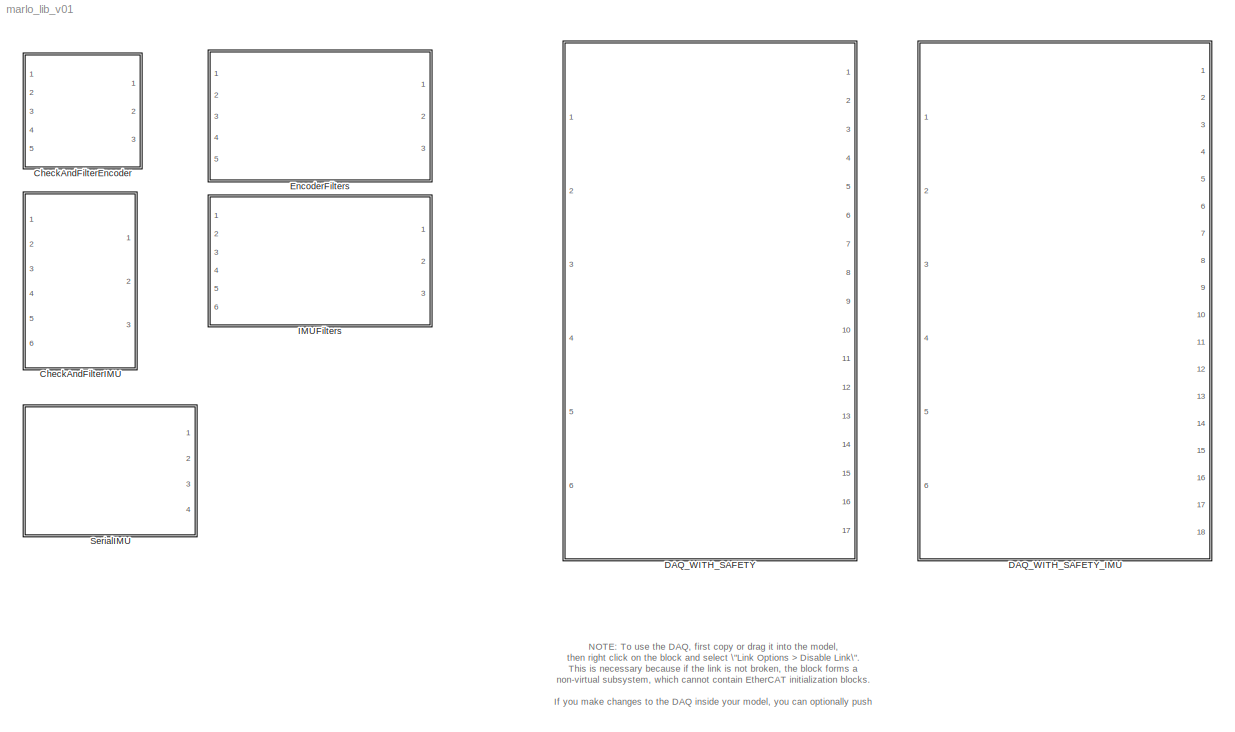
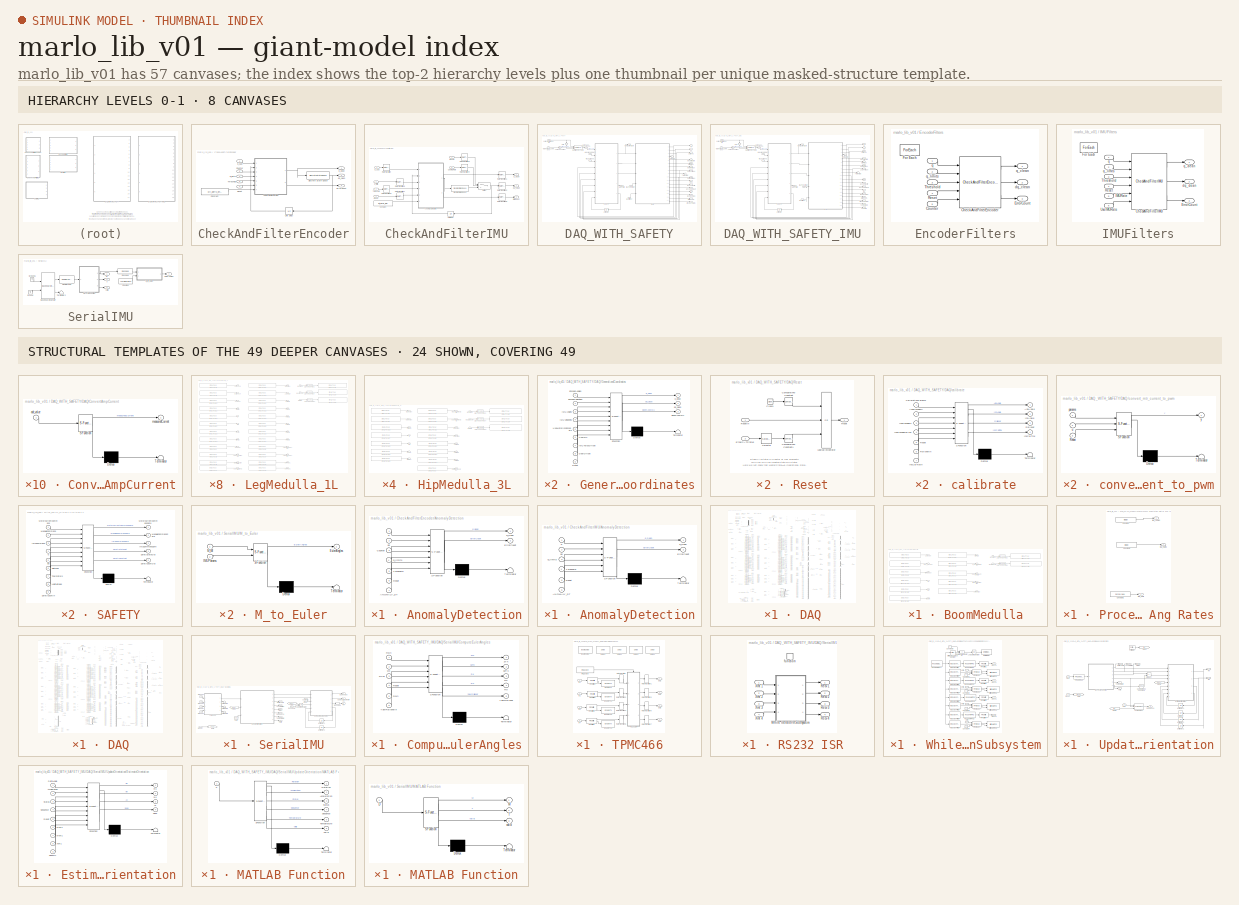
[diagram: thumbnail index - top-2 hierarchy levels (8 canvases) + 24 structural-template representatives of the remaining 49 canvases]
MODEL marlo_lib_v01
KIND library
BLOCK [SubSystem] CheckAndFilterEncoder
  FunctionWithSeparateData = off
  MaskHideContents = off
  MinAlgLoopOccurrences = off
  Opaque = off
  Ports = [5, 3]
  PropExecContextOutsideSubsystem = off
  RTWSystemCode = Auto
  RequestExecContextInheritance = off
  SID = 2518
BLOCK [SubSystem] CheckAndFilterEncoder/AnomalyDetection
  ErrorFcn = Stateflow.Translate.translate
  FunctionWithSeparateData = off
  MaskHideContents = off
  MinAlgLoopOccurrences = off
  Opaque = off
  PermitHierarchicalResolution = ExplicitOnly
  Ports = [7, 2]
  PropExecContextOutsideSubsystem = off
  RTWSystemCode = Auto
  RequestExecContextInheritance = off
  SFBlockType = Chart
  SID = 5722
  SystemSampleTime = Dt_deriv_encoder
  TreatAsAtomicUnit = on
BLOCK [Demux] CheckAndFilterEncoder/AnomalyDetection/ Demux 
  Outputs = 1
  Ports = [1, 1]
  SID = 5722::52
BLOCK [S-Function] CheckAndFilterEncoder/AnomalyDetection/ SFunction 
  EnableBusSupport = off
  FunctionName = sf_sfun
  Parameters = ANOMALY_INIT,MAX_ANOMALY
  PortCounts = [7 3]
  Ports = [7, 3]
  SID = 5722::51
  Tag = Stateflow S-Function marlo_lib_v01 3
BLOCK [Terminator] CheckAndFilterEncoder/AnomalyDetection/ Terminator 
  SID = 5722::53
BLOCK [Inport] CheckAndFilterEncoder/AnomalyDetection/ANOMALY_DT
  IconDisplay = Port number
  Port = 7
  SID = 5722::35
BLOCK [Inport] CheckAndFilterEncoder/AnomalyDetection/Counter
  IconDisplay = Port number
  Port = 3
  SID = 5722::54
BLOCK [Outport] CheckAndFilterEncoder/AnomalyDetection/ErrorCount
  IconDisplay = Port number
  Port = 2
  SID = 5722::46
BLOCK [Inport] CheckAndFilterEncoder/AnomalyDetection/Reset
  IconDisplay = Port number
  Port = 6
  SID = 5722::45
BLOCK [Inport] CheckAndFilterEncoder/AnomalyDetection/Threshold
  IconDisplay = Port number
  Port = 5
  SID = 5722::33
BLOCK [Inport] CheckAndFilterEncoder/AnomalyDetection/dq
  IconDisplay = Port number
  Port = 2
  SID = 5722::30
BLOCK [Inport] CheckAndFilterEncoder/AnomalyDetection/q
  IconDisplay = Port number
  SID = 5722::29
BLOCK [Outport] CheckAndFilterEncoder/AnomalyDetection/q_clean
  IconDisplay = Port number
  SID = 5722::31
BLOCK [Inport] CheckAndFilterEncoder/AnomalyDetection/q_limits
  IconDisplay = Port number
  Port = 4
  SID = 5722::44
BLOCK [Constant] CheckAndFilterEncoder/Constant
  SID = 2568
  Value = Dt_deriv_encoder
BLOCK [Inport] CheckAndFilterEncoder/Counter
  IconDisplay = Port number
  Port = 5
  SID = 5840
BLOCK [DiscreteStateSpace] CheckAndFilterEncoder/Discrete State-Space
  A = A_deriv_encoder
  B = B_deriv_encoder
  C = C_deriv_encoder
  D = D_deriv_encoder
  SID = 2523
  SampleTime = Dt_deriv_encoder
  X0 = x0_deriv_encoder
BLOCK [Outport] CheckAndFilterEncoder/ErrorCount
  IconDisplay = Port number
  Port = 3
  SID = 5726
BLOCK [Inport] CheckAndFilterEncoder/Reset
  IconDisplay = Port number
  Port = 4
  SID = 5729
BLOCK [Inport] CheckAndFilterEncoder/Threshold
  IconDisplay = Port number
  Port = 3
  SID = 2521
BLOCK [UnitDelay] CheckAndFilterEncoder/Unit Delay
  InputProcessing = Elements as channels (sample based)
  SID = 2524
  SampleTime = Dt_deriv_encoder
BLOCK [Outport] CheckAndFilterEncoder/dq_clean
  IconDisplay = Port number
  Port = 2
  SID = 2526
BLOCK [Outport] CheckAndFilterEncoder/q_clean
  IconDisplay = Port number
  SID = 2525
BLOCK [Inport] CheckAndFilterEncoder/q_daq
  IconDisplay = Port number
  SID = 2520
BLOCK [Inport] CheckAndFilterEncoder/q_limits
  IconDisplay = Port number
  Port = 2
  SID = 5725
BLOCK [SubSystem] CheckAndFilterIMU
  FunctionWithSeparateData = off
  MaskHideContents = off
  MinAlgLoopOccurrences = off
  Opaque = off
  Ports = [6, 3]
  PropExecContextOutsideSubsystem = off
  RTWSystemCode = Auto
  RequestExecContextInheritance = off
  SID = 2527
BLOCK [SubSystem] CheckAndFilterIMU/AnomalyDetection
  ErrorFcn = Stateflow.Translate.translate
  FunctionWithSeparateData = off
  MaskHideContents = off
  MinAlgLoopOccurrences = off
  Opaque = off
  PermitHierarchicalResolution = ExplicitOnly
  Ports = [6, 2]
  PropExecContextOutsideSubsystem = off
  RTWSystemCode = Auto
  RequestExecContextInheritance = off
  SFBlockType = Chart
  SID = 5731
  SystemSampleTime = Dt_deriv_IMU
  TreatAsAtomicUnit = on
BLOCK [Demux] CheckAndFilterIMU/AnomalyDetection/ Demux 
  Outputs = 1
  Ports = [1, 1]
  SID = 5731::56
BLOCK [S-Function] CheckAndFilterIMU/AnomalyDetection/ SFunction 
  EnableBusSupport = off
  FunctionName = sf_sfun
  Parameters = ANOMALY_INIT,MAX_ANOMALY
  PortCounts = [6 3]
  Ports = [6, 3]
  SID = 5731::55
  Tag = Stateflow S-Function marlo_lib_v01 1
BLOCK [Terminator] CheckAndFilterIMU/AnomalyDetection/ Terminator 
  SID = 5731::57
BLOCK [Inport] CheckAndFilterIMU/AnomalyDetection/ANOMALY_DT
  IconDisplay = Port number
  Port = 6
  SID = 5731::35
BLOCK [Outport] CheckAndFilterIMU/AnomalyDetection/ErrorCount
  IconDisplay = Port number
  Port = 2
  SID = 5731::46
BLOCK [Inport] CheckAndFilterIMU/AnomalyDetection/Reset
  IconDisplay = Port number
  Port = 5
  SID = 5731::45
BLOCK [Inport] CheckAndFilterIMU/AnomalyDetection/Threshold
  IconDisplay = Port number
  Port = 4
  SID = 5731::33
BLOCK [Inport] CheckAndFilterIMU/AnomalyDetection/dq
  IconDisplay = Port number
  Port = 2
  SID = 5731::30
BLOCK [Inport] CheckAndFilterIMU/AnomalyDetection/q
  IconDisplay = Port number
  SID = 5731::29
BLOCK [Outport] CheckAndFilterIMU/AnomalyDetection/q_clean
  IconDisplay = Port number
  SID = 5731::31
BLOCK [Inport] CheckAndFilterIMU/AnomalyDetection/q_limits
  IconDisplay = Port number
  Port = 3
  SID = 5731::44
BLOCK [Constant] CheckAndFilterIMU/Constant
  SID = 2570
  Value = Dt_deriv_IMU
BLOCK [DiscreteStateSpace] CheckAndFilterIMU/Discrete State-Space
  A = A_deriv_IMU
  B = B_deriv_IMU
  C = C_deriv_IMU
  D = D_deriv_IMU
  SID = 2531
  SampleTime = Dt_deriv_IMU
  X0 = x0_deriv_IMU
BLOCK [Outport] CheckAndFilterIMU/ErrorCount
  IconDisplay = Port number
  Port = 3
  SID = 5736
BLOCK [Inport] CheckAndFilterIMU/IMURate
  IconDisplay = Port number
  Port = 5
  SID = 2556
BLOCK [RateTransition] CheckAndFilterIMU/Rate Transition
  OutPortSampleTimeMultiple = 2
  SID = 2538
BLOCK [RateTransition] CheckAndFilterIMU/Rate Transition1
  Deterministic = off
  OutPortSampleTime = .001
  SID = 2539
BLOCK [RateTransition] CheckAndFilterIMU/Rate Transition2
  Deterministic = off
  OutPortSampleTime = .001
  SID = 2540
BLOCK [RateTransition] CheckAndFilterIMU/Rate Transition3
  OutPortSampleTimeMultiple = 2
  SID = 2571
BLOCK [RateTransition] CheckAndFilterIMU/Rate Transition4
  OutPortSampleTimeMultiple = 2
  SID = 2572
BLOCK [RateTransition] CheckAndFilterIMU/Rate Transition5
  OutPortSampleTimeMultiple = 2
  SID = 2574
BLOCK [RateTransition] CheckAndFilterIMU/Rate Transition6
  OutPortSampleTimeMultiple = 2
  SID = 5734
BLOCK [RateTransition] CheckAndFilterIMU/Rate Transition7
  OutPortSampleTimeMultiple = 2
  SID = 5735
BLOCK [RateTransition] CheckAndFilterIMU/Rate Transition8
  Deterministic = off
  OutPortSampleTime = .001
  SID = 5800
BLOCK [Inport] CheckAndFilterIMU/Reset
  IconDisplay = Port number
  Port = 4
  SID = 5733
BLOCK [Switch] CheckAndFilterIMU/Switch
  Criteria = u2 ~= 0
  InputSameDT = off
  SID = 2561
  SaturateOnIntegerOverflow = off
  Threshold = 0.5
BLOCK [Inport] CheckAndFilterIMU/Threshold
  IconDisplay = Port number
  Port = 3
  SID = 2529
BLOCK [UnitDelay] CheckAndFilterIMU/Unit Delay
  InputProcessing = Elements as channels (sample based)
  SID = 2532
  SampleTime = Dt_deriv_IMU
BLOCK [Inport] CheckAndFilterIMU/UseIMURate
  IconDisplay = Port number
  Port = 6
  SID = 2557
BLOCK [Outport] CheckAndFilterIMU/dq_clean
  IconDisplay = Port number
  Port = 2
  SID = 2534
BLOCK [Outport] CheckAndFilterIMU/q_clean
  IconDisplay = Port number
  SID = 2533
BLOCK [Inport] CheckAndFilterIMU/q_daq
  IconDisplay = Port number
  SID = 2528
BLOCK [Inport] CheckAndFilterIMU/q_limits
  IconDisplay = Port number
  Port = 2
  SID = 5732
BLOCK [SubSystem] DAQ_WITH_SAFETY
  FunctionWithSeparateData = off
  MaskHideContents = off
  MinAlgLoopOccurrences = off
  Opaque = off
  Ports = [6, 17]
  PropExecContextOutsideSubsystem = off
  RTWSystemCode = Auto
  RequestExecContextInheritance = off
  SID = 4584
BLOCK [Outport] DAQ_WITH_SAFETY/BoomAndIMU
  IconDisplay = Port number
  Port = 10
  SID = 5566
BLOCK [Inport] DAQ_WITH_SAFETY/CurrentSaturationLimits
  IconDisplay = Port number
  Port = 4
  SID = 4588
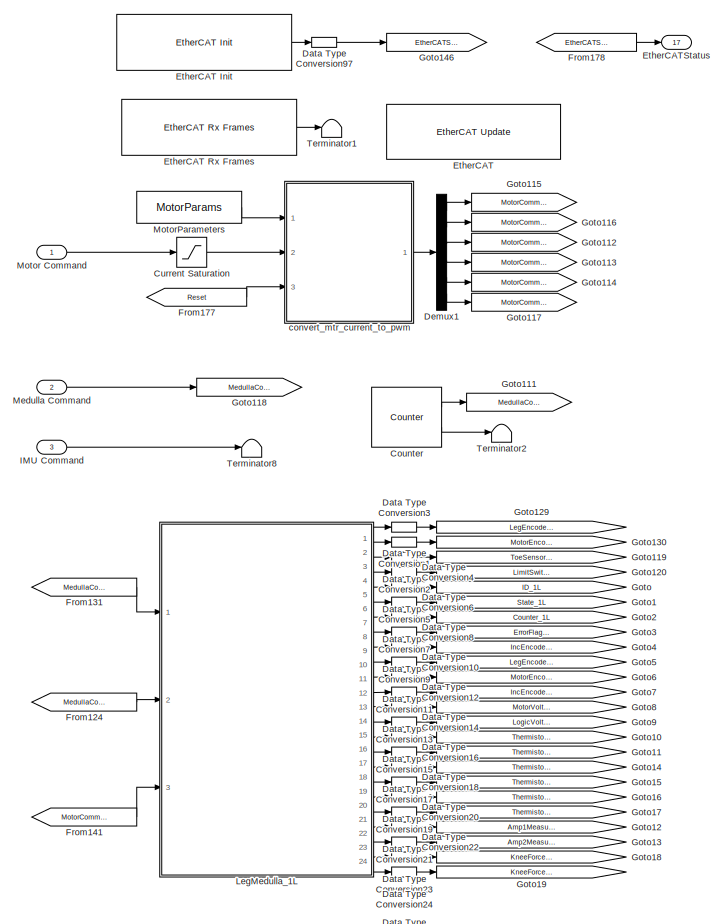
[diagram: DAQ_WITH_SAFETY/DAQ - part 1/7, top left region]
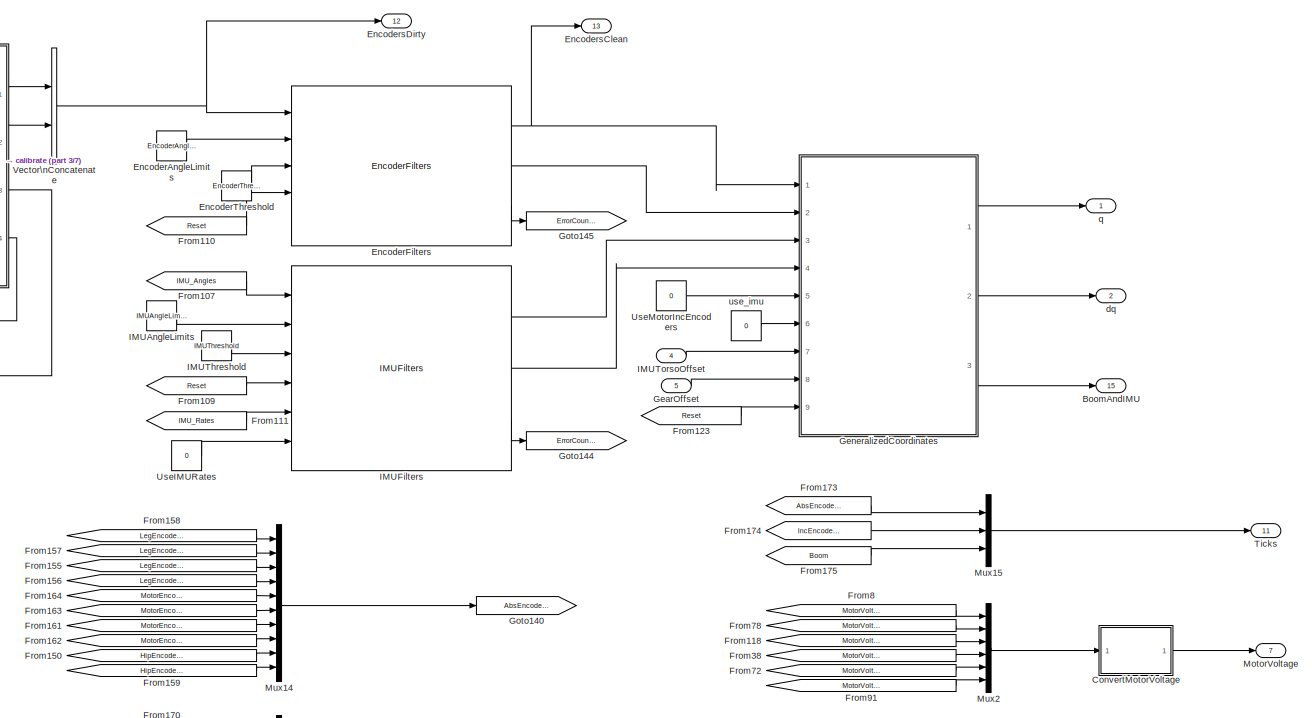
[diagram: DAQ_WITH_SAFETY/DAQ - part 2/7, top right region]
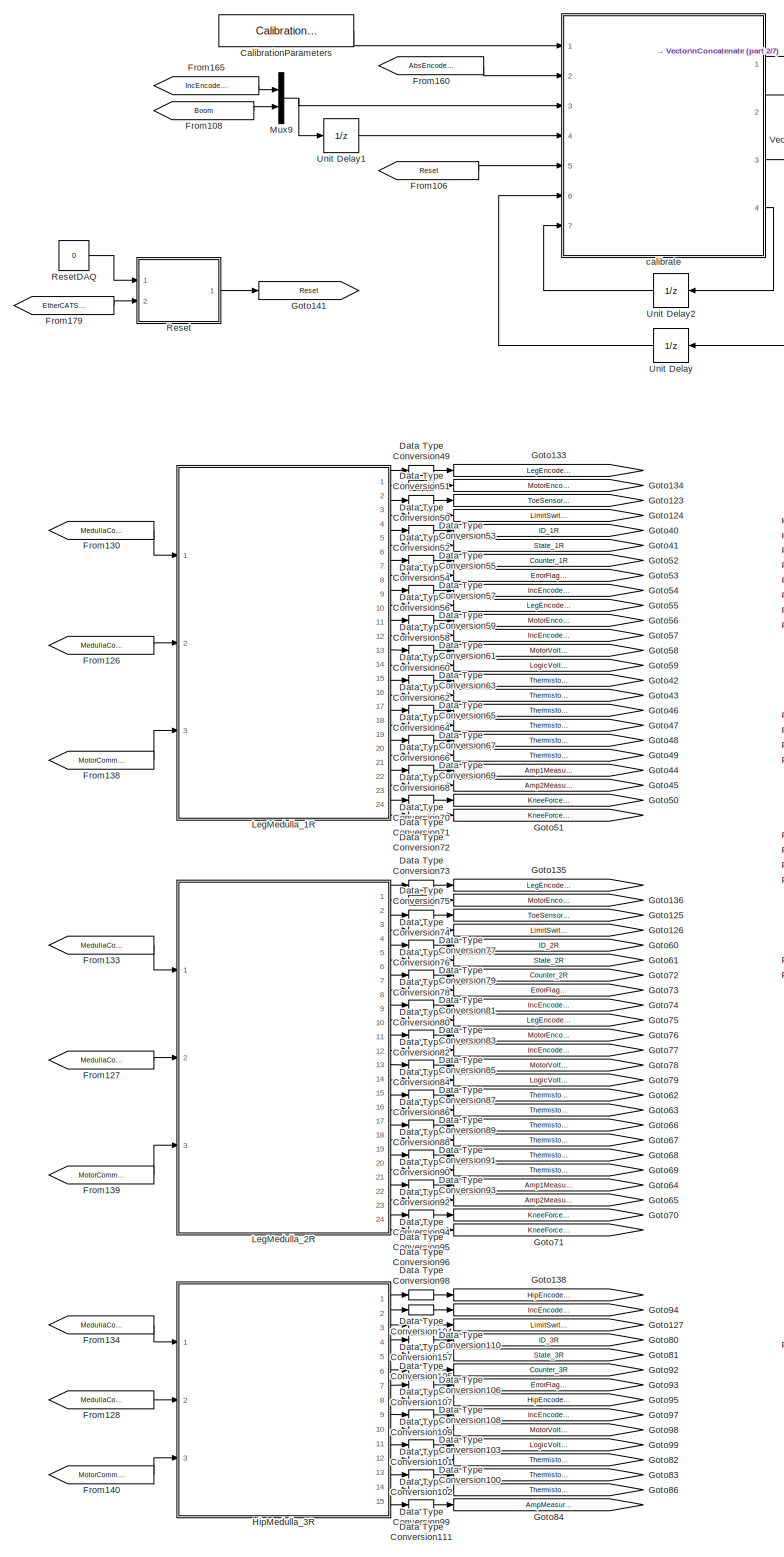
[diagram: DAQ_WITH_SAFETY/DAQ - part 3/7, center side, full height]
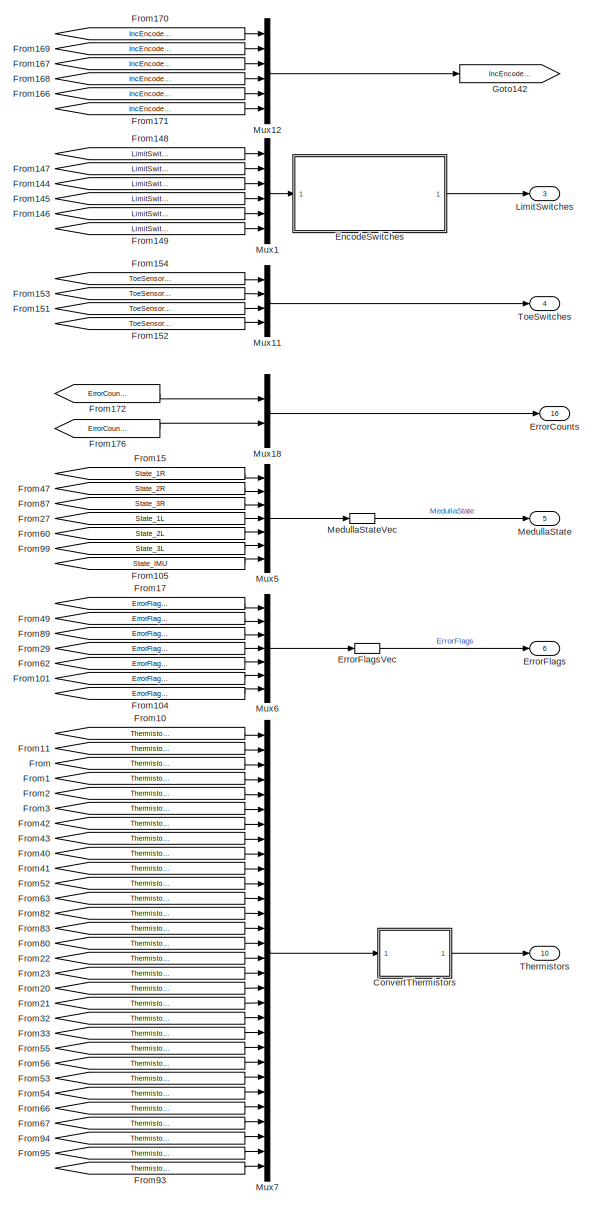
[diagram: DAQ_WITH_SAFETY/DAQ - part 4/7, bottom center region]
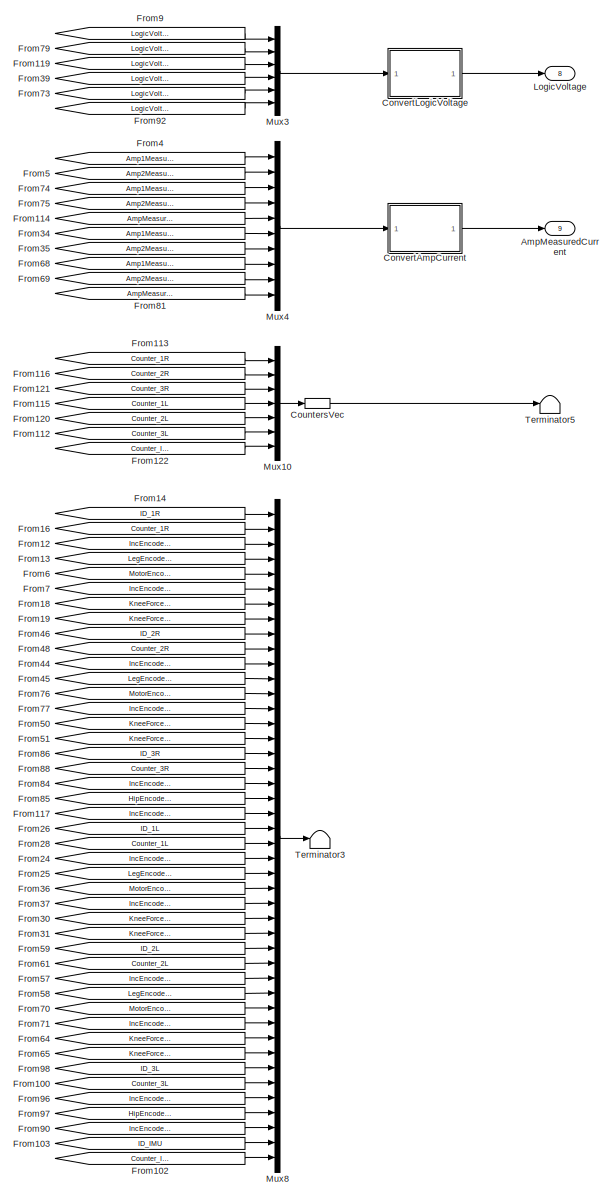
[diagram: DAQ_WITH_SAFETY/DAQ - part 5/7, bottom right region]
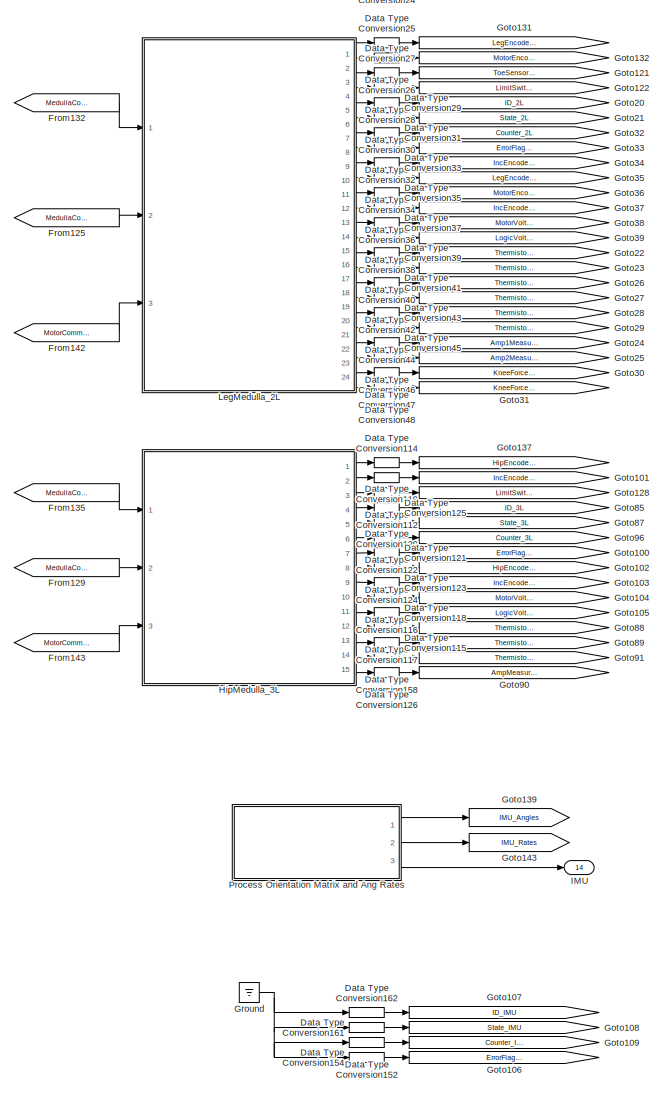
[diagram: DAQ_WITH_SAFETY/DAQ - part 6/7, bottom left region]
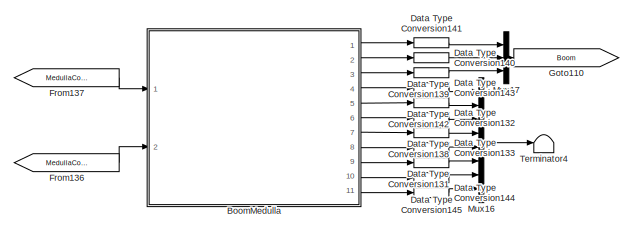
[diagram: DAQ_WITH_SAFETY/DAQ - part 7/7, bottom center region]
BLOCK [SubSystem] DAQ_WITH_SAFETY/DAQ
  FunctionWithSeparateData = off
  MaskHideContents = off
  MinAlgLoopOccurrences = off
  Opaque = off
  Ports = [5, 17]
  PropExecContextOutsideSubsystem = off
  RTWSystemCode = Auto
  RequestExecContextInheritance = off
  SID = 4591
BLOCK [Outport] DAQ_WITH_SAFETY/DAQ/AmpMeasuredCurrent
  IconDisplay = Port number
  Port = 9
  SID = 5533
BLOCK [Outport] DAQ_WITH_SAFETY/DAQ/BoomAndIMU
  IconDisplay = Port number
  Port = 15
  SID = 5542
BLOCK [SubSystem] DAQ_WITH_SAFETY/DAQ/BoomMedulla
  FunctionWithSeparateData = off
  MaskHideContents = off
  MinAlgLoopOccurrences = off
  Opaque = off
  Ports = [2, 11]
  PropExecContextOutsideSubsystem = off
  RTWSystemCode = Auto
  RequestExecContextInheritance = off
  SID = 4599
BLOCK [Outport] DAQ_WITH_SAFETY/DAQ/BoomMedulla/Counter
  IconDisplay = Port number
  Port = 6
  SID = 4622
BLOCK [DataTypeConversion] DAQ_WITH_SAFETY/DAQ/BoomMedulla/Data Type Conversion3
  OutDataTypeStr = uint8
  RndMeth = Floor
  SID = 4602
  SaturateOnIntegerOverflow = off
BLOCK [DataTypeConversion] DAQ_WITH_SAFETY/DAQ/BoomMedulla/Data Type Conversion4
  OutDataTypeStr = uint16
  RndMeth = Floor
  SID = 4603
  SaturateOnIntegerOverflow = off
BLOCK [Outport] DAQ_WITH_SAFETY/DAQ/BoomMedulla/ErrorFlags
  IconDisplay = Port number
  Port = 7
  SID = 4623
BLOCK [Reference] DAQ_WITH_SAFETY/DAQ/BoomMedulla/EtherCAT Rx Var   REF=xpcethercatlib/EtherCAT Rx Var 
  Ports = [0, 1]
  Priority = 2
  SID = 4604
  SourceBlock = xpcethercatlib/EtherCAT Rx Var
  SourceType = xpcethercat_rx_var
  device_id = 0
  sample_time = 0.001000
  sig_dim = 1
  sig_name = Box 7 (ATRIAS 2.1 Boom (Medulla 1.5)).X Encoder.Timestamp
  sig_offset = 2464
  sig_type = uint16
  type_size = 16
BLOCK [Reference] DAQ_WITH_SAFETY/DAQ/BoomMedulla/EtherCAT Rx Var 1  REF=xpcethercatlib/EtherCAT Rx Var 
  Ports = [0, 1]
  Priority = 2
  SID = 4605
  SourceBlock = xpcethercatlib/EtherCAT Rx Var
  SourceType = xpcethercat_rx_var
  device_id = 0
  sample_time = 0.001000
  sig_dim = 1
  sig_name = Box 7 (ATRIAS 2.1 Boom (Medulla 1.5)).Z Encoder.Encoder
  sig_offset = 2528
  sig_type = uint32
  type_size = 32
BLOCK [Reference] DAQ_WITH_SAFETY/DAQ/BoomMedulla/EtherCAT Rx Var 12  REF=xpcethercatlib/EtherCAT Rx Var 
  Ports = [0, 1]
  Priority = 2
  SID = 4606
  SourceBlock = xpcethercatlib/EtherCAT Rx Var
  SourceType = xpcethercat_rx_var
  device_id = 0
  sample_time = 0.001000
  sig_dim = 1
  sig_name = Box 7 (ATRIAS 2.1 Boom (Medulla 1.5)).uController Status.Counter
  sig_offset = 2416
  sig_type = uint8
  type_size = 8
BLOCK [Reference] DAQ_WITH_SAFETY/DAQ/BoomMedulla/EtherCAT Rx Var 13  REF=xpcethercatlib/EtherCAT Rx Var 
  Ports = [0, 1]
  Priority = 2
  SID = 4607
  SourceBlock = xpcethercatlib/EtherCAT Rx Var
  SourceType = xpcethercat_rx_var
  device_id = 0
  sample_time = 0.001000
  sig_dim = 1
  sig_name = Box 7 (ATRIAS 2.1 Boom (Medulla 1.5)).uController Status.Error Flags
  sig_offset = 2424
  sig_type = uint8
  type_size = 8
BLOCK [Reference] DAQ_WITH_SAFETY/DAQ/BoomMedulla/EtherCAT Rx Var 14  REF=xpcethercatlib/EtherCAT Rx Var 
  Ports = [0, 1]
  Priority = 2
  SID = 4608
  SourceBlock = xpcethercatlib/EtherCAT Rx Var
  SourceType = xpcethercat_rx_var
  device_id = 0
  sample_time = 0.001000
  sig_dim = 1
  sig_name = Box 7 (ATRIAS 2.1 Boom (Medulla 1.5)).uController Status.ID
  sig_offset = 2400
  sig_type = uint8
  type_size = 8
BLOCK [Reference] DAQ_WITH_SAFETY/DAQ/BoomMedulla/EtherCAT Rx Var 15  REF=xpcethercatlib/EtherCAT Rx Var 
  Ports = [0, 1]
  Priority = 2
  SID = 4609
  SourceBlock = xpcethercatlib/EtherCAT Rx Var
  SourceType = xpcethercat_rx_var
  device_id = 0
  sample_time = 0.001000
  sig_dim = 1
  sig_name = Box 7 (ATRIAS 2.1 Boom (Medulla 1.5)).uController Status.State
  sig_offset = 2408
  sig_type = uint8
  type_size = 8
BLOCK [Reference] DAQ_WITH_SAFETY/DAQ/BoomMedulla/EtherCAT Rx Var 2  REF=xpcethercatlib/EtherCAT Rx Var 
  Ports = [0, 1]
  Priority = 2
  SID = 4610
  SourceBlock = xpcethercatlib/EtherCAT Rx Var
  SourceType = xpcethercat_rx_var
  device_id = 0
  sample_time = 0.001000
  sig_dim = 1
  sig_name = Box 7 (ATRIAS 2.1 Boom (Medulla 1.5)).Power.Logic Voltage
  sig_offset = 2576
  sig_type = uint16
  type_size = 16
BLOCK [Reference] DAQ_WITH_SAFETY/DAQ/BoomMedulla/EtherCAT Rx Var 3  REF=xpcethercatlib/EtherCAT Rx Var 
  Ports = [0, 1]
  Priority = 2
  SID = 4611
  SourceBlock = xpcethercatlib/EtherCAT Rx Var
  SourceType = xpcethercat_rx_var
  device_id = 0
  sample_time = 0.001000
  sig_dim = 1
  sig_name = Box 7 (ATRIAS 2.1 Boom (Medulla 1.5)).Pitch Encoder.Timestamp
  sig_offset = 2512
  sig_type = uint16
  type_size = 16
BLOCK [Reference] DAQ_WITH_SAFETY/DAQ/BoomMedulla/EtherCAT Rx Var 4  REF=xpcethercatlib/EtherCAT Rx Var 
  Ports = [0, 1]
  Priority = 2
  SID = 4612
  SourceBlock = xpcethercatlib/EtherCAT Rx Var
  SourceType = xpcethercat_rx_var
  device_id = 0
  sample_time = 0.001000
  sig_dim = 1
  sig_name = Box 7 (ATRIAS 2.1 Boom (Medulla 1.5)).Pitch Encoder.Encoder
  sig_offset = 2480
  sig_type = uint32
  type_size = 32
BLOCK [Reference] DAQ_WITH_SAFETY/DAQ/BoomMedulla/EtherCAT Rx Var 5  REF=xpcethercatlib/EtherCAT Rx Var 
  Ports = [0, 1]
  Priority = 2
  SID = 4613
  SourceBlock = xpcethercatlib/EtherCAT Rx Var
  SourceType = xpcethercat_rx_var
  device_id = 0
  sample_time = 0.001000
  sig_dim = 1
  sig_name = Box 7 (ATRIAS 2.1 Boom (Medulla 1.5)).X Encoder.Encoder
  sig_offset = 2432
  sig_type = uint32
  type_size = 32
BLOCK [Reference] DAQ_WITH_SAFETY/DAQ/BoomMedulla/EtherCAT Rx Var 6  REF=xpcethercatlib/EtherCAT Rx Var 
  Ports = [0, 1]
  Priority = 2
  SID = 4614
  SourceBlock = xpcethercatlib/EtherCAT Rx Var
  SourceType = xpcethercat_rx_var
  device_id = 0
  sample_time = 0.001000
  sig_dim = 1
  sig_name = Box 7 (ATRIAS 2.1 Boom (Medulla 1.5)).Z Encoder.Timestamp
  sig_offset = 2560
  sig_type = uint16
  type_size = 16
BLOCK [Reference] DAQ_WITH_SAFETY/DAQ/BoomMedulla/EtherCAT Tx Var 3  REF=xpcethercatlib/EtherCAT Tx Var 
  Ports = [1]
  Priority = 3
  SID = 4615
  SourceBlock = xpcethercatlib/EtherCAT Tx Var
  SourceType = xpcethercat_tx_var
  device_id = 0
  sample_time = 0.001000
  sig_dim = 1
  sig_name = Box 7 (ATRIAS 2.1 Boom (Medulla 1.5)).uControllerInput.Command
  sig_offset = 2400
  sig_type = uint8
  type_size = 8
BLOCK [Reference] DAQ_WITH_SAFETY/DAQ/BoomMedulla/EtherCAT Tx Var 4  REF=xpcethercatlib/EtherCAT Tx Var 
  Ports = [1]
  Priority = 3
  SID = 4616
  SourceBlock = xpcethercatlib/EtherCAT Tx Var
  SourceType = xpcethercat_tx_var
  device_id = 0
  sample_time = 0.001000
  sig_dim = 1
  sig_name = Box 7 (ATRIAS 2.1 Boom (Medulla 1.5)).uControllerInput.Counter
  sig_offset = 2408
  sig_type = uint16
  type_size = 16
BLOCK [Outport] DAQ_WITH_SAFETY/DAQ/BoomMedulla/ID
  IconDisplay = Port number
  Port = 4
  SID = 4620
BLOCK [Outport] DAQ_WITH_SAFETY/DAQ/BoomMedulla/LogicVoltage
  IconDisplay = Port number
  Port = 11
  SID = 4627
BLOCK [Inport] DAQ_WITH_SAFETY/DAQ/BoomMedulla/MedullaCmd
  IconDisplay = Port number
  SID = 4600
BLOCK [Inport] DAQ_WITH_SAFETY/DAQ/BoomMedulla/MedullaCounter
  IconDisplay = Port number
  Port = 2
  SID = 4601
BLOCK [Outport] DAQ_WITH_SAFETY/DAQ/BoomMedulla/OSU_X_Encoder
  IconDisplay = Port number
  SID = 4618
BLOCK [Outport] DAQ_WITH_SAFETY/DAQ/BoomMedulla/OSU_X_EncoderTimestamp
  IconDisplay = Port number
  Port = 9
  SID = 4625
BLOCK [Outport] DAQ_WITH_SAFETY/DAQ/BoomMedulla/PitchEncoder
  IconDisplay = Port number
  Port = 3
  SID = 4619
BLOCK [Outport] DAQ_WITH_SAFETY/DAQ/BoomMedulla/PitchEncoderTimestamp
  IconDisplay = Port number
  Port = 10
  SID = 4626
BLOCK [Outport] DAQ_WITH_SAFETY/DAQ/BoomMedulla/State
  IconDisplay = Port number
  Port = 5
  SID = 4621
BLOCK [Outport] DAQ_WITH_SAFETY/DAQ/BoomMedulla/Z_Encoder
  IconDisplay = Port number
  Port = 2
  SID = 4617
BLOCK [Outport] DAQ_WITH_SAFETY/DAQ/BoomMedulla/Z_EncoderTimestamp
  IconDisplay = Port number
  Port = 8
  SID = 4624
BLOCK [Constant] DAQ_WITH_SAFETY/DAQ/CalibrationParameters
  SID = 4643
  Value = CalibrationParams
BLOCK [SubSystem] DAQ_WITH_SAFETY/DAQ/ConvertAmpCurrent
  ErrorFcn = Stateflow.Translate.translate
  FunctionWithSeparateData = off
  MaskHideContents = off
  MinAlgLoopOccurrences = off
  Opaque = off
  PermitHierarchicalResolution = ExplicitOnly
  Ports = [1, 1]
  PropExecContextOutsideSubsystem = off
  RTWSystemCode = Auto
  RequestExecContextInheritance = off
  SFBlockType = MATLAB Function
  SID = 4648
  TreatAsAtomicUnit = on
BLOCK [Demux] DAQ_WITH_SAFETY/DAQ/ConvertAmpCurrent/ Demux 
  Outputs = 1
  Ports = [1, 1]
  SID = 4648::7
BLOCK [S-Function] DAQ_WITH_SAFETY/DAQ/ConvertAmpCurrent/ SFunction 
  EnableBusSupport = off
  FunctionName = sf_sfun
  PortCounts = [1 2]
  Ports = [1, 2]
  SID = 4648::6
  Tag = Stateflow S-Function marlo_lib_v01 2
BLOCK [Terminator] DAQ_WITH_SAFETY/DAQ/ConvertAmpCurrent/ Terminator 
  SID = 4648::8
BLOCK [Inport] DAQ_WITH_SAFETY/DAQ/ConvertAmpCurrent/adc_value
  IconDisplay = Port number
  SID = 4648::1
BLOCK [Outport] DAQ_WITH_SAFETY/DAQ/ConvertAmpCurrent/measuredCurrent
  IconDisplay = Port number
  SID = 4648::5
BLOCK [SubSystem] DAQ_WITH_SAFETY/DAQ/ConvertLogicVoltage
  ErrorFcn = Stateflow.Translate.translate
  FunctionWithSeparateData = off
  MaskHideContents = off
  MinAlgLoopOccurrences = off
  Opaque = off
  PermitHierarchicalResolution = ExplicitOnly
  Ports = [1, 1]
  PropExecContextOutsideSubsystem = off
  RTWSystemCode = Auto
  RequestExecContextInheritance = off
  SFBlockType = MATLAB Function
  SID = 4649
  TreatAsAtomicUnit = on
BLOCK [Demux] DAQ_WITH_SAFETY/DAQ/ConvertLogicVoltage/ Demux 
  Outputs = 1
  Ports = [1, 1]
  SID = 4649::7
BLOCK [S-Function] DAQ_WITH_SAFETY/DAQ/ConvertLogicVoltage/ SFunction 
  EnableBusSupport = off
  FunctionName = sf_sfun
  PortCounts = [1 2]
  Ports = [1, 2]
  SID = 4649::6
  Tag = Stateflow S-Function marlo_lib_v01 5
BLOCK [Terminator] DAQ_WITH_SAFETY/DAQ/ConvertLogicVoltage/ Terminator 
  SID = 4649::8
BLOCK [Inport] DAQ_WITH_SAFETY/DAQ/ConvertLogicVoltage/adc_value
  IconDisplay = Port number
  SID = 4649::1
BLOCK [Outport] DAQ_WITH_SAFETY/DAQ/ConvertLogicVoltage/logicVoltage
  IconDisplay = Port number
  SID = 4649::5
BLOCK [SubSystem] DAQ_WITH_SAFETY/DAQ/ConvertMotorVoltage
  ErrorFcn = Stateflow.Translate.translate
  FunctionWithSeparateData = off
  MaskHideContents = off
  MinAlgLoopOccurrences = off
  Opaque = off
  PermitHierarchicalResolution = ExplicitOnly
  Ports = [1, 1]
  PropExecContextOutsideSubsystem = off
  RTWSystemCode = Auto
  RequestExecContextInheritance = off
  SFBlockType = MATLAB Function
  SID = 4650
  TreatAsAtomicUnit = on
BLOCK [Demux] DAQ_WITH_SAFETY/DAQ/ConvertMotorVoltage/ Demux 
  Outputs = 1
  Ports = [1, 1]
  SID = 4650::7
BLOCK [S-Function] DAQ_WITH_SAFETY/DAQ/ConvertMotorVoltage/ SFunction 
  EnableBusSupport = off
  FunctionName = sf_sfun
  PortCounts = [1 2]
  Ports = [1, 2]
  SID = 4650::6
  Tag = Stateflow S-Function marlo_lib_v01 6
BLOCK [Terminator] DAQ_WITH_SAFETY/DAQ/ConvertMotorVoltage/ Terminator 
  SID = 4650::8
BLOCK [Inport] DAQ_WITH_SAFETY/DAQ/ConvertMotorVoltage/adc_value
  IconDisplay = Port number
  SID = 4650::1
BLOCK [Outport] DAQ_WITH_SAFETY/DAQ/ConvertMotorVoltage/motorVoltage
  IconDisplay = Port number
  SID = 4650::5
BLOCK [SubSystem] DAQ_WITH_SAFETY/DAQ/ConvertThermistors
  ErrorFcn = Stateflow.Translate.translate
  FunctionWithSeparateData = off
  MaskHideContents = off
  MinAlgLoopOccurrences = off
  Opaque = off
  PermitHierarchicalResolution = ExplicitOnly
  Ports = [1, 1]
  PropExecContextOutsideSubsystem = off
  RTWSystemCode = Auto
  RequestExecContextInheritance = off
  SFBlockType = MATLAB Function
  SID = 4651
  TreatAsAtomicUnit = on
BLOCK [Demux] DAQ_WITH_SAFETY/DAQ/ConvertThermistors/ Demux 
  Outputs = 1
  Ports = [1, 1]
  SID = 4651::7
BLOCK [S-Function] DAQ_WITH_SAFETY/DAQ/ConvertThermistors/ SFunction 
  EnableBusSupport = off
  FunctionName = sf_sfun
  PortCounts = [1 2]
  Ports = [1, 2]
  SID = 4651::6
  Tag = Stateflow S-Function marlo_lib_v01 7
BLOCK [Terminator] DAQ_WITH_SAFETY/DAQ/ConvertThermistors/ Terminator 
  SID = 4651::8
BLOCK [Inport] DAQ_WITH_SAFETY/DAQ/ConvertThermistors/adc_value
  IconDisplay = Port number
  SID = 4651::1
BLOCK [Outport] DAQ_WITH_SAFETY/DAQ/ConvertThermistors/temperature
  IconDisplay = Port number
  SID = 4651::5
BLOCK [Reference] DAQ_WITH_SAFETY/DAQ/Counter  REF=dspswit3/Counter
  CntDtype = double
  CountEvent = Free running
  CounterSize = User defined
  Direction = Up
  HitDtype = Logical
  HitValue = 32
  InitialCount = 0
  MaxCount = 65535
  Output = Count and Hit
  Ports = [0, 2]
  ResetInput = off
  SID = 4652
  SamplesPerFrame = 1
  SourceBlock = dspswit3/Counter
  SourceType = Counter
  Ts = .001
BLOCK [DataTypeConversion] DAQ_WITH_SAFETY/DAQ/CountersVec
  OutDataTypeStr = double
  RndMeth = Floor
  SID = 4653
  SaturateOnIntegerOverflow = off
BLOCK [Saturate] DAQ_WITH_SAFETY/DAQ/Current Saturation
  InputPortMap = u0
  LowerLimit = -50
  Ports = [1, 1]
  SID = 4654
  UpperLimit = 50
BLOCK [DataTypeConversion] DAQ_WITH_SAFETY/DAQ/Data Type Conversion1
  OutDataTypeStr = double
  RndMeth = Floor
  SID = 4655
  SaturateOnIntegerOverflow = off
BLOCK [DataTypeConversion] DAQ_WITH_SAFETY/DAQ/Data Type Conversion10
  OutDataTypeStr = double
  RndMeth = Floor
  SID = 4656
  SaturateOnIntegerOverflow = off
BLOCK [DataTypeConversion] DAQ_WITH_SAFETY/DAQ/Data Type Conversion100
  OutDataTypeStr = double
  RndMeth = Floor
  SID = 4657
  SaturateOnIntegerOverflow = off
BLOCK [DataTypeConversion] DAQ_WITH_SAFETY/DAQ/Data Type Conversion101
  OutDataTypeStr = double
  RndMeth = Floor
  SID = 4658
  SaturateOnIntegerOverflow = off
BLOCK [DataTypeConversion] DAQ_WITH_SAFETY/DAQ/Data Type Conversion102
  OutDataTypeStr = double
  RndMeth = Floor
  SID = 4659
  SaturateOnIntegerOverflow = off
BLOCK [DataTypeConversion] DAQ_WITH_SAFETY/DAQ/Data Type Conversion103
  OutDataTypeStr = double
  RndMeth = Floor
  SID = 4660
  SaturateOnIntegerOverflow = off
BLOCK [DataTypeConversion] DAQ_WITH_SAFETY/DAQ/Data Type Conversion104
  OutDataTypeStr = double
  RndMeth = Floor
  SID = 4661
  SaturateOnIntegerOverflow = off
BLOCK [DataTypeConversion] DAQ_WITH_SAFETY/DAQ/Data Type Conversion105
  OutDataTypeStr = double
  RndMeth = Floor
  SID = 4662
  SaturateOnIntegerOverflow = off
BLOCK [DataTypeConversion] DAQ_WITH_SAFETY/DAQ/Data Type Conversion106
  OutDataTypeStr = double
  RndMeth = Floor
  SID = 4663
  SaturateOnIntegerOverflow = off
BLOCK [DataTypeConversion] DAQ_WITH_SAFETY/DAQ/Data Type Conversion107
  OutDataTypeStr = double
  RndMeth = Floor
  SID = 4664
  SaturateOnIntegerOverflow = off
BLOCK [DataTypeConversion] DAQ_WITH_SAFETY/DAQ/Data Type Conversion108
  OutDataTypeStr = double
  RndMeth = Floor
  SID = 4665
  SaturateOnIntegerOverflow = off
BLOCK [DataTypeConversion] DAQ_WITH_SAFETY/DAQ/Data Type Conversion109
  OutDataTypeStr = double
  RndMeth = Floor
  SID = 4666
  SaturateOnIntegerOverflow = off
BLOCK [DataTypeConversion] DAQ_WITH_SAFETY/DAQ/Data Type Conversion11
  OutDataTypeStr = double
  RndMeth = Floor
  SID = 4667
  SaturateOnIntegerOverflow = off
BLOCK [DataTypeConversion] DAQ_WITH_SAFETY/DAQ/Data Type Conversion110
  OutDataTypeStr = double
  RndMeth = Floor
  SID = 4668
  SaturateOnIntegerOverflow = off
BLOCK [DataTypeConversion] DAQ_WITH_SAFETY/DAQ/Data Type Conversion111
  OutDataTypeStr = double
  RndMeth = Floor
  SID = 4669
  SaturateOnIntegerOverflow = off
BLOCK [DataTypeConversion] DAQ_WITH_SAFETY/DAQ/Data Type Conversion112
  OutDataTypeStr = double
  RndMeth = Floor
  SID = 4670
  SaturateOnIntegerOverflow = off
BLOCK [DataTypeConversion] DAQ_WITH_SAFETY/DAQ/Data Type Conversion114
  OutDataTypeStr = double
  RndMeth = Floor
  SID = 4672
  SaturateOnIntegerOverflow = off
BLOCK [DataTypeConversion] DAQ_WITH_SAFETY/DAQ/Data Type Conversion115
  OutDataTypeStr = double
  RndMeth = Floor
  SID = 4673
  SaturateOnIntegerOverflow = off
BLOCK [DataTypeConversion] DAQ_WITH_SAFETY/DAQ/Data Type Conversion116
  OutDataTypeStr = double
  RndMeth = Floor
  SID = 4674
  SaturateOnIntegerOverflow = off
BLOCK [DataTypeConversion] DAQ_WITH_SAFETY/DAQ/Data Type Conversion117
  OutDataTypeStr = double
  RndMeth = Floor
  SID = 4675
  SaturateOnIntegerOverflow = off
BLOCK [DataTypeConversion] DAQ_WITH_SAFETY/DAQ/Data Type Conversion118
  OutDataTypeStr = double
  RndMeth = Floor
  SID = 4676
  SaturateOnIntegerOverflow = off
BLOCK [DataTypeConversion] DAQ_WITH_SAFETY/DAQ/Data Type Conversion119
  OutDataTypeStr = double
  RndMeth = Floor
  SID = 4677
  SaturateOnIntegerOverflow = off
BLOCK [DataTypeConversion] DAQ_WITH_SAFETY/DAQ/Data Type Conversion12
  OutDataTypeStr = double
  RndMeth = Floor
  SID = 4678
  SaturateOnIntegerOverflow = off
BLOCK [DataTypeConversion] DAQ_WITH_SAFETY/DAQ/Data Type Conversion120
  OutDataTypeStr = double
  RndMeth = Floor
  SID = 4679
  SaturateOnIntegerOverflow = off
BLOCK [DataTypeConversion] DAQ_WITH_SAFETY/DAQ/Data Type Conversion121
  OutDataTypeStr = double
  RndMeth = Floor
  SID = 4680
  SaturateOnIntegerOverflow = off
BLOCK [DataTypeConversion] DAQ_WITH_SAFETY/DAQ/Data Type Conversion122
  OutDataTypeStr = double
  RndMeth = Floor
  SID = 4681
  SaturateOnIntegerOverflow = off
BLOCK [DataTypeConversion] DAQ_WITH_SAFETY/DAQ/Data Type Conversion123
  OutDataTypeStr = double
  RndMeth = Floor
  SID = 4682
  SaturateOnIntegerOverflow = off
BLOCK [DataTypeConversion] DAQ_WITH_SAFETY/DAQ/Data Type Conversion124
  OutDataTypeStr = double
  RndMeth = Floor
  SID = 4683
  SaturateOnIntegerOverflow = off
BLOCK [DataTypeConversion] DAQ_WITH_SAFETY/DAQ/Data Type Conversion125
  OutDataTypeStr = double
  RndMeth = Floor
  SID = 4684
  SaturateOnIntegerOverflow = off
BLOCK [DataTypeConversion] DAQ_WITH_SAFETY/DAQ/Data Type Conversion126
  OutDataTypeStr = double
  RndMeth = Floor
  SID = 4685
  SaturateOnIntegerOverflow = off
BLOCK [DataTypeConversion] DAQ_WITH_SAFETY/DAQ/Data Type Conversion13
  OutDataTypeStr = double
  RndMeth = Floor
  SID = 4686
  SaturateOnIntegerOverflow = off
BLOCK [DataTypeConversion] DAQ_WITH_SAFETY/DAQ/Data Type Conversion131
  OutDataTypeStr = double
  RndMeth = Floor
  SID = 4687
  SaturateOnIntegerOverflow = off
BLOCK [DataTypeConversion] DAQ_WITH_SAFETY/DAQ/Data Type Conversion132
  OutDataTypeStr = double
  RndMeth = Floor
  SID = 4688
  SaturateOnIntegerOverflow = off
BLOCK [DataTypeConversion] DAQ_WITH_SAFETY/DAQ/Data Type Conversion133
  OutDataTypeStr = double
  RndMeth = Floor
  SID = 4689
  SaturateOnIntegerOverflow = off
BLOCK [DataTypeConversion] DAQ_WITH_SAFETY/DAQ/Data Type Conversion138
  OutDataTypeStr = double
  RndMeth = Floor
  SID = 4690
  SaturateOnIntegerOverflow = off
BLOCK [DataTypeConversion] DAQ_WITH_SAFETY/DAQ/Data Type Conversion139
  OutDataTypeStr = double
  RndMeth = Floor
  SID = 4691
  SaturateOnIntegerOverflow = off
BLOCK [DataTypeConversion] DAQ_WITH_SAFETY/DAQ/Data Type Conversion14
  OutDataTypeStr = double
  RndMeth = Floor
  SID = 4692
  SaturateOnIntegerOverflow = off
BLOCK [DataTypeConversion] DAQ_WITH_SAFETY/DAQ/Data Type Conversion140
  OutDataTypeStr = double
  RndMeth = Floor
  SID = 4693
  SaturateOnIntegerOverflow = off
BLOCK [DataTypeConversion] DAQ_WITH_SAFETY/DAQ/Data Type Conversion141
  OutDataTypeStr = double
  RndMeth = Floor
  SID = 4694
  SaturateOnIntegerOverflow = off
BLOCK [DataTypeConversion] DAQ_WITH_SAFETY/DAQ/Data Type Conversion142
  OutDataTypeStr = double
  RndMeth = Floor
  SID = 4695
  SaturateOnIntegerOverflow = off
BLOCK [DataTypeConversion] DAQ_WITH_SAFETY/DAQ/Data Type Conversion143
  OutDataTypeStr = double
  RndMeth = Floor
  SID = 4696
  SaturateOnIntegerOverflow = off
BLOCK [DataTypeConversion] DAQ_WITH_SAFETY/DAQ/Data Type Conversion144
  OutDataTypeStr = double
  RndMeth = Floor
  SID = 4697
  SaturateOnIntegerOverflow = off
BLOCK [DataTypeConversion] DAQ_WITH_SAFETY/DAQ/Data Type Conversion145
  OutDataTypeStr = double
  RndMeth = Floor
  SID = 4698
  SaturateOnIntegerOverflow = off
BLOCK [DataTypeConversion] DAQ_WITH_SAFETY/DAQ/Data Type Conversion15
  OutDataTypeStr = double
  RndMeth = Floor
  SID = 4699
  SaturateOnIntegerOverflow = off
BLOCK [DataTypeConversion] DAQ_WITH_SAFETY/DAQ/Data Type Conversion152
  OutDataTypeStr = double
  RndMeth = Floor
  SID = 4700
  SaturateOnIntegerOverflow = off
BLOCK [DataTypeConversion] DAQ_WITH_SAFETY/DAQ/Data Type Conversion154
  OutDataTypeStr = double
  RndMeth = Floor
  SID = 4701
  SaturateOnIntegerOverflow = off
BLOCK [DataTypeConversion] DAQ_WITH_SAFETY/DAQ/Data Type Conversion157
  OutDataTypeStr = double
  RndMeth = Floor
  SID = 4702
  SaturateOnIntegerOverflow = off
BLOCK [DataTypeConversion] DAQ_WITH_SAFETY/DAQ/Data Type Conversion158
  OutDataTypeStr = double
  RndMeth = Floor
  SID = 4703
  SaturateOnIntegerOverflow = off
BLOCK [DataTypeConversion] DAQ_WITH_SAFETY/DAQ/Data Type Conversion16
  OutDataTypeStr = double
  RndMeth = Floor
  SID = 4704
  SaturateOnIntegerOverflow = off
BLOCK [DataTypeConversion] DAQ_WITH_SAFETY/DAQ/Data Type Conversion161
  OutDataTypeStr = double
  RndMeth = Floor
  SID = 4705
  SaturateOnIntegerOverflow = off
BLOCK [DataTypeConversion] DAQ_WITH_SAFETY/DAQ/Data Type Conversion162
  OutDataTypeStr = double
  RndMeth = Floor
  SID = 4706
  SaturateOnIntegerOverflow = off
BLOCK [DataTypeConversion] DAQ_WITH_SAFETY/DAQ/Data Type Conversion17
  OutDataTypeStr = double
  RndMeth = Floor
  SID = 4707
  SaturateOnIntegerOverflow = off
BLOCK [DataTypeConversion] DAQ_WITH_SAFETY/DAQ/Data Type Conversion18
  OutDataTypeStr = double
  RndMeth = Floor
  SID = 4708
  SaturateOnIntegerOverflow = off
BLOCK [DataTypeConversion] DAQ_WITH_SAFETY/DAQ/Data Type Conversion19
  OutDataTypeStr = double
  RndMeth = Floor
  SID = 4709
  SaturateOnIntegerOverflow = off
BLOCK [DataTypeConversion] DAQ_WITH_SAFETY/DAQ/Data Type Conversion2
  OutDataTypeStr = double
  RndMeth = Floor
  SID = 4710
  SaturateOnIntegerOverflow = off
BLOCK [DataTypeConversion] DAQ_WITH_SAFETY/DAQ/Data Type Conversion20
  OutDataTypeStr = double
  RndMeth = Floor
  SID = 4711
  SaturateOnIntegerOverflow = off
BLOCK [DataTypeConversion] DAQ_WITH_SAFETY/DAQ/Data Type Conversion21
  OutDataTypeStr = double
  RndMeth = Floor
  SID = 4712
  SaturateOnIntegerOverflow = off
BLOCK [DataTypeConversion] DAQ_WITH_SAFETY/DAQ/Data Type Conversion22
  OutDataTypeStr = double
  RndMeth = Floor
  SID = 4713
  SaturateOnIntegerOverflow = off
BLOCK [DataTypeConversion] DAQ_WITH_SAFETY/DAQ/Data Type Conversion23
  OutDataTypeStr = double
  RndMeth = Floor
  SID = 4714
  SaturateOnIntegerOverflow = off
BLOCK [DataTypeConversion] DAQ_WITH_SAFETY/DAQ/Data Type Conversion24
  OutDataTypeStr = double
  RndMeth = Floor
  SID = 4715
  SaturateOnIntegerOverflow = off
BLOCK [DataTypeConversion] DAQ_WITH_SAFETY/DAQ/Data Type Conversion25
  OutDataTypeStr = double
  RndMeth = Floor
  SID = 4716
  SaturateOnIntegerOverflow = off
BLOCK [DataTypeConversion] DAQ_WITH_SAFETY/DAQ/Data Type Conversion26
  OutDataTypeStr = double
  RndMeth = Floor
  SID = 4717
  SaturateOnIntegerOverflow = off
BLOCK [DataTypeConversion] DAQ_WITH_SAFETY/DAQ/Data Type Conversion27
  OutDataTypeStr = double
  RndMeth = Floor
  SID = 4718
  SaturateOnIntegerOverflow = off
BLOCK [DataTypeConversion] DAQ_WITH_SAFETY/DAQ/Data Type Conversion28
  OutDataTypeStr = double
  RndMeth = Floor
  SID = 4719
  SaturateOnIntegerOverflow = off
BLOCK [DataTypeConversion] DAQ_WITH_SAFETY/DAQ/Data Type Conversion29
  OutDataTypeStr = double
  RndMeth = Floor
  SID = 4720
  SaturateOnIntegerOverflow = off
BLOCK [DataTypeConversion] DAQ_WITH_SAFETY/DAQ/Data Type Conversion3
  OutDataTypeStr = double
  RndMeth = Floor
  SID = 4721
  SaturateOnIntegerOverflow = off
BLOCK [DataTypeConversion] DAQ_WITH_SAFETY/DAQ/Data Type Conversion30
  OutDataTypeStr = double
  RndMeth = Floor
  SID = 4722
  SaturateOnIntegerOverflow = off
BLOCK [DataTypeConversion] DAQ_WITH_SAFETY/DAQ/Data Type Conversion31
  OutDataTypeStr = double
  RndMeth = Floor
  SID = 4723
  SaturateOnIntegerOverflow = off
BLOCK [DataTypeConversion] DAQ_WITH_SAFETY/DAQ/Data Type Conversion32
  OutDataTypeStr = double
  RndMeth = Floor
  SID = 4724
  SaturateOnIntegerOverflow = off
BLOCK [DataTypeConversion] DAQ_WITH_SAFETY/DAQ/Data Type Conversion33
  OutDataTypeStr = double
  RndMeth = Floor
  SID = 4725
  SaturateOnIntegerOverflow = off
BLOCK [DataTypeConversion] DAQ_WITH_SAFETY/DAQ/Data Type Conversion34
  OutDataTypeStr = double
  RndMeth = Floor
  SID = 4726
  SaturateOnIntegerOverflow = off
BLOCK [DataTypeConversion] DAQ_WITH_SAFETY/DAQ/Data Type Conversion35
  OutDataTypeStr = double
  RndMeth = Floor
  SID = 4727
  SaturateOnIntegerOverflow = off
BLOCK [DataTypeConversion] DAQ_WITH_SAFETY/DAQ/Data Type Conversion36
  OutDataTypeStr = double
  RndMeth = Floor
  SID = 4728
  SaturateOnIntegerOverflow = off
BLOCK [DataTypeConversion] DAQ_WITH_SAFETY/DAQ/Data Type Conversion37
  OutDataTypeStr = double
  RndMeth = Floor
  SID = 4729
  SaturateOnIntegerOverflow = off
BLOCK [DataTypeConversion] DAQ_WITH_SAFETY/DAQ/Data Type Conversion38
  OutDataTypeStr = double
  RndMeth = Floor
  SID = 4730
  SaturateOnIntegerOverflow = off
BLOCK [DataTypeConversion] DAQ_WITH_SAFETY/DAQ/Data Type Conversion39
  OutDataTypeStr = double
  RndMeth = Floor
  SID = 4731
  SaturateOnIntegerOverflow = off
BLOCK [DataTypeConversion] DAQ_WITH_SAFETY/DAQ/Data Type Conversion4
  OutDataTypeStr = double
  RndMeth = Floor
  SID = 4732
  SaturateOnIntegerOverflow = off
BLOCK [DataTypeConversion] DAQ_WITH_SAFETY/DAQ/Data Type Conversion40
  OutDataTypeStr = double
  RndMeth = Floor
  SID = 4733
  SaturateOnIntegerOverflow = off
BLOCK [DataTypeConversion] DAQ_WITH_SAFETY/DAQ/Data Type Conversion41
  OutDataTypeStr = double
  RndMeth = Floor
  SID = 4734
  SaturateOnIntegerOverflow = off
BLOCK [DataTypeConversion] DAQ_WITH_SAFETY/DAQ/Data Type Conversion42
  OutDataTypeStr = double
  RndMeth = Floor
  SID = 4735
  SaturateOnIntegerOverflow = off
BLOCK [DataTypeConversion] DAQ_WITH_SAFETY/DAQ/Data Type Conversion43
  OutDataTypeStr = double
  RndMeth = Floor
  SID = 4736
  SaturateOnIntegerOverflow = off
BLOCK [DataTypeConversion] DAQ_WITH_SAFETY/DAQ/Data Type Conversion44
  OutDataTypeStr = double
  RndMeth = Floor
  SID = 4737
  SaturateOnIntegerOverflow = off
BLOCK [DataTypeConversion] DAQ_WITH_SAFETY/DAQ/Data Type Conversion45
  OutDataTypeStr = double
  RndMeth = Floor
  SID = 4738
  SaturateOnIntegerOverflow = off
BLOCK [DataTypeConversion] DAQ_WITH_SAFETY/DAQ/Data Type Conversion46
  OutDataTypeStr = double
  RndMeth = Floor
  SID = 4739
  SaturateOnIntegerOverflow = off
BLOCK [DataTypeConversion] DAQ_WITH_SAFETY/DAQ/Data Type Conversion47
  OutDataTypeStr = double
  RndMeth = Floor
  SID = 4740
  SaturateOnIntegerOverflow = off
BLOCK [DataTypeConversion] DAQ_WITH_SAFETY/DAQ/Data Type Conversion48
  OutDataTypeStr = double
  RndMeth = Floor
  SID = 4741
  SaturateOnIntegerOverflow = off
BLOCK [DataTypeConversion] DAQ_WITH_SAFETY/DAQ/Data Type Conversion49
  OutDataTypeStr = double
  RndMeth = Floor
  SID = 4742
  SaturateOnIntegerOverflow = off
BLOCK [DataTypeConversion] DAQ_WITH_SAFETY/DAQ/Data Type Conversion5
  OutDataTypeStr = double
  RndMeth = Floor
  SID = 4743
  SaturateOnIntegerOverflow = off
BLOCK [DataTypeConversion] DAQ_WITH_SAFETY/DAQ/Data Type Conversion50
  OutDataTypeStr = double
  RndMeth = Floor
  SID = 4744
  SaturateOnIntegerOverflow = off
BLOCK [DataTypeConversion] DAQ_WITH_SAFETY/DAQ/Data Type Conversion51
  OutDataTypeStr = double
  RndMeth = Floor
  SID = 4745
  SaturateOnIntegerOverflow = off
BLOCK [DataTypeConversion] DAQ_WITH_SAFETY/DAQ/Data Type Conversion52
  OutDataTypeStr = double
  RndMeth = Floor
  SID = 4746
  SaturateOnIntegerOverflow = off
BLOCK [DataTypeConversion] DAQ_WITH_SAFETY/DAQ/Data Type Conversion53
  OutDataTypeStr = double
  RndMeth = Floor
  SID = 4747
  SaturateOnIntegerOverflow = off
BLOCK [DataTypeConversion] DAQ_WITH_SAFETY/DAQ/Data Type Conversion54
  OutDataTypeStr = double
  RndMeth = Floor
  SID = 4748
  SaturateOnIntegerOverflow = off
BLOCK [DataTypeConversion] DAQ_WITH_SAFETY/DAQ/Data Type Conversion55
  OutDataTypeStr = double
  RndMeth = Floor
  SID = 4749
  SaturateOnIntegerOverflow = off
BLOCK [DataTypeConversion] DAQ_WITH_SAFETY/DAQ/Data Type Conversion56
  OutDataTypeStr = double
  RndMeth = Floor
  SID = 4750
  SaturateOnIntegerOverflow = off
BLOCK [DataTypeConversion] DAQ_WITH_SAFETY/DAQ/Data Type Conversion57
  OutDataTypeStr = double
  RndMeth = Floor
  SID = 4751
  SaturateOnIntegerOverflow = off
BLOCK [DataTypeConversion] DAQ_WITH_SAFETY/DAQ/Data Type Conversion58
  OutDataTypeStr = double
  RndMeth = Floor
  SID = 4752
  SaturateOnIntegerOverflow = off
BLOCK [DataTypeConversion] DAQ_WITH_SAFETY/DAQ/Data Type Conversion59
  OutDataTypeStr = double
  RndMeth = Floor
  SID = 4753
  SaturateOnIntegerOverflow = off
BLOCK [DataTypeConversion] DAQ_WITH_SAFETY/DAQ/Data Type Conversion6
  OutDataTypeStr = double
  RndMeth = Floor
  SID = 4754
  SaturateOnIntegerOverflow = off
BLOCK [DataTypeConversion] DAQ_WITH_SAFETY/DAQ/Data Type Conversion60
  OutDataTypeStr = double
  RndMeth = Floor
  SID = 4755
  SaturateOnIntegerOverflow = off
BLOCK [DataTypeConversion] DAQ_WITH_SAFETY/DAQ/Data Type Conversion61
  OutDataTypeStr = double
  RndMeth = Floor
  SID = 4756
  SaturateOnIntegerOverflow = off
BLOCK [DataTypeConversion] DAQ_WITH_SAFETY/DAQ/Data Type Conversion62
  OutDataTypeStr = double
  RndMeth = Floor
  SID = 4757
  SaturateOnIntegerOverflow = off
BLOCK [DataTypeConversion] DAQ_WITH_SAFETY/DAQ/Data Type Conversion63
  OutDataTypeStr = double
  RndMeth = Floor
  SID = 4758
  SaturateOnIntegerOverflow = off
BLOCK [DataTypeConversion] DAQ_WITH_SAFETY/DAQ/Data Type Conversion64
  OutDataTypeStr = double
  RndMeth = Floor
  SID = 4759
  SaturateOnIntegerOverflow = off
BLOCK [DataTypeConversion] DAQ_WITH_SAFETY/DAQ/Data Type Conversion65
  OutDataTypeStr = double
  RndMeth = Floor
  SID = 4760
  SaturateOnIntegerOverflow = off
BLOCK [DataTypeConversion] DAQ_WITH_SAFETY/DAQ/Data Type Conversion66
  OutDataTypeStr = double
  RndMeth = Floor
  SID = 4761
  SaturateOnIntegerOverflow = off
BLOCK [DataTypeConversion] DAQ_WITH_SAFETY/DAQ/Data Type Conversion67
  OutDataTypeStr = double
  RndMeth = Floor
  SID = 4762
  SaturateOnIntegerOverflow = off
BLOCK [DataTypeConversion] DAQ_WITH_SAFETY/DAQ/Data Type Conversion68
  OutDataTypeStr = double
  RndMeth = Floor
  SID = 4763
  SaturateOnIntegerOverflow = off
BLOCK [DataTypeConversion] DAQ_WITH_SAFETY/DAQ/Data Type Conversion69
  OutDataTypeStr = double
  RndMeth = Floor
  SID = 4764
  SaturateOnIntegerOverflow = off
BLOCK [DataTypeConversion] DAQ_WITH_SAFETY/DAQ/Data Type Conversion7
  OutDataTypeStr = double
  RndMeth = Floor
  SID = 4765
  SaturateOnIntegerOverflow = off
BLOCK [DataTypeConversion] DAQ_WITH_SAFETY/DAQ/Data Type Conversion70
  OutDataTypeStr = double
  RndMeth = Floor
  SID = 4766
  SaturateOnIntegerOverflow = off
BLOCK [DataTypeConversion] DAQ_WITH_SAFETY/DAQ/Data Type Conversion71
  OutDataTypeStr = double
  RndMeth = Floor
  SID = 4767
  SaturateOnIntegerOverflow = off
BLOCK [DataTypeConversion] DAQ_WITH_SAFETY/DAQ/Data Type Conversion72
  OutDataTypeStr = double
  RndMeth = Floor
  SID = 4768
  SaturateOnIntegerOverflow = off
BLOCK [DataTypeConversion] DAQ_WITH_SAFETY/DAQ/Data Type Conversion73
  OutDataTypeStr = double
  RndMeth = Floor
  SID = 4769
  SaturateOnIntegerOverflow = off
BLOCK [DataTypeConversion] DAQ_WITH_SAFETY/DAQ/Data Type Conversion74
  OutDataTypeStr = double
  RndMeth = Floor
  SID = 4770
  SaturateOnIntegerOverflow = off
BLOCK [DataTypeConversion] DAQ_WITH_SAFETY/DAQ/Data Type Conversion75
  OutDataTypeStr = double
  RndMeth = Floor
  SID = 4771
  SaturateOnIntegerOverflow = off
BLOCK [DataTypeConversion] DAQ_WITH_SAFETY/DAQ/Data Type Conversion76
  OutDataTypeStr = double
  RndMeth = Floor
  SID = 4772
  SaturateOnIntegerOverflow = off
BLOCK [DataTypeConversion] DAQ_WITH_SAFETY/DAQ/Data Type Conversion77
  OutDataTypeStr = double
  RndMeth = Floor
  SID = 4773
  SaturateOnIntegerOverflow = off
BLOCK [DataTypeConversion] DAQ_WITH_SAFETY/DAQ/Data Type Conversion78
  OutDataTypeStr = double
  RndMeth = Floor
  SID = 4774
  SaturateOnIntegerOverflow = off
BLOCK [DataTypeConversion] DAQ_WITH_SAFETY/DAQ/Data Type Conversion79
  OutDataTypeStr = double
  RndMeth = Floor
  SID = 4775
  SaturateOnIntegerOverflow = off
BLOCK [DataTypeConversion] DAQ_WITH_SAFETY/DAQ/Data Type Conversion8
  OutDataTypeStr = double
  RndMeth = Floor
  SID = 4776
  SaturateOnIntegerOverflow = off
BLOCK [DataTypeConversion] DAQ_WITH_SAFETY/DAQ/Data Type Conversion80
  OutDataTypeStr = double
  RndMeth = Floor
  SID = 4777
  SaturateOnIntegerOverflow = off
BLOCK [DataTypeConversion] DAQ_WITH_SAFETY/DAQ/Data Type Conversion81
  OutDataTypeStr = double
  RndMeth = Floor
  SID = 4778
  SaturateOnIntegerOverflow = off
BLOCK [DataTypeConversion] DAQ_WITH_SAFETY/DAQ/Data Type Conversion82
  OutDataTypeStr = double
  RndMeth = Floor
  SID = 4779
  SaturateOnIntegerOverflow = off
BLOCK [DataTypeConversion] DAQ_WITH_SAFETY/DAQ/Data Type Conversion83
  OutDataTypeStr = double
  RndMeth = Floor
  SID = 4780
  SaturateOnIntegerOverflow = off
BLOCK [DataTypeConversion] DAQ_WITH_SAFETY/DAQ/Data Type Conversion84
  OutDataTypeStr = double
  RndMeth = Floor
  SID = 4781
  SaturateOnIntegerOverflow = off
BLOCK [DataTypeConversion] DAQ_WITH_SAFETY/DAQ/Data Type Conversion85
  OutDataTypeStr = double
  RndMeth = Floor
  SID = 4782
  SaturateOnIntegerOverflow = off
BLOCK [DataTypeConversion] DAQ_WITH_SAFETY/DAQ/Data Type Conversion86
  OutDataTypeStr = double
  RndMeth = Floor
  SID = 4783
  SaturateOnIntegerOverflow = off
BLOCK [DataTypeConversion] DAQ_WITH_SAFETY/DAQ/Data Type Conversion87
  OutDataTypeStr = double
  RndMeth = Floor
  SID = 4784
  SaturateOnIntegerOverflow = off
BLOCK [DataTypeConversion] DAQ_WITH_SAFETY/DAQ/Data Type Conversion88
  OutDataTypeStr = double
  RndMeth = Floor
  SID = 4785
  SaturateOnIntegerOverflow = off
BLOCK [DataTypeConversion] DAQ_WITH_SAFETY/DAQ/Data Type Conversion89
  OutDataTypeStr = double
  RndMeth = Floor
  SID = 4786
  SaturateOnIntegerOverflow = off
BLOCK [DataTypeConversion] DAQ_WITH_SAFETY/DAQ/Data Type Conversion9
  OutDataTypeStr = double
  RndMeth = Floor
  SID = 4787
  SaturateOnIntegerOverflow = off
BLOCK [DataTypeConversion] DAQ_WITH_SAFETY/DAQ/Data Type Conversion90
  OutDataTypeStr = double
  RndMeth = Floor
  SID = 4788
  SaturateOnIntegerOverflow = off
BLOCK [DataTypeConversion] DAQ_WITH_SAFETY/DAQ/Data Type Conversion91
  OutDataTypeStr = double
  RndMeth = Floor
  SID = 4789
  SaturateOnIntegerOverflow = off
BLOCK [DataTypeConversion] DAQ_WITH_SAFETY/DAQ/Data Type Conversion92
  OutDataTypeStr = double
  RndMeth = Floor
  SID = 4790
  SaturateOnIntegerOverflow = off
BLOCK [DataTypeConversion] DAQ_WITH_SAFETY/DAQ/Data Type Conversion93
  OutDataTypeStr = double
  RndMeth = Floor
  SID = 4791
  SaturateOnIntegerOverflow = off
BLOCK [DataTypeConversion] DAQ_WITH_SAFETY/DAQ/Data Type Conversion94
  OutDataTypeStr = double
  RndMeth = Floor
  SID = 4792
  SaturateOnIntegerOverflow = off
BLOCK [DataTypeConversion] DAQ_WITH_SAFETY/DAQ/Data Type Conversion95
  OutDataTypeStr = double
  RndMeth = Floor
  SID = 4793
  SaturateOnIntegerOverflow = off
BLOCK [DataTypeConversion] DAQ_WITH_SAFETY/DAQ/Data Type Conversion96
  OutDataTypeStr = double
  RndMeth = Floor
  SID = 4794
  SaturateOnIntegerOverflow = off
BLOCK [DataTypeConversion] DAQ_WITH_SAFETY/DAQ/Data Type Conversion97
  OutDataTypeStr = double
  RndMeth = Floor
  SID = 5804
  SaturateOnIntegerOverflow = off
BLOCK [DataTypeConversion] DAQ_WITH_SAFETY/DAQ/Data Type Conversion98
  OutDataTypeStr = double
  RndMeth = Floor
  SID = 4796
  SaturateOnIntegerOverflow = off
BLOCK [DataTypeConversion] DAQ_WITH_SAFETY/DAQ/Data Type Conversion99
  OutDataTypeStr = double
  RndMeth = Floor
  SID = 4797
  SaturateOnIntegerOverflow = off
BLOCK [Demux] DAQ_WITH_SAFETY/DAQ/Demux1
  DisplayOption = bar
  Outputs = 6
  Ports = [1, 6]
  SID = 4799
BLOCK [SubSystem] DAQ_WITH_SAFETY/DAQ/EncodeSwitches
  ErrorFcn = Stateflow.Translate.translate
  FunctionWithSeparateData = off
  MaskHideContents = off
  MinAlgLoopOccurrences = off
  Opaque = off
  PermitHierarchicalResolution = ExplicitOnly
  Ports = [1, 1]
  PropExecContextOutsideSubsystem = off
  RTWSystemCode = Auto
  RequestExecContextInheritance = off
  SFBlockType = MATLAB Function
  SID = 4800
  TreatAsAtomicUnit = on
BLOCK [Demux] DAQ_WITH_SAFETY/DAQ/EncodeSwitches/ Demux 
  Outputs = 1
  Ports = [1, 1]
  SID = 4800::7
BLOCK [S-Function] DAQ_WITH_SAFETY/DAQ/EncodeSwitches/ SFunction 
  EnableBusSupport = off
  FunctionName = sf_sfun
  PortCounts = [1 2]
  Ports = [1, 2]
  SID = 4800::6
  Tag = Stateflow S-Function marlo_lib_v01 9
BLOCK [Terminator] DAQ_WITH_SAFETY/DAQ/EncodeSwitches/ Terminator 
  SID = 4800::8
BLOCK [Outport] DAQ_WITH_SAFETY/DAQ/EncodeSwitches/LimitSwitchesEncoded
  IconDisplay = Port number
  SID = 4800::5
BLOCK [Inport] DAQ_WITH_SAFETY/DAQ/EncodeSwitches/Switches
  IconDisplay = Port number
  SID = 4800::1
BLOCK [Constant] DAQ_WITH_SAFETY/DAQ/EncoderAngleLimits
  SID = 5771
  Value = EncoderAngleLimits
BLOCK [Reference] DAQ_WITH_SAFETY/DAQ/EncoderFilters  REF=marlo_lib_v01/EncoderFilters  (lib defined in mdl_235eadc422d4)
  Ports = [5, 3]
  SID = 5760
  SourceBlock = marlo_lib_v01/EncoderFilters
  SourceType = SubSystem
BLOCK [Constant] DAQ_WITH_SAFETY/DAQ/EncoderThreshold
  SID = 5770
  Value = EncoderThreshold
BLOCK [Outport] DAQ_WITH_SAFETY/DAQ/EncodersClean
  IconDisplay = Port number
  Port = 13
  SID = 5775
BLOCK [Outport] DAQ_WITH_SAFETY/DAQ/EncodersDirty
  IconDisplay = Port number
  Port = 12
  SID = 5537
BLOCK [Outport] DAQ_WITH_SAFETY/DAQ/ErrorCounts
  IconDisplay = Port number
  Port = 16
  SID = 5782
BLOCK [Outport] DAQ_WITH_SAFETY/DAQ/ErrorFlags
  IconDisplay = Port number
  Port = 6
  SID = 5535
BLOCK [DataTypeConversion] DAQ_WITH_SAFETY/DAQ/ErrorFlagsVec
  OutDataTypeStr = double
  RndMeth = Floor
  SID = 4801
  SaturateOnIntegerOverflow = off
BLOCK [Reference] DAQ_WITH_SAFETY/DAQ/EtherCAT  REF=xpcethercatlib/EtherCAT Update 
  Ports = []
  Priority = 4
  SID = 4802
  SourceBlock = xpcethercatlib/EtherCAT Update
  SourceType = xpcethercat_update
  device_id = 0
  task_id_list = [1]
  task_priorities = [1500]
  task_rates = [1]
BLOCK [Reference] DAQ_WITH_SAFETY/DAQ/EtherCAT Init  REF=xpcethercatlib/EtherCAT Init 
  Ports = [0, 1]
  Priority = 0
  SID = 4803
  SourceBlock = xpcethercatlib/EtherCAT Init
  SourceType = xpcethercatinit
  config_file = 'full_robot_eni_v4.xml'
  device_id = 0
  enaDC = on
  errRptLevel = 0
  pci_bus = 5
  pci_slot = 5
  sample_time = -1
BLOCK [Reference] DAQ_WITH_SAFETY/DAQ/EtherCAT Rx Frames  REF=xpcethercatlib/EtherCAT Rx Frames 
  Ports = [0, 1]
  Priority = 1
  SID = 4804
  SourceBlock = xpcethercatlib/EtherCAT Rx Frames
  SourceType = xpcethercat_rcvframes
  device_id = 0
  sample_time = 0
BLOCK [Outport] DAQ_WITH_SAFETY/DAQ/EtherCATStatus
  IconDisplay = Port number
  Port = 17
  SID = 5801
BLOCK [From] DAQ_WITH_SAFETY/DAQ/From
  GotoTag = Thermistor2_1R
  SID = 4805
BLOCK [From] DAQ_WITH_SAFETY/DAQ/From1
  GotoTag = Thermistor3_1R
  SID = 4806
BLOCK [From] DAQ_WITH_SAFETY/DAQ/From10
  GotoTag = Thermistor0_1R
  SID = 4807
BLOCK [From] DAQ_WITH_SAFETY/DAQ/From100
  GotoTag = Counter_3L
  SID = 4808
BLOCK [From] DAQ_WITH_SAFETY/DAQ/From101
  GotoTag = ErrorFlags_3L
  SID = 4809
BLOCK [From] DAQ_WITH_SAFETY/DAQ/From102
  GotoTag = Counter_IMU
  SID = 4810
BLOCK [From] DAQ_WITH_SAFETY/DAQ/From103
  GotoTag = ID_IMU
  SID = 4811
BLOCK [From] DAQ_WITH_SAFETY/DAQ/From104
  GotoTag = ErrorFlags_IMU
  SID = 4812
BLOCK [From] DAQ_WITH_SAFETY/DAQ/From105
  GotoTag = State_IMU
  SID = 4813
BLOCK [From] DAQ_WITH_SAFETY/DAQ/From106
  GotoTag = Reset
  SID = 5706
BLOCK [From] DAQ_WITH_SAFETY/DAQ/From107
  GotoTag = IMU_Angles
  SID = 5705
BLOCK [From] DAQ_WITH_SAFETY/DAQ/From108
  GotoTag = Boom
  SID = 5717
BLOCK [From] DAQ_WITH_SAFETY/DAQ/From109
  GotoTag = Reset
  SID = 5762
BLOCK [From] DAQ_WITH_SAFETY/DAQ/From11
  GotoTag = Thermistor1_1R
  SID = 4818
BLOCK [From] DAQ_WITH_SAFETY/DAQ/From110
  GotoTag = Reset
  SID = 5763
BLOCK [From] DAQ_WITH_SAFETY/DAQ/From111
  GotoTag = IMU_Rates
  SID = 5766
BLOCK [From] DAQ_WITH_SAFETY/DAQ/From112
  GotoTag = Counter_3L
  SID = 4821
BLOCK [From] DAQ_WITH_SAFETY/DAQ/From113
  GotoTag = Counter_1R
  SID = 4822
BLOCK [From] DAQ_WITH_SAFETY/DAQ/From114
  GotoTag = AmpMeasuredCurrent_3R
  SID = 4823
BLOCK [From] DAQ_WITH_SAFETY/DAQ/From115
  GotoTag = Counter_1L
  SID = 4824
BLOCK [From] DAQ_WITH_SAFETY/DAQ/From116
  GotoTag = Counter_2R
  SID = 4825
BLOCK [From] DAQ_WITH_SAFETY/DAQ/From117
  GotoTag = IncEncoderTimestamp_3R
  SID = 4826
BLOCK [From] DAQ_WITH_SAFETY/DAQ/From118
  GotoTag = MotorVoltage_3R
  SID = 4827
BLOCK [From] DAQ_WITH_SAFETY/DAQ/From119
  GotoTag = LogicVoltage_3R
  SID = 4828
BLOCK [From] DAQ_WITH_SAFETY/DAQ/From12
  GotoTag = IncEncoder_1R
  SID = 4829
BLOCK [From] DAQ_WITH_SAFETY/DAQ/From120
  GotoTag = Counter_2L
  SID = 4830
BLOCK [From] DAQ_WITH_SAFETY/DAQ/From121
  GotoTag = Counter_3R
  SID = 4831
BLOCK [From] DAQ_WITH_SAFETY/DAQ/From122
  GotoTag = Counter_IMU
  SID = 4832
BLOCK [From] DAQ_WITH_SAFETY/DAQ/From123
  GotoTag = Reset
  SID = 5773
BLOCK [From] DAQ_WITH_SAFETY/DAQ/From124
  GotoTag = MedullaCounter
  SID = 5574
BLOCK [From] DAQ_WITH_SAFETY/DAQ/From125
  GotoTag = MedullaCounter
  SID = 5575
BLOCK [From] DAQ_WITH_SAFETY/DAQ/From126
  GotoTag = MedullaCounter
  SID = 5576
BLOCK [From] DAQ_WITH_SAFETY/DAQ/From127
  GotoTag = MedullaCounter
  SID = 5577
BLOCK [From] DAQ_WITH_SAFETY/DAQ/From128
  GotoTag = MedullaCounter
  SID = 5578
BLOCK [From] DAQ_WITH_SAFETY/DAQ/From129
  GotoTag = MedullaCounter
  SID = 5579
BLOCK [From] DAQ_WITH_SAFETY/DAQ/From13
  GotoTag = LegEncoderTimestamp_1R
  SID = 4834
BLOCK [From] DAQ_WITH_SAFETY/DAQ/From130
  GotoTag = MedullaCommand
  SID = 5588
BLOCK [From] DAQ_WITH_SAFETY/DAQ/From131
  GotoTag = MedullaCommand
  SID = 5596
BLOCK [From] DAQ_WITH_SAFETY/DAQ/From132
  GotoTag = MedullaCommand
  SID = 5598
BLOCK [From] DAQ_WITH_SAFETY/DAQ/From133
  GotoTag = MedullaCommand
  SID = 5599
BLOCK [From] DAQ_WITH_SAFETY/DAQ/From134
  GotoTag = MedullaCommand
  SID = 5602
BLOCK [From] DAQ_WITH_SAFETY/DAQ/From135
  GotoTag = MedullaCommand
  SID = 5603
BLOCK [From] DAQ_WITH_SAFETY/DAQ/From136
  GotoTag = MedullaCounter
  SID = 5604
BLOCK [From] DAQ_WITH_SAFETY/DAQ/From137
  GotoTag = MedullaCommand
  SID = 5605
BLOCK [From] DAQ_WITH_SAFETY/DAQ/From138
  GotoTag = MotorCommand_1R
  SID = 5606
BLOCK [From] DAQ_WITH_SAFETY/DAQ/From139
  GotoTag = MotorCommand_2R
  SID = 5608
BLOCK [From] DAQ_WITH_SAFETY/DAQ/From14
  GotoTag = ID_1R
  SID = 4835
BLOCK [From] DAQ_WITH_SAFETY/DAQ/From140
  GotoTag = MotorCommand_3R
  SID = 5610
BLOCK [From] DAQ_WITH_SAFETY/DAQ/From141
  GotoTag = MotorCommand_1L
  SID = 5612
BLOCK [From] DAQ_WITH_SAFETY/DAQ/From142
  GotoTag = MotorCommand_2L
  SID = 5614
BLOCK [From] DAQ_WITH_SAFETY/DAQ/From143
  GotoTag = MotorCommand_3L
  SID = 5616
BLOCK [From] DAQ_WITH_SAFETY/DAQ/From144
  GotoTag = LimitSwitch_3R
  SID = 5636
BLOCK [From] DAQ_WITH_SAFETY/DAQ/From145
  GotoTag = LimitSwitch_1L
  SID = 5637
BLOCK [From] DAQ_WITH_SAFETY/DAQ/From146
  GotoTag = LimitSwitch_2L
  SID = 5638
BLOCK [From] DAQ_WITH_SAFETY/DAQ/From147
  GotoTag = LimitSwitch_2R
  SID = 5639
BLOCK [From] DAQ_WITH_SAFETY/DAQ/From148
  GotoTag = LimitSwitch_1R
  SID = 5640
BLOCK [From] DAQ_WITH_SAFETY/DAQ/From149
  GotoTag = LimitSwitch_3L
  SID = 5641
BLOCK [From] DAQ_WITH_SAFETY/DAQ/From15
  GotoTag = State_1R
  SID = 4836
BLOCK [From] DAQ_WITH_SAFETY/DAQ/From150
  GotoTag = HipEncoder_3R
  SID = 5662
BLOCK [From] DAQ_WITH_SAFETY/DAQ/From151
  GotoTag = ToeSensor_1L
  SID = 5643
BLOCK [From] DAQ_WITH_SAFETY/DAQ/From152
  GotoTag = ToeSensor_2L
  SID = 5644
BLOCK [From] DAQ_WITH_SAFETY/DAQ/From153
  GotoTag = ToeSensor_2R
  SID = 5645
BLOCK [From] DAQ_WITH_SAFETY/DAQ/From154
  GotoTag = ToeSensor_1R
  SID = 5646
BLOCK [From] DAQ_WITH_SAFETY/DAQ/From155
  GotoTag = LegEncoder_1L
  SID = 5663
BLOCK [From] DAQ_WITH_SAFETY/DAQ/From156
  GotoTag = LegEncoder_2L
  SID = 5664
BLOCK [From] DAQ_WITH_SAFETY/DAQ/From157
  GotoTag = LegEncoder_2R
  SID = 5665
BLOCK [From] DAQ_WITH_SAFETY/DAQ/From158
  GotoTag = LegEncoder_1R
  SID = 5666
BLOCK [From] DAQ_WITH_SAFETY/DAQ/From159
  GotoTag = HipEncoder_3L
  SID = 5667
BLOCK [From] DAQ_WITH_SAFETY/DAQ/From16
  GotoTag = Counter_1R
  SID = 4837
BLOCK [From] DAQ_WITH_SAFETY/DAQ/From160
  GotoTag = AbsEncoders
  SID = 5694
BLOCK [From] DAQ_WITH_SAFETY/DAQ/From161
  GotoTag = MotorEncoder_1L
  SID = 5669
BLOCK [From] DAQ_WITH_SAFETY/DAQ/From162
  GotoTag = MotorEncoder_2L
  SID = 5670
BLOCK [From] DAQ_WITH_SAFETY/DAQ/From163
  GotoTag = MotorEncoder_2R
  SID = 5671
BLOCK [From] DAQ_WITH_SAFETY/DAQ/From164
  GotoTag = MotorEncoder_1R
  SID = 5672
BLOCK [From] DAQ_WITH_SAFETY/DAQ/From165
  GotoTag = IncEncoders
  SID = 5695
BLOCK [From] DAQ_WITH_SAFETY/DAQ/From166
  GotoTag = IncEncoder_3R
  SID = 5674
BLOCK [From] DAQ_WITH_SAFETY/DAQ/From167
  GotoTag = IncEncoder_1L
  SID = 5675
BLOCK [From] DAQ_WITH_SAFETY/DAQ/From168
  GotoTag = IncEncoder_2L
  SID = 5676
BLOCK [From] DAQ_WITH_SAFETY/DAQ/From169
  GotoTag = IncEncoder_2R
  SID = 5677
BLOCK [From] DAQ_WITH_SAFETY/DAQ/From17
  GotoTag = ErrorFlags_1R
  SID = 4838
BLOCK [From] DAQ_WITH_SAFETY/DAQ/From170
  GotoTag = IncEncoder_1R
  SID = 5678
BLOCK [From] DAQ_WITH_SAFETY/DAQ/From171
  GotoTag = IncEncoder_3L
  SID = 5679
BLOCK [From] DAQ_WITH_SAFETY/DAQ/From172
  GotoTag = ErrorCountEncoders
  SID = 5778
BLOCK [From] DAQ_WITH_SAFETY/DAQ/From173
  GotoTag = AbsEncoders
  SID = 5690
BLOCK [From] DAQ_WITH_SAFETY/DAQ/From174
  GotoTag = IncEncoders
  SID = 5691
BLOCK [From] DAQ_WITH_SAFETY/DAQ/From175
  GotoTag = Boom
  SID = 5692
BLOCK [From] DAQ_WITH_SAFETY/DAQ/From176
  GotoTag = ErrorCountIMU
  SID = 5779
BLOCK [From] DAQ_WITH_SAFETY/DAQ/From177
  GotoTag = Reset
  SID = 5805
BLOCK [From] DAQ_WITH_SAFETY/DAQ/From178
  GotoTag = EtherCATStatus
  SID = 5810
BLOCK [From] DAQ_WITH_SAFETY/DAQ/From179
  GotoTag = EtherCATStatus
  SID = 5812
BLOCK [From] DAQ_WITH_SAFETY/DAQ/From18
  GotoTag = KneeForce1_1R
  SID = 4839
BLOCK [From] DAQ_WITH_SAFETY/DAQ/From19
  GotoTag = KneeForce2_1R
  SID = 4840
BLOCK [From] DAQ_WITH_SAFETY/DAQ/From2
  GotoTag = Thermistor4_1R
  SID = 4841
BLOCK [From] DAQ_WITH_SAFETY/DAQ/From20
  GotoTag = Thermistor2_1L
  SID = 4842
BLOCK [From] DAQ_WITH_SAFETY/DAQ/From21
  GotoTag = Thermistor3_1L
  SID = 4843
BLOCK [From] DAQ_WITH_SAFETY/DAQ/From22
  GotoTag = Thermistor0_1L
  SID = 4844
BLOCK [From] DAQ_WITH_SAFETY/DAQ/From23
  GotoTag = Thermistor1_1L
  SID = 4845
BLOCK [From] DAQ_WITH_SAFETY/DAQ/From24
  GotoTag = IncEncoder_1L
  SID = 4846
BLOCK [From] DAQ_WITH_SAFETY/DAQ/From25
  GotoTag = LegEncoderTimestamp_1L
  SID = 4847
BLOCK [From] DAQ_WITH_SAFETY/DAQ/From26
  GotoTag = ID_1L
  SID = 4848
BLOCK [From] DAQ_WITH_SAFETY/DAQ/From27
  GotoTag = State_1L
  SID = 4849
BLOCK [From] DAQ_WITH_SAFETY/DAQ/From28
  GotoTag = Counter_1L
  SID = 4850
BLOCK [From] DAQ_WITH_SAFETY/DAQ/From29
  GotoTag = ErrorFlags_1L
  SID = 4851
BLOCK [From] DAQ_WITH_SAFETY/DAQ/From3
  GotoTag = Thermistor5_1R
  SID = 4852
BLOCK [From] DAQ_WITH_SAFETY/DAQ/From30
  GotoTag = KneeForce1_1L
  SID = 4853
BLOCK [From] DAQ_WITH_SAFETY/DAQ/From31
  GotoTag = KneeForce2_1L
  SID = 4854
BLOCK [From] DAQ_WITH_SAFETY/DAQ/From32
  GotoTag = Thermistor4_1L
  SID = 4855
BLOCK [From] DAQ_WITH_SAFETY/DAQ/From33
  GotoTag = Thermistor5_1L
  SID = 4856
BLOCK [From] DAQ_WITH_SAFETY/DAQ/From34
  GotoTag = Amp1MeasuredCurrent_1L
  SID = 4857
BLOCK [From] DAQ_WITH_SAFETY/DAQ/From35
  GotoTag = Amp2MeasuredCurrent_1L
  SID = 4858
BLOCK [From] DAQ_WITH_SAFETY/DAQ/From36
  GotoTag = MotorEncoderTimestamp_1L
  SID = 4859
BLOCK [From] DAQ_WITH_SAFETY/DAQ/From37
  GotoTag = IncEncoderTimestamp_1L
  SID = 4860
BLOCK [From] DAQ_WITH_SAFETY/DAQ/From38
  GotoTag = MotorVoltage_1L
  SID = 4861
BLOCK [From] DAQ_WITH_SAFETY/DAQ/From39
  GotoTag = LogicVoltage_1L
  SID = 4862
BLOCK [From] DAQ_WITH_SAFETY/DAQ/From4
  GotoTag = Amp1MeasuredCurrent_1R
  SID = 4863
BLOCK [From] DAQ_WITH_SAFETY/DAQ/From40
  GotoTag = Thermistor2_2R
  SID = 4864
BLOCK [From] DAQ_WITH_SAFETY/DAQ/From41
  GotoTag = Thermistor3_2R
  SID = 4865
BLOCK [From] DAQ_WITH_SAFETY/DAQ/From42
  GotoTag = Thermistor0_2R
  SID = 4866
BLOCK [From] DAQ_WITH_SAFETY/DAQ/From43
  GotoTag = Thermistor1_2R
  SID = 4867
BLOCK [From] DAQ_WITH_SAFETY/DAQ/From44
  GotoTag = IncEncoder_2R
  SID = 4868
BLOCK [From] DAQ_WITH_SAFETY/DAQ/From45
  GotoTag = LegEncoderTimestamp_2R
  SID = 4869
BLOCK [From] DAQ_WITH_SAFETY/DAQ/From46
  GotoTag = ID_2R
  SID = 4870
BLOCK [From] DAQ_WITH_SAFETY/DAQ/From47
  GotoTag = State_2R
  SID = 4871
BLOCK [From] DAQ_WITH_SAFETY/DAQ/From48
  GotoTag = Counter_2R
  SID = 4872
BLOCK [From] DAQ_WITH_SAFETY/DAQ/From49
  GotoTag = ErrorFlags_2R
  SID = 4873
BLOCK [From] DAQ_WITH_SAFETY/DAQ/From5
  GotoTag = Amp2MeasuredCurrent_1R
  SID = 4874
BLOCK [From] DAQ_WITH_SAFETY/DAQ/From50
  GotoTag = KneeForce1_2R
  SID = 4875
BLOCK [From] DAQ_WITH_SAFETY/DAQ/From51
  GotoTag = KneeForce2_2R
  SID = 4876
BLOCK [From] DAQ_WITH_SAFETY/DAQ/From52
  GotoTag = Thermistor4_2R
  SID = 4877
BLOCK [From] DAQ_WITH_SAFETY/DAQ/From53
  GotoTag = Thermistor2_2L
  SID = 4878
BLOCK [From] DAQ_WITH_SAFETY/DAQ/From54
  GotoTag = Thermistor3_2L
  SID = 4879
BLOCK [From] DAQ_WITH_SAFETY/DAQ/From55
  GotoTag = Thermistor0_2L
  SID = 4880
BLOCK [From] DAQ_WITH_SAFETY/DAQ/From56
  GotoTag = Thermistor1_2L
  SID = 4881
BLOCK [From] DAQ_WITH_SAFETY/DAQ/From57
  GotoTag = IncEncoder_2L
  SID = 4882
BLOCK [From] DAQ_WITH_SAFETY/DAQ/From58
  GotoTag = LegEncoderTimestamp_2L
  SID = 4883
BLOCK [From] DAQ_WITH_SAFETY/DAQ/From59
  GotoTag = ID_2L
  SID = 4884
BLOCK [From] DAQ_WITH_SAFETY/DAQ/From6
  GotoTag = MotorEncoderTimestamp_1R
  SID = 4885
BLOCK [From] DAQ_WITH_SAFETY/DAQ/From60
  GotoTag = State_2L
  SID = 4886
BLOCK [From] DAQ_WITH_SAFETY/DAQ/From61
  GotoTag = Counter_2L
  SID = 4887
BLOCK [From] DAQ_WITH_SAFETY/DAQ/From62
  GotoTag = ErrorFlags_2L
  SID = 4888
BLOCK [From] DAQ_WITH_SAFETY/DAQ/From63
  GotoTag = Thermistor5_2R
  SID = 4889
BLOCK [From] DAQ_WITH_SAFETY/DAQ/From64
  GotoTag = KneeForce1_2L
  SID = 4890
BLOCK [From] DAQ_WITH_SAFETY/DAQ/From65
  GotoTag = KneeForce2_2L
  SID = 4891
BLOCK [From] DAQ_WITH_SAFETY/DAQ/From66
  GotoTag = Thermistor4_2L
  SID = 4892
BLOCK [From] DAQ_WITH_SAFETY/DAQ/From67
  GotoTag = Thermistor5_2L
  SID = 4893
BLOCK [From] DAQ_WITH_SAFETY/DAQ/From68
  GotoTag = Amp1MeasuredCurrent_2L
  SID = 4894
BLOCK [From] DAQ_WITH_SAFETY/DAQ/From69
  GotoTag = Amp2MeasuredCurrent_2L
  SID = 4895
BLOCK [From] DAQ_WITH_SAFETY/DAQ/From7
  GotoTag = IncEncoderTimestamp_1R
  SID = 4896
BLOCK [From] DAQ_WITH_SAFETY/DAQ/From70
  GotoTag = MotorEncoderTimestamp_2L
  SID = 4897
BLOCK [From] DAQ_WITH_SAFETY/DAQ/From71
  GotoTag = IncEncoderTimestamp_2L
  SID = 4898
BLOCK [From] DAQ_WITH_SAFETY/DAQ/From72
  GotoTag = MotorVoltage_2L
  SID = 4899
BLOCK [From] DAQ_WITH_SAFETY/DAQ/From73
  GotoTag = LogicVoltage_2L
  SID = 4900
BLOCK [From] DAQ_WITH_SAFETY/DAQ/From74
  GotoTag = Amp1MeasuredCurrent_2R
  SID = 4901
BLOCK [From] DAQ_WITH_SAFETY/DAQ/From75
  GotoTag = Amp2MeasuredCurrent_2R
  SID = 4902
BLOCK [From] DAQ_WITH_SAFETY/DAQ/From76
  GotoTag = MotorEncoderTimestamp_2R
  SID = 4903
BLOCK [From] DAQ_WITH_SAFETY/DAQ/From77
  GotoTag = IncEncoderTimestamp_2R
  SID = 4904
BLOCK [From] DAQ_WITH_SAFETY/DAQ/From78
  GotoTag = MotorVoltage_2R
  SID = 4905
BLOCK [From] DAQ_WITH_SAFETY/DAQ/From79
  GotoTag = LogicVoltage_2R
  SID = 4906
BLOCK [From] DAQ_WITH_SAFETY/DAQ/From8
  GotoTag = MotorVoltage_1R
  SID = 4907
BLOCK [From] DAQ_WITH_SAFETY/DAQ/From80
  GotoTag = Thermistor2_3R
  SID = 4908
BLOCK [From] DAQ_WITH_SAFETY/DAQ/From81
  GotoTag = AmpMeasuredCurrent_3L
  SID = 4909
BLOCK [From] DAQ_WITH_SAFETY/DAQ/From82
  GotoTag = Thermistor0_3R
  SID = 4910
BLOCK [From] DAQ_WITH_SAFETY/DAQ/From83
  GotoTag = Thermistor1_3R
  SID = 4911
BLOCK [From] DAQ_WITH_SAFETY/DAQ/From84
  GotoTag = IncEncoder_3R
  SID = 4912
BLOCK [From] DAQ_WITH_SAFETY/DAQ/From85
  GotoTag = HipEncoderTimestamp_3R
  SID = 4913
BLOCK [From] DAQ_WITH_SAFETY/DAQ/From86
  GotoTag = ID_3R
  SID = 4914
BLOCK [From] DAQ_WITH_SAFETY/DAQ/From87
  GotoTag = State_3R
  SID = 4915
BLOCK [From] DAQ_WITH_SAFETY/DAQ/From88
  GotoTag = Counter_3R
  SID = 4916
BLOCK [From] DAQ_WITH_SAFETY/DAQ/From89
  GotoTag = ErrorFlags_3R
  SID = 4917
BLOCK [From] DAQ_WITH_SAFETY/DAQ/From9
  GotoTag = LogicVoltage_1R
  SID = 4918
BLOCK [From] DAQ_WITH_SAFETY/DAQ/From90
  GotoTag = IncEncoderTimestamp_3L
  SID = 4919
BLOCK [From] DAQ_WITH_SAFETY/DAQ/From91
  GotoTag = MotorVoltage_3L
  SID = 4920
BLOCK [From] DAQ_WITH_SAFETY/DAQ/From92
  GotoTag = LogicVoltage_3L
  SID = 4921
BLOCK [From] DAQ_WITH_SAFETY/DAQ/From93
  GotoTag = Thermistor2_3L
  SID = 4922
BLOCK [From] DAQ_WITH_SAFETY/DAQ/From94
  GotoTag = Thermistor0_3L
  SID = 4923
BLOCK [From] DAQ_WITH_SAFETY/DAQ/From95
  GotoTag = Thermistor1_3L
  SID = 4924
BLOCK [From] DAQ_WITH_SAFETY/DAQ/From96
  GotoTag = IncEncoder_3L
  SID = 4925
BLOCK [From] DAQ_WITH_SAFETY/DAQ/From97
  GotoTag = HipEncoderTimestamp_3L
  SID = 4926
BLOCK [From] DAQ_WITH_SAFETY/DAQ/From98
  GotoTag = ID_3L
  SID = 4927
BLOCK [From] DAQ_WITH_SAFETY/DAQ/From99
  GotoTag = State_3L
  SID = 4928
BLOCK [Inport] DAQ_WITH_SAFETY/DAQ/GearOffset
  IconDisplay = Port number
  Port = 5
  SID = 4596
BLOCK [SubSystem] DAQ_WITH_SAFETY/DAQ/GeneralizedCoordinates
  ErrorFcn = Stateflow.Translate.translate
  FunctionWithSeparateData = off
  MaskHideContents = off
  MinAlgLoopOccurrences = off
  Opaque = off
  PermitHierarchicalResolution = ExplicitOnly
  Ports = [9, 3]
  PropExecContextOutsideSubsystem = off
  RTWSystemCode = Auto
  RequestExecContextInheritance = off
  SFBlockType = MATLAB Function
  SID = 5499
  TreatAsAtomicUnit = on
BLOCK [Demux] DAQ_WITH_SAFETY/DAQ/GeneralizedCoordinates/ Demux 
  Outputs = 1
  Ports = [1, 1]
  SID = 5499::29
BLOCK [S-Function] DAQ_WITH_SAFETY/DAQ/GeneralizedCoordinates/ SFunction 
  EnableBusSupport = off
  FunctionName = sf_sfun
  PortCounts = [9 4]
  Ports = [9, 4]
  SID = 5499::28
  Tag = Stateflow S-Function marlo_lib_v01 12
BLOCK [Terminator] DAQ_WITH_SAFETY/DAQ/GeneralizedCoordinates/ Terminator 
  SID = 5499::30
BLOCK [Outport] DAQ_WITH_SAFETY/DAQ/GeneralizedCoordinates/BoomAndIMU
  IconDisplay = Port number
  Port = 3
  SID = 5499::23
BLOCK [Inport] DAQ_WITH_SAFETY/DAQ/GeneralizedCoordinates/EncoderAngles
  IconDisplay = Port number
  SID = 5499::24
BLOCK [Inport] DAQ_WITH_SAFETY/DAQ/GeneralizedCoordinates/EncoderVelocities
  IconDisplay = Port number
  Port = 2
  SID = 5499::1
BLOCK [Inport] DAQ_WITH_SAFETY/DAQ/GeneralizedCoordinates/GearOffset
  IconDisplay = Port number
  Port = 8
  SID = 5499::26
BLOCK [Inport] DAQ_WITH_SAFETY/DAQ/GeneralizedCoordinates/IMUAngles
  IconDisplay = Port number
  Port = 3
  SID = 5499::18
BLOCK [Inport] DAQ_WITH_SAFETY/DAQ/GeneralizedCoordinates/IMUTorsoOffset
  IconDisplay = Port number
  Port = 7
  SID = 5499::25
BLOCK [Inport] DAQ_WITH_SAFETY/DAQ/GeneralizedCoordinates/IMUVelocities
  IconDisplay = Port number
  Port = 4
  SID = 5499::19
BLOCK [Inport] DAQ_WITH_SAFETY/DAQ/GeneralizedCoordinates/Reset
  IconDisplay = Port number
  Port = 9
  SID = 5499::27
BLOCK [Inport] DAQ_WITH_SAFETY/DAQ/GeneralizedCoordinates/UseIMU
  IconDisplay = Port number
  Port = 6
  SID = 5499::21
BLOCK [Inport] DAQ_WITH_SAFETY/DAQ/GeneralizedCoordinates/UseMotorIncEncoders
  IconDisplay = Port number
  Port = 5
  SID = 5499::20
BLOCK [Outport] DAQ_WITH_SAFETY/DAQ/GeneralizedCoordinates/dq_clean
  IconDisplay = Port number
  Port = 2
  SID = 5499::22
BLOCK [Outport] DAQ_WITH_SAFETY/DAQ/GeneralizedCoordinates/q_clean
  IconDisplay = Port number
  SID = 5499::5
BLOCK [Goto] DAQ_WITH_SAFETY/DAQ/Goto
  GotoTag = ID_1L
  SID = 4929
BLOCK [Goto] DAQ_WITH_SAFETY/DAQ/Goto1
  GotoTag = State_1L
  SID = 4930
BLOCK [Goto] DAQ_WITH_SAFETY/DAQ/Goto10
  GotoTag = Thermistor0_1L
  SID = 4931
BLOCK [Goto] DAQ_WITH_SAFETY/DAQ/Goto100
  GotoTag = ErrorFlags_3L
  SID = 4932
BLOCK [Goto] DAQ_WITH_SAFETY/DAQ/Goto101
  GotoTag = IncEncoder_3L
  SID = 4933
BLOCK [Goto] DAQ_WITH_SAFETY/DAQ/Goto102
  GotoTag = HipEncoderTimestamp_3L
  SID = 4934
BLOCK [Goto] DAQ_WITH_SAFETY/DAQ/Goto103
  GotoTag = IncEncoderTimestamp_3L
  SID = 4935
BLOCK [Goto] DAQ_WITH_SAFETY/DAQ/Goto104
  GotoTag = MotorVoltage_3L
  SID = 4936
BLOCK [Goto] DAQ_WITH_SAFETY/DAQ/Goto105
  GotoTag = LogicVoltage_3L
  SID = 4937
BLOCK [Goto] DAQ_WITH_SAFETY/DAQ/Goto106
  GotoTag = ErrorFlags_IMU
  SID = 4938
BLOCK [Goto] DAQ_WITH_SAFETY/DAQ/Goto107
  GotoTag = ID_IMU
  SID = 4939
BLOCK [Goto] DAQ_WITH_SAFETY/DAQ/Goto108
  GotoTag = State_IMU
  SID = 4940
BLOCK [Goto] DAQ_WITH_SAFETY/DAQ/Goto109
  GotoTag = Counter_IMU
  SID = 4941
BLOCK [Goto] DAQ_WITH_SAFETY/DAQ/Goto11
  GotoTag = Thermistor1_1L
  SID = 4942
BLOCK [Goto] DAQ_WITH_SAFETY/DAQ/Goto110
  GotoTag = Boom
  SID = 4943
BLOCK [Goto] DAQ_WITH_SAFETY/DAQ/Goto111
  GotoTag = MedullaCounter
  SID = 5573
BLOCK [Goto] DAQ_WITH_SAFETY/DAQ/Goto112
  GotoTag = MotorCommand_1R
  SID = 5607
BLOCK [Goto] DAQ_WITH_SAFETY/DAQ/Goto113
  GotoTag = MotorCommand_2R
  SID = 5609
BLOCK [Goto] DAQ_WITH_SAFETY/DAQ/Goto114
  GotoTag = MotorCommand_3R
  SID = 5611
BLOCK [Goto] DAQ_WITH_SAFETY/DAQ/Goto115
  GotoTag = MotorCommand_1L
  SID = 5613
BLOCK [Goto] DAQ_WITH_SAFETY/DAQ/Goto116
  GotoTag = MotorCommand_2L
  SID = 5615
BLOCK [Goto] DAQ_WITH_SAFETY/DAQ/Goto117
  GotoTag = MotorCommand_3L
  SID = 5617
BLOCK [Goto] DAQ_WITH_SAFETY/DAQ/Goto118
  GotoTag = MedullaCommand
  SID = 5586
BLOCK [Goto] DAQ_WITH_SAFETY/DAQ/Goto119
  GotoTag = ToeSensor_1L
  SID = 5619
BLOCK [Goto] DAQ_WITH_SAFETY/DAQ/Goto12
  GotoTag = Amp1MeasuredCurrent_1L
  SID = 4944
BLOCK [Goto] DAQ_WITH_SAFETY/DAQ/Goto120
  GotoTag = LimitSwitch_1L
  SID = 5620
BLOCK [Goto] DAQ_WITH_SAFETY/DAQ/Goto121
  GotoTag = ToeSensor_2L
  SID = 5621
BLOCK [Goto] DAQ_WITH_SAFETY/DAQ/Goto122
  GotoTag = LimitSwitch_2L
  SID = 5622
BLOCK [Goto] DAQ_WITH_SAFETY/DAQ/Goto123
  GotoTag = ToeSensor_1R
  SID = 5623
BLOCK [Goto] DAQ_WITH_SAFETY/DAQ/Goto124
  GotoTag = LimitSwitch_1R
  SID = 5624
BLOCK [Goto] DAQ_WITH_SAFETY/DAQ/Goto125
  GotoTag = ToeSensor_2R
  SID = 5625
BLOCK [Goto] DAQ_WITH_SAFETY/DAQ/Goto126
  GotoTag = LimitSwitch_2R
  SID = 5626
BLOCK [Goto] DAQ_WITH_SAFETY/DAQ/Goto127
  GotoTag = LimitSwitch_3R
  SID = 5627
BLOCK [Goto] DAQ_WITH_SAFETY/DAQ/Goto128
  GotoTag = LimitSwitch_3L
  SID = 5628
BLOCK [Goto] DAQ_WITH_SAFETY/DAQ/Goto129
  GotoTag = LegEncoder_1L
  SID = 5649
BLOCK [Goto] DAQ_WITH_SAFETY/DAQ/Goto13
  GotoTag = Amp2MeasuredCurrent_1L
  SID = 4945
BLOCK [Goto] DAQ_WITH_SAFETY/DAQ/Goto130
  GotoTag = MotorEncoder_1L
  SID = 5650
BLOCK [Goto] DAQ_WITH_SAFETY/DAQ/Goto131
  GotoTag = LegEncoder_2L
  SID = 5651
BLOCK [Goto] DAQ_WITH_SAFETY/DAQ/Goto132
  GotoTag = MotorEncoder_2L
  SID = 5652
BLOCK [Goto] DAQ_WITH_SAFETY/DAQ/Goto133
  GotoTag = LegEncoder_1R
  SID = 5653
BLOCK [Goto] DAQ_WITH_SAFETY/DAQ/Goto134
  GotoTag = MotorEncoder_1R
  SID = 5654
BLOCK [Goto] DAQ_WITH_SAFETY/DAQ/Goto135
  GotoTag = LegEncoder_2R
  SID = 5655
BLOCK [Goto] DAQ_WITH_SAFETY/DAQ/Goto136
  GotoTag = MotorEncoder_2R
  SID = 5656
BLOCK [Goto] DAQ_WITH_SAFETY/DAQ/Goto137
  GotoTag = HipEncoder_3L
  SID = 5659
BLOCK [Goto] DAQ_WITH_SAFETY/DAQ/Goto138
  GotoTag = HipEncoder_3R
  SID = 5658
BLOCK [Goto] DAQ_WITH_SAFETY/DAQ/Goto139
  GotoTag = IMU_Angles
  SID = 5660
BLOCK [Goto] DAQ_WITH_SAFETY/DAQ/Goto14
  GotoTag = Thermistor2_1L
  SID = 4946
BLOCK [Goto] DAQ_WITH_SAFETY/DAQ/Goto140
  GotoTag = AbsEncoders
  SID = 5684
BLOCK [Goto] DAQ_WITH_SAFETY/DAQ/Goto141
  GotoTag = Reset
  SID = 5708
BLOCK [Goto] DAQ_WITH_SAFETY/DAQ/Goto142
  GotoTag = IncEncoders
  SID = 5686
BLOCK [Goto] DAQ_WITH_SAFETY/DAQ/Goto143
  GotoTag = IMU_Rates
  SID = 5702
BLOCK [Goto] DAQ_WITH_SAFETY/DAQ/Goto144
  GotoTag = ErrorCountIMU
  SID = 5776
BLOCK [Goto] DAQ_WITH_SAFETY/DAQ/Goto145
  GotoTag = ErrorCountEncoders
  SID = 5777
BLOCK [Goto] DAQ_WITH_SAFETY/DAQ/Goto146
  GotoTag = EtherCATStatus
  SID = 5811
BLOCK [Goto] DAQ_WITH_SAFETY/DAQ/Goto15
  GotoTag = Thermistor3_1L
  SID = 4947
BLOCK [Goto] DAQ_WITH_SAFETY/DAQ/Goto16
  GotoTag = Thermistor4_1L
  SID = 4948
BLOCK [Goto] DAQ_WITH_SAFETY/DAQ/Goto17
  GotoTag = Thermistor5_1L
  SID = 4949
BLOCK [Goto] DAQ_WITH_SAFETY/DAQ/Goto18
  GotoTag = KneeForce1_1L
  SID = 4950
BLOCK [Goto] DAQ_WITH_SAFETY/DAQ/Goto19
  GotoTag = KneeForce2_1L
  SID = 4951
BLOCK [Goto] DAQ_WITH_SAFETY/DAQ/Goto2
  GotoTag = Counter_1L
  SID = 4952
BLOCK [Goto] DAQ_WITH_SAFETY/DAQ/Goto20
  GotoTag = ID_2L
  SID = 4953
BLOCK [Goto] DAQ_WITH_SAFETY/DAQ/Goto21
  GotoTag = State_2L
  SID = 4954
BLOCK [Goto] DAQ_WITH_SAFETY/DAQ/Goto22
  GotoTag = Thermistor0_2L
  SID = 4955
BLOCK [Goto] DAQ_WITH_SAFETY/DAQ/Goto23
  GotoTag = Thermistor1_2L
  SID = 4956
BLOCK [Goto] DAQ_WITH_SAFETY/DAQ/Goto24
  GotoTag = Amp1MeasuredCurrent_2L
  SID = 4957
BLOCK [Goto] DAQ_WITH_SAFETY/DAQ/Goto25
  GotoTag = Amp2MeasuredCurrent_2L
  SID = 4958
BLOCK [Goto] DAQ_WITH_SAFETY/DAQ/Goto26
  GotoTag = Thermistor2_2L
  SID = 4959
BLOCK [Goto] DAQ_WITH_SAFETY/DAQ/Goto27
  GotoTag = Thermistor3_2L
  SID = 4960
BLOCK [Goto] DAQ_WITH_SAFETY/DAQ/Goto28
  GotoTag = Thermistor4_2L
  SID = 4961
BLOCK [Goto] DAQ_WITH_SAFETY/DAQ/Goto29
  GotoTag = Thermistor5_2L
  SID = 4962
BLOCK [Goto] DAQ_WITH_SAFETY/DAQ/Goto3
  GotoTag = ErrorFlags_1L
  SID = 4963
BLOCK [Goto] DAQ_WITH_SAFETY/DAQ/Goto30
  GotoTag = KneeForce1_2L
  SID = 4964
BLOCK [Goto] DAQ_WITH_SAFETY/DAQ/Goto31
  GotoTag = KneeForce2_2L
  SID = 4965
BLOCK [Goto] DAQ_WITH_SAFETY/DAQ/Goto32
  GotoTag = Counter_2L
  SID = 4966
BLOCK [Goto] DAQ_WITH_SAFETY/DAQ/Goto33
  GotoTag = ErrorFlags_2L
  SID = 4967
BLOCK [Goto] DAQ_WITH_SAFETY/DAQ/Goto34
  GotoTag = IncEncoder_2L
  SID = 4968
BLOCK [Goto] DAQ_WITH_SAFETY/DAQ/Goto35
  GotoTag = LegEncoderTimestamp_2L
  SID = 4969
BLOCK [Goto] DAQ_WITH_SAFETY/DAQ/Goto36
  GotoTag = MotorEncoderTimestamp_2L
  SID = 4970
BLOCK [Goto] DAQ_WITH_SAFETY/DAQ/Goto37
  GotoTag = IncEncoderTimestamp_2L
  SID = 4971
BLOCK [Goto] DAQ_WITH_SAFETY/DAQ/Goto38
  GotoTag = MotorVoltage_2L
  SID = 4972
BLOCK [Goto] DAQ_WITH_SAFETY/DAQ/Goto39
  GotoTag = LogicVoltage_2L
  SID = 4973
BLOCK [Goto] DAQ_WITH_SAFETY/DAQ/Goto4
  GotoTag = IncEncoder_1L
  SID = 4974
BLOCK [Goto] DAQ_WITH_SAFETY/DAQ/Goto40
  GotoTag = ID_1R
  SID = 4975
BLOCK [Goto] DAQ_WITH_SAFETY/DAQ/Goto41
  GotoTag = State_1R
  SID = 4976
BLOCK [Goto] DAQ_WITH_SAFETY/DAQ/Goto42
  GotoTag = Thermistor0_1R
  SID = 4977
BLOCK [Goto] DAQ_WITH_SAFETY/DAQ/Goto43
  GotoTag = Thermistor1_1R
  SID = 4978
BLOCK [Goto] DAQ_WITH_SAFETY/DAQ/Goto44
  GotoTag = Amp1MeasuredCurrent_1R
  SID = 4979
BLOCK [Goto] DAQ_WITH_SAFETY/DAQ/Goto45
  GotoTag = Amp2MeasuredCurrent_1R
  SID = 4980
BLOCK [Goto] DAQ_WITH_SAFETY/DAQ/Goto46
  GotoTag = Thermistor2_1R
  SID = 4981
BLOCK [Goto] DAQ_WITH_SAFETY/DAQ/Goto47
  GotoTag = Thermistor3_1R
  SID = 4982
BLOCK [Goto] DAQ_WITH_SAFETY/DAQ/Goto48
  GotoTag = Thermistor4_1R
  SID = 4983
BLOCK [Goto] DAQ_WITH_SAFETY/DAQ/Goto49
  GotoTag = Thermistor5_1R
  SID = 4984
BLOCK [Goto] DAQ_WITH_SAFETY/DAQ/Goto5
  GotoTag = LegEncoderTimestamp_1L
  SID = 4985
BLOCK [Goto] DAQ_WITH_SAFETY/DAQ/Goto50
  GotoTag = KneeForce1_1R
  SID = 4986
BLOCK [Goto] DAQ_WITH_SAFETY/DAQ/Goto51
  GotoTag = KneeForce2_1R
  SID = 4987
BLOCK [Goto] DAQ_WITH_SAFETY/DAQ/Goto52
  GotoTag = Counter_1R
  SID = 4988
BLOCK [Goto] DAQ_WITH_SAFETY/DAQ/Goto53
  GotoTag = ErrorFlags_1R
  SID = 4989
BLOCK [Goto] DAQ_WITH_SAFETY/DAQ/Goto54
  GotoTag = IncEncoder_1R
  SID = 4990
BLOCK [Goto] DAQ_WITH_SAFETY/DAQ/Goto55
  GotoTag = LegEncoderTimestamp_1R
  SID = 4991
BLOCK [Goto] DAQ_WITH_SAFETY/DAQ/Goto56
  GotoTag = MotorEncoderTimestamp_1R
  SID = 4992
BLOCK [Goto] DAQ_WITH_SAFETY/DAQ/Goto57
  GotoTag = IncEncoderTimestamp_1R
  SID = 4993
BLOCK [Goto] DAQ_WITH_SAFETY/DAQ/Goto58
  GotoTag = MotorVoltage_1R
  SID = 4994
BLOCK [Goto] DAQ_WITH_SAFETY/DAQ/Goto59
  GotoTag = LogicVoltage_1R
  SID = 4995
BLOCK [Goto] DAQ_WITH_SAFETY/DAQ/Goto6
  GotoTag = MotorEncoderTimestamp_1L
  SID = 4996
BLOCK [Goto] DAQ_WITH_SAFETY/DAQ/Goto60
  GotoTag = ID_2R
  SID = 4997
BLOCK [Goto] DAQ_WITH_SAFETY/DAQ/Goto61
  GotoTag = State_2R
  SID = 4998
BLOCK [Goto] DAQ_WITH_SAFETY/DAQ/Goto62
  GotoTag = Thermistor0_2R
  SID = 4999
BLOCK [Goto] DAQ_WITH_SAFETY/DAQ/Goto63
  GotoTag = Thermistor1_2R
  SID = 5000
BLOCK [Goto] DAQ_WITH_SAFETY/DAQ/Goto64
  GotoTag = Amp1MeasuredCurrent_2R
  SID = 5001
BLOCK [Goto] DAQ_WITH_SAFETY/DAQ/Goto65
  GotoTag = Amp2MeasuredCurrent_2R
  SID = 5002
BLOCK [Goto] DAQ_WITH_SAFETY/DAQ/Goto66
  GotoTag = Thermistor2_2R
  SID = 5003
BLOCK [Goto] DAQ_WITH_SAFETY/DAQ/Goto67
  GotoTag = Thermistor3_2R
  SID = 5004
BLOCK [Goto] DAQ_WITH_SAFETY/DAQ/Goto68
  GotoTag = Thermistor4_2R
  SID = 5005
BLOCK [Goto] DAQ_WITH_SAFETY/DAQ/Goto69
  GotoTag = Thermistor5_2R
  SID = 5006
BLOCK [Goto] DAQ_WITH_SAFETY/DAQ/Goto7
  GotoTag = IncEncoderTimestamp_1L
  SID = 5007
BLOCK [Goto] DAQ_WITH_SAFETY/DAQ/Goto70
  GotoTag = KneeForce1_2R
  SID = 5008
BLOCK [Goto] DAQ_WITH_SAFETY/DAQ/Goto71
  GotoTag = KneeForce2_2R
  SID = 5009
BLOCK [Goto] DAQ_WITH_SAFETY/DAQ/Goto72
  GotoTag = Counter_2R
  SID = 5010
BLOCK [Goto] DAQ_WITH_SAFETY/DAQ/Goto73
  GotoTag = ErrorFlags_2R
  SID = 5011
BLOCK [Goto] DAQ_WITH_SAFETY/DAQ/Goto74
  GotoTag = IncEncoder_2R
  SID = 5012
BLOCK [Goto] DAQ_WITH_SAFETY/DAQ/Goto75
  GotoTag = LegEncoderTimestamp_2R
  SID = 5013
BLOCK [Goto] DAQ_WITH_SAFETY/DAQ/Goto76
  GotoTag = MotorEncoderTimestamp_2R
  SID = 5014
BLOCK [Goto] DAQ_WITH_SAFETY/DAQ/Goto77
  GotoTag = IncEncoderTimestamp_2R
  SID = 5015
BLOCK [Goto] DAQ_WITH_SAFETY/DAQ/Goto78
  GotoTag = MotorVoltage_2R
  SID = 5016
BLOCK [Goto] DAQ_WITH_SAFETY/DAQ/Goto79
  GotoTag = LogicVoltage_2R
  SID = 5017
BLOCK [Goto] DAQ_WITH_SAFETY/DAQ/Goto8
  GotoTag = MotorVoltage_1L
  SID = 5018
BLOCK [Goto] DAQ_WITH_SAFETY/DAQ/Goto80
  GotoTag = ID_3R
  SID = 5019
BLOCK [Goto] DAQ_WITH_SAFETY/DAQ/Goto81
  GotoTag = State_3R
  SID = 5020
BLOCK [Goto] DAQ_WITH_SAFETY/DAQ/Goto82
  GotoTag = Thermistor0_3R
  SID = 5021
BLOCK [Goto] DAQ_WITH_SAFETY/DAQ/Goto83
  GotoTag = Thermistor1_3R
  SID = 5022
BLOCK [Goto] DAQ_WITH_SAFETY/DAQ/Goto84
  GotoTag = AmpMeasuredCurrent_3R
  SID = 5023
BLOCK [Goto] DAQ_WITH_SAFETY/DAQ/Goto85
  GotoTag = ID_3L
  SID = 5024
BLOCK [Goto] DAQ_WITH_SAFETY/DAQ/Goto86
  GotoTag = Thermistor2_3R
  SID = 5025
BLOCK [Goto] DAQ_WITH_SAFETY/DAQ/Goto87
  GotoTag = State_3L
  SID = 5026
BLOCK [Goto] DAQ_WITH_SAFETY/DAQ/Goto88
  GotoTag = Thermistor0_3L
  SID = 5027
BLOCK [Goto] DAQ_WITH_SAFETY/DAQ/Goto89
  GotoTag = Thermistor1_3L
  SID = 5028
BLOCK [Goto] DAQ_WITH_SAFETY/DAQ/Goto9
  GotoTag = LogicVoltage_1L
  SID = 5029
BLOCK [Goto] DAQ_WITH_SAFETY/DAQ/Goto90
  GotoTag = AmpMeasuredCurrent_3L
  SID = 5030
BLOCK [Goto] DAQ_WITH_SAFETY/DAQ/Goto91
  GotoTag = Thermistor2_3L
  SID = 5031
BLOCK [Goto] DAQ_WITH_SAFETY/DAQ/Goto92
  GotoTag = Counter_3R
  SID = 5032
BLOCK [Goto] DAQ_WITH_SAFETY/DAQ/Goto93
  GotoTag = ErrorFlags_3R
  SID = 5033
BLOCK [Goto] DAQ_WITH_SAFETY/DAQ/Goto94
  GotoTag = IncEncoder_3R
  SID = 5034
BLOCK [Goto] DAQ_WITH_SAFETY/DAQ/Goto95
  GotoTag = HipEncoderTimestamp_3R
  SID = 5035
BLOCK [Goto] DAQ_WITH_SAFETY/DAQ/Goto96
  GotoTag = Counter_3L
  SID = 5036
BLOCK [Goto] DAQ_WITH_SAFETY/DAQ/Goto97
  GotoTag = IncEncoderTimestamp_3R
  SID = 5037
BLOCK [Goto] DAQ_WITH_SAFETY/DAQ/Goto98
  GotoTag = MotorVoltage_3R
  SID = 5038
BLOCK [Goto] DAQ_WITH_SAFETY/DAQ/Goto99
  GotoTag = LogicVoltage_3R
  SID = 5039
BLOCK [Ground] DAQ_WITH_SAFETY/DAQ/Ground
  SID = 5040
BLOCK [SubSystem] DAQ_WITH_SAFETY/DAQ/HipMedulla_3L
  FunctionWithSeparateData = off
  MaskHideContents = off
  MinAlgLoopOccurrences = off
  Opaque = off
  Ports = [3, 15]
  PropExecContextOutsideSubsystem = off
  RTWSystemCode = Auto
  RequestExecContextInheritance = off
  SID = 5041
BLOCK [Outport] DAQ_WITH_SAFETY/DAQ/HipMedulla_3L/AmpMeasuredCurrent
  IconDisplay = Port number
  Port = 15
  SID = 5080
BLOCK [Outport] DAQ_WITH_SAFETY/DAQ/HipMedulla_3L/Counter
  IconDisplay = Port number
  Port = 6
  SID = 5071
BLOCK [DataTypeConversion] DAQ_WITH_SAFETY/DAQ/HipMedulla_3L/Data Type Conversion3
  OutDataTypeStr = uint8
  RndMeth = Floor
  SID = 5045
  SaturateOnIntegerOverflow = off
BLOCK [DataTypeConversion] DAQ_WITH_SAFETY/DAQ/HipMedulla_3L/Data Type Conversion4
  OutDataTypeStr = uint16
  RndMeth = Floor
  SID = 5046
  SaturateOnIntegerOverflow = off
BLOCK [DataTypeConversion] DAQ_WITH_SAFETY/DAQ/HipMedulla_3L/Data Type Conversion5
  OutDataTypeStr = int32
  RndMeth = Floor
  SID = 5047
  SaturateOnIntegerOverflow = off
BLOCK [Outport] DAQ_WITH_SAFETY/DAQ/HipMedulla_3L/ErrorFlags
  IconDisplay = Port number
  Port = 7
  SID = 5072
BLOCK [Reference] DAQ_WITH_SAFETY/DAQ/HipMedulla_3L/EtherCAT Rx Var   REF=xpcethercatlib/EtherCAT Rx Var 
  Ports = [0, 1]
  Priority = 2
  SID = 5048
  SourceBlock = xpcethercatlib/EtherCAT Rx Var
  SourceType = xpcethercat_rx_var
  device_id = 0
  sample_time = 0.001000
  sig_dim = 1
  sig_name = Box 6 (ATRIAS 2.1 Hip (Medulla 1.5)).Measured Current.Amp Measured Current
  sig_offset = 2352
  sig_type = int16
  type_size = 16
BLOCK [Reference] DAQ_WITH_SAFETY/DAQ/HipMedulla_3L/EtherCAT Rx Var 1  REF=xpcethercatlib/EtherCAT Rx Var 
  Ports = [0, 1]
  Priority = 2
  SID = 5049
  SourceBlock = xpcethercatlib/EtherCAT Rx Var
  SourceType = xpcethercat_rx_var
  device_id = 0
  sample_time = 0.001000
  sig_dim = 1
  sig_name = Box 6 (ATRIAS 2.1 Hip (Medulla 1.5)).Power.Motor Voltage
  sig_offset = 2272
  sig_type = uint16
  type_size = 16
BLOCK [Reference] DAQ_WITH_SAFETY/DAQ/HipMedulla_3L/EtherCAT Rx Var 12  REF=xpcethercatlib/EtherCAT Rx Var 
  Ports = [0, 1]
  Priority = 2
  SID = 5050
  SourceBlock = xpcethercatlib/EtherCAT Rx Var
  SourceType = xpcethercat_rx_var
  device_id = 0
  sample_time = 0.001000
  sig_dim = 1
  sig_name = Box 6 (ATRIAS 2.1 Hip (Medulla 1.5)).Thermistors.Thermistor 0
  sig_offset = 2304
  sig_type = uint16
  type_size = 16
BLOCK [Reference] DAQ_WITH_SAFETY/DAQ/HipMedulla_3L/EtherCAT Rx Var 13  REF=xpcethercatlib/EtherCAT Rx Var 
  Ports = [0, 1]
  Priority = 2
  SID = 5051
  SourceBlock = xpcethercatlib/EtherCAT Rx Var
  SourceType = xpcethercat_rx_var
  device_id = 0
  sample_time = 0.001000
  sig_dim = 1
  sig_name = Box 6 (ATRIAS 2.1 Hip (Medulla 1.5)).Thermistors.Thermistor 1
  sig_offset = 2320
  sig_type = uint16
  type_size = 16
BLOCK [Reference] DAQ_WITH_SAFETY/DAQ/HipMedulla_3L/EtherCAT Rx Var 14  REF=xpcethercatlib/EtherCAT Rx Var 
  Ports = [0, 1]
  Priority = 2
  SID = 5052
  SourceBlock = xpcethercatlib/EtherCAT Rx Var
  SourceType = xpcethercat_rx_var
  device_id = 0
  sample_time = 0.001000
  sig_dim = 1
  sig_name = Box 6 (ATRIAS 2.1 Hip (Medulla 1.5)).Thermistors.Thermistor 2
  sig_offset = 2336
  sig_type = uint16
  type_size = 16
BLOCK [Reference] DAQ_WITH_SAFETY/DAQ/HipMedulla_3L/EtherCAT Rx Var 15  REF=xpcethercatlib/EtherCAT Rx Var 
  Ports = [0, 1]
  Priority = 2
  SID = 5053
  SourceBlock = xpcethercatlib/EtherCAT Rx Var
  SourceType = xpcethercat_rx_var
  device_id = 0
  sample_time = 0.001000
  sig_dim = 1
  sig_name = Box 6 (ATRIAS 2.1 Hip (Medulla 1.5)).uController Status.Counter
  sig_offset = 2200
  sig_type = uint8
  type_size = 8
BLOCK [Reference] DAQ_WITH_SAFETY/DAQ/HipMedulla_3L/EtherCAT Rx Var 16  REF=xpcethercatlib/EtherCAT Rx Var 
  Ports = [0, 1]
  Priority = 2
  SID = 5054
  SourceBlock = xpcethercatlib/EtherCAT Rx Var
  SourceType = xpcethercat_rx_var
  device_id = 0
  sample_time = 0.001000
  sig_dim = 1
  sig_name = Box 6 (ATRIAS 2.1 Hip (Medulla 1.5)).uController Status.Error Flags
  sig_offset = 2208
  sig_type = uint8
  type_size = 8
BLOCK [Reference] DAQ_WITH_SAFETY/DAQ/HipMedulla_3L/EtherCAT Rx Var 17  REF=xpcethercatlib/EtherCAT Rx Var 
  Ports = [0, 1]
  Priority = 2
  SID = 5055
  SourceBlock = xpcethercatlib/EtherCAT Rx Var
  SourceType = xpcethercat_rx_var
  device_id = 0
  sample_time = 0.001000
  sig_dim = 1
  sig_name = Box 6 (ATRIAS 2.1 Hip (Medulla 1.5)).uController Status.ID
  sig_offset = 2184
  sig_type = uint8
  type_size = 8
BLOCK [Reference] DAQ_WITH_SAFETY/DAQ/HipMedulla_3L/EtherCAT Rx Var 18  REF=xpcethercatlib/EtherCAT Rx Var 
  Ports = [0, 1]
  Priority = 2
  SID = 5056
  SourceBlock = xpcethercatlib/EtherCAT Rx Var
  SourceType = xpcethercat_rx_var
  device_id = 0
  sample_time = 0.001000
  sig_dim = 1
  sig_name = Box 6 (ATRIAS 2.1 Hip (Medulla 1.5)).uController Status.Limit Switch
  sig_offset = 2216
  sig_type = uint8
  type_size = 8
BLOCK [Reference] DAQ_WITH_SAFETY/DAQ/HipMedulla_3L/EtherCAT Rx Var 19  REF=xpcethercatlib/EtherCAT Rx Var 
  Ports = [0, 1]
  Priority = 2
  SID = 5057
  SourceBlock = xpcethercatlib/EtherCAT Rx Var
  SourceType = xpcethercat_rx_var
  device_id = 0
  sample_time = 0.001000
  sig_dim = 1
  sig_name = Box 6 (ATRIAS 2.1 Hip (Medulla 1.5)).uController Status.State
  sig_offset = 2192
  sig_type = uint8
  type_size = 8
BLOCK [Reference] DAQ_WITH_SAFETY/DAQ/HipMedulla_3L/EtherCAT Rx Var 2  REF=xpcethercatlib/EtherCAT Rx Var 
  Ports = [0, 1]
  Priority = 2
  SID = 5058
  SourceBlock = xpcethercatlib/EtherCAT Rx Var
  SourceType = xpcethercat_rx_var
  device_id = 0
  sample_time = 0.001000
  sig_dim = 1
  sig_name = Box 6 (ATRIAS 2.1 Hip (Medulla 1.5)).Incremental Encoder.Incremental Encoder
  sig_offset = 2368
  sig_type = uint16
  type_size = 16
BLOCK [Reference] DAQ_WITH_SAFETY/DAQ/HipMedulla_3L/EtherCAT Rx Var 3  REF=xpcethercatlib/EtherCAT Rx Var 
  Ports = [0, 1]
  Priority = 2
  SID = 5059
  SourceBlock = xpcethercatlib/EtherCAT Rx Var
  SourceType = xpcethercat_rx_var
  device_id = 0
  sample_time = 0.001000
  sig_dim = 1
  sig_name = Box 6 (ATRIAS 2.1 Hip (Medulla 1.5)).Hip Encoder.Timestamp
  sig_offset = 2256
  sig_type = uint16
  type_size = 16
BLOCK [Reference] DAQ_WITH_SAFETY/DAQ/HipMedulla_3L/EtherCAT Rx Var 4  REF=xpcethercatlib/EtherCAT Rx Var 
  Ports = [0, 1]
  Priority = 2
  SID = 5060
  SourceBlock = xpcethercatlib/EtherCAT Rx Var
  SourceType = xpcethercat_rx_var
  device_id = 0
  sample_time = 0.001000
  sig_dim = 1
  sig_name = Box 6 (ATRIAS 2.1 Hip (Medulla 1.5)).Hip Encoder.Encoder
  sig_offset = 2224
  sig_type = uint32
  type_size = 32
BLOCK [Reference] DAQ_WITH_SAFETY/DAQ/HipMedulla_3L/EtherCAT Rx Var 5  REF=xpcethercatlib/EtherCAT Rx Var 
  Ports = [0, 1]
  Priority = 2
  SID = 5061
  SourceBlock = xpcethercatlib/EtherCAT Rx Var
  SourceType = xpcethercat_rx_var
  device_id = 0
  sample_time = 0.001000
  sig_dim = 1
  sig_name = Box 6 (ATRIAS 2.1 Hip (Medulla 1.5)).Incremental Encoder.Incremental Encoder Timestamp
  sig_offset = 2384
  sig_type = uint16
  type_size = 16
BLOCK [Reference] DAQ_WITH_SAFETY/DAQ/HipMedulla_3L/EtherCAT Rx Var 6  REF=xpcethercatlib/EtherCAT Rx Var 
  Ports = [0, 1]
  Priority = 2
  SID = 5062
  SourceBlock = xpcethercatlib/EtherCAT Rx Var
  SourceType = xpcethercat_rx_var
  device_id = 0
  sample_time = 0.001000
  sig_dim = 1
  sig_name = Box 6 (ATRIAS 2.1 Hip (Medulla 1.5)).Power.Logic Voltage
  sig_offset = 2288
  sig_type = uint16
  type_size = 16
BLOCK [Reference] DAQ_WITH_SAFETY/DAQ/HipMedulla_3L/EtherCAT Tx Var 3  REF=xpcethercatlib/EtherCAT Tx Var 
  Ports = [1]
  Priority = 3
  SID = 5063
  SourceBlock = xpcethercatlib/EtherCAT Tx Var
  SourceType = xpcethercat_tx_var
  device_id = 0
  sample_time = 0.001000
  sig_dim = 1
  sig_name = Box 6 (ATRIAS 2.1 Hip (Medulla 1.5)).uControllerInput.Command
  sig_offset = 2184
  sig_type = uint8
  type_size = 8
BLOCK [Reference] DAQ_WITH_SAFETY/DAQ/HipMedulla_3L/EtherCAT Tx Var 4  REF=xpcethercatlib/EtherCAT Tx Var 
  Ports = [1]
  Priority = 3
  SID = 5064
  SourceBlock = xpcethercatlib/EtherCAT Tx Var
  SourceType = xpcethercat_tx_var
  device_id = 0
  sample_time = 0.001000
  sig_dim = 1
  sig_name = Box 6 (ATRIAS 2.1 Hip (Medulla 1.5)).uControllerInput.Counter
  sig_offset = 2192
  sig_type = uint16
  type_size = 16
BLOCK [Reference] DAQ_WITH_SAFETY/DAQ/HipMedulla_3L/EtherCAT Tx Var 5  REF=xpcethercatlib/EtherCAT Tx Var 
  Ports = [1]
  Priority = 3
  SID = 5065
  SourceBlock = xpcethercatlib/EtherCAT Tx Var
  SourceType = xpcethercat_tx_var
  device_id = 0
  sample_time = 0.001000
  sig_dim = 1
  sig_name = Box 6 (ATRIAS 2.1 Hip (Medulla 1.5)).uControllerInput.Motor Current
  sig_offset = 2208
  sig_type = int32
  type_size = 32
BLOCK [Outport] DAQ_WITH_SAFETY/DAQ/HipMedulla_3L/HipEncoder
  IconDisplay = Port number
  SID = 5066
BLOCK [Outport] DAQ_WITH_SAFETY/DAQ/HipMedulla_3L/HipEncoderTimestamp
  IconDisplay = Port number
  Port = 8
  SID = 5073
BLOCK [Outport] DAQ_WITH_SAFETY/DAQ/HipMedulla_3L/ID
  IconDisplay = Port number
  Port = 4
  SID = 5069
BLOCK [Outport] DAQ_WITH_SAFETY/DAQ/HipMedulla_3L/IncEncoder
  IconDisplay = Port number
  Port = 2
  SID = 5067
BLOCK [Outport] DAQ_WITH_SAFETY/DAQ/HipMedulla_3L/IncEncoderTimestamp
  IconDisplay = Port number
  Port = 9
  SID = 5074
BLOCK [Outport] DAQ_WITH_SAFETY/DAQ/HipMedulla_3L/LimitSwitch
  IconDisplay = Port number
  Port = 3
  SID = 5068
BLOCK [Outport] DAQ_WITH_SAFETY/DAQ/HipMedulla_3L/LogicVoltage
  IconDisplay = Port number
  Port = 11
  SID = 5076
BLOCK [Inport] DAQ_WITH_SAFETY/DAQ/HipMedulla_3L/MedullaCmd
  IconDisplay = Port number
  SID = 5042
BLOCK [Inport] DAQ_WITH_SAFETY/DAQ/HipMedulla_3L/MedullaCounter
  IconDisplay = Port number
  Port = 2
  SID = 5043
BLOCK [Inport] DAQ_WITH_SAFETY/DAQ/HipMedulla_3L/MotorCmd
  IconDisplay = Port number
  Port = 3
  SID = 5044
BLOCK [Outport] DAQ_WITH_SAFETY/DAQ/HipMedulla_3L/MotorVoltage
  IconDisplay = Port number
  Port = 10
  SID = 5075
BLOCK [Outport] DAQ_WITH_SAFETY/DAQ/HipMedulla_3L/State
  IconDisplay = Port number
  Port = 5
  SID = 5070
BLOCK [Outport] DAQ_WITH_SAFETY/DAQ/HipMedulla_3L/Thermistor0
  IconDisplay = Port number
  Port = 12
  SID = 5077
BLOCK [Outport] DAQ_WITH_SAFETY/DAQ/HipMedulla_3L/Thermistor1
  IconDisplay = Port number
  Port = 13
  SID = 5078
BLOCK [Outport] DAQ_WITH_SAFETY/DAQ/HipMedulla_3L/Thermistor2
  IconDisplay = Port number
  Port = 14
  SID = 5079
BLOCK [SubSystem] DAQ_WITH_SAFETY/DAQ/HipMedulla_3R
  FunctionWithSeparateData = off
  MaskHideContents = off
  MinAlgLoopOccurrences = off
  Opaque = off
  Ports = [3, 15]
  PropExecContextOutsideSubsystem = off
  RTWSystemCode = Auto
  RequestExecContextInheritance = off
  SID = 5081
BLOCK [Outport] DAQ_WITH_SAFETY/DAQ/HipMedulla_3R/AmpMeasuredCurrent
  IconDisplay = Port number
  Port = 15
  SID = 5120
BLOCK [Outport] DAQ_WITH_SAFETY/DAQ/HipMedulla_3R/Counter
  IconDisplay = Port number
  Port = 6
  SID = 5111
BLOCK [DataTypeConversion] DAQ_WITH_SAFETY/DAQ/HipMedulla_3R/Data Type Conversion3
  OutDataTypeStr = uint8
  RndMeth = Floor
  SID = 5085
  SaturateOnIntegerOverflow = off
BLOCK [DataTypeConversion] DAQ_WITH_SAFETY/DAQ/HipMedulla_3R/Data Type Conversion4
  OutDataTypeStr = uint16
  RndMeth = Floor
  SID = 5086
  SaturateOnIntegerOverflow = off
BLOCK [DataTypeConversion] DAQ_WITH_SAFETY/DAQ/HipMedulla_3R/Data Type Conversion5
  OutDataTypeStr = int32
  RndMeth = Floor
  SID = 5087
  SaturateOnIntegerOverflow = off
BLOCK [Outport] DAQ_WITH_SAFETY/DAQ/HipMedulla_3R/ErrorFlags
  IconDisplay = Port number
  Port = 7
  SID = 5112
BLOCK [Reference] DAQ_WITH_SAFETY/DAQ/HipMedulla_3R/EtherCAT Rx Var   REF=xpcethercatlib/EtherCAT Rx Var 
  Ports = [0, 1]
  Priority = 2
  SID = 5088
  SourceBlock = xpcethercatlib/EtherCAT Rx Var
  SourceType = xpcethercat_rx_var
  device_id = 0
  sample_time = 0.001000
  sig_dim = 1
  sig_name = Box 5 (ATRIAS 2.1 Hip (Medulla 1.5)).Measured Current.Amp Measured Current
  sig_offset = 2136
  sig_type = int16
  type_size = 16
BLOCK [Reference] DAQ_WITH_SAFETY/DAQ/HipMedulla_3R/EtherCAT Rx Var 1  REF=xpcethercatlib/EtherCAT Rx Var 
  Ports = [0, 1]
  Priority = 2
  SID = 5089
  SourceBlock = xpcethercatlib/EtherCAT Rx Var
  SourceType = xpcethercat_rx_var
  device_id = 0
  sample_time = 0.001000
  sig_dim = 1
  sig_name = Box 5 (ATRIAS 2.1 Hip (Medulla 1.5)).Power.Motor Voltage
  sig_offset = 2056
  sig_type = uint16
  type_size = 16
BLOCK [Reference] DAQ_WITH_SAFETY/DAQ/HipMedulla_3R/EtherCAT Rx Var 12  REF=xpcethercatlib/EtherCAT Rx Var 
  Ports = [0, 1]
  Priority = 2
  SID = 5090
  SourceBlock = xpcethercatlib/EtherCAT Rx Var
  SourceType = xpcethercat_rx_var
  device_id = 0
  sample_time = 0.001000
  sig_dim = 1
  sig_name = Box 5 (ATRIAS 2.1 Hip (Medulla 1.5)).Thermistors.Thermistor 0
  sig_offset = 2088
  sig_type = uint16
  type_size = 16
BLOCK [Reference] DAQ_WITH_SAFETY/DAQ/HipMedulla_3R/EtherCAT Rx Var 13  REF=xpcethercatlib/EtherCAT Rx Var 
  Ports = [0, 1]
  Priority = 2
  SID = 5091
  SourceBlock = xpcethercatlib/EtherCAT Rx Var
  SourceType = xpcethercat_rx_var
  device_id = 0
  sample_time = 0.001000
  sig_dim = 1
  sig_name = Box 5 (ATRIAS 2.1 Hip (Medulla 1.5)).Thermistors.Thermistor 1
  sig_offset = 2104
  sig_type = uint16
  type_size = 16
BLOCK [Reference] DAQ_WITH_SAFETY/DAQ/HipMedulla_3R/EtherCAT Rx Var 14  REF=xpcethercatlib/EtherCAT Rx Var 
  Ports = [0, 1]
  Priority = 2
  SID = 5092
  SourceBlock = xpcethercatlib/EtherCAT Rx Var
  SourceType = xpcethercat_rx_var
  device_id = 0
  sample_time = 0.001000
  sig_dim = 1
  sig_name = Box 5 (ATRIAS 2.1 Hip (Medulla 1.5)).Thermistors.Thermistor 2
  sig_offset = 2120
  sig_type = uint16
  type_size = 16
BLOCK [Reference] DAQ_WITH_SAFETY/DAQ/HipMedulla_3R/EtherCAT Rx Var 15  REF=xpcethercatlib/EtherCAT Rx Var 
  Ports = [0, 1]
  Priority = 2
  SID = 5093
  SourceBlock = xpcethercatlib/EtherCAT Rx Var
  SourceType = xpcethercat_rx_var
  device_id = 0
  sample_time = 0.001000
  sig_dim = 1
  sig_name = Box 5 (ATRIAS 2.1 Hip (Medulla 1.5)).uController Status.Counter
  sig_offset = 1984
  sig_type = uint8
  type_size = 8
BLOCK [Reference] DAQ_WITH_SAFETY/DAQ/HipMedulla_3R/EtherCAT Rx Var 16  REF=xpcethercatlib/EtherCAT Rx Var 
  Ports = [0, 1]
  Priority = 2
  SID = 5094
  SourceBlock = xpcethercatlib/EtherCAT Rx Var
  SourceType = xpcethercat_rx_var
  device_id = 0
  sample_time = 0.001000
  sig_dim = 1
  sig_name = Box 5 (ATRIAS 2.1 Hip (Medulla 1.5)).uController Status.Error Flags
  sig_offset = 1992
  sig_type = uint8
  type_size = 8
BLOCK [Reference] DAQ_WITH_SAFETY/DAQ/HipMedulla_3R/EtherCAT Rx Var 17  REF=xpcethercatlib/EtherCAT Rx Var 
  Ports = [0, 1]
  Priority = 2
  SID = 5095
  SourceBlock = xpcethercatlib/EtherCAT Rx Var
  SourceType = xpcethercat_rx_var
  device_id = 0
  sample_time = 0.001000
  sig_dim = 1
  sig_name = Box 5 (ATRIAS 2.1 Hip (Medulla 1.5)).uController Status.ID
  sig_offset = 1968
  sig_type = uint8
  type_size = 8
BLOCK [Reference] DAQ_WITH_SAFETY/DAQ/HipMedulla_3R/EtherCAT Rx Var 18  REF=xpcethercatlib/EtherCAT Rx Var 
  Ports = [0, 1]
  Priority = 2
  SID = 5096
  SourceBlock = xpcethercatlib/EtherCAT Rx Var
  SourceType = xpcethercat_rx_var
  device_id = 0
  sample_time = 0.001000
  sig_dim = 1
  sig_name = Box 5 (ATRIAS 2.1 Hip (Medulla 1.5)).uController Status.Limit Switch
  sig_offset = 2000
  sig_type = uint8
  type_size = 8
BLOCK [Reference] DAQ_WITH_SAFETY/DAQ/HipMedulla_3R/EtherCAT Rx Var 19  REF=xpcethercatlib/EtherCAT Rx Var 
  Ports = [0, 1]
  Priority = 2
  SID = 5097
  SourceBlock = xpcethercatlib/EtherCAT Rx Var
  SourceType = xpcethercat_rx_var
  device_id = 0
  sample_time = 0.001000
  sig_dim = 1
  sig_name = Box 5 (ATRIAS 2.1 Hip (Medulla 1.5)).uController Status.State
  sig_offset = 1976
  sig_type = uint8
  type_size = 8
BLOCK [Reference] DAQ_WITH_SAFETY/DAQ/HipMedulla_3R/EtherCAT Rx Var 2  REF=xpcethercatlib/EtherCAT Rx Var 
  Ports = [0, 1]
  Priority = 2
  SID = 5098
  SourceBlock = xpcethercatlib/EtherCAT Rx Var
  SourceType = xpcethercat_rx_var
  device_id = 0
  sample_time = 0.001000
  sig_dim = 1
  sig_name = Box 5 (ATRIAS 2.1 Hip (Medulla 1.5)).Incremental Encoder.Incremental Encoder
  sig_offset = 2152
  sig_type = uint16
  type_size = 16
BLOCK [Reference] DAQ_WITH_SAFETY/DAQ/HipMedulla_3R/EtherCAT Rx Var 3  REF=xpcethercatlib/EtherCAT Rx Var 
  Ports = [0, 1]
  Priority = 2
  SID = 5099
  SourceBlock = xpcethercatlib/EtherCAT Rx Var
  SourceType = xpcethercat_rx_var
  device_id = 0
  sample_time = 0.001000
  sig_dim = 1
  sig_name = Box 5 (ATRIAS 2.1 Hip (Medulla 1.5)).Hip Encoder.Timestamp
  sig_offset = 2040
  sig_type = uint16
  type_size = 16
BLOCK [Reference] DAQ_WITH_SAFETY/DAQ/HipMedulla_3R/EtherCAT Rx Var 4  REF=xpcethercatlib/EtherCAT Rx Var 
  Ports = [0, 1]
  Priority = 2
  SID = 5100
  SourceBlock = xpcethercatlib/EtherCAT Rx Var
  SourceType = xpcethercat_rx_var
  device_id = 0
  sample_time = 0.001000
  sig_dim = 1
  sig_name = Box 5 (ATRIAS 2.1 Hip (Medulla 1.5)).Hip Encoder.Encoder
  sig_offset = 2008
  sig_type = uint32
  type_size = 32
BLOCK [Reference] DAQ_WITH_SAFETY/DAQ/HipMedulla_3R/EtherCAT Rx Var 5  REF=xpcethercatlib/EtherCAT Rx Var 
  Ports = [0, 1]
  Priority = 2
  SID = 5101
  SourceBlock = xpcethercatlib/EtherCAT Rx Var
  SourceType = xpcethercat_rx_var
  device_id = 0
  sample_time = 0.001000
  sig_dim = 1
  sig_name = Box 5 (ATRIAS 2.1 Hip (Medulla 1.5)).Incremental Encoder.Incremental Encoder Timestamp
  sig_offset = 2168
  sig_type = uint16
  type_size = 16
BLOCK [Reference] DAQ_WITH_SAFETY/DAQ/HipMedulla_3R/EtherCAT Rx Var 6  REF=xpcethercatlib/EtherCAT Rx Var 
  Ports = [0, 1]
  Priority = 2
  SID = 5102
  SourceBlock = xpcethercatlib/EtherCAT Rx Var
  SourceType = xpcethercat_rx_var
  device_id = 0
  sample_time = 0.001000
  sig_dim = 1
  sig_name = Box 5 (ATRIAS 2.1 Hip (Medulla 1.5)).Power.Logic Voltage
  sig_offset = 2072
  sig_type = uint16
  type_size = 16
BLOCK [Reference] DAQ_WITH_SAFETY/DAQ/HipMedulla_3R/EtherCAT Tx Var 3  REF=xpcethercatlib/EtherCAT Tx Var 
  Ports = [1]
  Priority = 3
  SID = 5103
  SourceBlock = xpcethercatlib/EtherCAT Tx Var
  SourceType = xpcethercat_tx_var
  device_id = 0
  sample_time = 0.001000
  sig_dim = 1
  sig_name = Box 5 (ATRIAS 2.1 Hip (Medulla 1.5)).uControllerInput.Command
  sig_offset = 1968
  sig_type = uint8
  type_size = 8
BLOCK [Reference] DAQ_WITH_SAFETY/DAQ/HipMedulla_3R/EtherCAT Tx Var 4  REF=xpcethercatlib/EtherCAT Tx Var 
  Ports = [1]
  Priority = 3
  SID = 5104
  SourceBlock = xpcethercatlib/EtherCAT Tx Var
  SourceType = xpcethercat_tx_var
  device_id = 0
  sample_time = 0.001000
  sig_dim = 1
  sig_name = Box 5 (ATRIAS 2.1 Hip (Medulla 1.5)).uControllerInput.Counter
  sig_offset = 1976
  sig_type = uint16
  type_size = 16
BLOCK [Reference] DAQ_WITH_SAFETY/DAQ/HipMedulla_3R/EtherCAT Tx Var 5  REF=xpcethercatlib/EtherCAT Tx Var 
  Ports = [1]
  Priority = 3
  SID = 5105
  SourceBlock = xpcethercatlib/EtherCAT Tx Var
  SourceType = xpcethercat_tx_var
  device_id = 0
  sample_time = 0.001000
  sig_dim = 1
  sig_name = Box 5 (ATRIAS 2.1 Hip (Medulla 1.5)).uControllerInput.Motor Current
  sig_offset = 1992
  sig_type = int32
  type_size = 32
BLOCK [Outport] DAQ_WITH_SAFETY/DAQ/HipMedulla_3R/HipEncoder
  IconDisplay = Port number
  SID = 5106
BLOCK [Outport] DAQ_WITH_SAFETY/DAQ/HipMedulla_3R/HipEncoderTimestamp
  IconDisplay = Port number
  Port = 8
  SID = 5113
BLOCK [Outport] DAQ_WITH_SAFETY/DAQ/HipMedulla_3R/ID
  IconDisplay = Port number
  Port = 4
  SID = 5109
BLOCK [Outport] DAQ_WITH_SAFETY/DAQ/HipMedulla_3R/IncEncoder
  IconDisplay = Port number
  Port = 2
  SID = 5107
BLOCK [Outport] DAQ_WITH_SAFETY/DAQ/HipMedulla_3R/IncEncoderTimestamp
  IconDisplay = Port number
  Port = 9
  SID = 5114
BLOCK [Outport] DAQ_WITH_SAFETY/DAQ/HipMedulla_3R/LimitSwitch
  IconDisplay = Port number
  Port = 3
  SID = 5108
BLOCK [Outport] DAQ_WITH_SAFETY/DAQ/HipMedulla_3R/LogicVoltage
  IconDisplay = Port number
  Port = 11
  SID = 5116
BLOCK [Inport] DAQ_WITH_SAFETY/DAQ/HipMedulla_3R/MedullaCmd
  IconDisplay = Port number
  SID = 5082
BLOCK [Inport] DAQ_WITH_SAFETY/DAQ/HipMedulla_3R/MedullaCounter
  IconDisplay = Port number
  Port = 2
  SID = 5083
BLOCK [Inport] DAQ_WITH_SAFETY/DAQ/HipMedulla_3R/MotorCmd
  IconDisplay = Port number
  Port = 3
  SID = 5084
BLOCK [Outport] DAQ_WITH_SAFETY/DAQ/HipMedulla_3R/MotorVoltage
  IconDisplay = Port number
  Port = 10
  SID = 5115
BLOCK [Outport] DAQ_WITH_SAFETY/DAQ/HipMedulla_3R/State
  IconDisplay = Port number
  Port = 5
  SID = 5110
BLOCK [Outport] DAQ_WITH_SAFETY/DAQ/HipMedulla_3R/Thermistor0
  IconDisplay = Port number
  Port = 12
  SID = 5117
BLOCK [Outport] DAQ_WITH_SAFETY/DAQ/HipMedulla_3R/Thermistor1
  IconDisplay = Port number
  Port = 13
  SID = 5118
BLOCK [Outport] DAQ_WITH_SAFETY/DAQ/HipMedulla_3R/Thermistor2
  IconDisplay = Port number
  Port = 14
  SID = 5119
BLOCK [Outport] DAQ_WITH_SAFETY/DAQ/IMU
  IconDisplay = Port number
  Port = 14
  SID = 5529
BLOCK [Inport] DAQ_WITH_SAFETY/DAQ/IMU Command
  IconDisplay = Port number
  Port = 3
  SID = 4594
BLOCK [Constant] DAQ_WITH_SAFETY/DAQ/IMUAngleLimits
  SID = 5769
  Value = IMUAngleLimits
BLOCK [Reference] DAQ_WITH_SAFETY/DAQ/IMUFilters  REF=marlo_lib_v01/IMUFilters  (lib defined in mdl_235eadc422d4)
  Ports = [6, 3]
  SID = 5761
  SourceBlock = marlo_lib_v01/IMUFilters
  SourceType = SubSystem
BLOCK [Constant] DAQ_WITH_SAFETY/DAQ/IMUThreshold
  SID = 5768
  Value = IMUThreshold
BLOCK [Inport] DAQ_WITH_SAFETY/DAQ/IMUTorsoOffset
  IconDisplay = Port number
  Port = 4
  SID = 4595
BLOCK [SubSystem] DAQ_WITH_SAFETY/DAQ/LegMedulla_1L
  FunctionWithSeparateData = off
  MaskHideContents = off
  MinAlgLoopOccurrences = off
  Opaque = off
  Ports = [3, 24]
  PropExecContextOutsideSubsystem = off
  RTWSystemCode = Auto
  RequestExecContextInheritance = off
  SID = 5122
BLOCK [Outport] DAQ_WITH_SAFETY/DAQ/LegMedulla_1L/Amp1MeasuredCurrent
  IconDisplay = Port number
  Port = 21
  SID = 5176
BLOCK [Outport] DAQ_WITH_SAFETY/DAQ/LegMedulla_1L/Amp2MeasuredCurrent
  IconDisplay = Port number
  Port = 22
  SID = 5177
BLOCK [Outport] DAQ_WITH_SAFETY/DAQ/LegMedulla_1L/Counter
  IconDisplay = Port number
  Port = 7
  SID = 5162
BLOCK [DataTypeConversion] DAQ_WITH_SAFETY/DAQ/LegMedulla_1L/Data Type Conversion3
  OutDataTypeStr = uint8
  RndMeth = Floor
  SID = 5126
  SaturateOnIntegerOverflow = off
BLOCK [DataTypeConversion] DAQ_WITH_SAFETY/DAQ/LegMedulla_1L/Data Type Conversion4
  OutDataTypeStr = uint16
  RndMeth = Floor
  SID = 5127
  SaturateOnIntegerOverflow = off
BLOCK [DataTypeConversion] DAQ_WITH_SAFETY/DAQ/LegMedulla_1L/Data Type Conversion5
  OutDataTypeStr = int32
  RndMeth = Floor
  SID = 5128
  SaturateOnIntegerOverflow = off
BLOCK [Outport] DAQ_WITH_SAFETY/DAQ/LegMedulla_1L/ErrorFlags
  IconDisplay = Port number
  Port = 8
  SID = 5163
BLOCK [Reference] DAQ_WITH_SAFETY/DAQ/LegMedulla_1L/EtherCAT Rx Var   REF=xpcethercatlib/EtherCAT Rx Var 
  Ports = [0, 1]
  Priority = 2
  SID = 5129
  SourceBlock = xpcethercatlib/EtherCAT Rx Var
  SourceType = xpcethercat_rx_var
  device_id = 0
  sample_time = 0.001000
  sig_dim = 1
  sig_name = Box 1 (ATRIAS 2.1 Leg (Medulla 1.5)).Incremental Encoder.Incremental Encoder
  sig_offset = 616
  sig_type = uint16
  type_size = 16
BLOCK [Reference] DAQ_WITH_SAFETY/DAQ/LegMedulla_1L/EtherCAT Rx Var 1  REF=xpcethercatlib/EtherCAT Rx Var 
  Ports = [0, 1]
  Priority = 2
  SID = 5130
  SourceBlock = xpcethercatlib/EtherCAT Rx Var
  SourceType = xpcethercat_rx_var
  device_id = 0
  sample_time = 0.001000
  sig_dim = 1
  sig_name = Box 1 (ATRIAS 2.1 Leg (Medulla 1.5)).Incremental Encoder.Incremental Encoder Timestamp
  sig_offset = 632
  sig_type = uint16
  type_size = 16
BLOCK [Reference] DAQ_WITH_SAFETY/DAQ/LegMedulla_1L/EtherCAT Rx Var 10  REF=xpcethercatlib/EtherCAT Rx Var 
  Ports = [0, 1]
  Priority = 2
  SID = 5131
  SourceBlock = xpcethercatlib/EtherCAT Rx Var
  SourceType = xpcethercat_rx_var
  device_id = 0
  sample_time = 0.001000
  sig_dim = 1
  sig_name = Box 1 (ATRIAS 2.1 Leg (Medulla 1.5)).Power.Logic Voltage
  sig_offset = 664
  sig_type = uint16
  type_size = 16
BLOCK [Reference] DAQ_WITH_SAFETY/DAQ/LegMedulla_1L/EtherCAT Rx Var 11  REF=xpcethercatlib/EtherCAT Rx Var 
  Ports = [0, 1]
  Priority = 2
  SID = 5132
  SourceBlock = xpcethercatlib/EtherCAT Rx Var
  SourceType = xpcethercat_rx_var
  device_id = 0
  sample_time = 0.001000
  sig_dim = 1
  sig_name = Box 1 (ATRIAS 2.1 Leg (Medulla 1.5)).Power.Motor Voltage
  sig_offset = 648
  sig_type = uint16
  type_size = 16
BLOCK [Reference] DAQ_WITH_SAFETY/DAQ/LegMedulla_1L/EtherCAT Rx Var 12  REF=xpcethercatlib/EtherCAT Rx Var 
  Ports = [0, 1]
  Priority = 2
  SID = 5133
  SourceBlock = xpcethercatlib/EtherCAT Rx Var
  SourceType = xpcethercat_rx_var
  device_id = 0
  sample_time = 0.001000
  sig_dim = 1
  sig_name = Box 1 (ATRIAS 2.1 Leg (Medulla 1.5)).Thermistors.Thermistor 0
  sig_offset = 680
  sig_type = uint16
  type_size = 16
BLOCK [Reference] DAQ_WITH_SAFETY/DAQ/LegMedulla_1L/EtherCAT Rx Var 13  REF=xpcethercatlib/EtherCAT Rx Var 
  Ports = [0, 1]
  Priority = 2
  SID = 5134
  SourceBlock = xpcethercatlib/EtherCAT Rx Var
  SourceType = xpcethercat_rx_var
  device_id = 0
  sample_time = 0.001000
  sig_dim = 1
  sig_name = Box 1 (ATRIAS 2.1 Leg (Medulla 1.5)).Thermistors.Thermistor 1
  sig_offset = 696
  sig_type = uint16
  type_size = 16
BLOCK [Reference] DAQ_WITH_SAFETY/DAQ/LegMedulla_1L/EtherCAT Rx Var 14  REF=xpcethercatlib/EtherCAT Rx Var 
  Ports = [0, 1]
  Priority = 2
  SID = 5135
  SourceBlock = xpcethercatlib/EtherCAT Rx Var
  SourceType = xpcethercat_rx_var
  device_id = 0
  sample_time = 0.001000
  sig_dim = 1
  sig_name = Box 1 (ATRIAS 2.1 Leg (Medulla 1.5)).Thermistors.Thermistor 2
  sig_offset = 712
  sig_type = uint16
  type_size = 16
BLOCK [Reference] DAQ_WITH_SAFETY/DAQ/LegMedulla_1L/EtherCAT Rx Var 15  REF=xpcethercatlib/EtherCAT Rx Var 
  Ports = [0, 1]
  Priority = 2
  SID = 5136
  SourceBlock = xpcethercatlib/EtherCAT Rx Var
  SourceType = xpcethercat_rx_var
  device_id = 0
  sample_time = 0.001000
  sig_dim = 1
  sig_name = Box 1 (ATRIAS 2.1 Leg (Medulla 1.5)).Thermistors.Thermistor 3
  sig_offset = 728
  sig_type = uint16
  type_size = 16
BLOCK [Reference] DAQ_WITH_SAFETY/DAQ/LegMedulla_1L/EtherCAT Rx Var 16  REF=xpcethercatlib/EtherCAT Rx Var 
  Ports = [0, 1]
  Priority = 2
  SID = 5137
  SourceBlock = xpcethercatlib/EtherCAT Rx Var
  SourceType = xpcethercat_rx_var
  device_id = 0
  sample_time = 0.001000
  sig_dim = 1
  sig_name = Box 1 (ATRIAS 2.1 Leg (Medulla 1.5)).Thermistors.Thermistor 4
  sig_offset = 744
  sig_type = uint16
  type_size = 16
BLOCK [Reference] DAQ_WITH_SAFETY/DAQ/LegMedulla_1L/EtherCAT Rx Var 17  REF=xpcethercatlib/EtherCAT Rx Var 
  Ports = [0, 1]
  Priority = 2
  SID = 5138
  SourceBlock = xpcethercatlib/EtherCAT Rx Var
  SourceType = xpcethercat_rx_var
  device_id = 0
  sample_time = 0.001000
  sig_dim = 1
  sig_name = Box 1 (ATRIAS 2.1 Leg (Medulla 1.5)).Thermistors.Thermistor 5
  sig_offset = 760
  sig_type = uint16
  type_size = 16
BLOCK [Reference] DAQ_WITH_SAFETY/DAQ/LegMedulla_1L/EtherCAT Rx Var 18  REF=xpcethercatlib/EtherCAT Rx Var 
  Ports = [0, 1]
  Priority = 2
  SID = 5139
  SourceBlock = xpcethercatlib/EtherCAT Rx Var
  SourceType = xpcethercat_rx_var
  device_id = 0
  sample_time = 0.001000
  sig_dim = 1
  sig_name = Box 1 (ATRIAS 2.1 Leg (Medulla 1.5)).uController Status.Counter
  sig_offset = 480
  sig_type = uint8
  type_size = 8
BLOCK [Reference] DAQ_WITH_SAFETY/DAQ/LegMedulla_1L/EtherCAT Rx Var 19  REF=xpcethercatlib/EtherCAT Rx Var 
  Ports = [0, 1]
  Priority = 2
  SID = 5140
  SourceBlock = xpcethercatlib/EtherCAT Rx Var
  SourceType = xpcethercat_rx_var
  device_id = 0
  sample_time = 0.001000
  sig_dim = 1
  sig_name = Box 1 (ATRIAS 2.1 Leg (Medulla 1.5)).uController Status.Error Flags
  sig_offset = 488
  sig_type = uint8
  type_size = 8
BLOCK [Reference] DAQ_WITH_SAFETY/DAQ/LegMedulla_1L/EtherCAT Rx Var 2  REF=xpcethercatlib/EtherCAT Rx Var 
  Ports = [0, 1]
  Priority = 2
  SID = 5141
  SourceBlock = xpcethercatlib/EtherCAT Rx Var
  SourceType = xpcethercat_rx_var
  device_id = 0
  sample_time = 0.001000
  sig_dim = 1
  sig_name = Box 1 (ATRIAS 2.1 Leg (Medulla 1.5)).Knee Force.Knee Force 1
  sig_offset = 808
  sig_type = uint16
  type_size = 16
BLOCK [Reference] DAQ_WITH_SAFETY/DAQ/LegMedulla_1L/EtherCAT Rx Var 20  REF=xpcethercatlib/EtherCAT Rx Var 
  Ports = [0, 1]
  Priority = 2
  SID = 5142
  SourceBlock = xpcethercatlib/EtherCAT Rx Var
  SourceType = xpcethercat_rx_var
  device_id = 0
  sample_time = 0.001000
  sig_dim = 1
  sig_name = Box 1 (ATRIAS 2.1 Leg (Medulla 1.5)).uController Status.ID
  sig_offset = 464
  sig_type = uint8
  type_size = 8
BLOCK [Reference] DAQ_WITH_SAFETY/DAQ/LegMedulla_1L/EtherCAT Rx Var 21  REF=xpcethercatlib/EtherCAT Rx Var 
  Ports = [0, 1]
  Priority = 2
  SID = 5143
  SourceBlock = xpcethercatlib/EtherCAT Rx Var
  SourceType = xpcethercat_rx_var
  device_id = 0
  sample_time = 0.001000
  sig_dim = 1
  sig_name = Box 1 (ATRIAS 2.1 Leg (Medulla 1.5)).uController Status.Limit Switch
  sig_offset = 496
  sig_type = uint8
  type_size = 8
BLOCK [Reference] DAQ_WITH_SAFETY/DAQ/LegMedulla_1L/EtherCAT Rx Var 22  REF=xpcethercatlib/EtherCAT Rx Var 
  Ports = [0, 1]
  Priority = 2
  SID = 5144
  SourceBlock = xpcethercatlib/EtherCAT Rx Var
  SourceType = xpcethercat_rx_var
  device_id = 0
  sample_time = 0.001000
  sig_dim = 1
  sig_name = Box 1 (ATRIAS 2.1 Leg (Medulla 1.5)).uController Status.State
  sig_offset = 472
  sig_type = uint8
  type_size = 8
BLOCK [Reference] DAQ_WITH_SAFETY/DAQ/LegMedulla_1L/EtherCAT Rx Var 23  REF=xpcethercatlib/EtherCAT Rx Var 
  Ports = [0, 1]
  Priority = 2
  SID = 5145
  SourceBlock = xpcethercatlib/EtherCAT Rx Var
  SourceType = xpcethercat_rx_var
  device_id = 0
  sample_time = 0.001000
  sig_dim = 1
  sig_name = Box 1 (ATRIAS 2.1 Leg (Medulla 1.5)).uController Status.Toe Sensor
  sig_offset = 504
  sig_type = uint16
  type_size = 16
BLOCK [Reference] DAQ_WITH_SAFETY/DAQ/LegMedulla_1L/EtherCAT Rx Var 3  REF=xpcethercatlib/EtherCAT Rx Var 
  Ports = [0, 1]
  Priority = 2
  SID = 5146
  SourceBlock = xpcethercatlib/EtherCAT Rx Var
  SourceType = xpcethercat_rx_var
  device_id = 0
  sample_time = 0.001000
  sig_dim = 1
  sig_name = Box 1 (ATRIAS 2.1 Leg (Medulla 1.5)).Knee Force.Knee Force 2
  sig_offset = 824
  sig_type = uint16
  type_size = 16
BLOCK [Reference] DAQ_WITH_SAFETY/DAQ/LegMedulla_1L/EtherCAT Rx Var 4  REF=xpcethercatlib/EtherCAT Rx Var 
  Ports = [0, 1]
  Priority = 2
  SID = 5147
  SourceBlock = xpcethercatlib/EtherCAT Rx Var
  SourceType = xpcethercat_rx_var
  device_id = 0
  sample_time = 0.001000
  sig_dim = 1
  sig_name = Box 1 (ATRIAS 2.1 Leg (Medulla 1.5)).Leg Encoder.Leg Encoder
  sig_offset = 568
  sig_type = uint32
  type_size = 32
BLOCK [Reference] DAQ_WITH_SAFETY/DAQ/LegMedulla_1L/EtherCAT Rx Var 5  REF=xpcethercatlib/EtherCAT Rx Var 
  Ports = [0, 1]
  Priority = 2
  SID = 5148
  SourceBlock = xpcethercatlib/EtherCAT Rx Var
  SourceType = xpcethercat_rx_var
  device_id = 0
  sample_time = 0.001000
  sig_dim = 1
  sig_name = Box 1 (ATRIAS 2.1 Leg (Medulla 1.5)).Leg Encoder.Leg Encoder Timestamp
  sig_offset = 600
  sig_type = uint16
  type_size = 16
BLOCK [Reference] DAQ_WITH_SAFETY/DAQ/LegMedulla_1L/EtherCAT Rx Var 6  REF=xpcethercatlib/EtherCAT Rx Var 
  Ports = [0, 1]
  Priority = 2
  SID = 5149
  SourceBlock = xpcethercatlib/EtherCAT Rx Var
  SourceType = xpcethercat_rx_var
  device_id = 0
  sample_time = 0.001000
  sig_dim = 1
  sig_name = Box 1 (ATRIAS 2.1 Leg (Medulla 1.5)).Measured Current.Amp 1 Measured Current
  sig_offset = 776
  sig_type = int16
  type_size = 16
BLOCK [Reference] DAQ_WITH_SAFETY/DAQ/LegMedulla_1L/EtherCAT Rx Var 7  REF=xpcethercatlib/EtherCAT Rx Var 
  Ports = [0, 1]
  Priority = 2
  SID = 5150
  SourceBlock = xpcethercatlib/EtherCAT Rx Var
  SourceType = xpcethercat_rx_var
  device_id = 0
  sample_time = 0.001000
  sig_dim = 1
  sig_name = Box 1 (ATRIAS 2.1 Leg (Medulla 1.5)).Measured Current.Amp 2 Measured Current
  sig_offset = 792
  sig_type = int16
  type_size = 16
BLOCK [Reference] DAQ_WITH_SAFETY/DAQ/LegMedulla_1L/EtherCAT Rx Var 8  REF=xpcethercatlib/EtherCAT Rx Var 
  Ports = [0, 1]
  Priority = 2
  SID = 5151
  SourceBlock = xpcethercatlib/EtherCAT Rx Var
  SourceType = xpcethercat_rx_var
  device_id = 0
  sample_time = 0.001000
  sig_dim = 1
  sig_name = Box 1 (ATRIAS 2.1 Leg (Medulla 1.5)).Motor Encoder.Motor Encoder
  sig_offset = 520
  sig_type = uint32
  type_size = 32
BLOCK [Reference] DAQ_WITH_SAFETY/DAQ/LegMedulla_1L/EtherCAT Rx Var 9  REF=xpcethercatlib/EtherCAT Rx Var 
  Ports = [0, 1]
  Priority = 2
  SID = 5152
  SourceBlock = xpcethercatlib/EtherCAT Rx Var
  SourceType = xpcethercat_rx_var
  device_id = 0
  sample_time = 0.001000
  sig_dim = 1
  sig_name = Box 1 (ATRIAS 2.1 Leg (Medulla 1.5)).Motor Encoder.Motor Encoder Timestamp
  sig_offset = 552
  sig_type = uint16
  type_size = 16
BLOCK [Reference] DAQ_WITH_SAFETY/DAQ/LegMedulla_1L/EtherCAT Tx Var 3  REF=xpcethercatlib/EtherCAT Tx Var 
  Ports = [1]
  Priority = 3
  SID = 5153
  SourceBlock = xpcethercatlib/EtherCAT Tx Var
  SourceType = xpcethercat_tx_var
  device_id = 0
  sample_time = 0.001000
  sig_dim = 1
  sig_name = Box 1 (ATRIAS 2.1 Leg (Medulla 1.5)).uControllerInput.Command
  sig_offset = 464
  sig_type = uint8
  type_size = 8
BLOCK [Reference] DAQ_WITH_SAFETY/DAQ/LegMedulla_1L/EtherCAT Tx Var 4  REF=xpcethercatlib/EtherCAT Tx Var 
  Ports = [1]
  Priority = 3
  SID = 5154
  SourceBlock = xpcethercatlib/EtherCAT Tx Var
  SourceType = xpcethercat_tx_var
  device_id = 0
  sample_time = 0.001000
  sig_dim = 1
  sig_name = Box 1 (ATRIAS 2.1 Leg (Medulla 1.5)).uControllerInput.Counter
  sig_offset = 472
  sig_type = uint16
  type_size = 16
BLOCK [Reference] DAQ_WITH_SAFETY/DAQ/LegMedulla_1L/EtherCAT Tx Var 5  REF=xpcethercatlib/EtherCAT Tx Var 
  Ports = [1]
  Priority = 3
  SID = 5155
  SourceBlock = xpcethercatlib/EtherCAT Tx Var
  SourceType = xpcethercat_tx_var
  device_id = 0
  sample_time = 0.001000
  sig_dim = 1
  sig_name = Box 1 (ATRIAS 2.1 Leg (Medulla 1.5)).uControllerInput.Motor Current
  sig_offset = 488
  sig_type = int32
  type_size = 32
BLOCK [Outport] DAQ_WITH_SAFETY/DAQ/LegMedulla_1L/ID
  IconDisplay = Port number
  Port = 5
  SID = 5160
BLOCK [Outport] DAQ_WITH_SAFETY/DAQ/LegMedulla_1L/IncEncoder
  IconDisplay = Port number
  Port = 9
  SID = 5164
BLOCK [Outport] DAQ_WITH_SAFETY/DAQ/LegMedulla_1L/IncEncoderTimestamp
  IconDisplay = Port number
  Port = 12
  SID = 5167
BLOCK [Outport] DAQ_WITH_SAFETY/DAQ/LegMedulla_1L/KneeForce1
  IconDisplay = Port number
  Port = 23
  SID = 5178
BLOCK [Outport] DAQ_WITH_SAFETY/DAQ/LegMedulla_1L/KneeForce2
  IconDisplay = Port number
  Port = 24
  SID = 5179
BLOCK [Outport] DAQ_WITH_SAFETY/DAQ/LegMedulla_1L/LegEncoder
  IconDisplay = Port number
  SID = 5156
BLOCK [Outport] DAQ_WITH_SAFETY/DAQ/LegMedulla_1L/LegEncoderTimestamp
  IconDisplay = Port number
  Port = 10
  SID = 5165
BLOCK [Outport] DAQ_WITH_SAFETY/DAQ/LegMedulla_1L/LimitSwitch
  IconDisplay = Port number
  Port = 4
  SID = 5159
BLOCK [Outport] DAQ_WITH_SAFETY/DAQ/LegMedulla_1L/LogicVoltage
  IconDisplay = Port number
  Port = 14
  SID = 5169
BLOCK [Inport] DAQ_WITH_SAFETY/DAQ/LegMedulla_1L/MedullaCmd
  IconDisplay = Port number
  SID = 5123
BLOCK [Inport] DAQ_WITH_SAFETY/DAQ/LegMedulla_1L/MedullaCounter
  IconDisplay = Port number
  Port = 2
  SID = 5124
BLOCK [Inport] DAQ_WITH_SAFETY/DAQ/LegMedulla_1L/MotorCmd
  IconDisplay = Port number
  Port = 3
  SID = 5125
BLOCK [Outport] DAQ_WITH_SAFETY/DAQ/LegMedulla_1L/MotorEncoder
  IconDisplay = Port number
  Port = 2
  SID = 5157
BLOCK [Outport] DAQ_WITH_SAFETY/DAQ/LegMedulla_1L/MotorEncoderTimestamp
  IconDisplay = Port number
  Port = 11
  SID = 5166
BLOCK [Outport] DAQ_WITH_SAFETY/DAQ/LegMedulla_1L/MotorVoltage
  IconDisplay = Port number
  Port = 13
  SID = 5168
BLOCK [Outport] DAQ_WITH_SAFETY/DAQ/LegMedulla_1L/State
  IconDisplay = Port number
  Port = 6
  SID = 5161
BLOCK [Outport] DAQ_WITH_SAFETY/DAQ/LegMedulla_1L/Thermistor0
  IconDisplay = Port number
  Port = 15
  SID = 5170
BLOCK [Outport] DAQ_WITH_SAFETY/DAQ/LegMedulla_1L/Thermistor1
  IconDisplay = Port number
  Port = 16
  SID = 5171
BLOCK [Outport] DAQ_WITH_SAFETY/DAQ/LegMedulla_1L/Thermistor2
  IconDisplay = Port number
  Port = 17
  SID = 5172
BLOCK [Outport] DAQ_WITH_SAFETY/DAQ/LegMedulla_1L/Thermistor3
  IconDisplay = Port number
  Port = 18
  SID = 5173
BLOCK [Outport] DAQ_WITH_SAFETY/DAQ/LegMedulla_1L/Thermistor4
  IconDisplay = Port number
  Port = 19
  SID = 5174
BLOCK [Outport] DAQ_WITH_SAFETY/DAQ/LegMedulla_1L/Thermistor5
  IconDisplay = Port number
  Port = 20
  SID = 5175
BLOCK [Outport] DAQ_WITH_SAFETY/DAQ/LegMedulla_1L/ToeSensor
  IconDisplay = Port number
  Port = 3
  SID = 5158
BLOCK [SubSystem] DAQ_WITH_SAFETY/DAQ/LegMedulla_1R
  FunctionWithSeparateData = off
  MaskHideContents = off
  MinAlgLoopOccurrences = off
  Opaque = off
  Ports = [3, 24]
  PropExecContextOutsideSubsystem = off
  RTWSystemCode = Auto
  RequestExecContextInheritance = off
  SID = 5205
BLOCK [Outport] DAQ_WITH_SAFETY/DAQ/LegMedulla_1R/Amp1MeasuredCurrent
  IconDisplay = Port number
  Port = 21
  SID = 5259
BLOCK [Outport] DAQ_WITH_SAFETY/DAQ/LegMedulla_1R/Amp2MeasuredCurrent
  IconDisplay = Port number
  Port = 22
  SID = 5260
BLOCK [Outport] DAQ_WITH_SAFETY/DAQ/LegMedulla_1R/Counter
  IconDisplay = Port number
  Port = 7
  SID = 5245
BLOCK [DataTypeConversion] DAQ_WITH_SAFETY/DAQ/LegMedulla_1R/Data Type Conversion3
  OutDataTypeStr = uint8
  RndMeth = Floor
  SID = 5209
  SaturateOnIntegerOverflow = off
BLOCK [DataTypeConversion] DAQ_WITH_SAFETY/DAQ/LegMedulla_1R/Data Type Conversion4
  OutDataTypeStr = uint16
  RndMeth = Floor
  SID = 5210
  SaturateOnIntegerOverflow = off
BLOCK [DataTypeConversion] DAQ_WITH_SAFETY/DAQ/LegMedulla_1R/Data Type Conversion5
  OutDataTypeStr = int32
  RndMeth = Floor
  SID = 5211
  SaturateOnIntegerOverflow = off
BLOCK [Outport] DAQ_WITH_SAFETY/DAQ/LegMedulla_1R/ErrorFlags
  IconDisplay = Port number
  Port = 8
  SID = 5246
BLOCK [Reference] DAQ_WITH_SAFETY/DAQ/LegMedulla_1R/EtherCAT Rx Var   REF=xpcethercatlib/EtherCAT Rx Var 
  Ports = [0, 1]
  Priority = 2
  SID = 5212
  SourceBlock = xpcethercatlib/EtherCAT Rx Var
  SourceType = xpcethercat_rx_var
  device_id = 0
  sample_time = 0.001000
  sig_dim = 1
  sig_name = Box 3 (ATRIAS 2.1 Leg (Medulla 1.5)).Incremental Encoder.Incremental Encoder
  sig_offset = 1368
  sig_type = uint16
  type_size = 16
BLOCK [Reference] DAQ_WITH_SAFETY/DAQ/LegMedulla_1R/EtherCAT Rx Var 1  REF=xpcethercatlib/EtherCAT Rx Var 
  Ports = [0, 1]
  Priority = 2
  SID = 5213
  SourceBlock = xpcethercatlib/EtherCAT Rx Var
  SourceType = xpcethercat_rx_var
  device_id = 0
  sample_time = 0.001000
  sig_dim = 1
  sig_name = Box 3 (ATRIAS 2.1 Leg (Medulla 1.5)).Incremental Encoder.Incremental Encoder Timestamp
  sig_offset = 1384
  sig_type = uint16
  type_size = 16
BLOCK [Reference] DAQ_WITH_SAFETY/DAQ/LegMedulla_1R/EtherCAT Rx Var 10  REF=xpcethercatlib/EtherCAT Rx Var 
  Ports = [0, 1]
  Priority = 2
  SID = 5214
  SourceBlock = xpcethercatlib/EtherCAT Rx Var
  SourceType = xpcethercat_rx_var
  device_id = 0
  sample_time = 0.001000
  sig_dim = 1
  sig_name = Box 3 (ATRIAS 2.1 Leg (Medulla 1.5)).Power.Logic Voltage
  sig_offset = 1416
  sig_type = uint16
  type_size = 16
BLOCK [Reference] DAQ_WITH_SAFETY/DAQ/LegMedulla_1R/EtherCAT Rx Var 11  REF=xpcethercatlib/EtherCAT Rx Var 
  Ports = [0, 1]
  Priority = 2
  SID = 5215
  SourceBlock = xpcethercatlib/EtherCAT Rx Var
  SourceType = xpcethercat_rx_var
  device_id = 0
  sample_time = 0.001000
  sig_dim = 1
  sig_name = Box 3 (ATRIAS 2.1 Leg (Medulla 1.5)).Power.Motor Voltage
  sig_offset = 1400
  sig_type = uint16
  type_size = 16
BLOCK [Reference] DAQ_WITH_SAFETY/DAQ/LegMedulla_1R/EtherCAT Rx Var 12  REF=xpcethercatlib/EtherCAT Rx Var 
  Ports = [0, 1]
  Priority = 2
  SID = 5216
  SourceBlock = xpcethercatlib/EtherCAT Rx Var
  SourceType = xpcethercat_rx_var
  device_id = 0
  sample_time = 0.001000
  sig_dim = 1
  sig_name = Box 3 (ATRIAS 2.1 Leg (Medulla 1.5)).Thermistors.Thermistor 0
  sig_offset = 1432
  sig_type = uint16
  type_size = 16
BLOCK [Reference] DAQ_WITH_SAFETY/DAQ/LegMedulla_1R/EtherCAT Rx Var 13  REF=xpcethercatlib/EtherCAT Rx Var 
  Ports = [0, 1]
  Priority = 2
  SID = 5217
  SourceBlock = xpcethercatlib/EtherCAT Rx Var
  SourceType = xpcethercat_rx_var
  device_id = 0
  sample_time = 0.001000
  sig_dim = 1
  sig_name = Box 3 (ATRIAS 2.1 Leg (Medulla 1.5)).Thermistors.Thermistor 1
  sig_offset = 1448
  sig_type = uint16
  type_size = 16
BLOCK [Reference] DAQ_WITH_SAFETY/DAQ/LegMedulla_1R/EtherCAT Rx Var 14  REF=xpcethercatlib/EtherCAT Rx Var 
  Ports = [0, 1]
  Priority = 2
  SID = 5218
  SourceBlock = xpcethercatlib/EtherCAT Rx Var
  SourceType = xpcethercat_rx_var
  device_id = 0
  sample_time = 0.001000
  sig_dim = 1
  sig_name = Box 3 (ATRIAS 2.1 Leg (Medulla 1.5)).Thermistors.Thermistor 2
  sig_offset = 1464
  sig_type = uint16
  type_size = 16
BLOCK [Reference] DAQ_WITH_SAFETY/DAQ/LegMedulla_1R/EtherCAT Rx Var 15  REF=xpcethercatlib/EtherCAT Rx Var 
  Ports = [0, 1]
  Priority = 2
  SID = 5219
  SourceBlock = xpcethercatlib/EtherCAT Rx Var
  SourceType = xpcethercat_rx_var
  device_id = 0
  sample_time = 0.001000
  sig_dim = 1
  sig_name = Box 3 (ATRIAS 2.1 Leg (Medulla 1.5)).Thermistors.Thermistor 3
  sig_offset = 1480
  sig_type = uint16
  type_size = 16
BLOCK [Reference] DAQ_WITH_SAFETY/DAQ/LegMedulla_1R/EtherCAT Rx Var 16  REF=xpcethercatlib/EtherCAT Rx Var 
  Ports = [0, 1]
  Priority = 2
  SID = 5220
  SourceBlock = xpcethercatlib/EtherCAT Rx Var
  SourceType = xpcethercat_rx_var
  device_id = 0
  sample_time = 0.001000
  sig_dim = 1
  sig_name = Box 3 (ATRIAS 2.1 Leg (Medulla 1.5)).Thermistors.Thermistor 4
  sig_offset = 1496
  sig_type = uint16
  type_size = 16
BLOCK [Reference] DAQ_WITH_SAFETY/DAQ/LegMedulla_1R/EtherCAT Rx Var 17  REF=xpcethercatlib/EtherCAT Rx Var 
  Ports = [0, 1]
  Priority = 2
  SID = 5221
  SourceBlock = xpcethercatlib/EtherCAT Rx Var
  SourceType = xpcethercat_rx_var
  device_id = 0
  sample_time = 0.001000
  sig_dim = 1
  sig_name = Box 3 (ATRIAS 2.1 Leg (Medulla 1.5)).Thermistors.Thermistor 5
  sig_offset = 1512
  sig_type = uint16
  type_size = 16
BLOCK [Reference] DAQ_WITH_SAFETY/DAQ/LegMedulla_1R/EtherCAT Rx Var 18  REF=xpcethercatlib/EtherCAT Rx Var 
  Ports = [0, 1]
  Priority = 2
  SID = 5222
  SourceBlock = xpcethercatlib/EtherCAT Rx Var
  SourceType = xpcethercat_rx_var
  device_id = 0
  sample_time = 0.001000
  sig_dim = 1
  sig_name = Box 3 (ATRIAS 2.1 Leg (Medulla 1.5)).uController Status.Counter
  sig_offset = 1232
  sig_type = uint8
  type_size = 8
BLOCK [Reference] DAQ_WITH_SAFETY/DAQ/LegMedulla_1R/EtherCAT Rx Var 19  REF=xpcethercatlib/EtherCAT Rx Var 
  Ports = [0, 1]
  Priority = 2
  SID = 5223
  SourceBlock = xpcethercatlib/EtherCAT Rx Var
  SourceType = xpcethercat_rx_var
  device_id = 0
  sample_time = 0.001000
  sig_dim = 1
  sig_name = Box 3 (ATRIAS 2.1 Leg (Medulla 1.5)).uController Status.Error Flags
  sig_offset = 1240
  sig_type = uint8
  type_size = 8
BLOCK [Reference] DAQ_WITH_SAFETY/DAQ/LegMedulla_1R/EtherCAT Rx Var 2  REF=xpcethercatlib/EtherCAT Rx Var 
  Ports = [0, 1]
  Priority = 2
  SID = 5224
  SourceBlock = xpcethercatlib/EtherCAT Rx Var
  SourceType = xpcethercat_rx_var
  device_id = 0
  sample_time = 0.001000
  sig_dim = 1
  sig_name = Box 3 (ATRIAS 2.1 Leg (Medulla 1.5)).Knee Force.Knee Force 1
  sig_offset = 1560
  sig_type = uint16
  type_size = 16
BLOCK [Reference] DAQ_WITH_SAFETY/DAQ/LegMedulla_1R/EtherCAT Rx Var 20  REF=xpcethercatlib/EtherCAT Rx Var 
  Ports = [0, 1]
  Priority = 2
  SID = 5225
  SourceBlock = xpcethercatlib/EtherCAT Rx Var
  SourceType = xpcethercat_rx_var
  device_id = 0
  sample_time = 0.001000
  sig_dim = 1
  sig_name = Box 3 (ATRIAS 2.1 Leg (Medulla 1.5)).uController Status.ID
  sig_offset = 1216
  sig_type = uint8
  type_size = 8
BLOCK [Reference] DAQ_WITH_SAFETY/DAQ/LegMedulla_1R/EtherCAT Rx Var 21  REF=xpcethercatlib/EtherCAT Rx Var 
  Ports = [0, 1]
  Priority = 2
  SID = 5226
  SourceBlock = xpcethercatlib/EtherCAT Rx Var
  SourceType = xpcethercat_rx_var
  device_id = 0
  sample_time = 0.001000
  sig_dim = 1
  sig_name = Box 3 (ATRIAS 2.1 Leg (Medulla 1.5)).uController Status.Limit Switch
  sig_offset = 1248
  sig_type = uint8
  type_size = 8
BLOCK [Reference] DAQ_WITH_SAFETY/DAQ/LegMedulla_1R/EtherCAT Rx Var 22  REF=xpcethercatlib/EtherCAT Rx Var 
  Ports = [0, 1]
  Priority = 2
  SID = 5227
  SourceBlock = xpcethercatlib/EtherCAT Rx Var
  SourceType = xpcethercat_rx_var
  device_id = 0
  sample_time = 0.001000
  sig_dim = 1
  sig_name = Box 3 (ATRIAS 2.1 Leg (Medulla 1.5)).uController Status.State
  sig_offset = 1224
  sig_type = uint8
  type_size = 8
BLOCK [Reference] DAQ_WITH_SAFETY/DAQ/LegMedulla_1R/EtherCAT Rx Var 23  REF=xpcethercatlib/EtherCAT Rx Var 
  Ports = [0, 1]
  Priority = 2
  SID = 5228
  SourceBlock = xpcethercatlib/EtherCAT Rx Var
  SourceType = xpcethercat_rx_var
  device_id = 0
  sample_time = 0.001000
  sig_dim = 1
  sig_name = Box 3 (ATRIAS 2.1 Leg (Medulla 1.5)).uController Status.Toe Sensor
  sig_offset = 1256
  sig_type = uint16
  type_size = 16
BLOCK [Reference] DAQ_WITH_SAFETY/DAQ/LegMedulla_1R/EtherCAT Rx Var 3  REF=xpcethercatlib/EtherCAT Rx Var 
  Ports = [0, 1]
  Priority = 2
  SID = 5229
  SourceBlock = xpcethercatlib/EtherCAT Rx Var
  SourceType = xpcethercat_rx_var
  device_id = 0
  sample_time = 0.001000
  sig_dim = 1
  sig_name = Box 3 (ATRIAS 2.1 Leg (Medulla 1.5)).Knee Force.Knee Force 2
  sig_offset = 1576
  sig_type = uint16
  type_size = 16
BLOCK [Reference] DAQ_WITH_SAFETY/DAQ/LegMedulla_1R/EtherCAT Rx Var 4  REF=xpcethercatlib/EtherCAT Rx Var 
  Ports = [0, 1]
  Priority = 2
  SID = 5230
  SourceBlock = xpcethercatlib/EtherCAT Rx Var
  SourceType = xpcethercat_rx_var
  device_id = 0
  sample_time = 0.001000
  sig_dim = 1
  sig_name = Box 3 (ATRIAS 2.1 Leg (Medulla 1.5)).Leg Encoder.Leg Encoder
  sig_offset = 1320
  sig_type = uint32
  type_size = 32
BLOCK [Reference] DAQ_WITH_SAFETY/DAQ/LegMedulla_1R/EtherCAT Rx Var 5  REF=xpcethercatlib/EtherCAT Rx Var 
  Ports = [0, 1]
  Priority = 2
  SID = 5231
  SourceBlock = xpcethercatlib/EtherCAT Rx Var
  SourceType = xpcethercat_rx_var
  device_id = 0
  sample_time = 0.001000
  sig_dim = 1
  sig_name = Box 3 (ATRIAS 2.1 Leg (Medulla 1.5)).Leg Encoder.Leg Encoder Timestamp
  sig_offset = 1352
  sig_type = uint16
  type_size = 16
BLOCK [Reference] DAQ_WITH_SAFETY/DAQ/LegMedulla_1R/EtherCAT Rx Var 6  REF=xpcethercatlib/EtherCAT Rx Var 
  Ports = [0, 1]
  Priority = 2
  SID = 5232
  SourceBlock = xpcethercatlib/EtherCAT Rx Var
  SourceType = xpcethercat_rx_var
  device_id = 0
  sample_time = 0.001000
  sig_dim = 1
  sig_name = Box 3 (ATRIAS 2.1 Leg (Medulla 1.5)).Measured Current.Amp 1 Measured Current
  sig_offset = 1528
  sig_type = int16
  type_size = 16
BLOCK [Reference] DAQ_WITH_SAFETY/DAQ/LegMedulla_1R/EtherCAT Rx Var 7  REF=xpcethercatlib/EtherCAT Rx Var 
  Ports = [0, 1]
  Priority = 2
  SID = 5233
  SourceBlock = xpcethercatlib/EtherCAT Rx Var
  SourceType = xpcethercat_rx_var
  device_id = 0
  sample_time = 0.001000
  sig_dim = 1
  sig_name = Box 3 (ATRIAS 2.1 Leg (Medulla 1.5)).Measured Current.Amp 2 Measured Current
  sig_offset = 1544
  sig_type = int16
  type_size = 16
BLOCK [Reference] DAQ_WITH_SAFETY/DAQ/LegMedulla_1R/EtherCAT Rx Var 8  REF=xpcethercatlib/EtherCAT Rx Var 
  Ports = [0, 1]
  Priority = 2
  SID = 5234
  SourceBlock = xpcethercatlib/EtherCAT Rx Var
  SourceType = xpcethercat_rx_var
  device_id = 0
  sample_time = 0.001000
  sig_dim = 1
  sig_name = Box 3 (ATRIAS 2.1 Leg (Medulla 1.5)).Motor Encoder.Motor Encoder
  sig_offset = 1272
  sig_type = uint32
  type_size = 32
BLOCK [Reference] DAQ_WITH_SAFETY/DAQ/LegMedulla_1R/EtherCAT Rx Var 9  REF=xpcethercatlib/EtherCAT Rx Var 
  Ports = [0, 1]
  Priority = 2
  SID = 5235
  SourceBlock = xpcethercatlib/EtherCAT Rx Var
  SourceType = xpcethercat_rx_var
  device_id = 0
  sample_time = 0.001000
  sig_dim = 1
  sig_name = Box 3 (ATRIAS 2.1 Leg (Medulla 1.5)).Motor Encoder.Motor Encoder Timestamp
  sig_offset = 1304
  sig_type = uint16
  type_size = 16
BLOCK [Reference] DAQ_WITH_SAFETY/DAQ/LegMedulla_1R/EtherCAT Tx Var 3  REF=xpcethercatlib/EtherCAT Tx Var 
  Ports = [1]
  Priority = 3
  SID = 5236
  SourceBlock = xpcethercatlib/EtherCAT Tx Var
  SourceType = xpcethercat_tx_var
  device_id = 0
  sample_time = 0.001000
  sig_dim = 1
  sig_name = Box 3 (ATRIAS 2.1 Leg (Medulla 1.5)).uControllerInput.Command
  sig_offset = 1216
  sig_type = uint8
  type_size = 8
BLOCK [Reference] DAQ_WITH_SAFETY/DAQ/LegMedulla_1R/EtherCAT Tx Var 4  REF=xpcethercatlib/EtherCAT Tx Var 
  Ports = [1]
  Priority = 3
  SID = 5237
  SourceBlock = xpcethercatlib/EtherCAT Tx Var
  SourceType = xpcethercat_tx_var
  device_id = 0
  sample_time = 0.001000
  sig_dim = 1
  sig_name = Box 3 (ATRIAS 2.1 Leg (Medulla 1.5)).uControllerInput.Counter
  sig_offset = 1224
  sig_type = uint16
  type_size = 16
BLOCK [Reference] DAQ_WITH_SAFETY/DAQ/LegMedulla_1R/EtherCAT Tx Var 5  REF=xpcethercatlib/EtherCAT Tx Var 
  Ports = [1]
  Priority = 3
  SID = 5238
  SourceBlock = xpcethercatlib/EtherCAT Tx Var
  SourceType = xpcethercat_tx_var
  device_id = 0
  sample_time = 0.001000
  sig_dim = 1
  sig_name = Box 3 (ATRIAS 2.1 Leg (Medulla 1.5)).uControllerInput.Motor Current
  sig_offset = 1240
  sig_type = int32
  type_size = 32
BLOCK [Outport] DAQ_WITH_SAFETY/DAQ/LegMedulla_1R/ID
  IconDisplay = Port number
  Port = 5
  SID = 5243
BLOCK [Outport] DAQ_WITH_SAFETY/DAQ/LegMedulla_1R/IncEncoder
  IconDisplay = Port number
  Port = 9
  SID = 5247
BLOCK [Outport] DAQ_WITH_SAFETY/DAQ/LegMedulla_1R/IncEncoderTimestamp
  IconDisplay = Port number
  Port = 12
  SID = 5250
BLOCK [Outport] DAQ_WITH_SAFETY/DAQ/LegMedulla_1R/KneeForce1
  IconDisplay = Port number
  Port = 23
  SID = 5261
BLOCK [Outport] DAQ_WITH_SAFETY/DAQ/LegMedulla_1R/KneeForce2
  IconDisplay = Port number
  Port = 24
  SID = 5262
BLOCK [Outport] DAQ_WITH_SAFETY/DAQ/LegMedulla_1R/LegEncoder
  IconDisplay = Port number
  SID = 5239
BLOCK [Outport] DAQ_WITH_SAFETY/DAQ/LegMedulla_1R/LegEncoderTimestamp
  IconDisplay = Port number
  Port = 10
  SID = 5248
BLOCK [Outport] DAQ_WITH_SAFETY/DAQ/LegMedulla_1R/LimitSwitch
  IconDisplay = Port number
  Port = 4
  SID = 5242
BLOCK [Outport] DAQ_WITH_SAFETY/DAQ/LegMedulla_1R/LogicVoltage
  IconDisplay = Port number
  Port = 14
  SID = 5252
BLOCK [Inport] DAQ_WITH_SAFETY/DAQ/LegMedulla_1R/MedullaCmd
  IconDisplay = Port number
  SID = 5206
BLOCK [Inport] DAQ_WITH_SAFETY/DAQ/LegMedulla_1R/MedullaCounter
  IconDisplay = Port number
  Port = 2
  SID = 5207
BLOCK [Inport] DAQ_WITH_SAFETY/DAQ/LegMedulla_1R/MotorCmd
  IconDisplay = Port number
  Port = 3
  SID = 5208
BLOCK [Outport] DAQ_WITH_SAFETY/DAQ/LegMedulla_1R/MotorEncoder
  IconDisplay = Port number
  Port = 2
  SID = 5240
BLOCK [Outport] DAQ_WITH_SAFETY/DAQ/LegMedulla_1R/MotorEncoderTimestamp
  IconDisplay = Port number
  Port = 11
  SID = 5249
BLOCK [Outport] DAQ_WITH_SAFETY/DAQ/LegMedulla_1R/MotorVoltage
  IconDisplay = Port number
  Port = 13
  SID = 5251
BLOCK [Outport] DAQ_WITH_SAFETY/DAQ/LegMedulla_1R/State
  IconDisplay = Port number
  Port = 6
  SID = 5244
BLOCK [Outport] DAQ_WITH_SAFETY/DAQ/LegMedulla_1R/Thermistor0
  IconDisplay = Port number
  Port = 15
  SID = 5253
BLOCK [Outport] DAQ_WITH_SAFETY/DAQ/LegMedulla_1R/Thermistor1
  IconDisplay = Port number
  Port = 16
  SID = 5254
BLOCK [Outport] DAQ_WITH_SAFETY/DAQ/LegMedulla_1R/Thermistor2
  IconDisplay = Port number
  Port = 17
  SID = 5255
BLOCK [Outport] DAQ_WITH_SAFETY/DAQ/LegMedulla_1R/Thermistor3
  IconDisplay = Port number
  Port = 18
  SID = 5256
BLOCK [Outport] DAQ_WITH_SAFETY/DAQ/LegMedulla_1R/Thermistor4
  IconDisplay = Port number
  Port = 19
  SID = 5257
BLOCK [Outport] DAQ_WITH_SAFETY/DAQ/LegMedulla_1R/Thermistor5
  IconDisplay = Port number
  Port = 20
  SID = 5258
BLOCK [Outport] DAQ_WITH_SAFETY/DAQ/LegMedulla_1R/ToeSensor
  IconDisplay = Port number
  Port = 3
  SID = 5241
BLOCK [SubSystem] DAQ_WITH_SAFETY/DAQ/LegMedulla_2L
  FunctionWithSeparateData = off
  MaskHideContents = off
  MinAlgLoopOccurrences = off
  Opaque = off
  Ports = [3, 24]
  PropExecContextOutsideSubsystem = off
  RTWSystemCode = Auto
  RequestExecContextInheritance = off
  SID = 5288
BLOCK [Outport] DAQ_WITH_SAFETY/DAQ/LegMedulla_2L/Amp1MeasuredCurrent
  IconDisplay = Port number
  Port = 21
  SID = 5342
BLOCK [Outport] DAQ_WITH_SAFETY/DAQ/LegMedulla_2L/Amp2MeasuredCurrent
  IconDisplay = Port number
  Port = 22
  SID = 5343
BLOCK [Outport] DAQ_WITH_SAFETY/DAQ/LegMedulla_2L/Counter
  IconDisplay = Port number
  Port = 7
  SID = 5328
BLOCK [DataTypeConversion] DAQ_WITH_SAFETY/DAQ/LegMedulla_2L/Data Type Conversion3
  OutDataTypeStr = uint8
  RndMeth = Floor
  SID = 5292
  SaturateOnIntegerOverflow = off
BLOCK [DataTypeConversion] DAQ_WITH_SAFETY/DAQ/LegMedulla_2L/Data Type Conversion4
  OutDataTypeStr = uint16
  RndMeth = Floor
  SID = 5293
  SaturateOnIntegerOverflow = off
BLOCK [DataTypeConversion] DAQ_WITH_SAFETY/DAQ/LegMedulla_2L/Data Type Conversion5
  OutDataTypeStr = int32
  RndMeth = Floor
  SID = 5294
  SaturateOnIntegerOverflow = off
BLOCK [Outport] DAQ_WITH_SAFETY/DAQ/LegMedulla_2L/ErrorFlags
  IconDisplay = Port number
  Port = 8
  SID = 5329
BLOCK [Reference] DAQ_WITH_SAFETY/DAQ/LegMedulla_2L/EtherCAT Rx Var   REF=xpcethercatlib/EtherCAT Rx Var 
  Ports = [0, 1]
  Priority = 2
  SID = 5295
  SourceBlock = xpcethercatlib/EtherCAT Rx Var
  SourceType = xpcethercat_rx_var
  device_id = 0
  sample_time = 0.001000
  sig_dim = 1
  sig_name = Box 2 (ATRIAS 2.1 Leg (Medulla 1.5)).Incremental Encoder.Incremental Encoder
  sig_offset = 992
  sig_type = uint16
  type_size = 16
BLOCK [Reference] DAQ_WITH_SAFETY/DAQ/LegMedulla_2L/EtherCAT Rx Var 1  REF=xpcethercatlib/EtherCAT Rx Var 
  Ports = [0, 1]
  Priority = 2
  SID = 5296
  SourceBlock = xpcethercatlib/EtherCAT Rx Var
  SourceType = xpcethercat_rx_var
  device_id = 0
  sample_time = 0.001000
  sig_dim = 1
  sig_name = Box 2 (ATRIAS 2.1 Leg (Medulla 1.5)).Incremental Encoder.Incremental Encoder Timestamp
  sig_offset = 1008
  sig_type = uint16
  type_size = 16
BLOCK [Reference] DAQ_WITH_SAFETY/DAQ/LegMedulla_2L/EtherCAT Rx Var 10  REF=xpcethercatlib/EtherCAT Rx Var 
  Ports = [0, 1]
  Priority = 2
  SID = 5297
  SourceBlock = xpcethercatlib/EtherCAT Rx Var
  SourceType = xpcethercat_rx_var
  device_id = 0
  sample_time = 0.001000
  sig_dim = 1
  sig_name = Box 2 (ATRIAS 2.1 Leg (Medulla 1.5)).Power.Logic Voltage
  sig_offset = 1040
  sig_type = uint16
  type_size = 16
BLOCK [Reference] DAQ_WITH_SAFETY/DAQ/LegMedulla_2L/EtherCAT Rx Var 11  REF=xpcethercatlib/EtherCAT Rx Var 
  Ports = [0, 1]
  Priority = 2
  SID = 5298
  SourceBlock = xpcethercatlib/EtherCAT Rx Var
  SourceType = xpcethercat_rx_var
  device_id = 0
  sample_time = 0.001000
  sig_dim = 1
  sig_name = Box 2 (ATRIAS 2.1 Leg (Medulla 1.5)).Power.Motor Voltage
  sig_offset = 1024
  sig_type = uint16
  type_size = 16
BLOCK [Reference] DAQ_WITH_SAFETY/DAQ/LegMedulla_2L/EtherCAT Rx Var 12  REF=xpcethercatlib/EtherCAT Rx Var 
  Ports = [0, 1]
  Priority = 2
  SID = 5299
  SourceBlock = xpcethercatlib/EtherCAT Rx Var
  SourceType = xpcethercat_rx_var
  device_id = 0
  sample_time = 0.001000
  sig_dim = 1
  sig_name = Box 2 (ATRIAS 2.1 Leg (Medulla 1.5)).Thermistors.Thermistor 0
  sig_offset = 1056
  sig_type = uint16
  type_size = 16
BLOCK [Reference] DAQ_WITH_SAFETY/DAQ/LegMedulla_2L/EtherCAT Rx Var 13  REF=xpcethercatlib/EtherCAT Rx Var 
  Ports = [0, 1]
  Priority = 2
  SID = 5300
  SourceBlock = xpcethercatlib/EtherCAT Rx Var
  SourceType = xpcethercat_rx_var
  device_id = 0
  sample_time = 0.001000
  sig_dim = 1
  sig_name = Box 2 (ATRIAS 2.1 Leg (Medulla 1.5)).Thermistors.Thermistor 1
  sig_offset = 1072
  sig_type = uint16
  type_size = 16
BLOCK [Reference] DAQ_WITH_SAFETY/DAQ/LegMedulla_2L/EtherCAT Rx Var 14  REF=xpcethercatlib/EtherCAT Rx Var 
  Ports = [0, 1]
  Priority = 2
  SID = 5301
  SourceBlock = xpcethercatlib/EtherCAT Rx Var
  SourceType = xpcethercat_rx_var
  device_id = 0
  sample_time = 0.001000
  sig_dim = 1
  sig_name = Box 2 (ATRIAS 2.1 Leg (Medulla 1.5)).Thermistors.Thermistor 2
  sig_offset = 1088
  sig_type = uint16
  type_size = 16
BLOCK [Reference] DAQ_WITH_SAFETY/DAQ/LegMedulla_2L/EtherCAT Rx Var 15  REF=xpcethercatlib/EtherCAT Rx Var 
  Ports = [0, 1]
  Priority = 2
  SID = 5302
  SourceBlock = xpcethercatlib/EtherCAT Rx Var
  SourceType = xpcethercat_rx_var
  device_id = 0
  sample_time = 0.001000
  sig_dim = 1
  sig_name = Box 2 (ATRIAS 2.1 Leg (Medulla 1.5)).Thermistors.Thermistor 3
  sig_offset = 1104
  sig_type = uint16
  type_size = 16
BLOCK [Reference] DAQ_WITH_SAFETY/DAQ/LegMedulla_2L/EtherCAT Rx Var 16  REF=xpcethercatlib/EtherCAT Rx Var 
  Ports = [0, 1]
  Priority = 2
  SID = 5303
  SourceBlock = xpcethercatlib/EtherCAT Rx Var
  SourceType = xpcethercat_rx_var
  device_id = 0
  sample_time = 0.001000
  sig_dim = 1
  sig_name = Box 2 (ATRIAS 2.1 Leg (Medulla 1.5)).Thermistors.Thermistor 4
  sig_offset = 1120
  sig_type = uint16
  type_size = 16
BLOCK [Reference] DAQ_WITH_SAFETY/DAQ/LegMedulla_2L/EtherCAT Rx Var 17  REF=xpcethercatlib/EtherCAT Rx Var 
  Ports = [0, 1]
  Priority = 2
  SID = 5304
  SourceBlock = xpcethercatlib/EtherCAT Rx Var
  SourceType = xpcethercat_rx_var
  device_id = 0
  sample_time = 0.001000
  sig_dim = 1
  sig_name = Box 2 (ATRIAS 2.1 Leg (Medulla 1.5)).Thermistors.Thermistor 5
  sig_offset = 1136
  sig_type = uint16
  type_size = 16
BLOCK [Reference] DAQ_WITH_SAFETY/DAQ/LegMedulla_2L/EtherCAT Rx Var 18  REF=xpcethercatlib/EtherCAT Rx Var 
  Ports = [0, 1]
  Priority = 2
  SID = 5305
  SourceBlock = xpcethercatlib/EtherCAT Rx Var
  SourceType = xpcethercat_rx_var
  device_id = 0
  sample_time = 0.001000
  sig_dim = 1
  sig_name = Box 2 (ATRIAS 2.1 Leg (Medulla 1.5)).uController Status.Counter
  sig_offset = 856
  sig_type = uint8
  type_size = 8
BLOCK [Reference] DAQ_WITH_SAFETY/DAQ/LegMedulla_2L/EtherCAT Rx Var 19  REF=xpcethercatlib/EtherCAT Rx Var 
  Ports = [0, 1]
  Priority = 2
  SID = 5306
  SourceBlock = xpcethercatlib/EtherCAT Rx Var
  SourceType = xpcethercat_rx_var
  device_id = 0
  sample_time = 0.001000
  sig_dim = 1
  sig_name = Box 2 (ATRIAS 2.1 Leg (Medulla 1.5)).uController Status.Error Flags
  sig_offset = 864
  sig_type = uint8
  type_size = 8
BLOCK [Reference] DAQ_WITH_SAFETY/DAQ/LegMedulla_2L/EtherCAT Rx Var 2  REF=xpcethercatlib/EtherCAT Rx Var 
  Ports = [0, 1]
  Priority = 2
  SID = 5307
  SourceBlock = xpcethercatlib/EtherCAT Rx Var
  SourceType = xpcethercat_rx_var
  device_id = 0
  sample_time = 0.001000
  sig_dim = 1
  sig_name = Box 2 (ATRIAS 2.1 Leg (Medulla 1.5)).Knee Force.Knee Force 1
  sig_offset = 1184
  sig_type = uint16
  type_size = 16
BLOCK [Reference] DAQ_WITH_SAFETY/DAQ/LegMedulla_2L/EtherCAT Rx Var 20  REF=xpcethercatlib/EtherCAT Rx Var 
  Ports = [0, 1]
  Priority = 2
  SID = 5308
  SourceBlock = xpcethercatlib/EtherCAT Rx Var
  SourceType = xpcethercat_rx_var
  device_id = 0
  sample_time = 0.001000
  sig_dim = 1
  sig_name = Box 2 (ATRIAS 2.1 Leg (Medulla 1.5)).uController Status.ID
  sig_offset = 840
  sig_type = uint8
  type_size = 8
BLOCK [Reference] DAQ_WITH_SAFETY/DAQ/LegMedulla_2L/EtherCAT Rx Var 21  REF=xpcethercatlib/EtherCAT Rx Var 
  Ports = [0, 1]
  Priority = 2
  SID = 5309
  SourceBlock = xpcethercatlib/EtherCAT Rx Var
  SourceType = xpcethercat_rx_var
  device_id = 0
  sample_time = 0.001000
  sig_dim = 1
  sig_name = Box 2 (ATRIAS 2.1 Leg (Medulla 1.5)).uController Status.Limit Switch
  sig_offset = 872
  sig_type = uint8
  type_size = 8
BLOCK [Reference] DAQ_WITH_SAFETY/DAQ/LegMedulla_2L/EtherCAT Rx Var 22  REF=xpcethercatlib/EtherCAT Rx Var 
  Ports = [0, 1]
  Priority = 2
  SID = 5310
  SourceBlock = xpcethercatlib/EtherCAT Rx Var
  SourceType = xpcethercat_rx_var
  device_id = 0
  sample_time = 0.001000
  sig_dim = 1
  sig_name = Box 2 (ATRIAS 2.1 Leg (Medulla 1.5)).uController Status.State
  sig_offset = 848
  sig_type = uint8
  type_size = 8
BLOCK [Reference] DAQ_WITH_SAFETY/DAQ/LegMedulla_2L/EtherCAT Rx Var 23  REF=xpcethercatlib/EtherCAT Rx Var 
  Ports = [0, 1]
  Priority = 2
  SID = 5311
  SourceBlock = xpcethercatlib/EtherCAT Rx Var
  SourceType = xpcethercat_rx_var
  device_id = 0
  sample_time = 0.001000
  sig_dim = 1
  sig_name = Box 2 (ATRIAS 2.1 Leg (Medulla 1.5)).uController Status.Toe Sensor
  sig_offset = 880
  sig_type = uint16
  type_size = 16
BLOCK [Reference] DAQ_WITH_SAFETY/DAQ/LegMedulla_2L/EtherCAT Rx Var 3  REF=xpcethercatlib/EtherCAT Rx Var 
  Ports = [0, 1]
  Priority = 2
  SID = 5312
  SourceBlock = xpcethercatlib/EtherCAT Rx Var
  SourceType = xpcethercat_rx_var
  device_id = 0
  sample_time = 0.001000
  sig_dim = 1
  sig_name = Box 2 (ATRIAS 2.1 Leg (Medulla 1.5)).Knee Force.Knee Force 2
  sig_offset = 1200
  sig_type = uint16
  type_size = 16
BLOCK [Reference] DAQ_WITH_SAFETY/DAQ/LegMedulla_2L/EtherCAT Rx Var 4  REF=xpcethercatlib/EtherCAT Rx Var 
  Ports = [0, 1]
  Priority = 2
  SID = 5313
  SourceBlock = xpcethercatlib/EtherCAT Rx Var
  SourceType = xpcethercat_rx_var
  device_id = 0
  sample_time = 0.001000
  sig_dim = 1
  sig_name = Box 2 (ATRIAS 2.1 Leg (Medulla 1.5)).Leg Encoder.Leg Encoder
  sig_offset = 944
  sig_type = uint32
  type_size = 32
BLOCK [Reference] DAQ_WITH_SAFETY/DAQ/LegMedulla_2L/EtherCAT Rx Var 5  REF=xpcethercatlib/EtherCAT Rx Var 
  Ports = [0, 1]
  Priority = 2
  SID = 5314
  SourceBlock = xpcethercatlib/EtherCAT Rx Var
  SourceType = xpcethercat_rx_var
  device_id = 0
  sample_time = 0.001000
  sig_dim = 1
  sig_name = Box 2 (ATRIAS 2.1 Leg (Medulla 1.5)).Leg Encoder.Leg Encoder Timestamp
  sig_offset = 976
  sig_type = uint16
  type_size = 16
BLOCK [Reference] DAQ_WITH_SAFETY/DAQ/LegMedulla_2L/EtherCAT Rx Var 6  REF=xpcethercatlib/EtherCAT Rx Var 
  Ports = [0, 1]
  Priority = 2
  SID = 5315
  SourceBlock = xpcethercatlib/EtherCAT Rx Var
  SourceType = xpcethercat_rx_var
  device_id = 0
  sample_time = 0.001000
  sig_dim = 1
  sig_name = Box 2 (ATRIAS 2.1 Leg (Medulla 1.5)).Measured Current.Amp 1 Measured Current
  sig_offset = 1152
  sig_type = int16
  type_size = 16
BLOCK [Reference] DAQ_WITH_SAFETY/DAQ/LegMedulla_2L/EtherCAT Rx Var 7  REF=xpcethercatlib/EtherCAT Rx Var 
  Ports = [0, 1]
  Priority = 2
  SID = 5316
  SourceBlock = xpcethercatlib/EtherCAT Rx Var
  SourceType = xpcethercat_rx_var
  device_id = 0
  sample_time = 0.001000
  sig_dim = 1
  sig_name = Box 2 (ATRIAS 2.1 Leg (Medulla 1.5)).Measured Current.Amp 2 Measured Current
  sig_offset = 1168
  sig_type = int16
  type_size = 16
BLOCK [Reference] DAQ_WITH_SAFETY/DAQ/LegMedulla_2L/EtherCAT Rx Var 8  REF=xpcethercatlib/EtherCAT Rx Var 
  Ports = [0, 1]
  Priority = 2
  SID = 5317
  SourceBlock = xpcethercatlib/EtherCAT Rx Var
  SourceType = xpcethercat_rx_var
  device_id = 0
  sample_time = 0.001000
  sig_dim = 1
  sig_name = Box 2 (ATRIAS 2.1 Leg (Medulla 1.5)).Motor Encoder.Motor Encoder
  sig_offset = 896
  sig_type = uint32
  type_size = 32
BLOCK [Reference] DAQ_WITH_SAFETY/DAQ/LegMedulla_2L/EtherCAT Rx Var 9  REF=xpcethercatlib/EtherCAT Rx Var 
  Ports = [0, 1]
  Priority = 2
  SID = 5318
  SourceBlock = xpcethercatlib/EtherCAT Rx Var
  SourceType = xpcethercat_rx_var
  device_id = 0
  sample_time = 0.001000
  sig_dim = 1
  sig_name = Box 2 (ATRIAS 2.1 Leg (Medulla 1.5)).Motor Encoder.Motor Encoder Timestamp
  sig_offset = 928
  sig_type = uint16
  type_size = 16
BLOCK [Reference] DAQ_WITH_SAFETY/DAQ/LegMedulla_2L/EtherCAT Tx Var 3  REF=xpcethercatlib/EtherCAT Tx Var 
  Ports = [1]
  Priority = 3
  SID = 5319
  SourceBlock = xpcethercatlib/EtherCAT Tx Var
  SourceType = xpcethercat_tx_var
  device_id = 0
  sample_time = 0.001000
  sig_dim = 1
  sig_name = Box 2 (ATRIAS 2.1 Leg (Medulla 1.5)).uControllerInput.Command
  sig_offset = 840
  sig_type = uint8
  type_size = 8
BLOCK [Reference] DAQ_WITH_SAFETY/DAQ/LegMedulla_2L/EtherCAT Tx Var 4  REF=xpcethercatlib/EtherCAT Tx Var 
  Ports = [1]
  Priority = 3
  SID = 5320
  SourceBlock = xpcethercatlib/EtherCAT Tx Var
  SourceType = xpcethercat_tx_var
  device_id = 0
  sample_time = 0.001000
  sig_dim = 1
  sig_name = Box 2 (ATRIAS 2.1 Leg (Medulla 1.5)).uControllerInput.Counter
  sig_offset = 848
  sig_type = uint16
  type_size = 16
BLOCK [Reference] DAQ_WITH_SAFETY/DAQ/LegMedulla_2L/EtherCAT Tx Var 5  REF=xpcethercatlib/EtherCAT Tx Var 
  Ports = [1]
  Priority = 3
  SID = 5321
  SourceBlock = xpcethercatlib/EtherCAT Tx Var
  SourceType = xpcethercat_tx_var
  device_id = 0
  sample_time = 0.001000
  sig_dim = 1
  sig_name = Box 2 (ATRIAS 2.1 Leg (Medulla 1.5)).uControllerInput.Motor Current
  sig_offset = 864
  sig_type = int32
  type_size = 32
BLOCK [Outport] DAQ_WITH_SAFETY/DAQ/LegMedulla_2L/ID
  IconDisplay = Port number
  Port = 5
  SID = 5326
BLOCK [Outport] DAQ_WITH_SAFETY/DAQ/LegMedulla_2L/IncEncoder
  IconDisplay = Port number
  Port = 9
  SID = 5330
BLOCK [Outport] DAQ_WITH_SAFETY/DAQ/LegMedulla_2L/IncEncoderTimestamp
  IconDisplay = Port number
  Port = 12
  SID = 5333
BLOCK [Outport] DAQ_WITH_SAFETY/DAQ/LegMedulla_2L/KneeForce1
  IconDisplay = Port number
  Port = 23
  SID = 5344
BLOCK [Outport] DAQ_WITH_SAFETY/DAQ/LegMedulla_2L/KneeForce2
  IconDisplay = Port number
  Port = 24
  SID = 5345
BLOCK [Outport] DAQ_WITH_SAFETY/DAQ/LegMedulla_2L/LegEncoder
  IconDisplay = Port number
  SID = 5322
BLOCK [Outport] DAQ_WITH_SAFETY/DAQ/LegMedulla_2L/LegEncoderTimestamp
  IconDisplay = Port number
  Port = 10
  SID = 5331
BLOCK [Outport] DAQ_WITH_SAFETY/DAQ/LegMedulla_2L/LimitSwitch
  IconDisplay = Port number
  Port = 4
  SID = 5325
BLOCK [Outport] DAQ_WITH_SAFETY/DAQ/LegMedulla_2L/LogicVoltage
  IconDisplay = Port number
  Port = 14
  SID = 5335
BLOCK [Inport] DAQ_WITH_SAFETY/DAQ/LegMedulla_2L/MedullaCmd
  IconDisplay = Port number
  SID = 5289
BLOCK [Inport] DAQ_WITH_SAFETY/DAQ/LegMedulla_2L/MedullaCounter
  IconDisplay = Port number
  Port = 2
  SID = 5290
BLOCK [Inport] DAQ_WITH_SAFETY/DAQ/LegMedulla_2L/MotorCmd
  IconDisplay = Port number
  Port = 3
  SID = 5291
BLOCK [Outport] DAQ_WITH_SAFETY/DAQ/LegMedulla_2L/MotorEncoder
  IconDisplay = Port number
  Port = 2
  SID = 5323
BLOCK [Outport] DAQ_WITH_SAFETY/DAQ/LegMedulla_2L/MotorEncoderTimestamp
  IconDisplay = Port number
  Port = 11
  SID = 5332
BLOCK [Outport] DAQ_WITH_SAFETY/DAQ/LegMedulla_2L/MotorVoltage
  IconDisplay = Port number
  Port = 13
  SID = 5334
BLOCK [Outport] DAQ_WITH_SAFETY/DAQ/LegMedulla_2L/State
  IconDisplay = Port number
  Port = 6
  SID = 5327
BLOCK [Outport] DAQ_WITH_SAFETY/DAQ/LegMedulla_2L/Thermistor0
  IconDisplay = Port number
  Port = 15
  SID = 5336
BLOCK [Outport] DAQ_WITH_SAFETY/DAQ/LegMedulla_2L/Thermistor1
  IconDisplay = Port number
  Port = 16
  SID = 5337
BLOCK [Outport] DAQ_WITH_SAFETY/DAQ/LegMedulla_2L/Thermistor2
  IconDisplay = Port number
  Port = 17
  SID = 5338
BLOCK [Outport] DAQ_WITH_SAFETY/DAQ/LegMedulla_2L/Thermistor3
  IconDisplay = Port number
  Port = 18
  SID = 5339
BLOCK [Outport] DAQ_WITH_SAFETY/DAQ/LegMedulla_2L/Thermistor4
  IconDisplay = Port number
  Port = 19
  SID = 5340
BLOCK [Outport] DAQ_WITH_SAFETY/DAQ/LegMedulla_2L/Thermistor5
  IconDisplay = Port number
  Port = 20
  SID = 5341
BLOCK [Outport] DAQ_WITH_SAFETY/DAQ/LegMedulla_2L/ToeSensor
  IconDisplay = Port number
  Port = 3
  SID = 5324
BLOCK [SubSystem] DAQ_WITH_SAFETY/DAQ/LegMedulla_2R
  FunctionWithSeparateData = off
  MaskHideContents = off
  MinAlgLoopOccurrences = off
  Opaque = off
  Ports = [3, 24]
  PropExecContextOutsideSubsystem = off
  RTWSystemCode = Auto
  RequestExecContextInheritance = off
  SID = 5371
BLOCK [Outport] DAQ_WITH_SAFETY/DAQ/LegMedulla_2R/Amp1MeasuredCurrent
  IconDisplay = Port number
  Port = 21
  SID = 5425
BLOCK [Outport] DAQ_WITH_SAFETY/DAQ/LegMedulla_2R/Amp2MeasuredCurrent
  IconDisplay = Port number
  Port = 22
  SID = 5426
BLOCK [Outport] DAQ_WITH_SAFETY/DAQ/LegMedulla_2R/Counter
  IconDisplay = Port number
  Port = 7
  SID = 5411
BLOCK [DataTypeConversion] DAQ_WITH_SAFETY/DAQ/LegMedulla_2R/Data Type Conversion3
  OutDataTypeStr = uint8
  RndMeth = Floor
  SID = 5375
  SaturateOnIntegerOverflow = off
BLOCK [DataTypeConversion] DAQ_WITH_SAFETY/DAQ/LegMedulla_2R/Data Type Conversion4
  OutDataTypeStr = uint16
  RndMeth = Floor
  SID = 5376
  SaturateOnIntegerOverflow = off
BLOCK [DataTypeConversion] DAQ_WITH_SAFETY/DAQ/LegMedulla_2R/Data Type Conversion5
  OutDataTypeStr = int32
  RndMeth = Floor
  SID = 5377
  SaturateOnIntegerOverflow = off
BLOCK [Outport] DAQ_WITH_SAFETY/DAQ/LegMedulla_2R/ErrorFlags
  IconDisplay = Port number
  Port = 8
  SID = 5412
BLOCK [Reference] DAQ_WITH_SAFETY/DAQ/LegMedulla_2R/EtherCAT Rx Var   REF=xpcethercatlib/EtherCAT Rx Var 
  Ports = [0, 1]
  Priority = 2
  SID = 5378
  SourceBlock = xpcethercatlib/EtherCAT Rx Var
  SourceType = xpcethercat_rx_var
  device_id = 0
  sample_time = 0.001000
  sig_dim = 1
  sig_name = Box 4 (ATRIAS 2.1 Leg (Medulla 1.5)).Incremental Encoder.Incremental Encoder
  sig_offset = 1744
  sig_type = uint16
  type_size = 16
BLOCK [Reference] DAQ_WITH_SAFETY/DAQ/LegMedulla_2R/EtherCAT Rx Var 1  REF=xpcethercatlib/EtherCAT Rx Var 
  Ports = [0, 1]
  Priority = 2
  SID = 5379
  SourceBlock = xpcethercatlib/EtherCAT Rx Var
  SourceType = xpcethercat_rx_var
  device_id = 0
  sample_time = 0.001000
  sig_dim = 1
  sig_name = Box 4 (ATRIAS 2.1 Leg (Medulla 1.5)).Incremental Encoder.Incremental Encoder Timestamp
  sig_offset = 1760
  sig_type = uint16
  type_size = 16
BLOCK [Reference] DAQ_WITH_SAFETY/DAQ/LegMedulla_2R/EtherCAT Rx Var 10  REF=xpcethercatlib/EtherCAT Rx Var 
  Ports = [0, 1]
  Priority = 2
  SID = 5380
  SourceBlock = xpcethercatlib/EtherCAT Rx Var
  SourceType = xpcethercat_rx_var
  device_id = 0
  sample_time = 0.001000
  sig_dim = 1
  sig_name = Box 4 (ATRIAS 2.1 Leg (Medulla 1.5)).Power.Logic Voltage
  sig_offset = 1792
  sig_type = uint16
  type_size = 16
BLOCK [Reference] DAQ_WITH_SAFETY/DAQ/LegMedulla_2R/EtherCAT Rx Var 11  REF=xpcethercatlib/EtherCAT Rx Var 
  Ports = [0, 1]
  Priority = 2
  SID = 5381
  SourceBlock = xpcethercatlib/EtherCAT Rx Var
  SourceType = xpcethercat_rx_var
  device_id = 0
  sample_time = 0.001000
  sig_dim = 1
  sig_name = Box 4 (ATRIAS 2.1 Leg (Medulla 1.5)).Power.Motor Voltage
  sig_offset = 1776
  sig_type = uint16
  type_size = 16
BLOCK [Reference] DAQ_WITH_SAFETY/DAQ/LegMedulla_2R/EtherCAT Rx Var 12  REF=xpcethercatlib/EtherCAT Rx Var 
  Ports = [0, 1]
  Priority = 2
  SID = 5382
  SourceBlock = xpcethercatlib/EtherCAT Rx Var
  SourceType = xpcethercat_rx_var
  device_id = 0
  sample_time = 0.001000
  sig_dim = 1
  sig_name = Box 4 (ATRIAS 2.1 Leg (Medulla 1.5)).Thermistors.Thermistor 0
  sig_offset = 1808
  sig_type = uint16
  type_size = 16
BLOCK [Reference] DAQ_WITH_SAFETY/DAQ/LegMedulla_2R/EtherCAT Rx Var 13  REF=xpcethercatlib/EtherCAT Rx Var 
  Ports = [0, 1]
  Priority = 2
  SID = 5383
  SourceBlock = xpcethercatlib/EtherCAT Rx Var
  SourceType = xpcethercat_rx_var
  device_id = 0
  sample_time = 0.001000
  sig_dim = 1
  sig_name = Box 4 (ATRIAS 2.1 Leg (Medulla 1.5)).Thermistors.Thermistor 1
  sig_offset = 1824
  sig_type = uint16
  type_size = 16
BLOCK [Reference] DAQ_WITH_SAFETY/DAQ/LegMedulla_2R/EtherCAT Rx Var 14  REF=xpcethercatlib/EtherCAT Rx Var 
  Ports = [0, 1]
  Priority = 2
  SID = 5384
  SourceBlock = xpcethercatlib/EtherCAT Rx Var
  SourceType = xpcethercat_rx_var
  device_id = 0
  sample_time = 0.001000
  sig_dim = 1
  sig_name = Box 4 (ATRIAS 2.1 Leg (Medulla 1.5)).Thermistors.Thermistor 2
  sig_offset = 1840
  sig_type = uint16
  type_size = 16
BLOCK [Reference] DAQ_WITH_SAFETY/DAQ/LegMedulla_2R/EtherCAT Rx Var 15  REF=xpcethercatlib/EtherCAT Rx Var 
  Ports = [0, 1]
  Priority = 2
  SID = 5385
  SourceBlock = xpcethercatlib/EtherCAT Rx Var
  SourceType = xpcethercat_rx_var
  device_id = 0
  sample_time = 0.001000
  sig_dim = 1
  sig_name = Box 4 (ATRIAS 2.1 Leg (Medulla 1.5)).Thermistors.Thermistor 3
  sig_offset = 1856
  sig_type = uint16
  type_size = 16
BLOCK [Reference] DAQ_WITH_SAFETY/DAQ/LegMedulla_2R/EtherCAT Rx Var 16  REF=xpcethercatlib/EtherCAT Rx Var 
  Ports = [0, 1]
  Priority = 2
  SID = 5386
  SourceBlock = xpcethercatlib/EtherCAT Rx Var
  SourceType = xpcethercat_rx_var
  device_id = 0
  sample_time = 0.001000
  sig_dim = 1
  sig_name = Box 4 (ATRIAS 2.1 Leg (Medulla 1.5)).Thermistors.Thermistor 4
  sig_offset = 1872
  sig_type = uint16
  type_size = 16
BLOCK [Reference] DAQ_WITH_SAFETY/DAQ/LegMedulla_2R/EtherCAT Rx Var 17  REF=xpcethercatlib/EtherCAT Rx Var 
  Ports = [0, 1]
  Priority = 2
  SID = 5387
  SourceBlock = xpcethercatlib/EtherCAT Rx Var
  SourceType = xpcethercat_rx_var
  device_id = 0
  sample_time = 0.001000
  sig_dim = 1
  sig_name = Box 4 (ATRIAS 2.1 Leg (Medulla 1.5)).Thermistors.Thermistor 5
  sig_offset = 1888
  sig_type = uint16
  type_size = 16
BLOCK [Reference] DAQ_WITH_SAFETY/DAQ/LegMedulla_2R/EtherCAT Rx Var 18  REF=xpcethercatlib/EtherCAT Rx Var 
  Ports = [0, 1]
  Priority = 2
  SID = 5388
  SourceBlock = xpcethercatlib/EtherCAT Rx Var
  SourceType = xpcethercat_rx_var
  device_id = 0
  sample_time = 0.001000
  sig_dim = 1
  sig_name = Box 4 (ATRIAS 2.1 Leg (Medulla 1.5)).uController Status.Counter
  sig_offset = 1608
  sig_type = uint8
  type_size = 8
BLOCK [Reference] DAQ_WITH_SAFETY/DAQ/LegMedulla_2R/EtherCAT Rx Var 19  REF=xpcethercatlib/EtherCAT Rx Var 
  Ports = [0, 1]
  Priority = 2
  SID = 5389
  SourceBlock = xpcethercatlib/EtherCAT Rx Var
  SourceType = xpcethercat_rx_var
  device_id = 0
  sample_time = 0.001000
  sig_dim = 1
  sig_name = Box 4 (ATRIAS 2.1 Leg (Medulla 1.5)).uController Status.Error Flags
  sig_offset = 1616
  sig_type = uint8
  type_size = 8
BLOCK [Reference] DAQ_WITH_SAFETY/DAQ/LegMedulla_2R/EtherCAT Rx Var 2  REF=xpcethercatlib/EtherCAT Rx Var 
  Ports = [0, 1]
  Priority = 2
  SID = 5390
  SourceBlock = xpcethercatlib/EtherCAT Rx Var
  SourceType = xpcethercat_rx_var
  device_id = 0
  sample_time = 0.001000
  sig_dim = 1
  sig_name = Box 4 (ATRIAS 2.1 Leg (Medulla 1.5)).Knee Force.Knee Force 1
  sig_offset = 1936
  sig_type = uint16
  type_size = 16
BLOCK [Reference] DAQ_WITH_SAFETY/DAQ/LegMedulla_2R/EtherCAT Rx Var 20  REF=xpcethercatlib/EtherCAT Rx Var 
  Ports = [0, 1]
  Priority = 2
  SID = 5391
  SourceBlock = xpcethercatlib/EtherCAT Rx Var
  SourceType = xpcethercat_rx_var
  device_id = 0
  sample_time = 0.001000
  sig_dim = 1
  sig_name = Box 4 (ATRIAS 2.1 Leg (Medulla 1.5)).uController Status.ID
  sig_offset = 1592
  sig_type = uint8
  type_size = 8
BLOCK [Reference] DAQ_WITH_SAFETY/DAQ/LegMedulla_2R/EtherCAT Rx Var 21  REF=xpcethercatlib/EtherCAT Rx Var 
  Ports = [0, 1]
  Priority = 2
  SID = 5392
  SourceBlock = xpcethercatlib/EtherCAT Rx Var
  SourceType = xpcethercat_rx_var
  device_id = 0
  sample_time = 0.001000
  sig_dim = 1
  sig_name = Box 4 (ATRIAS 2.1 Leg (Medulla 1.5)).uController Status.Limit Switch
  sig_offset = 1624
  sig_type = uint8
  type_size = 8
BLOCK [Reference] DAQ_WITH_SAFETY/DAQ/LegMedulla_2R/EtherCAT Rx Var 22  REF=xpcethercatlib/EtherCAT Rx Var 
  Ports = [0, 1]
  Priority = 2
  SID = 5393
  SourceBlock = xpcethercatlib/EtherCAT Rx Var
  SourceType = xpcethercat_rx_var
  device_id = 0
  sample_time = 0.001000
  sig_dim = 1
  sig_name = Box 4 (ATRIAS 2.1 Leg (Medulla 1.5)).uController Status.State
  sig_offset = 1600
  sig_type = uint8
  type_size = 8
BLOCK [Reference] DAQ_WITH_SAFETY/DAQ/LegMedulla_2R/EtherCAT Rx Var 23  REF=xpcethercatlib/EtherCAT Rx Var 
  Ports = [0, 1]
  Priority = 2
  SID = 5394
  SourceBlock = xpcethercatlib/EtherCAT Rx Var
  SourceType = xpcethercat_rx_var
  device_id = 0
  sample_time = 0.001000
  sig_dim = 1
  sig_name = Box 4 (ATRIAS 2.1 Leg (Medulla 1.5)).uController Status.Toe Sensor
  sig_offset = 1632
  sig_type = uint16
  type_size = 16
BLOCK [Reference] DAQ_WITH_SAFETY/DAQ/LegMedulla_2R/EtherCAT Rx Var 3  REF=xpcethercatlib/EtherCAT Rx Var 
  Ports = [0, 1]
  Priority = 2
  SID = 5395
  SourceBlock = xpcethercatlib/EtherCAT Rx Var
  SourceType = xpcethercat_rx_var
  device_id = 0
  sample_time = 0.001000
  sig_dim = 1
  sig_name = Box 4 (ATRIAS 2.1 Leg (Medulla 1.5)).Knee Force.Knee Force 2
  sig_offset = 1952
  sig_type = uint16
  type_size = 16
BLOCK [Reference] DAQ_WITH_SAFETY/DAQ/LegMedulla_2R/EtherCAT Rx Var 4  REF=xpcethercatlib/EtherCAT Rx Var 
  Ports = [0, 1]
  Priority = 2
  SID = 5396
  SourceBlock = xpcethercatlib/EtherCAT Rx Var
  SourceType = xpcethercat_rx_var
  device_id = 0
  sample_time = 0.001000
  sig_dim = 1
  sig_name = Box 4 (ATRIAS 2.1 Leg (Medulla 1.5)).Leg Encoder.Leg Encoder
  sig_offset = 1696
  sig_type = uint32
  type_size = 32
BLOCK [Reference] DAQ_WITH_SAFETY/DAQ/LegMedulla_2R/EtherCAT Rx Var 5  REF=xpcethercatlib/EtherCAT Rx Var 
  Ports = [0, 1]
  Priority = 2
  SID = 5397
  SourceBlock = xpcethercatlib/EtherCAT Rx Var
  SourceType = xpcethercat_rx_var
  device_id = 0
  sample_time = 0.001000
  sig_dim = 1
  sig_name = Box 4 (ATRIAS 2.1 Leg (Medulla 1.5)).Leg Encoder.Leg Encoder Timestamp
  sig_offset = 1728
  sig_type = uint16
  type_size = 16
BLOCK [Reference] DAQ_WITH_SAFETY/DAQ/LegMedulla_2R/EtherCAT Rx Var 6  REF=xpcethercatlib/EtherCAT Rx Var 
  Ports = [0, 1]
  Priority = 2
  SID = 5398
  SourceBlock = xpcethercatlib/EtherCAT Rx Var
  SourceType = xpcethercat_rx_var
  device_id = 0
  sample_time = 0.001000
  sig_dim = 1
  sig_name = Box 4 (ATRIAS 2.1 Leg (Medulla 1.5)).Measured Current.Amp 1 Measured Current
  sig_offset = 1904
  sig_type = int16
  type_size = 16
BLOCK [Reference] DAQ_WITH_SAFETY/DAQ/LegMedulla_2R/EtherCAT Rx Var 7  REF=xpcethercatlib/EtherCAT Rx Var 
  Ports = [0, 1]
  Priority = 2
  SID = 5399
  SourceBlock = xpcethercatlib/EtherCAT Rx Var
  SourceType = xpcethercat_rx_var
  device_id = 0
  sample_time = 0.001000
  sig_dim = 1
  sig_name = Box 4 (ATRIAS 2.1 Leg (Medulla 1.5)).Measured Current.Amp 2 Measured Current
  sig_offset = 1920
  sig_type = int16
  type_size = 16
BLOCK [Reference] DAQ_WITH_SAFETY/DAQ/LegMedulla_2R/EtherCAT Rx Var 8  REF=xpcethercatlib/EtherCAT Rx Var 
  Ports = [0, 1]
  Priority = 2
  SID = 5400
  SourceBlock = xpcethercatlib/EtherCAT Rx Var
  SourceType = xpcethercat_rx_var
  device_id = 0
  sample_time = 0.001000
  sig_dim = 1
  sig_name = Box 4 (ATRIAS 2.1 Leg (Medulla 1.5)).Motor Encoder.Motor Encoder
  sig_offset = 1648
  sig_type = uint32
  type_size = 32
BLOCK [Reference] DAQ_WITH_SAFETY/DAQ/LegMedulla_2R/EtherCAT Rx Var 9  REF=xpcethercatlib/EtherCAT Rx Var 
  Ports = [0, 1]
  Priority = 2
  SID = 5401
  SourceBlock = xpcethercatlib/EtherCAT Rx Var
  SourceType = xpcethercat_rx_var
  device_id = 0
  sample_time = 0.001000
  sig_dim = 1
  sig_name = Box 4 (ATRIAS 2.1 Leg (Medulla 1.5)).Motor Encoder.Motor Encoder Timestamp
  sig_offset = 1680
  sig_type = uint16
  type_size = 16
BLOCK [Reference] DAQ_WITH_SAFETY/DAQ/LegMedulla_2R/EtherCAT Tx Var 3  REF=xpcethercatlib/EtherCAT Tx Var 
  Ports = [1]
  Priority = 3
  SID = 5402
  SourceBlock = xpcethercatlib/EtherCAT Tx Var
  SourceType = xpcethercat_tx_var
  device_id = 0
  sample_time = 0.001000
  sig_dim = 1
  sig_name = Box 4 (ATRIAS 2.1 Leg (Medulla 1.5)).uControllerInput.Command
  sig_offset = 1592
  sig_type = uint8
  type_size = 8
BLOCK [Reference] DAQ_WITH_SAFETY/DAQ/LegMedulla_2R/EtherCAT Tx Var 4  REF=xpcethercatlib/EtherCAT Tx Var 
  Ports = [1]
  Priority = 3
  SID = 5403
  SourceBlock = xpcethercatlib/EtherCAT Tx Var
  SourceType = xpcethercat_tx_var
  device_id = 0
  sample_time = 0.001000
  sig_dim = 1
  sig_name = Box 4 (ATRIAS 2.1 Leg (Medulla 1.5)).uControllerInput.Counter
  sig_offset = 1600
  sig_type = uint16
  type_size = 16
BLOCK [Reference] DAQ_WITH_SAFETY/DAQ/LegMedulla_2R/EtherCAT Tx Var 5  REF=xpcethercatlib/EtherCAT Tx Var 
  Ports = [1]
  Priority = 3
  SID = 5404
  SourceBlock = xpcethercatlib/EtherCAT Tx Var
  SourceType = xpcethercat_tx_var
  device_id = 0
  sample_time = 0.001000
  sig_dim = 1
  sig_name = Box 4 (ATRIAS 2.1 Leg (Medulla 1.5)).uControllerInput.Motor Current
  sig_offset = 1616
  sig_type = int32
  type_size = 32
BLOCK [Outport] DAQ_WITH_SAFETY/DAQ/LegMedulla_2R/ID
  IconDisplay = Port number
  Port = 5
  SID = 5409
BLOCK [Outport] DAQ_WITH_SAFETY/DAQ/LegMedulla_2R/IncEncoder
  IconDisplay = Port number
  Port = 9
  SID = 5413
BLOCK [Outport] DAQ_WITH_SAFETY/DAQ/LegMedulla_2R/IncEncoderTimestamp
  IconDisplay = Port number
  Port = 12
  SID = 5416
BLOCK [Outport] DAQ_WITH_SAFETY/DAQ/LegMedulla_2R/KneeForce1
  IconDisplay = Port number
  Port = 23
  SID = 5427
BLOCK [Outport] DAQ_WITH_SAFETY/DAQ/LegMedulla_2R/KneeForce2
  IconDisplay = Port number
  Port = 24
  SID = 5428
BLOCK [Outport] DAQ_WITH_SAFETY/DAQ/LegMedulla_2R/LegEncoder
  IconDisplay = Port number
  SID = 5405
BLOCK [Outport] DAQ_WITH_SAFETY/DAQ/LegMedulla_2R/LegEncoderTimestamp
  IconDisplay = Port number
  Port = 10
  SID = 5414
BLOCK [Outport] DAQ_WITH_SAFETY/DAQ/LegMedulla_2R/LimitSwitch
  IconDisplay = Port number
  Port = 4
  SID = 5408
BLOCK [Outport] DAQ_WITH_SAFETY/DAQ/LegMedulla_2R/LogicVoltage
  IconDisplay = Port number
  Port = 14
  SID = 5418
BLOCK [Inport] DAQ_WITH_SAFETY/DAQ/LegMedulla_2R/MedullaCmd
  IconDisplay = Port number
  SID = 5372
BLOCK [Inport] DAQ_WITH_SAFETY/DAQ/LegMedulla_2R/MedullaCounter
  IconDisplay = Port number
  Port = 2
  SID = 5373
BLOCK [Inport] DAQ_WITH_SAFETY/DAQ/LegMedulla_2R/MotorCmd
  IconDisplay = Port number
  Port = 3
  SID = 5374
BLOCK [Outport] DAQ_WITH_SAFETY/DAQ/LegMedulla_2R/MotorEncoder
  IconDisplay = Port number
  Port = 2
  SID = 5406
BLOCK [Outport] DAQ_WITH_SAFETY/DAQ/LegMedulla_2R/MotorEncoderTimestamp
  IconDisplay = Port number
  Port = 11
  SID = 5415
BLOCK [Outport] DAQ_WITH_SAFETY/DAQ/LegMedulla_2R/MotorVoltage
  IconDisplay = Port number
  Port = 13
  SID = 5417
BLOCK [Outport] DAQ_WITH_SAFETY/DAQ/LegMedulla_2R/State
  IconDisplay = Port number
  Port = 6
  SID = 5410
BLOCK [Outport] DAQ_WITH_SAFETY/DAQ/LegMedulla_2R/Thermistor0
  IconDisplay = Port number
  Port = 15
  SID = 5419
BLOCK [Outport] DAQ_WITH_SAFETY/DAQ/LegMedulla_2R/Thermistor1
  IconDisplay = Port number
  Port = 16
  SID = 5420
BLOCK [Outport] DAQ_WITH_SAFETY/DAQ/LegMedulla_2R/Thermistor2
  IconDisplay = Port number
  Port = 17
  SID = 5421
BLOCK [Outport] DAQ_WITH_SAFETY/DAQ/LegMedulla_2R/Thermistor3
  IconDisplay = Port number
  Port = 18
  SID = 5422
BLOCK [Outport] DAQ_WITH_SAFETY/DAQ/LegMedulla_2R/Thermistor4
  IconDisplay = Port number
  Port = 19
  SID = 5423
BLOCK [Outport] DAQ_WITH_SAFETY/DAQ/LegMedulla_2R/Thermistor5
  IconDisplay = Port number
  Port = 20
  SID = 5424
BLOCK [Outport] DAQ_WITH_SAFETY/DAQ/LegMedulla_2R/ToeSensor
  IconDisplay = Port number
  Port = 3
  SID = 5407
BLOCK [Outport] DAQ_WITH_SAFETY/DAQ/LimitSwitches
  IconDisplay = Port number
  Port = 3
  SID = 5528
BLOCK [Outport] DAQ_WITH_SAFETY/DAQ/LogicVoltage
  IconDisplay = Port number
  Port = 8
  SID = 5532
BLOCK [Inport] DAQ_WITH_SAFETY/DAQ/Medulla Command
  IconDisplay = Port number
  Port = 2
  SID = 4593
BLOCK [Outport] DAQ_WITH_SAFETY/DAQ/MedullaState
  IconDisplay = Port number
  Port = 5
  SID = 5534
BLOCK [DataTypeConversion] DAQ_WITH_SAFETY/DAQ/MedullaStateVec
  OutDataTypeStr = double
  RndMeth = Floor
  SID = 5454
  SaturateOnIntegerOverflow = off
BLOCK [Inport] DAQ_WITH_SAFETY/DAQ/Motor Command
  IconDisplay = Port number
  SID = 4592
BLOCK [Constant] DAQ_WITH_SAFETY/DAQ/MotorParameters
  SID = 5455
  Value = MotorParams
BLOCK [Outport] DAQ_WITH_SAFETY/DAQ/MotorVoltage
  IconDisplay = Port number
  Port = 7
  SID = 5531
BLOCK [Mux] DAQ_WITH_SAFETY/DAQ/Mux1
  DisplayOption = bar
  Inputs = 6
  Ports = [6, 1]
  SID = 5456
BLOCK [Mux] DAQ_WITH_SAFETY/DAQ/Mux10
  DisplayOption = bar
  Inputs = 7
  Ports = [7, 1]
  SID = 5457
BLOCK [Mux] DAQ_WITH_SAFETY/DAQ/Mux11
  DisplayOption = bar
  Ports = [4, 1]
  SID = 5629
BLOCK [Mux] DAQ_WITH_SAFETY/DAQ/Mux12
  DisplayOption = bar
  Inputs = 6
  Ports = [6, 1]
  SID = 5680
BLOCK [Mux] DAQ_WITH_SAFETY/DAQ/Mux14
  DisplayOption = bar
  Inputs = 10
  Ports = [10, 1]
  SID = 5682
BLOCK [Mux] DAQ_WITH_SAFETY/DAQ/Mux15
  DisplayOption = bar
  Inputs = 3
  Ports = [3, 1]
  SID = 5693
BLOCK [Mux] DAQ_WITH_SAFETY/DAQ/Mux16
  DisplayOption = bar
  Inputs = 8
  Ports = [8, 1]
  SID = 5697
BLOCK [Mux] DAQ_WITH_SAFETY/DAQ/Mux17
  DisplayOption = bar
  Inputs = 3
  Ports = [3, 1]
  SID = 5698
BLOCK [Mux] DAQ_WITH_SAFETY/DAQ/Mux18
  DisplayOption = bar
  Inputs = 2
  Ports = [2, 1]
  SID = 5781
BLOCK [Mux] DAQ_WITH_SAFETY/DAQ/Mux2
  DisplayOption = bar
  Inputs = 6
  Ports = [6, 1]
  SID = 5458
BLOCK [Mux] DAQ_WITH_SAFETY/DAQ/Mux3
  DisplayOption = bar
  Inputs = 6
  Ports = [6, 1]
  SID = 5459
BLOCK [Mux] DAQ_WITH_SAFETY/DAQ/Mux4
  DisplayOption = bar
  Inputs = 10
  Ports = [10, 1]
  SID = 5460
BLOCK [Mux] DAQ_WITH_SAFETY/DAQ/Mux5
  DisplayOption = bar
  Inputs = 7
  Ports = [7, 1]
  SID = 5461
BLOCK [Mux] DAQ_WITH_SAFETY/DAQ/Mux6
  DisplayOption = bar
  Inputs = 7
  Ports = [7, 1]
  SID = 5462
BLOCK [Mux] DAQ_WITH_SAFETY/DAQ/Mux7
  DisplayOption = bar
  Inputs = 30
  Ports = [30, 1]
  SID = 5463
BLOCK [Mux] DAQ_WITH_SAFETY/DAQ/Mux8
  DisplayOption = bar
  Inputs = 44
  Ports = [44, 1]
  SID = 5464
BLOCK [Mux] DAQ_WITH_SAFETY/DAQ/Mux9
  DisplayOption = bar
  Inputs = 2
  Ports = [2, 1]
  SID = 5718
BLOCK [SubSystem] DAQ_WITH_SAFETY/DAQ/Process Orientation Matrix and Ang Rates
  FunctionWithSeparateData = off
  MaskHideContents = off
  MinAlgLoopOccurrences = off
  Opaque = off
  Ports = [0, 3]
  PropExecContextOutsideSubsystem = off
  RTWSystemCode = Auto
  RequestExecContextInheritance = off
  SID = 5467
BLOCK [Constant] DAQ_WITH_SAFETY/DAQ/Process Orientation Matrix and Ang Rates/Constant
  SID = 5797
  Value = [0; 0; 0]
BLOCK [Constant] DAQ_WITH_SAFETY/DAQ/Process Orientation Matrix and Ang Rates/Constant1
  SID = 5798
  Value = [0; 0; 0]
BLOCK [Constant] DAQ_WITH_SAFETY/DAQ/Process Orientation Matrix and Ang Rates/Constant2
  SID = 5799
  Value = zeros(18,1)
BLOCK [Outport] DAQ_WITH_SAFETY/DAQ/Process Orientation Matrix and Ang Rates/IMU_Angles
  IconDisplay = Port number
  SID = 5491
BLOCK [Outport] DAQ_WITH_SAFETY/DAQ/Process Orientation Matrix and Ang Rates/IMU_Rates
  IconDisplay = Port number
  Port = 2
  SID = 5492
BLOCK [Outport] DAQ_WITH_SAFETY/DAQ/Process Orientation Matrix and Ang Rates/IMU_data
  IconDisplay = Port number
  Port = 3
  SID = 5493
BLOCK [SubSystem] DAQ_WITH_SAFETY/DAQ/Reset
  FunctionWithSeparateData = off
  MaskHideContents = off
  MinAlgLoopOccurrences = off
  Opaque = off
  Ports = [2, 1]
  PropExecContextOutsideSubsystem = off
  RTWSystemCode = Auto
  RequestExecContextInheritance = off
  SID = 5713
BLOCK [Clock] DAQ_WITH_SAFETY/DAQ/Reset/Clock1
  SID = 5709
BLOCK [Reference] DAQ_WITH_SAFETY/DAQ/Reset/Compare\nTo Constant  REF=simulink/Logic and Bit\nOperations/Compare\nTo Constant
  OutDataTypeStr = uint8
  Ports = [1, 1]
  SID = 5711
  SourceBlock = simulink/Logic and Bit\nOperations/Compare\nTo Constant
  SourceType = Compare To Constant
  ZeroCross = on
  const = 2.0
  relop = <=
BLOCK [Reference] DAQ_WITH_SAFETY/DAQ/Reset/Compare\nTo Constant1  REF=simulink/Logic and Bit\nOperations/Compare\nTo Constant
  OutDataTypeStr = uint8
  Ports = [1, 1]
  SID = 5807
  SourceBlock = simulink/Logic and Bit\nOperations/Compare\nTo Constant
  SourceType = Compare To Constant
  ZeroCross = on
  const = 8
  relop = ~=
BLOCK [Inport] DAQ_WITH_SAFETY/DAQ/Reset/EtherCATStatus
  IconDisplay = Port number
  Port = 2
  SID = 5806
BLOCK [Logic] DAQ_WITH_SAFETY/DAQ/Reset/Logical\nOperator
  AllPortsSameDT = off
  Inputs = 3
  Operator = OR
  OutDataTypeStr = boolean
  Ports = [3, 1]
  SID = 5712
BLOCK [Outport] DAQ_WITH_SAFETY/DAQ/Reset/Reset
  IconDisplay = Port number
  SID = 5714
BLOCK [Inport] DAQ_WITH_SAFETY/DAQ/Reset/ResetIn
  IconDisplay = Port number
  SID = 5715
BLOCK [Selector] DAQ_WITH_SAFETY/DAQ/Reset/Selector
  IndexOptions = Index vector (dialog)
  Indices = [3]
  InputPortWidth = 4
  OutputSizes = 1
  Ports = [1, 1]
  SID = 5808
BLOCK [Constant] DAQ_WITH_SAFETY/DAQ/ResetDAQ
  SID = 5707
  Value = 0
BLOCK [Terminator] DAQ_WITH_SAFETY/DAQ/Terminator1
  SID = 5515
BLOCK [Terminator] DAQ_WITH_SAFETY/DAQ/Terminator2
  SID = 5516
BLOCK [Terminator] DAQ_WITH_SAFETY/DAQ/Terminator3
  SID = 5517
BLOCK [Terminator] DAQ_WITH_SAFETY/DAQ/Terminator4
  SID = 5518
BLOCK [Terminator] DAQ_WITH_SAFETY/DAQ/Terminator5
  SID = 5789
BLOCK [Terminator] DAQ_WITH_SAFETY/DAQ/Terminator8
  SID = 5522
BLOCK [Outport] DAQ_WITH_SAFETY/DAQ/Thermistors
  IconDisplay = Port number
  Port = 10
  SID = 5530
BLOCK [Outport] DAQ_WITH_SAFETY/DAQ/Ticks
  IconDisplay = Port number
  Port = 11
  SID = 5536
BLOCK [Outport] DAQ_WITH_SAFETY/DAQ/ToeSwitches
  IconDisplay = Port number
  Port = 4
  SID = 5538
BLOCK [UnitDelay] DAQ_WITH_SAFETY/DAQ/Unit Delay
  InitialCondition = zeros(9,1)
  InputProcessing = Elements as channels (sample based)
  SID = 5704
  SampleTime = -1
BLOCK [UnitDelay] DAQ_WITH_SAFETY/DAQ/Unit Delay1
  InputProcessing = Elements as channels (sample based)
  SID = 5716
  SampleTime = -1
BLOCK [UnitDelay] DAQ_WITH_SAFETY/DAQ/Unit Delay2
  InitialCondition = zeros(6,1)
  InputProcessing = Elements as channels (sample based)
  SID = 5719
  SampleTime = -1
BLOCK [Constant] DAQ_WITH_SAFETY/DAQ/UseIMURates
  SID = 5765
  Value = 0
BLOCK [Constant] DAQ_WITH_SAFETY/DAQ/UseMotorIncEncoders
  SID = 5774
  Value = 0
BLOCK [Concatenate] DAQ_WITH_SAFETY/DAQ/Vector\nConcatenate
  Ports = [2, 1]
  SID = 5790
BLOCK [SubSystem] DAQ_WITH_SAFETY/DAQ/calibrate
  ErrorFcn = Stateflow.Translate.translate
  FunctionWithSeparateData = off
  MaskHideContents = off
  MinAlgLoopOccurrences = off
  Opaque = off
  PermitHierarchicalResolution = ExplicitOnly
  Ports = [7, 4]
  PropExecContextOutsideSubsystem = off
  RTWSystemCode = Auto
  RequestExecContextInheritance = off
  SFBlockType = MATLAB Function
  SID = 5523
  TreatAsAtomicUnit = on
BLOCK [Demux] DAQ_WITH_SAFETY/DAQ/calibrate/ Demux 
  Outputs = 1
  Ports = [1, 1]
  SID = 5523::45
BLOCK [S-Function] DAQ_WITH_SAFETY/DAQ/calibrate/ SFunction 
  EnableBusSupport = off
  FunctionName = sf_sfun
  PortCounts = [7 5]
  Ports = [7, 5]
  SID = 5523::44
  Tag = Stateflow S-Function marlo_lib_v01 11
BLOCK [Terminator] DAQ_WITH_SAFETY/DAQ/calibrate/ Terminator 
  SID = 5523::46
BLOCK [Outport] DAQ_WITH_SAFETY/DAQ/calibrate/AbsAngle
  IconDisplay = Port number
  SID = 5523::5
BLOCK [Inport] DAQ_WITH_SAFETY/DAQ/calibrate/AbsEncoders
  IconDisplay = Port number
  Port = 2
  SID = 5523::1
BLOCK [Inport] DAQ_WITH_SAFETY/DAQ/calibrate/CalibrationParams
  IconDisplay = Port number
  SID = 5523::18
BLOCK [Outport] DAQ_WITH_SAFETY/DAQ/calibrate/IncAngle
  IconDisplay = Port number
  Port = 2
  SID = 5523::33
BLOCK [Outport] DAQ_WITH_SAFETY/DAQ/calibrate/IncCalTick
  IconDisplay = Port number
  Port = 4
  SID = 5523::43
BLOCK [Inport] DAQ_WITH_SAFETY/DAQ/calibrate/IncCalTickIn
  IconDisplay = Port number
  Port = 7
  SID = 5523::42
BLOCK [Inport] DAQ_WITH_SAFETY/DAQ/calibrate/IncEncoders
  IconDisplay = Port number
  Port = 3
  SID = 5523::34
BLOCK [Inport] DAQ_WITH_SAFETY/DAQ/calibrate/IncEncodersPrev
  IconDisplay = Port number
  Port = 4
  SID = 5523::41
BLOCK [Inport] DAQ_WITH_SAFETY/DAQ/calibrate/Reset
  IconDisplay = Port number
  Port = 5
  SID = 5523::39
BLOCK [Outport] DAQ_WITH_SAFETY/DAQ/calibrate/Rollover
  IconDisplay = Port number
  Port = 3
  SID = 5523::38
BLOCK [Inport] DAQ_WITH_SAFETY/DAQ/calibrate/RolloverIn
  IconDisplay = Port number
  Port = 6
  SID = 5523::37
BLOCK [SubSystem] DAQ_WITH_SAFETY/DAQ/convert_mtr_current_to_pwm
  ErrorFcn = Stateflow.Translate.translate
  FunctionWithSeparateData = off
  MaskHideContents = off
  MinAlgLoopOccurrences = off
  Opaque = off
  PermitHierarchicalResolution = ExplicitOnly
  Ports = [3, 1]
  PropExecContextOutsideSubsystem = off
  RTWSystemCode = Auto
  RequestExecContextInheritance = off
  SFBlockType = MATLAB Function
  SID = 5524
  TreatAsAtomicUnit = on
BLOCK [Demux] DAQ_WITH_SAFETY/DAQ/convert_mtr_current_to_pwm/ Demux 
  Outputs = 1
  Ports = [1, 1]
  SID = 5524::25
BLOCK [S-Function] DAQ_WITH_SAFETY/DAQ/convert_mtr_current_to_pwm/ SFunction 
  EnableBusSupport = off
  FunctionName = sf_sfun
  PortCounts = [3 2]
  Ports = [3, 2]
  SID = 5524::24
  Tag = Stateflow S-Function marlo_lib_v01 13
BLOCK [Terminator] DAQ_WITH_SAFETY/DAQ/convert_mtr_current_to_pwm/ Terminator 
  SID = 5524::26
BLOCK [Inport] DAQ_WITH_SAFETY/DAQ/convert_mtr_current_to_pwm/Reset
  IconDisplay = Port number
  Port = 3
  SID = 5524::23
BLOCK [Inport] DAQ_WITH_SAFETY/DAQ/convert_mtr_current_to_pwm/params
  IconDisplay = Port number
  SID = 5524::18
BLOCK [Inport] DAQ_WITH_SAFETY/DAQ/convert_mtr_current_to_pwm/u
  IconDisplay = Port number
  Port = 2
  SID = 5524::1
BLOCK [Outport] DAQ_WITH_SAFETY/DAQ/convert_mtr_current_to_pwm/y
  IconDisplay = Port number
  SID = 5524::5
BLOCK [Outport] DAQ_WITH_SAFETY/DAQ/dq
  IconDisplay = Port number
  Port = 2
  SID = 5527
BLOCK [Outport] DAQ_WITH_SAFETY/DAQ/q
  IconDisplay = Port number
  SID = 5526
BLOCK [Constant] DAQ_WITH_SAFETY/DAQ/use_imu
  SID = 5525
  Value = 0
BLOCK [DataTypeConversion] DAQ_WITH_SAFETY/Data Type Conversion15
  OutDataTypeStr = double
  RndMeth = Floor
  SID = 5545
  SaturateOnIntegerOverflow = off
BLOCK [Outport] DAQ_WITH_SAFETY/EncodersClean
  IconDisplay = Port number
  Port = 8
  SID = 5787
BLOCK [Outport] DAQ_WITH_SAFETY/EncodersDirty
  IconDisplay = Port number
  Port = 7
  SID = 5571
BLOCK [Outport] DAQ_WITH_SAFETY/ErrorCounts
  IconDisplay = Port number
  Port = 11
  SID = 5788
BLOCK [Outport] DAQ_WITH_SAFETY/ErrorFlags
  IconDisplay = Port number
  Port = 5
  SID = 5567
BLOCK [Outport] DAQ_WITH_SAFETY/EtherCATStatus
  IconDisplay = Port number
  Port = 17
  SID = 5803
BLOCK [Gain] DAQ_WITH_SAFETY/Gain
  Gain = -1
  OutDataTypeStr = Inherit: Inherit via internal rule
  ParamDataTypeStr = Inherit: Inherit via internal rule
  SID = 5546
  SaturateOnIntegerOverflow = off
BLOCK [Inport] DAQ_WITH_SAFETY/GearOffset
  IconDisplay = Port number
  Port = 6
  SID = 4590
BLOCK [Outport] DAQ_WITH_SAFETY/IMU
  IconDisplay = Port number
  Port = 9
  SID = 5562
BLOCK [Inport] DAQ_WITH_SAFETY/IMU Command
  IconDisplay = Port number
  Port = 3
  SID = 4587
BLOCK [Inport] DAQ_WITH_SAFETY/IMUTorsoOffset
  IconDisplay = Port number
  Port = 5
  SID = 4589
BLOCK [Outport] DAQ_WITH_SAFETY/LogicVoltage
  IconDisplay = Port number
  Port = 14
  SID = 5814
BLOCK [Inport] DAQ_WITH_SAFETY/Medulla Command
  IconDisplay = Port number
  Port = 2
  SID = 4586
BLOCK [Outport] DAQ_WITH_SAFETY/MedullaState
  IconDisplay = Port number
  Port = 4
  SID = 5785
BLOCK [Outport] DAQ_WITH_SAFETY/MotorCurrentSafe
  IconDisplay = Port number
  Port = 13
  SID = 5565
BLOCK [Inport] DAQ_WITH_SAFETY/MotorTorqueCommand
  IconDisplay = Port number
  SID = 4585
BLOCK [Outport] DAQ_WITH_SAFETY/MotorVoltage
  IconDisplay = Port number
  Port = 15
  SID = 5815
BLOCK [SubSystem] DAQ_WITH_SAFETY/SAFETY
  ErrorFcn = Stateflow.Translate.translate
  FunctionWithSeparateData = off
  MaskHideContents = off
  MinAlgLoopOccurrences = off
  Opaque = off
  PermitHierarchicalResolution = ExplicitOnly
  Ports = [9, 5]
  PropExecContextOutsideSubsystem = off
  RTWSystemCode = Auto
  RequestExecContextInheritance = off
  SFBlockType = MATLAB Function
  SID = 5548
  TreatAsAtomicUnit = on
BLOCK [Demux] DAQ_WITH_SAFETY/SAFETY/ Demux 
  Outputs = 1
  Ports = [1, 1]
  SID = 5548::48
BLOCK [S-Function] DAQ_WITH_SAFETY/SAFETY/ SFunction 
  EnableBusSupport = off
  FunctionName = sf_sfun
  PortCounts = [9 6]
  Ports = [9, 6]
  SID = 5548::47
  Tag = Stateflow S-Function marlo_lib_v01 14
BLOCK [Terminator] DAQ_WITH_SAFETY/SAFETY/ Terminator 
  SID = 5548::49
BLOCK [Inport] DAQ_WITH_SAFETY/SAFETY/IMUCommand
  IconDisplay = Port number
  Port = 3
  SID = 5548::24
BLOCK [Outport] DAQ_WITH_SAFETY/SAFETY/IMUCommandSafe
  IconDisplay = Port number
  Port = 3
  SID = 5548::30
BLOCK [Inport] DAQ_WITH_SAFETY/SAFETY/LogicVoltage
  IconDisplay = Port number
  Port = 8
  SID = 5548::32
BLOCK [Inport] DAQ_WITH_SAFETY/SAFETY/MedullaCommand
  IconDisplay = Port number
  Port = 2
  SID = 5548::23
BLOCK [Outport] DAQ_WITH_SAFETY/SAFETY/MedullaCommandSafe
  IconDisplay = Port number
  Port = 2
  SID = 5548::29
BLOCK [Inport] DAQ_WITH_SAFETY/SAFETY/MotorCurrentCommand
  IconDisplay = Port number
  SID = 5548::1
BLOCK [Outport] DAQ_WITH_SAFETY/SAFETY/MotorCurrentCommandSafe
  IconDisplay = Port number
  SID = 5548::5
BLOCK [Inport] DAQ_WITH_SAFETY/SAFETY/SafetyCountIn
  IconDisplay = Port number
  Port = 9
  SID = 5548::45
BLOCK [Outport] DAQ_WITH_SAFETY/SAFETY/SafetyCountOut
  IconDisplay = Port number
  Port = 5
  SID = 5548::46
BLOCK [Outport] DAQ_WITH_SAFETY/SAFETY/SafetyStateOut
  IconDisplay = Port number
  Port = 4
  SID = 5548::31
BLOCK [Inport] DAQ_WITH_SAFETY/SAFETY/Switches
  IconDisplay = Port number
  Port = 6
  SID = 5548::27
BLOCK [Inport] DAQ_WITH_SAFETY/SAFETY/Thermistors
  IconDisplay = Port number
  Port = 7
  SID = 5548::28
BLOCK [Inport] DAQ_WITH_SAFETY/SAFETY/dq
  IconDisplay = Port number
  Port = 5
  SID = 5548::26
BLOCK [Inport] DAQ_WITH_SAFETY/SAFETY/q
  IconDisplay = Port number
  Port = 4
  SID = 5548::25
BLOCK [Outport] DAQ_WITH_SAFETY/SafetyState
  IconDisplay = Port number
  Port = 12
  SID = 5563
BLOCK [Reference] DAQ_WITH_SAFETY/Saturation\nDynamic  REF=simulink/Discontinuities/Saturation\nDynamic
  DoSatur = off
  LockScale = off
  OutDataType = fixdt(1, 16)
  OutDataTypeStr = Inherit: Same as second input
  OutMax = []
  OutMin = []
  OutScaling = 2^-10
  OutputDataTypeScalingMode = Same as second input
  Ports = [3, 1]
  RndMeth = Floor
  SID = 5549
  SourceBlock = simulink/Discontinuities/Saturation\nDynamic
  SourceType = Saturation Dynamic
BLOCK [Outport] DAQ_WITH_SAFETY/Switches
  IconDisplay = Port number
  Port = 3
  SID = 5561
BLOCK [Outport] DAQ_WITH_SAFETY/Temperatures
  IconDisplay = Port number
  Port = 16
  SID = 5813
BLOCK [Terminator] DAQ_WITH_SAFETY/Terminator2
  SID = 5552
BLOCK [Terminator] DAQ_WITH_SAFETY/Terminator5
  SID = 5555
BLOCK [Outport] DAQ_WITH_SAFETY/Ticks
  IconDisplay = Port number
  Port = 6
  SID = 5570
BLOCK [Gain] DAQ_WITH_SAFETY/TorqueToCurrent
  Gain = [10; 10; 5.5; 10; 10; 5.5]
  OutDataTypeStr = Inherit: Inherit via internal rule
  ParamDataTypeStr = Inherit: Inherit via internal rule
  SID = 5557
  SaturateOnIntegerOverflow = off
BLOCK [UnitDelay] DAQ_WITH_SAFETY/Unit Delay
  InputProcessing = Elements as channels (sample based)
  SID = 5558
  SampleTime = -1
BLOCK [Outport] DAQ_WITH_SAFETY/dq
  IconDisplay = Port number
  Port = 2
  SID = 5560
BLOCK [Outport] DAQ_WITH_SAFETY/q
  IconDisplay = Port number
  SID = 5559
BLOCK [SubSystem] DAQ_WITH_SAFETY_IMU
  AncestorBlock = marlo_lib_v01/DAQ_WITH_SAFETY
  FunctionWithSeparateData = off
  MaskHideContents = off
  MinAlgLoopOccurrences = off
  Opaque = off
  Ports = [6, 18]
  PropExecContextOutsideSubsystem = off
  RTWSystemCode = Auto
  RequestExecContextInheritance = off
  SID = 5838
BLOCK [Outport] DAQ_WITH_SAFETY_IMU/BoomAndIMU
  IconDisplay = Port number
  Port = 10
  SID = 6906
BLOCK [Outport] DAQ_WITH_SAFETY_IMU/Counters
  IconDisplay = Port number
  Port = 18
  SID = 6914
BLOCK [Inport] DAQ_WITH_SAFETY_IMU/CurrentSaturationLimits
  IconDisplay = Port number
  Port = 4
  SID = 5844
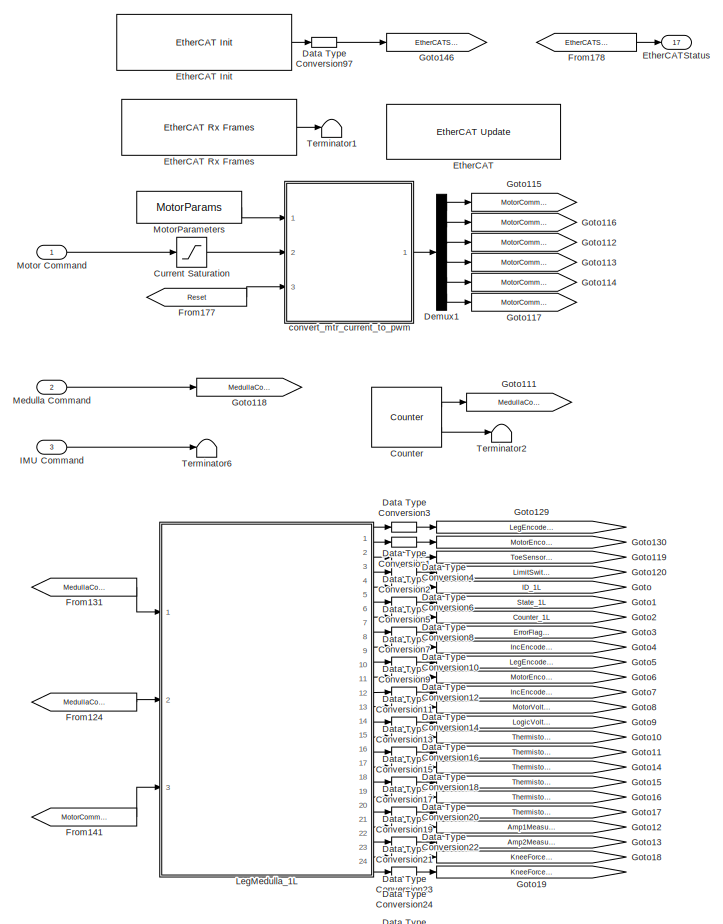
[diagram: DAQ_WITH_SAFETY_IMU/DAQ - part 1/7, top left region]
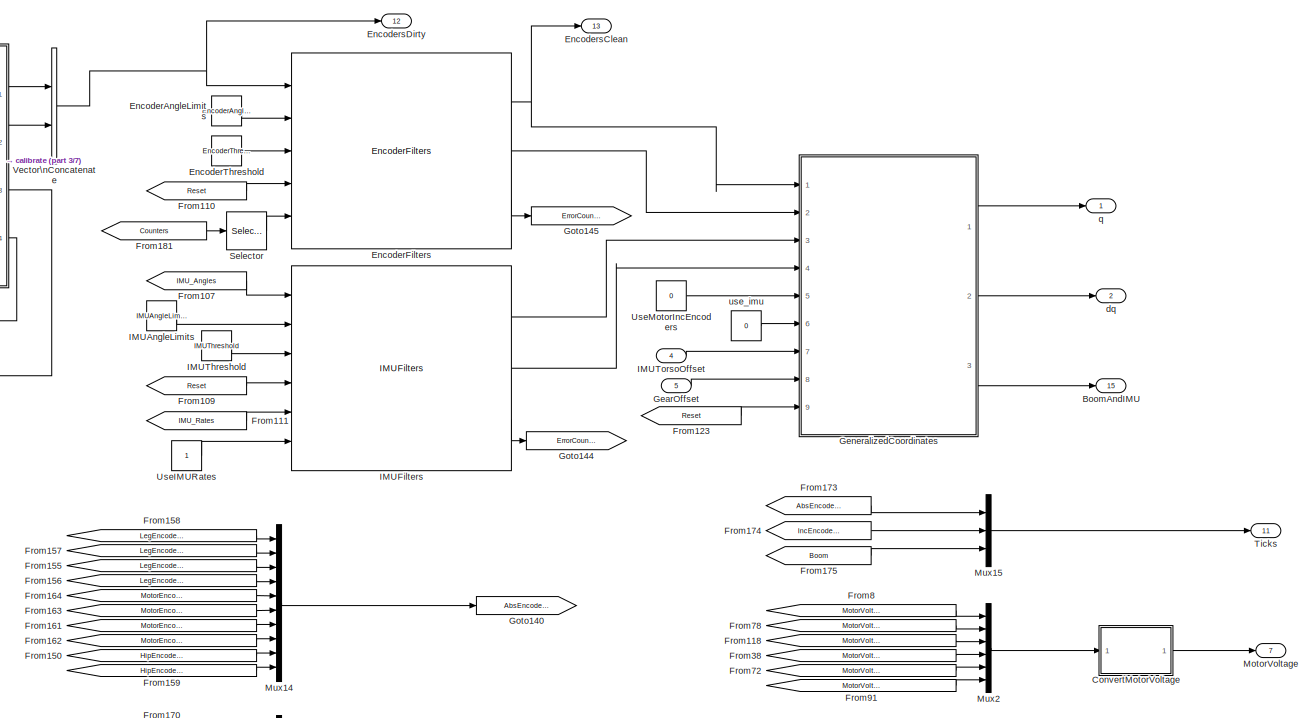
[diagram: DAQ_WITH_SAFETY_IMU/DAQ - part 2/7, top right region]
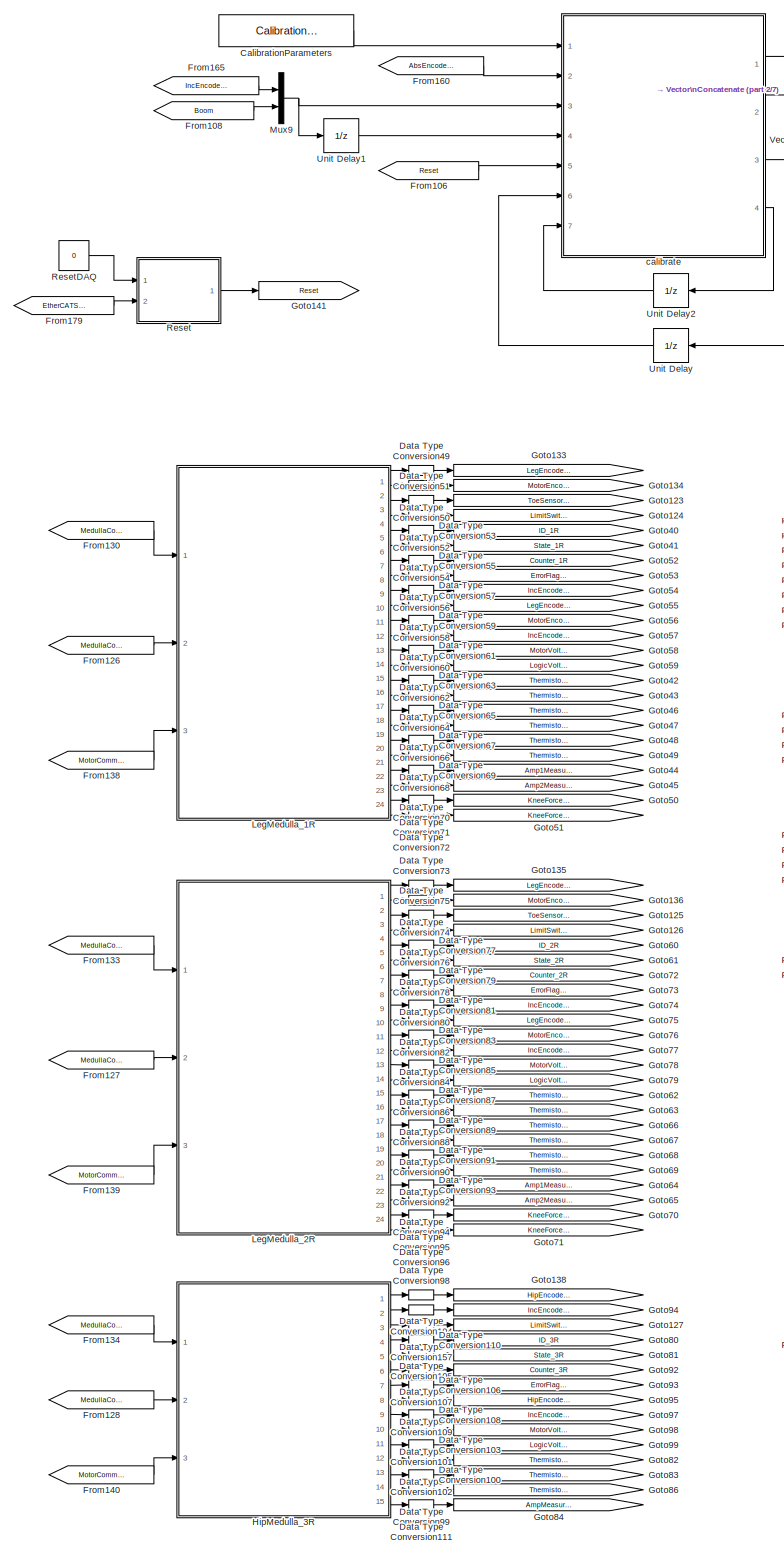
[diagram: DAQ_WITH_SAFETY_IMU/DAQ - part 3/7, center side, full height]
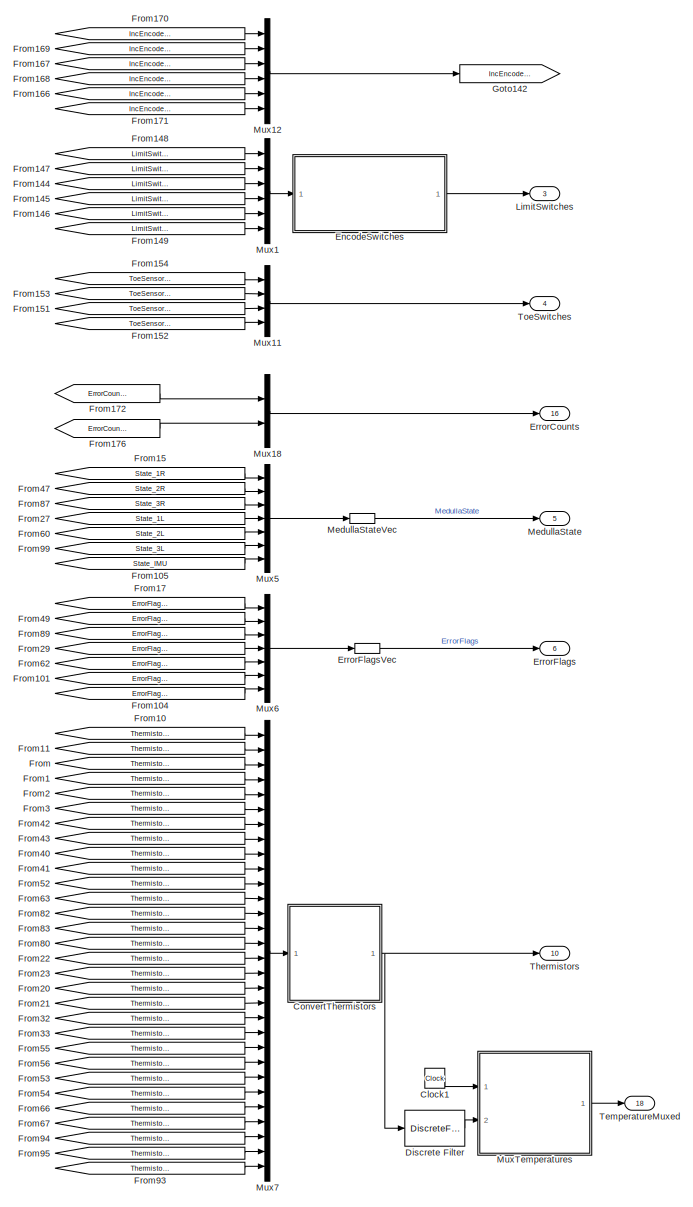
[diagram: DAQ_WITH_SAFETY_IMU/DAQ - part 4/7, central region]
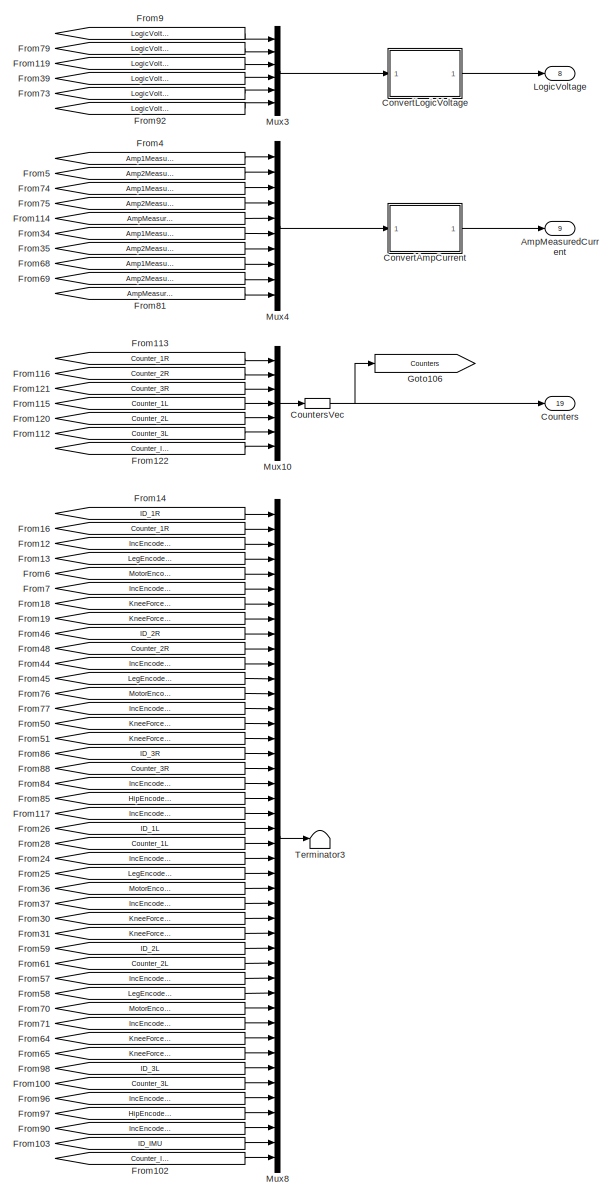
[diagram: DAQ_WITH_SAFETY_IMU/DAQ - part 5/7, middle right region]
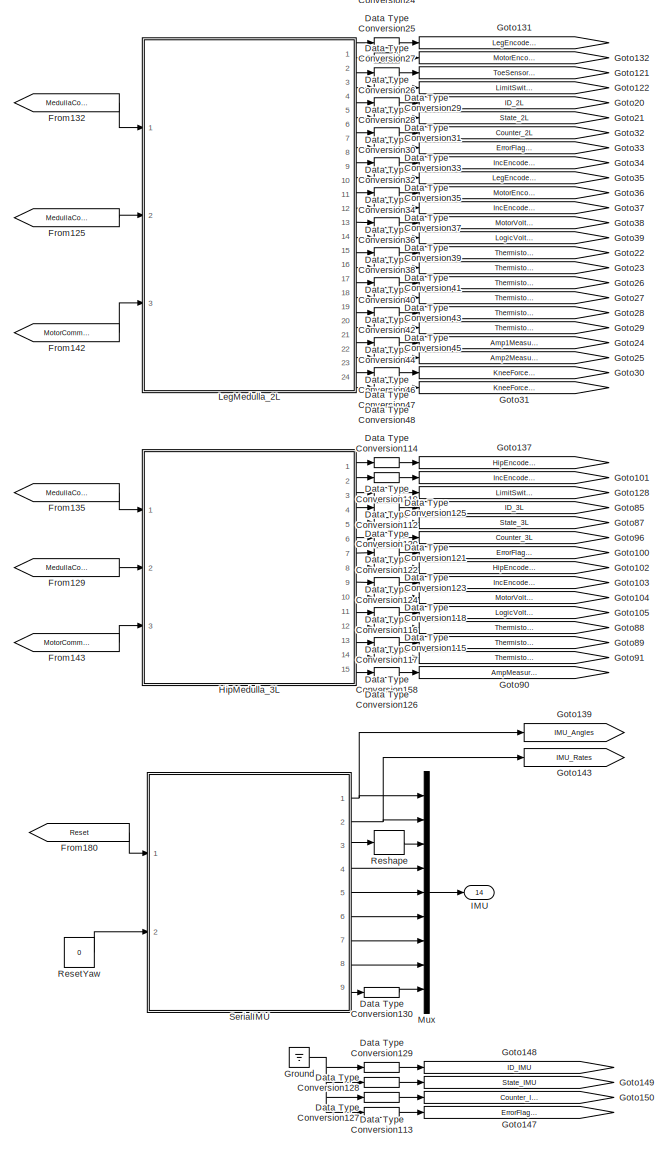
[diagram: DAQ_WITH_SAFETY_IMU/DAQ - part 6/7, bottom left region]
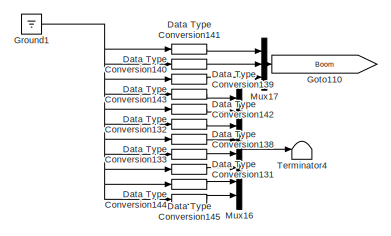
[diagram: DAQ_WITH_SAFETY_IMU/DAQ - part 7/7, bottom center region]
BLOCK [SubSystem] DAQ_WITH_SAFETY_IMU/DAQ
  FunctionWithSeparateData = off
  MaskHideContents = off
  MinAlgLoopOccurrences = off
  Opaque = off
  Ports = [5, 19]
  PropExecContextOutsideSubsystem = off
  RTWSystemCode = Auto
  RequestExecContextInheritance = off
  SID = 5847
BLOCK [Outport] DAQ_WITH_SAFETY_IMU/DAQ/AmpMeasuredCurrent
  IconDisplay = Port number
  Port = 9
  SID = 6876
BLOCK [Outport] DAQ_WITH_SAFETY_IMU/DAQ/BoomAndIMU
  IconDisplay = Port number
  Port = 15
  SID = 6882
BLOCK [Constant] DAQ_WITH_SAFETY_IMU/DAQ/CalibrationParameters
  SID = 5853
  Value = CalibrationParams
BLOCK [Clock] DAQ_WITH_SAFETY_IMU/DAQ/Clock1
  SID = 5854
BLOCK [SubSystem] DAQ_WITH_SAFETY_IMU/DAQ/ConvertAmpCurrent
  ErrorFcn = Stateflow.Translate.translate
  FunctionWithSeparateData = off
  MaskHideContents = off
  MinAlgLoopOccurrences = off
  Opaque = off
  PermitHierarchicalResolution = ExplicitOnly
  Ports = [1, 1]
  PropExecContextOutsideSubsystem = off
  RTWSystemCode = Auto
  RequestExecContextInheritance = off
  SFBlockType = MATLAB Function
  SID = 5855
  TreatAsAtomicUnit = on
BLOCK [Demux] DAQ_WITH_SAFETY_IMU/DAQ/ConvertAmpCurrent/ Demux 
  Outputs = 1
  Ports = [1, 1]
  SID = 5855::21
BLOCK [S-Function] DAQ_WITH_SAFETY_IMU/DAQ/ConvertAmpCurrent/ SFunction 
  EnableBusSupport = off
  FunctionName = sf_sfun
  PortCounts = [1 2]
  Ports = [1, 2]
  SID = 5855::20
  Tag = Stateflow S-Function marlo_lib_v01 10
BLOCK [Terminator] DAQ_WITH_SAFETY_IMU/DAQ/ConvertAmpCurrent/ Terminator 
  SID = 5855::22
BLOCK [Inport] DAQ_WITH_SAFETY_IMU/DAQ/ConvertAmpCurrent/adc_value
  IconDisplay = Port number
  SID = 5855::1
BLOCK [Outport] DAQ_WITH_SAFETY_IMU/DAQ/ConvertAmpCurrent/measuredCurrent
  IconDisplay = Port number
  SID = 5855::5
BLOCK [SubSystem] DAQ_WITH_SAFETY_IMU/DAQ/ConvertLogicVoltage
  ErrorFcn = Stateflow.Translate.translate
  FunctionWithSeparateData = off
  MaskHideContents = off
  MinAlgLoopOccurrences = off
  Opaque = off
  PermitHierarchicalResolution = ExplicitOnly
  Ports = [1, 1]
  PropExecContextOutsideSubsystem = off
  RTWSystemCode = Auto
  RequestExecContextInheritance = off
  SFBlockType = MATLAB Function
  SID = 5856
  TreatAsAtomicUnit = on
BLOCK [Demux] DAQ_WITH_SAFETY_IMU/DAQ/ConvertLogicVoltage/ Demux 
  Outputs = 1
  Ports = [1, 1]
  SID = 5856::21
BLOCK [S-Function] DAQ_WITH_SAFETY_IMU/DAQ/ConvertLogicVoltage/ SFunction 
  EnableBusSupport = off
  FunctionName = sf_sfun
  PortCounts = [1 2]
  Ports = [1, 2]
  SID = 5856::20
  Tag = Stateflow S-Function marlo_lib_v01 15
BLOCK [Terminator] DAQ_WITH_SAFETY_IMU/DAQ/ConvertLogicVoltage/ Terminator 
  SID = 5856::22
BLOCK [Inport] DAQ_WITH_SAFETY_IMU/DAQ/ConvertLogicVoltage/adc_value
  IconDisplay = Port number
  SID = 5856::1
BLOCK [Outport] DAQ_WITH_SAFETY_IMU/DAQ/ConvertLogicVoltage/logicVoltage
  IconDisplay = Port number
  SID = 5856::5
BLOCK [SubSystem] DAQ_WITH_SAFETY_IMU/DAQ/ConvertMotorVoltage
  ErrorFcn = Stateflow.Translate.translate
  FunctionWithSeparateData = off
  MaskHideContents = off
  MinAlgLoopOccurrences = off
  Opaque = off
  PermitHierarchicalResolution = ExplicitOnly
  Ports = [1, 1]
  PropExecContextOutsideSubsystem = off
  RTWSystemCode = Auto
  RequestExecContextInheritance = off
  SFBlockType = MATLAB Function
  SID = 5857
  TreatAsAtomicUnit = on
BLOCK [Demux] DAQ_WITH_SAFETY_IMU/DAQ/ConvertMotorVoltage/ Demux 
  Outputs = 1
  Ports = [1, 1]
  SID = 5857::21
BLOCK [S-Function] DAQ_WITH_SAFETY_IMU/DAQ/ConvertMotorVoltage/ SFunction 
  EnableBusSupport = off
  FunctionName = sf_sfun
  PortCounts = [1 2]
  Ports = [1, 2]
  SID = 5857::20
  Tag = Stateflow S-Function marlo_lib_v01 16
BLOCK [Terminator] DAQ_WITH_SAFETY_IMU/DAQ/ConvertMotorVoltage/ Terminator 
  SID = 5857::22
BLOCK [Inport] DAQ_WITH_SAFETY_IMU/DAQ/ConvertMotorVoltage/adc_value
  IconDisplay = Port number
  SID = 5857::1
BLOCK [Outport] DAQ_WITH_SAFETY_IMU/DAQ/ConvertMotorVoltage/motorVoltage
  IconDisplay = Port number
  SID = 5857::5
BLOCK [SubSystem] DAQ_WITH_SAFETY_IMU/DAQ/ConvertThermistors
  ErrorFcn = Stateflow.Translate.translate
  FunctionWithSeparateData = off
  MaskHideContents = off
  MinAlgLoopOccurrences = off
  Opaque = off
  PermitHierarchicalResolution = ExplicitOnly
  Ports = [1, 1]
  PropExecContextOutsideSubsystem = off
  RTWSystemCode = Auto
  RequestExecContextInheritance = off
  SFBlockType = MATLAB Function
  SID = 5858
  TreatAsAtomicUnit = on
BLOCK [Demux] DAQ_WITH_SAFETY_IMU/DAQ/ConvertThermistors/ Demux 
  Outputs = 1
  Ports = [1, 1]
  SID = 5858::23
BLOCK [S-Function] DAQ_WITH_SAFETY_IMU/DAQ/ConvertThermistors/ SFunction 
  EnableBusSupport = off
  FunctionName = sf_sfun
  PortCounts = [1 2]
  Ports = [1, 2]
  SID = 5858::22
  Tag = Stateflow S-Function marlo_lib_v01 17
BLOCK [Terminator] DAQ_WITH_SAFETY_IMU/DAQ/ConvertThermistors/ Terminator 
  SID = 5858::24
BLOCK [Outport] DAQ_WITH_SAFETY_IMU/DAQ/ConvertThermistors/Temperatures
  IconDisplay = Port number
  SID = 5858::21
BLOCK [Inport] DAQ_WITH_SAFETY_IMU/DAQ/ConvertThermistors/adc_value
  IconDisplay = Port number
  SID = 5858::1
BLOCK [Reference] DAQ_WITH_SAFETY_IMU/DAQ/Counter  REF=dspswit3/Counter
  CntDtype = double
  CountEvent = Free running
  CounterSize = User defined
  Direction = Up
  HitDtype = Logical
  HitValue = 32
  InitialCount = 0
  MaxCount = 65535
  Output = Count and Hit
  Ports = [0, 2]
  ResetInput = off
  SID = 5859
  SamplesPerFrame = 1
  SourceBlock = dspswit3/Counter
  SourceType = Counter
  Ts = .001
BLOCK [Outport] DAQ_WITH_SAFETY_IMU/DAQ/Counters
  IconDisplay = Port number
  Port = 19
  SID = 6886
BLOCK [DataTypeConversion] DAQ_WITH_SAFETY_IMU/DAQ/CountersVec
  OutDataTypeStr = double
  RndMeth = Floor
  SID = 5860
  SaturateOnIntegerOverflow = off
BLOCK [Saturate] DAQ_WITH_SAFETY_IMU/DAQ/Current Saturation
  InputPortMap = u0
  LowerLimit = -50
  Ports = [1, 1]
  SID = 5861
  UpperLimit = 50
BLOCK [DataTypeConversion] DAQ_WITH_SAFETY_IMU/DAQ/Data Type Conversion1
  OutDataTypeStr = double
  RndMeth = Floor
  SID = 5862
  SaturateOnIntegerOverflow = off
BLOCK [DataTypeConversion] DAQ_WITH_SAFETY_IMU/DAQ/Data Type Conversion10
  OutDataTypeStr = double
  RndMeth = Floor
  SID = 5863
  SaturateOnIntegerOverflow = off
BLOCK [DataTypeConversion] DAQ_WITH_SAFETY_IMU/DAQ/Data Type Conversion100
  OutDataTypeStr = double
  RndMeth = Floor
  SID = 5864
  SaturateOnIntegerOverflow = off
BLOCK [DataTypeConversion] DAQ_WITH_SAFETY_IMU/DAQ/Data Type Conversion101
  OutDataTypeStr = double
  RndMeth = Floor
  SID = 5865
  SaturateOnIntegerOverflow = off
BLOCK [DataTypeConversion] DAQ_WITH_SAFETY_IMU/DAQ/Data Type Conversion102
  OutDataTypeStr = double
  RndMeth = Floor
  SID = 5866
  SaturateOnIntegerOverflow = off
BLOCK [DataTypeConversion] DAQ_WITH_SAFETY_IMU/DAQ/Data Type Conversion103
  OutDataTypeStr = double
  RndMeth = Floor
  SID = 5867
  SaturateOnIntegerOverflow = off
BLOCK [DataTypeConversion] DAQ_WITH_SAFETY_IMU/DAQ/Data Type Conversion104
  OutDataTypeStr = double
  RndMeth = Floor
  SID = 5868
  SaturateOnIntegerOverflow = off
BLOCK [DataTypeConversion] DAQ_WITH_SAFETY_IMU/DAQ/Data Type Conversion105
  OutDataTypeStr = double
  RndMeth = Floor
  SID = 5869
  SaturateOnIntegerOverflow = off
BLOCK [DataTypeConversion] DAQ_WITH_SAFETY_IMU/DAQ/Data Type Conversion106
  OutDataTypeStr = double
  RndMeth = Floor
  SID = 5870
  SaturateOnIntegerOverflow = off
BLOCK [DataTypeConversion] DAQ_WITH_SAFETY_IMU/DAQ/Data Type Conversion107
  OutDataTypeStr = double
  RndMeth = Floor
  SID = 5871
  SaturateOnIntegerOverflow = off
BLOCK [DataTypeConversion] DAQ_WITH_SAFETY_IMU/DAQ/Data Type Conversion108
  OutDataTypeStr = double
  RndMeth = Floor
  SID = 5872
  SaturateOnIntegerOverflow = off
BLOCK [DataTypeConversion] DAQ_WITH_SAFETY_IMU/DAQ/Data Type Conversion109
  OutDataTypeStr = double
  RndMeth = Floor
  SID = 5873
  SaturateOnIntegerOverflow = off
BLOCK [DataTypeConversion] DAQ_WITH_SAFETY_IMU/DAQ/Data Type Conversion11
  OutDataTypeStr = double
  RndMeth = Floor
  SID = 5874
  SaturateOnIntegerOverflow = off
BLOCK [DataTypeConversion] DAQ_WITH_SAFETY_IMU/DAQ/Data Type Conversion110
  OutDataTypeStr = double
  RndMeth = Floor
  SID = 5875
  SaturateOnIntegerOverflow = off
BLOCK [DataTypeConversion] DAQ_WITH_SAFETY_IMU/DAQ/Data Type Conversion111
  OutDataTypeStr = double
  RndMeth = Floor
  SID = 5876
  SaturateOnIntegerOverflow = off
BLOCK [DataTypeConversion] DAQ_WITH_SAFETY_IMU/DAQ/Data Type Conversion112
  OutDataTypeStr = double
  RndMeth = Floor
  SID = 5877
  SaturateOnIntegerOverflow = off
BLOCK [DataTypeConversion] DAQ_WITH_SAFETY_IMU/DAQ/Data Type Conversion113
  OutDataTypeStr = double
  RndMeth = Floor
  SID = 5878
  SaturateOnIntegerOverflow = off
BLOCK [DataTypeConversion] DAQ_WITH_SAFETY_IMU/DAQ/Data Type Conversion114
  OutDataTypeStr = double
  RndMeth = Floor
  SID = 5879
  SaturateOnIntegerOverflow = off
BLOCK [DataTypeConversion] DAQ_WITH_SAFETY_IMU/DAQ/Data Type Conversion115
  OutDataTypeStr = double
  RndMeth = Floor
  SID = 5880
  SaturateOnIntegerOverflow = off
BLOCK [DataTypeConversion] DAQ_WITH_SAFETY_IMU/DAQ/Data Type Conversion116
  OutDataTypeStr = double
  RndMeth = Floor
  SID = 5881
  SaturateOnIntegerOverflow = off
BLOCK [DataTypeConversion] DAQ_WITH_SAFETY_IMU/DAQ/Data Type Conversion117
  OutDataTypeStr = double
  RndMeth = Floor
  SID = 5882
  SaturateOnIntegerOverflow = off
BLOCK [DataTypeConversion] DAQ_WITH_SAFETY_IMU/DAQ/Data Type Conversion118
  OutDataTypeStr = double
  RndMeth = Floor
  SID = 5883
  SaturateOnIntegerOverflow = off
BLOCK [DataTypeConversion] DAQ_WITH_SAFETY_IMU/DAQ/Data Type Conversion119
  OutDataTypeStr = double
  RndMeth = Floor
  SID = 5884
  SaturateOnIntegerOverflow = off
BLOCK [DataTypeConversion] DAQ_WITH_SAFETY_IMU/DAQ/Data Type Conversion12
  OutDataTypeStr = double
  RndMeth = Floor
  SID = 5885
  SaturateOnIntegerOverflow = off
BLOCK [DataTypeConversion] DAQ_WITH_SAFETY_IMU/DAQ/Data Type Conversion120
  OutDataTypeStr = double
  RndMeth = Floor
  SID = 5886
  SaturateOnIntegerOverflow = off
BLOCK [DataTypeConversion] DAQ_WITH_SAFETY_IMU/DAQ/Data Type Conversion121
  OutDataTypeStr = double
  RndMeth = Floor
  SID = 5887
  SaturateOnIntegerOverflow = off
BLOCK [DataTypeConversion] DAQ_WITH_SAFETY_IMU/DAQ/Data Type Conversion122
  OutDataTypeStr = double
  RndMeth = Floor
  SID = 5888
  SaturateOnIntegerOverflow = off
BLOCK [DataTypeConversion] DAQ_WITH_SAFETY_IMU/DAQ/Data Type Conversion123
  OutDataTypeStr = double
  RndMeth = Floor
  SID = 5889
  SaturateOnIntegerOverflow = off
BLOCK [DataTypeConversion] DAQ_WITH_SAFETY_IMU/DAQ/Data Type Conversion124
  OutDataTypeStr = double
  RndMeth = Floor
  SID = 5890
  SaturateOnIntegerOverflow = off
BLOCK [DataTypeConversion] DAQ_WITH_SAFETY_IMU/DAQ/Data Type Conversion125
  OutDataTypeStr = double
  RndMeth = Floor
  SID = 5891
  SaturateOnIntegerOverflow = off
BLOCK [DataTypeConversion] DAQ_WITH_SAFETY_IMU/DAQ/Data Type Conversion126
  OutDataTypeStr = double
  RndMeth = Floor
  SID = 5892
  SaturateOnIntegerOverflow = off
BLOCK [DataTypeConversion] DAQ_WITH_SAFETY_IMU/DAQ/Data Type Conversion127
  OutDataTypeStr = double
  RndMeth = Floor
  SID = 5893
  SaturateOnIntegerOverflow = off
BLOCK [DataTypeConversion] DAQ_WITH_SAFETY_IMU/DAQ/Data Type Conversion128
  OutDataTypeStr = double
  RndMeth = Floor
  SID = 5894
  SaturateOnIntegerOverflow = off
BLOCK [DataTypeConversion] DAQ_WITH_SAFETY_IMU/DAQ/Data Type Conversion129
  OutDataTypeStr = double
  RndMeth = Floor
  SID = 5895
  SaturateOnIntegerOverflow = off
BLOCK [DataTypeConversion] DAQ_WITH_SAFETY_IMU/DAQ/Data Type Conversion13
  OutDataTypeStr = double
  RndMeth = Floor
  SID = 5896
  SaturateOnIntegerOverflow = off
BLOCK [DataTypeConversion] DAQ_WITH_SAFETY_IMU/DAQ/Data Type Conversion130
  OutDataTypeStr = double
  RndMeth = Floor
  SID = 5897
  SaturateOnIntegerOverflow = off
BLOCK [DataTypeConversion] DAQ_WITH_SAFETY_IMU/DAQ/Data Type Conversion131
  OutDataTypeStr = double
  RndMeth = Floor
  SID = 5898
  SaturateOnIntegerOverflow = off
BLOCK [DataTypeConversion] DAQ_WITH_SAFETY_IMU/DAQ/Data Type Conversion132
  OutDataTypeStr = double
  RndMeth = Floor
  SID = 5899
  SaturateOnIntegerOverflow = off
BLOCK [DataTypeConversion] DAQ_WITH_SAFETY_IMU/DAQ/Data Type Conversion133
  OutDataTypeStr = double
  RndMeth = Floor
  SID = 5900
  SaturateOnIntegerOverflow = off
BLOCK [DataTypeConversion] DAQ_WITH_SAFETY_IMU/DAQ/Data Type Conversion138
  OutDataTypeStr = double
  RndMeth = Floor
  SID = 5901
  SaturateOnIntegerOverflow = off
BLOCK [DataTypeConversion] DAQ_WITH_SAFETY_IMU/DAQ/Data Type Conversion139
  OutDataTypeStr = double
  RndMeth = Floor
  SID = 5902
  SaturateOnIntegerOverflow = off
BLOCK [DataTypeConversion] DAQ_WITH_SAFETY_IMU/DAQ/Data Type Conversion14
  OutDataTypeStr = double
  RndMeth = Floor
  SID = 5903
  SaturateOnIntegerOverflow = off
BLOCK [DataTypeConversion] DAQ_WITH_SAFETY_IMU/DAQ/Data Type Conversion140
  OutDataTypeStr = double
  RndMeth = Floor
  SID = 5904
  SaturateOnIntegerOverflow = off
BLOCK [DataTypeConversion] DAQ_WITH_SAFETY_IMU/DAQ/Data Type Conversion141
  OutDataTypeStr = double
  RndMeth = Floor
  SID = 5905
  SaturateOnIntegerOverflow = off
BLOCK [DataTypeConversion] DAQ_WITH_SAFETY_IMU/DAQ/Data Type Conversion142
  OutDataTypeStr = double
  RndMeth = Floor
  SID = 5906
  SaturateOnIntegerOverflow = off
BLOCK [DataTypeConversion] DAQ_WITH_SAFETY_IMU/DAQ/Data Type Conversion143
  OutDataTypeStr = double
  RndMeth = Floor
  SID = 5907
  SaturateOnIntegerOverflow = off
BLOCK [DataTypeConversion] DAQ_WITH_SAFETY_IMU/DAQ/Data Type Conversion144
  OutDataTypeStr = double
  RndMeth = Floor
  SID = 5908
  SaturateOnIntegerOverflow = off
BLOCK [DataTypeConversion] DAQ_WITH_SAFETY_IMU/DAQ/Data Type Conversion145
  OutDataTypeStr = double
  RndMeth = Floor
  SID = 5909
  SaturateOnIntegerOverflow = off
BLOCK [DataTypeConversion] DAQ_WITH_SAFETY_IMU/DAQ/Data Type Conversion15
  OutDataTypeStr = double
  RndMeth = Floor
  SID = 5910
  SaturateOnIntegerOverflow = off
BLOCK [DataTypeConversion] DAQ_WITH_SAFETY_IMU/DAQ/Data Type Conversion157
  OutDataTypeStr = double
  RndMeth = Floor
  SID = 5911
  SaturateOnIntegerOverflow = off
BLOCK [DataTypeConversion] DAQ_WITH_SAFETY_IMU/DAQ/Data Type Conversion158
  OutDataTypeStr = double
  RndMeth = Floor
  SID = 5912
  SaturateOnIntegerOverflow = off
BLOCK [DataTypeConversion] DAQ_WITH_SAFETY_IMU/DAQ/Data Type Conversion16
  OutDataTypeStr = double
  RndMeth = Floor
  SID = 5913
  SaturateOnIntegerOverflow = off
BLOCK [DataTypeConversion] DAQ_WITH_SAFETY_IMU/DAQ/Data Type Conversion17
  OutDataTypeStr = double
  RndMeth = Floor
  SID = 5914
  SaturateOnIntegerOverflow = off
BLOCK [DataTypeConversion] DAQ_WITH_SAFETY_IMU/DAQ/Data Type Conversion18
  OutDataTypeStr = double
  RndMeth = Floor
  SID = 5915
  SaturateOnIntegerOverflow = off
BLOCK [DataTypeConversion] DAQ_WITH_SAFETY_IMU/DAQ/Data Type Conversion19
  OutDataTypeStr = double
  RndMeth = Floor
  SID = 5916
  SaturateOnIntegerOverflow = off
BLOCK [DataTypeConversion] DAQ_WITH_SAFETY_IMU/DAQ/Data Type Conversion2
  OutDataTypeStr = double
  RndMeth = Floor
  SID = 5917
  SaturateOnIntegerOverflow = off
BLOCK [DataTypeConversion] DAQ_WITH_SAFETY_IMU/DAQ/Data Type Conversion20
  OutDataTypeStr = double
  RndMeth = Floor
  SID = 5918
  SaturateOnIntegerOverflow = off
BLOCK [DataTypeConversion] DAQ_WITH_SAFETY_IMU/DAQ/Data Type Conversion21
  OutDataTypeStr = double
  RndMeth = Floor
  SID = 5919
  SaturateOnIntegerOverflow = off
BLOCK [DataTypeConversion] DAQ_WITH_SAFETY_IMU/DAQ/Data Type Conversion22
  OutDataTypeStr = double
  RndMeth = Floor
  SID = 5920
  SaturateOnIntegerOverflow = off
BLOCK [DataTypeConversion] DAQ_WITH_SAFETY_IMU/DAQ/Data Type Conversion23
  OutDataTypeStr = double
  RndMeth = Floor
  SID = 5921
  SaturateOnIntegerOverflow = off
BLOCK [DataTypeConversion] DAQ_WITH_SAFETY_IMU/DAQ/Data Type Conversion24
  OutDataTypeStr = double
  RndMeth = Floor
  SID = 5922
  SaturateOnIntegerOverflow = off
BLOCK [DataTypeConversion] DAQ_WITH_SAFETY_IMU/DAQ/Data Type Conversion25
  OutDataTypeStr = double
  RndMeth = Floor
  SID = 5923
  SaturateOnIntegerOverflow = off
BLOCK [DataTypeConversion] DAQ_WITH_SAFETY_IMU/DAQ/Data Type Conversion26
  OutDataTypeStr = double
  RndMeth = Floor
  SID = 5924
  SaturateOnIntegerOverflow = off
BLOCK [DataTypeConversion] DAQ_WITH_SAFETY_IMU/DAQ/Data Type Conversion27
  OutDataTypeStr = double
  RndMeth = Floor
  SID = 5925
  SaturateOnIntegerOverflow = off
BLOCK [DataTypeConversion] DAQ_WITH_SAFETY_IMU/DAQ/Data Type Conversion28
  OutDataTypeStr = double
  RndMeth = Floor
  SID = 5926
  SaturateOnIntegerOverflow = off
BLOCK [DataTypeConversion] DAQ_WITH_SAFETY_IMU/DAQ/Data Type Conversion29
  OutDataTypeStr = double
  RndMeth = Floor
  SID = 5927
  SaturateOnIntegerOverflow = off
BLOCK [DataTypeConversion] DAQ_WITH_SAFETY_IMU/DAQ/Data Type Conversion3
  OutDataTypeStr = double
  RndMeth = Floor
  SID = 5928
  SaturateOnIntegerOverflow = off
BLOCK [DataTypeConversion] DAQ_WITH_SAFETY_IMU/DAQ/Data Type Conversion30
  OutDataTypeStr = double
  RndMeth = Floor
  SID = 5929
  SaturateOnIntegerOverflow = off
BLOCK [DataTypeConversion] DAQ_WITH_SAFETY_IMU/DAQ/Data Type Conversion31
  OutDataTypeStr = double
  RndMeth = Floor
  SID = 5930
  SaturateOnIntegerOverflow = off
BLOCK [DataTypeConversion] DAQ_WITH_SAFETY_IMU/DAQ/Data Type Conversion32
  OutDataTypeStr = double
  RndMeth = Floor
  SID = 5931
  SaturateOnIntegerOverflow = off
BLOCK [DataTypeConversion] DAQ_WITH_SAFETY_IMU/DAQ/Data Type Conversion33
  OutDataTypeStr = double
  RndMeth = Floor
  SID = 5932
  SaturateOnIntegerOverflow = off
BLOCK [DataTypeConversion] DAQ_WITH_SAFETY_IMU/DAQ/Data Type Conversion34
  OutDataTypeStr = double
  RndMeth = Floor
  SID = 5933
  SaturateOnIntegerOverflow = off
BLOCK [DataTypeConversion] DAQ_WITH_SAFETY_IMU/DAQ/Data Type Conversion35
  OutDataTypeStr = double
  RndMeth = Floor
  SID = 5934
  SaturateOnIntegerOverflow = off
BLOCK [DataTypeConversion] DAQ_WITH_SAFETY_IMU/DAQ/Data Type Conversion36
  OutDataTypeStr = double
  RndMeth = Floor
  SID = 5935
  SaturateOnIntegerOverflow = off
BLOCK [DataTypeConversion] DAQ_WITH_SAFETY_IMU/DAQ/Data Type Conversion37
  OutDataTypeStr = double
  RndMeth = Floor
  SID = 5936
  SaturateOnIntegerOverflow = off
BLOCK [DataTypeConversion] DAQ_WITH_SAFETY_IMU/DAQ/Data Type Conversion38
  OutDataTypeStr = double
  RndMeth = Floor
  SID = 5937
  SaturateOnIntegerOverflow = off
BLOCK [DataTypeConversion] DAQ_WITH_SAFETY_IMU/DAQ/Data Type Conversion39
  OutDataTypeStr = double
  RndMeth = Floor
  SID = 5938
  SaturateOnIntegerOverflow = off
BLOCK [DataTypeConversion] DAQ_WITH_SAFETY_IMU/DAQ/Data Type Conversion4
  OutDataTypeStr = double
  RndMeth = Floor
  SID = 5939
  SaturateOnIntegerOverflow = off
BLOCK [DataTypeConversion] DAQ_WITH_SAFETY_IMU/DAQ/Data Type Conversion40
  OutDataTypeStr = double
  RndMeth = Floor
  SID = 5940
  SaturateOnIntegerOverflow = off
BLOCK [DataTypeConversion] DAQ_WITH_SAFETY_IMU/DAQ/Data Type Conversion41
  OutDataTypeStr = double
  RndMeth = Floor
  SID = 5941
  SaturateOnIntegerOverflow = off
BLOCK [DataTypeConversion] DAQ_WITH_SAFETY_IMU/DAQ/Data Type Conversion42
  OutDataTypeStr = double
  RndMeth = Floor
  SID = 5942
  SaturateOnIntegerOverflow = off
BLOCK [DataTypeConversion] DAQ_WITH_SAFETY_IMU/DAQ/Data Type Conversion43
  OutDataTypeStr = double
  RndMeth = Floor
  SID = 5943
  SaturateOnIntegerOverflow = off
BLOCK [DataTypeConversion] DAQ_WITH_SAFETY_IMU/DAQ/Data Type Conversion44
  OutDataTypeStr = double
  RndMeth = Floor
  SID = 5944
  SaturateOnIntegerOverflow = off
BLOCK [DataTypeConversion] DAQ_WITH_SAFETY_IMU/DAQ/Data Type Conversion45
  OutDataTypeStr = double
  RndMeth = Floor
  SID = 5945
  SaturateOnIntegerOverflow = off
BLOCK [DataTypeConversion] DAQ_WITH_SAFETY_IMU/DAQ/Data Type Conversion46
  OutDataTypeStr = double
  RndMeth = Floor
  SID = 5946
  SaturateOnIntegerOverflow = off
BLOCK [DataTypeConversion] DAQ_WITH_SAFETY_IMU/DAQ/Data Type Conversion47
  OutDataTypeStr = double
  RndMeth = Floor
  SID = 5947
  SaturateOnIntegerOverflow = off
BLOCK [DataTypeConversion] DAQ_WITH_SAFETY_IMU/DAQ/Data Type Conversion48
  OutDataTypeStr = double
  RndMeth = Floor
  SID = 5948
  SaturateOnIntegerOverflow = off
BLOCK [DataTypeConversion] DAQ_WITH_SAFETY_IMU/DAQ/Data Type Conversion49
  OutDataTypeStr = double
  RndMeth = Floor
  SID = 5949
  SaturateOnIntegerOverflow = off
BLOCK [DataTypeConversion] DAQ_WITH_SAFETY_IMU/DAQ/Data Type Conversion5
  OutDataTypeStr = double
  RndMeth = Floor
  SID = 5950
  SaturateOnIntegerOverflow = off
BLOCK [DataTypeConversion] DAQ_WITH_SAFETY_IMU/DAQ/Data Type Conversion50
  OutDataTypeStr = double
  RndMeth = Floor
  SID = 5951
  SaturateOnIntegerOverflow = off
BLOCK [DataTypeConversion] DAQ_WITH_SAFETY_IMU/DAQ/Data Type Conversion51
  OutDataTypeStr = double
  RndMeth = Floor
  SID = 5952
  SaturateOnIntegerOverflow = off
BLOCK [DataTypeConversion] DAQ_WITH_SAFETY_IMU/DAQ/Data Type Conversion52
  OutDataTypeStr = double
  RndMeth = Floor
  SID = 5953
  SaturateOnIntegerOverflow = off
BLOCK [DataTypeConversion] DAQ_WITH_SAFETY_IMU/DAQ/Data Type Conversion53
  OutDataTypeStr = double
  RndMeth = Floor
  SID = 5954
  SaturateOnIntegerOverflow = off
BLOCK [DataTypeConversion] DAQ_WITH_SAFETY_IMU/DAQ/Data Type Conversion54
  OutDataTypeStr = double
  RndMeth = Floor
  SID = 5955
  SaturateOnIntegerOverflow = off
BLOCK [DataTypeConversion] DAQ_WITH_SAFETY_IMU/DAQ/Data Type Conversion55
  OutDataTypeStr = double
  RndMeth = Floor
  SID = 5956
  SaturateOnIntegerOverflow = off
BLOCK [DataTypeConversion] DAQ_WITH_SAFETY_IMU/DAQ/Data Type Conversion56
  OutDataTypeStr = double
  RndMeth = Floor
  SID = 5957
  SaturateOnIntegerOverflow = off
BLOCK [DataTypeConversion] DAQ_WITH_SAFETY_IMU/DAQ/Data Type Conversion57
  OutDataTypeStr = double
  RndMeth = Floor
  SID = 5958
  SaturateOnIntegerOverflow = off
BLOCK [DataTypeConversion] DAQ_WITH_SAFETY_IMU/DAQ/Data Type Conversion58
  OutDataTypeStr = double
  RndMeth = Floor
  SID = 5959
  SaturateOnIntegerOverflow = off
BLOCK [DataTypeConversion] DAQ_WITH_SAFETY_IMU/DAQ/Data Type Conversion59
  OutDataTypeStr = double
  RndMeth = Floor
  SID = 5960
  SaturateOnIntegerOverflow = off
BLOCK [DataTypeConversion] DAQ_WITH_SAFETY_IMU/DAQ/Data Type Conversion6
  OutDataTypeStr = double
  RndMeth = Floor
  SID = 5961
  SaturateOnIntegerOverflow = off
BLOCK [DataTypeConversion] DAQ_WITH_SAFETY_IMU/DAQ/Data Type Conversion60
  OutDataTypeStr = double
  RndMeth = Floor
  SID = 5962
  SaturateOnIntegerOverflow = off
BLOCK [DataTypeConversion] DAQ_WITH_SAFETY_IMU/DAQ/Data Type Conversion61
  OutDataTypeStr = double
  RndMeth = Floor
  SID = 5963
  SaturateOnIntegerOverflow = off
BLOCK [DataTypeConversion] DAQ_WITH_SAFETY_IMU/DAQ/Data Type Conversion62
  OutDataTypeStr = double
  RndMeth = Floor
  SID = 5964
  SaturateOnIntegerOverflow = off
BLOCK [DataTypeConversion] DAQ_WITH_SAFETY_IMU/DAQ/Data Type Conversion63
  OutDataTypeStr = double
  RndMeth = Floor
  SID = 5965
  SaturateOnIntegerOverflow = off
BLOCK [DataTypeConversion] DAQ_WITH_SAFETY_IMU/DAQ/Data Type Conversion64
  OutDataTypeStr = double
  RndMeth = Floor
  SID = 5966
  SaturateOnIntegerOverflow = off
BLOCK [DataTypeConversion] DAQ_WITH_SAFETY_IMU/DAQ/Data Type Conversion65
  OutDataTypeStr = double
  RndMeth = Floor
  SID = 5967
  SaturateOnIntegerOverflow = off
BLOCK [DataTypeConversion] DAQ_WITH_SAFETY_IMU/DAQ/Data Type Conversion66
  OutDataTypeStr = double
  RndMeth = Floor
  SID = 5968
  SaturateOnIntegerOverflow = off
BLOCK [DataTypeConversion] DAQ_WITH_SAFETY_IMU/DAQ/Data Type Conversion67
  OutDataTypeStr = double
  RndMeth = Floor
  SID = 5969
  SaturateOnIntegerOverflow = off
BLOCK [DataTypeConversion] DAQ_WITH_SAFETY_IMU/DAQ/Data Type Conversion68
  OutDataTypeStr = double
  RndMeth = Floor
  SID = 5970
  SaturateOnIntegerOverflow = off
BLOCK [DataTypeConversion] DAQ_WITH_SAFETY_IMU/DAQ/Data Type Conversion69
  OutDataTypeStr = double
  RndMeth = Floor
  SID = 5971
  SaturateOnIntegerOverflow = off
BLOCK [DataTypeConversion] DAQ_WITH_SAFETY_IMU/DAQ/Data Type Conversion7
  OutDataTypeStr = double
  RndMeth = Floor
  SID = 5972
  SaturateOnIntegerOverflow = off
BLOCK [DataTypeConversion] DAQ_WITH_SAFETY_IMU/DAQ/Data Type Conversion70
  OutDataTypeStr = double
  RndMeth = Floor
  SID = 5973
  SaturateOnIntegerOverflow = off
BLOCK [DataTypeConversion] DAQ_WITH_SAFETY_IMU/DAQ/Data Type Conversion71
  OutDataTypeStr = double
  RndMeth = Floor
  SID = 5974
  SaturateOnIntegerOverflow = off
BLOCK [DataTypeConversion] DAQ_WITH_SAFETY_IMU/DAQ/Data Type Conversion72
  OutDataTypeStr = double
  RndMeth = Floor
  SID = 5975
  SaturateOnIntegerOverflow = off
BLOCK [DataTypeConversion] DAQ_WITH_SAFETY_IMU/DAQ/Data Type Conversion73
  OutDataTypeStr = double
  RndMeth = Floor
  SID = 5976
  SaturateOnIntegerOverflow = off
BLOCK [DataTypeConversion] DAQ_WITH_SAFETY_IMU/DAQ/Data Type Conversion74
  OutDataTypeStr = double
  RndMeth = Floor
  SID = 5977
  SaturateOnIntegerOverflow = off
BLOCK [DataTypeConversion] DAQ_WITH_SAFETY_IMU/DAQ/Data Type Conversion75
  OutDataTypeStr = double
  RndMeth = Floor
  SID = 5978
  SaturateOnIntegerOverflow = off
BLOCK [DataTypeConversion] DAQ_WITH_SAFETY_IMU/DAQ/Data Type Conversion76
  OutDataTypeStr = double
  RndMeth = Floor
  SID = 5979
  SaturateOnIntegerOverflow = off
BLOCK [DataTypeConversion] DAQ_WITH_SAFETY_IMU/DAQ/Data Type Conversion77
  OutDataTypeStr = double
  RndMeth = Floor
  SID = 5980
  SaturateOnIntegerOverflow = off
BLOCK [DataTypeConversion] DAQ_WITH_SAFETY_IMU/DAQ/Data Type Conversion78
  OutDataTypeStr = double
  RndMeth = Floor
  SID = 5981
  SaturateOnIntegerOverflow = off
BLOCK [DataTypeConversion] DAQ_WITH_SAFETY_IMU/DAQ/Data Type Conversion79
  OutDataTypeStr = double
  RndMeth = Floor
  SID = 5982
  SaturateOnIntegerOverflow = off
BLOCK [DataTypeConversion] DAQ_WITH_SAFETY_IMU/DAQ/Data Type Conversion8
  OutDataTypeStr = double
  RndMeth = Floor
  SID = 5983
  SaturateOnIntegerOverflow = off
BLOCK [DataTypeConversion] DAQ_WITH_SAFETY_IMU/DAQ/Data Type Conversion80
  OutDataTypeStr = double
  RndMeth = Floor
  SID = 5984
  SaturateOnIntegerOverflow = off
BLOCK [DataTypeConversion] DAQ_WITH_SAFETY_IMU/DAQ/Data Type Conversion81
  OutDataTypeStr = double
  RndMeth = Floor
  SID = 5985
  SaturateOnIntegerOverflow = off
BLOCK [DataTypeConversion] DAQ_WITH_SAFETY_IMU/DAQ/Data Type Conversion82
  OutDataTypeStr = double
  RndMeth = Floor
  SID = 5986
  SaturateOnIntegerOverflow = off
BLOCK [DataTypeConversion] DAQ_WITH_SAFETY_IMU/DAQ/Data Type Conversion83
  OutDataTypeStr = double
  RndMeth = Floor
  SID = 5987
  SaturateOnIntegerOverflow = off
BLOCK [DataTypeConversion] DAQ_WITH_SAFETY_IMU/DAQ/Data Type Conversion84
  OutDataTypeStr = double
  RndMeth = Floor
  SID = 5988
  SaturateOnIntegerOverflow = off
BLOCK [DataTypeConversion] DAQ_WITH_SAFETY_IMU/DAQ/Data Type Conversion85
  OutDataTypeStr = double
  RndMeth = Floor
  SID = 5989
  SaturateOnIntegerOverflow = off
BLOCK [DataTypeConversion] DAQ_WITH_SAFETY_IMU/DAQ/Data Type Conversion86
  OutDataTypeStr = double
  RndMeth = Floor
  SID = 5990
  SaturateOnIntegerOverflow = off
BLOCK [DataTypeConversion] DAQ_WITH_SAFETY_IMU/DAQ/Data Type Conversion87
  OutDataTypeStr = double
  RndMeth = Floor
  SID = 5991
  SaturateOnIntegerOverflow = off
BLOCK [DataTypeConversion] DAQ_WITH_SAFETY_IMU/DAQ/Data Type Conversion88
  OutDataTypeStr = double
  RndMeth = Floor
  SID = 5992
  SaturateOnIntegerOverflow = off
BLOCK [DataTypeConversion] DAQ_WITH_SAFETY_IMU/DAQ/Data Type Conversion89
  OutDataTypeStr = double
  RndMeth = Floor
  SID = 5993
  SaturateOnIntegerOverflow = off
BLOCK [DataTypeConversion] DAQ_WITH_SAFETY_IMU/DAQ/Data Type Conversion9
  OutDataTypeStr = double
  RndMeth = Floor
  SID = 5994
  SaturateOnIntegerOverflow = off
BLOCK [DataTypeConversion] DAQ_WITH_SAFETY_IMU/DAQ/Data Type Conversion90
  OutDataTypeStr = double
  RndMeth = Floor
  SID = 5995
  SaturateOnIntegerOverflow = off
BLOCK [DataTypeConversion] DAQ_WITH_SAFETY_IMU/DAQ/Data Type Conversion91
  OutDataTypeStr = double
  RndMeth = Floor
  SID = 5996
  SaturateOnIntegerOverflow = off
BLOCK [DataTypeConversion] DAQ_WITH_SAFETY_IMU/DAQ/Data Type Conversion92
  OutDataTypeStr = double
  RndMeth = Floor
  SID = 5997
  SaturateOnIntegerOverflow = off
BLOCK [DataTypeConversion] DAQ_WITH_SAFETY_IMU/DAQ/Data Type Conversion93
  OutDataTypeStr = double
  RndMeth = Floor
  SID = 5998
  SaturateOnIntegerOverflow = off
BLOCK [DataTypeConversion] DAQ_WITH_SAFETY_IMU/DAQ/Data Type Conversion94
  OutDataTypeStr = double
  RndMeth = Floor
  SID = 5999
  SaturateOnIntegerOverflow = off
BLOCK [DataTypeConversion] DAQ_WITH_SAFETY_IMU/DAQ/Data Type Conversion95
  OutDataTypeStr = double
  RndMeth = Floor
  SID = 6000
  SaturateOnIntegerOverflow = off
BLOCK [DataTypeConversion] DAQ_WITH_SAFETY_IMU/DAQ/Data Type Conversion96
  OutDataTypeStr = double
  RndMeth = Floor
  SID = 6001
  SaturateOnIntegerOverflow = off
BLOCK [DataTypeConversion] DAQ_WITH_SAFETY_IMU/DAQ/Data Type Conversion97
  OutDataTypeStr = double
  RndMeth = Floor
  SID = 6002
  SaturateOnIntegerOverflow = off
BLOCK [DataTypeConversion] DAQ_WITH_SAFETY_IMU/DAQ/Data Type Conversion98
  OutDataTypeStr = double
  RndMeth = Floor
  SID = 6003
  SaturateOnIntegerOverflow = off
BLOCK [DataTypeConversion] DAQ_WITH_SAFETY_IMU/DAQ/Data Type Conversion99
  OutDataTypeStr = double
  RndMeth = Floor
  SID = 6004
  SaturateOnIntegerOverflow = off
BLOCK [Demux] DAQ_WITH_SAFETY_IMU/DAQ/Demux1
  DisplayOption = bar
  Outputs = 6
  Ports = [1, 6]
  SID = 6005
BLOCK [DiscreteFilter] DAQ_WITH_SAFETY_IMU/DAQ/Discrete Filter
  Denominator = [1 -0.99]
  InitialStates = zeros(30,1)
  InputPortMap = u0
  Numerator = [1-0.99]
  Ports = [1, 1]
  SID = 6006
BLOCK [SubSystem] DAQ_WITH_SAFETY_IMU/DAQ/EncodeSwitches
  ErrorFcn = Stateflow.Translate.translate
  FunctionWithSeparateData = off
  MaskHideContents = off
  MinAlgLoopOccurrences = off
  Opaque = off
  PermitHierarchicalResolution = ExplicitOnly
  Ports = [1, 1]
  PropExecContextOutsideSubsystem = off
  RTWSystemCode = Auto
  RequestExecContextInheritance = off
  SFBlockType = MATLAB Function
  SID = 6007
  TreatAsAtomicUnit = on
BLOCK [Demux] DAQ_WITH_SAFETY_IMU/DAQ/EncodeSwitches/ Demux 
  Outputs = 1
  Ports = [1, 1]
  SID = 6007::21
BLOCK [S-Function] DAQ_WITH_SAFETY_IMU/DAQ/EncodeSwitches/ SFunction 
  EnableBusSupport = off
  FunctionName = sf_sfun
  PortCounts = [1 2]
  Ports = [1, 2]
  SID = 6007::20
  Tag = Stateflow S-Function marlo_lib_v01 18
BLOCK [Terminator] DAQ_WITH_SAFETY_IMU/DAQ/EncodeSwitches/ Terminator 
  SID = 6007::22
BLOCK [Outport] DAQ_WITH_SAFETY_IMU/DAQ/EncodeSwitches/LimitSwitchesEncoded
  IconDisplay = Port number
  SID = 6007::5
BLOCK [Inport] DAQ_WITH_SAFETY_IMU/DAQ/EncodeSwitches/Switches
  IconDisplay = Port number
  SID = 6007::1
BLOCK [Constant] DAQ_WITH_SAFETY_IMU/DAQ/EncoderAngleLimits
  SID = 6008
  Value = EncoderAngleLimits
BLOCK [Reference] DAQ_WITH_SAFETY_IMU/DAQ/EncoderFilters  REF=marlo_lib_v01/EncoderFilters  (lib defined in mdl_235eadc422d4)
  Ports = [5, 3]
  SID = 6009
  SourceBlock = marlo_lib_v01/EncoderFilters
  SourceType = SubSystem
BLOCK [Constant] DAQ_WITH_SAFETY_IMU/DAQ/EncoderThreshold
  SID = 6010
  Value = EncoderThreshold
BLOCK [Outport] DAQ_WITH_SAFETY_IMU/DAQ/EncodersClean
  IconDisplay = Port number
  Port = 13
  SID = 6880
BLOCK [Outport] DAQ_WITH_SAFETY_IMU/DAQ/EncodersDirty
  IconDisplay = Port number
  Port = 12
  SID = 6879
BLOCK [Outport] DAQ_WITH_SAFETY_IMU/DAQ/ErrorCounts
  IconDisplay = Port number
  Port = 16
  SID = 6883
BLOCK [Outport] DAQ_WITH_SAFETY_IMU/DAQ/ErrorFlags
  IconDisplay = Port number
  Port = 6
  SID = 6873
BLOCK [DataTypeConversion] DAQ_WITH_SAFETY_IMU/DAQ/ErrorFlagsVec
  OutDataTypeStr = double
  RndMeth = Floor
  SID = 6011
  SaturateOnIntegerOverflow = off
BLOCK [Reference] DAQ_WITH_SAFETY_IMU/DAQ/EtherCAT  REF=xpcethercatlib/EtherCAT Update 
  Ports = []
  Priority = 4
  SID = 6012
  SourceBlock = xpcethercatlib/EtherCAT Update
  SourceType = xpcethercat_update
  device_id = 0
  task_id_list = [1]
  task_priorities = [1500]
  task_rates = [1]
BLOCK [Reference] DAQ_WITH_SAFETY_IMU/DAQ/EtherCAT Init  REF=xpcethercatlib/EtherCAT Init 
  Ports = [0, 1]
  Priority = 0
  SID = 6013
  SourceBlock = xpcethercatlib/EtherCAT Init
  SourceType = xpcethercatinit
  config_file = 'full_robot_medulla_v6_no_boom_no_imu_eni.xml'
  device_id = 0
  enaDC = on
  errRptLevel = 0
  pci_bus = 7
  pci_slot = 0
  sample_time = 0.001000
BLOCK [Reference] DAQ_WITH_SAFETY_IMU/DAQ/EtherCAT Rx Frames  REF=xpcethercatlib/EtherCAT Rx Frames 
  Ports = [0, 1]
  Priority = 1
  SID = 6014
  SourceBlock = xpcethercatlib/EtherCAT Rx Frames
  SourceType = xpcethercat_rcvframes
  device_id = 0
  sample_time = 0
BLOCK [Outport] DAQ_WITH_SAFETY_IMU/DAQ/EtherCATStatus
  IconDisplay = Port number
  Port = 17
  SID = 6884
BLOCK [From] DAQ_WITH_SAFETY_IMU/DAQ/From
  GotoTag = Thermistor2_1R
  SID = 6015
BLOCK [From] DAQ_WITH_SAFETY_IMU/DAQ/From1
  GotoTag = Thermistor3_1R
  SID = 6016
BLOCK [From] DAQ_WITH_SAFETY_IMU/DAQ/From10
  GotoTag = Thermistor0_1R
  SID = 6017
BLOCK [From] DAQ_WITH_SAFETY_IMU/DAQ/From100
  GotoTag = Counter_3L
  SID = 6018
BLOCK [From] DAQ_WITH_SAFETY_IMU/DAQ/From101
  GotoTag = ErrorFlags_3L
  SID = 6019
BLOCK [From] DAQ_WITH_SAFETY_IMU/DAQ/From102
  GotoTag = Counter_IMU
  SID = 6020
BLOCK [From] DAQ_WITH_SAFETY_IMU/DAQ/From103
  GotoTag = ID_IMU
  SID = 6021
BLOCK [From] DAQ_WITH_SAFETY_IMU/DAQ/From104
  GotoTag = ErrorFlags_IMU
  SID = 6022
BLOCK [From] DAQ_WITH_SAFETY_IMU/DAQ/From105
  GotoTag = State_IMU
  SID = 6023
BLOCK [From] DAQ_WITH_SAFETY_IMU/DAQ/From106
  GotoTag = Reset
  SID = 6024
BLOCK [From] DAQ_WITH_SAFETY_IMU/DAQ/From107
  GotoTag = IMU_Angles
  SID = 6025
BLOCK [From] DAQ_WITH_SAFETY_IMU/DAQ/From108
  GotoTag = Boom
  SID = 6026
BLOCK [From] DAQ_WITH_SAFETY_IMU/DAQ/From109
  GotoTag = Reset
  SID = 6027
BLOCK [From] DAQ_WITH_SAFETY_IMU/DAQ/From11
  GotoTag = Thermistor1_1R
  SID = 6028
BLOCK [From] DAQ_WITH_SAFETY_IMU/DAQ/From110
  GotoTag = Reset
  SID = 6029
BLOCK [From] DAQ_WITH_SAFETY_IMU/DAQ/From111
  GotoTag = IMU_Rates
  SID = 6030
BLOCK [From] DAQ_WITH_SAFETY_IMU/DAQ/From112
  GotoTag = Counter_3L
  SID = 6031
BLOCK [From] DAQ_WITH_SAFETY_IMU/DAQ/From113
  GotoTag = Counter_1R
  SID = 6032
BLOCK [From] DAQ_WITH_SAFETY_IMU/DAQ/From114
  GotoTag = AmpMeasuredCurrent_3R
  SID = 6033
BLOCK [From] DAQ_WITH_SAFETY_IMU/DAQ/From115
  GotoTag = Counter_1L
  SID = 6034
BLOCK [From] DAQ_WITH_SAFETY_IMU/DAQ/From116
  GotoTag = Counter_2R
  SID = 6035
BLOCK [From] DAQ_WITH_SAFETY_IMU/DAQ/From117
  GotoTag = IncEncoderTimestamp_3R
  SID = 6036
BLOCK [From] DAQ_WITH_SAFETY_IMU/DAQ/From118
  GotoTag = MotorVoltage_3R
  SID = 6037
BLOCK [From] DAQ_WITH_SAFETY_IMU/DAQ/From119
  GotoTag = LogicVoltage_3R
  SID = 6038
BLOCK [From] DAQ_WITH_SAFETY_IMU/DAQ/From12
  GotoTag = IncEncoder_1R
  SID = 6039
BLOCK [From] DAQ_WITH_SAFETY_IMU/DAQ/From120
  GotoTag = Counter_2L
  SID = 6040
BLOCK [From] DAQ_WITH_SAFETY_IMU/DAQ/From121
  GotoTag = Counter_3R
  SID = 6041
BLOCK [From] DAQ_WITH_SAFETY_IMU/DAQ/From122
  GotoTag = Counter_IMU
  SID = 6042
BLOCK [From] DAQ_WITH_SAFETY_IMU/DAQ/From123
  GotoTag = Reset
  SID = 6043
BLOCK [From] DAQ_WITH_SAFETY_IMU/DAQ/From124
  GotoTag = MedullaCounter
  SID = 6044
BLOCK [From] DAQ_WITH_SAFETY_IMU/DAQ/From125
  GotoTag = MedullaCounter
  SID = 6045
BLOCK [From] DAQ_WITH_SAFETY_IMU/DAQ/From126
  GotoTag = MedullaCounter
  SID = 6046
BLOCK [From] DAQ_WITH_SAFETY_IMU/DAQ/From127
  GotoTag = MedullaCounter
  SID = 6047
BLOCK [From] DAQ_WITH_SAFETY_IMU/DAQ/From128
  GotoTag = MedullaCounter
  SID = 6048
BLOCK [From] DAQ_WITH_SAFETY_IMU/DAQ/From129
  GotoTag = MedullaCounter
  SID = 6049
BLOCK [From] DAQ_WITH_SAFETY_IMU/DAQ/From13
  GotoTag = LegEncoderTimestamp_1R
  SID = 6050
BLOCK [From] DAQ_WITH_SAFETY_IMU/DAQ/From130
  GotoTag = MedullaCommand
  SID = 6051
BLOCK [From] DAQ_WITH_SAFETY_IMU/DAQ/From131
  GotoTag = MedullaCommand
  SID = 6052
BLOCK [From] DAQ_WITH_SAFETY_IMU/DAQ/From132
  GotoTag = MedullaCommand
  SID = 6053
BLOCK [From] DAQ_WITH_SAFETY_IMU/DAQ/From133
  GotoTag = MedullaCommand
  SID = 6054
BLOCK [From] DAQ_WITH_SAFETY_IMU/DAQ/From134
  GotoTag = MedullaCommand
  SID = 6055
BLOCK [From] DAQ_WITH_SAFETY_IMU/DAQ/From135
  GotoTag = MedullaCommand
  SID = 6056
BLOCK [From] DAQ_WITH_SAFETY_IMU/DAQ/From138
  GotoTag = MotorCommand_1R
  SID = 6057
BLOCK [From] DAQ_WITH_SAFETY_IMU/DAQ/From139
  GotoTag = MotorCommand_2R
  SID = 6058
BLOCK [From] DAQ_WITH_SAFETY_IMU/DAQ/From14
  GotoTag = ID_1R
  SID = 6059
BLOCK [From] DAQ_WITH_SAFETY_IMU/DAQ/From140
  GotoTag = MotorCommand_3R
  SID = 6060
BLOCK [From] DAQ_WITH_SAFETY_IMU/DAQ/From141
  GotoTag = MotorCommand_1L
  SID = 6061
BLOCK [From] DAQ_WITH_SAFETY_IMU/DAQ/From142
  GotoTag = MotorCommand_2L
  SID = 6062
BLOCK [From] DAQ_WITH_SAFETY_IMU/DAQ/From143
  GotoTag = MotorCommand_3L
  SID = 6063
BLOCK [From] DAQ_WITH_SAFETY_IMU/DAQ/From144
  GotoTag = LimitSwitch_3R
  SID = 6064
BLOCK [From] DAQ_WITH_SAFETY_IMU/DAQ/From145
  GotoTag = LimitSwitch_1L
  SID = 6065
BLOCK [From] DAQ_WITH_SAFETY_IMU/DAQ/From146
  GotoTag = LimitSwitch_2L
  SID = 6066
BLOCK [From] DAQ_WITH_SAFETY_IMU/DAQ/From147
  GotoTag = LimitSwitch_2R
  SID = 6067
BLOCK [From] DAQ_WITH_SAFETY_IMU/DAQ/From148
  GotoTag = LimitSwitch_1R
  SID = 6068
BLOCK [From] DAQ_WITH_SAFETY_IMU/DAQ/From149
  GotoTag = LimitSwitch_3L
  SID = 6069
BLOCK [From] DAQ_WITH_SAFETY_IMU/DAQ/From15
  GotoTag = State_1R
  SID = 6070
BLOCK [From] DAQ_WITH_SAFETY_IMU/DAQ/From150
  GotoTag = HipEncoder_3R
  SID = 6071
BLOCK [From] DAQ_WITH_SAFETY_IMU/DAQ/From151
  GotoTag = ToeSensor_1L
  SID = 6072
BLOCK [From] DAQ_WITH_SAFETY_IMU/DAQ/From152
  GotoTag = ToeSensor_2L
  SID = 6073
BLOCK [From] DAQ_WITH_SAFETY_IMU/DAQ/From153
  GotoTag = ToeSensor_2R
  SID = 6074
BLOCK [From] DAQ_WITH_SAFETY_IMU/DAQ/From154
  GotoTag = ToeSensor_1R
  SID = 6075
BLOCK [From] DAQ_WITH_SAFETY_IMU/DAQ/From155
  GotoTag = LegEncoder_1L
  SID = 6076
BLOCK [From] DAQ_WITH_SAFETY_IMU/DAQ/From156
  GotoTag = LegEncoder_2L
  SID = 6077
BLOCK [From] DAQ_WITH_SAFETY_IMU/DAQ/From157
  GotoTag = LegEncoder_2R
  SID = 6078
BLOCK [From] DAQ_WITH_SAFETY_IMU/DAQ/From158
  GotoTag = LegEncoder_1R
  SID = 6079
BLOCK [From] DAQ_WITH_SAFETY_IMU/DAQ/From159
  GotoTag = HipEncoder_3L
  SID = 6080
BLOCK [From] DAQ_WITH_SAFETY_IMU/DAQ/From16
  GotoTag = Counter_1R
  SID = 6081
BLOCK [From] DAQ_WITH_SAFETY_IMU/DAQ/From160
  GotoTag = AbsEncoders
  SID = 6082
BLOCK [From] DAQ_WITH_SAFETY_IMU/DAQ/From161
  GotoTag = MotorEncoder_1L
  SID = 6083
BLOCK [From] DAQ_WITH_SAFETY_IMU/DAQ/From162
  GotoTag = MotorEncoder_2L
  SID = 6084
BLOCK [From] DAQ_WITH_SAFETY_IMU/DAQ/From163
  GotoTag = MotorEncoder_2R
  SID = 6085
BLOCK [From] DAQ_WITH_SAFETY_IMU/DAQ/From164
  GotoTag = MotorEncoder_1R
  SID = 6086
BLOCK [From] DAQ_WITH_SAFETY_IMU/DAQ/From165
  GotoTag = IncEncoders
  SID = 6087
BLOCK [From] DAQ_WITH_SAFETY_IMU/DAQ/From166
  GotoTag = IncEncoder_3R
  SID = 6088
BLOCK [From] DAQ_WITH_SAFETY_IMU/DAQ/From167
  GotoTag = IncEncoder_1L
  SID = 6089
BLOCK [From] DAQ_WITH_SAFETY_IMU/DAQ/From168
  GotoTag = IncEncoder_2L
  SID = 6090
BLOCK [From] DAQ_WITH_SAFETY_IMU/DAQ/From169
  GotoTag = IncEncoder_2R
  SID = 6091
BLOCK [From] DAQ_WITH_SAFETY_IMU/DAQ/From17
  GotoTag = ErrorFlags_1R
  SID = 6092
BLOCK [From] DAQ_WITH_SAFETY_IMU/DAQ/From170
  GotoTag = IncEncoder_1R
  SID = 6093
BLOCK [From] DAQ_WITH_SAFETY_IMU/DAQ/From171
  GotoTag = IncEncoder_3L
  SID = 6094
BLOCK [From] DAQ_WITH_SAFETY_IMU/DAQ/From172
  GotoTag = ErrorCountEncoders
  SID = 6095
BLOCK [From] DAQ_WITH_SAFETY_IMU/DAQ/From173
  GotoTag = AbsEncoders
  SID = 6096
BLOCK [From] DAQ_WITH_SAFETY_IMU/DAQ/From174
  GotoTag = IncEncoders
  SID = 6097
BLOCK [From] DAQ_WITH_SAFETY_IMU/DAQ/From175
  GotoTag = Boom
  SID = 6098
BLOCK [From] DAQ_WITH_SAFETY_IMU/DAQ/From176
  GotoTag = ErrorCountIMU
  SID = 6099
BLOCK [From] DAQ_WITH_SAFETY_IMU/DAQ/From177
  GotoTag = Reset
  SID = 6100
BLOCK [From] DAQ_WITH_SAFETY_IMU/DAQ/From178
  GotoTag = EtherCATStatus
  SID = 6101
BLOCK [From] DAQ_WITH_SAFETY_IMU/DAQ/From179
  GotoTag = EtherCATStatus
  SID = 6102
BLOCK [From] DAQ_WITH_SAFETY_IMU/DAQ/From18
  GotoTag = KneeForce1_1R
  SID = 6103
BLOCK [From] DAQ_WITH_SAFETY_IMU/DAQ/From180
  GotoTag = Reset
  SID = 6104
BLOCK [From] DAQ_WITH_SAFETY_IMU/DAQ/From181
  GotoTag = Counters
  SID = 6105
BLOCK [From] DAQ_WITH_SAFETY_IMU/DAQ/From19
  GotoTag = KneeForce2_1R
  SID = 6106
BLOCK [From] DAQ_WITH_SAFETY_IMU/DAQ/From2
  GotoTag = Thermistor4_1R
  SID = 6107
BLOCK [From] DAQ_WITH_SAFETY_IMU/DAQ/From20
  GotoTag = Thermistor2_1L
  SID = 6108
BLOCK [From] DAQ_WITH_SAFETY_IMU/DAQ/From21
  GotoTag = Thermistor3_1L
  SID = 6109
BLOCK [From] DAQ_WITH_SAFETY_IMU/DAQ/From22
  GotoTag = Thermistor0_1L
  SID = 6110
BLOCK [From] DAQ_WITH_SAFETY_IMU/DAQ/From23
  GotoTag = Thermistor1_1L
  SID = 6111
BLOCK [From] DAQ_WITH_SAFETY_IMU/DAQ/From24
  GotoTag = IncEncoder_1L
  SID = 6112
BLOCK [From] DAQ_WITH_SAFETY_IMU/DAQ/From25
  GotoTag = LegEncoderTimestamp_1L
  SID = 6113
BLOCK [From] DAQ_WITH_SAFETY_IMU/DAQ/From26
  GotoTag = ID_1L
  SID = 6114
BLOCK [From] DAQ_WITH_SAFETY_IMU/DAQ/From27
  GotoTag = State_1L
  SID = 6115
BLOCK [From] DAQ_WITH_SAFETY_IMU/DAQ/From28
  GotoTag = Counter_1L
  SID = 6116
BLOCK [From] DAQ_WITH_SAFETY_IMU/DAQ/From29
  GotoTag = ErrorFlags_1L
  SID = 6117
BLOCK [From] DAQ_WITH_SAFETY_IMU/DAQ/From3
  GotoTag = Thermistor5_1R
  SID = 6118
BLOCK [From] DAQ_WITH_SAFETY_IMU/DAQ/From30
  GotoTag = KneeForce1_1L
  SID = 6119
BLOCK [From] DAQ_WITH_SAFETY_IMU/DAQ/From31
  GotoTag = KneeForce2_1L
  SID = 6120
BLOCK [From] DAQ_WITH_SAFETY_IMU/DAQ/From32
  GotoTag = Thermistor4_1L
  SID = 6121
BLOCK [From] DAQ_WITH_SAFETY_IMU/DAQ/From33
  GotoTag = Thermistor5_1L
  SID = 6122
BLOCK [From] DAQ_WITH_SAFETY_IMU/DAQ/From34
  GotoTag = Amp1MeasuredCurrent_1L
  SID = 6123
BLOCK [From] DAQ_WITH_SAFETY_IMU/DAQ/From35
  GotoTag = Amp2MeasuredCurrent_1L
  SID = 6124
BLOCK [From] DAQ_WITH_SAFETY_IMU/DAQ/From36
  GotoTag = MotorEncoderTimestamp_1L
  SID = 6125
BLOCK [From] DAQ_WITH_SAFETY_IMU/DAQ/From37
  GotoTag = IncEncoderTimestamp_1L
  SID = 6126
BLOCK [From] DAQ_WITH_SAFETY_IMU/DAQ/From38
  GotoTag = MotorVoltage_1L
  SID = 6127
BLOCK [From] DAQ_WITH_SAFETY_IMU/DAQ/From39
  GotoTag = LogicVoltage_1L
  SID = 6128
BLOCK [From] DAQ_WITH_SAFETY_IMU/DAQ/From4
  GotoTag = Amp1MeasuredCurrent_1R
  SID = 6129
BLOCK [From] DAQ_WITH_SAFETY_IMU/DAQ/From40
  GotoTag = Thermistor2_2R
  SID = 6130
BLOCK [From] DAQ_WITH_SAFETY_IMU/DAQ/From41
  GotoTag = Thermistor3_2R
  SID = 6131
BLOCK [From] DAQ_WITH_SAFETY_IMU/DAQ/From42
  GotoTag = Thermistor0_2R
  SID = 6132
BLOCK [From] DAQ_WITH_SAFETY_IMU/DAQ/From43
  GotoTag = Thermistor1_2R
  SID = 6133
BLOCK [From] DAQ_WITH_SAFETY_IMU/DAQ/From44
  GotoTag = IncEncoder_2R
  SID = 6134
BLOCK [From] DAQ_WITH_SAFETY_IMU/DAQ/From45
  GotoTag = LegEncoderTimestamp_2R
  SID = 6135
BLOCK [From] DAQ_WITH_SAFETY_IMU/DAQ/From46
  GotoTag = ID_2R
  SID = 6136
BLOCK [From] DAQ_WITH_SAFETY_IMU/DAQ/From47
  GotoTag = State_2R
  SID = 6137
BLOCK [From] DAQ_WITH_SAFETY_IMU/DAQ/From48
  GotoTag = Counter_2R
  SID = 6138
BLOCK [From] DAQ_WITH_SAFETY_IMU/DAQ/From49
  GotoTag = ErrorFlags_2R
  SID = 6139
BLOCK [From] DAQ_WITH_SAFETY_IMU/DAQ/From5
  GotoTag = Amp2MeasuredCurrent_1R
  SID = 6140
BLOCK [From] DAQ_WITH_SAFETY_IMU/DAQ/From50
  GotoTag = KneeForce1_2R
  SID = 6141
BLOCK [From] DAQ_WITH_SAFETY_IMU/DAQ/From51
  GotoTag = KneeForce2_2R
  SID = 6142
BLOCK [From] DAQ_WITH_SAFETY_IMU/DAQ/From52
  GotoTag = Thermistor4_2R
  SID = 6143
BLOCK [From] DAQ_WITH_SAFETY_IMU/DAQ/From53
  GotoTag = Thermistor2_2L
  SID = 6144
BLOCK [From] DAQ_WITH_SAFETY_IMU/DAQ/From54
  GotoTag = Thermistor3_2L
  SID = 6145
BLOCK [From] DAQ_WITH_SAFETY_IMU/DAQ/From55
  GotoTag = Thermistor0_2L
  SID = 6146
BLOCK [From] DAQ_WITH_SAFETY_IMU/DAQ/From56
  GotoTag = Thermistor1_2L
  SID = 6147
BLOCK [From] DAQ_WITH_SAFETY_IMU/DAQ/From57
  GotoTag = IncEncoder_2L
  SID = 6148
BLOCK [From] DAQ_WITH_SAFETY_IMU/DAQ/From58
  GotoTag = LegEncoderTimestamp_2L
  SID = 6149
BLOCK [From] DAQ_WITH_SAFETY_IMU/DAQ/From59
  GotoTag = ID_2L
  SID = 6150
BLOCK [From] DAQ_WITH_SAFETY_IMU/DAQ/From6
  GotoTag = MotorEncoderTimestamp_1R
  SID = 6151
BLOCK [From] DAQ_WITH_SAFETY_IMU/DAQ/From60
  GotoTag = State_2L
  SID = 6152
BLOCK [From] DAQ_WITH_SAFETY_IMU/DAQ/From61
  GotoTag = Counter_2L
  SID = 6153
BLOCK [From] DAQ_WITH_SAFETY_IMU/DAQ/From62
  GotoTag = ErrorFlags_2L
  SID = 6154
BLOCK [From] DAQ_WITH_SAFETY_IMU/DAQ/From63
  GotoTag = Thermistor5_2R
  SID = 6155
BLOCK [From] DAQ_WITH_SAFETY_IMU/DAQ/From64
  GotoTag = KneeForce1_2L
  SID = 6156
BLOCK [From] DAQ_WITH_SAFETY_IMU/DAQ/From65
  GotoTag = KneeForce2_2L
  SID = 6157
BLOCK [From] DAQ_WITH_SAFETY_IMU/DAQ/From66
  GotoTag = Thermistor4_2L
  SID = 6158
BLOCK [From] DAQ_WITH_SAFETY_IMU/DAQ/From67
  GotoTag = Thermistor5_2L
  SID = 6159
BLOCK [From] DAQ_WITH_SAFETY_IMU/DAQ/From68
  GotoTag = Amp1MeasuredCurrent_2L
  SID = 6160
BLOCK [From] DAQ_WITH_SAFETY_IMU/DAQ/From69
  GotoTag = Amp2MeasuredCurrent_2L
  SID = 6161
BLOCK [From] DAQ_WITH_SAFETY_IMU/DAQ/From7
  GotoTag = IncEncoderTimestamp_1R
  SID = 6162
BLOCK [From] DAQ_WITH_SAFETY_IMU/DAQ/From70
  GotoTag = MotorEncoderTimestamp_2L
  SID = 6163
BLOCK [From] DAQ_WITH_SAFETY_IMU/DAQ/From71
  GotoTag = IncEncoderTimestamp_2L
  SID = 6164
BLOCK [From] DAQ_WITH_SAFETY_IMU/DAQ/From72
  GotoTag = MotorVoltage_2L
  SID = 6165
BLOCK [From] DAQ_WITH_SAFETY_IMU/DAQ/From73
  GotoTag = LogicVoltage_2L
  SID = 6166
BLOCK [From] DAQ_WITH_SAFETY_IMU/DAQ/From74
  GotoTag = Amp1MeasuredCurrent_2R
  SID = 6167
BLOCK [From] DAQ_WITH_SAFETY_IMU/DAQ/From75
  GotoTag = Amp2MeasuredCurrent_2R
  SID = 6168
BLOCK [From] DAQ_WITH_SAFETY_IMU/DAQ/From76
  GotoTag = MotorEncoderTimestamp_2R
  SID = 6169
BLOCK [From] DAQ_WITH_SAFETY_IMU/DAQ/From77
  GotoTag = IncEncoderTimestamp_2R
  SID = 6170
BLOCK [From] DAQ_WITH_SAFETY_IMU/DAQ/From78
  GotoTag = MotorVoltage_2R
  SID = 6171
BLOCK [From] DAQ_WITH_SAFETY_IMU/DAQ/From79
  GotoTag = LogicVoltage_2R
  SID = 6172
BLOCK [From] DAQ_WITH_SAFETY_IMU/DAQ/From8
  GotoTag = MotorVoltage_1R
  SID = 6173
BLOCK [From] DAQ_WITH_SAFETY_IMU/DAQ/From80
  GotoTag = Thermistor2_3R
  SID = 6174
BLOCK [From] DAQ_WITH_SAFETY_IMU/DAQ/From81
  GotoTag = AmpMeasuredCurrent_3L
  SID = 6175
BLOCK [From] DAQ_WITH_SAFETY_IMU/DAQ/From82
  GotoTag = Thermistor0_3R
  SID = 6176
BLOCK [From] DAQ_WITH_SAFETY_IMU/DAQ/From83
  GotoTag = Thermistor1_3R
  SID = 6177
BLOCK [From] DAQ_WITH_SAFETY_IMU/DAQ/From84
  GotoTag = IncEncoder_3R
  SID = 6178
BLOCK [From] DAQ_WITH_SAFETY_IMU/DAQ/From85
  GotoTag = HipEncoderTimestamp_3R
  SID = 6179
BLOCK [From] DAQ_WITH_SAFETY_IMU/DAQ/From86
  GotoTag = ID_3R
  SID = 6180
BLOCK [From] DAQ_WITH_SAFETY_IMU/DAQ/From87
  GotoTag = State_3R
  SID = 6181
BLOCK [From] DAQ_WITH_SAFETY_IMU/DAQ/From88
  GotoTag = Counter_3R
  SID = 6182
BLOCK [From] DAQ_WITH_SAFETY_IMU/DAQ/From89
  GotoTag = ErrorFlags_3R
  SID = 6183
BLOCK [From] DAQ_WITH_SAFETY_IMU/DAQ/From9
  GotoTag = LogicVoltage_1R
  SID = 6184
BLOCK [From] DAQ_WITH_SAFETY_IMU/DAQ/From90
  GotoTag = IncEncoderTimestamp_3L
  SID = 6185
BLOCK [From] DAQ_WITH_SAFETY_IMU/DAQ/From91
  GotoTag = MotorVoltage_3L
  SID = 6186
BLOCK [From] DAQ_WITH_SAFETY_IMU/DAQ/From92
  GotoTag = LogicVoltage_3L
  SID = 6187
BLOCK [From] DAQ_WITH_SAFETY_IMU/DAQ/From93
  GotoTag = Thermistor2_3L
  SID = 6188
BLOCK [From] DAQ_WITH_SAFETY_IMU/DAQ/From94
  GotoTag = Thermistor0_3L
  SID = 6189
BLOCK [From] DAQ_WITH_SAFETY_IMU/DAQ/From95
  GotoTag = Thermistor1_3L
  SID = 6190
BLOCK [From] DAQ_WITH_SAFETY_IMU/DAQ/From96
  GotoTag = IncEncoder_3L
  SID = 6191
BLOCK [From] DAQ_WITH_SAFETY_IMU/DAQ/From97
  GotoTag = HipEncoderTimestamp_3L
  SID = 6192
BLOCK [From] DAQ_WITH_SAFETY_IMU/DAQ/From98
  GotoTag = ID_3L
  SID = 6193
BLOCK [From] DAQ_WITH_SAFETY_IMU/DAQ/From99
  GotoTag = State_3L
  SID = 6194
BLOCK [Inport] DAQ_WITH_SAFETY_IMU/DAQ/GearOffset
  IconDisplay = Port number
  Port = 5
  SID = 5852
BLOCK [SubSystem] DAQ_WITH_SAFETY_IMU/DAQ/GeneralizedCoordinates
  ErrorFcn = Stateflow.Translate.translate
  FunctionWithSeparateData = off
  MaskHideContents = off
  MinAlgLoopOccurrences = off
  Opaque = off
  PermitHierarchicalResolution = ExplicitOnly
  Ports = [9, 3]
  PropExecContextOutsideSubsystem = off
  RTWSystemCode = Auto
  RequestExecContextInheritance = off
  SFBlockType = MATLAB Function
  SID = 6195
  TreatAsAtomicUnit = on
BLOCK [Demux] DAQ_WITH_SAFETY_IMU/DAQ/GeneralizedCoordinates/ Demux 
  Outputs = 1
  Ports = [1, 1]
  SID = 6195::43
BLOCK [S-Function] DAQ_WITH_SAFETY_IMU/DAQ/GeneralizedCoordinates/ SFunction 
  EnableBusSupport = off
  FunctionName = sf_sfun
  PortCounts = [9 4]
  Ports = [9, 4]
  SID = 6195::42
  Tag = Stateflow S-Function marlo_lib_v01 19
BLOCK [Terminator] DAQ_WITH_SAFETY_IMU/DAQ/GeneralizedCoordinates/ Terminator 
  SID = 6195::44
BLOCK [Outport] DAQ_WITH_SAFETY_IMU/DAQ/GeneralizedCoordinates/BoomAndIMU
  IconDisplay = Port number
  Port = 3
  SID = 6195::23
BLOCK [Inport] DAQ_WITH_SAFETY_IMU/DAQ/GeneralizedCoordinates/EncoderAngles
  IconDisplay = Port number
  SID = 6195::24
BLOCK [Inport] DAQ_WITH_SAFETY_IMU/DAQ/GeneralizedCoordinates/EncoderVelocities
  IconDisplay = Port number
  Port = 2
  SID = 6195::1
BLOCK [Inport] DAQ_WITH_SAFETY_IMU/DAQ/GeneralizedCoordinates/GearOffset
  IconDisplay = Port number
  Port = 8
  SID = 6195::26
BLOCK [Inport] DAQ_WITH_SAFETY_IMU/DAQ/GeneralizedCoordinates/IMUAngles
  IconDisplay = Port number
  Port = 3
  SID = 6195::18
BLOCK [Inport] DAQ_WITH_SAFETY_IMU/DAQ/GeneralizedCoordinates/IMUTorsoOffset
  IconDisplay = Port number
  Port = 7
  SID = 6195::25
BLOCK [Inport] DAQ_WITH_SAFETY_IMU/DAQ/GeneralizedCoordinates/IMUVelocities
  IconDisplay = Port number
  Port = 4
  SID = 6195::19
BLOCK [Inport] DAQ_WITH_SAFETY_IMU/DAQ/GeneralizedCoordinates/Reset
  IconDisplay = Port number
  Port = 9
  SID = 6195::27
BLOCK [Inport] DAQ_WITH_SAFETY_IMU/DAQ/GeneralizedCoordinates/UseIMU
  IconDisplay = Port number
  Port = 6
  SID = 6195::21
BLOCK [Inport] DAQ_WITH_SAFETY_IMU/DAQ/GeneralizedCoordinates/UseMotorIncEncoders
  IconDisplay = Port number
  Port = 5
  SID = 6195::20
BLOCK [Outport] DAQ_WITH_SAFETY_IMU/DAQ/GeneralizedCoordinates/dq_clean
  IconDisplay = Port number
  Port = 2
  SID = 6195::22
BLOCK [Outport] DAQ_WITH_SAFETY_IMU/DAQ/GeneralizedCoordinates/q_clean
  IconDisplay = Port number
  SID = 6195::5
BLOCK [Goto] DAQ_WITH_SAFETY_IMU/DAQ/Goto
  GotoTag = ID_1L
  SID = 6196
BLOCK [Goto] DAQ_WITH_SAFETY_IMU/DAQ/Goto1
  GotoTag = State_1L
  SID = 6197
BLOCK [Goto] DAQ_WITH_SAFETY_IMU/DAQ/Goto10
  GotoTag = Thermistor0_1L
  SID = 6198
BLOCK [Goto] DAQ_WITH_SAFETY_IMU/DAQ/Goto100
  GotoTag = ErrorFlags_3L
  SID = 6199
BLOCK [Goto] DAQ_WITH_SAFETY_IMU/DAQ/Goto101
  GotoTag = IncEncoder_3L
  SID = 6200
BLOCK [Goto] DAQ_WITH_SAFETY_IMU/DAQ/Goto102
  GotoTag = HipEncoderTimestamp_3L
  SID = 6201
BLOCK [Goto] DAQ_WITH_SAFETY_IMU/DAQ/Goto103
  GotoTag = IncEncoderTimestamp_3L
  SID = 6202
BLOCK [Goto] DAQ_WITH_SAFETY_IMU/DAQ/Goto104
  GotoTag = MotorVoltage_3L
  SID = 6203
BLOCK [Goto] DAQ_WITH_SAFETY_IMU/DAQ/Goto105
  GotoTag = LogicVoltage_3L
  SID = 6204
BLOCK [Goto] DAQ_WITH_SAFETY_IMU/DAQ/Goto106
  GotoTag = Counters
  SID = 6205
BLOCK [Goto] DAQ_WITH_SAFETY_IMU/DAQ/Goto11
  GotoTag = Thermistor1_1L
  SID = 6206
BLOCK [Goto] DAQ_WITH_SAFETY_IMU/DAQ/Goto110
  GotoTag = Boom
  SID = 6207
BLOCK [Goto] DAQ_WITH_SAFETY_IMU/DAQ/Goto111
  GotoTag = MedullaCounter
  SID = 6208
BLOCK [Goto] DAQ_WITH_SAFETY_IMU/DAQ/Goto112
  GotoTag = MotorCommand_1R
  SID = 6209
BLOCK [Goto] DAQ_WITH_SAFETY_IMU/DAQ/Goto113
  GotoTag = MotorCommand_2R
  SID = 6210
BLOCK [Goto] DAQ_WITH_SAFETY_IMU/DAQ/Goto114
  GotoTag = MotorCommand_3R
  SID = 6211
BLOCK [Goto] DAQ_WITH_SAFETY_IMU/DAQ/Goto115
  GotoTag = MotorCommand_1L
  SID = 6212
BLOCK [Goto] DAQ_WITH_SAFETY_IMU/DAQ/Goto116
  GotoTag = MotorCommand_2L
  SID = 6213
BLOCK [Goto] DAQ_WITH_SAFETY_IMU/DAQ/Goto117
  GotoTag = MotorCommand_3L
  SID = 6214
BLOCK [Goto] DAQ_WITH_SAFETY_IMU/DAQ/Goto118
  GotoTag = MedullaCommand
  SID = 6215
BLOCK [Goto] DAQ_WITH_SAFETY_IMU/DAQ/Goto119
  GotoTag = ToeSensor_1L
  SID = 6216
BLOCK [Goto] DAQ_WITH_SAFETY_IMU/DAQ/Goto12
  GotoTag = Amp1MeasuredCurrent_1L
  SID = 6217
BLOCK [Goto] DAQ_WITH_SAFETY_IMU/DAQ/Goto120
  GotoTag = LimitSwitch_1L
  SID = 6218
BLOCK [Goto] DAQ_WITH_SAFETY_IMU/DAQ/Goto121
  GotoTag = ToeSensor_2L
  SID = 6219
BLOCK [Goto] DAQ_WITH_SAFETY_IMU/DAQ/Goto122
  GotoTag = LimitSwitch_2L
  SID = 6220
BLOCK [Goto] DAQ_WITH_SAFETY_IMU/DAQ/Goto123
  GotoTag = ToeSensor_1R
  SID = 6221
BLOCK [Goto] DAQ_WITH_SAFETY_IMU/DAQ/Goto124
  GotoTag = LimitSwitch_1R
  SID = 6222
BLOCK [Goto] DAQ_WITH_SAFETY_IMU/DAQ/Goto125
  GotoTag = ToeSensor_2R
  SID = 6223
BLOCK [Goto] DAQ_WITH_SAFETY_IMU/DAQ/Goto126
  GotoTag = LimitSwitch_2R
  SID = 6224
BLOCK [Goto] DAQ_WITH_SAFETY_IMU/DAQ/Goto127
  GotoTag = LimitSwitch_3R
  SID = 6225
BLOCK [Goto] DAQ_WITH_SAFETY_IMU/DAQ/Goto128
  GotoTag = LimitSwitch_3L
  SID = 6226
BLOCK [Goto] DAQ_WITH_SAFETY_IMU/DAQ/Goto129
  GotoTag = LegEncoder_1L
  SID = 6227
BLOCK [Goto] DAQ_WITH_SAFETY_IMU/DAQ/Goto13
  GotoTag = Amp2MeasuredCurrent_1L
  SID = 6228
BLOCK [Goto] DAQ_WITH_SAFETY_IMU/DAQ/Goto130
  GotoTag = MotorEncoder_1L
  SID = 6229
BLOCK [Goto] DAQ_WITH_SAFETY_IMU/DAQ/Goto131
  GotoTag = LegEncoder_2L
  SID = 6230
BLOCK [Goto] DAQ_WITH_SAFETY_IMU/DAQ/Goto132
  GotoTag = MotorEncoder_2L
  SID = 6231
BLOCK [Goto] DAQ_WITH_SAFETY_IMU/DAQ/Goto133
  GotoTag = LegEncoder_1R
  SID = 6232
BLOCK [Goto] DAQ_WITH_SAFETY_IMU/DAQ/Goto134
  GotoTag = MotorEncoder_1R
  SID = 6233
BLOCK [Goto] DAQ_WITH_SAFETY_IMU/DAQ/Goto135
  GotoTag = LegEncoder_2R
  SID = 6234
BLOCK [Goto] DAQ_WITH_SAFETY_IMU/DAQ/Goto136
  GotoTag = MotorEncoder_2R
  SID = 6235
BLOCK [Goto] DAQ_WITH_SAFETY_IMU/DAQ/Goto137
  GotoTag = HipEncoder_3L
  SID = 6236
BLOCK [Goto] DAQ_WITH_SAFETY_IMU/DAQ/Goto138
  GotoTag = HipEncoder_3R
  SID = 6237
BLOCK [Goto] DAQ_WITH_SAFETY_IMU/DAQ/Goto139
  GotoTag = IMU_Angles
  SID = 6238
BLOCK [Goto] DAQ_WITH_SAFETY_IMU/DAQ/Goto14
  GotoTag = Thermistor2_1L
  SID = 6239
BLOCK [Goto] DAQ_WITH_SAFETY_IMU/DAQ/Goto140
  GotoTag = AbsEncoders
  SID = 6240
BLOCK [Goto] DAQ_WITH_SAFETY_IMU/DAQ/Goto141
  GotoTag = Reset
  SID = 6241
BLOCK [Goto] DAQ_WITH_SAFETY_IMU/DAQ/Goto142
  GotoTag = IncEncoders
  SID = 6242
BLOCK [Goto] DAQ_WITH_SAFETY_IMU/DAQ/Goto143
  GotoTag = IMU_Rates
  SID = 6243
BLOCK [Goto] DAQ_WITH_SAFETY_IMU/DAQ/Goto144
  GotoTag = ErrorCountIMU
  SID = 6244
BLOCK [Goto] DAQ_WITH_SAFETY_IMU/DAQ/Goto145
  GotoTag = ErrorCountEncoders
  SID = 6245
BLOCK [Goto] DAQ_WITH_SAFETY_IMU/DAQ/Goto146
  GotoTag = EtherCATStatus
  SID = 6246
BLOCK [Goto] DAQ_WITH_SAFETY_IMU/DAQ/Goto147
  GotoTag = ErrorFlags_IMU
  SID = 6247
BLOCK [Goto] DAQ_WITH_SAFETY_IMU/DAQ/Goto148
  GotoTag = ID_IMU
  SID = 6248
BLOCK [Goto] DAQ_WITH_SAFETY_IMU/DAQ/Goto149
  GotoTag = State_IMU
  SID = 6249
BLOCK [Goto] DAQ_WITH_SAFETY_IMU/DAQ/Goto15
  GotoTag = Thermistor3_1L
  SID = 6250
BLOCK [Goto] DAQ_WITH_SAFETY_IMU/DAQ/Goto150
  GotoTag = Counter_IMU
  SID = 6251
BLOCK [Goto] DAQ_WITH_SAFETY_IMU/DAQ/Goto16
  GotoTag = Thermistor4_1L
  SID = 6252
BLOCK [Goto] DAQ_WITH_SAFETY_IMU/DAQ/Goto17
  GotoTag = Thermistor5_1L
  SID = 6253
BLOCK [Goto] DAQ_WITH_SAFETY_IMU/DAQ/Goto18
  GotoTag = KneeForce1_1L
  SID = 6254
BLOCK [Goto] DAQ_WITH_SAFETY_IMU/DAQ/Goto19
  GotoTag = KneeForce2_1L
  SID = 6255
BLOCK [Goto] DAQ_WITH_SAFETY_IMU/DAQ/Goto2
  GotoTag = Counter_1L
  SID = 6256
BLOCK [Goto] DAQ_WITH_SAFETY_IMU/DAQ/Goto20
  GotoTag = ID_2L
  SID = 6257
BLOCK [Goto] DAQ_WITH_SAFETY_IMU/DAQ/Goto21
  GotoTag = State_2L
  SID = 6258
BLOCK [Goto] DAQ_WITH_SAFETY_IMU/DAQ/Goto22
  GotoTag = Thermistor0_2L
  SID = 6259
BLOCK [Goto] DAQ_WITH_SAFETY_IMU/DAQ/Goto23
  GotoTag = Thermistor1_2L
  SID = 6260
BLOCK [Goto] DAQ_WITH_SAFETY_IMU/DAQ/Goto24
  GotoTag = Amp1MeasuredCurrent_2L
  SID = 6261
BLOCK [Goto] DAQ_WITH_SAFETY_IMU/DAQ/Goto25
  GotoTag = Amp2MeasuredCurrent_2L
  SID = 6262
BLOCK [Goto] DAQ_WITH_SAFETY_IMU/DAQ/Goto26
  GotoTag = Thermistor2_2L
  SID = 6263
BLOCK [Goto] DAQ_WITH_SAFETY_IMU/DAQ/Goto27
  GotoTag = Thermistor3_2L
  SID = 6264
BLOCK [Goto] DAQ_WITH_SAFETY_IMU/DAQ/Goto28
  GotoTag = Thermistor4_2L
  SID = 6265
BLOCK [Goto] DAQ_WITH_SAFETY_IMU/DAQ/Goto29
  GotoTag = Thermistor5_2L
  SID = 6266
BLOCK [Goto] DAQ_WITH_SAFETY_IMU/DAQ/Goto3
  GotoTag = ErrorFlags_1L
  SID = 6267
BLOCK [Goto] DAQ_WITH_SAFETY_IMU/DAQ/Goto30
  GotoTag = KneeForce1_2L
  SID = 6268
BLOCK [Goto] DAQ_WITH_SAFETY_IMU/DAQ/Goto31
  GotoTag = KneeForce2_2L
  SID = 6269
BLOCK [Goto] DAQ_WITH_SAFETY_IMU/DAQ/Goto32
  GotoTag = Counter_2L
  SID = 6270
BLOCK [Goto] DAQ_WITH_SAFETY_IMU/DAQ/Goto33
  GotoTag = ErrorFlags_2L
  SID = 6271
BLOCK [Goto] DAQ_WITH_SAFETY_IMU/DAQ/Goto34
  GotoTag = IncEncoder_2L
  SID = 6272
BLOCK [Goto] DAQ_WITH_SAFETY_IMU/DAQ/Goto35
  GotoTag = LegEncoderTimestamp_2L
  SID = 6273
BLOCK [Goto] DAQ_WITH_SAFETY_IMU/DAQ/Goto36
  GotoTag = MotorEncoderTimestamp_2L
  SID = 6274
BLOCK [Goto] DAQ_WITH_SAFETY_IMU/DAQ/Goto37
  GotoTag = IncEncoderTimestamp_2L
  SID = 6275
BLOCK [Goto] DAQ_WITH_SAFETY_IMU/DAQ/Goto38
  GotoTag = MotorVoltage_2L
  SID = 6276
BLOCK [Goto] DAQ_WITH_SAFETY_IMU/DAQ/Goto39
  GotoTag = LogicVoltage_2L
  SID = 6277
BLOCK [Goto] DAQ_WITH_SAFETY_IMU/DAQ/Goto4
  GotoTag = IncEncoder_1L
  SID = 6278
BLOCK [Goto] DAQ_WITH_SAFETY_IMU/DAQ/Goto40
  GotoTag = ID_1R
  SID = 6279
BLOCK [Goto] DAQ_WITH_SAFETY_IMU/DAQ/Goto41
  GotoTag = State_1R
  SID = 6280
BLOCK [Goto] DAQ_WITH_SAFETY_IMU/DAQ/Goto42
  GotoTag = Thermistor0_1R
  SID = 6281
BLOCK [Goto] DAQ_WITH_SAFETY_IMU/DAQ/Goto43
  GotoTag = Thermistor1_1R
  SID = 6282
BLOCK [Goto] DAQ_WITH_SAFETY_IMU/DAQ/Goto44
  GotoTag = Amp1MeasuredCurrent_1R
  SID = 6283
BLOCK [Goto] DAQ_WITH_SAFETY_IMU/DAQ/Goto45
  GotoTag = Amp2MeasuredCurrent_1R
  SID = 6284
BLOCK [Goto] DAQ_WITH_SAFETY_IMU/DAQ/Goto46
  GotoTag = Thermistor2_1R
  SID = 6285
BLOCK [Goto] DAQ_WITH_SAFETY_IMU/DAQ/Goto47
  GotoTag = Thermistor3_1R
  SID = 6286
BLOCK [Goto] DAQ_WITH_SAFETY_IMU/DAQ/Goto48
  GotoTag = Thermistor4_1R
  SID = 6287
BLOCK [Goto] DAQ_WITH_SAFETY_IMU/DAQ/Goto49
  GotoTag = Thermistor5_1R
  SID = 6288
BLOCK [Goto] DAQ_WITH_SAFETY_IMU/DAQ/Goto5
  GotoTag = LegEncoderTimestamp_1L
  SID = 6289
BLOCK [Goto] DAQ_WITH_SAFETY_IMU/DAQ/Goto50
  GotoTag = KneeForce1_1R
  SID = 6290
BLOCK [Goto] DAQ_WITH_SAFETY_IMU/DAQ/Goto51
  GotoTag = KneeForce2_1R
  SID = 6291
BLOCK [Goto] DAQ_WITH_SAFETY_IMU/DAQ/Goto52
  GotoTag = Counter_1R
  SID = 6292
BLOCK [Goto] DAQ_WITH_SAFETY_IMU/DAQ/Goto53
  GotoTag = ErrorFlags_1R
  SID = 6293
BLOCK [Goto] DAQ_WITH_SAFETY_IMU/DAQ/Goto54
  GotoTag = IncEncoder_1R
  SID = 6294
BLOCK [Goto] DAQ_WITH_SAFETY_IMU/DAQ/Goto55
  GotoTag = LegEncoderTimestamp_1R
  SID = 6295
BLOCK [Goto] DAQ_WITH_SAFETY_IMU/DAQ/Goto56
  GotoTag = MotorEncoderTimestamp_1R
  SID = 6296
BLOCK [Goto] DAQ_WITH_SAFETY_IMU/DAQ/Goto57
  GotoTag = IncEncoderTimestamp_1R
  SID = 6297
BLOCK [Goto] DAQ_WITH_SAFETY_IMU/DAQ/Goto58
  GotoTag = MotorVoltage_1R
  SID = 6298
BLOCK [Goto] DAQ_WITH_SAFETY_IMU/DAQ/Goto59
  GotoTag = LogicVoltage_1R
  SID = 6299
BLOCK [Goto] DAQ_WITH_SAFETY_IMU/DAQ/Goto6
  GotoTag = MotorEncoderTimestamp_1L
  SID = 6300
BLOCK [Goto] DAQ_WITH_SAFETY_IMU/DAQ/Goto60
  GotoTag = ID_2R
  SID = 6301
BLOCK [Goto] DAQ_WITH_SAFETY_IMU/DAQ/Goto61
  GotoTag = State_2R
  SID = 6302
BLOCK [Goto] DAQ_WITH_SAFETY_IMU/DAQ/Goto62
  GotoTag = Thermistor0_2R
  SID = 6303
BLOCK [Goto] DAQ_WITH_SAFETY_IMU/DAQ/Goto63
  GotoTag = Thermistor1_2R
  SID = 6304
BLOCK [Goto] DAQ_WITH_SAFETY_IMU/DAQ/Goto64
  GotoTag = Amp1MeasuredCurrent_2R
  SID = 6305
BLOCK [Goto] DAQ_WITH_SAFETY_IMU/DAQ/Goto65
  GotoTag = Amp2MeasuredCurrent_2R
  SID = 6306
BLOCK [Goto] DAQ_WITH_SAFETY_IMU/DAQ/Goto66
  GotoTag = Thermistor2_2R
  SID = 6307
BLOCK [Goto] DAQ_WITH_SAFETY_IMU/DAQ/Goto67
  GotoTag = Thermistor3_2R
  SID = 6308
BLOCK [Goto] DAQ_WITH_SAFETY_IMU/DAQ/Goto68
  GotoTag = Thermistor4_2R
  SID = 6309
BLOCK [Goto] DAQ_WITH_SAFETY_IMU/DAQ/Goto69
  GotoTag = Thermistor5_2R
  SID = 6310
BLOCK [Goto] DAQ_WITH_SAFETY_IMU/DAQ/Goto7
  GotoTag = IncEncoderTimestamp_1L
  SID = 6311
BLOCK [Goto] DAQ_WITH_SAFETY_IMU/DAQ/Goto70
  GotoTag = KneeForce1_2R
  SID = 6312
BLOCK [Goto] DAQ_WITH_SAFETY_IMU/DAQ/Goto71
  GotoTag = KneeForce2_2R
  SID = 6313
BLOCK [Goto] DAQ_WITH_SAFETY_IMU/DAQ/Goto72
  GotoTag = Counter_2R
  SID = 6314
BLOCK [Goto] DAQ_WITH_SAFETY_IMU/DAQ/Goto73
  GotoTag = ErrorFlags_2R
  SID = 6315
BLOCK [Goto] DAQ_WITH_SAFETY_IMU/DAQ/Goto74
  GotoTag = IncEncoder_2R
  SID = 6316
BLOCK [Goto] DAQ_WITH_SAFETY_IMU/DAQ/Goto75
  GotoTag = LegEncoderTimestamp_2R
  SID = 6317
BLOCK [Goto] DAQ_WITH_SAFETY_IMU/DAQ/Goto76
  GotoTag = MotorEncoderTimestamp_2R
  SID = 6318
BLOCK [Goto] DAQ_WITH_SAFETY_IMU/DAQ/Goto77
  GotoTag = IncEncoderTimestamp_2R
  SID = 6319
BLOCK [Goto] DAQ_WITH_SAFETY_IMU/DAQ/Goto78
  GotoTag = MotorVoltage_2R
  SID = 6320
BLOCK [Goto] DAQ_WITH_SAFETY_IMU/DAQ/Goto79
  GotoTag = LogicVoltage_2R
  SID = 6321
BLOCK [Goto] DAQ_WITH_SAFETY_IMU/DAQ/Goto8
  GotoTag = MotorVoltage_1L
  SID = 6322
BLOCK [Goto] DAQ_WITH_SAFETY_IMU/DAQ/Goto80
  GotoTag = ID_3R
  SID = 6323
BLOCK [Goto] DAQ_WITH_SAFETY_IMU/DAQ/Goto81
  GotoTag = State_3R
  SID = 6324
BLOCK [Goto] DAQ_WITH_SAFETY_IMU/DAQ/Goto82
  GotoTag = Thermistor0_3R
  SID = 6325
BLOCK [Goto] DAQ_WITH_SAFETY_IMU/DAQ/Goto83
  GotoTag = Thermistor1_3R
  SID = 6326
BLOCK [Goto] DAQ_WITH_SAFETY_IMU/DAQ/Goto84
  GotoTag = AmpMeasuredCurrent_3R
  SID = 6327
BLOCK [Goto] DAQ_WITH_SAFETY_IMU/DAQ/Goto85
  GotoTag = ID_3L
  SID = 6328
BLOCK [Goto] DAQ_WITH_SAFETY_IMU/DAQ/Goto86
  GotoTag = Thermistor2_3R
  SID = 6329
BLOCK [Goto] DAQ_WITH_SAFETY_IMU/DAQ/Goto87
  GotoTag = State_3L
  SID = 6330
BLOCK [Goto] DAQ_WITH_SAFETY_IMU/DAQ/Goto88
  GotoTag = Thermistor0_3L
  SID = 6331
BLOCK [Goto] DAQ_WITH_SAFETY_IMU/DAQ/Goto89
  GotoTag = Thermistor1_3L
  SID = 6332
BLOCK [Goto] DAQ_WITH_SAFETY_IMU/DAQ/Goto9
  GotoTag = LogicVoltage_1L
  SID = 6333
BLOCK [Goto] DAQ_WITH_SAFETY_IMU/DAQ/Goto90
  GotoTag = AmpMeasuredCurrent_3L
  SID = 6334
BLOCK [Goto] DAQ_WITH_SAFETY_IMU/DAQ/Goto91
  GotoTag = Thermistor2_3L
  SID = 6335
BLOCK [Goto] DAQ_WITH_SAFETY_IMU/DAQ/Goto92
  GotoTag = Counter_3R
  SID = 6336
BLOCK [Goto] DAQ_WITH_SAFETY_IMU/DAQ/Goto93
  GotoTag = ErrorFlags_3R
  SID = 6337
BLOCK [Goto] DAQ_WITH_SAFETY_IMU/DAQ/Goto94
  GotoTag = IncEncoder_3R
  SID = 6338
BLOCK [Goto] DAQ_WITH_SAFETY_IMU/DAQ/Goto95
  GotoTag = HipEncoderTimestamp_3R
  SID = 6339
BLOCK [Goto] DAQ_WITH_SAFETY_IMU/DAQ/Goto96
  GotoTag = Counter_3L
  SID = 6340
BLOCK [Goto] DAQ_WITH_SAFETY_IMU/DAQ/Goto97
  GotoTag = IncEncoderTimestamp_3R
  SID = 6341
BLOCK [Goto] DAQ_WITH_SAFETY_IMU/DAQ/Goto98
  GotoTag = MotorVoltage_3R
  SID = 6342
BLOCK [Goto] DAQ_WITH_SAFETY_IMU/DAQ/Goto99
  GotoTag = LogicVoltage_3R
  SID = 6343
BLOCK [Ground] DAQ_WITH_SAFETY_IMU/DAQ/Ground
  SID = 6344
BLOCK [Ground] DAQ_WITH_SAFETY_IMU/DAQ/Ground1
  SID = 6345
BLOCK [SubSystem] DAQ_WITH_SAFETY_IMU/DAQ/HipMedulla_3L
  FunctionWithSeparateData = off
  MaskHideContents = off
  MinAlgLoopOccurrences = off
  Opaque = off
  Ports = [3, 15]
  PropExecContextOutsideSubsystem = off
  RTWSystemCode = Auto
  RequestExecContextInheritance = off
  SID = 6346
BLOCK [Outport] DAQ_WITH_SAFETY_IMU/DAQ/HipMedulla_3L/AmpMeasuredCurrent
  IconDisplay = Port number
  Port = 15
  SID = 6385
BLOCK [Outport] DAQ_WITH_SAFETY_IMU/DAQ/HipMedulla_3L/Counter
  IconDisplay = Port number
  Port = 6
  SID = 6376
BLOCK [DataTypeConversion] DAQ_WITH_SAFETY_IMU/DAQ/HipMedulla_3L/Data Type Conversion3
  OutDataTypeStr = uint8
  RndMeth = Floor
  SID = 6350
  SaturateOnIntegerOverflow = off
BLOCK [DataTypeConversion] DAQ_WITH_SAFETY_IMU/DAQ/HipMedulla_3L/Data Type Conversion4
  OutDataTypeStr = uint16
  RndMeth = Floor
  SID = 6351
  SaturateOnIntegerOverflow = off
BLOCK [DataTypeConversion] DAQ_WITH_SAFETY_IMU/DAQ/HipMedulla_3L/Data Type Conversion5
  OutDataTypeStr = int32
  RndMeth = Floor
  SID = 6352
  SaturateOnIntegerOverflow = off
BLOCK [Outport] DAQ_WITH_SAFETY_IMU/DAQ/HipMedulla_3L/ErrorFlags
  IconDisplay = Port number
  Port = 7
  SID = 6377
BLOCK [Reference] DAQ_WITH_SAFETY_IMU/DAQ/HipMedulla_3L/EtherCAT Rx Var   REF=xpcethercatlib/EtherCAT Rx Var 
  Ports = [0, 1]
  Priority = 2
  SID = 6353
  SourceBlock = xpcethercatlib/EtherCAT Rx Var
  SourceType = xpcethercat_rx_var
  device_id = 0
  sample_time = 0.001000
  sig_dim = 1
  sig_name = Box 6 (ATRIAS 2.1 Hip (Medulla 1.5)).Measured Current.Amp Measured Current
  sig_offset = 2352
  sig_type = int16
  type_size = 16
BLOCK [Reference] DAQ_WITH_SAFETY_IMU/DAQ/HipMedulla_3L/EtherCAT Rx Var 1  REF=xpcethercatlib/EtherCAT Rx Var 
  Ports = [0, 1]
  Priority = 2
  SID = 6354
  SourceBlock = xpcethercatlib/EtherCAT Rx Var
  SourceType = xpcethercat_rx_var
  device_id = 0
  sample_time = 0.001000
  sig_dim = 1
  sig_name = Box 6 (ATRIAS 2.1 Hip (Medulla 1.5)).Power.Motor Voltage
  sig_offset = 2272
  sig_type = uint16
  type_size = 16
BLOCK [Reference] DAQ_WITH_SAFETY_IMU/DAQ/HipMedulla_3L/EtherCAT Rx Var 12  REF=xpcethercatlib/EtherCAT Rx Var 
  Ports = [0, 1]
  Priority = 2
  SID = 6355
  SourceBlock = xpcethercatlib/EtherCAT Rx Var
  SourceType = xpcethercat_rx_var
  device_id = 0
  sample_time = 0.001000
  sig_dim = 1
  sig_name = Box 6 (ATRIAS 2.1 Hip (Medulla 1.5)).Thermistors.Thermistor 0
  sig_offset = 2304
  sig_type = uint16
  type_size = 16
BLOCK [Reference] DAQ_WITH_SAFETY_IMU/DAQ/HipMedulla_3L/EtherCAT Rx Var 13  REF=xpcethercatlib/EtherCAT Rx Var 
  Ports = [0, 1]
  Priority = 2
  SID = 6356
  SourceBlock = xpcethercatlib/EtherCAT Rx Var
  SourceType = xpcethercat_rx_var
  device_id = 0
  sample_time = 0.001000
  sig_dim = 1
  sig_name = Box 6 (ATRIAS 2.1 Hip (Medulla 1.5)).Thermistors.Thermistor 1
  sig_offset = 2320
  sig_type = uint16
  type_size = 16
BLOCK [Reference] DAQ_WITH_SAFETY_IMU/DAQ/HipMedulla_3L/EtherCAT Rx Var 14  REF=xpcethercatlib/EtherCAT Rx Var 
  Ports = [0, 1]
  Priority = 2
  SID = 6357
  SourceBlock = xpcethercatlib/EtherCAT Rx Var
  SourceType = xpcethercat_rx_var
  device_id = 0
  sample_time = 0.001000
  sig_dim = 1
  sig_name = Box 6 (ATRIAS 2.1 Hip (Medulla 1.5)).Thermistors.Thermistor 2
  sig_offset = 2336
  sig_type = uint16
  type_size = 16
BLOCK [Reference] DAQ_WITH_SAFETY_IMU/DAQ/HipMedulla_3L/EtherCAT Rx Var 15  REF=xpcethercatlib/EtherCAT Rx Var 
  Ports = [0, 1]
  Priority = 2
  SID = 6358
  SourceBlock = xpcethercatlib/EtherCAT Rx Var
  SourceType = xpcethercat_rx_var
  device_id = 0
  sample_time = 0.001000
  sig_dim = 1
  sig_name = Box 6 (ATRIAS 2.1 Hip (Medulla 1.5)).uController Status.Counter
  sig_offset = 2200
  sig_type = uint8
  type_size = 8
BLOCK [Reference] DAQ_WITH_SAFETY_IMU/DAQ/HipMedulla_3L/EtherCAT Rx Var 16  REF=xpcethercatlib/EtherCAT Rx Var 
  Ports = [0, 1]
  Priority = 2
  SID = 6359
  SourceBlock = xpcethercatlib/EtherCAT Rx Var
  SourceType = xpcethercat_rx_var
  device_id = 0
  sample_time = 0.001000
  sig_dim = 1
  sig_name = Box 6 (ATRIAS 2.1 Hip (Medulla 1.5)).uController Status.Error Flags
  sig_offset = 2208
  sig_type = uint8
  type_size = 8
BLOCK [Reference] DAQ_WITH_SAFETY_IMU/DAQ/HipMedulla_3L/EtherCAT Rx Var 17  REF=xpcethercatlib/EtherCAT Rx Var 
  Ports = [0, 1]
  Priority = 2
  SID = 6360
  SourceBlock = xpcethercatlib/EtherCAT Rx Var
  SourceType = xpcethercat_rx_var
  device_id = 0
  sample_time = 0.001000
  sig_dim = 1
  sig_name = Box 6 (ATRIAS 2.1 Hip (Medulla 1.5)).uController Status.ID
  sig_offset = 2184
  sig_type = uint8
  type_size = 8
BLOCK [Reference] DAQ_WITH_SAFETY_IMU/DAQ/HipMedulla_3L/EtherCAT Rx Var 18  REF=xpcethercatlib/EtherCAT Rx Var 
  Ports = [0, 1]
  Priority = 2
  SID = 6361
  SourceBlock = xpcethercatlib/EtherCAT Rx Var
  SourceType = xpcethercat_rx_var
  device_id = 0
  sample_time = 0.001000
  sig_dim = 1
  sig_name = Box 6 (ATRIAS 2.1 Hip (Medulla 1.5)).uController Status.Limit Switch
  sig_offset = 2216
  sig_type = uint8
  type_size = 8
BLOCK [Reference] DAQ_WITH_SAFETY_IMU/DAQ/HipMedulla_3L/EtherCAT Rx Var 19  REF=xpcethercatlib/EtherCAT Rx Var 
  Ports = [0, 1]
  Priority = 2
  SID = 6362
  SourceBlock = xpcethercatlib/EtherCAT Rx Var
  SourceType = xpcethercat_rx_var
  device_id = 0
  sample_time = 0.001000
  sig_dim = 1
  sig_name = Box 6 (ATRIAS 2.1 Hip (Medulla 1.5)).uController Status.State
  sig_offset = 2192
  sig_type = uint8
  type_size = 8
BLOCK [Reference] DAQ_WITH_SAFETY_IMU/DAQ/HipMedulla_3L/EtherCAT Rx Var 2  REF=xpcethercatlib/EtherCAT Rx Var 
  Ports = [0, 1]
  Priority = 2
  SID = 6363
  SourceBlock = xpcethercatlib/EtherCAT Rx Var
  SourceType = xpcethercat_rx_var
  device_id = 0
  sample_time = 0.001000
  sig_dim = 1
  sig_name = Box 6 (ATRIAS 2.1 Hip (Medulla 1.5)).Incremental Encoder.Incremental Encoder
  sig_offset = 2368
  sig_type = uint16
  type_size = 16
BLOCK [Reference] DAQ_WITH_SAFETY_IMU/DAQ/HipMedulla_3L/EtherCAT Rx Var 3  REF=xpcethercatlib/EtherCAT Rx Var 
  Ports = [0, 1]
  Priority = 2
  SID = 6364
  SourceBlock = xpcethercatlib/EtherCAT Rx Var
  SourceType = xpcethercat_rx_var
  device_id = 0
  sample_time = 0.001000
  sig_dim = 1
  sig_name = Box 6 (ATRIAS 2.1 Hip (Medulla 1.5)).Hip Encoder.Timestamp
  sig_offset = 2256
  sig_type = uint16
  type_size = 16
BLOCK [Reference] DAQ_WITH_SAFETY_IMU/DAQ/HipMedulla_3L/EtherCAT Rx Var 4  REF=xpcethercatlib/EtherCAT Rx Var 
  Ports = [0, 1]
  Priority = 2
  SID = 6365
  SourceBlock = xpcethercatlib/EtherCAT Rx Var
  SourceType = xpcethercat_rx_var
  device_id = 0
  sample_time = 0.001000
  sig_dim = 1
  sig_name = Box 6 (ATRIAS 2.1 Hip (Medulla 1.5)).Hip Encoder.Encoder
  sig_offset = 2224
  sig_type = uint32
  type_size = 32
BLOCK [Reference] DAQ_WITH_SAFETY_IMU/DAQ/HipMedulla_3L/EtherCAT Rx Var 5  REF=xpcethercatlib/EtherCAT Rx Var 
  Ports = [0, 1]
  Priority = 2
  SID = 6366
  SourceBlock = xpcethercatlib/EtherCAT Rx Var
  SourceType = xpcethercat_rx_var
  device_id = 0
  sample_time = 0.001000
  sig_dim = 1
  sig_name = Box 6 (ATRIAS 2.1 Hip (Medulla 1.5)).Incremental Encoder.Incremental Encoder Timestamp
  sig_offset = 2384
  sig_type = uint16
  type_size = 16
BLOCK [Reference] DAQ_WITH_SAFETY_IMU/DAQ/HipMedulla_3L/EtherCAT Rx Var 6  REF=xpcethercatlib/EtherCAT Rx Var 
  Ports = [0, 1]
  Priority = 2
  SID = 6367
  SourceBlock = xpcethercatlib/EtherCAT Rx Var
  SourceType = xpcethercat_rx_var
  device_id = 0
  sample_time = 0.001000
  sig_dim = 1
  sig_name = Box 6 (ATRIAS 2.1 Hip (Medulla 1.5)).Power.Logic Voltage
  sig_offset = 2288
  sig_type = uint16
  type_size = 16
BLOCK [Reference] DAQ_WITH_SAFETY_IMU/DAQ/HipMedulla_3L/EtherCAT Tx Var 3  REF=xpcethercatlib/EtherCAT Tx Var 
  Ports = [1]
  Priority = 3
  SID = 6368
  SourceBlock = xpcethercatlib/EtherCAT Tx Var
  SourceType = xpcethercat_tx_var
  device_id = 0
  sample_time = 0.001000
  sig_dim = 1
  sig_name = Box 6 (ATRIAS 2.1 Hip (Medulla 1.5)).uControllerInput.Command
  sig_offset = 2184
  sig_type = uint8
  type_size = 8
BLOCK [Reference] DAQ_WITH_SAFETY_IMU/DAQ/HipMedulla_3L/EtherCAT Tx Var 4  REF=xpcethercatlib/EtherCAT Tx Var 
  Ports = [1]
  Priority = 3
  SID = 6369
  SourceBlock = xpcethercatlib/EtherCAT Tx Var
  SourceType = xpcethercat_tx_var
  device_id = 0
  sample_time = 0.001000
  sig_dim = 1
  sig_name = Box 6 (ATRIAS 2.1 Hip (Medulla 1.5)).uControllerInput.Counter
  sig_offset = 2192
  sig_type = uint16
  type_size = 16
BLOCK [Reference] DAQ_WITH_SAFETY_IMU/DAQ/HipMedulla_3L/EtherCAT Tx Var 5  REF=xpcethercatlib/EtherCAT Tx Var 
  Ports = [1]
  Priority = 3
  SID = 6370
  SourceBlock = xpcethercatlib/EtherCAT Tx Var
  SourceType = xpcethercat_tx_var
  device_id = 0
  sample_time = 0.001000
  sig_dim = 1
  sig_name = Box 6 (ATRIAS 2.1 Hip (Medulla 1.5)).uControllerInput.Motor Current
  sig_offset = 2208
  sig_type = int32
  type_size = 32
BLOCK [Outport] DAQ_WITH_SAFETY_IMU/DAQ/HipMedulla_3L/HipEncoder
  IconDisplay = Port number
  SID = 6371
BLOCK [Outport] DAQ_WITH_SAFETY_IMU/DAQ/HipMedulla_3L/HipEncoderTimestamp
  IconDisplay = Port number
  Port = 8
  SID = 6378
BLOCK [Outport] DAQ_WITH_SAFETY_IMU/DAQ/HipMedulla_3L/ID
  IconDisplay = Port number
  Port = 4
  SID = 6374
BLOCK [Outport] DAQ_WITH_SAFETY_IMU/DAQ/HipMedulla_3L/IncEncoder
  IconDisplay = Port number
  Port = 2
  SID = 6372
BLOCK [Outport] DAQ_WITH_SAFETY_IMU/DAQ/HipMedulla_3L/IncEncoderTimestamp
  IconDisplay = Port number
  Port = 9
  SID = 6379
BLOCK [Outport] DAQ_WITH_SAFETY_IMU/DAQ/HipMedulla_3L/LimitSwitch
  IconDisplay = Port number
  Port = 3
  SID = 6373
BLOCK [Outport] DAQ_WITH_SAFETY_IMU/DAQ/HipMedulla_3L/LogicVoltage
  IconDisplay = Port number
  Port = 11
  SID = 6381
BLOCK [Inport] DAQ_WITH_SAFETY_IMU/DAQ/HipMedulla_3L/MedullaCmd
  IconDisplay = Port number
  SID = 6347
BLOCK [Inport] DAQ_WITH_SAFETY_IMU/DAQ/HipMedulla_3L/MedullaCounter
  IconDisplay = Port number
  Port = 2
  SID = 6348
BLOCK [Inport] DAQ_WITH_SAFETY_IMU/DAQ/HipMedulla_3L/MotorCmd
  IconDisplay = Port number
  Port = 3
  SID = 6349
BLOCK [Outport] DAQ_WITH_SAFETY_IMU/DAQ/HipMedulla_3L/MotorVoltage
  IconDisplay = Port number
  Port = 10
  SID = 6380
BLOCK [Outport] DAQ_WITH_SAFETY_IMU/DAQ/HipMedulla_3L/State
  IconDisplay = Port number
  Port = 5
  SID = 6375
BLOCK [Outport] DAQ_WITH_SAFETY_IMU/DAQ/HipMedulla_3L/Thermistor0
  IconDisplay = Port number
  Port = 12
  SID = 6382
BLOCK [Outport] DAQ_WITH_SAFETY_IMU/DAQ/HipMedulla_3L/Thermistor1
  IconDisplay = Port number
  Port = 13
  SID = 6383
BLOCK [Outport] DAQ_WITH_SAFETY_IMU/DAQ/HipMedulla_3L/Thermistor2
  IconDisplay = Port number
  Port = 14
  SID = 6384
BLOCK [SubSystem] DAQ_WITH_SAFETY_IMU/DAQ/HipMedulla_3R
  FunctionWithSeparateData = off
  MaskHideContents = off
  MinAlgLoopOccurrences = off
  Opaque = off
  Ports = [3, 15]
  PropExecContextOutsideSubsystem = off
  RTWSystemCode = Auto
  RequestExecContextInheritance = off
  SID = 6386
BLOCK [Outport] DAQ_WITH_SAFETY_IMU/DAQ/HipMedulla_3R/AmpMeasuredCurrent
  IconDisplay = Port number
  Port = 15
  SID = 6425
BLOCK [Outport] DAQ_WITH_SAFETY_IMU/DAQ/HipMedulla_3R/Counter
  IconDisplay = Port number
  Port = 6
  SID = 6416
BLOCK [DataTypeConversion] DAQ_WITH_SAFETY_IMU/DAQ/HipMedulla_3R/Data Type Conversion3
  OutDataTypeStr = uint8
  RndMeth = Floor
  SID = 6390
  SaturateOnIntegerOverflow = off
BLOCK [DataTypeConversion] DAQ_WITH_SAFETY_IMU/DAQ/HipMedulla_3R/Data Type Conversion4
  OutDataTypeStr = uint16
  RndMeth = Floor
  SID = 6391
  SaturateOnIntegerOverflow = off
BLOCK [DataTypeConversion] DAQ_WITH_SAFETY_IMU/DAQ/HipMedulla_3R/Data Type Conversion5
  OutDataTypeStr = int32
  RndMeth = Floor
  SID = 6392
  SaturateOnIntegerOverflow = off
BLOCK [Outport] DAQ_WITH_SAFETY_IMU/DAQ/HipMedulla_3R/ErrorFlags
  IconDisplay = Port number
  Port = 7
  SID = 6417
BLOCK [Reference] DAQ_WITH_SAFETY_IMU/DAQ/HipMedulla_3R/EtherCAT Rx Var   REF=xpcethercatlib/EtherCAT Rx Var 
  Ports = [0, 1]
  Priority = 2
  SID = 6393
  SourceBlock = xpcethercatlib/EtherCAT Rx Var
  SourceType = xpcethercat_rx_var
  device_id = 0
  sample_time = 0.001000
  sig_dim = 1
  sig_name = Box 5 (ATRIAS 2.1 Hip (Medulla 1.5)).Measured Current.Amp Measured Current
  sig_offset = 2136
  sig_type = int16
  type_size = 16
BLOCK [Reference] DAQ_WITH_SAFETY_IMU/DAQ/HipMedulla_3R/EtherCAT Rx Var 1  REF=xpcethercatlib/EtherCAT Rx Var 
  Ports = [0, 1]
  Priority = 2
  SID = 6394
  SourceBlock = xpcethercatlib/EtherCAT Rx Var
  SourceType = xpcethercat_rx_var
  device_id = 0
  sample_time = 0.001000
  sig_dim = 1
  sig_name = Box 5 (ATRIAS 2.1 Hip (Medulla 1.5)).Power.Motor Voltage
  sig_offset = 2056
  sig_type = uint16
  type_size = 16
BLOCK [Reference] DAQ_WITH_SAFETY_IMU/DAQ/HipMedulla_3R/EtherCAT Rx Var 12  REF=xpcethercatlib/EtherCAT Rx Var 
  Ports = [0, 1]
  Priority = 2
  SID = 6395
  SourceBlock = xpcethercatlib/EtherCAT Rx Var
  SourceType = xpcethercat_rx_var
  device_id = 0
  sample_time = 0.001000
  sig_dim = 1
  sig_name = Box 5 (ATRIAS 2.1 Hip (Medulla 1.5)).Thermistors.Thermistor 0
  sig_offset = 2088
  sig_type = uint16
  type_size = 16
BLOCK [Reference] DAQ_WITH_SAFETY_IMU/DAQ/HipMedulla_3R/EtherCAT Rx Var 13  REF=xpcethercatlib/EtherCAT Rx Var 
  Ports = [0, 1]
  Priority = 2
  SID = 6396
  SourceBlock = xpcethercatlib/EtherCAT Rx Var
  SourceType = xpcethercat_rx_var
  device_id = 0
  sample_time = 0.001000
  sig_dim = 1
  sig_name = Box 5 (ATRIAS 2.1 Hip (Medulla 1.5)).Thermistors.Thermistor 1
  sig_offset = 2104
  sig_type = uint16
  type_size = 16
BLOCK [Reference] DAQ_WITH_SAFETY_IMU/DAQ/HipMedulla_3R/EtherCAT Rx Var 14  REF=xpcethercatlib/EtherCAT Rx Var 
  Ports = [0, 1]
  Priority = 2
  SID = 6397
  SourceBlock = xpcethercatlib/EtherCAT Rx Var
  SourceType = xpcethercat_rx_var
  device_id = 0
  sample_time = 0.001000
  sig_dim = 1
  sig_name = Box 5 (ATRIAS 2.1 Hip (Medulla 1.5)).Thermistors.Thermistor 2
  sig_offset = 2120
  sig_type = uint16
  type_size = 16
BLOCK [Reference] DAQ_WITH_SAFETY_IMU/DAQ/HipMedulla_3R/EtherCAT Rx Var 15  REF=xpcethercatlib/EtherCAT Rx Var 
  Ports = [0, 1]
  Priority = 2
  SID = 6398
  SourceBlock = xpcethercatlib/EtherCAT Rx Var
  SourceType = xpcethercat_rx_var
  device_id = 0
  sample_time = 0.001000
  sig_dim = 1
  sig_name = Box 5 (ATRIAS 2.1 Hip (Medulla 1.5)).uController Status.Counter
  sig_offset = 1984
  sig_type = uint8
  type_size = 8
BLOCK [Reference] DAQ_WITH_SAFETY_IMU/DAQ/HipMedulla_3R/EtherCAT Rx Var 16  REF=xpcethercatlib/EtherCAT Rx Var 
  Ports = [0, 1]
  Priority = 2
  SID = 6399
  SourceBlock = xpcethercatlib/EtherCAT Rx Var
  SourceType = xpcethercat_rx_var
  device_id = 0
  sample_time = 0.001000
  sig_dim = 1
  sig_name = Box 5 (ATRIAS 2.1 Hip (Medulla 1.5)).uController Status.Error Flags
  sig_offset = 1992
  sig_type = uint8
  type_size = 8
BLOCK [Reference] DAQ_WITH_SAFETY_IMU/DAQ/HipMedulla_3R/EtherCAT Rx Var 17  REF=xpcethercatlib/EtherCAT Rx Var 
  Ports = [0, 1]
  Priority = 2
  SID = 6400
  SourceBlock = xpcethercatlib/EtherCAT Rx Var
  SourceType = xpcethercat_rx_var
  device_id = 0
  sample_time = 0.001000
  sig_dim = 1
  sig_name = Box 5 (ATRIAS 2.1 Hip (Medulla 1.5)).uController Status.ID
  sig_offset = 1968
  sig_type = uint8
  type_size = 8
BLOCK [Reference] DAQ_WITH_SAFETY_IMU/DAQ/HipMedulla_3R/EtherCAT Rx Var 18  REF=xpcethercatlib/EtherCAT Rx Var 
  Ports = [0, 1]
  Priority = 2
  SID = 6401
  SourceBlock = xpcethercatlib/EtherCAT Rx Var
  SourceType = xpcethercat_rx_var
  device_id = 0
  sample_time = 0.001000
  sig_dim = 1
  sig_name = Box 5 (ATRIAS 2.1 Hip (Medulla 1.5)).uController Status.Limit Switch
  sig_offset = 2000
  sig_type = uint8
  type_size = 8
BLOCK [Reference] DAQ_WITH_SAFETY_IMU/DAQ/HipMedulla_3R/EtherCAT Rx Var 19  REF=xpcethercatlib/EtherCAT Rx Var 
  Ports = [0, 1]
  Priority = 2
  SID = 6402
  SourceBlock = xpcethercatlib/EtherCAT Rx Var
  SourceType = xpcethercat_rx_var
  device_id = 0
  sample_time = 0.001000
  sig_dim = 1
  sig_name = Box 5 (ATRIAS 2.1 Hip (Medulla 1.5)).uController Status.State
  sig_offset = 1976
  sig_type = uint8
  type_size = 8
BLOCK [Reference] DAQ_WITH_SAFETY_IMU/DAQ/HipMedulla_3R/EtherCAT Rx Var 2  REF=xpcethercatlib/EtherCAT Rx Var 
  Ports = [0, 1]
  Priority = 2
  SID = 6403
  SourceBlock = xpcethercatlib/EtherCAT Rx Var
  SourceType = xpcethercat_rx_var
  device_id = 0
  sample_time = 0.001000
  sig_dim = 1
  sig_name = Box 5 (ATRIAS 2.1 Hip (Medulla 1.5)).Incremental Encoder.Incremental Encoder
  sig_offset = 2152
  sig_type = uint16
  type_size = 16
BLOCK [Reference] DAQ_WITH_SAFETY_IMU/DAQ/HipMedulla_3R/EtherCAT Rx Var 3  REF=xpcethercatlib/EtherCAT Rx Var 
  Ports = [0, 1]
  Priority = 2
  SID = 6404
  SourceBlock = xpcethercatlib/EtherCAT Rx Var
  SourceType = xpcethercat_rx_var
  device_id = 0
  sample_time = 0.001000
  sig_dim = 1
  sig_name = Box 5 (ATRIAS 2.1 Hip (Medulla 1.5)).Hip Encoder.Timestamp
  sig_offset = 2040
  sig_type = uint16
  type_size = 16
BLOCK [Reference] DAQ_WITH_SAFETY_IMU/DAQ/HipMedulla_3R/EtherCAT Rx Var 4  REF=xpcethercatlib/EtherCAT Rx Var 
  Ports = [0, 1]
  Priority = 2
  SID = 6405
  SourceBlock = xpcethercatlib/EtherCAT Rx Var
  SourceType = xpcethercat_rx_var
  device_id = 0
  sample_time = 0.001000
  sig_dim = 1
  sig_name = Box 5 (ATRIAS 2.1 Hip (Medulla 1.5)).Hip Encoder.Encoder
  sig_offset = 2008
  sig_type = uint32
  type_size = 32
BLOCK [Reference] DAQ_WITH_SAFETY_IMU/DAQ/HipMedulla_3R/EtherCAT Rx Var 5  REF=xpcethercatlib/EtherCAT Rx Var 
  Ports = [0, 1]
  Priority = 2
  SID = 6406
  SourceBlock = xpcethercatlib/EtherCAT Rx Var
  SourceType = xpcethercat_rx_var
  device_id = 0
  sample_time = 0.001000
  sig_dim = 1
  sig_name = Box 5 (ATRIAS 2.1 Hip (Medulla 1.5)).Incremental Encoder.Incremental Encoder Timestamp
  sig_offset = 2168
  sig_type = uint16
  type_size = 16
BLOCK [Reference] DAQ_WITH_SAFETY_IMU/DAQ/HipMedulla_3R/EtherCAT Rx Var 6  REF=xpcethercatlib/EtherCAT Rx Var 
  Ports = [0, 1]
  Priority = 2
  SID = 6407
  SourceBlock = xpcethercatlib/EtherCAT Rx Var
  SourceType = xpcethercat_rx_var
  device_id = 0
  sample_time = 0.001000
  sig_dim = 1
  sig_name = Box 5 (ATRIAS 2.1 Hip (Medulla 1.5)).Power.Logic Voltage
  sig_offset = 2072
  sig_type = uint16
  type_size = 16
BLOCK [Reference] DAQ_WITH_SAFETY_IMU/DAQ/HipMedulla_3R/EtherCAT Tx Var 3  REF=xpcethercatlib/EtherCAT Tx Var 
  Ports = [1]
  Priority = 3
  SID = 6408
  SourceBlock = xpcethercatlib/EtherCAT Tx Var
  SourceType = xpcethercat_tx_var
  device_id = 0
  sample_time = 0.001000
  sig_dim = 1
  sig_name = Box 5 (ATRIAS 2.1 Hip (Medulla 1.5)).uControllerInput.Command
  sig_offset = 1968
  sig_type = uint8
  type_size = 8
BLOCK [Reference] DAQ_WITH_SAFETY_IMU/DAQ/HipMedulla_3R/EtherCAT Tx Var 4  REF=xpcethercatlib/EtherCAT Tx Var 
  Ports = [1]
  Priority = 3
  SID = 6409
  SourceBlock = xpcethercatlib/EtherCAT Tx Var
  SourceType = xpcethercat_tx_var
  device_id = 0
  sample_time = 0.001000
  sig_dim = 1
  sig_name = Box 5 (ATRIAS 2.1 Hip (Medulla 1.5)).uControllerInput.Counter
  sig_offset = 1976
  sig_type = uint16
  type_size = 16
BLOCK [Reference] DAQ_WITH_SAFETY_IMU/DAQ/HipMedulla_3R/EtherCAT Tx Var 5  REF=xpcethercatlib/EtherCAT Tx Var 
  Ports = [1]
  Priority = 3
  SID = 6410
  SourceBlock = xpcethercatlib/EtherCAT Tx Var
  SourceType = xpcethercat_tx_var
  device_id = 0
  sample_time = 0.001000
  sig_dim = 1
  sig_name = Box 5 (ATRIAS 2.1 Hip (Medulla 1.5)).uControllerInput.Motor Current
  sig_offset = 1992
  sig_type = int32
  type_size = 32
BLOCK [Outport] DAQ_WITH_SAFETY_IMU/DAQ/HipMedulla_3R/HipEncoder
  IconDisplay = Port number
  SID = 6411
BLOCK [Outport] DAQ_WITH_SAFETY_IMU/DAQ/HipMedulla_3R/HipEncoderTimestamp
  IconDisplay = Port number
  Port = 8
  SID = 6418
BLOCK [Outport] DAQ_WITH_SAFETY_IMU/DAQ/HipMedulla_3R/ID
  IconDisplay = Port number
  Port = 4
  SID = 6414
BLOCK [Outport] DAQ_WITH_SAFETY_IMU/DAQ/HipMedulla_3R/IncEncoder
  IconDisplay = Port number
  Port = 2
  SID = 6412
BLOCK [Outport] DAQ_WITH_SAFETY_IMU/DAQ/HipMedulla_3R/IncEncoderTimestamp
  IconDisplay = Port number
  Port = 9
  SID = 6419
BLOCK [Outport] DAQ_WITH_SAFETY_IMU/DAQ/HipMedulla_3R/LimitSwitch
  IconDisplay = Port number
  Port = 3
  SID = 6413
BLOCK [Outport] DAQ_WITH_SAFETY_IMU/DAQ/HipMedulla_3R/LogicVoltage
  IconDisplay = Port number
  Port = 11
  SID = 6421
BLOCK [Inport] DAQ_WITH_SAFETY_IMU/DAQ/HipMedulla_3R/MedullaCmd
  IconDisplay = Port number
  SID = 6387
BLOCK [Inport] DAQ_WITH_SAFETY_IMU/DAQ/HipMedulla_3R/MedullaCounter
  IconDisplay = Port number
  Port = 2
  SID = 6388
BLOCK [Inport] DAQ_WITH_SAFETY_IMU/DAQ/HipMedulla_3R/MotorCmd
  IconDisplay = Port number
  Port = 3
  SID = 6389
BLOCK [Outport] DAQ_WITH_SAFETY_IMU/DAQ/HipMedulla_3R/MotorVoltage
  IconDisplay = Port number
  Port = 10
  SID = 6420
BLOCK [Outport] DAQ_WITH_SAFETY_IMU/DAQ/HipMedulla_3R/State
  IconDisplay = Port number
  Port = 5
  SID = 6415
BLOCK [Outport] DAQ_WITH_SAFETY_IMU/DAQ/HipMedulla_3R/Thermistor0
  IconDisplay = Port number
  Port = 12
  SID = 6422
BLOCK [Outport] DAQ_WITH_SAFETY_IMU/DAQ/HipMedulla_3R/Thermistor1
  IconDisplay = Port number
  Port = 13
  SID = 6423
BLOCK [Outport] DAQ_WITH_SAFETY_IMU/DAQ/HipMedulla_3R/Thermistor2
  IconDisplay = Port number
  Port = 14
  SID = 6424
BLOCK [Outport] DAQ_WITH_SAFETY_IMU/DAQ/IMU
  IconDisplay = Port number
  Port = 14
  SID = 6881
BLOCK [Inport] DAQ_WITH_SAFETY_IMU/DAQ/IMU Command
  IconDisplay = Port number
  Port = 3
  SID = 5850
BLOCK [Constant] DAQ_WITH_SAFETY_IMU/DAQ/IMUAngleLimits
  SID = 6426
  Value = IMUAngleLimits
BLOCK [Reference] DAQ_WITH_SAFETY_IMU/DAQ/IMUFilters  REF=marlo_lib_v01/IMUFilters  (lib defined in mdl_235eadc422d4)
  Ports = [6, 3]
  SID = 6427
  SourceBlock = marlo_lib_v01/IMUFilters
  SourceType = SubSystem
BLOCK [Constant] DAQ_WITH_SAFETY_IMU/DAQ/IMUThreshold
  SID = 6428
  Value = IMUThreshold
BLOCK [Inport] DAQ_WITH_SAFETY_IMU/DAQ/IMUTorsoOffset
  IconDisplay = Port number
  Port = 4
  SID = 5851
BLOCK [SubSystem] DAQ_WITH_SAFETY_IMU/DAQ/LegMedulla_1L
  FunctionWithSeparateData = off
  MaskHideContents = off
  MinAlgLoopOccurrences = off
  Opaque = off
  Ports = [3, 24]
  PropExecContextOutsideSubsystem = off
  RTWSystemCode = Auto
  RequestExecContextInheritance = off
  SID = 6429
BLOCK [Outport] DAQ_WITH_SAFETY_IMU/DAQ/LegMedulla_1L/Amp1MeasuredCurrent
  IconDisplay = Port number
  Port = 21
  SID = 6483
BLOCK [Outport] DAQ_WITH_SAFETY_IMU/DAQ/LegMedulla_1L/Amp2MeasuredCurrent
  IconDisplay = Port number
  Port = 22
  SID = 6484
BLOCK [Outport] DAQ_WITH_SAFETY_IMU/DAQ/LegMedulla_1L/Counter
  IconDisplay = Port number
  Port = 7
  SID = 6469
BLOCK [DataTypeConversion] DAQ_WITH_SAFETY_IMU/DAQ/LegMedulla_1L/Data Type Conversion3
  OutDataTypeStr = uint8
  RndMeth = Floor
  SID = 6433
  SaturateOnIntegerOverflow = off
BLOCK [DataTypeConversion] DAQ_WITH_SAFETY_IMU/DAQ/LegMedulla_1L/Data Type Conversion4
  OutDataTypeStr = uint16
  RndMeth = Floor
  SID = 6434
  SaturateOnIntegerOverflow = off
BLOCK [DataTypeConversion] DAQ_WITH_SAFETY_IMU/DAQ/LegMedulla_1L/Data Type Conversion5
  OutDataTypeStr = int32
  RndMeth = Floor
  SID = 6435
  SaturateOnIntegerOverflow = off
BLOCK [Outport] DAQ_WITH_SAFETY_IMU/DAQ/LegMedulla_1L/ErrorFlags
  IconDisplay = Port number
  Port = 8
  SID = 6470
BLOCK [Reference] DAQ_WITH_SAFETY_IMU/DAQ/LegMedulla_1L/EtherCAT Rx Var   REF=xpcethercatlib/EtherCAT Rx Var 
  Ports = [0, 1]
  Priority = 2
  SID = 6436
  SourceBlock = xpcethercatlib/EtherCAT Rx Var
  SourceType = xpcethercat_rx_var
  device_id = 0
  sample_time = 0.001000
  sig_dim = 1
  sig_name = Box 1 (ATRIAS 2.1 Leg (Medulla 1.5)).Incremental Encoder.Incremental Encoder
  sig_offset = 616
  sig_type = uint16
  type_size = 16
BLOCK [Reference] DAQ_WITH_SAFETY_IMU/DAQ/LegMedulla_1L/EtherCAT Rx Var 1  REF=xpcethercatlib/EtherCAT Rx Var 
  Ports = [0, 1]
  Priority = 2
  SID = 6437
  SourceBlock = xpcethercatlib/EtherCAT Rx Var
  SourceType = xpcethercat_rx_var
  device_id = 0
  sample_time = 0.001000
  sig_dim = 1
  sig_name = Box 1 (ATRIAS 2.1 Leg (Medulla 1.5)).Incremental Encoder.Incremental Encoder Timestamp
  sig_offset = 632
  sig_type = uint16
  type_size = 16
BLOCK [Reference] DAQ_WITH_SAFETY_IMU/DAQ/LegMedulla_1L/EtherCAT Rx Var 10  REF=xpcethercatlib/EtherCAT Rx Var 
  Ports = [0, 1]
  Priority = 2
  SID = 6438
  SourceBlock = xpcethercatlib/EtherCAT Rx Var
  SourceType = xpcethercat_rx_var
  device_id = 0
  sample_time = 0.001000
  sig_dim = 1
  sig_name = Box 1 (ATRIAS 2.1 Leg (Medulla 1.5)).Power.Logic Voltage
  sig_offset = 664
  sig_type = uint16
  type_size = 16
BLOCK [Reference] DAQ_WITH_SAFETY_IMU/DAQ/LegMedulla_1L/EtherCAT Rx Var 11  REF=xpcethercatlib/EtherCAT Rx Var 
  Ports = [0, 1]
  Priority = 2
  SID = 6439
  SourceBlock = xpcethercatlib/EtherCAT Rx Var
  SourceType = xpcethercat_rx_var
  device_id = 0
  sample_time = 0.001000
  sig_dim = 1
  sig_name = Box 1 (ATRIAS 2.1 Leg (Medulla 1.5)).Power.Motor Voltage
  sig_offset = 648
  sig_type = uint16
  type_size = 16
BLOCK [Reference] DAQ_WITH_SAFETY_IMU/DAQ/LegMedulla_1L/EtherCAT Rx Var 12  REF=xpcethercatlib/EtherCAT Rx Var 
  Ports = [0, 1]
  Priority = 2
  SID = 6440
  SourceBlock = xpcethercatlib/EtherCAT Rx Var
  SourceType = xpcethercat_rx_var
  device_id = 0
  sample_time = 0.001000
  sig_dim = 1
  sig_name = Box 1 (ATRIAS 2.1 Leg (Medulla 1.5)).Thermistors.Thermistor 0
  sig_offset = 680
  sig_type = uint16
  type_size = 16
BLOCK [Reference] DAQ_WITH_SAFETY_IMU/DAQ/LegMedulla_1L/EtherCAT Rx Var 13  REF=xpcethercatlib/EtherCAT Rx Var 
  Ports = [0, 1]
  Priority = 2
  SID = 6441
  SourceBlock = xpcethercatlib/EtherCAT Rx Var
  SourceType = xpcethercat_rx_var
  device_id = 0
  sample_time = 0.001000
  sig_dim = 1
  sig_name = Box 1 (ATRIAS 2.1 Leg (Medulla 1.5)).Thermistors.Thermistor 1
  sig_offset = 696
  sig_type = uint16
  type_size = 16
BLOCK [Reference] DAQ_WITH_SAFETY_IMU/DAQ/LegMedulla_1L/EtherCAT Rx Var 14  REF=xpcethercatlib/EtherCAT Rx Var 
  Ports = [0, 1]
  Priority = 2
  SID = 6442
  SourceBlock = xpcethercatlib/EtherCAT Rx Var
  SourceType = xpcethercat_rx_var
  device_id = 0
  sample_time = 0.001000
  sig_dim = 1
  sig_name = Box 1 (ATRIAS 2.1 Leg (Medulla 1.5)).Thermistors.Thermistor 2
  sig_offset = 712
  sig_type = uint16
  type_size = 16
BLOCK [Reference] DAQ_WITH_SAFETY_IMU/DAQ/LegMedulla_1L/EtherCAT Rx Var 15  REF=xpcethercatlib/EtherCAT Rx Var 
  Ports = [0, 1]
  Priority = 2
  SID = 6443
  SourceBlock = xpcethercatlib/EtherCAT Rx Var
  SourceType = xpcethercat_rx_var
  device_id = 0
  sample_time = 0.001000
  sig_dim = 1
  sig_name = Box 1 (ATRIAS 2.1 Leg (Medulla 1.5)).Thermistors.Thermistor 3
  sig_offset = 728
  sig_type = uint16
  type_size = 16
BLOCK [Reference] DAQ_WITH_SAFETY_IMU/DAQ/LegMedulla_1L/EtherCAT Rx Var 16  REF=xpcethercatlib/EtherCAT Rx Var 
  Ports = [0, 1]
  Priority = 2
  SID = 6444
  SourceBlock = xpcethercatlib/EtherCAT Rx Var
  SourceType = xpcethercat_rx_var
  device_id = 0
  sample_time = 0.001000
  sig_dim = 1
  sig_name = Box 1 (ATRIAS 2.1 Leg (Medulla 1.5)).Thermistors.Thermistor 4
  sig_offset = 744
  sig_type = uint16
  type_size = 16
BLOCK [Reference] DAQ_WITH_SAFETY_IMU/DAQ/LegMedulla_1L/EtherCAT Rx Var 17  REF=xpcethercatlib/EtherCAT Rx Var 
  Ports = [0, 1]
  Priority = 2
  SID = 6445
  SourceBlock = xpcethercatlib/EtherCAT Rx Var
  SourceType = xpcethercat_rx_var
  device_id = 0
  sample_time = 0.001000
  sig_dim = 1
  sig_name = Box 1 (ATRIAS 2.1 Leg (Medulla 1.5)).Thermistors.Thermistor 5
  sig_offset = 760
  sig_type = uint16
  type_size = 16
BLOCK [Reference] DAQ_WITH_SAFETY_IMU/DAQ/LegMedulla_1L/EtherCAT Rx Var 18  REF=xpcethercatlib/EtherCAT Rx Var 
  Ports = [0, 1]
  Priority = 2
  SID = 6446
  SourceBlock = xpcethercatlib/EtherCAT Rx Var
  SourceType = xpcethercat_rx_var
  device_id = 0
  sample_time = 0.001000
  sig_dim = 1
  sig_name = Box 1 (ATRIAS 2.1 Leg (Medulla 1.5)).uController Status.Counter
  sig_offset = 480
  sig_type = uint8
  type_size = 8
BLOCK [Reference] DAQ_WITH_SAFETY_IMU/DAQ/LegMedulla_1L/EtherCAT Rx Var 19  REF=xpcethercatlib/EtherCAT Rx Var 
  Ports = [0, 1]
  Priority = 2
  SID = 6447
  SourceBlock = xpcethercatlib/EtherCAT Rx Var
  SourceType = xpcethercat_rx_var
  device_id = 0
  sample_time = 0.001000
  sig_dim = 1
  sig_name = Box 1 (ATRIAS 2.1 Leg (Medulla 1.5)).uController Status.Error Flags
  sig_offset = 488
  sig_type = uint8
  type_size = 8
BLOCK [Reference] DAQ_WITH_SAFETY_IMU/DAQ/LegMedulla_1L/EtherCAT Rx Var 2  REF=xpcethercatlib/EtherCAT Rx Var 
  Ports = [0, 1]
  Priority = 2
  SID = 6448
  SourceBlock = xpcethercatlib/EtherCAT Rx Var
  SourceType = xpcethercat_rx_var
  device_id = 0
  sample_time = 0.001000
  sig_dim = 1
  sig_name = Box 1 (ATRIAS 2.1 Leg (Medulla 1.5)).Knee Force.Knee Force 1
  sig_offset = 808
  sig_type = uint16
  type_size = 16
BLOCK [Reference] DAQ_WITH_SAFETY_IMU/DAQ/LegMedulla_1L/EtherCAT Rx Var 20  REF=xpcethercatlib/EtherCAT Rx Var 
  Ports = [0, 1]
  Priority = 2
  SID = 6449
  SourceBlock = xpcethercatlib/EtherCAT Rx Var
  SourceType = xpcethercat_rx_var
  device_id = 0
  sample_time = 0.001000
  sig_dim = 1
  sig_name = Box 1 (ATRIAS 2.1 Leg (Medulla 1.5)).uController Status.ID
  sig_offset = 464
  sig_type = uint8
  type_size = 8
BLOCK [Reference] DAQ_WITH_SAFETY_IMU/DAQ/LegMedulla_1L/EtherCAT Rx Var 21  REF=xpcethercatlib/EtherCAT Rx Var 
  Ports = [0, 1]
  Priority = 2
  SID = 6450
  SourceBlock = xpcethercatlib/EtherCAT Rx Var
  SourceType = xpcethercat_rx_var
  device_id = 0
  sample_time = 0.001000
  sig_dim = 1
  sig_name = Box 1 (ATRIAS 2.1 Leg (Medulla 1.5)).uController Status.Limit Switch
  sig_offset = 496
  sig_type = uint8
  type_size = 8
BLOCK [Reference] DAQ_WITH_SAFETY_IMU/DAQ/LegMedulla_1L/EtherCAT Rx Var 22  REF=xpcethercatlib/EtherCAT Rx Var 
  Ports = [0, 1]
  Priority = 2
  SID = 6451
  SourceBlock = xpcethercatlib/EtherCAT Rx Var
  SourceType = xpcethercat_rx_var
  device_id = 0
  sample_time = 0.001000
  sig_dim = 1
  sig_name = Box 1 (ATRIAS 2.1 Leg (Medulla 1.5)).uController Status.State
  sig_offset = 472
  sig_type = uint8
  type_size = 8
BLOCK [Reference] DAQ_WITH_SAFETY_IMU/DAQ/LegMedulla_1L/EtherCAT Rx Var 23  REF=xpcethercatlib/EtherCAT Rx Var 
  Ports = [0, 1]
  Priority = 2
  SID = 6452
  SourceBlock = xpcethercatlib/EtherCAT Rx Var
  SourceType = xpcethercat_rx_var
  device_id = 0
  sample_time = 0.001000
  sig_dim = 1
  sig_name = Box 1 (ATRIAS 2.1 Leg (Medulla 1.5)).uController Status.Toe Sensor
  sig_offset = 504
  sig_type = uint16
  type_size = 16
BLOCK [Reference] DAQ_WITH_SAFETY_IMU/DAQ/LegMedulla_1L/EtherCAT Rx Var 3  REF=xpcethercatlib/EtherCAT Rx Var 
  Ports = [0, 1]
  Priority = 2
  SID = 6453
  SourceBlock = xpcethercatlib/EtherCAT Rx Var
  SourceType = xpcethercat_rx_var
  device_id = 0
  sample_time = 0.001000
  sig_dim = 1
  sig_name = Box 1 (ATRIAS 2.1 Leg (Medulla 1.5)).Knee Force.Knee Force 2
  sig_offset = 824
  sig_type = uint16
  type_size = 16
BLOCK [Reference] DAQ_WITH_SAFETY_IMU/DAQ/LegMedulla_1L/EtherCAT Rx Var 4  REF=xpcethercatlib/EtherCAT Rx Var 
  Ports = [0, 1]
  Priority = 2
  SID = 6454
  SourceBlock = xpcethercatlib/EtherCAT Rx Var
  SourceType = xpcethercat_rx_var
  device_id = 0
  sample_time = 0.001000
  sig_dim = 1
  sig_name = Box 1 (ATRIAS 2.1 Leg (Medulla 1.5)).Leg Encoder.Leg Encoder
  sig_offset = 568
  sig_type = uint32
  type_size = 32
BLOCK [Reference] DAQ_WITH_SAFETY_IMU/DAQ/LegMedulla_1L/EtherCAT Rx Var 5  REF=xpcethercatlib/EtherCAT Rx Var 
  Ports = [0, 1]
  Priority = 2
  SID = 6455
  SourceBlock = xpcethercatlib/EtherCAT Rx Var
  SourceType = xpcethercat_rx_var
  device_id = 0
  sample_time = 0.001000
  sig_dim = 1
  sig_name = Box 1 (ATRIAS 2.1 Leg (Medulla 1.5)).Leg Encoder.Leg Encoder Timestamp
  sig_offset = 600
  sig_type = uint16
  type_size = 16
BLOCK [Reference] DAQ_WITH_SAFETY_IMU/DAQ/LegMedulla_1L/EtherCAT Rx Var 6  REF=xpcethercatlib/EtherCAT Rx Var 
  Ports = [0, 1]
  Priority = 2
  SID = 6456
  SourceBlock = xpcethercatlib/EtherCAT Rx Var
  SourceType = xpcethercat_rx_var
  device_id = 0
  sample_time = 0.001000
  sig_dim = 1
  sig_name = Box 1 (ATRIAS 2.1 Leg (Medulla 1.5)).Measured Current.Amp 1 Measured Current
  sig_offset = 776
  sig_type = int16
  type_size = 16
BLOCK [Reference] DAQ_WITH_SAFETY_IMU/DAQ/LegMedulla_1L/EtherCAT Rx Var 7  REF=xpcethercatlib/EtherCAT Rx Var 
  Ports = [0, 1]
  Priority = 2
  SID = 6457
  SourceBlock = xpcethercatlib/EtherCAT Rx Var
  SourceType = xpcethercat_rx_var
  device_id = 0
  sample_time = 0.001000
  sig_dim = 1
  sig_name = Box 1 (ATRIAS 2.1 Leg (Medulla 1.5)).Measured Current.Amp 2 Measured Current
  sig_offset = 792
  sig_type = int16
  type_size = 16
BLOCK [Reference] DAQ_WITH_SAFETY_IMU/DAQ/LegMedulla_1L/EtherCAT Rx Var 8  REF=xpcethercatlib/EtherCAT Rx Var 
  Ports = [0, 1]
  Priority = 2
  SID = 6458
  SourceBlock = xpcethercatlib/EtherCAT Rx Var
  SourceType = xpcethercat_rx_var
  device_id = 0
  sample_time = 0.001000
  sig_dim = 1
  sig_name = Box 1 (ATRIAS 2.1 Leg (Medulla 1.5)).Motor Encoder.Motor Encoder
  sig_offset = 520
  sig_type = uint32
  type_size = 32
BLOCK [Reference] DAQ_WITH_SAFETY_IMU/DAQ/LegMedulla_1L/EtherCAT Rx Var 9  REF=xpcethercatlib/EtherCAT Rx Var 
  Ports = [0, 1]
  Priority = 2
  SID = 6459
  SourceBlock = xpcethercatlib/EtherCAT Rx Var
  SourceType = xpcethercat_rx_var
  device_id = 0
  sample_time = 0.001000
  sig_dim = 1
  sig_name = Box 1 (ATRIAS 2.1 Leg (Medulla 1.5)).Motor Encoder.Motor Encoder Timestamp
  sig_offset = 552
  sig_type = uint16
  type_size = 16
BLOCK [Reference] DAQ_WITH_SAFETY_IMU/DAQ/LegMedulla_1L/EtherCAT Tx Var 3  REF=xpcethercatlib/EtherCAT Tx Var 
  Ports = [1]
  Priority = 3
  SID = 6460
  SourceBlock = xpcethercatlib/EtherCAT Tx Var
  SourceType = xpcethercat_tx_var
  device_id = 0
  sample_time = 0.001000
  sig_dim = 1
  sig_name = Box 1 (ATRIAS 2.1 Leg (Medulla 1.5)).uControllerInput.Command
  sig_offset = 464
  sig_type = uint8
  type_size = 8
BLOCK [Reference] DAQ_WITH_SAFETY_IMU/DAQ/LegMedulla_1L/EtherCAT Tx Var 4  REF=xpcethercatlib/EtherCAT Tx Var 
  Ports = [1]
  Priority = 3
  SID = 6461
  SourceBlock = xpcethercatlib/EtherCAT Tx Var
  SourceType = xpcethercat_tx_var
  device_id = 0
  sample_time = 0.001000
  sig_dim = 1
  sig_name = Box 1 (ATRIAS 2.1 Leg (Medulla 1.5)).uControllerInput.Counter
  sig_offset = 472
  sig_type = uint16
  type_size = 16
BLOCK [Reference] DAQ_WITH_SAFETY_IMU/DAQ/LegMedulla_1L/EtherCAT Tx Var 5  REF=xpcethercatlib/EtherCAT Tx Var 
  Ports = [1]
  Priority = 3
  SID = 6462
  SourceBlock = xpcethercatlib/EtherCAT Tx Var
  SourceType = xpcethercat_tx_var
  device_id = 0
  sample_time = 0.001000
  sig_dim = 1
  sig_name = Box 1 (ATRIAS 2.1 Leg (Medulla 1.5)).uControllerInput.Motor Current
  sig_offset = 488
  sig_type = int32
  type_size = 32
BLOCK [Outport] DAQ_WITH_SAFETY_IMU/DAQ/LegMedulla_1L/ID
  IconDisplay = Port number
  Port = 5
  SID = 6467
BLOCK [Outport] DAQ_WITH_SAFETY_IMU/DAQ/LegMedulla_1L/IncEncoder
  IconDisplay = Port number
  Port = 9
  SID = 6471
BLOCK [Outport] DAQ_WITH_SAFETY_IMU/DAQ/LegMedulla_1L/IncEncoderTimestamp
  IconDisplay = Port number
  Port = 12
  SID = 6474
BLOCK [Outport] DAQ_WITH_SAFETY_IMU/DAQ/LegMedulla_1L/KneeForce1
  IconDisplay = Port number
  Port = 23
  SID = 6485
BLOCK [Outport] DAQ_WITH_SAFETY_IMU/DAQ/LegMedulla_1L/KneeForce2
  IconDisplay = Port number
  Port = 24
  SID = 6486
BLOCK [Outport] DAQ_WITH_SAFETY_IMU/DAQ/LegMedulla_1L/LegEncoder
  IconDisplay = Port number
  SID = 6463
BLOCK [Outport] DAQ_WITH_SAFETY_IMU/DAQ/LegMedulla_1L/LegEncoderTimestamp
  IconDisplay = Port number
  Port = 10
  SID = 6472
BLOCK [Outport] DAQ_WITH_SAFETY_IMU/DAQ/LegMedulla_1L/LimitSwitch
  IconDisplay = Port number
  Port = 4
  SID = 6466
BLOCK [Outport] DAQ_WITH_SAFETY_IMU/DAQ/LegMedulla_1L/LogicVoltage
  IconDisplay = Port number
  Port = 14
  SID = 6476
BLOCK [Inport] DAQ_WITH_SAFETY_IMU/DAQ/LegMedulla_1L/MedullaCmd
  IconDisplay = Port number
  SID = 6430
BLOCK [Inport] DAQ_WITH_SAFETY_IMU/DAQ/LegMedulla_1L/MedullaCounter
  IconDisplay = Port number
  Port = 2
  SID = 6431
BLOCK [Inport] DAQ_WITH_SAFETY_IMU/DAQ/LegMedulla_1L/MotorCmd
  IconDisplay = Port number
  Port = 3
  SID = 6432
BLOCK [Outport] DAQ_WITH_SAFETY_IMU/DAQ/LegMedulla_1L/MotorEncoder
  IconDisplay = Port number
  Port = 2
  SID = 6464
BLOCK [Outport] DAQ_WITH_SAFETY_IMU/DAQ/LegMedulla_1L/MotorEncoderTimestamp
  IconDisplay = Port number
  Port = 11
  SID = 6473
BLOCK [Outport] DAQ_WITH_SAFETY_IMU/DAQ/LegMedulla_1L/MotorVoltage
  IconDisplay = Port number
  Port = 13
  SID = 6475
BLOCK [Outport] DAQ_WITH_SAFETY_IMU/DAQ/LegMedulla_1L/State
  IconDisplay = Port number
  Port = 6
  SID = 6468
BLOCK [Outport] DAQ_WITH_SAFETY_IMU/DAQ/LegMedulla_1L/Thermistor0
  IconDisplay = Port number
  Port = 15
  SID = 6477
BLOCK [Outport] DAQ_WITH_SAFETY_IMU/DAQ/LegMedulla_1L/Thermistor1
  IconDisplay = Port number
  Port = 16
  SID = 6478
BLOCK [Outport] DAQ_WITH_SAFETY_IMU/DAQ/LegMedulla_1L/Thermistor2
  IconDisplay = Port number
  Port = 17
  SID = 6479
BLOCK [Outport] DAQ_WITH_SAFETY_IMU/DAQ/LegMedulla_1L/Thermistor3
  IconDisplay = Port number
  Port = 18
  SID = 6480
BLOCK [Outport] DAQ_WITH_SAFETY_IMU/DAQ/LegMedulla_1L/Thermistor4
  IconDisplay = Port number
  Port = 19
  SID = 6481
BLOCK [Outport] DAQ_WITH_SAFETY_IMU/DAQ/LegMedulla_1L/Thermistor5
  IconDisplay = Port number
  Port = 20
  SID = 6482
BLOCK [Outport] DAQ_WITH_SAFETY_IMU/DAQ/LegMedulla_1L/ToeSensor
  IconDisplay = Port number
  Port = 3
  SID = 6465
BLOCK [SubSystem] DAQ_WITH_SAFETY_IMU/DAQ/LegMedulla_1R
  FunctionWithSeparateData = off
  MaskHideContents = off
  MinAlgLoopOccurrences = off
  Opaque = off
  Ports = [3, 24]
  PropExecContextOutsideSubsystem = off
  RTWSystemCode = Auto
  RequestExecContextInheritance = off
  SID = 6512
BLOCK [Outport] DAQ_WITH_SAFETY_IMU/DAQ/LegMedulla_1R/Amp1MeasuredCurrent
  IconDisplay = Port number
  Port = 21
  SID = 6566
BLOCK [Outport] DAQ_WITH_SAFETY_IMU/DAQ/LegMedulla_1R/Amp2MeasuredCurrent
  IconDisplay = Port number
  Port = 22
  SID = 6567
BLOCK [Outport] DAQ_WITH_SAFETY_IMU/DAQ/LegMedulla_1R/Counter
  IconDisplay = Port number
  Port = 7
  SID = 6552
BLOCK [DataTypeConversion] DAQ_WITH_SAFETY_IMU/DAQ/LegMedulla_1R/Data Type Conversion3
  OutDataTypeStr = uint8
  RndMeth = Floor
  SID = 6516
  SaturateOnIntegerOverflow = off
BLOCK [DataTypeConversion] DAQ_WITH_SAFETY_IMU/DAQ/LegMedulla_1R/Data Type Conversion4
  OutDataTypeStr = uint16
  RndMeth = Floor
  SID = 6517
  SaturateOnIntegerOverflow = off
BLOCK [DataTypeConversion] DAQ_WITH_SAFETY_IMU/DAQ/LegMedulla_1R/Data Type Conversion5
  OutDataTypeStr = int32
  RndMeth = Floor
  SID = 6518
  SaturateOnIntegerOverflow = off
BLOCK [Outport] DAQ_WITH_SAFETY_IMU/DAQ/LegMedulla_1R/ErrorFlags
  IconDisplay = Port number
  Port = 8
  SID = 6553
BLOCK [Reference] DAQ_WITH_SAFETY_IMU/DAQ/LegMedulla_1R/EtherCAT Rx Var   REF=xpcethercatlib/EtherCAT Rx Var 
  Ports = [0, 1]
  Priority = 2
  SID = 6519
  SourceBlock = xpcethercatlib/EtherCAT Rx Var
  SourceType = xpcethercat_rx_var
  device_id = 0
  sample_time = 0.001000
  sig_dim = 1
  sig_name = Box 3 (ATRIAS 2.1 Leg (Medulla 1.5)).Incremental Encoder.Incremental Encoder
  sig_offset = 1368
  sig_type = uint16
  type_size = 16
BLOCK [Reference] DAQ_WITH_SAFETY_IMU/DAQ/LegMedulla_1R/EtherCAT Rx Var 1  REF=xpcethercatlib/EtherCAT Rx Var 
  Ports = [0, 1]
  Priority = 2
  SID = 6520
  SourceBlock = xpcethercatlib/EtherCAT Rx Var
  SourceType = xpcethercat_rx_var
  device_id = 0
  sample_time = 0.001000
  sig_dim = 1
  sig_name = Box 3 (ATRIAS 2.1 Leg (Medulla 1.5)).Incremental Encoder.Incremental Encoder Timestamp
  sig_offset = 1384
  sig_type = uint16
  type_size = 16
BLOCK [Reference] DAQ_WITH_SAFETY_IMU/DAQ/LegMedulla_1R/EtherCAT Rx Var 10  REF=xpcethercatlib/EtherCAT Rx Var 
  Ports = [0, 1]
  Priority = 2
  SID = 6521
  SourceBlock = xpcethercatlib/EtherCAT Rx Var
  SourceType = xpcethercat_rx_var
  device_id = 0
  sample_time = 0.001000
  sig_dim = 1
  sig_name = Box 3 (ATRIAS 2.1 Leg (Medulla 1.5)).Power.Logic Voltage
  sig_offset = 1416
  sig_type = uint16
  type_size = 16
BLOCK [Reference] DAQ_WITH_SAFETY_IMU/DAQ/LegMedulla_1R/EtherCAT Rx Var 11  REF=xpcethercatlib/EtherCAT Rx Var 
  Ports = [0, 1]
  Priority = 2
  SID = 6522
  SourceBlock = xpcethercatlib/EtherCAT Rx Var
  SourceType = xpcethercat_rx_var
  device_id = 0
  sample_time = 0.001000
  sig_dim = 1
  sig_name = Box 3 (ATRIAS 2.1 Leg (Medulla 1.5)).Power.Motor Voltage
  sig_offset = 1400
  sig_type = uint16
  type_size = 16
BLOCK [Reference] DAQ_WITH_SAFETY_IMU/DAQ/LegMedulla_1R/EtherCAT Rx Var 12  REF=xpcethercatlib/EtherCAT Rx Var 
  Ports = [0, 1]
  Priority = 2
  SID = 6523
  SourceBlock = xpcethercatlib/EtherCAT Rx Var
  SourceType = xpcethercat_rx_var
  device_id = 0
  sample_time = 0.001000
  sig_dim = 1
  sig_name = Box 3 (ATRIAS 2.1 Leg (Medulla 1.5)).Thermistors.Thermistor 0
  sig_offset = 1432
  sig_type = uint16
  type_size = 16
BLOCK [Reference] DAQ_WITH_SAFETY_IMU/DAQ/LegMedulla_1R/EtherCAT Rx Var 13  REF=xpcethercatlib/EtherCAT Rx Var 
  Ports = [0, 1]
  Priority = 2
  SID = 6524
  SourceBlock = xpcethercatlib/EtherCAT Rx Var
  SourceType = xpcethercat_rx_var
  device_id = 0
  sample_time = 0.001000
  sig_dim = 1
  sig_name = Box 3 (ATRIAS 2.1 Leg (Medulla 1.5)).Thermistors.Thermistor 1
  sig_offset = 1448
  sig_type = uint16
  type_size = 16
BLOCK [Reference] DAQ_WITH_SAFETY_IMU/DAQ/LegMedulla_1R/EtherCAT Rx Var 14  REF=xpcethercatlib/EtherCAT Rx Var 
  Ports = [0, 1]
  Priority = 2
  SID = 6525
  SourceBlock = xpcethercatlib/EtherCAT Rx Var
  SourceType = xpcethercat_rx_var
  device_id = 0
  sample_time = 0.001000
  sig_dim = 1
  sig_name = Box 3 (ATRIAS 2.1 Leg (Medulla 1.5)).Thermistors.Thermistor 2
  sig_offset = 1464
  sig_type = uint16
  type_size = 16
BLOCK [Reference] DAQ_WITH_SAFETY_IMU/DAQ/LegMedulla_1R/EtherCAT Rx Var 15  REF=xpcethercatlib/EtherCAT Rx Var 
  Ports = [0, 1]
  Priority = 2
  SID = 6526
  SourceBlock = xpcethercatlib/EtherCAT Rx Var
  SourceType = xpcethercat_rx_var
  device_id = 0
  sample_time = 0.001000
  sig_dim = 1
  sig_name = Box 3 (ATRIAS 2.1 Leg (Medulla 1.5)).Thermistors.Thermistor 3
  sig_offset = 1480
  sig_type = uint16
  type_size = 16
BLOCK [Reference] DAQ_WITH_SAFETY_IMU/DAQ/LegMedulla_1R/EtherCAT Rx Var 16  REF=xpcethercatlib/EtherCAT Rx Var 
  Ports = [0, 1]
  Priority = 2
  SID = 6527
  SourceBlock = xpcethercatlib/EtherCAT Rx Var
  SourceType = xpcethercat_rx_var
  device_id = 0
  sample_time = 0.001000
  sig_dim = 1
  sig_name = Box 3 (ATRIAS 2.1 Leg (Medulla 1.5)).Thermistors.Thermistor 4
  sig_offset = 1496
  sig_type = uint16
  type_size = 16
BLOCK [Reference] DAQ_WITH_SAFETY_IMU/DAQ/LegMedulla_1R/EtherCAT Rx Var 17  REF=xpcethercatlib/EtherCAT Rx Var 
  Ports = [0, 1]
  Priority = 2
  SID = 6528
  SourceBlock = xpcethercatlib/EtherCAT Rx Var
  SourceType = xpcethercat_rx_var
  device_id = 0
  sample_time = 0.001000
  sig_dim = 1
  sig_name = Box 3 (ATRIAS 2.1 Leg (Medulla 1.5)).Thermistors.Thermistor 5
  sig_offset = 1512
  sig_type = uint16
  type_size = 16
BLOCK [Reference] DAQ_WITH_SAFETY_IMU/DAQ/LegMedulla_1R/EtherCAT Rx Var 18  REF=xpcethercatlib/EtherCAT Rx Var 
  Ports = [0, 1]
  Priority = 2
  SID = 6529
  SourceBlock = xpcethercatlib/EtherCAT Rx Var
  SourceType = xpcethercat_rx_var
  device_id = 0
  sample_time = 0.001000
  sig_dim = 1
  sig_name = Box 3 (ATRIAS 2.1 Leg (Medulla 1.5)).uController Status.Counter
  sig_offset = 1232
  sig_type = uint8
  type_size = 8
BLOCK [Reference] DAQ_WITH_SAFETY_IMU/DAQ/LegMedulla_1R/EtherCAT Rx Var 19  REF=xpcethercatlib/EtherCAT Rx Var 
  Ports = [0, 1]
  Priority = 2
  SID = 6530
  SourceBlock = xpcethercatlib/EtherCAT Rx Var
  SourceType = xpcethercat_rx_var
  device_id = 0
  sample_time = 0.001000
  sig_dim = 1
  sig_name = Box 3 (ATRIAS 2.1 Leg (Medulla 1.5)).uController Status.Error Flags
  sig_offset = 1240
  sig_type = uint8
  type_size = 8
BLOCK [Reference] DAQ_WITH_SAFETY_IMU/DAQ/LegMedulla_1R/EtherCAT Rx Var 2  REF=xpcethercatlib/EtherCAT Rx Var 
  Ports = [0, 1]
  Priority = 2
  SID = 6531
  SourceBlock = xpcethercatlib/EtherCAT Rx Var
  SourceType = xpcethercat_rx_var
  device_id = 0
  sample_time = 0.001000
  sig_dim = 1
  sig_name = Box 3 (ATRIAS 2.1 Leg (Medulla 1.5)).Knee Force.Knee Force 1
  sig_offset = 1560
  sig_type = uint16
  type_size = 16
BLOCK [Reference] DAQ_WITH_SAFETY_IMU/DAQ/LegMedulla_1R/EtherCAT Rx Var 20  REF=xpcethercatlib/EtherCAT Rx Var 
  Ports = [0, 1]
  Priority = 2
  SID = 6532
  SourceBlock = xpcethercatlib/EtherCAT Rx Var
  SourceType = xpcethercat_rx_var
  device_id = 0
  sample_time = 0.001000
  sig_dim = 1
  sig_name = Box 3 (ATRIAS 2.1 Leg (Medulla 1.5)).uController Status.ID
  sig_offset = 1216
  sig_type = uint8
  type_size = 8
BLOCK [Reference] DAQ_WITH_SAFETY_IMU/DAQ/LegMedulla_1R/EtherCAT Rx Var 21  REF=xpcethercatlib/EtherCAT Rx Var 
  Ports = [0, 1]
  Priority = 2
  SID = 6533
  SourceBlock = xpcethercatlib/EtherCAT Rx Var
  SourceType = xpcethercat_rx_var
  device_id = 0
  sample_time = 0.001000
  sig_dim = 1
  sig_name = Box 3 (ATRIAS 2.1 Leg (Medulla 1.5)).uController Status.Limit Switch
  sig_offset = 1248
  sig_type = uint8
  type_size = 8
BLOCK [Reference] DAQ_WITH_SAFETY_IMU/DAQ/LegMedulla_1R/EtherCAT Rx Var 22  REF=xpcethercatlib/EtherCAT Rx Var 
  Ports = [0, 1]
  Priority = 2
  SID = 6534
  SourceBlock = xpcethercatlib/EtherCAT Rx Var
  SourceType = xpcethercat_rx_var
  device_id = 0
  sample_time = 0.001000
  sig_dim = 1
  sig_name = Box 3 (ATRIAS 2.1 Leg (Medulla 1.5)).uController Status.State
  sig_offset = 1224
  sig_type = uint8
  type_size = 8
BLOCK [Reference] DAQ_WITH_SAFETY_IMU/DAQ/LegMedulla_1R/EtherCAT Rx Var 23  REF=xpcethercatlib/EtherCAT Rx Var 
  Ports = [0, 1]
  Priority = 2
  SID = 6535
  SourceBlock = xpcethercatlib/EtherCAT Rx Var
  SourceType = xpcethercat_rx_var
  device_id = 0
  sample_time = 0.001000
  sig_dim = 1
  sig_name = Box 3 (ATRIAS 2.1 Leg (Medulla 1.5)).uController Status.Toe Sensor
  sig_offset = 1256
  sig_type = uint16
  type_size = 16
BLOCK [Reference] DAQ_WITH_SAFETY_IMU/DAQ/LegMedulla_1R/EtherCAT Rx Var 3  REF=xpcethercatlib/EtherCAT Rx Var 
  Ports = [0, 1]
  Priority = 2
  SID = 6536
  SourceBlock = xpcethercatlib/EtherCAT Rx Var
  SourceType = xpcethercat_rx_var
  device_id = 0
  sample_time = 0.001000
  sig_dim = 1
  sig_name = Box 3 (ATRIAS 2.1 Leg (Medulla 1.5)).Knee Force.Knee Force 2
  sig_offset = 1576
  sig_type = uint16
  type_size = 16
BLOCK [Reference] DAQ_WITH_SAFETY_IMU/DAQ/LegMedulla_1R/EtherCAT Rx Var 4  REF=xpcethercatlib/EtherCAT Rx Var 
  Ports = [0, 1]
  Priority = 2
  SID = 6537
  SourceBlock = xpcethercatlib/EtherCAT Rx Var
  SourceType = xpcethercat_rx_var
  device_id = 0
  sample_time = 0.001000
  sig_dim = 1
  sig_name = Box 3 (ATRIAS 2.1 Leg (Medulla 1.5)).Leg Encoder.Leg Encoder
  sig_offset = 1320
  sig_type = uint32
  type_size = 32
BLOCK [Reference] DAQ_WITH_SAFETY_IMU/DAQ/LegMedulla_1R/EtherCAT Rx Var 5  REF=xpcethercatlib/EtherCAT Rx Var 
  Ports = [0, 1]
  Priority = 2
  SID = 6538
  SourceBlock = xpcethercatlib/EtherCAT Rx Var
  SourceType = xpcethercat_rx_var
  device_id = 0
  sample_time = 0.001000
  sig_dim = 1
  sig_name = Box 3 (ATRIAS 2.1 Leg (Medulla 1.5)).Leg Encoder.Leg Encoder Timestamp
  sig_offset = 1352
  sig_type = uint16
  type_size = 16
BLOCK [Reference] DAQ_WITH_SAFETY_IMU/DAQ/LegMedulla_1R/EtherCAT Rx Var 6  REF=xpcethercatlib/EtherCAT Rx Var 
  Ports = [0, 1]
  Priority = 2
  SID = 6539
  SourceBlock = xpcethercatlib/EtherCAT Rx Var
  SourceType = xpcethercat_rx_var
  device_id = 0
  sample_time = 0.001000
  sig_dim = 1
  sig_name = Box 3 (ATRIAS 2.1 Leg (Medulla 1.5)).Measured Current.Amp 1 Measured Current
  sig_offset = 1528
  sig_type = int16
  type_size = 16
BLOCK [Reference] DAQ_WITH_SAFETY_IMU/DAQ/LegMedulla_1R/EtherCAT Rx Var 7  REF=xpcethercatlib/EtherCAT Rx Var 
  Ports = [0, 1]
  Priority = 2
  SID = 6540
  SourceBlock = xpcethercatlib/EtherCAT Rx Var
  SourceType = xpcethercat_rx_var
  device_id = 0
  sample_time = 0.001000
  sig_dim = 1
  sig_name = Box 3 (ATRIAS 2.1 Leg (Medulla 1.5)).Measured Current.Amp 2 Measured Current
  sig_offset = 1544
  sig_type = int16
  type_size = 16
BLOCK [Reference] DAQ_WITH_SAFETY_IMU/DAQ/LegMedulla_1R/EtherCAT Rx Var 8  REF=xpcethercatlib/EtherCAT Rx Var 
  Ports = [0, 1]
  Priority = 2
  SID = 6541
  SourceBlock = xpcethercatlib/EtherCAT Rx Var
  SourceType = xpcethercat_rx_var
  device_id = 0
  sample_time = 0.001000
  sig_dim = 1
  sig_name = Box 3 (ATRIAS 2.1 Leg (Medulla 1.5)).Motor Encoder.Motor Encoder
  sig_offset = 1272
  sig_type = uint32
  type_size = 32
BLOCK [Reference] DAQ_WITH_SAFETY_IMU/DAQ/LegMedulla_1R/EtherCAT Rx Var 9  REF=xpcethercatlib/EtherCAT Rx Var 
  Ports = [0, 1]
  Priority = 2
  SID = 6542
  SourceBlock = xpcethercatlib/EtherCAT Rx Var
  SourceType = xpcethercat_rx_var
  device_id = 0
  sample_time = 0.001000
  sig_dim = 1
  sig_name = Box 3 (ATRIAS 2.1 Leg (Medulla 1.5)).Motor Encoder.Motor Encoder Timestamp
  sig_offset = 1304
  sig_type = uint16
  type_size = 16
BLOCK [Reference] DAQ_WITH_SAFETY_IMU/DAQ/LegMedulla_1R/EtherCAT Tx Var 3  REF=xpcethercatlib/EtherCAT Tx Var 
  Ports = [1]
  Priority = 3
  SID = 6543
  SourceBlock = xpcethercatlib/EtherCAT Tx Var
  SourceType = xpcethercat_tx_var
  device_id = 0
  sample_time = 0.001000
  sig_dim = 1
  sig_name = Box 3 (ATRIAS 2.1 Leg (Medulla 1.5)).uControllerInput.Command
  sig_offset = 1216
  sig_type = uint8
  type_size = 8
BLOCK [Reference] DAQ_WITH_SAFETY_IMU/DAQ/LegMedulla_1R/EtherCAT Tx Var 4  REF=xpcethercatlib/EtherCAT Tx Var 
  Ports = [1]
  Priority = 3
  SID = 6544
  SourceBlock = xpcethercatlib/EtherCAT Tx Var
  SourceType = xpcethercat_tx_var
  device_id = 0
  sample_time = 0.001000
  sig_dim = 1
  sig_name = Box 3 (ATRIAS 2.1 Leg (Medulla 1.5)).uControllerInput.Counter
  sig_offset = 1224
  sig_type = uint16
  type_size = 16
BLOCK [Reference] DAQ_WITH_SAFETY_IMU/DAQ/LegMedulla_1R/EtherCAT Tx Var 5  REF=xpcethercatlib/EtherCAT Tx Var 
  Ports = [1]
  Priority = 3
  SID = 6545
  SourceBlock = xpcethercatlib/EtherCAT Tx Var
  SourceType = xpcethercat_tx_var
  device_id = 0
  sample_time = 0.001000
  sig_dim = 1
  sig_name = Box 3 (ATRIAS 2.1 Leg (Medulla 1.5)).uControllerInput.Motor Current
  sig_offset = 1240
  sig_type = int32
  type_size = 32
BLOCK [Outport] DAQ_WITH_SAFETY_IMU/DAQ/LegMedulla_1R/ID
  IconDisplay = Port number
  Port = 5
  SID = 6550
BLOCK [Outport] DAQ_WITH_SAFETY_IMU/DAQ/LegMedulla_1R/IncEncoder
  IconDisplay = Port number
  Port = 9
  SID = 6554
BLOCK [Outport] DAQ_WITH_SAFETY_IMU/DAQ/LegMedulla_1R/IncEncoderTimestamp
  IconDisplay = Port number
  Port = 12
  SID = 6557
BLOCK [Outport] DAQ_WITH_SAFETY_IMU/DAQ/LegMedulla_1R/KneeForce1
  IconDisplay = Port number
  Port = 23
  SID = 6568
BLOCK [Outport] DAQ_WITH_SAFETY_IMU/DAQ/LegMedulla_1R/KneeForce2
  IconDisplay = Port number
  Port = 24
  SID = 6569
BLOCK [Outport] DAQ_WITH_SAFETY_IMU/DAQ/LegMedulla_1R/LegEncoder
  IconDisplay = Port number
  SID = 6546
BLOCK [Outport] DAQ_WITH_SAFETY_IMU/DAQ/LegMedulla_1R/LegEncoderTimestamp
  IconDisplay = Port number
  Port = 10
  SID = 6555
BLOCK [Outport] DAQ_WITH_SAFETY_IMU/DAQ/LegMedulla_1R/LimitSwitch
  IconDisplay = Port number
  Port = 4
  SID = 6549
BLOCK [Outport] DAQ_WITH_SAFETY_IMU/DAQ/LegMedulla_1R/LogicVoltage
  IconDisplay = Port number
  Port = 14
  SID = 6559
BLOCK [Inport] DAQ_WITH_SAFETY_IMU/DAQ/LegMedulla_1R/MedullaCmd
  IconDisplay = Port number
  SID = 6513
BLOCK [Inport] DAQ_WITH_SAFETY_IMU/DAQ/LegMedulla_1R/MedullaCounter
  IconDisplay = Port number
  Port = 2
  SID = 6514
BLOCK [Inport] DAQ_WITH_SAFETY_IMU/DAQ/LegMedulla_1R/MotorCmd
  IconDisplay = Port number
  Port = 3
  SID = 6515
BLOCK [Outport] DAQ_WITH_SAFETY_IMU/DAQ/LegMedulla_1R/MotorEncoder
  IconDisplay = Port number
  Port = 2
  SID = 6547
BLOCK [Outport] DAQ_WITH_SAFETY_IMU/DAQ/LegMedulla_1R/MotorEncoderTimestamp
  IconDisplay = Port number
  Port = 11
  SID = 6556
BLOCK [Outport] DAQ_WITH_SAFETY_IMU/DAQ/LegMedulla_1R/MotorVoltage
  IconDisplay = Port number
  Port = 13
  SID = 6558
BLOCK [Outport] DAQ_WITH_SAFETY_IMU/DAQ/LegMedulla_1R/State
  IconDisplay = Port number
  Port = 6
  SID = 6551
BLOCK [Outport] DAQ_WITH_SAFETY_IMU/DAQ/LegMedulla_1R/Thermistor0
  IconDisplay = Port number
  Port = 15
  SID = 6560
BLOCK [Outport] DAQ_WITH_SAFETY_IMU/DAQ/LegMedulla_1R/Thermistor1
  IconDisplay = Port number
  Port = 16
  SID = 6561
BLOCK [Outport] DAQ_WITH_SAFETY_IMU/DAQ/LegMedulla_1R/Thermistor2
  IconDisplay = Port number
  Port = 17
  SID = 6562
BLOCK [Outport] DAQ_WITH_SAFETY_IMU/DAQ/LegMedulla_1R/Thermistor3
  IconDisplay = Port number
  Port = 18
  SID = 6563
BLOCK [Outport] DAQ_WITH_SAFETY_IMU/DAQ/LegMedulla_1R/Thermistor4
  IconDisplay = Port number
  Port = 19
  SID = 6564
BLOCK [Outport] DAQ_WITH_SAFETY_IMU/DAQ/LegMedulla_1R/Thermistor5
  IconDisplay = Port number
  Port = 20
  SID = 6565
BLOCK [Outport] DAQ_WITH_SAFETY_IMU/DAQ/LegMedulla_1R/ToeSensor
  IconDisplay = Port number
  Port = 3
  SID = 6548
BLOCK [SubSystem] DAQ_WITH_SAFETY_IMU/DAQ/LegMedulla_2L
  FunctionWithSeparateData = off
  MaskHideContents = off
  MinAlgLoopOccurrences = off
  Opaque = off
  Ports = [3, 24]
  PropExecContextOutsideSubsystem = off
  RTWSystemCode = Auto
  RequestExecContextInheritance = off
  SID = 6595
BLOCK [Outport] DAQ_WITH_SAFETY_IMU/DAQ/LegMedulla_2L/Amp1MeasuredCurrent
  IconDisplay = Port number
  Port = 21
  SID = 6649
BLOCK [Outport] DAQ_WITH_SAFETY_IMU/DAQ/LegMedulla_2L/Amp2MeasuredCurrent
  IconDisplay = Port number
  Port = 22
  SID = 6650
BLOCK [Outport] DAQ_WITH_SAFETY_IMU/DAQ/LegMedulla_2L/Counter
  IconDisplay = Port number
  Port = 7
  SID = 6635
BLOCK [DataTypeConversion] DAQ_WITH_SAFETY_IMU/DAQ/LegMedulla_2L/Data Type Conversion3
  OutDataTypeStr = uint8
  RndMeth = Floor
  SID = 6599
  SaturateOnIntegerOverflow = off
BLOCK [DataTypeConversion] DAQ_WITH_SAFETY_IMU/DAQ/LegMedulla_2L/Data Type Conversion4
  OutDataTypeStr = uint16
  RndMeth = Floor
  SID = 6600
  SaturateOnIntegerOverflow = off
BLOCK [DataTypeConversion] DAQ_WITH_SAFETY_IMU/DAQ/LegMedulla_2L/Data Type Conversion5
  OutDataTypeStr = int32
  RndMeth = Floor
  SID = 6601
  SaturateOnIntegerOverflow = off
BLOCK [Outport] DAQ_WITH_SAFETY_IMU/DAQ/LegMedulla_2L/ErrorFlags
  IconDisplay = Port number
  Port = 8
  SID = 6636
BLOCK [Reference] DAQ_WITH_SAFETY_IMU/DAQ/LegMedulla_2L/EtherCAT Rx Var   REF=xpcethercatlib/EtherCAT Rx Var 
  Ports = [0, 1]
  Priority = 2
  SID = 6602
  SourceBlock = xpcethercatlib/EtherCAT Rx Var
  SourceType = xpcethercat_rx_var
  device_id = 0
  sample_time = 0.001000
  sig_dim = 1
  sig_name = Box 2 (ATRIAS 2.1 Leg (Medulla 1.5)).Incremental Encoder.Incremental Encoder
  sig_offset = 992
  sig_type = uint16
  type_size = 16
BLOCK [Reference] DAQ_WITH_SAFETY_IMU/DAQ/LegMedulla_2L/EtherCAT Rx Var 1  REF=xpcethercatlib/EtherCAT Rx Var 
  Ports = [0, 1]
  Priority = 2
  SID = 6603
  SourceBlock = xpcethercatlib/EtherCAT Rx Var
  SourceType = xpcethercat_rx_var
  device_id = 0
  sample_time = 0.001000
  sig_dim = 1
  sig_name = Box 2 (ATRIAS 2.1 Leg (Medulla 1.5)).Incremental Encoder.Incremental Encoder Timestamp
  sig_offset = 1008
  sig_type = uint16
  type_size = 16
BLOCK [Reference] DAQ_WITH_SAFETY_IMU/DAQ/LegMedulla_2L/EtherCAT Rx Var 10  REF=xpcethercatlib/EtherCAT Rx Var 
  Ports = [0, 1]
  Priority = 2
  SID = 6604
  SourceBlock = xpcethercatlib/EtherCAT Rx Var
  SourceType = xpcethercat_rx_var
  device_id = 0
  sample_time = 0.001000
  sig_dim = 1
  sig_name = Box 2 (ATRIAS 2.1 Leg (Medulla 1.5)).Power.Logic Voltage
  sig_offset = 1040
  sig_type = uint16
  type_size = 16
BLOCK [Reference] DAQ_WITH_SAFETY_IMU/DAQ/LegMedulla_2L/EtherCAT Rx Var 11  REF=xpcethercatlib/EtherCAT Rx Var 
  Ports = [0, 1]
  Priority = 2
  SID = 6605
  SourceBlock = xpcethercatlib/EtherCAT Rx Var
  SourceType = xpcethercat_rx_var
  device_id = 0
  sample_time = 0.001000
  sig_dim = 1
  sig_name = Box 2 (ATRIAS 2.1 Leg (Medulla 1.5)).Power.Motor Voltage
  sig_offset = 1024
  sig_type = uint16
  type_size = 16
BLOCK [Reference] DAQ_WITH_SAFETY_IMU/DAQ/LegMedulla_2L/EtherCAT Rx Var 12  REF=xpcethercatlib/EtherCAT Rx Var 
  Ports = [0, 1]
  Priority = 2
  SID = 6606
  SourceBlock = xpcethercatlib/EtherCAT Rx Var
  SourceType = xpcethercat_rx_var
  device_id = 0
  sample_time = 0.001000
  sig_dim = 1
  sig_name = Box 2 (ATRIAS 2.1 Leg (Medulla 1.5)).Thermistors.Thermistor 0
  sig_offset = 1056
  sig_type = uint16
  type_size = 16
BLOCK [Reference] DAQ_WITH_SAFETY_IMU/DAQ/LegMedulla_2L/EtherCAT Rx Var 13  REF=xpcethercatlib/EtherCAT Rx Var 
  Ports = [0, 1]
  Priority = 2
  SID = 6607
  SourceBlock = xpcethercatlib/EtherCAT Rx Var
  SourceType = xpcethercat_rx_var
  device_id = 0
  sample_time = 0.001000
  sig_dim = 1
  sig_name = Box 2 (ATRIAS 2.1 Leg (Medulla 1.5)).Thermistors.Thermistor 1
  sig_offset = 1072
  sig_type = uint16
  type_size = 16
BLOCK [Reference] DAQ_WITH_SAFETY_IMU/DAQ/LegMedulla_2L/EtherCAT Rx Var 14  REF=xpcethercatlib/EtherCAT Rx Var 
  Ports = [0, 1]
  Priority = 2
  SID = 6608
  SourceBlock = xpcethercatlib/EtherCAT Rx Var
  SourceType = xpcethercat_rx_var
  device_id = 0
  sample_time = 0.001000
  sig_dim = 1
  sig_name = Box 2 (ATRIAS 2.1 Leg (Medulla 1.5)).Thermistors.Thermistor 2
  sig_offset = 1088
  sig_type = uint16
  type_size = 16
BLOCK [Reference] DAQ_WITH_SAFETY_IMU/DAQ/LegMedulla_2L/EtherCAT Rx Var 15  REF=xpcethercatlib/EtherCAT Rx Var 
  Ports = [0, 1]
  Priority = 2
  SID = 6609
  SourceBlock = xpcethercatlib/EtherCAT Rx Var
  SourceType = xpcethercat_rx_var
  device_id = 0
  sample_time = 0.001000
  sig_dim = 1
  sig_name = Box 2 (ATRIAS 2.1 Leg (Medulla 1.5)).Thermistors.Thermistor 3
  sig_offset = 1104
  sig_type = uint16
  type_size = 16
BLOCK [Reference] DAQ_WITH_SAFETY_IMU/DAQ/LegMedulla_2L/EtherCAT Rx Var 16  REF=xpcethercatlib/EtherCAT Rx Var 
  Ports = [0, 1]
  Priority = 2
  SID = 6610
  SourceBlock = xpcethercatlib/EtherCAT Rx Var
  SourceType = xpcethercat_rx_var
  device_id = 0
  sample_time = 0.001000
  sig_dim = 1
  sig_name = Box 2 (ATRIAS 2.1 Leg (Medulla 1.5)).Thermistors.Thermistor 4
  sig_offset = 1120
  sig_type = uint16
  type_size = 16
BLOCK [Reference] DAQ_WITH_SAFETY_IMU/DAQ/LegMedulla_2L/EtherCAT Rx Var 17  REF=xpcethercatlib/EtherCAT Rx Var 
  Ports = [0, 1]
  Priority = 2
  SID = 6611
  SourceBlock = xpcethercatlib/EtherCAT Rx Var
  SourceType = xpcethercat_rx_var
  device_id = 0
  sample_time = 0.001000
  sig_dim = 1
  sig_name = Box 2 (ATRIAS 2.1 Leg (Medulla 1.5)).Thermistors.Thermistor 5
  sig_offset = 1136
  sig_type = uint16
  type_size = 16
BLOCK [Reference] DAQ_WITH_SAFETY_IMU/DAQ/LegMedulla_2L/EtherCAT Rx Var 18  REF=xpcethercatlib/EtherCAT Rx Var 
  Ports = [0, 1]
  Priority = 2
  SID = 6612
  SourceBlock = xpcethercatlib/EtherCAT Rx Var
  SourceType = xpcethercat_rx_var
  device_id = 0
  sample_time = 0.001000
  sig_dim = 1
  sig_name = Box 2 (ATRIAS 2.1 Leg (Medulla 1.5)).uController Status.Counter
  sig_offset = 856
  sig_type = uint8
  type_size = 8
BLOCK [Reference] DAQ_WITH_SAFETY_IMU/DAQ/LegMedulla_2L/EtherCAT Rx Var 19  REF=xpcethercatlib/EtherCAT Rx Var 
  Ports = [0, 1]
  Priority = 2
  SID = 6613
  SourceBlock = xpcethercatlib/EtherCAT Rx Var
  SourceType = xpcethercat_rx_var
  device_id = 0
  sample_time = 0.001000
  sig_dim = 1
  sig_name = Box 2 (ATRIAS 2.1 Leg (Medulla 1.5)).uController Status.Error Flags
  sig_offset = 864
  sig_type = uint8
  type_size = 8
BLOCK [Reference] DAQ_WITH_SAFETY_IMU/DAQ/LegMedulla_2L/EtherCAT Rx Var 2  REF=xpcethercatlib/EtherCAT Rx Var 
  Ports = [0, 1]
  Priority = 2
  SID = 6614
  SourceBlock = xpcethercatlib/EtherCAT Rx Var
  SourceType = xpcethercat_rx_var
  device_id = 0
  sample_time = 0.001000
  sig_dim = 1
  sig_name = Box 2 (ATRIAS 2.1 Leg (Medulla 1.5)).Knee Force.Knee Force 1
  sig_offset = 1184
  sig_type = uint16
  type_size = 16
BLOCK [Reference] DAQ_WITH_SAFETY_IMU/DAQ/LegMedulla_2L/EtherCAT Rx Var 20  REF=xpcethercatlib/EtherCAT Rx Var 
  Ports = [0, 1]
  Priority = 2
  SID = 6615
  SourceBlock = xpcethercatlib/EtherCAT Rx Var
  SourceType = xpcethercat_rx_var
  device_id = 0
  sample_time = 0.001000
  sig_dim = 1
  sig_name = Box 2 (ATRIAS 2.1 Leg (Medulla 1.5)).uController Status.ID
  sig_offset = 840
  sig_type = uint8
  type_size = 8
BLOCK [Reference] DAQ_WITH_SAFETY_IMU/DAQ/LegMedulla_2L/EtherCAT Rx Var 21  REF=xpcethercatlib/EtherCAT Rx Var 
  Ports = [0, 1]
  Priority = 2
  SID = 6616
  SourceBlock = xpcethercatlib/EtherCAT Rx Var
  SourceType = xpcethercat_rx_var
  device_id = 0
  sample_time = 0.001000
  sig_dim = 1
  sig_name = Box 2 (ATRIAS 2.1 Leg (Medulla 1.5)).uController Status.Limit Switch
  sig_offset = 872
  sig_type = uint8
  type_size = 8
BLOCK [Reference] DAQ_WITH_SAFETY_IMU/DAQ/LegMedulla_2L/EtherCAT Rx Var 22  REF=xpcethercatlib/EtherCAT Rx Var 
  Ports = [0, 1]
  Priority = 2
  SID = 6617
  SourceBlock = xpcethercatlib/EtherCAT Rx Var
  SourceType = xpcethercat_rx_var
  device_id = 0
  sample_time = 0.001000
  sig_dim = 1
  sig_name = Box 2 (ATRIAS 2.1 Leg (Medulla 1.5)).uController Status.State
  sig_offset = 848
  sig_type = uint8
  type_size = 8
BLOCK [Reference] DAQ_WITH_SAFETY_IMU/DAQ/LegMedulla_2L/EtherCAT Rx Var 23  REF=xpcethercatlib/EtherCAT Rx Var 
  Ports = [0, 1]
  Priority = 2
  SID = 6618
  SourceBlock = xpcethercatlib/EtherCAT Rx Var
  SourceType = xpcethercat_rx_var
  device_id = 0
  sample_time = 0.001000
  sig_dim = 1
  sig_name = Box 2 (ATRIAS 2.1 Leg (Medulla 1.5)).uController Status.Toe Sensor
  sig_offset = 880
  sig_type = uint16
  type_size = 16
BLOCK [Reference] DAQ_WITH_SAFETY_IMU/DAQ/LegMedulla_2L/EtherCAT Rx Var 3  REF=xpcethercatlib/EtherCAT Rx Var 
  Ports = [0, 1]
  Priority = 2
  SID = 6619
  SourceBlock = xpcethercatlib/EtherCAT Rx Var
  SourceType = xpcethercat_rx_var
  device_id = 0
  sample_time = 0.001000
  sig_dim = 1
  sig_name = Box 2 (ATRIAS 2.1 Leg (Medulla 1.5)).Knee Force.Knee Force 2
  sig_offset = 1200
  sig_type = uint16
  type_size = 16
BLOCK [Reference] DAQ_WITH_SAFETY_IMU/DAQ/LegMedulla_2L/EtherCAT Rx Var 4  REF=xpcethercatlib/EtherCAT Rx Var 
  Ports = [0, 1]
  Priority = 2
  SID = 6620
  SourceBlock = xpcethercatlib/EtherCAT Rx Var
  SourceType = xpcethercat_rx_var
  device_id = 0
  sample_time = 0.001000
  sig_dim = 1
  sig_name = Box 2 (ATRIAS 2.1 Leg (Medulla 1.5)).Leg Encoder.Leg Encoder
  sig_offset = 944
  sig_type = uint32
  type_size = 32
BLOCK [Reference] DAQ_WITH_SAFETY_IMU/DAQ/LegMedulla_2L/EtherCAT Rx Var 5  REF=xpcethercatlib/EtherCAT Rx Var 
  Ports = [0, 1]
  Priority = 2
  SID = 6621
  SourceBlock = xpcethercatlib/EtherCAT Rx Var
  SourceType = xpcethercat_rx_var
  device_id = 0
  sample_time = 0.001000
  sig_dim = 1
  sig_name = Box 2 (ATRIAS 2.1 Leg (Medulla 1.5)).Leg Encoder.Leg Encoder Timestamp
  sig_offset = 976
  sig_type = uint16
  type_size = 16
BLOCK [Reference] DAQ_WITH_SAFETY_IMU/DAQ/LegMedulla_2L/EtherCAT Rx Var 6  REF=xpcethercatlib/EtherCAT Rx Var 
  Ports = [0, 1]
  Priority = 2
  SID = 6622
  SourceBlock = xpcethercatlib/EtherCAT Rx Var
  SourceType = xpcethercat_rx_var
  device_id = 0
  sample_time = 0.001000
  sig_dim = 1
  sig_name = Box 2 (ATRIAS 2.1 Leg (Medulla 1.5)).Measured Current.Amp 1 Measured Current
  sig_offset = 1152
  sig_type = int16
  type_size = 16
BLOCK [Reference] DAQ_WITH_SAFETY_IMU/DAQ/LegMedulla_2L/EtherCAT Rx Var 7  REF=xpcethercatlib/EtherCAT Rx Var 
  Ports = [0, 1]
  Priority = 2
  SID = 6623
  SourceBlock = xpcethercatlib/EtherCAT Rx Var
  SourceType = xpcethercat_rx_var
  device_id = 0
  sample_time = 0.001000
  sig_dim = 1
  sig_name = Box 2 (ATRIAS 2.1 Leg (Medulla 1.5)).Measured Current.Amp 2 Measured Current
  sig_offset = 1168
  sig_type = int16
  type_size = 16
BLOCK [Reference] DAQ_WITH_SAFETY_IMU/DAQ/LegMedulla_2L/EtherCAT Rx Var 8  REF=xpcethercatlib/EtherCAT Rx Var 
  Ports = [0, 1]
  Priority = 2
  SID = 6624
  SourceBlock = xpcethercatlib/EtherCAT Rx Var
  SourceType = xpcethercat_rx_var
  device_id = 0
  sample_time = 0.001000
  sig_dim = 1
  sig_name = Box 2 (ATRIAS 2.1 Leg (Medulla 1.5)).Motor Encoder.Motor Encoder
  sig_offset = 896
  sig_type = uint32
  type_size = 32
BLOCK [Reference] DAQ_WITH_SAFETY_IMU/DAQ/LegMedulla_2L/EtherCAT Rx Var 9  REF=xpcethercatlib/EtherCAT Rx Var 
  Ports = [0, 1]
  Priority = 2
  SID = 6625
  SourceBlock = xpcethercatlib/EtherCAT Rx Var
  SourceType = xpcethercat_rx_var
  device_id = 0
  sample_time = 0.001000
  sig_dim = 1
  sig_name = Box 2 (ATRIAS 2.1 Leg (Medulla 1.5)).Motor Encoder.Motor Encoder Timestamp
  sig_offset = 928
  sig_type = uint16
  type_size = 16
BLOCK [Reference] DAQ_WITH_SAFETY_IMU/DAQ/LegMedulla_2L/EtherCAT Tx Var 3  REF=xpcethercatlib/EtherCAT Tx Var 
  Ports = [1]
  Priority = 3
  SID = 6626
  SourceBlock = xpcethercatlib/EtherCAT Tx Var
  SourceType = xpcethercat_tx_var
  device_id = 0
  sample_time = 0.001000
  sig_dim = 1
  sig_name = Box 2 (ATRIAS 2.1 Leg (Medulla 1.5)).uControllerInput.Command
  sig_offset = 840
  sig_type = uint8
  type_size = 8
BLOCK [Reference] DAQ_WITH_SAFETY_IMU/DAQ/LegMedulla_2L/EtherCAT Tx Var 4  REF=xpcethercatlib/EtherCAT Tx Var 
  Ports = [1]
  Priority = 3
  SID = 6627
  SourceBlock = xpcethercatlib/EtherCAT Tx Var
  SourceType = xpcethercat_tx_var
  device_id = 0
  sample_time = 0.001000
  sig_dim = 1
  sig_name = Box 2 (ATRIAS 2.1 Leg (Medulla 1.5)).uControllerInput.Counter
  sig_offset = 848
  sig_type = uint16
  type_size = 16
BLOCK [Reference] DAQ_WITH_SAFETY_IMU/DAQ/LegMedulla_2L/EtherCAT Tx Var 5  REF=xpcethercatlib/EtherCAT Tx Var 
  Ports = [1]
  Priority = 3
  SID = 6628
  SourceBlock = xpcethercatlib/EtherCAT Tx Var
  SourceType = xpcethercat_tx_var
  device_id = 0
  sample_time = 0.001000
  sig_dim = 1
  sig_name = Box 2 (ATRIAS 2.1 Leg (Medulla 1.5)).uControllerInput.Motor Current
  sig_offset = 864
  sig_type = int32
  type_size = 32
BLOCK [Outport] DAQ_WITH_SAFETY_IMU/DAQ/LegMedulla_2L/ID
  IconDisplay = Port number
  Port = 5
  SID = 6633
BLOCK [Outport] DAQ_WITH_SAFETY_IMU/DAQ/LegMedulla_2L/IncEncoder
  IconDisplay = Port number
  Port = 9
  SID = 6637
BLOCK [Outport] DAQ_WITH_SAFETY_IMU/DAQ/LegMedulla_2L/IncEncoderTimestamp
  IconDisplay = Port number
  Port = 12
  SID = 6640
BLOCK [Outport] DAQ_WITH_SAFETY_IMU/DAQ/LegMedulla_2L/KneeForce1
  IconDisplay = Port number
  Port = 23
  SID = 6651
BLOCK [Outport] DAQ_WITH_SAFETY_IMU/DAQ/LegMedulla_2L/KneeForce2
  IconDisplay = Port number
  Port = 24
  SID = 6652
BLOCK [Outport] DAQ_WITH_SAFETY_IMU/DAQ/LegMedulla_2L/LegEncoder
  IconDisplay = Port number
  SID = 6629
BLOCK [Outport] DAQ_WITH_SAFETY_IMU/DAQ/LegMedulla_2L/LegEncoderTimestamp
  IconDisplay = Port number
  Port = 10
  SID = 6638
BLOCK [Outport] DAQ_WITH_SAFETY_IMU/DAQ/LegMedulla_2L/LimitSwitch
  IconDisplay = Port number
  Port = 4
  SID = 6632
BLOCK [Outport] DAQ_WITH_SAFETY_IMU/DAQ/LegMedulla_2L/LogicVoltage
  IconDisplay = Port number
  Port = 14
  SID = 6642
BLOCK [Inport] DAQ_WITH_SAFETY_IMU/DAQ/LegMedulla_2L/MedullaCmd
  IconDisplay = Port number
  SID = 6596
BLOCK [Inport] DAQ_WITH_SAFETY_IMU/DAQ/LegMedulla_2L/MedullaCounter
  IconDisplay = Port number
  Port = 2
  SID = 6597
BLOCK [Inport] DAQ_WITH_SAFETY_IMU/DAQ/LegMedulla_2L/MotorCmd
  IconDisplay = Port number
  Port = 3
  SID = 6598
BLOCK [Outport] DAQ_WITH_SAFETY_IMU/DAQ/LegMedulla_2L/MotorEncoder
  IconDisplay = Port number
  Port = 2
  SID = 6630
BLOCK [Outport] DAQ_WITH_SAFETY_IMU/DAQ/LegMedulla_2L/MotorEncoderTimestamp
  IconDisplay = Port number
  Port = 11
  SID = 6639
BLOCK [Outport] DAQ_WITH_SAFETY_IMU/DAQ/LegMedulla_2L/MotorVoltage
  IconDisplay = Port number
  Port = 13
  SID = 6641
BLOCK [Outport] DAQ_WITH_SAFETY_IMU/DAQ/LegMedulla_2L/State
  IconDisplay = Port number
  Port = 6
  SID = 6634
BLOCK [Outport] DAQ_WITH_SAFETY_IMU/DAQ/LegMedulla_2L/Thermistor0
  IconDisplay = Port number
  Port = 15
  SID = 6643
BLOCK [Outport] DAQ_WITH_SAFETY_IMU/DAQ/LegMedulla_2L/Thermistor1
  IconDisplay = Port number
  Port = 16
  SID = 6644
BLOCK [Outport] DAQ_WITH_SAFETY_IMU/DAQ/LegMedulla_2L/Thermistor2
  IconDisplay = Port number
  Port = 17
  SID = 6645
BLOCK [Outport] DAQ_WITH_SAFETY_IMU/DAQ/LegMedulla_2L/Thermistor3
  IconDisplay = Port number
  Port = 18
  SID = 6646
BLOCK [Outport] DAQ_WITH_SAFETY_IMU/DAQ/LegMedulla_2L/Thermistor4
  IconDisplay = Port number
  Port = 19
  SID = 6647
BLOCK [Outport] DAQ_WITH_SAFETY_IMU/DAQ/LegMedulla_2L/Thermistor5
  IconDisplay = Port number
  Port = 20
  SID = 6648
BLOCK [Outport] DAQ_WITH_SAFETY_IMU/DAQ/LegMedulla_2L/ToeSensor
  IconDisplay = Port number
  Port = 3
  SID = 6631
BLOCK [SubSystem] DAQ_WITH_SAFETY_IMU/DAQ/LegMedulla_2R
  FunctionWithSeparateData = off
  MaskHideContents = off
  MinAlgLoopOccurrences = off
  Opaque = off
  Ports = [3, 24]
  PropExecContextOutsideSubsystem = off
  RTWSystemCode = Auto
  RequestExecContextInheritance = off
  SID = 6678
BLOCK [Outport] DAQ_WITH_SAFETY_IMU/DAQ/LegMedulla_2R/Amp1MeasuredCurrent
  IconDisplay = Port number
  Port = 21
  SID = 6732
BLOCK [Outport] DAQ_WITH_SAFETY_IMU/DAQ/LegMedulla_2R/Amp2MeasuredCurrent
  IconDisplay = Port number
  Port = 22
  SID = 6733
BLOCK [Outport] DAQ_WITH_SAFETY_IMU/DAQ/LegMedulla_2R/Counter
  IconDisplay = Port number
  Port = 7
  SID = 6718
BLOCK [DataTypeConversion] DAQ_WITH_SAFETY_IMU/DAQ/LegMedulla_2R/Data Type Conversion3
  OutDataTypeStr = uint8
  RndMeth = Floor
  SID = 6682
  SaturateOnIntegerOverflow = off
BLOCK [DataTypeConversion] DAQ_WITH_SAFETY_IMU/DAQ/LegMedulla_2R/Data Type Conversion4
  OutDataTypeStr = uint16
  RndMeth = Floor
  SID = 6683
  SaturateOnIntegerOverflow = off
BLOCK [DataTypeConversion] DAQ_WITH_SAFETY_IMU/DAQ/LegMedulla_2R/Data Type Conversion5
  OutDataTypeStr = int32
  RndMeth = Floor
  SID = 6684
  SaturateOnIntegerOverflow = off
BLOCK [Outport] DAQ_WITH_SAFETY_IMU/DAQ/LegMedulla_2R/ErrorFlags
  IconDisplay = Port number
  Port = 8
  SID = 6719
BLOCK [Reference] DAQ_WITH_SAFETY_IMU/DAQ/LegMedulla_2R/EtherCAT Rx Var   REF=xpcethercatlib/EtherCAT Rx Var 
  Ports = [0, 1]
  Priority = 2
  SID = 6685
  SourceBlock = xpcethercatlib/EtherCAT Rx Var
  SourceType = xpcethercat_rx_var
  device_id = 0
  sample_time = 0.001000
  sig_dim = 1
  sig_name = Box 4 (ATRIAS 2.1 Leg (Medulla 1.5)).Incremental Encoder.Incremental Encoder
  sig_offset = 1744
  sig_type = uint16
  type_size = 16
BLOCK [Reference] DAQ_WITH_SAFETY_IMU/DAQ/LegMedulla_2R/EtherCAT Rx Var 1  REF=xpcethercatlib/EtherCAT Rx Var 
  Ports = [0, 1]
  Priority = 2
  SID = 6686
  SourceBlock = xpcethercatlib/EtherCAT Rx Var
  SourceType = xpcethercat_rx_var
  device_id = 0
  sample_time = 0.001000
  sig_dim = 1
  sig_name = Box 4 (ATRIAS 2.1 Leg (Medulla 1.5)).Incremental Encoder.Incremental Encoder Timestamp
  sig_offset = 1760
  sig_type = uint16
  type_size = 16
BLOCK [Reference] DAQ_WITH_SAFETY_IMU/DAQ/LegMedulla_2R/EtherCAT Rx Var 10  REF=xpcethercatlib/EtherCAT Rx Var 
  Ports = [0, 1]
  Priority = 2
  SID = 6687
  SourceBlock = xpcethercatlib/EtherCAT Rx Var
  SourceType = xpcethercat_rx_var
  device_id = 0
  sample_time = 0.001000
  sig_dim = 1
  sig_name = Box 4 (ATRIAS 2.1 Leg (Medulla 1.5)).Power.Logic Voltage
  sig_offset = 1792
  sig_type = uint16
  type_size = 16
BLOCK [Reference] DAQ_WITH_SAFETY_IMU/DAQ/LegMedulla_2R/EtherCAT Rx Var 11  REF=xpcethercatlib/EtherCAT Rx Var 
  Ports = [0, 1]
  Priority = 2
  SID = 6688
  SourceBlock = xpcethercatlib/EtherCAT Rx Var
  SourceType = xpcethercat_rx_var
  device_id = 0
  sample_time = 0.001000
  sig_dim = 1
  sig_name = Box 4 (ATRIAS 2.1 Leg (Medulla 1.5)).Power.Motor Voltage
  sig_offset = 1776
  sig_type = uint16
  type_size = 16
BLOCK [Reference] DAQ_WITH_SAFETY_IMU/DAQ/LegMedulla_2R/EtherCAT Rx Var 12  REF=xpcethercatlib/EtherCAT Rx Var 
  Ports = [0, 1]
  Priority = 2
  SID = 6689
  SourceBlock = xpcethercatlib/EtherCAT Rx Var
  SourceType = xpcethercat_rx_var
  device_id = 0
  sample_time = 0.001000
  sig_dim = 1
  sig_name = Box 4 (ATRIAS 2.1 Leg (Medulla 1.5)).Thermistors.Thermistor 0
  sig_offset = 1808
  sig_type = uint16
  type_size = 16
BLOCK [Reference] DAQ_WITH_SAFETY_IMU/DAQ/LegMedulla_2R/EtherCAT Rx Var 13  REF=xpcethercatlib/EtherCAT Rx Var 
  Ports = [0, 1]
  Priority = 2
  SID = 6690
  SourceBlock = xpcethercatlib/EtherCAT Rx Var
  SourceType = xpcethercat_rx_var
  device_id = 0
  sample_time = 0.001000
  sig_dim = 1
  sig_name = Box 4 (ATRIAS 2.1 Leg (Medulla 1.5)).Thermistors.Thermistor 1
  sig_offset = 1824
  sig_type = uint16
  type_size = 16
BLOCK [Reference] DAQ_WITH_SAFETY_IMU/DAQ/LegMedulla_2R/EtherCAT Rx Var 14  REF=xpcethercatlib/EtherCAT Rx Var 
  Ports = [0, 1]
  Priority = 2
  SID = 6691
  SourceBlock = xpcethercatlib/EtherCAT Rx Var
  SourceType = xpcethercat_rx_var
  device_id = 0
  sample_time = 0.001000
  sig_dim = 1
  sig_name = Box 4 (ATRIAS 2.1 Leg (Medulla 1.5)).Thermistors.Thermistor 2
  sig_offset = 1840
  sig_type = uint16
  type_size = 16
BLOCK [Reference] DAQ_WITH_SAFETY_IMU/DAQ/LegMedulla_2R/EtherCAT Rx Var 15  REF=xpcethercatlib/EtherCAT Rx Var 
  Ports = [0, 1]
  Priority = 2
  SID = 6692
  SourceBlock = xpcethercatlib/EtherCAT Rx Var
  SourceType = xpcethercat_rx_var
  device_id = 0
  sample_time = 0.001000
  sig_dim = 1
  sig_name = Box 4 (ATRIAS 2.1 Leg (Medulla 1.5)).Thermistors.Thermistor 3
  sig_offset = 1856
  sig_type = uint16
  type_size = 16
BLOCK [Reference] DAQ_WITH_SAFETY_IMU/DAQ/LegMedulla_2R/EtherCAT Rx Var 16  REF=xpcethercatlib/EtherCAT Rx Var 
  Ports = [0, 1]
  Priority = 2
  SID = 6693
  SourceBlock = xpcethercatlib/EtherCAT Rx Var
  SourceType = xpcethercat_rx_var
  device_id = 0
  sample_time = 0.001000
  sig_dim = 1
  sig_name = Box 4 (ATRIAS 2.1 Leg (Medulla 1.5)).Thermistors.Thermistor 4
  sig_offset = 1872
  sig_type = uint16
  type_size = 16
BLOCK [Reference] DAQ_WITH_SAFETY_IMU/DAQ/LegMedulla_2R/EtherCAT Rx Var 17  REF=xpcethercatlib/EtherCAT Rx Var 
  Ports = [0, 1]
  Priority = 2
  SID = 6694
  SourceBlock = xpcethercatlib/EtherCAT Rx Var
  SourceType = xpcethercat_rx_var
  device_id = 0
  sample_time = 0.001000
  sig_dim = 1
  sig_name = Box 4 (ATRIAS 2.1 Leg (Medulla 1.5)).Thermistors.Thermistor 5
  sig_offset = 1888
  sig_type = uint16
  type_size = 16
BLOCK [Reference] DAQ_WITH_SAFETY_IMU/DAQ/LegMedulla_2R/EtherCAT Rx Var 18  REF=xpcethercatlib/EtherCAT Rx Var 
  Ports = [0, 1]
  Priority = 2
  SID = 6695
  SourceBlock = xpcethercatlib/EtherCAT Rx Var
  SourceType = xpcethercat_rx_var
  device_id = 0
  sample_time = 0.001000
  sig_dim = 1
  sig_name = Box 4 (ATRIAS 2.1 Leg (Medulla 1.5)).uController Status.Counter
  sig_offset = 1608
  sig_type = uint8
  type_size = 8
BLOCK [Reference] DAQ_WITH_SAFETY_IMU/DAQ/LegMedulla_2R/EtherCAT Rx Var 19  REF=xpcethercatlib/EtherCAT Rx Var 
  Ports = [0, 1]
  Priority = 2
  SID = 6696
  SourceBlock = xpcethercatlib/EtherCAT Rx Var
  SourceType = xpcethercat_rx_var
  device_id = 0
  sample_time = 0.001000
  sig_dim = 1
  sig_name = Box 4 (ATRIAS 2.1 Leg (Medulla 1.5)).uController Status.Error Flags
  sig_offset = 1616
  sig_type = uint8
  type_size = 8
BLOCK [Reference] DAQ_WITH_SAFETY_IMU/DAQ/LegMedulla_2R/EtherCAT Rx Var 2  REF=xpcethercatlib/EtherCAT Rx Var 
  Ports = [0, 1]
  Priority = 2
  SID = 6697
  SourceBlock = xpcethercatlib/EtherCAT Rx Var
  SourceType = xpcethercat_rx_var
  device_id = 0
  sample_time = 0.001000
  sig_dim = 1
  sig_name = Box 4 (ATRIAS 2.1 Leg (Medulla 1.5)).Knee Force.Knee Force 1
  sig_offset = 1936
  sig_type = uint16
  type_size = 16
BLOCK [Reference] DAQ_WITH_SAFETY_IMU/DAQ/LegMedulla_2R/EtherCAT Rx Var 20  REF=xpcethercatlib/EtherCAT Rx Var 
  Ports = [0, 1]
  Priority = 2
  SID = 6698
  SourceBlock = xpcethercatlib/EtherCAT Rx Var
  SourceType = xpcethercat_rx_var
  device_id = 0
  sample_time = 0.001000
  sig_dim = 1
  sig_name = Box 4 (ATRIAS 2.1 Leg (Medulla 1.5)).uController Status.ID
  sig_offset = 1592
  sig_type = uint8
  type_size = 8
BLOCK [Reference] DAQ_WITH_SAFETY_IMU/DAQ/LegMedulla_2R/EtherCAT Rx Var 21  REF=xpcethercatlib/EtherCAT Rx Var 
  Ports = [0, 1]
  Priority = 2
  SID = 6699
  SourceBlock = xpcethercatlib/EtherCAT Rx Var
  SourceType = xpcethercat_rx_var
  device_id = 0
  sample_time = 0.001000
  sig_dim = 1
  sig_name = Box 4 (ATRIAS 2.1 Leg (Medulla 1.5)).uController Status.Limit Switch
  sig_offset = 1624
  sig_type = uint8
  type_size = 8
BLOCK [Reference] DAQ_WITH_SAFETY_IMU/DAQ/LegMedulla_2R/EtherCAT Rx Var 22  REF=xpcethercatlib/EtherCAT Rx Var 
  Ports = [0, 1]
  Priority = 2
  SID = 6700
  SourceBlock = xpcethercatlib/EtherCAT Rx Var
  SourceType = xpcethercat_rx_var
  device_id = 0
  sample_time = 0.001000
  sig_dim = 1
  sig_name = Box 4 (ATRIAS 2.1 Leg (Medulla 1.5)).uController Status.State
  sig_offset = 1600
  sig_type = uint8
  type_size = 8
BLOCK [Reference] DAQ_WITH_SAFETY_IMU/DAQ/LegMedulla_2R/EtherCAT Rx Var 23  REF=xpcethercatlib/EtherCAT Rx Var 
  Ports = [0, 1]
  Priority = 2
  SID = 6701
  SourceBlock = xpcethercatlib/EtherCAT Rx Var
  SourceType = xpcethercat_rx_var
  device_id = 0
  sample_time = 0.001000
  sig_dim = 1
  sig_name = Box 4 (ATRIAS 2.1 Leg (Medulla 1.5)).uController Status.Toe Sensor
  sig_offset = 1632
  sig_type = uint16
  type_size = 16
BLOCK [Reference] DAQ_WITH_SAFETY_IMU/DAQ/LegMedulla_2R/EtherCAT Rx Var 3  REF=xpcethercatlib/EtherCAT Rx Var 
  Ports = [0, 1]
  Priority = 2
  SID = 6702
  SourceBlock = xpcethercatlib/EtherCAT Rx Var
  SourceType = xpcethercat_rx_var
  device_id = 0
  sample_time = 0.001000
  sig_dim = 1
  sig_name = Box 4 (ATRIAS 2.1 Leg (Medulla 1.5)).Knee Force.Knee Force 2
  sig_offset = 1952
  sig_type = uint16
  type_size = 16
BLOCK [Reference] DAQ_WITH_SAFETY_IMU/DAQ/LegMedulla_2R/EtherCAT Rx Var 4  REF=xpcethercatlib/EtherCAT Rx Var 
  Ports = [0, 1]
  Priority = 2
  SID = 6703
  SourceBlock = xpcethercatlib/EtherCAT Rx Var
  SourceType = xpcethercat_rx_var
  device_id = 0
  sample_time = 0.001000
  sig_dim = 1
  sig_name = Box 4 (ATRIAS 2.1 Leg (Medulla 1.5)).Leg Encoder.Leg Encoder
  sig_offset = 1696
  sig_type = uint32
  type_size = 32
BLOCK [Reference] DAQ_WITH_SAFETY_IMU/DAQ/LegMedulla_2R/EtherCAT Rx Var 5  REF=xpcethercatlib/EtherCAT Rx Var 
  Ports = [0, 1]
  Priority = 2
  SID = 6704
  SourceBlock = xpcethercatlib/EtherCAT Rx Var
  SourceType = xpcethercat_rx_var
  device_id = 0
  sample_time = 0.001000
  sig_dim = 1
  sig_name = Box 4 (ATRIAS 2.1 Leg (Medulla 1.5)).Leg Encoder.Leg Encoder Timestamp
  sig_offset = 1728
  sig_type = uint16
  type_size = 16
BLOCK [Reference] DAQ_WITH_SAFETY_IMU/DAQ/LegMedulla_2R/EtherCAT Rx Var 6  REF=xpcethercatlib/EtherCAT Rx Var 
  Ports = [0, 1]
  Priority = 2
  SID = 6705
  SourceBlock = xpcethercatlib/EtherCAT Rx Var
  SourceType = xpcethercat_rx_var
  device_id = 0
  sample_time = 0.001000
  sig_dim = 1
  sig_name = Box 4 (ATRIAS 2.1 Leg (Medulla 1.5)).Measured Current.Amp 1 Measured Current
  sig_offset = 1904
  sig_type = int16
  type_size = 16
BLOCK [Reference] DAQ_WITH_SAFETY_IMU/DAQ/LegMedulla_2R/EtherCAT Rx Var 7  REF=xpcethercatlib/EtherCAT Rx Var 
  Ports = [0, 1]
  Priority = 2
  SID = 6706
  SourceBlock = xpcethercatlib/EtherCAT Rx Var
  SourceType = xpcethercat_rx_var
  device_id = 0
  sample_time = 0.001000
  sig_dim = 1
  sig_name = Box 4 (ATRIAS 2.1 Leg (Medulla 1.5)).Measured Current.Amp 2 Measured Current
  sig_offset = 1920
  sig_type = int16
  type_size = 16
BLOCK [Reference] DAQ_WITH_SAFETY_IMU/DAQ/LegMedulla_2R/EtherCAT Rx Var 8  REF=xpcethercatlib/EtherCAT Rx Var 
  Ports = [0, 1]
  Priority = 2
  SID = 6707
  SourceBlock = xpcethercatlib/EtherCAT Rx Var
  SourceType = xpcethercat_rx_var
  device_id = 0
  sample_time = 0.001000
  sig_dim = 1
  sig_name = Box 4 (ATRIAS 2.1 Leg (Medulla 1.5)).Motor Encoder.Motor Encoder
  sig_offset = 1648
  sig_type = uint32
  type_size = 32
BLOCK [Reference] DAQ_WITH_SAFETY_IMU/DAQ/LegMedulla_2R/EtherCAT Rx Var 9  REF=xpcethercatlib/EtherCAT Rx Var 
  Ports = [0, 1]
  Priority = 2
  SID = 6708
  SourceBlock = xpcethercatlib/EtherCAT Rx Var
  SourceType = xpcethercat_rx_var
  device_id = 0
  sample_time = 0.001000
  sig_dim = 1
  sig_name = Box 4 (ATRIAS 2.1 Leg (Medulla 1.5)).Motor Encoder.Motor Encoder Timestamp
  sig_offset = 1680
  sig_type = uint16
  type_size = 16
BLOCK [Reference] DAQ_WITH_SAFETY_IMU/DAQ/LegMedulla_2R/EtherCAT Tx Var 3  REF=xpcethercatlib/EtherCAT Tx Var 
  Ports = [1]
  Priority = 3
  SID = 6709
  SourceBlock = xpcethercatlib/EtherCAT Tx Var
  SourceType = xpcethercat_tx_var
  device_id = 0
  sample_time = 0.001000
  sig_dim = 1
  sig_name = Box 4 (ATRIAS 2.1 Leg (Medulla 1.5)).uControllerInput.Command
  sig_offset = 1592
  sig_type = uint8
  type_size = 8
BLOCK [Reference] DAQ_WITH_SAFETY_IMU/DAQ/LegMedulla_2R/EtherCAT Tx Var 4  REF=xpcethercatlib/EtherCAT Tx Var 
  Ports = [1]
  Priority = 3
  SID = 6710
  SourceBlock = xpcethercatlib/EtherCAT Tx Var
  SourceType = xpcethercat_tx_var
  device_id = 0
  sample_time = 0.001000
  sig_dim = 1
  sig_name = Box 4 (ATRIAS 2.1 Leg (Medulla 1.5)).uControllerInput.Counter
  sig_offset = 1600
  sig_type = uint16
  type_size = 16
BLOCK [Reference] DAQ_WITH_SAFETY_IMU/DAQ/LegMedulla_2R/EtherCAT Tx Var 5  REF=xpcethercatlib/EtherCAT Tx Var 
  Ports = [1]
  Priority = 3
  SID = 6711
  SourceBlock = xpcethercatlib/EtherCAT Tx Var
  SourceType = xpcethercat_tx_var
  device_id = 0
  sample_time = 0.001000
  sig_dim = 1
  sig_name = Box 4 (ATRIAS 2.1 Leg (Medulla 1.5)).uControllerInput.Motor Current
  sig_offset = 1616
  sig_type = int32
  type_size = 32
BLOCK [Outport] DAQ_WITH_SAFETY_IMU/DAQ/LegMedulla_2R/ID
  IconDisplay = Port number
  Port = 5
  SID = 6716
BLOCK [Outport] DAQ_WITH_SAFETY_IMU/DAQ/LegMedulla_2R/IncEncoder
  IconDisplay = Port number
  Port = 9
  SID = 6720
BLOCK [Outport] DAQ_WITH_SAFETY_IMU/DAQ/LegMedulla_2R/IncEncoderTimestamp
  IconDisplay = Port number
  Port = 12
  SID = 6723
BLOCK [Outport] DAQ_WITH_SAFETY_IMU/DAQ/LegMedulla_2R/KneeForce1
  IconDisplay = Port number
  Port = 23
  SID = 6734
BLOCK [Outport] DAQ_WITH_SAFETY_IMU/DAQ/LegMedulla_2R/KneeForce2
  IconDisplay = Port number
  Port = 24
  SID = 6735
BLOCK [Outport] DAQ_WITH_SAFETY_IMU/DAQ/LegMedulla_2R/LegEncoder
  IconDisplay = Port number
  SID = 6712
BLOCK [Outport] DAQ_WITH_SAFETY_IMU/DAQ/LegMedulla_2R/LegEncoderTimestamp
  IconDisplay = Port number
  Port = 10
  SID = 6721
BLOCK [Outport] DAQ_WITH_SAFETY_IMU/DAQ/LegMedulla_2R/LimitSwitch
  IconDisplay = Port number
  Port = 4
  SID = 6715
BLOCK [Outport] DAQ_WITH_SAFETY_IMU/DAQ/LegMedulla_2R/LogicVoltage
  IconDisplay = Port number
  Port = 14
  SID = 6725
BLOCK [Inport] DAQ_WITH_SAFETY_IMU/DAQ/LegMedulla_2R/MedullaCmd
  IconDisplay = Port number
  SID = 6679
BLOCK [Inport] DAQ_WITH_SAFETY_IMU/DAQ/LegMedulla_2R/MedullaCounter
  IconDisplay = Port number
  Port = 2
  SID = 6680
BLOCK [Inport] DAQ_WITH_SAFETY_IMU/DAQ/LegMedulla_2R/MotorCmd
  IconDisplay = Port number
  Port = 3
  SID = 6681
BLOCK [Outport] DAQ_WITH_SAFETY_IMU/DAQ/LegMedulla_2R/MotorEncoder
  IconDisplay = Port number
  Port = 2
  SID = 6713
BLOCK [Outport] DAQ_WITH_SAFETY_IMU/DAQ/LegMedulla_2R/MotorEncoderTimestamp
  IconDisplay = Port number
  Port = 11
  SID = 6722
BLOCK [Outport] DAQ_WITH_SAFETY_IMU/DAQ/LegMedulla_2R/MotorVoltage
  IconDisplay = Port number
  Port = 13
  SID = 6724
BLOCK [Outport] DAQ_WITH_SAFETY_IMU/DAQ/LegMedulla_2R/State
  IconDisplay = Port number
  Port = 6
  SID = 6717
BLOCK [Outport] DAQ_WITH_SAFETY_IMU/DAQ/LegMedulla_2R/Thermistor0
  IconDisplay = Port number
  Port = 15
  SID = 6726
BLOCK [Outport] DAQ_WITH_SAFETY_IMU/DAQ/LegMedulla_2R/Thermistor1
  IconDisplay = Port number
  Port = 16
  SID = 6727
BLOCK [Outport] DAQ_WITH_SAFETY_IMU/DAQ/LegMedulla_2R/Thermistor2
  IconDisplay = Port number
  Port = 17
  SID = 6728
BLOCK [Outport] DAQ_WITH_SAFETY_IMU/DAQ/LegMedulla_2R/Thermistor3
  IconDisplay = Port number
  Port = 18
  SID = 6729
BLOCK [Outport] DAQ_WITH_SAFETY_IMU/DAQ/LegMedulla_2R/Thermistor4
  IconDisplay = Port number
  Port = 19
  SID = 6730
BLOCK [Outport] DAQ_WITH_SAFETY_IMU/DAQ/LegMedulla_2R/Thermistor5
  IconDisplay = Port number
  Port = 20
  SID = 6731
BLOCK [Outport] DAQ_WITH_SAFETY_IMU/DAQ/LegMedulla_2R/ToeSensor
  IconDisplay = Port number
  Port = 3
  SID = 6714
BLOCK [Outport] DAQ_WITH_SAFETY_IMU/DAQ/LimitSwitches
  IconDisplay = Port number
  Port = 3
  SID = 6870
BLOCK [Outport] DAQ_WITH_SAFETY_IMU/DAQ/LogicVoltage
  IconDisplay = Port number
  Port = 8
  SID = 6875
BLOCK [Inport] DAQ_WITH_SAFETY_IMU/DAQ/Medulla Command
  IconDisplay = Port number
  Port = 2
  SID = 5849
BLOCK [Outport] DAQ_WITH_SAFETY_IMU/DAQ/MedullaState
  IconDisplay = Port number
  Port = 5
  SID = 6872
BLOCK [DataTypeConversion] DAQ_WITH_SAFETY_IMU/DAQ/MedullaStateVec
  OutDataTypeStr = double
  RndMeth = Floor
  SID = 6761
  SaturateOnIntegerOverflow = off
BLOCK [Inport] DAQ_WITH_SAFETY_IMU/DAQ/Motor Command
  IconDisplay = Port number
  SID = 5848
BLOCK [Constant] DAQ_WITH_SAFETY_IMU/DAQ/MotorParameters
  SID = 6762
  Value = MotorParams
BLOCK [Outport] DAQ_WITH_SAFETY_IMU/DAQ/MotorVoltage
  IconDisplay = Port number
  Port = 7
  SID = 6874
BLOCK [Mux] DAQ_WITH_SAFETY_IMU/DAQ/Mux
  DisplayOption = bar
  Inputs = 9
  Ports = [9, 1]
  SID = 6763
BLOCK [Mux] DAQ_WITH_SAFETY_IMU/DAQ/Mux1
  DisplayOption = bar
  Inputs = 6
  Ports = [6, 1]
  SID = 6764
BLOCK [Mux] DAQ_WITH_SAFETY_IMU/DAQ/Mux10
  DisplayOption = bar
  Inputs = 7
  Ports = [7, 1]
  SID = 6765
BLOCK [Mux] DAQ_WITH_SAFETY_IMU/DAQ/Mux11
  DisplayOption = bar
  Ports = [4, 1]
  SID = 6766
BLOCK [Mux] DAQ_WITH_SAFETY_IMU/DAQ/Mux12
  DisplayOption = bar
  Inputs = 6
  Ports = [6, 1]
  SID = 6767
BLOCK [Mux] DAQ_WITH_SAFETY_IMU/DAQ/Mux14
  DisplayOption = bar
  Inputs = 10
  Ports = [10, 1]
  SID = 6768
BLOCK [Mux] DAQ_WITH_SAFETY_IMU/DAQ/Mux15
  DisplayOption = bar
  Inputs = 3
  Ports = [3, 1]
  SID = 6769
BLOCK [Mux] DAQ_WITH_SAFETY_IMU/DAQ/Mux16
  DisplayOption = bar
  Inputs = 8
  Ports = [8, 1]
  SID = 6770
BLOCK [Mux] DAQ_WITH_SAFETY_IMU/DAQ/Mux17
  DisplayOption = bar
  Inputs = 3
  Ports = [3, 1]
  SID = 6771
BLOCK [Mux] DAQ_WITH_SAFETY_IMU/DAQ/Mux18
  DisplayOption = bar
  Inputs = 2
  Ports = [2, 1]
  SID = 6772
BLOCK [Mux] DAQ_WITH_SAFETY_IMU/DAQ/Mux2
  DisplayOption = bar
  Inputs = 6
  Ports = [6, 1]
  SID = 6773
BLOCK [Mux] DAQ_WITH_SAFETY_IMU/DAQ/Mux3
  DisplayOption = bar
  Inputs = 6
  Ports = [6, 1]
  SID = 6774
BLOCK [Mux] DAQ_WITH_SAFETY_IMU/DAQ/Mux4
  DisplayOption = bar
  Inputs = 10
  Ports = [10, 1]
  SID = 6775
BLOCK [Mux] DAQ_WITH_SAFETY_IMU/DAQ/Mux5
  DisplayOption = bar
  Inputs = 7
  Ports = [7, 1]
  SID = 6776
BLOCK [Mux] DAQ_WITH_SAFETY_IMU/DAQ/Mux6
  DisplayOption = bar
  Inputs = 7
  Ports = [7, 1]
  SID = 6777
BLOCK [Mux] DAQ_WITH_SAFETY_IMU/DAQ/Mux7
  DisplayOption = bar
  Inputs = 30
  Ports = [30, 1]
  SID = 6778
BLOCK [Mux] DAQ_WITH_SAFETY_IMU/DAQ/Mux8
  DisplayOption = bar
  Inputs = 44
  Ports = [44, 1]
  SID = 6779
BLOCK [Mux] DAQ_WITH_SAFETY_IMU/DAQ/Mux9
  DisplayOption = bar
  Inputs = 2
  Ports = [2, 1]
  SID = 6780
BLOCK [SubSystem] DAQ_WITH_SAFETY_IMU/DAQ/MuxTemperatures
  ErrorFcn = Stateflow.Translate.translate
  FunctionWithSeparateData = off
  MaskHideContents = off
  MinAlgLoopOccurrences = off
  Opaque = off
  PermitHierarchicalResolution = ExplicitOnly
  Ports = [2, 1]
  PropExecContextOutsideSubsystem = off
  RTWSystemCode = Auto
  RequestExecContextInheritance = off
  SFBlockType = MATLAB Function
  SID = 6781
  TreatAsAtomicUnit = on
BLOCK [Demux] DAQ_WITH_SAFETY_IMU/DAQ/MuxTemperatures/ Demux 
  Outputs = 1
  Ports = [1, 1]
  SID = 6781::25
BLOCK [S-Function] DAQ_WITH_SAFETY_IMU/DAQ/MuxTemperatures/ SFunction 
  EnableBusSupport = off
  FunctionName = sf_sfun
  PortCounts = [2 2]
  Ports = [2, 2]
  SID = 6781::24
  Tag = Stateflow S-Function marlo_lib_v01 20
BLOCK [Terminator] DAQ_WITH_SAFETY_IMU/DAQ/MuxTemperatures/ Terminator 
  SID = 6781::26
BLOCK [Outport] DAQ_WITH_SAFETY_IMU/DAQ/MuxTemperatures/TemperatureMuxed
  IconDisplay = Port number
  SID = 6781::23
BLOCK [Inport] DAQ_WITH_SAFETY_IMU/DAQ/MuxTemperatures/Temperatures
  IconDisplay = Port number
  Port = 2
  SID = 6781::22
BLOCK [Inport] DAQ_WITH_SAFETY_IMU/DAQ/MuxTemperatures/t
  IconDisplay = Port number
  SID = 6781::1
BLOCK [SubSystem] DAQ_WITH_SAFETY_IMU/DAQ/Reset
  FunctionWithSeparateData = off
  MaskHideContents = off
  MinAlgLoopOccurrences = off
  Opaque = off
  Ports = [2, 1]
  PropExecContextOutsideSubsystem = off
  RTWSystemCode = Auto
  RequestExecContextInheritance = off
  SID = 6782
BLOCK [Clock] DAQ_WITH_SAFETY_IMU/DAQ/Reset/Clock1
  SID = 6785
BLOCK [Reference] DAQ_WITH_SAFETY_IMU/DAQ/Reset/Compare\nTo Constant  REF=simulink/Logic and Bit\nOperations/Compare\nTo Constant
  OutDataTypeStr = uint8
  Ports = [1, 1]
  SID = 6786
  SourceBlock = simulink/Logic and Bit\nOperations/Compare\nTo Constant
  SourceType = Compare To Constant
  ZeroCross = on
  const = 2.0
  relop = <=
BLOCK [Reference] DAQ_WITH_SAFETY_IMU/DAQ/Reset/Compare\nTo Constant1  REF=simulink/Logic and Bit\nOperations/Compare\nTo Constant
  OutDataTypeStr = uint8
  Ports = [1, 1]
  SID = 6787
  SourceBlock = simulink/Logic and Bit\nOperations/Compare\nTo Constant
  SourceType = Compare To Constant
  ZeroCross = on
  const = 8
  relop = ~=
BLOCK [Inport] DAQ_WITH_SAFETY_IMU/DAQ/Reset/EtherCATStatus
  IconDisplay = Port number
  Port = 2
  SID = 6784
BLOCK [Logic] DAQ_WITH_SAFETY_IMU/DAQ/Reset/Logical\nOperator
  AllPortsSameDT = off
  Inputs = 3
  Operator = OR
  OutDataTypeStr = boolean
  Ports = [3, 1]
  SID = 6788
BLOCK [Outport] DAQ_WITH_SAFETY_IMU/DAQ/Reset/Reset
  IconDisplay = Port number
  SID = 6790
BLOCK [Inport] DAQ_WITH_SAFETY_IMU/DAQ/Reset/ResetIn
  IconDisplay = Port number
  SID = 6783
BLOCK [Selector] DAQ_WITH_SAFETY_IMU/DAQ/Reset/Selector
  IndexOptions = Index vector (dialog)
  Indices = [3]
  InputPortWidth = 4
  OutputSizes = 1
  Ports = [1, 1]
  SID = 6789
BLOCK [Constant] DAQ_WITH_SAFETY_IMU/DAQ/ResetDAQ
  SID = 6792
  Value = 0
BLOCK [Constant] DAQ_WITH_SAFETY_IMU/DAQ/ResetYaw
  SID = 6793
  Value = 0
BLOCK [Reshape] DAQ_WITH_SAFETY_IMU/DAQ/Reshape
  Ports = [1, 1]
  SID = 6794
BLOCK [Selector] DAQ_WITH_SAFETY_IMU/DAQ/Selector
  IndexOptions = Index vector (dialog)
  Indices = [1 2 4 5 1 2 4 5 3 6 1 2 4 5 3 6 7 7 7]
  InputPortWidth = 7
  OutputSizes = 1
  Ports = [1, 1]
  SID = 6795
BLOCK [SubSystem] DAQ_WITH_SAFETY_IMU/DAQ/SerialIMU
  FunctionWithSeparateData = off
  MaskHideContents = off
  MinAlgLoopOccurrences = off
  Opaque = off
  Ports = [2, 9]
  PropExecContextOutsideSubsystem = off
  RTWSystemCode = Auto
  RequestExecContextInheritance = off
  SID = 6796
BLOCK [Outport] DAQ_WITH_SAFETY_IMU/DAQ/SerialIMU/Acceleration
  IconDisplay = Port number
  Port = 5
  SID = 6849
BLOCK [SubSystem] DAQ_WITH_SAFETY_IMU/DAQ/SerialIMU/ComputeEulerAngles
  ErrorFcn = Stateflow.Translate.translate
  FunctionWithSeparateData = off
  MaskHideContents = off
  MinAlgLoopOccurrences = off
  Opaque = off
  PermitHierarchicalResolution = ExplicitOnly
  Ports = [6, 5]
  PropExecContextOutsideSubsystem = off
  RTWSystemCode = Auto
  RequestExecContextInheritance = off
  SFBlockType = MATLAB Function
  SID = 6799
  TreatAsAtomicUnit = on
BLOCK [Demux] DAQ_WITH_SAFETY_IMU/DAQ/SerialIMU/ComputeEulerAngles/ Demux 
  Outputs = 1
  Ports = [1, 1]
  SID = 6799::52
BLOCK [S-Function] DAQ_WITH_SAFETY_IMU/DAQ/SerialIMU/ComputeEulerAngles/ SFunction 
  EnableBusSupport = off
  FunctionName = sf_sfun
  PortCounts = [6 6]
  Ports = [6, 6]
  SID = 6799::51
  Tag = Stateflow S-Function marlo_lib_v01 21
BLOCK [Terminator] DAQ_WITH_SAFETY_IMU/DAQ/SerialIMU/ComputeEulerAngles/ Terminator 
  SID = 6799::53
BLOCK [Outport] DAQ_WITH_SAFETY_IMU/DAQ/SerialIMU/ComputeEulerAngles/R0
  IconDisplay = Port number
  Port = 4
  SID = 6799::32
BLOCK [Inport] DAQ_WITH_SAFETY_IMU/DAQ/SerialIMU/ComputeEulerAngles/R0In
  IconDisplay = Port number
  Port = 5
  SID = 6799::30
BLOCK [Inport] DAQ_WITH_SAFETY_IMU/DAQ/SerialIMU/ComputeEulerAngles/RCal
  IconDisplay = Port number
  Port = 3
  SID = 6799::1
BLOCK [Inport] DAQ_WITH_SAFETY_IMU/DAQ/SerialIMU/ComputeEulerAngles/Reset
  IconDisplay = Port number
  Port = 4
  SID = 6799::24
BLOCK [Outport] DAQ_WITH_SAFETY_IMU/DAQ/SerialIMU/ComputeEulerAngles/Rk
  IconDisplay = Port number
  Port = 3
  SID = 6799::34
BLOCK [Inport] DAQ_WITH_SAFETY_IMU/DAQ/SerialIMU/ComputeEulerAngles/RkIn
  IconDisplay = Port number
  SID = 6799::33
BLOCK [Outport] DAQ_WITH_SAFETY_IMU/DAQ/SerialIMU/ComputeEulerAngles/YawRollover
  IconDisplay = Port number
  Port = 5
  SID = 6799::50
BLOCK [Inport] DAQ_WITH_SAFETY_IMU/DAQ/SerialIMU/ComputeEulerAngles/YawRolloverIn
  IconDisplay = Port number
  Port = 6
  SID = 6799::49
BLOCK [Outport] DAQ_WITH_SAFETY_IMU/DAQ/SerialIMU/ComputeEulerAngles/ZYX
  IconDisplay = Port number
  SID = 6799::27
BLOCK [Outport] DAQ_WITH_SAFETY_IMU/DAQ/SerialIMU/ComputeEulerAngles/dZYX
  IconDisplay = Port number
  Port = 2
  SID = 6799::48
BLOCK [Inport] DAQ_WITH_SAFETY_IMU/DAQ/SerialIMU/ComputeEulerAngles/wk
  IconDisplay = Port number
  Port = 2
  SID = 6799::47
BLOCK [Outport] DAQ_WITH_SAFETY_IMU/DAQ/SerialIMU/DeltaAngle
  IconDisplay = Port number
  Port = 4
  SID = 6848
BLOCK [Outport] DAQ_WITH_SAFETY_IMU/DAQ/SerialIMU/EulerAngleDerivatives
  IconDisplay = Port number
  Port = 2
  SID = 6846
BLOCK [Outport] DAQ_WITH_SAFETY_IMU/DAQ/SerialIMU/EulerAngles
  IconDisplay = Port number
  SID = 6845
BLOCK [From] DAQ_WITH_SAFETY_IMU/DAQ/SerialIMU/From
  GotoTag = Reset
  SID = 6800
BLOCK [From] DAQ_WITH_SAFETY_IMU/DAQ/SerialIMU/From1
  GotoTag = Reset
  SID = 6801
BLOCK [Goto] DAQ_WITH_SAFETY_IMU/DAQ/SerialIMU/Goto
  GotoTag = Reset
  SID = 6802
BLOCK [Ground] DAQ_WITH_SAFETY_IMU/DAQ/SerialIMU/Ground1
  SID = 6803
BLOCK [Ground] DAQ_WITH_SAFETY_IMU/DAQ/SerialIMU/Ground2
  SID = 6804
BLOCK [Ground] DAQ_WITH_SAFETY_IMU/DAQ/SerialIMU/Ground3
  SID = 6805
BLOCK [Ground] DAQ_WITH_SAFETY_IMU/DAQ/SerialIMU/Ground4
  SID = 6806
BLOCK [Logic] DAQ_WITH_SAFETY_IMU/DAQ/SerialIMU/Logical\nOperator
  AllPortsSameDT = off
  Operator = OR
  OutDataTypeStr = boolean
  Ports = [2, 1]
  SID = 6807
BLOCK [Constant] DAQ_WITH_SAFETY_IMU/DAQ/SerialIMU/RCal
  SID = 6808
  Value = KVHOrientationCal
BLOCK [Inport] DAQ_WITH_SAFETY_IMU/DAQ/SerialIMU/Reset
  IconDisplay = Port number
  SID = 6797
BLOCK [Inport] DAQ_WITH_SAFETY_IMU/DAQ/SerialIMU/ResetYaw
  IconDisplay = Port number
  Port = 2
  SID = 6798
BLOCK [Reshape] DAQ_WITH_SAFETY_IMU/DAQ/SerialIMU/Reshape
  Ports = [1, 1]
  SID = 6809
BLOCK [Outport] DAQ_WITH_SAFETY_IMU/DAQ/SerialIMU/Rk
  IconDisplay = Port number
  Port = 3
  SID = 6847
BLOCK [Outport] DAQ_WITH_SAFETY_IMU/DAQ/SerialIMU/Sequence
  IconDisplay = Port number
  Port = 7
  SID = 6851
BLOCK [Outport] DAQ_WITH_SAFETY_IMU/DAQ/SerialIMU/Status
  IconDisplay = Port number
  Port = 6
  SID = 6850
BLOCK [SubSystem] DAQ_WITH_SAFETY_IMU/DAQ/SerialIMU/TPMC466
  FunctionWithSeparateData = off
  InitFcn = m_XR17D15x(3);
  MaskHideContents = off
  MinAlgLoopOccurrences = off
  Opaque = off
  Ports = [4, 4]
  PropExecContextOutsideSubsystem = off
  RTWSystemCode = Auto
  RequestExecContextInheritance = off
  SID = 6810
BLOCK [Reference] DAQ_WITH_SAFETY_IMU/DAQ/SerialIMU/TPMC466/Board Setup  REF=speedgoatlib/IO503/TEWS TPMC466\nInternal blocks/Board Setup  (lib defined in mdl_2b10c7445f81, mdl_649b3eec89a6, +4 more)
  Ports = []
  SID = 6810:5
  SourceBlock = speedgoatlib/IO503/TEWS TPMC466\nInternal blocks/Board Setup
  SourceType = board_setup_XR17D15x
  irqnum = 9
  slot = brdslot
BLOCK [Reference] DAQ_WITH_SAFETY_IMU/DAQ/SerialIMU/TPMC466/Enable TX   REF=speedgoatlib/IO503/TEWS TPMC466\nInternal blocks/Enable TX   (lib defined in mdl_2b10c7445f81, mdl_649b3eec89a6, +4 more)
  Ports = [1]
  SID = 6810:6
  SourceBlock = speedgoatlib/IO503/TEWS TPMC466\nInternal blocks/Enable TX
  SourceType = tx_int_enable_XR17D15x
  port = 1
  slot = brdslot
BLOCK [Reference] DAQ_WITH_SAFETY_IMU/DAQ/SerialIMU/TPMC466/Enable TX 1  REF=speedgoatlib/IO503/TEWS TPMC466\nInternal blocks/Enable TX   (lib defined in mdl_2b10c7445f81, mdl_649b3eec89a6, +4 more)
  Ports = [1]
  SID = 6810:7
  SourceBlock = speedgoatlib/IO503/TEWS TPMC466\nInternal blocks/Enable TX
  SourceType = tx_int_enable_XR17D15x
  port = 2
  slot = brdslot
BLOCK [Reference] DAQ_WITH_SAFETY_IMU/DAQ/SerialIMU/TPMC466/Enable TX 2  REF=speedgoatlib/IO503/TEWS TPMC466\nInternal blocks/Enable TX   (lib defined in mdl_2b10c7445f81, mdl_649b3eec89a6, +4 more)
  Ports = [1]
  SID = 6810:8
  SourceBlock = speedgoatlib/IO503/TEWS TPMC466\nInternal blocks/Enable TX
  SourceType = tx_int_enable_XR17D15x
  port = 3
  slot = brdslot
BLOCK [Reference] DAQ_WITH_SAFETY_IMU/DAQ/SerialIMU/TPMC466/Enable TX 3  REF=speedgoatlib/IO503/TEWS TPMC466\nInternal blocks/Enable TX   (lib defined in mdl_2b10c7445f81, mdl_649b3eec89a6, +4 more)
  Ports = [1]
  SID = 6810:9
  SourceBlock = speedgoatlib/IO503/TEWS TPMC466\nInternal blocks/Enable TX
  SourceType = tx_int_enable_XR17D15x
  port = 4
  slot = brdslot
BLOCK [Reference] DAQ_WITH_SAFETY_IMU/DAQ/SerialIMU/TPMC466/FIFO write 1  REF=xpcseriallib/FIFO write 
  Ports = [1, 2]
  SID = 6810:10
  SourceBlock = xpcseriallib/FIFO write
  SourceType = Asynchronous FIFO Block: writer
  id = XMT channel 1, IRQ 9
  inputtype = 8 bit uint null terminated
  present = on
  sampletime = -1
  size = 1024
BLOCK [Reference] DAQ_WITH_SAFETY_IMU/DAQ/SerialIMU/TPMC466/FIFO write 2  REF=xpcseriallib/FIFO write 
  Ports = [1, 2]
  SID = 6810:11
  SourceBlock = xpcseriallib/FIFO write
  SourceType = Asynchronous FIFO Block: writer
  id = XMT channel 2, IRQ 9
  inputtype = 8 bit uint null terminated
  present = on
  sampletime = -1
  size = 1024
BLOCK [Reference] DAQ_WITH_SAFETY_IMU/DAQ/SerialIMU/TPMC466/FIFO write 3  REF=xpcseriallib/FIFO write 
  Ports = [1, 2]
  SID = 6810:12
  SourceBlock = xpcseriallib/FIFO write
  SourceType = Asynchronous FIFO Block: writer
  id = XMT channel 3, IRQ 9
  inputtype = 8 bit uint null terminated
  present = on
  sampletime = -1
  size = 1024
BLOCK [Reference] DAQ_WITH_SAFETY_IMU/DAQ/SerialIMU/TPMC466/FIFO write 4  REF=xpcseriallib/FIFO write 
  Ports = [1, 2]
  SID = 6810:13
  SourceBlock = xpcseriallib/FIFO write
  SourceType = Asynchronous FIFO Block: writer
  id = XMT channel 4, IRQ 9
  inputtype = 8 bit uint null terminated
  present = on
  sampletime = -1
  size = 1024
BLOCK [Reference] DAQ_WITH_SAFETY_IMU/DAQ/SerialIMU/TPMC466/IRQ Source  REF=xpclib/Asynchronous\nEvent/IRQ Source
  Ports = [0, 1]
  SID = 6810:14
  SourceBlock = xpclib/Asynchronous\nEvent/IRQ Source
  SourceType = xpcinterrupt
  b_type = None/Other
  irqNo = 9
  preempt = off
  slot = brdslot
BLOCK [Inport] DAQ_WITH_SAFETY_IMU/DAQ/SerialIMU/TPMC466/In1
  IconDisplay = Port number
  SID = 6810:1
BLOCK [Inport] DAQ_WITH_SAFETY_IMU/DAQ/SerialIMU/TPMC466/In2
  IconDisplay = Port number
  Port = 2
  SID = 6810:2
BLOCK [Inport] DAQ_WITH_SAFETY_IMU/DAQ/SerialIMU/TPMC466/In3
  IconDisplay = Port number
  Port = 3
  SID = 6810:3
BLOCK [Inport] DAQ_WITH_SAFETY_IMU/DAQ/SerialIMU/TPMC466/In4
  IconDisplay = Port number
  Port = 4
  SID = 6810:4
BLOCK [Outport] DAQ_WITH_SAFETY_IMU/DAQ/SerialIMU/TPMC466/Out1
  IconDisplay = Port number
  SID = 6810:28
BLOCK [Outport] DAQ_WITH_SAFETY_IMU/DAQ/SerialIMU/TPMC466/Out2
  IconDisplay = Port number
  Port = 2
  SID = 6810:29
BLOCK [Outport] DAQ_WITH_SAFETY_IMU/DAQ/SerialIMU/TPMC466/Out3
  IconDisplay = Port number
  Port = 3
  SID = 6810:30
BLOCK [Outport] DAQ_WITH_SAFETY_IMU/DAQ/SerialIMU/TPMC466/Out4
  IconDisplay = Port number
  Port = 4
  SID = 6810:31
BLOCK [SubSystem] DAQ_WITH_SAFETY_IMU/DAQ/SerialIMU/TPMC466/RS232 ISR
  FunctionWithSeparateData = off
  MaskHideContents = off
  MinAlgLoopOccurrences = off
  Opaque = off
  Ports = [4, 4, 0, 1]
  PropExecContextOutsideSubsystem = off
  RTWSystemCode = Auto
  RequestExecContextInheritance = off
  SID = 6810:15
  TreatAsAtomicUnit = on
BLOCK [Outport] DAQ_WITH_SAFETY_IMU/DAQ/SerialIMU/TPMC466/RS232 ISR/Recv 1
  IconDisplay = Port number
  SID = 6810:15:49
  SourceOfInitialOutputValue = Input signal
BLOCK [Outport] DAQ_WITH_SAFETY_IMU/DAQ/SerialIMU/TPMC466/RS232 ISR/Recv 2
  IconDisplay = Port number
  Port = 2
  SID = 6810:15:50
  SourceOfInitialOutputValue = Input signal
BLOCK [Outport] DAQ_WITH_SAFETY_IMU/DAQ/SerialIMU/TPMC466/RS232 ISR/Recv 3
  IconDisplay = Port number
  Port = 3
  SID = 6810:15:51
  SourceOfInitialOutputValue = Input signal
BLOCK [Outport] DAQ_WITH_SAFETY_IMU/DAQ/SerialIMU/TPMC466/RS232 ISR/Recv 4
  IconDisplay = Port number
  Port = 4
  SID = 6810:15:52
  SourceOfInitialOutputValue = Input signal
BLOCK [SubSystem] DAQ_WITH_SAFETY_IMU/DAQ/SerialIMU/TPMC466/RS232 ISR/While Iterator\nSubsystem
  FunctionWithSeparateData = off
  MaskHideContents = off
  MinAlgLoopOccurrences = off
  Opaque = off
  Ports = [4, 4]
  PropExecContextOutsideSubsystem = off
  RTWSystemCode = Auto
  RequestExecContextInheritance = off
  SID = 6810:15:6
  TreatAsAtomicUnit = on
BLOCK [Reference] DAQ_WITH_SAFETY_IMU/DAQ/SerialIMU/TPMC466/RS232 ISR/While Iterator\nSubsystem/Bitwise\nLogical Operator  REF=simulink/Logic and Bit\nOperations/Bitwise\nOperator
  BitMask = 'FF'
  BitMaskRealWorld = Stored Integer
  NumInputPorts = 1
  Ports = [1, 1]
  SID = 6810:15:11
  SourceBlock = simulink/Logic and Bit\nOperations/Bitwise\nOperator
  SourceType = Bitwise Operator
  UseBitMask = on
  logicop = AND
BLOCK [Constant] DAQ_WITH_SAFETY_IMU/DAQ/SerialIMU/TPMC466/RS232 ISR/While Iterator\nSubsystem/Constant1
  OutDataTypeStr = uint32
  SID = 6810:15:12
BLOCK [Constant] DAQ_WITH_SAFETY_IMU/DAQ/SerialIMU/TPMC466/RS232 ISR/While Iterator\nSubsystem/Constant2
  OutDataTypeStr = uint32
  SID = 6810:15:13
BLOCK [Constant] DAQ_WITH_SAFETY_IMU/DAQ/SerialIMU/TPMC466/RS232 ISR/While Iterator\nSubsystem/Constant3
  OutDataTypeStr = uint32
  SID = 6810:15:14
BLOCK [Constant] DAQ_WITH_SAFETY_IMU/DAQ/SerialIMU/TPMC466/RS232 ISR/While Iterator\nSubsystem/Constant4
  OutDataTypeStr = uint32
  SID = 6810:15:15
BLOCK [Constant] DAQ_WITH_SAFETY_IMU/DAQ/SerialIMU/TPMC466/RS232 ISR/While Iterator\nSubsystem/Constant9
  OutDataTypeStr = uint32
  SID = 6810:15:16
  Value = 0
BLOCK [Reference] DAQ_WITH_SAFETY_IMU/DAQ/SerialIMU/TPMC466/RS232 ISR/While Iterator\nSubsystem/FIFO read 1  REF=xpcseriallib/FIFO read 
  Ports = [3, 2]
  SID = 6810:15:17
  SourceBlock = xpcseriallib/FIFO read
  SourceType = Asynchronous FIFO Block: reader
  delimiter = 13
  enable = on
  enableout = on
  maxsize = 60
  minsize = 1
  outputtype = count+32 bit uint
  sampletime = -1
  usedelimiter = off
BLOCK [Reference] DAQ_WITH_SAFETY_IMU/DAQ/SerialIMU/TPMC466/RS232 ISR/While Iterator\nSubsystem/FIFO read 2  REF=xpcseriallib/FIFO read 
  Ports = [3, 2]
  SID = 6810:15:18
  SourceBlock = xpcseriallib/FIFO read
  SourceType = Asynchronous FIFO Block: reader
  delimiter = 13
  enable = on
  enableout = on
  maxsize = 60
  minsize = 1
  outputtype = count+32 bit uint
  sampletime = -1
  usedelimiter = off
BLOCK [Reference] DAQ_WITH_SAFETY_IMU/DAQ/SerialIMU/TPMC466/RS232 ISR/While Iterator\nSubsystem/FIFO read 3  REF=xpcseriallib/FIFO read 
  Ports = [3, 2]
  SID = 6810:15:19
  SourceBlock = xpcseriallib/FIFO read
  SourceType = Asynchronous FIFO Block: reader
  delimiter = 13
  enable = on
  enableout = on
  maxsize = 60
  minsize = 1
  outputtype = count+32 bit uint
  sampletime = -1
  usedelimiter = off
BLOCK [Reference] DAQ_WITH_SAFETY_IMU/DAQ/SerialIMU/TPMC466/RS232 ISR/While Iterator\nSubsystem/FIFO read 4  REF=xpcseriallib/FIFO read 
  Ports = [3, 2]
  SID = 6810:15:20
  SourceBlock = xpcseriallib/FIFO read
  SourceType = Asynchronous FIFO Block: reader
  delimiter = 13
  enable = on
  enableout = on
  maxsize = 60
  minsize = 1
  outputtype = count+32 bit uint
  sampletime = -1
  usedelimiter = off
BLOCK [Reference] DAQ_WITH_SAFETY_IMU/DAQ/SerialIMU/TPMC466/RS232 ISR/While Iterator\nSubsystem/FIFO write 1  REF=xpcseriallib/FIFO write 
  Ports = [1, 1]
  SID = 6810:15:21
  SourceBlock = xpcseriallib/FIFO write
  SourceType = Asynchronous FIFO Block: writer
  id = RCV channel 1, IRQ 9
  inputtype = count+32 bit uint
  present = off
  sampletime = -1
  size = 1024
BLOCK [Reference] DAQ_WITH_SAFETY_IMU/DAQ/SerialIMU/TPMC466/RS232 ISR/While Iterator\nSubsystem/FIFO write 2  REF=xpcseriallib/FIFO write 
  Ports = [1, 1]
  SID = 6810:15:22
  SourceBlock = xpcseriallib/FIFO write
  SourceType = Asynchronous FIFO Block: writer
  id = RCV channel 2, IRQ 9
  inputtype = count+32 bit uint
  present = off
  sampletime = -1
  size = 1024
BLOCK [Reference] DAQ_WITH_SAFETY_IMU/DAQ/SerialIMU/TPMC466/RS232 ISR/While Iterator\nSubsystem/FIFO write 3  REF=xpcseriallib/FIFO write 
  Ports = [1, 1]
  SID = 6810:15:23
  SourceBlock = xpcseriallib/FIFO write
  SourceType = Asynchronous FIFO Block: writer
  id = RCV channel 3, IRQ 9
  inputtype = count+32 bit uint
  present = off
  sampletime = -1
  size = 1024
BLOCK [Reference] DAQ_WITH_SAFETY_IMU/DAQ/SerialIMU/TPMC466/RS232 ISR/While Iterator\nSubsystem/FIFO write 4  REF=xpcseriallib/FIFO write 
  Ports = [1, 1]
  SID = 6810:15:24
  SourceBlock = xpcseriallib/FIFO write
  SourceType = Asynchronous FIFO Block: writer
  id = RCV channel 4, IRQ 9
  inputtype = count+32 bit uint
  present = off
  sampletime = -1
  size = 1024
BLOCK [Reference] DAQ_WITH_SAFETY_IMU/DAQ/SerialIMU/TPMC466/RS232 ISR/While Iterator\nSubsystem/Int Source Filter  REF=speedgoatlib/IO503/TEWS TPMC466\nInternal blocks/Int Source Filter  (lib defined in mdl_2b10c7445f81, mdl_649b3eec89a6, +4 more)
  Ports = [1, 1]
  SID = 6810:15:25
  SourceBlock = speedgoatlib/IO503/TEWS TPMC466\nInternal blocks/Int Source Filter
  SourceType = int_source_filter_XR17D15x
  port = 1
  value = Receive data
BLOCK [Reference] DAQ_WITH_SAFETY_IMU/DAQ/SerialIMU/TPMC466/RS232 ISR/While Iterator\nSubsystem/Int Source Filter1  REF=speedgoatlib/IO503/TEWS TPMC466\nInternal blocks/Int Source Filter  (lib defined in mdl_2b10c7445f81, mdl_649b3eec89a6, +4 more)
  Ports = [1, 1]
  SID = 6810:15:26
  SourceBlock = speedgoatlib/IO503/TEWS TPMC466\nInternal blocks/Int Source Filter
  SourceType = int_source_filter_XR17D15x
  port = 2
  value = Transmitter empty
BLOCK [Reference] DAQ_WITH_SAFETY_IMU/DAQ/SerialIMU/TPMC466/RS232 ISR/While Iterator\nSubsystem/Int Source Filter2  REF=speedgoatlib/IO503/TEWS TPMC466\nInternal blocks/Int Source Filter  (lib defined in mdl_2b10c7445f81, mdl_649b3eec89a6, +4 more)
  Ports = [1, 1]
  SID = 6810:15:27
  SourceBlock = speedgoatlib/IO503/TEWS TPMC466\nInternal blocks/Int Source Filter
  SourceType = int_source_filter_XR17D15x
  port = 3
  value = Transmitter empty
BLOCK [Reference] DAQ_WITH_SAFETY_IMU/DAQ/SerialIMU/TPMC466/RS232 ISR/While Iterator\nSubsystem/Int Source Filter3  REF=speedgoatlib/IO503/TEWS TPMC466\nInternal blocks/Int Source Filter  (lib defined in mdl_2b10c7445f81, mdl_649b3eec89a6, +4 more)
  Ports = [1, 1]
  SID = 6810:15:28
  SourceBlock = speedgoatlib/IO503/TEWS TPMC466\nInternal blocks/Int Source Filter
  SourceType = int_source_filter_XR17D15x
  port = 4
  value = Transmitter empty
BLOCK [Reference] DAQ_WITH_SAFETY_IMU/DAQ/SerialIMU/TPMC466/RS232 ISR/While Iterator\nSubsystem/Int Source Filter4  REF=speedgoatlib/IO503/TEWS TPMC466\nInternal blocks/Int Source Filter  (lib defined in mdl_2b10c7445f81, mdl_649b3eec89a6, +4 more)
  Ports = [1, 1]
  SID = 6810:15:29
  SourceBlock = speedgoatlib/IO503/TEWS TPMC466\nInternal blocks/Int Source Filter
  SourceType = int_source_filter_XR17D15x
  port = 2
  value = Receive data
BLOCK [Reference] DAQ_WITH_SAFETY_IMU/DAQ/SerialIMU/TPMC466/RS232 ISR/While Iterator\nSubsystem/Int Source Filter5  REF=speedgoatlib/IO503/TEWS TPMC466\nInternal blocks/Int Source Filter  (lib defined in mdl_2b10c7445f81, mdl_649b3eec89a6, +4 more)
  Ports = [1, 1]
  SID = 6810:15:30
  SourceBlock = speedgoatlib/IO503/TEWS TPMC466\nInternal blocks/Int Source Filter
  SourceType = int_source_filter_XR17D15x
  port = 3
  value = Receive data
BLOCK [Reference] DAQ_WITH_SAFETY_IMU/DAQ/SerialIMU/TPMC466/RS232 ISR/While Iterator\nSubsystem/Int Source Filter6  REF=speedgoatlib/IO503/TEWS TPMC466\nInternal blocks/Int Source Filter  (lib defined in mdl_2b10c7445f81, mdl_649b3eec89a6, +4 more)
  Ports = [1, 1]
  SID = 6810:15:31
  SourceBlock = speedgoatlib/IO503/TEWS TPMC466\nInternal blocks/Int Source Filter
  SourceType = int_source_filter_XR17D15x
  port = 4
  value = Receive data
BLOCK [Reference] DAQ_WITH_SAFETY_IMU/DAQ/SerialIMU/TPMC466/RS232 ISR/While Iterator\nSubsystem/Int Source Filter7  REF=speedgoatlib/IO503/TEWS TPMC466\nInternal blocks/Int Source Filter  (lib defined in mdl_2b10c7445f81, mdl_649b3eec89a6, +4 more)
  Ports = [1, 1]
  SID = 6810:15:32
  SourceBlock = speedgoatlib/IO503/TEWS TPMC466\nInternal blocks/Int Source Filter
  SourceType = int_source_filter_XR17D15x
  port = 1
  value = Transmitter empty
BLOCK [Logic] DAQ_WITH_SAFETY_IMU/DAQ/SerialIMU/TPMC466/RS232 ISR/While Iterator\nSubsystem/Logical\nOperator
  AllPortsSameDT = off
  Inputs = 1
  Operator = OR
  Ports = [1, 1]
  SID = 6810:15:33
BLOCK [Reference] DAQ_WITH_SAFETY_IMU/DAQ/SerialIMU/TPMC466/RS232 ISR/While Iterator\nSubsystem/Read HW FIFO  REF=speedgoatlib/IO503/TEWS TPMC466\nInternal blocks/Read HW FIFO  (lib defined in mdl_2b10c7445f81, mdl_649b3eec89a6, +4 more)
  Ports = [1, 1]
  SID = 6810:15:34
  SourceBlock = speedgoatlib/IO503/TEWS TPMC466\nInternal blocks/Read HW FIFO
  SourceType = read_hw_fifo_XR17D15x
  flush = on
  port = 1
  slot = subslot
BLOCK [Reference] DAQ_WITH_SAFETY_IMU/DAQ/SerialIMU/TPMC466/RS232 ISR/While Iterator\nSubsystem/Read HW FIFO1  REF=speedgoatlib/IO503/TEWS TPMC466\nInternal blocks/Read HW FIFO  (lib defined in mdl_2b10c7445f81, mdl_649b3eec89a6, +4 more)
  Ports = [1, 1]
  SID = 6810:15:35
  SourceBlock = speedgoatlib/IO503/TEWS TPMC466\nInternal blocks/Read HW FIFO
  SourceType = read_hw_fifo_XR17D15x
  flush = on
  port = 2
  slot = subslot
BLOCK [Reference] DAQ_WITH_SAFETY_IMU/DAQ/SerialIMU/TPMC466/RS232 ISR/While Iterator\nSubsystem/Read HW FIFO2  REF=speedgoatlib/IO503/TEWS TPMC466\nInternal blocks/Read HW FIFO  (lib defined in mdl_2b10c7445f81, mdl_649b3eec89a6, +4 more)
  Ports = [1, 1]
  SID = 6810:15:36
  SourceBlock = speedgoatlib/IO503/TEWS TPMC466\nInternal blocks/Read HW FIFO
  SourceType = read_hw_fifo_XR17D15x
  flush = on
  port = 3
  slot = subslot
BLOCK [Reference] DAQ_WITH_SAFETY_IMU/DAQ/SerialIMU/TPMC466/RS232 ISR/While Iterator\nSubsystem/Read HW FIFO3  REF=speedgoatlib/IO503/TEWS TPMC466\nInternal blocks/Read HW FIFO  (lib defined in mdl_2b10c7445f81, mdl_649b3eec89a6, +4 more)
  Ports = [1, 1]
  SID = 6810:15:37
  SourceBlock = speedgoatlib/IO503/TEWS TPMC466\nInternal blocks/Read HW FIFO
  SourceType = read_hw_fifo_XR17D15x
  flush = on
  port = 4
  slot = subslot
BLOCK [Reference] DAQ_WITH_SAFETY_IMU/DAQ/SerialIMU/TPMC466/RS232 ISR/While Iterator\nSubsystem/Read Int Status1  REF=speedgoatlib/IO503/TEWS TPMC466\nInternal blocks/Read Int Status  (lib defined in mdl_2b10c7445f81, mdl_649b3eec89a6, +4 more)
  Ports = [0, 1]
  SID = 6810:15:38
  SourceBlock = speedgoatlib/IO503/TEWS TPMC466\nInternal blocks/Read Int Status
  SourceType = read_int_status_XR17D15x
  slot = subslot
BLOCK [Outport] DAQ_WITH_SAFETY_IMU/DAQ/SerialIMU/TPMC466/RS232 ISR/While Iterator\nSubsystem/Recv 1
  IconDisplay = Port number
  SID = 6810:15:45
  SourceOfInitialOutputValue = Input signal
BLOCK [Outport] DAQ_WITH_SAFETY_IMU/DAQ/SerialIMU/TPMC466/RS232 ISR/While Iterator\nSubsystem/Recv 2
  IconDisplay = Port number
  Port = 2
  SID = 6810:15:46
  SourceOfInitialOutputValue = Input signal
BLOCK [Outport] DAQ_WITH_SAFETY_IMU/DAQ/SerialIMU/TPMC466/RS232 ISR/While Iterator\nSubsystem/Recv 3
  IconDisplay = Port number
  Port = 3
  SID = 6810:15:47
  SourceOfInitialOutputValue = Input signal
BLOCK [Outport] DAQ_WITH_SAFETY_IMU/DAQ/SerialIMU/TPMC466/RS232 ISR/While Iterator\nSubsystem/Recv 4
  IconDisplay = Port number
  Port = 4
  SID = 6810:15:48
  SourceOfInitialOutputValue = Input signal
BLOCK [RelationalOperator] DAQ_WITH_SAFETY_IMU/DAQ/SerialIMU/TPMC466/RS232 ISR/While Iterator\nSubsystem/Relational\nOperator
  InputSameDT = off
  Operator = ~=
  Ports = [2, 1]
  SID = 6810:15:39
BLOCK [WhileIterator] DAQ_WITH_SAFETY_IMU/DAQ/SerialIMU/TPMC466/RS232 ISR/While Iterator\nSubsystem/While Iterator
  MaxIters = 65
  Ports = [1]
  SID = 6810:15:40
  WhileBlockType = do-while
BLOCK [Reference] DAQ_WITH_SAFETY_IMU/DAQ/SerialIMU/TPMC466/RS232 ISR/While Iterator\nSubsystem/Write HW FIFO  REF=speedgoatlib/IO503/TEWS TPMC466\nInternal blocks/Write HW FIFO  (lib defined in mdl_2b10c7445f81, mdl_649b3eec89a6, +4 more)
  Ports = [2]
  SID = 6810:15:41
  SourceBlock = speedgoatlib/IO503/TEWS TPMC466\nInternal blocks/Write HW FIFO
  SourceType = write_hw_fifo_XR17D15x
  port = 1
  slot = subslot
BLOCK [Reference] DAQ_WITH_SAFETY_IMU/DAQ/SerialIMU/TPMC466/RS232 ISR/While Iterator\nSubsystem/Write HW FIFO1  REF=speedgoatlib/IO503/TEWS TPMC466\nInternal blocks/Write HW FIFO  (lib defined in mdl_2b10c7445f81, mdl_649b3eec89a6, +4 more)
  Ports = [2]
  SID = 6810:15:42
  SourceBlock = speedgoatlib/IO503/TEWS TPMC466\nInternal blocks/Write HW FIFO
  SourceType = write_hw_fifo_XR17D15x
  port = 2
  slot = subslot
BLOCK [Reference] DAQ_WITH_SAFETY_IMU/DAQ/SerialIMU/TPMC466/RS232 ISR/While Iterator\nSubsystem/Write HW FIFO2  REF=speedgoatlib/IO503/TEWS TPMC466\nInternal blocks/Write HW FIFO  (lib defined in mdl_2b10c7445f81, mdl_649b3eec89a6, +4 more)
  Ports = [2]
  SID = 6810:15:43
  SourceBlock = speedgoatlib/IO503/TEWS TPMC466\nInternal blocks/Write HW FIFO
  SourceType = write_hw_fifo_XR17D15x
  port = 3
  slot = subslot
BLOCK [Reference] DAQ_WITH_SAFETY_IMU/DAQ/SerialIMU/TPMC466/RS232 ISR/While Iterator\nSubsystem/Write HW FIFO3  REF=speedgoatlib/IO503/TEWS TPMC466\nInternal blocks/Write HW FIFO  (lib defined in mdl_2b10c7445f81, mdl_649b3eec89a6, +4 more)
  Ports = [2]
  SID = 6810:15:44
  SourceBlock = speedgoatlib/IO503/TEWS TPMC466\nInternal blocks/Write HW FIFO
  SourceType = write_hw_fifo_XR17D15x
  port = 4
  slot = subslot
BLOCK [Inport] DAQ_WITH_SAFETY_IMU/DAQ/SerialIMU/TPMC466/RS232 ISR/While Iterator\nSubsystem/Xmt 1
  IconDisplay = Port number
  SID = 6810:15:7
BLOCK [Inport] DAQ_WITH_SAFETY_IMU/DAQ/SerialIMU/TPMC466/RS232 ISR/While Iterator\nSubsystem/Xmt 2
  IconDisplay = Port number
  Port = 2
  SID = 6810:15:8
BLOCK [Inport] DAQ_WITH_SAFETY_IMU/DAQ/SerialIMU/TPMC466/RS232 ISR/While Iterator\nSubsystem/Xmt 3
  IconDisplay = Port number
  Port = 3
  SID = 6810:15:9
BLOCK [Inport] DAQ_WITH_SAFETY_IMU/DAQ/SerialIMU/TPMC466/RS232 ISR/While Iterator\nSubsystem/Xmt 4
  IconDisplay = Port number
  Port = 4
  SID = 6810:15:10
BLOCK [Inport] DAQ_WITH_SAFETY_IMU/DAQ/SerialIMU/TPMC466/RS232 ISR/Xmt 1
  IconDisplay = Port number
  SID = 6810:15:1
BLOCK [Inport] DAQ_WITH_SAFETY_IMU/DAQ/SerialIMU/TPMC466/RS232 ISR/Xmt 2
  IconDisplay = Port number
  Port = 2
  SID = 6810:15:2
BLOCK [Inport] DAQ_WITH_SAFETY_IMU/DAQ/SerialIMU/TPMC466/RS232 ISR/Xmt 3
  IconDisplay = Port number
  Port = 3
  SID = 6810:15:3
BLOCK [Inport] DAQ_WITH_SAFETY_IMU/DAQ/SerialIMU/TPMC466/RS232 ISR/Xmt 4
  IconDisplay = Port number
  Port = 4
  SID = 6810:15:4
BLOCK [TriggerPort] DAQ_WITH_SAFETY_IMU/DAQ/SerialIMU/TPMC466/RS232 ISR/function
  Ports = []
  SID = 6810:15:5
  StatesWhenEnabling = held
  TriggerType = function-call
BLOCK [RateTransition] DAQ_WITH_SAFETY_IMU/DAQ/SerialIMU/TPMC466/Rate Transition
  Deterministic = off
  Integrity = off
  SID = 6810:16
BLOCK [RateTransition] DAQ_WITH_SAFETY_IMU/DAQ/SerialIMU/TPMC466/Rate Transition1
  Deterministic = off
  Integrity = off
  OutPortSampleTime = 0
  SID = 6810:17
BLOCK [RateTransition] DAQ_WITH_SAFETY_IMU/DAQ/SerialIMU/TPMC466/Rate Transition2
  Deterministic = off
  Integrity = off
  SID = 6810:18
BLOCK [RateTransition] DAQ_WITH_SAFETY_IMU/DAQ/SerialIMU/TPMC466/Rate Transition3
  Deterministic = off
  Integrity = off
  OutPortSampleTime = 0
  SID = 6810:19
BLOCK [RateTransition] DAQ_WITH_SAFETY_IMU/DAQ/SerialIMU/TPMC466/Rate Transition4
  Deterministic = off
  Integrity = off
  SID = 6810:20
BLOCK [RateTransition] DAQ_WITH_SAFETY_IMU/DAQ/SerialIMU/TPMC466/Rate Transition5
  Deterministic = off
  Integrity = off
  SID = 6810:21
BLOCK [RateTransition] DAQ_WITH_SAFETY_IMU/DAQ/SerialIMU/TPMC466/Rate Transition6
  Deterministic = off
  Integrity = off
  OutPortSampleTime = 0
  SID = 6810:22
BLOCK [RateTransition] DAQ_WITH_SAFETY_IMU/DAQ/SerialIMU/TPMC466/Rate Transition7
  Deterministic = off
  Integrity = off
  OutPortSampleTime = 0
  SID = 6810:23
BLOCK [Reference] DAQ_WITH_SAFETY_IMU/DAQ/SerialIMU/TPMC466/Setup1  REF=speedgoatlib/IO503/TEWS TPMC466\nInternal blocks/Setup   (lib defined in mdl_2b10c7445f81, mdl_649b3eec89a6, +4 more)
  Ports = []
  SID = 6810:24
  SourceBlock = speedgoatlib/IO503/TEWS TPMC466\nInternal blocks/Setup
  SourceType = setup_XR17D15x
  bauddivisor = 1
  baudrate = 921600
  ctsmode = none
  mode8x = 16x (standard)
  nstop = 1
  parity = None
  port = 1
  prescale = off
  rlevel = quarter full (16)
  rs485delay = 1
  rs485mode = off
  slot = brdslot
  standard = on
  transceiver = RS422
  width = 8
  xoff = 19
  xon = 17
  xonoff = none
BLOCK [Reference] DAQ_WITH_SAFETY_IMU/DAQ/SerialIMU/TPMC466/Setup2  REF=speedgoatlib/IO503/TEWS TPMC466\nInternal blocks/Setup   (lib defined in mdl_2b10c7445f81, mdl_649b3eec89a6, +4 more)
  Ports = []
  SID = 6810:25
  SourceBlock = speedgoatlib/IO503/TEWS TPMC466\nInternal blocks/Setup
  SourceType = setup_XR17D15x
  bauddivisor = 1
  baudrate = 2764800
  ctsmode = none
  mode8x = 16x (standard)
  nstop = 1
  parity = None
  port = 2
  prescale = off
  rlevel = quarter full (16)
  rs485delay = 1
  rs485mode = on
  slot = brdslot
  standard = on
  transceiver = RS485 half-duplex
  width = 8
  xoff = 19
  xon = 17
  xonoff = XON/XOFF
BLOCK [Reference] DAQ_WITH_SAFETY_IMU/DAQ/SerialIMU/TPMC466/Setup3  REF=speedgoatlib/IO503/TEWS TPMC466\nInternal blocks/Setup   (lib defined in mdl_2b10c7445f81, mdl_649b3eec89a6, +4 more)
  Ports = []
  SID = 6810:26
  SourceBlock = speedgoatlib/IO503/TEWS TPMC466\nInternal blocks/Setup
  SourceType = setup_XR17D15x
  bauddivisor = 1
  baudrate = 115200
  ctsmode = none
  mode8x = 16x (standard)
  nstop = 1
  parity = None
  port = 3
  prescale = off
  rlevel = half full (32)
  rs485delay = 0
  rs485mode = off
  slot = brdslot
  standard = on
  transceiver = RS485 half-duplex
  width = 8
  xoff = 19
  xon = 17
  xonoff = none
BLOCK [Reference] DAQ_WITH_SAFETY_IMU/DAQ/SerialIMU/TPMC466/Setup4  REF=speedgoatlib/IO503/TEWS TPMC466\nInternal blocks/Setup   (lib defined in mdl_2b10c7445f81, mdl_649b3eec89a6, +4 more)
  Ports = []
  SID = 6810:27
  SourceBlock = speedgoatlib/IO503/TEWS TPMC466\nInternal blocks/Setup
  SourceType = setup_XR17D15x
  bauddivisor = 1
  baudrate = 115200
  ctsmode = none
  mode8x = 16x (standard)
  nstop = 1
  parity = None
  port = 4
  prescale = off
  rlevel = half full (32)
  rs485delay = 0
  rs485mode = off
  slot = brdslot
  standard = on
  transceiver = RS485 half-duplex
  width = 8
  xoff = 19
  xon = 17
  xonoff = none
BLOCK [Outport] DAQ_WITH_SAFETY_IMU/DAQ/SerialIMU/Temperature
  IconDisplay = Port number
  Port = 8
  SID = 6852
BLOCK [Terminator] DAQ_WITH_SAFETY_IMU/DAQ/SerialIMU/Terminator1
  SID = 6811
BLOCK [Terminator] DAQ_WITH_SAFETY_IMU/DAQ/SerialIMU/Terminator2
  SID = 6812
BLOCK [Terminator] DAQ_WITH_SAFETY_IMU/DAQ/SerialIMU/Terminator3
  SID = 6813
BLOCK [UnitDelay] DAQ_WITH_SAFETY_IMU/DAQ/SerialIMU/Unit Delay1
  InitialCondition = [0; 0]
  InputProcessing = Elements as channels (sample based)
  SID = 6814
  SampleTime = -1
BLOCK [UnitDelay] DAQ_WITH_SAFETY_IMU/DAQ/SerialIMU/Unit Delay2
  InitialCondition = zeros(3,3)
  InputProcessing = Elements as channels (sample based)
  SID = 6815
  SampleTime = -1
BLOCK [SubSystem] DAQ_WITH_SAFETY_IMU/DAQ/SerialIMU/UpdateOrientation
  FunctionWithSeparateData = off
  MaskHideContents = off
  MinAlgLoopOccurrences = off
  Opaque = off
  Ports = [3, 8]
  PropExecContextOutsideSubsystem = off
  RTWSystemCode = Auto
  RequestExecContextInheritance = off
  SID = 6816
BLOCK [Outport] DAQ_WITH_SAFETY_IMU/DAQ/SerialIMU/UpdateOrientation/Acceleration
  IconDisplay = Port number
  InitialOutput = zeros(3,1)
  Port = 4
  SID = 6838
BLOCK [Assignment] DAQ_WITH_SAFETY_IMU/DAQ/SerialIMU/UpdateOrientation/Assignment
  IndexOptions = Index vector (port)
  Indices = 1
  OutputSizes = 1
  Ports = [3, 1]
  SID = 6820
BLOCK [Reference] DAQ_WITH_SAFETY_IMU/DAQ/SerialIMU/UpdateOrientation/Compare\nTo Constant1  REF=simulink/Logic and Bit\nOperations/Compare\nTo Constant
  OutDataTypeStr = uint8
  Ports = [1, 1]
  SID = 6821
  SourceBlock = simulink/Logic and Bit\nOperations/Compare\nTo Constant
  SourceType = Compare To Constant
  ZeroCross = on
  const = 1
  relop = ==
BLOCK [Outport] DAQ_WITH_SAFETY_IMU/DAQ/SerialIMU/UpdateOrientation/DeltaAngle
  IconDisplay = Port number
  InitialOutput = zeros(3,1)
  Port = 3
  SID = 6837
BLOCK [SubSystem] DAQ_WITH_SAFETY_IMU/DAQ/SerialIMU/UpdateOrientation/EstimateOrientation
  ErrorFcn = Stateflow.Translate.translate
  FunctionWithSeparateData = off
  MaskHideContents = off
  MinAlgLoopOccurrences = off
  Opaque = off
  PermitHierarchicalResolution = ExplicitOnly
  Ports = [9, 4]
  PropExecContextOutsideSubsystem = off
  RTWSystemCode = Auto
  RequestExecContextInheritance = off
  SFBlockType = MATLAB Function
  SID = 6822
  TreatAsAtomicUnit = on
BLOCK [Demux] DAQ_WITH_SAFETY_IMU/DAQ/SerialIMU/UpdateOrientation/EstimateOrientation/ Demux 
  Outputs = 1
  Ports = [1, 1]
  SID = 6822::38
BLOCK [S-Function] DAQ_WITH_SAFETY_IMU/DAQ/SerialIMU/UpdateOrientation/EstimateOrientation/ SFunction 
  EnableBusSupport = off
  FunctionName = sf_sfun
  PortCounts = [9 5]
  Ports = [9, 5]
  SID = 6822::37
  Tag = Stateflow S-Function marlo_lib_v01 22
BLOCK [Terminator] DAQ_WITH_SAFETY_IMU/DAQ/SerialIMU/UpdateOrientation/EstimateOrientation/ Terminator 
  SID = 6822::39
BLOCK [Inport] DAQ_WITH_SAFETY_IMU/DAQ/SerialIMU/UpdateOrientation/EstimateOrientation/Acceleration
  IconDisplay = Port number
  Port = 2
  SID = 6822::1
BLOCK [Outport] DAQ_WITH_SAFETY_IMU/DAQ/SerialIMU/UpdateOrientation/EstimateOrientation/Ak
  IconDisplay = Port number
  Port = 3
  SID = 6822::27
BLOCK [Inport] DAQ_WITH_SAFETY_IMU/DAQ/SerialIMU/UpdateOrientation/EstimateOrientation/Akm1
  IconDisplay = Port number
  Port = 8
  SID = 6822::26
BLOCK [Inport] DAQ_WITH_SAFETY_IMU/DAQ/SerialIMU/UpdateOrientation/EstimateOrientation/DeltaAngle
  IconDisplay = Port number
  SID = 6822::23
BLOCK [Inport] DAQ_WITH_SAFETY_IMU/DAQ/SerialIMU/UpdateOrientation/EstimateOrientation/Reset
  IconDisplay = Port number
  Port = 5
  SID = 6822::24
BLOCK [Outport] DAQ_WITH_SAFETY_IMU/DAQ/SerialIMU/UpdateOrientation/EstimateOrientation/Rk
  IconDisplay = Port number
  SID = 6822::5
BLOCK [Inport] DAQ_WITH_SAFETY_IMU/DAQ/SerialIMU/UpdateOrientation/EstimateOrientation/Rkm1
  IconDisplay = Port number
  Port = 6
  SID = 6822::25
BLOCK [Outport] DAQ_WITH_SAFETY_IMU/DAQ/SerialIMU/UpdateOrientation/EstimateOrientation/Seqk
  IconDisplay = Port number
  Port = 4
  SID = 6822::34
BLOCK [Inport] DAQ_WITH_SAFETY_IMU/DAQ/SerialIMU/UpdateOrientation/EstimateOrientation/Seqkm1
  IconDisplay = Port number
  Port = 9
  SID = 6822::33
BLOCK [Inport] DAQ_WITH_SAFETY_IMU/DAQ/SerialIMU/UpdateOrientation/EstimateOrientation/Sequence
  IconDisplay = Port number
  Port = 4
  SID = 6822::32
BLOCK [Inport] DAQ_WITH_SAFETY_IMU/DAQ/SerialIMU/UpdateOrientation/EstimateOrientation/Status
  IconDisplay = Port number
  Port = 3
  SID = 6822::28
BLOCK [Outport] DAQ_WITH_SAFETY_IMU/DAQ/SerialIMU/UpdateOrientation/EstimateOrientation/wk
  IconDisplay = Port number
  Port = 2
  SID = 6822::36
BLOCK [Inport] DAQ_WITH_SAFETY_IMU/DAQ/SerialIMU/UpdateOrientation/EstimateOrientation/wkm1
  IconDisplay = Port number
  Port = 7
  SID = 6822::35
BLOCK [Inport] DAQ_WITH_SAFETY_IMU/DAQ/SerialIMU/UpdateOrientation/FIFO
  IconDisplay = Port number
  SID = 6817
BLOCK [Reference] DAQ_WITH_SAFETY_IMU/DAQ/SerialIMU/UpdateOrientation/FIFO bin read   REF=xpcseriallib/FIFO bin read 
  Ports = [1, 1]
  SID = 6823
  SourceBlock = xpcseriallib/FIFO bin read
  SourceType = Asynchronous FIFO Block: reader
  enable = off
  header = {char([254 129 255 85])}
  hold = Zero output if no new data
  lengths = [36]
  maxsize = 36
  outputtype = 8 bit uint null terminated
  sampletime = -1
BLOCK [ForIterator] DAQ_WITH_SAFETY_IMU/DAQ/SerialIMU/UpdateOrientation/For Iterator
  Ports = [0, 1]
  SID = 6824
BLOCK [From] DAQ_WITH_SAFETY_IMU/DAQ/SerialIMU/UpdateOrientation/From1
  GotoTag = Reset
  SID = 6825
BLOCK [From] DAQ_WITH_SAFETY_IMU/DAQ/SerialIMU/UpdateOrientation/From2
  GotoTag = Iter
  SID = 6826
BLOCK [Goto] DAQ_WITH_SAFETY_IMU/DAQ/SerialIMU/UpdateOrientation/Goto
  GotoTag = Reset
  SID = 6827
BLOCK [Goto] DAQ_WITH_SAFETY_IMU/DAQ/SerialIMU/UpdateOrientation/Goto1
  GotoTag = Iter
  SID = 6828
BLOCK [SubSystem] DAQ_WITH_SAFETY_IMU/DAQ/SerialIMU/UpdateOrientation/MATLAB Function
  ErrorFcn = Stateflow.Translate.translate
  FunctionWithSeparateData = off
  MaskHideContents = off
  MinAlgLoopOccurrences = off
  Opaque = off
  PermitHierarchicalResolution = ExplicitOnly
  Ports = [1, 6]
  PropExecContextOutsideSubsystem = off
  RTWSystemCode = Auto
  RequestExecContextInheritance = off
  SFBlockType = MATLAB Function
  SID = 6829
  TreatAsAtomicUnit = on
BLOCK [Demux] DAQ_WITH_SAFETY_IMU/DAQ/SerialIMU/UpdateOrientation/MATLAB Function/ Demux 
  Outputs = 1
  Ports = [1, 1]
  SID = 6829::36
BLOCK [S-Function] DAQ_WITH_SAFETY_IMU/DAQ/SerialIMU/UpdateOrientation/MATLAB Function/ SFunction 
  EnableBusSupport = off
  FunctionName = sf_sfun
  PortCounts = [1 7]
  Ports = [1, 7]
  SID = 6829::35
  Tag = Stateflow S-Function marlo_lib_v01 23
BLOCK [Terminator] DAQ_WITH_SAFETY_IMU/DAQ/SerialIMU/UpdateOrientation/MATLAB Function/ Terminator 
  SID = 6829::37
BLOCK [Outport] DAQ_WITH_SAFETY_IMU/DAQ/SerialIMU/UpdateOrientation/MATLAB Function/Acceleration
  IconDisplay = Port number
  Port = 2
  SID = 6829::23
BLOCK [Inport] DAQ_WITH_SAFETY_IMU/DAQ/SerialIMU/UpdateOrientation/MATLAB Function/P
  IconDisplay = Port number
  SID = 6829::1
BLOCK [Outport] DAQ_WITH_SAFETY_IMU/DAQ/SerialIMU/UpdateOrientation/MATLAB Function/Rotation
  IconDisplay = Port number
  SID = 6829::5
BLOCK [Outport] DAQ_WITH_SAFETY_IMU/DAQ/SerialIMU/UpdateOrientation/MATLAB Function/Sequence
  IconDisplay = Port number
  Port = 4
  SID = 6829::30
BLOCK [Outport] DAQ_WITH_SAFETY_IMU/DAQ/SerialIMU/UpdateOrientation/MATLAB Function/Status
  IconDisplay = Port number
  Port = 3
  SID = 6829::29
BLOCK [Outport] DAQ_WITH_SAFETY_IMU/DAQ/SerialIMU/UpdateOrientation/MATLAB Function/Temperature
  IconDisplay = Port number
  Port = 5
  SID = 6829::31
BLOCK [Outport] DAQ_WITH_SAFETY_IMU/DAQ/SerialIMU/UpdateOrientation/MATLAB Function/Valid
  IconDisplay = Port number
  Port = 6
  SID = 6829::24
BLOCK [Product] DAQ_WITH_SAFETY_IMU/DAQ/SerialIMU/UpdateOrientation/Product
  InputSameDT = off
  OutDataTypeStr = Inherit: Inherit via internal rule
  Ports = [2, 1]
  SID = 6830
  SaturateOnIntegerOverflow = off
BLOCK [Inport] DAQ_WITH_SAFETY_IMU/DAQ/SerialIMU/UpdateOrientation/Reset
  IconDisplay = Port number
  Port = 2
  SID = 6818
BLOCK [Outport] DAQ_WITH_SAFETY_IMU/DAQ/SerialIMU/UpdateOrientation/Rk
  IconDisplay = Port number
  InitialOutput = zeros(3,3)
  SID = 6835
BLOCK [Outport] DAQ_WITH_SAFETY_IMU/DAQ/SerialIMU/UpdateOrientation/Sequence
  IconDisplay = Port number
  InitialOutput = [0; 0; 0; 0; 0]
  Port = 6
  SID = 6840
BLOCK [Outport] DAQ_WITH_SAFETY_IMU/DAQ/SerialIMU/UpdateOrientation/Status
  IconDisplay = Port number
  InitialOutput = 0
  Port = 5
  SID = 6839
BLOCK [Outport] DAQ_WITH_SAFETY_IMU/DAQ/SerialIMU/UpdateOrientation/Temperature
  IconDisplay = Port number
  InitialOutput = 0
  Port = 7
  SID = 6841
BLOCK [UnitDelay] DAQ_WITH_SAFETY_IMU/DAQ/SerialIMU/UpdateOrientation/Unit Delay
  InitialCondition = [0; 0; 0]
  InputProcessing = Elements as channels (sample based)
  SID = 6831
  SampleTime = -1
BLOCK [UnitDelay] DAQ_WITH_SAFETY_IMU/DAQ/SerialIMU/UpdateOrientation/Unit Delay1
  InitialCondition = zeros(3,3)
  InputProcessing = Elements as channels (sample based)
  SID = 6832
  SampleTime = -1
BLOCK [UnitDelay] DAQ_WITH_SAFETY_IMU/DAQ/SerialIMU/UpdateOrientation/Unit Delay2
  InitialCondition = [0; 0; 0]
  InputProcessing = Elements as channels (sample based)
  SID = 6833
  SampleTime = -1
BLOCK [UnitDelay] DAQ_WITH_SAFETY_IMU/DAQ/SerialIMU/UpdateOrientation/Unit Delay3
  InputProcessing = Elements as channels (sample based)
  SID = 6834
  SampleTime = -1
BLOCK [Outport] DAQ_WITH_SAFETY_IMU/DAQ/SerialIMU/UpdateOrientation/Valid
  IconDisplay = Port number
  InitialOutput = 0
  Port = 8
  SID = 6842
BLOCK [Inport] DAQ_WITH_SAFETY_IMU/DAQ/SerialIMU/UpdateOrientation/Zero
  IconDisplay = Port number
  Port = 3
  SID = 6819
BLOCK [Outport] DAQ_WITH_SAFETY_IMU/DAQ/SerialIMU/UpdateOrientation/wk
  IconDisplay = Port number
  InitialOutput = zeros(3,1)
  Port = 2
  SID = 6836
BLOCK [Outport] DAQ_WITH_SAFETY_IMU/DAQ/SerialIMU/Valid
  IconDisplay = Port number
  Port = 9
  SID = 6853
BLOCK [Constant] DAQ_WITH_SAFETY_IMU/DAQ/SerialIMU/Zero
  SID = 6844
  Value = [0; 0; 0; 0; 0]
BLOCK [Outport] DAQ_WITH_SAFETY_IMU/DAQ/TemperatureMuxed
  IconDisplay = Port number
  Port = 18
  SID = 6885
BLOCK [Terminator] DAQ_WITH_SAFETY_IMU/DAQ/Terminator1
  SID = 6854
BLOCK [Terminator] DAQ_WITH_SAFETY_IMU/DAQ/Terminator2
  SID = 6855
BLOCK [Terminator] DAQ_WITH_SAFETY_IMU/DAQ/Terminator3
  SID = 6856
BLOCK [Terminator] DAQ_WITH_SAFETY_IMU/DAQ/Terminator4
  SID = 6857
BLOCK [Terminator] DAQ_WITH_SAFETY_IMU/DAQ/Terminator6
  SID = 6858
BLOCK [Outport] DAQ_WITH_SAFETY_IMU/DAQ/Thermistors
  IconDisplay = Port number
  Port = 10
  SID = 6877
BLOCK [Outport] DAQ_WITH_SAFETY_IMU/DAQ/Ticks
  IconDisplay = Port number
  Port = 11
  SID = 6878
BLOCK [Outport] DAQ_WITH_SAFETY_IMU/DAQ/ToeSwitches
  IconDisplay = Port number
  Port = 4
  SID = 6871
BLOCK [UnitDelay] DAQ_WITH_SAFETY_IMU/DAQ/Unit Delay
  InitialCondition = zeros(9,1)
  InputProcessing = Elements as channels (sample based)
  SID = 6859
  SampleTime = -1
BLOCK [UnitDelay] DAQ_WITH_SAFETY_IMU/DAQ/Unit Delay1
  InputProcessing = Elements as channels (sample based)
  SID = 6860
  SampleTime = -1
BLOCK [UnitDelay] DAQ_WITH_SAFETY_IMU/DAQ/Unit Delay2
  InitialCondition = zeros(6,1)
  InputProcessing = Elements as channels (sample based)
  SID = 6861
  SampleTime = -1
BLOCK [Constant] DAQ_WITH_SAFETY_IMU/DAQ/UseIMURates
  SID = 6862
BLOCK [Constant] DAQ_WITH_SAFETY_IMU/DAQ/UseMotorIncEncoders
  SID = 6863
  Value = 0
BLOCK [Concatenate] DAQ_WITH_SAFETY_IMU/DAQ/Vector\nConcatenate
  Ports = [2, 1]
  SID = 6864
BLOCK [SubSystem] DAQ_WITH_SAFETY_IMU/DAQ/calibrate
  ErrorFcn = Stateflow.Translate.translate
  FunctionWithSeparateData = off
  MaskHideContents = off
  MinAlgLoopOccurrences = off
  Opaque = off
  PermitHierarchicalResolution = ExplicitOnly
  Ports = [7, 4]
  PropExecContextOutsideSubsystem = off
  RTWSystemCode = Auto
  RequestExecContextInheritance = off
  SFBlockType = MATLAB Function
  SID = 6865
  TreatAsAtomicUnit = on
BLOCK [Demux] DAQ_WITH_SAFETY_IMU/DAQ/calibrate/ Demux 
  Outputs = 1
  Ports = [1, 1]
  SID = 6865::59
BLOCK [S-Function] DAQ_WITH_SAFETY_IMU/DAQ/calibrate/ SFunction 
  EnableBusSupport = off
  FunctionName = sf_sfun
  PortCounts = [7 5]
  Ports = [7, 5]
  SID = 6865::58
  Tag = Stateflow S-Function marlo_lib_v01 24
BLOCK [Terminator] DAQ_WITH_SAFETY_IMU/DAQ/calibrate/ Terminator 
  SID = 6865::60
BLOCK [Outport] DAQ_WITH_SAFETY_IMU/DAQ/calibrate/AbsAngle
  IconDisplay = Port number
  SID = 6865::5
BLOCK [Inport] DAQ_WITH_SAFETY_IMU/DAQ/calibrate/AbsEncoders
  IconDisplay = Port number
  Port = 2
  SID = 6865::1
BLOCK [Inport] DAQ_WITH_SAFETY_IMU/DAQ/calibrate/CalibrationParams
  IconDisplay = Port number
  SID = 6865::18
BLOCK [Outport] DAQ_WITH_SAFETY_IMU/DAQ/calibrate/IncAngle
  IconDisplay = Port number
  Port = 2
  SID = 6865::33
BLOCK [Outport] DAQ_WITH_SAFETY_IMU/DAQ/calibrate/IncCalTick
  IconDisplay = Port number
  Port = 4
  SID = 6865::43
BLOCK [Inport] DAQ_WITH_SAFETY_IMU/DAQ/calibrate/IncCalTickIn
  IconDisplay = Port number
  Port = 7
  SID = 6865::42
BLOCK [Inport] DAQ_WITH_SAFETY_IMU/DAQ/calibrate/IncEncoders
  IconDisplay = Port number
  Port = 3
  SID = 6865::34
BLOCK [Inport] DAQ_WITH_SAFETY_IMU/DAQ/calibrate/IncEncodersPrev
  IconDisplay = Port number
  Port = 4
  SID = 6865::41
BLOCK [Inport] DAQ_WITH_SAFETY_IMU/DAQ/calibrate/Reset
  IconDisplay = Port number
  Port = 5
  SID = 6865::39
BLOCK [Outport] DAQ_WITH_SAFETY_IMU/DAQ/calibrate/Rollover
  IconDisplay = Port number
  Port = 3
  SID = 6865::38
BLOCK [Inport] DAQ_WITH_SAFETY_IMU/DAQ/calibrate/RolloverIn
  IconDisplay = Port number
  Port = 6
  SID = 6865::37
BLOCK [SubSystem] DAQ_WITH_SAFETY_IMU/DAQ/convert_mtr_current_to_pwm
  ErrorFcn = Stateflow.Translate.translate
  FunctionWithSeparateData = off
  MaskHideContents = off
  MinAlgLoopOccurrences = off
  Opaque = off
  PermitHierarchicalResolution = ExplicitOnly
  Ports = [3, 1]
  PropExecContextOutsideSubsystem = off
  RTWSystemCode = Auto
  RequestExecContextInheritance = off
  SFBlockType = MATLAB Function
  SID = 6866
  TreatAsAtomicUnit = on
BLOCK [Demux] DAQ_WITH_SAFETY_IMU/DAQ/convert_mtr_current_to_pwm/ Demux 
  Outputs = 1
  Ports = [1, 1]
  SID = 6866::39
BLOCK [S-Function] DAQ_WITH_SAFETY_IMU/DAQ/convert_mtr_current_to_pwm/ SFunction 
  EnableBusSupport = off
  FunctionName = sf_sfun
  PortCounts = [3 2]
  Ports = [3, 2]
  SID = 6866::38
  Tag = Stateflow S-Function marlo_lib_v01 25
BLOCK [Terminator] DAQ_WITH_SAFETY_IMU/DAQ/convert_mtr_current_to_pwm/ Terminator 
  SID = 6866::40
BLOCK [Inport] DAQ_WITH_SAFETY_IMU/DAQ/convert_mtr_current_to_pwm/Reset
  IconDisplay = Port number
  Port = 3
  SID = 6866::23
BLOCK [Inport] DAQ_WITH_SAFETY_IMU/DAQ/convert_mtr_current_to_pwm/params
  IconDisplay = Port number
  SID = 6866::18
BLOCK [Inport] DAQ_WITH_SAFETY_IMU/DAQ/convert_mtr_current_to_pwm/u
  IconDisplay = Port number
  Port = 2
  SID = 6866::1
BLOCK [Outport] DAQ_WITH_SAFETY_IMU/DAQ/convert_mtr_current_to_pwm/y
  IconDisplay = Port number
  SID = 6866::5
BLOCK [Outport] DAQ_WITH_SAFETY_IMU/DAQ/dq
  IconDisplay = Port number
  Port = 2
  SID = 6869
BLOCK [Outport] DAQ_WITH_SAFETY_IMU/DAQ/q
  IconDisplay = Port number
  SID = 6868
BLOCK [Constant] DAQ_WITH_SAFETY_IMU/DAQ/use_imu
  SID = 6867
  Value = 0
BLOCK [DataTypeConversion] DAQ_WITH_SAFETY_IMU/Data Type Conversion15
  OutDataTypeStr = double
  RndMeth = Floor
  SID = 6889
  SaturateOnIntegerOverflow = off
BLOCK [Outport] DAQ_WITH_SAFETY_IMU/EncodersClean
  IconDisplay = Port number
  Port = 8
  SID = 6904
BLOCK [Outport] DAQ_WITH_SAFETY_IMU/EncodersDirty
  IconDisplay = Port number
  Port = 7
  SID = 6903
BLOCK [Outport] DAQ_WITH_SAFETY_IMU/ErrorCounts
  IconDisplay = Port number
  Port = 11
  SID = 6907
BLOCK [Outport] DAQ_WITH_SAFETY_IMU/ErrorFlags
  IconDisplay = Port number
  Port = 5
  SID = 6901
BLOCK [Outport] DAQ_WITH_SAFETY_IMU/EtherCATStatus
  IconDisplay = Port number
  Port = 17
  SID = 6913
BLOCK [Gain] DAQ_WITH_SAFETY_IMU/Gain
  Gain = -1
  OutDataTypeStr = Inherit: Inherit via internal rule
  ParamDataTypeStr = Inherit: Inherit via internal rule
  SID = 6890
  SaturateOnIntegerOverflow = off
BLOCK [Inport] DAQ_WITH_SAFETY_IMU/GearOffset
  IconDisplay = Port number
  Port = 6
  SID = 5846
BLOCK [Outport] DAQ_WITH_SAFETY_IMU/IMU
  IconDisplay = Port number
  Port = 9
  SID = 6905
BLOCK [Inport] DAQ_WITH_SAFETY_IMU/IMU Command
  IconDisplay = Port number
  Port = 3
  SID = 5843
BLOCK [Inport] DAQ_WITH_SAFETY_IMU/IMUTorsoOffset
  IconDisplay = Port number
  Port = 5
  SID = 5845
BLOCK [Outport] DAQ_WITH_SAFETY_IMU/LogicVoltage
  IconDisplay = Port number
  Port = 14
  SID = 6910
BLOCK [Inport] DAQ_WITH_SAFETY_IMU/Medulla Command
  IconDisplay = Port number
  Port = 2
  SID = 5842
BLOCK [Outport] DAQ_WITH_SAFETY_IMU/MedullaState
  IconDisplay = Port number
  Port = 4
  SID = 6900
BLOCK [Outport] DAQ_WITH_SAFETY_IMU/MotorCurrentSafe
  IconDisplay = Port number
  Port = 13
  SID = 6909
BLOCK [Inport] DAQ_WITH_SAFETY_IMU/MotorTorqueCommand
  IconDisplay = Port number
  SID = 5841
BLOCK [Outport] DAQ_WITH_SAFETY_IMU/MotorVoltage
  IconDisplay = Port number
  Port = 15
  SID = 6911
BLOCK [SubSystem] DAQ_WITH_SAFETY_IMU/SAFETY
  ErrorFcn = Stateflow.Translate.translate
  FunctionWithSeparateData = off
  MaskHideContents = off
  MinAlgLoopOccurrences = off
  Opaque = off
  PermitHierarchicalResolution = ExplicitOnly
  Ports = [9, 5]
  PropExecContextOutsideSubsystem = off
  RTWSystemCode = Auto
  RequestExecContextInheritance = off
  SFBlockType = MATLAB Function
  SID = 6891
  TreatAsAtomicUnit = on
BLOCK [Demux] DAQ_WITH_SAFETY_IMU/SAFETY/ Demux 
  Outputs = 1
  Ports = [1, 1]
  SID = 6891::62
BLOCK [S-Function] DAQ_WITH_SAFETY_IMU/SAFETY/ SFunction 
  EnableBusSupport = off
  FunctionName = sf_sfun
  PortCounts = [9 6]
  Ports = [9, 6]
  SID = 6891::61
  Tag = Stateflow S-Function marlo_lib_v01 26
BLOCK [Terminator] DAQ_WITH_SAFETY_IMU/SAFETY/ Terminator 
  SID = 6891::63
BLOCK [Inport] DAQ_WITH_SAFETY_IMU/SAFETY/IMUCommand
  IconDisplay = Port number
  Port = 3
  SID = 6891::24
BLOCK [Outport] DAQ_WITH_SAFETY_IMU/SAFETY/IMUCommandSafe
  IconDisplay = Port number
  Port = 3
  SID = 6891::30
BLOCK [Inport] DAQ_WITH_SAFETY_IMU/SAFETY/LogicVoltage
  IconDisplay = Port number
  Port = 8
  SID = 6891::32
BLOCK [Inport] DAQ_WITH_SAFETY_IMU/SAFETY/MedullaCommand
  IconDisplay = Port number
  Port = 2
  SID = 6891::23
BLOCK [Outport] DAQ_WITH_SAFETY_IMU/SAFETY/MedullaCommandSafe
  IconDisplay = Port number
  Port = 2
  SID = 6891::29
BLOCK [Inport] DAQ_WITH_SAFETY_IMU/SAFETY/MotorCurrentCommand
  IconDisplay = Port number
  SID = 6891::1
BLOCK [Outport] DAQ_WITH_SAFETY_IMU/SAFETY/MotorCurrentCommandSafe
  IconDisplay = Port number
  SID = 6891::5
BLOCK [Inport] DAQ_WITH_SAFETY_IMU/SAFETY/SafetyCountIn
  IconDisplay = Port number
  Port = 9
  SID = 6891::45
BLOCK [Outport] DAQ_WITH_SAFETY_IMU/SAFETY/SafetyCountOut
  IconDisplay = Port number
  Port = 5
  SID = 6891::46
BLOCK [Outport] DAQ_WITH_SAFETY_IMU/SAFETY/SafetyStateOut
  IconDisplay = Port number
  Port = 4
  SID = 6891::31
BLOCK [Inport] DAQ_WITH_SAFETY_IMU/SAFETY/Switches
  IconDisplay = Port number
  Port = 6
  SID = 6891::27
BLOCK [Inport] DAQ_WITH_SAFETY_IMU/SAFETY/Thermistors
  IconDisplay = Port number
  Port = 7
  SID = 6891::28
BLOCK [Inport] DAQ_WITH_SAFETY_IMU/SAFETY/dq
  IconDisplay = Port number
  Port = 5
  SID = 6891::26
BLOCK [Inport] DAQ_WITH_SAFETY_IMU/SAFETY/q
  IconDisplay = Port number
  Port = 4
  SID = 6891::25
BLOCK [Outport] DAQ_WITH_SAFETY_IMU/SafetyState
  IconDisplay = Port number
  Port = 12
  SID = 6908
BLOCK [Reference] DAQ_WITH_SAFETY_IMU/Saturation\nDynamic  REF=simulink/Discontinuities/Saturation\nDynamic
  DoSatur = off
  LockScale = off
  OutDataType = fixdt(1, 16)
  OutDataTypeStr = Inherit: Same as second input
  OutMax = []
  OutMin = []
  OutScaling = 2^-10
  OutputDataTypeScalingMode = Same as second input
  Ports = [3, 1]
  RndMeth = Floor
  SID = 6892
  SourceBlock = simulink/Discontinuities/Saturation\nDynamic
  SourceType = Saturation Dynamic
BLOCK [Outport] DAQ_WITH_SAFETY_IMU/Switches
  IconDisplay = Port number
  Port = 3
  SID = 6899
BLOCK [Outport] DAQ_WITH_SAFETY_IMU/Temperature
  IconDisplay = Port number
  Port = 16
  SID = 6912
BLOCK [Terminator] DAQ_WITH_SAFETY_IMU/Terminator2
  SID = 6893
BLOCK [Terminator] DAQ_WITH_SAFETY_IMU/Terminator5
  SID = 6894
BLOCK [Outport] DAQ_WITH_SAFETY_IMU/Ticks
  IconDisplay = Port number
  Port = 6
  SID = 6902
BLOCK [Gain] DAQ_WITH_SAFETY_IMU/TorqueToCurrent
  Gain = [10; 10; 5.5; 10; 10; 5.5]
  OutDataTypeStr = Inherit: Inherit via internal rule
  ParamDataTypeStr = Inherit: Inherit via internal rule
  SID = 6895
  SaturateOnIntegerOverflow = off
BLOCK [UnitDelay] DAQ_WITH_SAFETY_IMU/Unit Delay
  InputProcessing = Elements as channels (sample based)
  SID = 6896
  SampleTime = -1
BLOCK [Outport] DAQ_WITH_SAFETY_IMU/dq
  IconDisplay = Port number
  Port = 2
  SID = 6898
BLOCK [Outport] DAQ_WITH_SAFETY_IMU/q
  IconDisplay = Port number
  SID = 6897
BLOCK [SubSystem] EncoderFilters
  FunctionWithSeparateData = off
  MaskHideContents = off
  MinAlgLoopOccurrences = off
  Opaque = off
  Ports = [5, 3]
  PropExecContextOutsideSubsystem = off
  RTWSystemCode = Auto
  RequestExecContextInheritance = off
  SID = 5737
  TreatAsAtomicUnit = on
BLOCK [Reference] EncoderFilters/CheckAndFilterEncoder  REF=marlo_lib_v01/CheckAndFilterEncoder  (lib defined in mdl_235eadc422d4)
  Ports = [5, 3]
  SID = 5741
  SourceBlock = marlo_lib_v01/CheckAndFilterEncoder
  SourceType = SubSystem
BLOCK [Inport] EncoderFilters/Counter
  IconDisplay = Port number
  Partition = on
  PartitionDimension = 1
  PartitionWidth = 1
  Port = 5
  SID = 5839
BLOCK [Outport] EncoderFilters/ErrorCount
  ConcatenationDimension = 1
  IconDisplay = Port number
  Port = 3
  SID = 5745
BLOCK [ForEach] EncoderFilters/For Each
  DisableCoverage = on
  IndexMode = One-based
  Ports = []
  SID = 5742
BLOCK [Inport] EncoderFilters/Reset
  IconDisplay = Port number
  Partition = off
  Port = 4
  SID = 5747
BLOCK [Inport] EncoderFilters/Threshold
  IconDisplay = Port number
  Partition = on
  PartitionDimension = 1
  PartitionWidth = 1
  Port = 3
  SID = 5739
BLOCK [Outport] EncoderFilters/dq_clean
  ConcatenationDimension = 1
  IconDisplay = Port number
  Port = 2
  SID = 5744
BLOCK [Inport] EncoderFilters/q
  IconDisplay = Port number
  Partition = on
  PartitionDimension = 1
  PartitionWidth = 1
  SID = 5738
BLOCK [Outport] EncoderFilters/q_clean
  ConcatenationDimension = 1
  IconDisplay = Port number
  SID = 5743
BLOCK [Inport] EncoderFilters/q_limits
  IconDisplay = Port number
  Partition = on
  PartitionDimension = 1
  PartitionWidth = 1
  Port = 2
  SID = 5740
BLOCK [SubSystem] IMUFilters
  FunctionWithSeparateData = off
  MaskHideContents = off
  MinAlgLoopOccurrences = off
  Opaque = off
  Ports = [6, 3]
  PropExecContextOutsideSubsystem = off
  RTWSystemCode = Auto
  RequestExecContextInheritance = off
  SID = 5746
  TreatAsAtomicUnit = on
BLOCK [Reference] IMUFilters/CheckAndFilterIMU  REF=marlo_lib_v01/CheckAndFilterIMU  (lib defined in mdl_235eadc422d4)
  Ports = [6, 3]
  SID = 5757
  SourceBlock = marlo_lib_v01/CheckAndFilterIMU
  SourceType = SubSystem
BLOCK [Outport] IMUFilters/ErrorCount
  ConcatenationDimension = 1
  IconDisplay = Port number
  Port = 3
  SID = 5756
BLOCK [ForEach] IMUFilters/For Each
  DisableCoverage = on
  IndexMode = One-based
  Ports = []
  SID = 5753
BLOCK [Inport] IMUFilters/IMURate
  IconDisplay = Port number
  Partition = on
  PartitionDimension = 1
  PartitionWidth = 1
  Port = 5
  SID = 5758
BLOCK [Inport] IMUFilters/Reset
  IconDisplay = Port number
  Partition = off
  Port = 4
  SID = 5751
BLOCK [Inport] IMUFilters/Threshold
  IconDisplay = Port number
  Partition = off
  Port = 3
  SID = 5749
BLOCK [Inport] IMUFilters/UseIMURate
  IconDisplay = Port number
  Partition = off
  Port = 6
  SID = 5759
BLOCK [Outport] IMUFilters/dq_clean
  ConcatenationDimension = 1
  IconDisplay = Port number
  Port = 2
  SID = 5755
BLOCK [Inport] IMUFilters/q
  IconDisplay = Port number
  Partition = on
  PartitionDimension = 1
  PartitionWidth = 1
  SID = 5748
BLOCK [Outport] IMUFilters/q_clean
  ConcatenationDimension = 1
  IconDisplay = Port number
  SID = 5754
BLOCK [Inport] IMUFilters/q_limits
  IconDisplay = Port number
  Partition = on
  PartitionDimension = 1
  PartitionWidth = 1
  Port = 2
  SID = 5750
BLOCK [SubSystem] SerialIMU
  FunctionWithSeparateData = off
  MaskHideContents = off
  MinAlgLoopOccurrences = off
  Opaque = off
  Ports = [0, 4]
  PropExecContextOutsideSubsystem = off
  RTWSystemCode = Auto
  RequestExecContextInheritance = off
  SID = 5820
BLOCK [Reference] SerialIMU/Baseboard\nSerial F  REF=xpcseriallib/Mainboard/Baseboard\nSerial F
  Ports = [2, 2]
  SID = 5821
  SourceBlock = xpcseriallib/Mainboard/Baseboard\nSerial F
  SourceType = Baseboard RS232 Send Receive
  automode1 = off
  automode2 = off
  baud1 = 115200
  baud2 = 115200
  config = Com1/none
  fifomode1 = 16 deep
  fifomode2 = 16 deep
  group = Basic Setup
  irqnum = 4
  ndata1 = 8
  ndata2 = 8
  nstop1 = 1
  nstop2 = 1
  parity1 = None
  parity2 = None
  port = 1
  rcvfifosize1 = 1024
  rcvfifosize2 = 1024
  rlevel1 = 1
  rlevel2 = half full
  saddr1 = 0x3f8
  saddr2 = 0x3e8
  xmtdatatype1 = 8 bit uint null terminated
  xmtdatatype2 = 8 bit uint null terminated
  xmtfifosize1 = 1024
  xmtfifosize2 = 1024
BLOCK [Constant] SerialIMU/Constant
  SID = 5822
  Value = IMUParams
BLOCK [Outport] SerialIMU/EulerAngles
  IconDisplay = Port number
  Port = 4
  SID = 5833
BLOCK [Reference] SerialIMU/FIFO bin read   REF=xpcseriallib/FIFO bin read 
  Ports = [1, 1]
  SID = 5823
  SourceBlock = xpcseriallib/FIFO bin read
  SourceType = Asynchronous FIFO Block: reader
  enable = off
  header = {char(hex2dec('c5'))}
  hold = Zero output if no new data
  lengths = [43]
  maxsize = 64
  outputtype = 8 bit uint null terminated
  sampletime = 0.001
BLOCK [Ground] SerialIMU/Ground
  SID = 5824
BLOCK [Ground] SerialIMU/Ground1
  SID = 5825
BLOCK [Outport] SerialIMU/M
  IconDisplay = Port number
  PortDimensions = 9
  SID = 5830
BLOCK [SubSystem] SerialIMU/MATLAB Function
  ErrorFcn = Stateflow.Translate.translate
  FunctionWithSeparateData = off
  MaskHideContents = off
  MinAlgLoopOccurrences = off
  Opaque = off
  PermitHierarchicalResolution = ExplicitOnly
  Ports = [1, 3]
  PropExecContextOutsideSubsystem = off
  RTWSystemCode = Auto
  RequestExecContextInheritance = off
  SFBlockType = MATLAB Function
  SID = 5826
  TreatAsAtomicUnit = on
BLOCK [Demux] SerialIMU/MATLAB Function/ Demux 
  Outputs = 1
  Ports = [1, 1]
  SID = 5826::33
BLOCK [S-Function] SerialIMU/MATLAB Function/ SFunction 
  EnableBusSupport = off
  FunctionName = sf_sfun
  PortCounts = [1 4]
  Ports = [1, 4]
  SID = 5826::32
  Tag = Stateflow S-Function marlo_lib_v01 4
BLOCK [Terminator] SerialIMU/MATLAB Function/ Terminator 
  SID = 5826::34
BLOCK [Inport] SerialIMU/MATLAB Function/D
  IconDisplay = Port number
  SID = 5826::1
BLOCK [Outport] SerialIMU/MATLAB Function/M
  IconDisplay = Port number
  SID = 5826::5
BLOCK [Outport] SerialIMU/MATLAB Function/T
  IconDisplay = Port number
  Port = 2
  SID = 5826::23
BLOCK [Outport] SerialIMU/MATLAB Function/valid
  IconDisplay = Port number
  Port = 3
  SID = 5826::24
BLOCK [SubSystem] SerialIMU/M_to_Euler
  ErrorFcn = Stateflow.Translate.translate
  FunctionWithSeparateData = off
  MaskHideContents = off
  MinAlgLoopOccurrences = off
  Opaque = off
  PermitHierarchicalResolution = ExplicitOnly
  Ports = [2, 1]
  PropExecContextOutsideSubsystem = off
  RTWSystemCode = Auto
  RequestExecContextInheritance = off
  SFBlockType = MATLAB Function
  SID = 5827
  TreatAsAtomicUnit = on
BLOCK [Demux] SerialIMU/M_to_Euler/ Demux 
  Outputs = 1
  Ports = [1, 1]
  SID = 5827::49
BLOCK [S-Function] SerialIMU/M_to_Euler/ SFunction 
  EnableBusSupport = off
  FunctionName = sf_sfun
  PortCounts = [2 2]
  Ports = [2, 2]
  SID = 5827::48
  Tag = Stateflow S-Function marlo_lib_v01 8
BLOCK [Terminator] SerialIMU/M_to_Euler/ Terminator 
  SID = 5827::50
BLOCK [Outport] SerialIMU/M_to_Euler/EulerAngles
  IconDisplay = Port number
  SID = 5827::5
BLOCK [Inport] SerialIMU/M_to_Euler/IMUParams
  IconDisplay = Port number
  Port = 2
  SID = 5827::41
BLOCK [Inport] SerialIMU/M_to_Euler/M_WI
  IconDisplay = Port number
  SID = 5827::1
BLOCK [Reshape] SerialIMU/Reshape
  OutputDimensionality = Customize
  OutputDimensions = [3,3]
  Ports = [1, 1]
  SID = 5828
BLOCK [Outport] SerialIMU/T
  IconDisplay = Port number
  Port = 2
  SID = 5831
BLOCK [Terminator] SerialIMU/Terminator2
  SID = 5829
BLOCK [Outport] SerialIMU/valid
  IconDisplay = Port number
  Port = 3
  SID = 5832
ANNOTATION (root): NOTE: To use the DAQ, first copy or drag it into the model,\nthen right click on the block and select \"Link Options > Disable Link\". \nThis is necessary because if the link is not broken, the block forms a \nnon-virtual subsystem, which cannot contain EtherCAT initialization blocks.\n\nIf you make changes to the DAQ inside your model, you can optionally push\nthose changes back to this library b...<+267ch>
ANNOTATION DAQ_WITH_SAFETY/DAQ/Reset: EtherCATStatus is a vector of four elements: \n[ErrVal1 ErrVal2 MasterState DCState]. \nHere we just check that MasterState==8 (Operational state).
ANNOTATION DAQ_WITH_SAFETY_IMU/DAQ/Reset: EtherCATStatus is a vector of four elements: \n[ErrVal1 ErrVal2 MasterState DCState]. \nHere we just check that MasterState==8 (Operational state).
LINE CheckAndFilterEncoder/AnomalyDetection/ Demux :1 -> CheckAndFilterEncoder/AnomalyDetection/ Terminator :1
LINE CheckAndFilterEncoder/AnomalyDetection/ SFunction :1 -> CheckAndFilterEncoder/AnomalyDetection/ Demux :1
LINE CheckAndFilterEncoder/AnomalyDetection/ SFunction :2 -> CheckAndFilterEncoder/AnomalyDetection/q_clean:1
LINE CheckAndFilterEncoder/AnomalyDetection/ SFunction :3 -> CheckAndFilterEncoder/AnomalyDetection/ErrorCount:1
LINE CheckAndFilterEncoder/AnomalyDetection/ANOMALY_DT:1 -> CheckAndFilterEncoder/AnomalyDetection/ SFunction :7
LINE CheckAndFilterEncoder/AnomalyDetection/Counter:1 -> CheckAndFilterEncoder/AnomalyDetection/ SFunction :3
LINE CheckAndFilterEncoder/AnomalyDetection/Reset:1 -> CheckAndFilterEncoder/AnomalyDetection/ SFunction :6
LINE CheckAndFilterEncoder/AnomalyDetection/Threshold:1 -> CheckAndFilterEncoder/AnomalyDetection/ SFunction :5
LINE CheckAndFilterEncoder/AnomalyDetection/dq:1 -> CheckAndFilterEncoder/AnomalyDetection/ SFunction :2
LINE CheckAndFilterEncoder/AnomalyDetection/q:1 -> CheckAndFilterEncoder/AnomalyDetection/ SFunction :1
LINE CheckAndFilterEncoder/AnomalyDetection/q_limits:1 -> CheckAndFilterEncoder/AnomalyDetection/ SFunction :4
NET CheckAndFilterEncoder/AnomalyDetection:1 -> CheckAndFilterEncoder/Discrete State-Space:1, CheckAndFilterEncoder/q_clean:1
LINE CheckAndFilterEncoder/AnomalyDetection:2 -> CheckAndFilterEncoder/ErrorCount:1
LINE CheckAndFilterEncoder/Constant:1 -> CheckAndFilterEncoder/AnomalyDetection:7
LINE CheckAndFilterEncoder/Counter:1 -> CheckAndFilterEncoder/AnomalyDetection:3
NET CheckAndFilterEncoder/Discrete State-Space:1 -> CheckAndFilterEncoder/Unit Delay:1, CheckAndFilterEncoder/dq_clean:1
LINE CheckAndFilterEncoder/Reset:1 -> CheckAndFilterEncoder/AnomalyDetection:6
LINE CheckAndFilterEncoder/Threshold:1 -> CheckAndFilterEncoder/AnomalyDetection:5
LINE CheckAndFilterEncoder/Unit Delay:1 -> CheckAndFilterEncoder/AnomalyDetection:2
LINE CheckAndFilterEncoder/q_daq:1 -> CheckAndFilterEncoder/AnomalyDetection:1
LINE CheckAndFilterEncoder/q_limits:1 -> CheckAndFilterEncoder/AnomalyDetection:4
LINE CheckAndFilterIMU/AnomalyDetection/ Demux :1 -> CheckAndFilterIMU/AnomalyDetection/ Terminator :1
LINE CheckAndFilterIMU/AnomalyDetection/ SFunction :1 -> CheckAndFilterIMU/AnomalyDetection/ Demux :1
LINE CheckAndFilterIMU/AnomalyDetection/ SFunction :2 -> CheckAndFilterIMU/AnomalyDetection/q_clean:1
LINE CheckAndFilterIMU/AnomalyDetection/ SFunction :3 -> CheckAndFilterIMU/AnomalyDetection/ErrorCount:1
LINE CheckAndFilterIMU/AnomalyDetection/ANOMALY_DT:1 -> CheckAndFilterIMU/AnomalyDetection/ SFunction :6
LINE CheckAndFilterIMU/AnomalyDetection/Reset:1 -> CheckAndFilterIMU/AnomalyDetection/ SFunction :5
LINE CheckAndFilterIMU/AnomalyDetection/Threshold:1 -> CheckAndFilterIMU/AnomalyDetection/ SFunction :4
LINE CheckAndFilterIMU/AnomalyDetection/dq:1 -> CheckAndFilterIMU/AnomalyDetection/ SFunction :2
LINE CheckAndFilterIMU/AnomalyDetection/q:1 -> CheckAndFilterIMU/AnomalyDetection/ SFunction :1
LINE CheckAndFilterIMU/AnomalyDetection/q_limits:1 -> CheckAndFilterIMU/AnomalyDetection/ SFunction :3
NET CheckAndFilterIMU/AnomalyDetection:1 -> CheckAndFilterIMU/Discrete State-Space:1, CheckAndFilterIMU/Rate Transition1:1
LINE CheckAndFilterIMU/AnomalyDetection:2 -> CheckAndFilterIMU/Rate Transition8:1
LINE CheckAndFilterIMU/Constant:1 -> CheckAndFilterIMU/AnomalyDetection:6
LINE CheckAndFilterIMU/Discrete State-Space:1 -> CheckAndFilterIMU/Switch:3
LINE CheckAndFilterIMU/IMURate:1 -> CheckAndFilterIMU/Rate Transition3:1
LINE CheckAndFilterIMU/Rate Transition1:1 -> CheckAndFilterIMU/q_clean:1
LINE CheckAndFilterIMU/Rate Transition2:1 -> CheckAndFilterIMU/dq_clean:1
LINE CheckAndFilterIMU/Rate Transition3:1 -> CheckAndFilterIMU/Switch:1
LINE CheckAndFilterIMU/Rate Transition4:1 -> CheckAndFilterIMU/Switch:2
LINE CheckAndFilterIMU/Rate Transition5:1 -> CheckAndFilterIMU/AnomalyDetection:4
LINE CheckAndFilterIMU/Rate Transition6:1 -> CheckAndFilterIMU/AnomalyDetection:3
LINE CheckAndFilterIMU/Rate Transition7:1 -> CheckAndFilterIMU/AnomalyDetection:5
LINE CheckAndFilterIMU/Rate Transition8:1 -> CheckAndFilterIMU/ErrorCount:1
LINE CheckAndFilterIMU/Rate Transition:1 -> CheckAndFilterIMU/AnomalyDetection:1
LINE CheckAndFilterIMU/Reset:1 -> CheckAndFilterIMU/Rate Transition7:1
NET CheckAndFilterIMU/Switch:1 -> CheckAndFilterIMU/Rate Transition2:1, CheckAndFilterIMU/Unit Delay:1
LINE CheckAndFilterIMU/Threshold:1 -> CheckAndFilterIMU/Rate Transition5:1
LINE CheckAndFilterIMU/Unit Delay:1 -> CheckAndFilterIMU/AnomalyDetection:2
LINE CheckAndFilterIMU/UseIMURate:1 -> CheckAndFilterIMU/Rate Transition4:1
LINE CheckAndFilterIMU/q_daq:1 -> CheckAndFilterIMU/Rate Transition:1
LINE CheckAndFilterIMU/q_limits:1 -> CheckAndFilterIMU/Rate Transition6:1
NET DAQ_WITH_SAFETY/CurrentSaturationLimits:1 -> DAQ_WITH_SAFETY/Gain:1, DAQ_WITH_SAFETY/Saturation\nDynamic:1
LINE DAQ_WITH_SAFETY/DAQ/BoomMedulla/Data Type Conversion3:1 -> DAQ_WITH_SAFETY/DAQ/BoomMedulla/EtherCAT Tx Var 3:1
LINE DAQ_WITH_SAFETY/DAQ/BoomMedulla/Data Type Conversion4:1 -> DAQ_WITH_SAFETY/DAQ/BoomMedulla/EtherCAT Tx Var 4:1
LINE DAQ_WITH_SAFETY/DAQ/BoomMedulla/EtherCAT Rx Var 12:1 -> DAQ_WITH_SAFETY/DAQ/BoomMedulla/Counter:1
LINE DAQ_WITH_SAFETY/DAQ/BoomMedulla/EtherCAT Rx Var 13:1 -> DAQ_WITH_SAFETY/DAQ/BoomMedulla/ErrorFlags:1
LINE DAQ_WITH_SAFETY/DAQ/BoomMedulla/EtherCAT Rx Var 14:1 -> DAQ_WITH_SAFETY/DAQ/BoomMedulla/ID:1
LINE DAQ_WITH_SAFETY/DAQ/BoomMedulla/EtherCAT Rx Var 15:1 -> DAQ_WITH_SAFETY/DAQ/BoomMedulla/State:1
LINE DAQ_WITH_SAFETY/DAQ/BoomMedulla/EtherCAT Rx Var 1:1 -> DAQ_WITH_SAFETY/DAQ/BoomMedulla/Z_Encoder:1
LINE DAQ_WITH_SAFETY/DAQ/BoomMedulla/EtherCAT Rx Var 2:1 -> DAQ_WITH_SAFETY/DAQ/BoomMedulla/LogicVoltage:1
LINE DAQ_WITH_SAFETY/DAQ/BoomMedulla/EtherCAT Rx Var 3:1 -> DAQ_WITH_SAFETY/DAQ/BoomMedulla/PitchEncoderTimestamp:1
LINE DAQ_WITH_SAFETY/DAQ/BoomMedulla/EtherCAT Rx Var 4:1 -> DAQ_WITH_SAFETY/DAQ/BoomMedulla/PitchEncoder:1
LINE DAQ_WITH_SAFETY/DAQ/BoomMedulla/EtherCAT Rx Var 5:1 -> DAQ_WITH_SAFETY/DAQ/BoomMedulla/OSU_X_Encoder:1
LINE DAQ_WITH_SAFETY/DAQ/BoomMedulla/EtherCAT Rx Var 6:1 -> DAQ_WITH_SAFETY/DAQ/BoomMedulla/Z_EncoderTimestamp:1
LINE DAQ_WITH_SAFETY/DAQ/BoomMedulla/EtherCAT Rx Var :1 -> DAQ_WITH_SAFETY/DAQ/BoomMedulla/OSU_X_EncoderTimestamp:1
LINE DAQ_WITH_SAFETY/DAQ/BoomMedulla/MedullaCmd:1 -> DAQ_WITH_SAFETY/DAQ/BoomMedulla/Data Type Conversion3:1
LINE DAQ_WITH_SAFETY/DAQ/BoomMedulla/MedullaCounter:1 -> DAQ_WITH_SAFETY/DAQ/BoomMedulla/Data Type Conversion4:1
LINE DAQ_WITH_SAFETY/DAQ/BoomMedulla:1 -> DAQ_WITH_SAFETY/DAQ/Data Type Conversion141:1
LINE DAQ_WITH_SAFETY/DAQ/BoomMedulla:10 -> DAQ_WITH_SAFETY/DAQ/Data Type Conversion145:1
LINE DAQ_WITH_SAFETY/DAQ/BoomMedulla:11 -> DAQ_WITH_SAFETY/DAQ/Data Type Conversion144:1
LINE DAQ_WITH_SAFETY/DAQ/BoomMedulla:2 -> DAQ_WITH_SAFETY/DAQ/Data Type Conversion140:1
LINE DAQ_WITH_SAFETY/DAQ/BoomMedulla:3 -> DAQ_WITH_SAFETY/DAQ/Data Type Conversion139:1
LINE DAQ_WITH_SAFETY/DAQ/BoomMedulla:4 -> DAQ_WITH_SAFETY/DAQ/Data Type Conversion143:1
LINE DAQ_WITH_SAFETY/DAQ/BoomMedulla:5 -> DAQ_WITH_SAFETY/DAQ/Data Type Conversion142:1
LINE DAQ_WITH_SAFETY/DAQ/BoomMedulla:6 -> DAQ_WITH_SAFETY/DAQ/Data Type Conversion132:1
LINE DAQ_WITH_SAFETY/DAQ/BoomMedulla:7 -> DAQ_WITH_SAFETY/DAQ/Data Type Conversion138:1
LINE DAQ_WITH_SAFETY/DAQ/BoomMedulla:8 -> DAQ_WITH_SAFETY/DAQ/Data Type Conversion133:1
LINE DAQ_WITH_SAFETY/DAQ/BoomMedulla:9 -> DAQ_WITH_SAFETY/DAQ/Data Type Conversion131:1
LINE DAQ_WITH_SAFETY/DAQ/CalibrationParameters:1 -> DAQ_WITH_SAFETY/DAQ/calibrate:1
LINE DAQ_WITH_SAFETY/DAQ/ConvertAmpCurrent/ Demux :1 -> DAQ_WITH_SAFETY/DAQ/ConvertAmpCurrent/ Terminator :1
LINE DAQ_WITH_SAFETY/DAQ/ConvertAmpCurrent/ SFunction :1 -> DAQ_WITH_SAFETY/DAQ/ConvertAmpCurrent/ Demux :1
LINE DAQ_WITH_SAFETY/DAQ/ConvertAmpCurrent/ SFunction :2 -> DAQ_WITH_SAFETY/DAQ/ConvertAmpCurrent/measuredCurrent:1
LINE DAQ_WITH_SAFETY/DAQ/ConvertAmpCurrent/adc_value:1 -> DAQ_WITH_SAFETY/DAQ/ConvertAmpCurrent/ SFunction :1
LINE DAQ_WITH_SAFETY/DAQ/ConvertAmpCurrent:1 -> DAQ_WITH_SAFETY/DAQ/AmpMeasuredCurrent:1
LINE DAQ_WITH_SAFETY/DAQ/ConvertLogicVoltage/ Demux :1 -> DAQ_WITH_SAFETY/DAQ/ConvertLogicVoltage/ Terminator :1
LINE DAQ_WITH_SAFETY/DAQ/ConvertLogicVoltage/ SFunction :1 -> DAQ_WITH_SAFETY/DAQ/ConvertLogicVoltage/ Demux :1
LINE DAQ_WITH_SAFETY/DAQ/ConvertLogicVoltage/ SFunction :2 -> DAQ_WITH_SAFETY/DAQ/ConvertLogicVoltage/logicVoltage:1
LINE DAQ_WITH_SAFETY/DAQ/ConvertLogicVoltage/adc_value:1 -> DAQ_WITH_SAFETY/DAQ/ConvertLogicVoltage/ SFunction :1
LINE DAQ_WITH_SAFETY/DAQ/ConvertLogicVoltage:1 -> DAQ_WITH_SAFETY/DAQ/LogicVoltage:1
LINE DAQ_WITH_SAFETY/DAQ/ConvertMotorVoltage/ Demux :1 -> DAQ_WITH_SAFETY/DAQ/ConvertMotorVoltage/ Terminator :1
LINE DAQ_WITH_SAFETY/DAQ/ConvertMotorVoltage/ SFunction :1 -> DAQ_WITH_SAFETY/DAQ/ConvertMotorVoltage/ Demux :1
LINE DAQ_WITH_SAFETY/DAQ/ConvertMotorVoltage/ SFunction :2 -> DAQ_WITH_SAFETY/DAQ/ConvertMotorVoltage/motorVoltage:1
LINE DAQ_WITH_SAFETY/DAQ/ConvertMotorVoltage/adc_value:1 -> DAQ_WITH_SAFETY/DAQ/ConvertMotorVoltage/ SFunction :1
LINE DAQ_WITH_SAFETY/DAQ/ConvertMotorVoltage:1 -> DAQ_WITH_SAFETY/DAQ/MotorVoltage:1
LINE DAQ_WITH_SAFETY/DAQ/ConvertThermistors/ Demux :1 -> DAQ_WITH_SAFETY/DAQ/ConvertThermistors/ Terminator :1
LINE DAQ_WITH_SAFETY/DAQ/ConvertThermistors/ SFunction :1 -> DAQ_WITH_SAFETY/DAQ/ConvertThermistors/ Demux :1
LINE DAQ_WITH_SAFETY/DAQ/ConvertThermistors/ SFunction :2 -> DAQ_WITH_SAFETY/DAQ/ConvertThermistors/temperature:1
LINE DAQ_WITH_SAFETY/DAQ/ConvertThermistors/adc_value:1 -> DAQ_WITH_SAFETY/DAQ/ConvertThermistors/ SFunction :1
LINE DAQ_WITH_SAFETY/DAQ/ConvertThermistors:1 -> DAQ_WITH_SAFETY/DAQ/Thermistors:1
LINE DAQ_WITH_SAFETY/DAQ/Counter:1 -> DAQ_WITH_SAFETY/DAQ/Goto111:1
LINE DAQ_WITH_SAFETY/DAQ/Counter:2 -> DAQ_WITH_SAFETY/DAQ/Terminator2:1
LINE DAQ_WITH_SAFETY/DAQ/CountersVec:1 -> DAQ_WITH_SAFETY/DAQ/Terminator5:1
LINE DAQ_WITH_SAFETY/DAQ/Current Saturation:1 -> DAQ_WITH_SAFETY/DAQ/convert_mtr_current_to_pwm:2
LINE DAQ_WITH_SAFETY/DAQ/Data Type Conversion100:1 -> DAQ_WITH_SAFETY/DAQ/Goto83:1
LINE DAQ_WITH_SAFETY/DAQ/Data Type Conversion101:1 -> DAQ_WITH_SAFETY/DAQ/Goto98:1
LINE DAQ_WITH_SAFETY/DAQ/Data Type Conversion102:1 -> DAQ_WITH_SAFETY/DAQ/Goto82:1
LINE DAQ_WITH_SAFETY/DAQ/Data Type Conversion103:1 -> DAQ_WITH_SAFETY/DAQ/Goto99:1
LINE DAQ_WITH_SAFETY/DAQ/Data Type Conversion104:1 -> DAQ_WITH_SAFETY/DAQ/Goto94:1
LINE DAQ_WITH_SAFETY/DAQ/Data Type Conversion105:1 -> DAQ_WITH_SAFETY/DAQ/Goto81:1
LINE DAQ_WITH_SAFETY/DAQ/Data Type Conversion106:1 -> DAQ_WITH_SAFETY/DAQ/Goto93:1
LINE DAQ_WITH_SAFETY/DAQ/Data Type Conversion107:1 -> DAQ_WITH_SAFETY/DAQ/Goto92:1
LINE DAQ_WITH_SAFETY/DAQ/Data Type Conversion108:1 -> DAQ_WITH_SAFETY/DAQ/Goto97:1
LINE DAQ_WITH_SAFETY/DAQ/Data Type Conversion109:1 -> DAQ_WITH_SAFETY/DAQ/Goto95:1
LINE DAQ_WITH_SAFETY/DAQ/Data Type Conversion10:1 -> DAQ_WITH_SAFETY/DAQ/Goto5:1
LINE DAQ_WITH_SAFETY/DAQ/Data Type Conversion110:1 -> DAQ_WITH_SAFETY/DAQ/Goto80:1
LINE DAQ_WITH_SAFETY/DAQ/Data Type Conversion111:1 -> DAQ_WITH_SAFETY/DAQ/Goto84:1
LINE DAQ_WITH_SAFETY/DAQ/Data Type Conversion112:1 -> DAQ_WITH_SAFETY/DAQ/Goto128:1
LINE DAQ_WITH_SAFETY/DAQ/Data Type Conversion114:1 -> DAQ_WITH_SAFETY/DAQ/Goto137:1
LINE DAQ_WITH_SAFETY/DAQ/Data Type Conversion115:1 -> DAQ_WITH_SAFETY/DAQ/Goto89:1
LINE DAQ_WITH_SAFETY/DAQ/Data Type Conversion116:1 -> DAQ_WITH_SAFETY/DAQ/Goto104:1
LINE DAQ_WITH_SAFETY/DAQ/Data Type Conversion117:1 -> DAQ_WITH_SAFETY/DAQ/Goto88:1
LINE DAQ_WITH_SAFETY/DAQ/Data Type Conversion118:1 -> DAQ_WITH_SAFETY/DAQ/Goto105:1
LINE DAQ_WITH_SAFETY/DAQ/Data Type Conversion119:1 -> DAQ_WITH_SAFETY/DAQ/Goto101:1
LINE DAQ_WITH_SAFETY/DAQ/Data Type Conversion11:1 -> DAQ_WITH_SAFETY/DAQ/Goto6:1
LINE DAQ_WITH_SAFETY/DAQ/Data Type Conversion120:1 -> DAQ_WITH_SAFETY/DAQ/Goto87:1
LINE DAQ_WITH_SAFETY/DAQ/Data Type Conversion121:1 -> DAQ_WITH_SAFETY/DAQ/Goto100:1
LINE DAQ_WITH_SAFETY/DAQ/Data Type Conversion122:1 -> DAQ_WITH_SAFETY/DAQ/Goto96:1
LINE DAQ_WITH_SAFETY/DAQ/Data Type Conversion123:1 -> DAQ_WITH_SAFETY/DAQ/Goto103:1
LINE DAQ_WITH_SAFETY/DAQ/Data Type Conversion124:1 -> DAQ_WITH_SAFETY/DAQ/Goto102:1
LINE DAQ_WITH_SAFETY/DAQ/Data Type Conversion125:1 -> DAQ_WITH_SAFETY/DAQ/Goto85:1
LINE DAQ_WITH_SAFETY/DAQ/Data Type Conversion126:1 -> DAQ_WITH_SAFETY/DAQ/Goto90:1
LINE DAQ_WITH_SAFETY/DAQ/Data Type Conversion12:1 -> DAQ_WITH_SAFETY/DAQ/Goto7:1
LINE DAQ_WITH_SAFETY/DAQ/Data Type Conversion131:1 -> DAQ_WITH_SAFETY/DAQ/Mux16:6
LINE DAQ_WITH_SAFETY/DAQ/Data Type Conversion132:1 -> DAQ_WITH_SAFETY/DAQ/Mux16:3
LINE DAQ_WITH_SAFETY/DAQ/Data Type Conversion133:1 -> DAQ_WITH_SAFETY/DAQ/Mux16:5
LINE DAQ_WITH_SAFETY/DAQ/Data Type Conversion138:1 -> DAQ_WITH_SAFETY/DAQ/Mux16:4
LINE DAQ_WITH_SAFETY/DAQ/Data Type Conversion139:1 -> DAQ_WITH_SAFETY/DAQ/Mux17:3
LINE DAQ_WITH_SAFETY/DAQ/Data Type Conversion13:1 -> DAQ_WITH_SAFETY/DAQ/Goto8:1
LINE DAQ_WITH_SAFETY/DAQ/Data Type Conversion140:1 -> DAQ_WITH_SAFETY/DAQ/Mux17:2
LINE DAQ_WITH_SAFETY/DAQ/Data Type Conversion141:1 -> DAQ_WITH_SAFETY/DAQ/Mux17:1
LINE DAQ_WITH_SAFETY/DAQ/Data Type Conversion142:1 -> DAQ_WITH_SAFETY/DAQ/Mux16:2
LINE DAQ_WITH_SAFETY/DAQ/Data Type Conversion143:1 -> DAQ_WITH_SAFETY/DAQ/Mux16:1
LINE DAQ_WITH_SAFETY/DAQ/Data Type Conversion144:1 -> DAQ_WITH_SAFETY/DAQ/Mux16:8
LINE DAQ_WITH_SAFETY/DAQ/Data Type Conversion145:1 -> DAQ_WITH_SAFETY/DAQ/Mux16:7
LINE DAQ_WITH_SAFETY/DAQ/Data Type Conversion14:1 -> DAQ_WITH_SAFETY/DAQ/Goto9:1
LINE DAQ_WITH_SAFETY/DAQ/Data Type Conversion152:1 -> DAQ_WITH_SAFETY/DAQ/Goto109:1
LINE DAQ_WITH_SAFETY/DAQ/Data Type Conversion154:1 -> DAQ_WITH_SAFETY/DAQ/Goto106:1
LINE DAQ_WITH_SAFETY/DAQ/Data Type Conversion157:1 -> DAQ_WITH_SAFETY/DAQ/Goto127:1
LINE DAQ_WITH_SAFETY/DAQ/Data Type Conversion158:1 -> DAQ_WITH_SAFETY/DAQ/Goto91:1
LINE DAQ_WITH_SAFETY/DAQ/Data Type Conversion15:1 -> DAQ_WITH_SAFETY/DAQ/Goto10:1
LINE DAQ_WITH_SAFETY/DAQ/Data Type Conversion161:1 -> DAQ_WITH_SAFETY/DAQ/Goto108:1
LINE DAQ_WITH_SAFETY/DAQ/Data Type Conversion162:1 -> DAQ_WITH_SAFETY/DAQ/Goto107:1
LINE DAQ_WITH_SAFETY/DAQ/Data Type Conversion16:1 -> DAQ_WITH_SAFETY/DAQ/Goto11:1
LINE DAQ_WITH_SAFETY/DAQ/Data Type Conversion17:1 -> DAQ_WITH_SAFETY/DAQ/Goto14:1
LINE DAQ_WITH_SAFETY/DAQ/Data Type Conversion18:1 -> DAQ_WITH_SAFETY/DAQ/Goto15:1
LINE DAQ_WITH_SAFETY/DAQ/Data Type Conversion19:1 -> DAQ_WITH_SAFETY/DAQ/Goto16:1
LINE DAQ_WITH_SAFETY/DAQ/Data Type Conversion1:1 -> DAQ_WITH_SAFETY/DAQ/Goto130:1
LINE DAQ_WITH_SAFETY/DAQ/Data Type Conversion20:1 -> DAQ_WITH_SAFETY/DAQ/Goto17:1
LINE DAQ_WITH_SAFETY/DAQ/Data Type Conversion21:1 -> DAQ_WITH_SAFETY/DAQ/Goto12:1
LINE DAQ_WITH_SAFETY/DAQ/Data Type Conversion22:1 -> DAQ_WITH_SAFETY/DAQ/Goto13:1
LINE DAQ_WITH_SAFETY/DAQ/Data Type Conversion23:1 -> DAQ_WITH_SAFETY/DAQ/Goto18:1
LINE DAQ_WITH_SAFETY/DAQ/Data Type Conversion24:1 -> DAQ_WITH_SAFETY/DAQ/Goto19:1
LINE DAQ_WITH_SAFETY/DAQ/Data Type Conversion25:1 -> DAQ_WITH_SAFETY/DAQ/Goto131:1
LINE DAQ_WITH_SAFETY/DAQ/Data Type Conversion26:1 -> DAQ_WITH_SAFETY/DAQ/Goto132:1
LINE DAQ_WITH_SAFETY/DAQ/Data Type Conversion27:1 -> DAQ_WITH_SAFETY/DAQ/Goto121:1
LINE DAQ_WITH_SAFETY/DAQ/Data Type Conversion28:1 -> DAQ_WITH_SAFETY/DAQ/Goto122:1
LINE DAQ_WITH_SAFETY/DAQ/Data Type Conversion29:1 -> DAQ_WITH_SAFETY/DAQ/Goto20:1
LINE DAQ_WITH_SAFETY/DAQ/Data Type Conversion2:1 -> DAQ_WITH_SAFETY/DAQ/Goto119:1
LINE DAQ_WITH_SAFETY/DAQ/Data Type Conversion30:1 -> DAQ_WITH_SAFETY/DAQ/Goto21:1
LINE DAQ_WITH_SAFETY/DAQ/Data Type Conversion31:1 -> DAQ_WITH_SAFETY/DAQ/Goto32:1
LINE DAQ_WITH_SAFETY/DAQ/Data Type Conversion32:1 -> DAQ_WITH_SAFETY/DAQ/Goto33:1
LINE DAQ_WITH_SAFETY/DAQ/Data Type Conversion33:1 -> DAQ_WITH_SAFETY/DAQ/Goto34:1
LINE DAQ_WITH_SAFETY/DAQ/Data Type Conversion34:1 -> DAQ_WITH_SAFETY/DAQ/Goto35:1
LINE DAQ_WITH_SAFETY/DAQ/Data Type Conversion35:1 -> DAQ_WITH_SAFETY/DAQ/Goto36:1
LINE DAQ_WITH_SAFETY/DAQ/Data Type Conversion36:1 -> DAQ_WITH_SAFETY/DAQ/Goto37:1
LINE DAQ_WITH_SAFETY/DAQ/Data Type Conversion37:1 -> DAQ_WITH_SAFETY/DAQ/Goto38:1
LINE DAQ_WITH_SAFETY/DAQ/Data Type Conversion38:1 -> DAQ_WITH_SAFETY/DAQ/Goto39:1
LINE DAQ_WITH_SAFETY/DAQ/Data Type Conversion39:1 -> DAQ_WITH_SAFETY/DAQ/Goto22:1
LINE DAQ_WITH_SAFETY/DAQ/Data Type Conversion3:1 -> DAQ_WITH_SAFETY/DAQ/Goto129:1
LINE DAQ_WITH_SAFETY/DAQ/Data Type Conversion40:1 -> DAQ_WITH_SAFETY/DAQ/Goto23:1
LINE DAQ_WITH_SAFETY/DAQ/Data Type Conversion41:1 -> DAQ_WITH_SAFETY/DAQ/Goto26:1
LINE DAQ_WITH_SAFETY/DAQ/Data Type Conversion42:1 -> DAQ_WITH_SAFETY/DAQ/Goto27:1
LINE DAQ_WITH_SAFETY/DAQ/Data Type Conversion43:1 -> DAQ_WITH_SAFETY/DAQ/Goto28:1
LINE DAQ_WITH_SAFETY/DAQ/Data Type Conversion44:1 -> DAQ_WITH_SAFETY/DAQ/Goto29:1
LINE DAQ_WITH_SAFETY/DAQ/Data Type Conversion45:1 -> DAQ_WITH_SAFETY/DAQ/Goto24:1
LINE DAQ_WITH_SAFETY/DAQ/Data Type Conversion46:1 -> DAQ_WITH_SAFETY/DAQ/Goto25:1
LINE DAQ_WITH_SAFETY/DAQ/Data Type Conversion47:1 -> DAQ_WITH_SAFETY/DAQ/Goto30:1
LINE DAQ_WITH_SAFETY/DAQ/Data Type Conversion48:1 -> DAQ_WITH_SAFETY/DAQ/Goto31:1
LINE DAQ_WITH_SAFETY/DAQ/Data Type Conversion49:1 -> DAQ_WITH_SAFETY/DAQ/Goto133:1
LINE DAQ_WITH_SAFETY/DAQ/Data Type Conversion4:1 -> DAQ_WITH_SAFETY/DAQ/Goto120:1
LINE DAQ_WITH_SAFETY/DAQ/Data Type Conversion50:1 -> DAQ_WITH_SAFETY/DAQ/Goto134:1
LINE DAQ_WITH_SAFETY/DAQ/Data Type Conversion51:1 -> DAQ_WITH_SAFETY/DAQ/Goto123:1
LINE DAQ_WITH_SAFETY/DAQ/Data Type Conversion52:1 -> DAQ_WITH_SAFETY/DAQ/Goto124:1
LINE DAQ_WITH_SAFETY/DAQ/Data Type Conversion53:1 -> DAQ_WITH_SAFETY/DAQ/Goto40:1
LINE DAQ_WITH_SAFETY/DAQ/Data Type Conversion54:1 -> DAQ_WITH_SAFETY/DAQ/Goto41:1
LINE DAQ_WITH_SAFETY/DAQ/Data Type Conversion55:1 -> DAQ_WITH_SAFETY/DAQ/Goto52:1
LINE DAQ_WITH_SAFETY/DAQ/Data Type Conversion56:1 -> DAQ_WITH_SAFETY/DAQ/Goto53:1
LINE DAQ_WITH_SAFETY/DAQ/Data Type Conversion57:1 -> DAQ_WITH_SAFETY/DAQ/Goto54:1
LINE DAQ_WITH_SAFETY/DAQ/Data Type Conversion58:1 -> DAQ_WITH_SAFETY/DAQ/Goto55:1
LINE DAQ_WITH_SAFETY/DAQ/Data Type Conversion59:1 -> DAQ_WITH_SAFETY/DAQ/Goto56:1
LINE DAQ_WITH_SAFETY/DAQ/Data Type Conversion5:1 -> DAQ_WITH_SAFETY/DAQ/Goto:1
LINE DAQ_WITH_SAFETY/DAQ/Data Type Conversion60:1 -> DAQ_WITH_SAFETY/DAQ/Goto57:1
LINE DAQ_WITH_SAFETY/DAQ/Data Type Conversion61:1 -> DAQ_WITH_SAFETY/DAQ/Goto58:1
LINE DAQ_WITH_SAFETY/DAQ/Data Type Conversion62:1 -> DAQ_WITH_SAFETY/DAQ/Goto59:1
LINE DAQ_WITH_SAFETY/DAQ/Data Type Conversion63:1 -> DAQ_WITH_SAFETY/DAQ/Goto42:1
LINE DAQ_WITH_SAFETY/DAQ/Data Type Conversion64:1 -> DAQ_WITH_SAFETY/DAQ/Goto43:1
LINE DAQ_WITH_SAFETY/DAQ/Data Type Conversion65:1 -> DAQ_WITH_SAFETY/DAQ/Goto46:1
LINE DAQ_WITH_SAFETY/DAQ/Data Type Conversion66:1 -> DAQ_WITH_SAFETY/DAQ/Goto47:1
LINE DAQ_WITH_SAFETY/DAQ/Data Type Conversion67:1 -> DAQ_WITH_SAFETY/DAQ/Goto48:1
LINE DAQ_WITH_SAFETY/DAQ/Data Type Conversion68:1 -> DAQ_WITH_SAFETY/DAQ/Goto49:1
LINE DAQ_WITH_SAFETY/DAQ/Data Type Conversion69:1 -> DAQ_WITH_SAFETY/DAQ/Goto44:1
LINE DAQ_WITH_SAFETY/DAQ/Data Type Conversion6:1 -> DAQ_WITH_SAFETY/DAQ/Goto1:1
LINE DAQ_WITH_SAFETY/DAQ/Data Type Conversion70:1 -> DAQ_WITH_SAFETY/DAQ/Goto45:1
LINE DAQ_WITH_SAFETY/DAQ/Data Type Conversion71:1 -> DAQ_WITH_SAFETY/DAQ/Goto50:1
LINE DAQ_WITH_SAFETY/DAQ/Data Type Conversion72:1 -> DAQ_WITH_SAFETY/DAQ/Goto51:1
LINE DAQ_WITH_SAFETY/DAQ/Data Type Conversion73:1 -> DAQ_WITH_SAFETY/DAQ/Goto135:1
LINE DAQ_WITH_SAFETY/DAQ/Data Type Conversion74:1 -> DAQ_WITH_SAFETY/DAQ/Goto136:1
LINE DAQ_WITH_SAFETY/DAQ/Data Type Conversion75:1 -> DAQ_WITH_SAFETY/DAQ/Goto125:1
LINE DAQ_WITH_SAFETY/DAQ/Data Type Conversion76:1 -> DAQ_WITH_SAFETY/DAQ/Goto126:1
LINE DAQ_WITH_SAFETY/DAQ/Data Type Conversion77:1 -> DAQ_WITH_SAFETY/DAQ/Goto60:1
LINE DAQ_WITH_SAFETY/DAQ/Data Type Conversion78:1 -> DAQ_WITH_SAFETY/DAQ/Goto61:1
LINE DAQ_WITH_SAFETY/DAQ/Data Type Conversion79:1 -> DAQ_WITH_SAFETY/DAQ/Goto72:1
LINE DAQ_WITH_SAFETY/DAQ/Data Type Conversion7:1 -> DAQ_WITH_SAFETY/DAQ/Goto2:1
LINE DAQ_WITH_SAFETY/DAQ/Data Type Conversion80:1 -> DAQ_WITH_SAFETY/DAQ/Goto73:1
LINE DAQ_WITH_SAFETY/DAQ/Data Type Conversion81:1 -> DAQ_WITH_SAFETY/DAQ/Goto74:1
LINE DAQ_WITH_SAFETY/DAQ/Data Type Conversion82:1 -> DAQ_WITH_SAFETY/DAQ/Goto75:1
LINE DAQ_WITH_SAFETY/DAQ/Data Type Conversion83:1 -> DAQ_WITH_SAFETY/DAQ/Goto76:1
LINE DAQ_WITH_SAFETY/DAQ/Data Type Conversion84:1 -> DAQ_WITH_SAFETY/DAQ/Goto77:1
LINE DAQ_WITH_SAFETY/DAQ/Data Type Conversion85:1 -> DAQ_WITH_SAFETY/DAQ/Goto78:1
LINE DAQ_WITH_SAFETY/DAQ/Data Type Conversion86:1 -> DAQ_WITH_SAFETY/DAQ/Goto79:1
LINE DAQ_WITH_SAFETY/DAQ/Data Type Conversion87:1 -> DAQ_WITH_SAFETY/DAQ/Goto62:1
LINE DAQ_WITH_SAFETY/DAQ/Data Type Conversion88:1 -> DAQ_WITH_SAFETY/DAQ/Goto63:1
LINE DAQ_WITH_SAFETY/DAQ/Data Type Conversion89:1 -> DAQ_WITH_SAFETY/DAQ/Goto66:1
LINE DAQ_WITH_SAFETY/DAQ/Data Type Conversion8:1 -> DAQ_WITH_SAFETY/DAQ/Goto3:1
LINE DAQ_WITH_SAFETY/DAQ/Data Type Conversion90:1 -> DAQ_WITH_SAFETY/DAQ/Goto67:1
LINE DAQ_WITH_SAFETY/DAQ/Data Type Conversion91:1 -> DAQ_WITH_SAFETY/DAQ/Goto68:1
LINE DAQ_WITH_SAFETY/DAQ/Data Type Conversion92:1 -> DAQ_WITH_SAFETY/DAQ/Goto69:1
LINE DAQ_WITH_SAFETY/DAQ/Data Type Conversion93:1 -> DAQ_WITH_SAFETY/DAQ/Goto64:1
LINE DAQ_WITH_SAFETY/DAQ/Data Type Conversion94:1 -> DAQ_WITH_SAFETY/DAQ/Goto65:1
LINE DAQ_WITH_SAFETY/DAQ/Data Type Conversion95:1 -> DAQ_WITH_SAFETY/DAQ/Goto70:1
LINE DAQ_WITH_SAFETY/DAQ/Data Type Conversion96:1 -> DAQ_WITH_SAFETY/DAQ/Goto71:1
LINE DAQ_WITH_SAFETY/DAQ/Data Type Conversion97:1 -> DAQ_WITH_SAFETY/DAQ/Goto146:1
LINE DAQ_WITH_SAFETY/DAQ/Data Type Conversion98:1 -> DAQ_WITH_SAFETY/DAQ/Goto138:1
LINE DAQ_WITH_SAFETY/DAQ/Data Type Conversion99:1 -> DAQ_WITH_SAFETY/DAQ/Goto86:1
LINE DAQ_WITH_SAFETY/DAQ/Data Type Conversion9:1 -> DAQ_WITH_SAFETY/DAQ/Goto4:1
LINE DAQ_WITH_SAFETY/DAQ/Demux1:1 -> DAQ_WITH_SAFETY/DAQ/Goto115:1
LINE DAQ_WITH_SAFETY/DAQ/Demux1:2 -> DAQ_WITH_SAFETY/DAQ/Goto116:1
LINE DAQ_WITH_SAFETY/DAQ/Demux1:3 -> DAQ_WITH_SAFETY/DAQ/Goto112:1
LINE DAQ_WITH_SAFETY/DAQ/Demux1:4 -> DAQ_WITH_SAFETY/DAQ/Goto113:1
LINE DAQ_WITH_SAFETY/DAQ/Demux1:5 -> DAQ_WITH_SAFETY/DAQ/Goto114:1
LINE DAQ_WITH_SAFETY/DAQ/Demux1:6 -> DAQ_WITH_SAFETY/DAQ/Goto117:1
LINE DAQ_WITH_SAFETY/DAQ/EncodeSwitches/ Demux :1 -> DAQ_WITH_SAFETY/DAQ/EncodeSwitches/ Terminator :1
LINE DAQ_WITH_SAFETY/DAQ/EncodeSwitches/ SFunction :1 -> DAQ_WITH_SAFETY/DAQ/EncodeSwitches/ Demux :1
LINE DAQ_WITH_SAFETY/DAQ/EncodeSwitches/ SFunction :2 -> DAQ_WITH_SAFETY/DAQ/EncodeSwitches/LimitSwitchesEncoded:1
LINE DAQ_WITH_SAFETY/DAQ/EncodeSwitches/Switches:1 -> DAQ_WITH_SAFETY/DAQ/EncodeSwitches/ SFunction :1
LINE DAQ_WITH_SAFETY/DAQ/EncodeSwitches:1 -> DAQ_WITH_SAFETY/DAQ/LimitSwitches:1
LINE DAQ_WITH_SAFETY/DAQ/EncoderAngleLimits:1 -> DAQ_WITH_SAFETY/DAQ/EncoderFilters:2
NET DAQ_WITH_SAFETY/DAQ/EncoderFilters:1 -> DAQ_WITH_SAFETY/DAQ/EncodersClean:1, DAQ_WITH_SAFETY/DAQ/GeneralizedCoordinates:1
LINE DAQ_WITH_SAFETY/DAQ/EncoderFilters:2 -> DAQ_WITH_SAFETY/DAQ/GeneralizedCoordinates:2
LINE DAQ_WITH_SAFETY/DAQ/EncoderFilters:3 -> DAQ_WITH_SAFETY/DAQ/Goto145:1
LINE DAQ_WITH_SAFETY/DAQ/EncoderThreshold:1 -> DAQ_WITH_SAFETY/DAQ/EncoderFilters:3
LINE DAQ_WITH_SAFETY/DAQ/ErrorFlagsVec:1 -> DAQ_WITH_SAFETY/DAQ/ErrorFlags:1
LINE DAQ_WITH_SAFETY/DAQ/EtherCAT Init:1 -> DAQ_WITH_SAFETY/DAQ/Data Type Conversion97:1
LINE DAQ_WITH_SAFETY/DAQ/EtherCAT Rx Frames:1 -> DAQ_WITH_SAFETY/DAQ/Terminator1:1
LINE DAQ_WITH_SAFETY/DAQ/From100:1 -> DAQ_WITH_SAFETY/DAQ/Mux8:39
LINE DAQ_WITH_SAFETY/DAQ/From101:1 -> DAQ_WITH_SAFETY/DAQ/Mux6:6
LINE DAQ_WITH_SAFETY/DAQ/From102:1 -> DAQ_WITH_SAFETY/DAQ/Mux8:44
LINE DAQ_WITH_SAFETY/DAQ/From103:1 -> DAQ_WITH_SAFETY/DAQ/Mux8:43
LINE DAQ_WITH_SAFETY/DAQ/From104:1 -> DAQ_WITH_SAFETY/DAQ/Mux6:7
LINE DAQ_WITH_SAFETY/DAQ/From105:1 -> DAQ_WITH_SAFETY/DAQ/Mux5:7
LINE DAQ_WITH_SAFETY/DAQ/From106:1 -> DAQ_WITH_SAFETY/DAQ/calibrate:5
LINE DAQ_WITH_SAFETY/DAQ/From107:1 -> DAQ_WITH_SAFETY/DAQ/IMUFilters:1
LINE DAQ_WITH_SAFETY/DAQ/From108:1 -> DAQ_WITH_SAFETY/DAQ/Mux9:2
LINE DAQ_WITH_SAFETY/DAQ/From109:1 -> DAQ_WITH_SAFETY/DAQ/IMUFilters:4
LINE DAQ_WITH_SAFETY/DAQ/From10:1 -> DAQ_WITH_SAFETY/DAQ/Mux7:1
LINE DAQ_WITH_SAFETY/DAQ/From110:1 -> DAQ_WITH_SAFETY/DAQ/EncoderFilters:4
LINE DAQ_WITH_SAFETY/DAQ/From111:1 -> DAQ_WITH_SAFETY/DAQ/IMUFilters:5
LINE DAQ_WITH_SAFETY/DAQ/From112:1 -> DAQ_WITH_SAFETY/DAQ/Mux10:6
LINE DAQ_WITH_SAFETY/DAQ/From113:1 -> DAQ_WITH_SAFETY/DAQ/Mux10:1
LINE DAQ_WITH_SAFETY/DAQ/From114:1 -> DAQ_WITH_SAFETY/DAQ/Mux4:5
LINE DAQ_WITH_SAFETY/DAQ/From115:1 -> DAQ_WITH_SAFETY/DAQ/Mux10:4
LINE DAQ_WITH_SAFETY/DAQ/From116:1 -> DAQ_WITH_SAFETY/DAQ/Mux10:2
LINE DAQ_WITH_SAFETY/DAQ/From117:1 -> DAQ_WITH_SAFETY/DAQ/Mux8:21
LINE DAQ_WITH_SAFETY/DAQ/From118:1 -> DAQ_WITH_SAFETY/DAQ/Mux2:3
LINE DAQ_WITH_SAFETY/DAQ/From119:1 -> DAQ_WITH_SAFETY/DAQ/Mux3:3
LINE DAQ_WITH_SAFETY/DAQ/From11:1 -> DAQ_WITH_SAFETY/DAQ/Mux7:2
LINE DAQ_WITH_SAFETY/DAQ/From120:1 -> DAQ_WITH_SAFETY/DAQ/Mux10:5
LINE DAQ_WITH_SAFETY/DAQ/From121:1 -> DAQ_WITH_SAFETY/DAQ/Mux10:3
LINE DAQ_WITH_SAFETY/DAQ/From122:1 -> DAQ_WITH_SAFETY/DAQ/Mux10:7
LINE DAQ_WITH_SAFETY/DAQ/From123:1 -> DAQ_WITH_SAFETY/DAQ/GeneralizedCoordinates:9
LINE DAQ_WITH_SAFETY/DAQ/From124:1 -> DAQ_WITH_SAFETY/DAQ/LegMedulla_1L:2
LINE DAQ_WITH_SAFETY/DAQ/From125:1 -> DAQ_WITH_SAFETY/DAQ/LegMedulla_2L:2
LINE DAQ_WITH_SAFETY/DAQ/From126:1 -> DAQ_WITH_SAFETY/DAQ/LegMedulla_1R:2
LINE DAQ_WITH_SAFETY/DAQ/From127:1 -> DAQ_WITH_SAFETY/DAQ/LegMedulla_2R:2
LINE DAQ_WITH_SAFETY/DAQ/From128:1 -> DAQ_WITH_SAFETY/DAQ/HipMedulla_3R:2
LINE DAQ_WITH_SAFETY/DAQ/From129:1 -> DAQ_WITH_SAFETY/DAQ/HipMedulla_3L:2
LINE DAQ_WITH_SAFETY/DAQ/From12:1 -> DAQ_WITH_SAFETY/DAQ/Mux8:3
LINE DAQ_WITH_SAFETY/DAQ/From130:1 -> DAQ_WITH_SAFETY/DAQ/LegMedulla_1R:1
LINE DAQ_WITH_SAFETY/DAQ/From131:1 -> DAQ_WITH_SAFETY/DAQ/LegMedulla_1L:1
LINE DAQ_WITH_SAFETY/DAQ/From132:1 -> DAQ_WITH_SAFETY/DAQ/LegMedulla_2L:1
LINE DAQ_WITH_SAFETY/DAQ/From133:1 -> DAQ_WITH_SAFETY/DAQ/LegMedulla_2R:1
LINE DAQ_WITH_SAFETY/DAQ/From134:1 -> DAQ_WITH_SAFETY/DAQ/HipMedulla_3R:1
LINE DAQ_WITH_SAFETY/DAQ/From135:1 -> DAQ_WITH_SAFETY/DAQ/HipMedulla_3L:1
LINE DAQ_WITH_SAFETY/DAQ/From136:1 -> DAQ_WITH_SAFETY/DAQ/BoomMedulla:2
LINE DAQ_WITH_SAFETY/DAQ/From137:1 -> DAQ_WITH_SAFETY/DAQ/BoomMedulla:1
LINE DAQ_WITH_SAFETY/DAQ/From138:1 -> DAQ_WITH_SAFETY/DAQ/LegMedulla_1R:3
LINE DAQ_WITH_SAFETY/DAQ/From139:1 -> DAQ_WITH_SAFETY/DAQ/LegMedulla_2R:3
LINE DAQ_WITH_SAFETY/DAQ/From13:1 -> DAQ_WITH_SAFETY/DAQ/Mux8:4
LINE DAQ_WITH_SAFETY/DAQ/From140:1 -> DAQ_WITH_SAFETY/DAQ/HipMedulla_3R:3
LINE DAQ_WITH_SAFETY/DAQ/From141:1 -> DAQ_WITH_SAFETY/DAQ/LegMedulla_1L:3
LINE DAQ_WITH_SAFETY/DAQ/From142:1 -> DAQ_WITH_SAFETY/DAQ/LegMedulla_2L:3
LINE DAQ_WITH_SAFETY/DAQ/From143:1 -> DAQ_WITH_SAFETY/DAQ/HipMedulla_3L:3
LINE DAQ_WITH_SAFETY/DAQ/From144:1 -> DAQ_WITH_SAFETY/DAQ/Mux1:3
LINE DAQ_WITH_SAFETY/DAQ/From145:1 -> DAQ_WITH_SAFETY/DAQ/Mux1:4
LINE DAQ_WITH_SAFETY/DAQ/From146:1 -> DAQ_WITH_SAFETY/DAQ/Mux1:5
LINE DAQ_WITH_SAFETY/DAQ/From147:1 -> DAQ_WITH_SAFETY/DAQ/Mux1:2
LINE DAQ_WITH_SAFETY/DAQ/From148:1 -> DAQ_WITH_SAFETY/DAQ/Mux1:1
LINE DAQ_WITH_SAFETY/DAQ/From149:1 -> DAQ_WITH_SAFETY/DAQ/Mux1:6
LINE DAQ_WITH_SAFETY/DAQ/From14:1 -> DAQ_WITH_SAFETY/DAQ/Mux8:1
LINE DAQ_WITH_SAFETY/DAQ/From150:1 -> DAQ_WITH_SAFETY/DAQ/Mux14:9
LINE DAQ_WITH_SAFETY/DAQ/From151:1 -> DAQ_WITH_SAFETY/DAQ/Mux11:3
LINE DAQ_WITH_SAFETY/DAQ/From152:1 -> DAQ_WITH_SAFETY/DAQ/Mux11:4
LINE DAQ_WITH_SAFETY/DAQ/From153:1 -> DAQ_WITH_SAFETY/DAQ/Mux11:2
LINE DAQ_WITH_SAFETY/DAQ/From154:1 -> DAQ_WITH_SAFETY/DAQ/Mux11:1
LINE DAQ_WITH_SAFETY/DAQ/From155:1 -> DAQ_WITH_SAFETY/DAQ/Mux14:3
LINE DAQ_WITH_SAFETY/DAQ/From156:1 -> DAQ_WITH_SAFETY/DAQ/Mux14:4
LINE DAQ_WITH_SAFETY/DAQ/From157:1 -> DAQ_WITH_SAFETY/DAQ/Mux14:2
LINE DAQ_WITH_SAFETY/DAQ/From158:1 -> DAQ_WITH_SAFETY/DAQ/Mux14:1
LINE DAQ_WITH_SAFETY/DAQ/From159:1 -> DAQ_WITH_SAFETY/DAQ/Mux14:10
LINE DAQ_WITH_SAFETY/DAQ/From15:1 -> DAQ_WITH_SAFETY/DAQ/Mux5:1
LINE DAQ_WITH_SAFETY/DAQ/From160:1 -> DAQ_WITH_SAFETY/DAQ/calibrate:2
LINE DAQ_WITH_SAFETY/DAQ/From161:1 -> DAQ_WITH_SAFETY/DAQ/Mux14:7
LINE DAQ_WITH_SAFETY/DAQ/From162:1 -> DAQ_WITH_SAFETY/DAQ/Mux14:8
LINE DAQ_WITH_SAFETY/DAQ/From163:1 -> DAQ_WITH_SAFETY/DAQ/Mux14:6
LINE DAQ_WITH_SAFETY/DAQ/From164:1 -> DAQ_WITH_SAFETY/DAQ/Mux14:5
LINE DAQ_WITH_SAFETY/DAQ/From165:1 -> DAQ_WITH_SAFETY/DAQ/Mux9:1
LINE DAQ_WITH_SAFETY/DAQ/From166:1 -> DAQ_WITH_SAFETY/DAQ/Mux12:5
LINE DAQ_WITH_SAFETY/DAQ/From167:1 -> DAQ_WITH_SAFETY/DAQ/Mux12:3
LINE DAQ_WITH_SAFETY/DAQ/From168:1 -> DAQ_WITH_SAFETY/DAQ/Mux12:4
LINE DAQ_WITH_SAFETY/DAQ/From169:1 -> DAQ_WITH_SAFETY/DAQ/Mux12:2
LINE DAQ_WITH_SAFETY/DAQ/From16:1 -> DAQ_WITH_SAFETY/DAQ/Mux8:2
LINE DAQ_WITH_SAFETY/DAQ/From170:1 -> DAQ_WITH_SAFETY/DAQ/Mux12:1
LINE DAQ_WITH_SAFETY/DAQ/From171:1 -> DAQ_WITH_SAFETY/DAQ/Mux12:6
LINE DAQ_WITH_SAFETY/DAQ/From172:1 -> DAQ_WITH_SAFETY/DAQ/Mux18:1
LINE DAQ_WITH_SAFETY/DAQ/From173:1 -> DAQ_WITH_SAFETY/DAQ/Mux15:1
LINE DAQ_WITH_SAFETY/DAQ/From174:1 -> DAQ_WITH_SAFETY/DAQ/Mux15:2
LINE DAQ_WITH_SAFETY/DAQ/From175:1 -> DAQ_WITH_SAFETY/DAQ/Mux15:3
LINE DAQ_WITH_SAFETY/DAQ/From176:1 -> DAQ_WITH_SAFETY/DAQ/Mux18:2
LINE DAQ_WITH_SAFETY/DAQ/From177:1 -> DAQ_WITH_SAFETY/DAQ/convert_mtr_current_to_pwm:3
LINE DAQ_WITH_SAFETY/DAQ/From178:1 -> DAQ_WITH_SAFETY/DAQ/EtherCATStatus:1
LINE DAQ_WITH_SAFETY/DAQ/From179:1 -> DAQ_WITH_SAFETY/DAQ/Reset:2
LINE DAQ_WITH_SAFETY/DAQ/From17:1 -> DAQ_WITH_SAFETY/DAQ/Mux6:1
LINE DAQ_WITH_SAFETY/DAQ/From18:1 -> DAQ_WITH_SAFETY/DAQ/Mux8:7
LINE DAQ_WITH_SAFETY/DAQ/From19:1 -> DAQ_WITH_SAFETY/DAQ/Mux8:8
LINE DAQ_WITH_SAFETY/DAQ/From1:1 -> DAQ_WITH_SAFETY/DAQ/Mux7:4
LINE DAQ_WITH_SAFETY/DAQ/From20:1 -> DAQ_WITH_SAFETY/DAQ/Mux7:18
LINE DAQ_WITH_SAFETY/DAQ/From21:1 -> DAQ_WITH_SAFETY/DAQ/Mux7:19
LINE DAQ_WITH_SAFETY/DAQ/From22:1 -> DAQ_WITH_SAFETY/DAQ/Mux7:16
LINE DAQ_WITH_SAFETY/DAQ/From23:1 -> DAQ_WITH_SAFETY/DAQ/Mux7:17
LINE DAQ_WITH_SAFETY/DAQ/From24:1 -> DAQ_WITH_SAFETY/DAQ/Mux8:24
LINE DAQ_WITH_SAFETY/DAQ/From25:1 -> DAQ_WITH_SAFETY/DAQ/Mux8:25
LINE DAQ_WITH_SAFETY/DAQ/From26:1 -> DAQ_WITH_SAFETY/DAQ/Mux8:22
LINE DAQ_WITH_SAFETY/DAQ/From27:1 -> DAQ_WITH_SAFETY/DAQ/Mux5:4
LINE DAQ_WITH_SAFETY/DAQ/From28:1 -> DAQ_WITH_SAFETY/DAQ/Mux8:23
LINE DAQ_WITH_SAFETY/DAQ/From29:1 -> DAQ_WITH_SAFETY/DAQ/Mux6:4
LINE DAQ_WITH_SAFETY/DAQ/From2:1 -> DAQ_WITH_SAFETY/DAQ/Mux7:5
LINE DAQ_WITH_SAFETY/DAQ/From30:1 -> DAQ_WITH_SAFETY/DAQ/Mux8:28
LINE DAQ_WITH_SAFETY/DAQ/From31:1 -> DAQ_WITH_SAFETY/DAQ/Mux8:29
LINE DAQ_WITH_SAFETY/DAQ/From32:1 -> DAQ_WITH_SAFETY/DAQ/Mux7:20
LINE DAQ_WITH_SAFETY/DAQ/From33:1 -> DAQ_WITH_SAFETY/DAQ/Mux7:21
LINE DAQ_WITH_SAFETY/DAQ/From34:1 -> DAQ_WITH_SAFETY/DAQ/Mux4:6
LINE DAQ_WITH_SAFETY/DAQ/From35:1 -> DAQ_WITH_SAFETY/DAQ/Mux4:7
LINE DAQ_WITH_SAFETY/DAQ/From36:1 -> DAQ_WITH_SAFETY/DAQ/Mux8:26
LINE DAQ_WITH_SAFETY/DAQ/From37:1 -> DAQ_WITH_SAFETY/DAQ/Mux8:27
LINE DAQ_WITH_SAFETY/DAQ/From38:1 -> DAQ_WITH_SAFETY/DAQ/Mux2:4
LINE DAQ_WITH_SAFETY/DAQ/From39:1 -> DAQ_WITH_SAFETY/DAQ/Mux3:4
LINE DAQ_WITH_SAFETY/DAQ/From3:1 -> DAQ_WITH_SAFETY/DAQ/Mux7:6
LINE DAQ_WITH_SAFETY/DAQ/From40:1 -> DAQ_WITH_SAFETY/DAQ/Mux7:9
LINE DAQ_WITH_SAFETY/DAQ/From41:1 -> DAQ_WITH_SAFETY/DAQ/Mux7:10
LINE DAQ_WITH_SAFETY/DAQ/From42:1 -> DAQ_WITH_SAFETY/DAQ/Mux7:7
LINE DAQ_WITH_SAFETY/DAQ/From43:1 -> DAQ_WITH_SAFETY/DAQ/Mux7:8
LINE DAQ_WITH_SAFETY/DAQ/From44:1 -> DAQ_WITH_SAFETY/DAQ/Mux8:11
LINE DAQ_WITH_SAFETY/DAQ/From45:1 -> DAQ_WITH_SAFETY/DAQ/Mux8:12
LINE DAQ_WITH_SAFETY/DAQ/From46:1 -> DAQ_WITH_SAFETY/DAQ/Mux8:9
LINE DAQ_WITH_SAFETY/DAQ/From47:1 -> DAQ_WITH_SAFETY/DAQ/Mux5:2
LINE DAQ_WITH_SAFETY/DAQ/From48:1 -> DAQ_WITH_SAFETY/DAQ/Mux8:10
LINE DAQ_WITH_SAFETY/DAQ/From49:1 -> DAQ_WITH_SAFETY/DAQ/Mux6:2
LINE DAQ_WITH_SAFETY/DAQ/From4:1 -> DAQ_WITH_SAFETY/DAQ/Mux4:1
LINE DAQ_WITH_SAFETY/DAQ/From50:1 -> DAQ_WITH_SAFETY/DAQ/Mux8:15
LINE DAQ_WITH_SAFETY/DAQ/From51:1 -> DAQ_WITH_SAFETY/DAQ/Mux8:16
LINE DAQ_WITH_SAFETY/DAQ/From52:1 -> DAQ_WITH_SAFETY/DAQ/Mux7:11
LINE DAQ_WITH_SAFETY/DAQ/From53:1 -> DAQ_WITH_SAFETY/DAQ/Mux7:24
LINE DAQ_WITH_SAFETY/DAQ/From54:1 -> DAQ_WITH_SAFETY/DAQ/Mux7:25
LINE DAQ_WITH_SAFETY/DAQ/From55:1 -> DAQ_WITH_SAFETY/DAQ/Mux7:22
LINE DAQ_WITH_SAFETY/DAQ/From56:1 -> DAQ_WITH_SAFETY/DAQ/Mux7:23
LINE DAQ_WITH_SAFETY/DAQ/From57:1 -> DAQ_WITH_SAFETY/DAQ/Mux8:32
LINE DAQ_WITH_SAFETY/DAQ/From58:1 -> DAQ_WITH_SAFETY/DAQ/Mux8:33
LINE DAQ_WITH_SAFETY/DAQ/From59:1 -> DAQ_WITH_SAFETY/DAQ/Mux8:30
LINE DAQ_WITH_SAFETY/DAQ/From5:1 -> DAQ_WITH_SAFETY/DAQ/Mux4:2
LINE DAQ_WITH_SAFETY/DAQ/From60:1 -> DAQ_WITH_SAFETY/DAQ/Mux5:5
LINE DAQ_WITH_SAFETY/DAQ/From61:1 -> DAQ_WITH_SAFETY/DAQ/Mux8:31
LINE DAQ_WITH_SAFETY/DAQ/From62:1 -> DAQ_WITH_SAFETY/DAQ/Mux6:5
LINE DAQ_WITH_SAFETY/DAQ/From63:1 -> DAQ_WITH_SAFETY/DAQ/Mux7:12
LINE DAQ_WITH_SAFETY/DAQ/From64:1 -> DAQ_WITH_SAFETY/DAQ/Mux8:36
LINE DAQ_WITH_SAFETY/DAQ/From65:1 -> DAQ_WITH_SAFETY/DAQ/Mux8:37
LINE DAQ_WITH_SAFETY/DAQ/From66:1 -> DAQ_WITH_SAFETY/DAQ/Mux7:26
LINE DAQ_WITH_SAFETY/DAQ/From67:1 -> DAQ_WITH_SAFETY/DAQ/Mux7:27
LINE DAQ_WITH_SAFETY/DAQ/From68:1 -> DAQ_WITH_SAFETY/DAQ/Mux4:8
LINE DAQ_WITH_SAFETY/DAQ/From69:1 -> DAQ_WITH_SAFETY/DAQ/Mux4:9
LINE DAQ_WITH_SAFETY/DAQ/From6:1 -> DAQ_WITH_SAFETY/DAQ/Mux8:5
LINE DAQ_WITH_SAFETY/DAQ/From70:1 -> DAQ_WITH_SAFETY/DAQ/Mux8:34
LINE DAQ_WITH_SAFETY/DAQ/From71:1 -> DAQ_WITH_SAFETY/DAQ/Mux8:35
LINE DAQ_WITH_SAFETY/DAQ/From72:1 -> DAQ_WITH_SAFETY/DAQ/Mux2:5
LINE DAQ_WITH_SAFETY/DAQ/From73:1 -> DAQ_WITH_SAFETY/DAQ/Mux3:5
LINE DAQ_WITH_SAFETY/DAQ/From74:1 -> DAQ_WITH_SAFETY/DAQ/Mux4:3
LINE DAQ_WITH_SAFETY/DAQ/From75:1 -> DAQ_WITH_SAFETY/DAQ/Mux4:4
LINE DAQ_WITH_SAFETY/DAQ/From76:1 -> DAQ_WITH_SAFETY/DAQ/Mux8:13
LINE DAQ_WITH_SAFETY/DAQ/From77:1 -> DAQ_WITH_SAFETY/DAQ/Mux8:14
LINE DAQ_WITH_SAFETY/DAQ/From78:1 -> DAQ_WITH_SAFETY/DAQ/Mux2:2
LINE DAQ_WITH_SAFETY/DAQ/From79:1 -> DAQ_WITH_SAFETY/DAQ/Mux3:2
LINE DAQ_WITH_SAFETY/DAQ/From7:1 -> DAQ_WITH_SAFETY/DAQ/Mux8:6
LINE DAQ_WITH_SAFETY/DAQ/From80:1 -> DAQ_WITH_SAFETY/DAQ/Mux7:15
LINE DAQ_WITH_SAFETY/DAQ/From81:1 -> DAQ_WITH_SAFETY/DAQ/Mux4:10
LINE DAQ_WITH_SAFETY/DAQ/From82:1 -> DAQ_WITH_SAFETY/DAQ/Mux7:13
LINE DAQ_WITH_SAFETY/DAQ/From83:1 -> DAQ_WITH_SAFETY/DAQ/Mux7:14
LINE DAQ_WITH_SAFETY/DAQ/From84:1 -> DAQ_WITH_SAFETY/DAQ/Mux8:19
LINE DAQ_WITH_SAFETY/DAQ/From85:1 -> DAQ_WITH_SAFETY/DAQ/Mux8:20
LINE DAQ_WITH_SAFETY/DAQ/From86:1 -> DAQ_WITH_SAFETY/DAQ/Mux8:17
LINE DAQ_WITH_SAFETY/DAQ/From87:1 -> DAQ_WITH_SAFETY/DAQ/Mux5:3
LINE DAQ_WITH_SAFETY/DAQ/From88:1 -> DAQ_WITH_SAFETY/DAQ/Mux8:18
LINE DAQ_WITH_SAFETY/DAQ/From89:1 -> DAQ_WITH_SAFETY/DAQ/Mux6:3
LINE DAQ_WITH_SAFETY/DAQ/From8:1 -> DAQ_WITH_SAFETY/DAQ/Mux2:1
LINE DAQ_WITH_SAFETY/DAQ/From90:1 -> DAQ_WITH_SAFETY/DAQ/Mux8:42
LINE DAQ_WITH_SAFETY/DAQ/From91:1 -> DAQ_WITH_SAFETY/DAQ/Mux2:6
LINE DAQ_WITH_SAFETY/DAQ/From92:1 -> DAQ_WITH_SAFETY/DAQ/Mux3:6
LINE DAQ_WITH_SAFETY/DAQ/From93:1 -> DAQ_WITH_SAFETY/DAQ/Mux7:30
LINE DAQ_WITH_SAFETY/DAQ/From94:1 -> DAQ_WITH_SAFETY/DAQ/Mux7:28
LINE DAQ_WITH_SAFETY/DAQ/From95:1 -> DAQ_WITH_SAFETY/DAQ/Mux7:29
LINE DAQ_WITH_SAFETY/DAQ/From96:1 -> DAQ_WITH_SAFETY/DAQ/Mux8:40
LINE DAQ_WITH_SAFETY/DAQ/From97:1 -> DAQ_WITH_SAFETY/DAQ/Mux8:41
LINE DAQ_WITH_SAFETY/DAQ/From98:1 -> DAQ_WITH_SAFETY/DAQ/Mux8:38
LINE DAQ_WITH_SAFETY/DAQ/From99:1 -> DAQ_WITH_SAFETY/DAQ/Mux5:6
LINE DAQ_WITH_SAFETY/DAQ/From9:1 -> DAQ_WITH_SAFETY/DAQ/Mux3:1
LINE DAQ_WITH_SAFETY/DAQ/From:1 -> DAQ_WITH_SAFETY/DAQ/Mux7:3
LINE DAQ_WITH_SAFETY/DAQ/GearOffset:1 -> DAQ_WITH_SAFETY/DAQ/GeneralizedCoordinates:8
LINE DAQ_WITH_SAFETY/DAQ/GeneralizedCoordinates/ Demux :1 -> DAQ_WITH_SAFETY/DAQ/GeneralizedCoordinates/ Terminator :1
LINE DAQ_WITH_SAFETY/DAQ/GeneralizedCoordinates/ SFunction :1 -> DAQ_WITH_SAFETY/DAQ/GeneralizedCoordinates/ Demux :1
LINE DAQ_WITH_SAFETY/DAQ/GeneralizedCoordinates/ SFunction :2 -> DAQ_WITH_SAFETY/DAQ/GeneralizedCoordinates/q_clean:1
LINE DAQ_WITH_SAFETY/DAQ/GeneralizedCoordinates/ SFunction :3 -> DAQ_WITH_SAFETY/DAQ/GeneralizedCoordinates/dq_clean:1
LINE DAQ_WITH_SAFETY/DAQ/GeneralizedCoordinates/ SFunction :4 -> DAQ_WITH_SAFETY/DAQ/GeneralizedCoordinates/BoomAndIMU:1
LINE DAQ_WITH_SAFETY/DAQ/GeneralizedCoordinates/EncoderAngles:1 -> DAQ_WITH_SAFETY/DAQ/GeneralizedCoordinates/ SFunction :1
LINE DAQ_WITH_SAFETY/DAQ/GeneralizedCoordinates/EncoderVelocities:1 -> DAQ_WITH_SAFETY/DAQ/GeneralizedCoordinates/ SFunction :2
LINE DAQ_WITH_SAFETY/DAQ/GeneralizedCoordinates/GearOffset:1 -> DAQ_WITH_SAFETY/DAQ/GeneralizedCoordinates/ SFunction :8
LINE DAQ_WITH_SAFETY/DAQ/GeneralizedCoordinates/IMUAngles:1 -> DAQ_WITH_SAFETY/DAQ/GeneralizedCoordinates/ SFunction :3
LINE DAQ_WITH_SAFETY/DAQ/GeneralizedCoordinates/IMUTorsoOffset:1 -> DAQ_WITH_SAFETY/DAQ/GeneralizedCoordinates/ SFunction :7
LINE DAQ_WITH_SAFETY/DAQ/GeneralizedCoordinates/IMUVelocities:1 -> DAQ_WITH_SAFETY/DAQ/GeneralizedCoordinates/ SFunction :4
LINE DAQ_WITH_SAFETY/DAQ/GeneralizedCoordinates/Reset:1 -> DAQ_WITH_SAFETY/DAQ/GeneralizedCoordinates/ SFunction :9
LINE DAQ_WITH_SAFETY/DAQ/GeneralizedCoordinates/UseIMU:1 -> DAQ_WITH_SAFETY/DAQ/GeneralizedCoordinates/ SFunction :6
LINE DAQ_WITH_SAFETY/DAQ/GeneralizedCoordinates/UseMotorIncEncoders:1 -> DAQ_WITH_SAFETY/DAQ/GeneralizedCoordinates/ SFunction :5
LINE DAQ_WITH_SAFETY/DAQ/GeneralizedCoordinates:1 -> DAQ_WITH_SAFETY/DAQ/q:1
LINE DAQ_WITH_SAFETY/DAQ/GeneralizedCoordinates:2 -> DAQ_WITH_SAFETY/DAQ/dq:1
LINE DAQ_WITH_SAFETY/DAQ/GeneralizedCoordinates:3 -> DAQ_WITH_SAFETY/DAQ/BoomAndIMU:1
NET DAQ_WITH_SAFETY/DAQ/Ground:1 -> DAQ_WITH_SAFETY/DAQ/Data Type Conversion152:1, DAQ_WITH_SAFETY/DAQ/Data Type Conversion154:1, DAQ_WITH_SAFETY/DAQ/Data Type Conversion161:1, DAQ_WITH_SAFETY/DAQ/Data Type Conversion162:1
LINE DAQ_WITH_SAFETY/DAQ/HipMedulla_3L/Data Type Conversion3:1 -> DAQ_WITH_SAFETY/DAQ/HipMedulla_3L/EtherCAT Tx Var 3:1
LINE DAQ_WITH_SAFETY/DAQ/HipMedulla_3L/Data Type Conversion4:1 -> DAQ_WITH_SAFETY/DAQ/HipMedulla_3L/EtherCAT Tx Var 4:1
LINE DAQ_WITH_SAFETY/DAQ/HipMedulla_3L/Data Type Conversion5:1 -> DAQ_WITH_SAFETY/DAQ/HipMedulla_3L/EtherCAT Tx Var 5:1
LINE DAQ_WITH_SAFETY/DAQ/HipMedulla_3L/EtherCAT Rx Var 12:1 -> DAQ_WITH_SAFETY/DAQ/HipMedulla_3L/Thermistor0:1
LINE DAQ_WITH_SAFETY/DAQ/HipMedulla_3L/EtherCAT Rx Var 13:1 -> DAQ_WITH_SAFETY/DAQ/HipMedulla_3L/Thermistor1:1
LINE DAQ_WITH_SAFETY/DAQ/HipMedulla_3L/EtherCAT Rx Var 14:1 -> DAQ_WITH_SAFETY/DAQ/HipMedulla_3L/Thermistor2:1
LINE DAQ_WITH_SAFETY/DAQ/HipMedulla_3L/EtherCAT Rx Var 15:1 -> DAQ_WITH_SAFETY/DAQ/HipMedulla_3L/Counter:1
LINE DAQ_WITH_SAFETY/DAQ/HipMedulla_3L/EtherCAT Rx Var 16:1 -> DAQ_WITH_SAFETY/DAQ/HipMedulla_3L/ErrorFlags:1
LINE DAQ_WITH_SAFETY/DAQ/HipMedulla_3L/EtherCAT Rx Var 17:1 -> DAQ_WITH_SAFETY/DAQ/HipMedulla_3L/ID:1
LINE DAQ_WITH_SAFETY/DAQ/HipMedulla_3L/EtherCAT Rx Var 18:1 -> DAQ_WITH_SAFETY/DAQ/HipMedulla_3L/LimitSwitch:1
LINE DAQ_WITH_SAFETY/DAQ/HipMedulla_3L/EtherCAT Rx Var 19:1 -> DAQ_WITH_SAFETY/DAQ/HipMedulla_3L/State:1
LINE DAQ_WITH_SAFETY/DAQ/HipMedulla_3L/EtherCAT Rx Var 1:1 -> DAQ_WITH_SAFETY/DAQ/HipMedulla_3L/MotorVoltage:1
LINE DAQ_WITH_SAFETY/DAQ/HipMedulla_3L/EtherCAT Rx Var 2:1 -> DAQ_WITH_SAFETY/DAQ/HipMedulla_3L/IncEncoder:1
LINE DAQ_WITH_SAFETY/DAQ/HipMedulla_3L/EtherCAT Rx Var 3:1 -> DAQ_WITH_SAFETY/DAQ/HipMedulla_3L/HipEncoderTimestamp:1
LINE DAQ_WITH_SAFETY/DAQ/HipMedulla_3L/EtherCAT Rx Var 4:1 -> DAQ_WITH_SAFETY/DAQ/HipMedulla_3L/HipEncoder:1
LINE DAQ_WITH_SAFETY/DAQ/HipMedulla_3L/EtherCAT Rx Var 5:1 -> DAQ_WITH_SAFETY/DAQ/HipMedulla_3L/IncEncoderTimestamp:1
LINE DAQ_WITH_SAFETY/DAQ/HipMedulla_3L/EtherCAT Rx Var 6:1 -> DAQ_WITH_SAFETY/DAQ/HipMedulla_3L/LogicVoltage:1
LINE DAQ_WITH_SAFETY/DAQ/HipMedulla_3L/EtherCAT Rx Var :1 -> DAQ_WITH_SAFETY/DAQ/HipMedulla_3L/AmpMeasuredCurrent:1
LINE DAQ_WITH_SAFETY/DAQ/HipMedulla_3L/MedullaCmd:1 -> DAQ_WITH_SAFETY/DAQ/HipMedulla_3L/Data Type Conversion3:1
LINE DAQ_WITH_SAFETY/DAQ/HipMedulla_3L/MedullaCounter:1 -> DAQ_WITH_SAFETY/DAQ/HipMedulla_3L/Data Type Conversion4:1
LINE DAQ_WITH_SAFETY/DAQ/HipMedulla_3L/MotorCmd:1 -> DAQ_WITH_SAFETY/DAQ/HipMedulla_3L/Data Type Conversion5:1
LINE DAQ_WITH_SAFETY/DAQ/HipMedulla_3L:1 -> DAQ_WITH_SAFETY/DAQ/Data Type Conversion114:1
LINE DAQ_WITH_SAFETY/DAQ/HipMedulla_3L:10 -> DAQ_WITH_SAFETY/DAQ/Data Type Conversion116:1
LINE DAQ_WITH_SAFETY/DAQ/HipMedulla_3L:11 -> DAQ_WITH_SAFETY/DAQ/Data Type Conversion118:1
LINE DAQ_WITH_SAFETY/DAQ/HipMedulla_3L:12 -> DAQ_WITH_SAFETY/DAQ/Data Type Conversion117:1
LINE DAQ_WITH_SAFETY/DAQ/HipMedulla_3L:13 -> DAQ_WITH_SAFETY/DAQ/Data Type Conversion115:1
LINE DAQ_WITH_SAFETY/DAQ/HipMedulla_3L:14 -> DAQ_WITH_SAFETY/DAQ/Data Type Conversion158:1
LINE DAQ_WITH_SAFETY/DAQ/HipMedulla_3L:15 -> DAQ_WITH_SAFETY/DAQ/Data Type Conversion126:1
LINE DAQ_WITH_SAFETY/DAQ/HipMedulla_3L:2 -> DAQ_WITH_SAFETY/DAQ/Data Type Conversion119:1
LINE DAQ_WITH_SAFETY/DAQ/HipMedulla_3L:3 -> DAQ_WITH_SAFETY/DAQ/Data Type Conversion112:1
LINE DAQ_WITH_SAFETY/DAQ/HipMedulla_3L:4 -> DAQ_WITH_SAFETY/DAQ/Data Type Conversion125:1
LINE DAQ_WITH_SAFETY/DAQ/HipMedulla_3L:5 -> DAQ_WITH_SAFETY/DAQ/Data Type Conversion120:1
LINE DAQ_WITH_SAFETY/DAQ/HipMedulla_3L:6 -> DAQ_WITH_SAFETY/DAQ/Data Type Conversion122:1
LINE DAQ_WITH_SAFETY/DAQ/HipMedulla_3L:7 -> DAQ_WITH_SAFETY/DAQ/Data Type Conversion121:1
LINE DAQ_WITH_SAFETY/DAQ/HipMedulla_3L:8 -> DAQ_WITH_SAFETY/DAQ/Data Type Conversion124:1
LINE DAQ_WITH_SAFETY/DAQ/HipMedulla_3L:9 -> DAQ_WITH_SAFETY/DAQ/Data Type Conversion123:1
LINE DAQ_WITH_SAFETY/DAQ/HipMedulla_3R/Data Type Conversion3:1 -> DAQ_WITH_SAFETY/DAQ/HipMedulla_3R/EtherCAT Tx Var 3:1
LINE DAQ_WITH_SAFETY/DAQ/HipMedulla_3R/Data Type Conversion4:1 -> DAQ_WITH_SAFETY/DAQ/HipMedulla_3R/EtherCAT Tx Var 4:1
LINE DAQ_WITH_SAFETY/DAQ/HipMedulla_3R/Data Type Conversion5:1 -> DAQ_WITH_SAFETY/DAQ/HipMedulla_3R/EtherCAT Tx Var 5:1
LINE DAQ_WITH_SAFETY/DAQ/HipMedulla_3R/EtherCAT Rx Var 12:1 -> DAQ_WITH_SAFETY/DAQ/HipMedulla_3R/Thermistor0:1
LINE DAQ_WITH_SAFETY/DAQ/HipMedulla_3R/EtherCAT Rx Var 13:1 -> DAQ_WITH_SAFETY/DAQ/HipMedulla_3R/Thermistor1:1
LINE DAQ_WITH_SAFETY/DAQ/HipMedulla_3R/EtherCAT Rx Var 14:1 -> DAQ_WITH_SAFETY/DAQ/HipMedulla_3R/Thermistor2:1
LINE DAQ_WITH_SAFETY/DAQ/HipMedulla_3R/EtherCAT Rx Var 15:1 -> DAQ_WITH_SAFETY/DAQ/HipMedulla_3R/Counter:1
LINE DAQ_WITH_SAFETY/DAQ/HipMedulla_3R/EtherCAT Rx Var 16:1 -> DAQ_WITH_SAFETY/DAQ/HipMedulla_3R/ErrorFlags:1
LINE DAQ_WITH_SAFETY/DAQ/HipMedulla_3R/EtherCAT Rx Var 17:1 -> DAQ_WITH_SAFETY/DAQ/HipMedulla_3R/ID:1
LINE DAQ_WITH_SAFETY/DAQ/HipMedulla_3R/EtherCAT Rx Var 18:1 -> DAQ_WITH_SAFETY/DAQ/HipMedulla_3R/LimitSwitch:1
LINE DAQ_WITH_SAFETY/DAQ/HipMedulla_3R/EtherCAT Rx Var 19:1 -> DAQ_WITH_SAFETY/DAQ/HipMedulla_3R/State:1
LINE DAQ_WITH_SAFETY/DAQ/HipMedulla_3R/EtherCAT Rx Var 1:1 -> DAQ_WITH_SAFETY/DAQ/HipMedulla_3R/MotorVoltage:1
LINE DAQ_WITH_SAFETY/DAQ/HipMedulla_3R/EtherCAT Rx Var 2:1 -> DAQ_WITH_SAFETY/DAQ/HipMedulla_3R/IncEncoder:1
LINE DAQ_WITH_SAFETY/DAQ/HipMedulla_3R/EtherCAT Rx Var 3:1 -> DAQ_WITH_SAFETY/DAQ/HipMedulla_3R/HipEncoderTimestamp:1
LINE DAQ_WITH_SAFETY/DAQ/HipMedulla_3R/EtherCAT Rx Var 4:1 -> DAQ_WITH_SAFETY/DAQ/HipMedulla_3R/HipEncoder:1
LINE DAQ_WITH_SAFETY/DAQ/HipMedulla_3R/EtherCAT Rx Var 5:1 -> DAQ_WITH_SAFETY/DAQ/HipMedulla_3R/IncEncoderTimestamp:1
LINE DAQ_WITH_SAFETY/DAQ/HipMedulla_3R/EtherCAT Rx Var 6:1 -> DAQ_WITH_SAFETY/DAQ/HipMedulla_3R/LogicVoltage:1
LINE DAQ_WITH_SAFETY/DAQ/HipMedulla_3R/EtherCAT Rx Var :1 -> DAQ_WITH_SAFETY/DAQ/HipMedulla_3R/AmpMeasuredCurrent:1
LINE DAQ_WITH_SAFETY/DAQ/HipMedulla_3R/MedullaCmd:1 -> DAQ_WITH_SAFETY/DAQ/HipMedulla_3R/Data Type Conversion3:1
LINE DAQ_WITH_SAFETY/DAQ/HipMedulla_3R/MedullaCounter:1 -> DAQ_WITH_SAFETY/DAQ/HipMedulla_3R/Data Type Conversion4:1
LINE DAQ_WITH_SAFETY/DAQ/HipMedulla_3R/MotorCmd:1 -> DAQ_WITH_SAFETY/DAQ/HipMedulla_3R/Data Type Conversion5:1
LINE DAQ_WITH_SAFETY/DAQ/HipMedulla_3R:1 -> DAQ_WITH_SAFETY/DAQ/Data Type Conversion98:1
LINE DAQ_WITH_SAFETY/DAQ/HipMedulla_3R:10 -> DAQ_WITH_SAFETY/DAQ/Data Type Conversion101:1
LINE DAQ_WITH_SAFETY/DAQ/HipMedulla_3R:11 -> DAQ_WITH_SAFETY/DAQ/Data Type Conversion103:1
LINE DAQ_WITH_SAFETY/DAQ/HipMedulla_3R:12 -> DAQ_WITH_SAFETY/DAQ/Data Type Conversion102:1
LINE DAQ_WITH_SAFETY/DAQ/HipMedulla_3R:13 -> DAQ_WITH_SAFETY/DAQ/Data Type Conversion100:1
LINE DAQ_WITH_SAFETY/DAQ/HipMedulla_3R:14 -> DAQ_WITH_SAFETY/DAQ/Data Type Conversion99:1
LINE DAQ_WITH_SAFETY/DAQ/HipMedulla_3R:15 -> DAQ_WITH_SAFETY/DAQ/Data Type Conversion111:1
LINE DAQ_WITH_SAFETY/DAQ/HipMedulla_3R:2 -> DAQ_WITH_SAFETY/DAQ/Data Type Conversion104:1
LINE DAQ_WITH_SAFETY/DAQ/HipMedulla_3R:3 -> DAQ_WITH_SAFETY/DAQ/Data Type Conversion157:1
LINE DAQ_WITH_SAFETY/DAQ/HipMedulla_3R:4 -> DAQ_WITH_SAFETY/DAQ/Data Type Conversion110:1
LINE DAQ_WITH_SAFETY/DAQ/HipMedulla_3R:5 -> DAQ_WITH_SAFETY/DAQ/Data Type Conversion105:1
LINE DAQ_WITH_SAFETY/DAQ/HipMedulla_3R:6 -> DAQ_WITH_SAFETY/DAQ/Data Type Conversion107:1
LINE DAQ_WITH_SAFETY/DAQ/HipMedulla_3R:7 -> DAQ_WITH_SAFETY/DAQ/Data Type Conversion106:1
LINE DAQ_WITH_SAFETY/DAQ/HipMedulla_3R:8 -> DAQ_WITH_SAFETY/DAQ/Data Type Conversion109:1
LINE DAQ_WITH_SAFETY/DAQ/HipMedulla_3R:9 -> DAQ_WITH_SAFETY/DAQ/Data Type Conversion108:1
LINE DAQ_WITH_SAFETY/DAQ/IMU Command:1 -> DAQ_WITH_SAFETY/DAQ/Terminator8:1
LINE DAQ_WITH_SAFETY/DAQ/IMUAngleLimits:1 -> DAQ_WITH_SAFETY/DAQ/IMUFilters:2
LINE DAQ_WITH_SAFETY/DAQ/IMUFilters:1 -> DAQ_WITH_SAFETY/DAQ/GeneralizedCoordinates:3
LINE DAQ_WITH_SAFETY/DAQ/IMUFilters:2 -> DAQ_WITH_SAFETY/DAQ/GeneralizedCoordinates:4
LINE DAQ_WITH_SAFETY/DAQ/IMUFilters:3 -> DAQ_WITH_SAFETY/DAQ/Goto144:1
LINE DAQ_WITH_SAFETY/DAQ/IMUThreshold:1 -> DAQ_WITH_SAFETY/DAQ/IMUFilters:3
LINE DAQ_WITH_SAFETY/DAQ/IMUTorsoOffset:1 -> DAQ_WITH_SAFETY/DAQ/GeneralizedCoordinates:7
LINE DAQ_WITH_SAFETY/DAQ/LegMedulla_1L/Data Type Conversion3:1 -> DAQ_WITH_SAFETY/DAQ/LegMedulla_1L/EtherCAT Tx Var 3:1
LINE DAQ_WITH_SAFETY/DAQ/LegMedulla_1L/Data Type Conversion4:1 -> DAQ_WITH_SAFETY/DAQ/LegMedulla_1L/EtherCAT Tx Var 4:1
LINE DAQ_WITH_SAFETY/DAQ/LegMedulla_1L/Data Type Conversion5:1 -> DAQ_WITH_SAFETY/DAQ/LegMedulla_1L/EtherCAT Tx Var 5:1
LINE DAQ_WITH_SAFETY/DAQ/LegMedulla_1L/EtherCAT Rx Var 10:1 -> DAQ_WITH_SAFETY/DAQ/LegMedulla_1L/LogicVoltage:1
LINE DAQ_WITH_SAFETY/DAQ/LegMedulla_1L/EtherCAT Rx Var 11:1 -> DAQ_WITH_SAFETY/DAQ/LegMedulla_1L/MotorVoltage:1
LINE DAQ_WITH_SAFETY/DAQ/LegMedulla_1L/EtherCAT Rx Var 12:1 -> DAQ_WITH_SAFETY/DAQ/LegMedulla_1L/Thermistor0:1
LINE DAQ_WITH_SAFETY/DAQ/LegMedulla_1L/EtherCAT Rx Var 13:1 -> DAQ_WITH_SAFETY/DAQ/LegMedulla_1L/Thermistor1:1
LINE DAQ_WITH_SAFETY/DAQ/LegMedulla_1L/EtherCAT Rx Var 14:1 -> DAQ_WITH_SAFETY/DAQ/LegMedulla_1L/Thermistor2:1
LINE DAQ_WITH_SAFETY/DAQ/LegMedulla_1L/EtherCAT Rx Var 15:1 -> DAQ_WITH_SAFETY/DAQ/LegMedulla_1L/Thermistor3:1
LINE DAQ_WITH_SAFETY/DAQ/LegMedulla_1L/EtherCAT Rx Var 16:1 -> DAQ_WITH_SAFETY/DAQ/LegMedulla_1L/Thermistor4:1
LINE DAQ_WITH_SAFETY/DAQ/LegMedulla_1L/EtherCAT Rx Var 17:1 -> DAQ_WITH_SAFETY/DAQ/LegMedulla_1L/Thermistor5:1
LINE DAQ_WITH_SAFETY/DAQ/LegMedulla_1L/EtherCAT Rx Var 18:1 -> DAQ_WITH_SAFETY/DAQ/LegMedulla_1L/Counter:1
LINE DAQ_WITH_SAFETY/DAQ/LegMedulla_1L/EtherCAT Rx Var 19:1 -> DAQ_WITH_SAFETY/DAQ/LegMedulla_1L/ErrorFlags:1
LINE DAQ_WITH_SAFETY/DAQ/LegMedulla_1L/EtherCAT Rx Var 1:1 -> DAQ_WITH_SAFETY/DAQ/LegMedulla_1L/IncEncoderTimestamp:1
LINE DAQ_WITH_SAFETY/DAQ/LegMedulla_1L/EtherCAT Rx Var 20:1 -> DAQ_WITH_SAFETY/DAQ/LegMedulla_1L/ID:1
LINE DAQ_WITH_SAFETY/DAQ/LegMedulla_1L/EtherCAT Rx Var 21:1 -> DAQ_WITH_SAFETY/DAQ/LegMedulla_1L/LimitSwitch:1
LINE DAQ_WITH_SAFETY/DAQ/LegMedulla_1L/EtherCAT Rx Var 22:1 -> DAQ_WITH_SAFETY/DAQ/LegMedulla_1L/State:1
LINE DAQ_WITH_SAFETY/DAQ/LegMedulla_1L/EtherCAT Rx Var 23:1 -> DAQ_WITH_SAFETY/DAQ/LegMedulla_1L/ToeSensor:1
LINE DAQ_WITH_SAFETY/DAQ/LegMedulla_1L/EtherCAT Rx Var 2:1 -> DAQ_WITH_SAFETY/DAQ/LegMedulla_1L/KneeForce1:1
LINE DAQ_WITH_SAFETY/DAQ/LegMedulla_1L/EtherCAT Rx Var 3:1 -> DAQ_WITH_SAFETY/DAQ/LegMedulla_1L/KneeForce2:1
LINE DAQ_WITH_SAFETY/DAQ/LegMedulla_1L/EtherCAT Rx Var 4:1 -> DAQ_WITH_SAFETY/DAQ/LegMedulla_1L/LegEncoder:1
LINE DAQ_WITH_SAFETY/DAQ/LegMedulla_1L/EtherCAT Rx Var 5:1 -> DAQ_WITH_SAFETY/DAQ/LegMedulla_1L/LegEncoderTimestamp:1
LINE DAQ_WITH_SAFETY/DAQ/LegMedulla_1L/EtherCAT Rx Var 6:1 -> DAQ_WITH_SAFETY/DAQ/LegMedulla_1L/Amp1MeasuredCurrent:1
LINE DAQ_WITH_SAFETY/DAQ/LegMedulla_1L/EtherCAT Rx Var 7:1 -> DAQ_WITH_SAFETY/DAQ/LegMedulla_1L/Amp2MeasuredCurrent:1
LINE DAQ_WITH_SAFETY/DAQ/LegMedulla_1L/EtherCAT Rx Var 8:1 -> DAQ_WITH_SAFETY/DAQ/LegMedulla_1L/MotorEncoder:1
LINE DAQ_WITH_SAFETY/DAQ/LegMedulla_1L/EtherCAT Rx Var 9:1 -> DAQ_WITH_SAFETY/DAQ/LegMedulla_1L/MotorEncoderTimestamp:1
LINE DAQ_WITH_SAFETY/DAQ/LegMedulla_1L/EtherCAT Rx Var :1 -> DAQ_WITH_SAFETY/DAQ/LegMedulla_1L/IncEncoder:1
LINE DAQ_WITH_SAFETY/DAQ/LegMedulla_1L/MedullaCmd:1 -> DAQ_WITH_SAFETY/DAQ/LegMedulla_1L/Data Type Conversion3:1
LINE DAQ_WITH_SAFETY/DAQ/LegMedulla_1L/MedullaCounter:1 -> DAQ_WITH_SAFETY/DAQ/LegMedulla_1L/Data Type Conversion4:1
LINE DAQ_WITH_SAFETY/DAQ/LegMedulla_1L/MotorCmd:1 -> DAQ_WITH_SAFETY/DAQ/LegMedulla_1L/Data Type Conversion5:1
LINE DAQ_WITH_SAFETY/DAQ/LegMedulla_1L:1 -> DAQ_WITH_SAFETY/DAQ/Data Type Conversion3:1
LINE DAQ_WITH_SAFETY/DAQ/LegMedulla_1L:10 -> DAQ_WITH_SAFETY/DAQ/Data Type Conversion10:1
LINE DAQ_WITH_SAFETY/DAQ/LegMedulla_1L:11 -> DAQ_WITH_SAFETY/DAQ/Data Type Conversion11:1
LINE DAQ_WITH_SAFETY/DAQ/LegMedulla_1L:12 -> DAQ_WITH_SAFETY/DAQ/Data Type Conversion12:1
LINE DAQ_WITH_SAFETY/DAQ/LegMedulla_1L:13 -> DAQ_WITH_SAFETY/DAQ/Data Type Conversion13:1
LINE DAQ_WITH_SAFETY/DAQ/LegMedulla_1L:14 -> DAQ_WITH_SAFETY/DAQ/Data Type Conversion14:1
LINE DAQ_WITH_SAFETY/DAQ/LegMedulla_1L:15 -> DAQ_WITH_SAFETY/DAQ/Data Type Conversion15:1
LINE DAQ_WITH_SAFETY/DAQ/LegMedulla_1L:16 -> DAQ_WITH_SAFETY/DAQ/Data Type Conversion16:1
LINE DAQ_WITH_SAFETY/DAQ/LegMedulla_1L:17 -> DAQ_WITH_SAFETY/DAQ/Data Type Conversion17:1
LINE DAQ_WITH_SAFETY/DAQ/LegMedulla_1L:18 -> DAQ_WITH_SAFETY/DAQ/Data Type Conversion18:1
LINE DAQ_WITH_SAFETY/DAQ/LegMedulla_1L:19 -> DAQ_WITH_SAFETY/DAQ/Data Type Conversion19:1
LINE DAQ_WITH_SAFETY/DAQ/LegMedulla_1L:2 -> DAQ_WITH_SAFETY/DAQ/Data Type Conversion1:1
LINE DAQ_WITH_SAFETY/DAQ/LegMedulla_1L:20 -> DAQ_WITH_SAFETY/DAQ/Data Type Conversion20:1
LINE DAQ_WITH_SAFETY/DAQ/LegMedulla_1L:21 -> DAQ_WITH_SAFETY/DAQ/Data Type Conversion21:1
LINE DAQ_WITH_SAFETY/DAQ/LegMedulla_1L:22 -> DAQ_WITH_SAFETY/DAQ/Data Type Conversion22:1
LINE DAQ_WITH_SAFETY/DAQ/LegMedulla_1L:23 -> DAQ_WITH_SAFETY/DAQ/Data Type Conversion23:1
LINE DAQ_WITH_SAFETY/DAQ/LegMedulla_1L:24 -> DAQ_WITH_SAFETY/DAQ/Data Type Conversion24:1
LINE DAQ_WITH_SAFETY/DAQ/LegMedulla_1L:3 -> DAQ_WITH_SAFETY/DAQ/Data Type Conversion2:1
LINE DAQ_WITH_SAFETY/DAQ/LegMedulla_1L:4 -> DAQ_WITH_SAFETY/DAQ/Data Type Conversion4:1
LINE DAQ_WITH_SAFETY/DAQ/LegMedulla_1L:5 -> DAQ_WITH_SAFETY/DAQ/Data Type Conversion5:1
LINE DAQ_WITH_SAFETY/DAQ/LegMedulla_1L:6 -> DAQ_WITH_SAFETY/DAQ/Data Type Conversion6:1
LINE DAQ_WITH_SAFETY/DAQ/LegMedulla_1L:7 -> DAQ_WITH_SAFETY/DAQ/Data Type Conversion7:1
LINE DAQ_WITH_SAFETY/DAQ/LegMedulla_1L:8 -> DAQ_WITH_SAFETY/DAQ/Data Type Conversion8:1
LINE DAQ_WITH_SAFETY/DAQ/LegMedulla_1L:9 -> DAQ_WITH_SAFETY/DAQ/Data Type Conversion9:1
LINE DAQ_WITH_SAFETY/DAQ/LegMedulla_1R/Data Type Conversion3:1 -> DAQ_WITH_SAFETY/DAQ/LegMedulla_1R/EtherCAT Tx Var 3:1
LINE DAQ_WITH_SAFETY/DAQ/LegMedulla_1R/Data Type Conversion4:1 -> DAQ_WITH_SAFETY/DAQ/LegMedulla_1R/EtherCAT Tx Var 4:1
LINE DAQ_WITH_SAFETY/DAQ/LegMedulla_1R/Data Type Conversion5:1 -> DAQ_WITH_SAFETY/DAQ/LegMedulla_1R/EtherCAT Tx Var 5:1
LINE DAQ_WITH_SAFETY/DAQ/LegMedulla_1R/EtherCAT Rx Var 10:1 -> DAQ_WITH_SAFETY/DAQ/LegMedulla_1R/LogicVoltage:1
LINE DAQ_WITH_SAFETY/DAQ/LegMedulla_1R/EtherCAT Rx Var 11:1 -> DAQ_WITH_SAFETY/DAQ/LegMedulla_1R/MotorVoltage:1
LINE DAQ_WITH_SAFETY/DAQ/LegMedulla_1R/EtherCAT Rx Var 12:1 -> DAQ_WITH_SAFETY/DAQ/LegMedulla_1R/Thermistor0:1
LINE DAQ_WITH_SAFETY/DAQ/LegMedulla_1R/EtherCAT Rx Var 13:1 -> DAQ_WITH_SAFETY/DAQ/LegMedulla_1R/Thermistor1:1
LINE DAQ_WITH_SAFETY/DAQ/LegMedulla_1R/EtherCAT Rx Var 14:1 -> DAQ_WITH_SAFETY/DAQ/LegMedulla_1R/Thermistor2:1
LINE DAQ_WITH_SAFETY/DAQ/LegMedulla_1R/EtherCAT Rx Var 15:1 -> DAQ_WITH_SAFETY/DAQ/LegMedulla_1R/Thermistor3:1
LINE DAQ_WITH_SAFETY/DAQ/LegMedulla_1R/EtherCAT Rx Var 16:1 -> DAQ_WITH_SAFETY/DAQ/LegMedulla_1R/Thermistor4:1
LINE DAQ_WITH_SAFETY/DAQ/LegMedulla_1R/EtherCAT Rx Var 17:1 -> DAQ_WITH_SAFETY/DAQ/LegMedulla_1R/Thermistor5:1
LINE DAQ_WITH_SAFETY/DAQ/LegMedulla_1R/EtherCAT Rx Var 18:1 -> DAQ_WITH_SAFETY/DAQ/LegMedulla_1R/Counter:1
LINE DAQ_WITH_SAFETY/DAQ/LegMedulla_1R/EtherCAT Rx Var 19:1 -> DAQ_WITH_SAFETY/DAQ/LegMedulla_1R/ErrorFlags:1
LINE DAQ_WITH_SAFETY/DAQ/LegMedulla_1R/EtherCAT Rx Var 1:1 -> DAQ_WITH_SAFETY/DAQ/LegMedulla_1R/IncEncoderTimestamp:1
LINE DAQ_WITH_SAFETY/DAQ/LegMedulla_1R/EtherCAT Rx Var 20:1 -> DAQ_WITH_SAFETY/DAQ/LegMedulla_1R/ID:1
LINE DAQ_WITH_SAFETY/DAQ/LegMedulla_1R/EtherCAT Rx Var 21:1 -> DAQ_WITH_SAFETY/DAQ/LegMedulla_1R/LimitSwitch:1
LINE DAQ_WITH_SAFETY/DAQ/LegMedulla_1R/EtherCAT Rx Var 22:1 -> DAQ_WITH_SAFETY/DAQ/LegMedulla_1R/State:1
LINE DAQ_WITH_SAFETY/DAQ/LegMedulla_1R/EtherCAT Rx Var 23:1 -> DAQ_WITH_SAFETY/DAQ/LegMedulla_1R/ToeSensor:1
LINE DAQ_WITH_SAFETY/DAQ/LegMedulla_1R/EtherCAT Rx Var 2:1 -> DAQ_WITH_SAFETY/DAQ/LegMedulla_1R/KneeForce1:1
LINE DAQ_WITH_SAFETY/DAQ/LegMedulla_1R/EtherCAT Rx Var 3:1 -> DAQ_WITH_SAFETY/DAQ/LegMedulla_1R/KneeForce2:1
LINE DAQ_WITH_SAFETY/DAQ/LegMedulla_1R/EtherCAT Rx Var 4:1 -> DAQ_WITH_SAFETY/DAQ/LegMedulla_1R/LegEncoder:1
LINE DAQ_WITH_SAFETY/DAQ/LegMedulla_1R/EtherCAT Rx Var 5:1 -> DAQ_WITH_SAFETY/DAQ/LegMedulla_1R/LegEncoderTimestamp:1
LINE DAQ_WITH_SAFETY/DAQ/LegMedulla_1R/EtherCAT Rx Var 6:1 -> DAQ_WITH_SAFETY/DAQ/LegMedulla_1R/Amp1MeasuredCurrent:1
LINE DAQ_WITH_SAFETY/DAQ/LegMedulla_1R/EtherCAT Rx Var 7:1 -> DAQ_WITH_SAFETY/DAQ/LegMedulla_1R/Amp2MeasuredCurrent:1
LINE DAQ_WITH_SAFETY/DAQ/LegMedulla_1R/EtherCAT Rx Var 8:1 -> DAQ_WITH_SAFETY/DAQ/LegMedulla_1R/MotorEncoder:1
LINE DAQ_WITH_SAFETY/DAQ/LegMedulla_1R/EtherCAT Rx Var 9:1 -> DAQ_WITH_SAFETY/DAQ/LegMedulla_1R/MotorEncoderTimestamp:1
LINE DAQ_WITH_SAFETY/DAQ/LegMedulla_1R/EtherCAT Rx Var :1 -> DAQ_WITH_SAFETY/DAQ/LegMedulla_1R/IncEncoder:1
LINE DAQ_WITH_SAFETY/DAQ/LegMedulla_1R/MedullaCmd:1 -> DAQ_WITH_SAFETY/DAQ/LegMedulla_1R/Data Type Conversion3:1
LINE DAQ_WITH_SAFETY/DAQ/LegMedulla_1R/MedullaCounter:1 -> DAQ_WITH_SAFETY/DAQ/LegMedulla_1R/Data Type Conversion4:1
LINE DAQ_WITH_SAFETY/DAQ/LegMedulla_1R/MotorCmd:1 -> DAQ_WITH_SAFETY/DAQ/LegMedulla_1R/Data Type Conversion5:1
LINE DAQ_WITH_SAFETY/DAQ/LegMedulla_1R:1 -> DAQ_WITH_SAFETY/DAQ/Data Type Conversion49:1
LINE DAQ_WITH_SAFETY/DAQ/LegMedulla_1R:10 -> DAQ_WITH_SAFETY/DAQ/Data Type Conversion58:1
LINE DAQ_WITH_SAFETY/DAQ/LegMedulla_1R:11 -> DAQ_WITH_SAFETY/DAQ/Data Type Conversion59:1
LINE DAQ_WITH_SAFETY/DAQ/LegMedulla_1R:12 -> DAQ_WITH_SAFETY/DAQ/Data Type Conversion60:1
LINE DAQ_WITH_SAFETY/DAQ/LegMedulla_1R:13 -> DAQ_WITH_SAFETY/DAQ/Data Type Conversion61:1
LINE DAQ_WITH_SAFETY/DAQ/LegMedulla_1R:14 -> DAQ_WITH_SAFETY/DAQ/Data Type Conversion62:1
LINE DAQ_WITH_SAFETY/DAQ/LegMedulla_1R:15 -> DAQ_WITH_SAFETY/DAQ/Data Type Conversion63:1
LINE DAQ_WITH_SAFETY/DAQ/LegMedulla_1R:16 -> DAQ_WITH_SAFETY/DAQ/Data Type Conversion64:1
LINE DAQ_WITH_SAFETY/DAQ/LegMedulla_1R:17 -> DAQ_WITH_SAFETY/DAQ/Data Type Conversion65:1
LINE DAQ_WITH_SAFETY/DAQ/LegMedulla_1R:18 -> DAQ_WITH_SAFETY/DAQ/Data Type Conversion66:1
LINE DAQ_WITH_SAFETY/DAQ/LegMedulla_1R:19 -> DAQ_WITH_SAFETY/DAQ/Data Type Conversion67:1
LINE DAQ_WITH_SAFETY/DAQ/LegMedulla_1R:2 -> DAQ_WITH_SAFETY/DAQ/Data Type Conversion50:1
LINE DAQ_WITH_SAFETY/DAQ/LegMedulla_1R:20 -> DAQ_WITH_SAFETY/DAQ/Data Type Conversion68:1
LINE DAQ_WITH_SAFETY/DAQ/LegMedulla_1R:21 -> DAQ_WITH_SAFETY/DAQ/Data Type Conversion69:1
LINE DAQ_WITH_SAFETY/DAQ/LegMedulla_1R:22 -> DAQ_WITH_SAFETY/DAQ/Data Type Conversion70:1
LINE DAQ_WITH_SAFETY/DAQ/LegMedulla_1R:23 -> DAQ_WITH_SAFETY/DAQ/Data Type Conversion71:1
LINE DAQ_WITH_SAFETY/DAQ/LegMedulla_1R:24 -> DAQ_WITH_SAFETY/DAQ/Data Type Conversion72:1
LINE DAQ_WITH_SAFETY/DAQ/LegMedulla_1R:3 -> DAQ_WITH_SAFETY/DAQ/Data Type Conversion51:1
LINE DAQ_WITH_SAFETY/DAQ/LegMedulla_1R:4 -> DAQ_WITH_SAFETY/DAQ/Data Type Conversion52:1
LINE DAQ_WITH_SAFETY/DAQ/LegMedulla_1R:5 -> DAQ_WITH_SAFETY/DAQ/Data Type Conversion53:1
LINE DAQ_WITH_SAFETY/DAQ/LegMedulla_1R:6 -> DAQ_WITH_SAFETY/DAQ/Data Type Conversion54:1
LINE DAQ_WITH_SAFETY/DAQ/LegMedulla_1R:7 -> DAQ_WITH_SAFETY/DAQ/Data Type Conversion55:1
LINE DAQ_WITH_SAFETY/DAQ/LegMedulla_1R:8 -> DAQ_WITH_SAFETY/DAQ/Data Type Conversion56:1
LINE DAQ_WITH_SAFETY/DAQ/LegMedulla_1R:9 -> DAQ_WITH_SAFETY/DAQ/Data Type Conversion57:1
LINE DAQ_WITH_SAFETY/DAQ/LegMedulla_2L/Data Type Conversion3:1 -> DAQ_WITH_SAFETY/DAQ/LegMedulla_2L/EtherCAT Tx Var 3:1
LINE DAQ_WITH_SAFETY/DAQ/LegMedulla_2L/Data Type Conversion4:1 -> DAQ_WITH_SAFETY/DAQ/LegMedulla_2L/EtherCAT Tx Var 4:1
LINE DAQ_WITH_SAFETY/DAQ/LegMedulla_2L/Data Type Conversion5:1 -> DAQ_WITH_SAFETY/DAQ/LegMedulla_2L/EtherCAT Tx Var 5:1
LINE DAQ_WITH_SAFETY/DAQ/LegMedulla_2L/EtherCAT Rx Var 10:1 -> DAQ_WITH_SAFETY/DAQ/LegMedulla_2L/LogicVoltage:1
LINE DAQ_WITH_SAFETY/DAQ/LegMedulla_2L/EtherCAT Rx Var 11:1 -> DAQ_WITH_SAFETY/DAQ/LegMedulla_2L/MotorVoltage:1
LINE DAQ_WITH_SAFETY/DAQ/LegMedulla_2L/EtherCAT Rx Var 12:1 -> DAQ_WITH_SAFETY/DAQ/LegMedulla_2L/Thermistor0:1
LINE DAQ_WITH_SAFETY/DAQ/LegMedulla_2L/EtherCAT Rx Var 13:1 -> DAQ_WITH_SAFETY/DAQ/LegMedulla_2L/Thermistor1:1
LINE DAQ_WITH_SAFETY/DAQ/LegMedulla_2L/EtherCAT Rx Var 14:1 -> DAQ_WITH_SAFETY/DAQ/LegMedulla_2L/Thermistor2:1
LINE DAQ_WITH_SAFETY/DAQ/LegMedulla_2L/EtherCAT Rx Var 15:1 -> DAQ_WITH_SAFETY/DAQ/LegMedulla_2L/Thermistor3:1
LINE DAQ_WITH_SAFETY/DAQ/LegMedulla_2L/EtherCAT Rx Var 16:1 -> DAQ_WITH_SAFETY/DAQ/LegMedulla_2L/Thermistor4:1
LINE DAQ_WITH_SAFETY/DAQ/LegMedulla_2L/EtherCAT Rx Var 17:1 -> DAQ_WITH_SAFETY/DAQ/LegMedulla_2L/Thermistor5:1
LINE DAQ_WITH_SAFETY/DAQ/LegMedulla_2L/EtherCAT Rx Var 18:1 -> DAQ_WITH_SAFETY/DAQ/LegMedulla_2L/Counter:1
LINE DAQ_WITH_SAFETY/DAQ/LegMedulla_2L/EtherCAT Rx Var 19:1 -> DAQ_WITH_SAFETY/DAQ/LegMedulla_2L/ErrorFlags:1
LINE DAQ_WITH_SAFETY/DAQ/LegMedulla_2L/EtherCAT Rx Var 1:1 -> DAQ_WITH_SAFETY/DAQ/LegMedulla_2L/IncEncoderTimestamp:1
LINE DAQ_WITH_SAFETY/DAQ/LegMedulla_2L/EtherCAT Rx Var 20:1 -> DAQ_WITH_SAFETY/DAQ/LegMedulla_2L/ID:1
LINE DAQ_WITH_SAFETY/DAQ/LegMedulla_2L/EtherCAT Rx Var 21:1 -> DAQ_WITH_SAFETY/DAQ/LegMedulla_2L/LimitSwitch:1
LINE DAQ_WITH_SAFETY/DAQ/LegMedulla_2L/EtherCAT Rx Var 22:1 -> DAQ_WITH_SAFETY/DAQ/LegMedulla_2L/State:1
LINE DAQ_WITH_SAFETY/DAQ/LegMedulla_2L/EtherCAT Rx Var 23:1 -> DAQ_WITH_SAFETY/DAQ/LegMedulla_2L/ToeSensor:1
LINE DAQ_WITH_SAFETY/DAQ/LegMedulla_2L/EtherCAT Rx Var 2:1 -> DAQ_WITH_SAFETY/DAQ/LegMedulla_2L/KneeForce1:1
LINE DAQ_WITH_SAFETY/DAQ/LegMedulla_2L/EtherCAT Rx Var 3:1 -> DAQ_WITH_SAFETY/DAQ/LegMedulla_2L/KneeForce2:1
LINE DAQ_WITH_SAFETY/DAQ/LegMedulla_2L/EtherCAT Rx Var 4:1 -> DAQ_WITH_SAFETY/DAQ/LegMedulla_2L/LegEncoder:1
LINE DAQ_WITH_SAFETY/DAQ/LegMedulla_2L/EtherCAT Rx Var 5:1 -> DAQ_WITH_SAFETY/DAQ/LegMedulla_2L/LegEncoderTimestamp:1
LINE DAQ_WITH_SAFETY/DAQ/LegMedulla_2L/EtherCAT Rx Var 6:1 -> DAQ_WITH_SAFETY/DAQ/LegMedulla_2L/Amp1MeasuredCurrent:1
LINE DAQ_WITH_SAFETY/DAQ/LegMedulla_2L/EtherCAT Rx Var 7:1 -> DAQ_WITH_SAFETY/DAQ/LegMedulla_2L/Amp2MeasuredCurrent:1
LINE DAQ_WITH_SAFETY/DAQ/LegMedulla_2L/EtherCAT Rx Var 8:1 -> DAQ_WITH_SAFETY/DAQ/LegMedulla_2L/MotorEncoder:1
LINE DAQ_WITH_SAFETY/DAQ/LegMedulla_2L/EtherCAT Rx Var 9:1 -> DAQ_WITH_SAFETY/DAQ/LegMedulla_2L/MotorEncoderTimestamp:1
LINE DAQ_WITH_SAFETY/DAQ/LegMedulla_2L/EtherCAT Rx Var :1 -> DAQ_WITH_SAFETY/DAQ/LegMedulla_2L/IncEncoder:1
LINE DAQ_WITH_SAFETY/DAQ/LegMedulla_2L/MedullaCmd:1 -> DAQ_WITH_SAFETY/DAQ/LegMedulla_2L/Data Type Conversion3:1
LINE DAQ_WITH_SAFETY/DAQ/LegMedulla_2L/MedullaCounter:1 -> DAQ_WITH_SAFETY/DAQ/LegMedulla_2L/Data Type Conversion4:1
LINE DAQ_WITH_SAFETY/DAQ/LegMedulla_2L/MotorCmd:1 -> DAQ_WITH_SAFETY/DAQ/LegMedulla_2L/Data Type Conversion5:1
LINE DAQ_WITH_SAFETY/DAQ/LegMedulla_2L:1 -> DAQ_WITH_SAFETY/DAQ/Data Type Conversion25:1
LINE DAQ_WITH_SAFETY/DAQ/LegMedulla_2L:10 -> DAQ_WITH_SAFETY/DAQ/Data Type Conversion34:1
LINE DAQ_WITH_SAFETY/DAQ/LegMedulla_2L:11 -> DAQ_WITH_SAFETY/DAQ/Data Type Conversion35:1
LINE DAQ_WITH_SAFETY/DAQ/LegMedulla_2L:12 -> DAQ_WITH_SAFETY/DAQ/Data Type Conversion36:1
LINE DAQ_WITH_SAFETY/DAQ/LegMedulla_2L:13 -> DAQ_WITH_SAFETY/DAQ/Data Type Conversion37:1
LINE DAQ_WITH_SAFETY/DAQ/LegMedulla_2L:14 -> DAQ_WITH_SAFETY/DAQ/Data Type Conversion38:1
LINE DAQ_WITH_SAFETY/DAQ/LegMedulla_2L:15 -> DAQ_WITH_SAFETY/DAQ/Data Type Conversion39:1
LINE DAQ_WITH_SAFETY/DAQ/LegMedulla_2L:16 -> DAQ_WITH_SAFETY/DAQ/Data Type Conversion40:1
LINE DAQ_WITH_SAFETY/DAQ/LegMedulla_2L:17 -> DAQ_WITH_SAFETY/DAQ/Data Type Conversion41:1
LINE DAQ_WITH_SAFETY/DAQ/LegMedulla_2L:18 -> DAQ_WITH_SAFETY/DAQ/Data Type Conversion42:1
LINE DAQ_WITH_SAFETY/DAQ/LegMedulla_2L:19 -> DAQ_WITH_SAFETY/DAQ/Data Type Conversion43:1
LINE DAQ_WITH_SAFETY/DAQ/LegMedulla_2L:2 -> DAQ_WITH_SAFETY/DAQ/Data Type Conversion26:1
LINE DAQ_WITH_SAFETY/DAQ/LegMedulla_2L:20 -> DAQ_WITH_SAFETY/DAQ/Data Type Conversion44:1
LINE DAQ_WITH_SAFETY/DAQ/LegMedulla_2L:21 -> DAQ_WITH_SAFETY/DAQ/Data Type Conversion45:1
LINE DAQ_WITH_SAFETY/DAQ/LegMedulla_2L:22 -> DAQ_WITH_SAFETY/DAQ/Data Type Conversion46:1
LINE DAQ_WITH_SAFETY/DAQ/LegMedulla_2L:23 -> DAQ_WITH_SAFETY/DAQ/Data Type Conversion47:1
LINE DAQ_WITH_SAFETY/DAQ/LegMedulla_2L:24 -> DAQ_WITH_SAFETY/DAQ/Data Type Conversion48:1
LINE DAQ_WITH_SAFETY/DAQ/LegMedulla_2L:3 -> DAQ_WITH_SAFETY/DAQ/Data Type Conversion27:1
LINE DAQ_WITH_SAFETY/DAQ/LegMedulla_2L:4 -> DAQ_WITH_SAFETY/DAQ/Data Type Conversion28:1
LINE DAQ_WITH_SAFETY/DAQ/LegMedulla_2L:5 -> DAQ_WITH_SAFETY/DAQ/Data Type Conversion29:1
LINE DAQ_WITH_SAFETY/DAQ/LegMedulla_2L:6 -> DAQ_WITH_SAFETY/DAQ/Data Type Conversion30:1
LINE DAQ_WITH_SAFETY/DAQ/LegMedulla_2L:7 -> DAQ_WITH_SAFETY/DAQ/Data Type Conversion31:1
LINE DAQ_WITH_SAFETY/DAQ/LegMedulla_2L:8 -> DAQ_WITH_SAFETY/DAQ/Data Type Conversion32:1
LINE DAQ_WITH_SAFETY/DAQ/LegMedulla_2L:9 -> DAQ_WITH_SAFETY/DAQ/Data Type Conversion33:1
LINE DAQ_WITH_SAFETY/DAQ/LegMedulla_2R/Data Type Conversion3:1 -> DAQ_WITH_SAFETY/DAQ/LegMedulla_2R/EtherCAT Tx Var 3:1
LINE DAQ_WITH_SAFETY/DAQ/LegMedulla_2R/Data Type Conversion4:1 -> DAQ_WITH_SAFETY/DAQ/LegMedulla_2R/EtherCAT Tx Var 4:1
LINE DAQ_WITH_SAFETY/DAQ/LegMedulla_2R/Data Type Conversion5:1 -> DAQ_WITH_SAFETY/DAQ/LegMedulla_2R/EtherCAT Tx Var 5:1
LINE DAQ_WITH_SAFETY/DAQ/LegMedulla_2R/EtherCAT Rx Var 10:1 -> DAQ_WITH_SAFETY/DAQ/LegMedulla_2R/LogicVoltage:1
LINE DAQ_WITH_SAFETY/DAQ/LegMedulla_2R/EtherCAT Rx Var 11:1 -> DAQ_WITH_SAFETY/DAQ/LegMedulla_2R/MotorVoltage:1
LINE DAQ_WITH_SAFETY/DAQ/LegMedulla_2R/EtherCAT Rx Var 12:1 -> DAQ_WITH_SAFETY/DAQ/LegMedulla_2R/Thermistor0:1
LINE DAQ_WITH_SAFETY/DAQ/LegMedulla_2R/EtherCAT Rx Var 13:1 -> DAQ_WITH_SAFETY/DAQ/LegMedulla_2R/Thermistor1:1
LINE DAQ_WITH_SAFETY/DAQ/LegMedulla_2R/EtherCAT Rx Var 14:1 -> DAQ_WITH_SAFETY/DAQ/LegMedulla_2R/Thermistor2:1
LINE DAQ_WITH_SAFETY/DAQ/LegMedulla_2R/EtherCAT Rx Var 15:1 -> DAQ_WITH_SAFETY/DAQ/LegMedulla_2R/Thermistor3:1
LINE DAQ_WITH_SAFETY/DAQ/LegMedulla_2R/EtherCAT Rx Var 16:1 -> DAQ_WITH_SAFETY/DAQ/LegMedulla_2R/Thermistor4:1
LINE DAQ_WITH_SAFETY/DAQ/LegMedulla_2R/EtherCAT Rx Var 17:1 -> DAQ_WITH_SAFETY/DAQ/LegMedulla_2R/Thermistor5:1
LINE DAQ_WITH_SAFETY/DAQ/LegMedulla_2R/EtherCAT Rx Var 18:1 -> DAQ_WITH_SAFETY/DAQ/LegMedulla_2R/Counter:1
LINE DAQ_WITH_SAFETY/DAQ/LegMedulla_2R/EtherCAT Rx Var 19:1 -> DAQ_WITH_SAFETY/DAQ/LegMedulla_2R/ErrorFlags:1
LINE DAQ_WITH_SAFETY/DAQ/LegMedulla_2R/EtherCAT Rx Var 1:1 -> DAQ_WITH_SAFETY/DAQ/LegMedulla_2R/IncEncoderTimestamp:1
LINE DAQ_WITH_SAFETY/DAQ/LegMedulla_2R/EtherCAT Rx Var 20:1 -> DAQ_WITH_SAFETY/DAQ/LegMedulla_2R/ID:1
LINE DAQ_WITH_SAFETY/DAQ/LegMedulla_2R/EtherCAT Rx Var 21:1 -> DAQ_WITH_SAFETY/DAQ/LegMedulla_2R/LimitSwitch:1
LINE DAQ_WITH_SAFETY/DAQ/LegMedulla_2R/EtherCAT Rx Var 22:1 -> DAQ_WITH_SAFETY/DAQ/LegMedulla_2R/State:1
LINE DAQ_WITH_SAFETY/DAQ/LegMedulla_2R/EtherCAT Rx Var 23:1 -> DAQ_WITH_SAFETY/DAQ/LegMedulla_2R/ToeSensor:1
LINE DAQ_WITH_SAFETY/DAQ/LegMedulla_2R/EtherCAT Rx Var 2:1 -> DAQ_WITH_SAFETY/DAQ/LegMedulla_2R/KneeForce1:1
LINE DAQ_WITH_SAFETY/DAQ/LegMedulla_2R/EtherCAT Rx Var 3:1 -> DAQ_WITH_SAFETY/DAQ/LegMedulla_2R/KneeForce2:1
LINE DAQ_WITH_SAFETY/DAQ/LegMedulla_2R/EtherCAT Rx Var 4:1 -> DAQ_WITH_SAFETY/DAQ/LegMedulla_2R/LegEncoder:1
LINE DAQ_WITH_SAFETY/DAQ/LegMedulla_2R/EtherCAT Rx Var 5:1 -> DAQ_WITH_SAFETY/DAQ/LegMedulla_2R/LegEncoderTimestamp:1
LINE DAQ_WITH_SAFETY/DAQ/LegMedulla_2R/EtherCAT Rx Var 6:1 -> DAQ_WITH_SAFETY/DAQ/LegMedulla_2R/Amp1MeasuredCurrent:1
LINE DAQ_WITH_SAFETY/DAQ/LegMedulla_2R/EtherCAT Rx Var 7:1 -> DAQ_WITH_SAFETY/DAQ/LegMedulla_2R/Amp2MeasuredCurrent:1
LINE DAQ_WITH_SAFETY/DAQ/LegMedulla_2R/EtherCAT Rx Var 8:1 -> DAQ_WITH_SAFETY/DAQ/LegMedulla_2R/MotorEncoder:1
LINE DAQ_WITH_SAFETY/DAQ/LegMedulla_2R/EtherCAT Rx Var 9:1 -> DAQ_WITH_SAFETY/DAQ/LegMedulla_2R/MotorEncoderTimestamp:1
LINE DAQ_WITH_SAFETY/DAQ/LegMedulla_2R/EtherCAT Rx Var :1 -> DAQ_WITH_SAFETY/DAQ/LegMedulla_2R/IncEncoder:1
LINE DAQ_WITH_SAFETY/DAQ/LegMedulla_2R/MedullaCmd:1 -> DAQ_WITH_SAFETY/DAQ/LegMedulla_2R/Data Type Conversion3:1
LINE DAQ_WITH_SAFETY/DAQ/LegMedulla_2R/MedullaCounter:1 -> DAQ_WITH_SAFETY/DAQ/LegMedulla_2R/Data Type Conversion4:1
LINE DAQ_WITH_SAFETY/DAQ/LegMedulla_2R/MotorCmd:1 -> DAQ_WITH_SAFETY/DAQ/LegMedulla_2R/Data Type Conversion5:1
LINE DAQ_WITH_SAFETY/DAQ/LegMedulla_2R:1 -> DAQ_WITH_SAFETY/DAQ/Data Type Conversion73:1
LINE DAQ_WITH_SAFETY/DAQ/LegMedulla_2R:10 -> DAQ_WITH_SAFETY/DAQ/Data Type Conversion82:1
LINE DAQ_WITH_SAFETY/DAQ/LegMedulla_2R:11 -> DAQ_WITH_SAFETY/DAQ/Data Type Conversion83:1
LINE DAQ_WITH_SAFETY/DAQ/LegMedulla_2R:12 -> DAQ_WITH_SAFETY/DAQ/Data Type Conversion84:1
LINE DAQ_WITH_SAFETY/DAQ/LegMedulla_2R:13 -> DAQ_WITH_SAFETY/DAQ/Data Type Conversion85:1
LINE DAQ_WITH_SAFETY/DAQ/LegMedulla_2R:14 -> DAQ_WITH_SAFETY/DAQ/Data Type Conversion86:1
LINE DAQ_WITH_SAFETY/DAQ/LegMedulla_2R:15 -> DAQ_WITH_SAFETY/DAQ/Data Type Conversion87:1
LINE DAQ_WITH_SAFETY/DAQ/LegMedulla_2R:16 -> DAQ_WITH_SAFETY/DAQ/Data Type Conversion88:1
LINE DAQ_WITH_SAFETY/DAQ/LegMedulla_2R:17 -> DAQ_WITH_SAFETY/DAQ/Data Type Conversion89:1
LINE DAQ_WITH_SAFETY/DAQ/LegMedulla_2R:18 -> DAQ_WITH_SAFETY/DAQ/Data Type Conversion90:1
LINE DAQ_WITH_SAFETY/DAQ/LegMedulla_2R:19 -> DAQ_WITH_SAFETY/DAQ/Data Type Conversion91:1
LINE DAQ_WITH_SAFETY/DAQ/LegMedulla_2R:2 -> DAQ_WITH_SAFETY/DAQ/Data Type Conversion74:1
LINE DAQ_WITH_SAFETY/DAQ/LegMedulla_2R:20 -> DAQ_WITH_SAFETY/DAQ/Data Type Conversion92:1
LINE DAQ_WITH_SAFETY/DAQ/LegMedulla_2R:21 -> DAQ_WITH_SAFETY/DAQ/Data Type Conversion93:1
LINE DAQ_WITH_SAFETY/DAQ/LegMedulla_2R:22 -> DAQ_WITH_SAFETY/DAQ/Data Type Conversion94:1
LINE DAQ_WITH_SAFETY/DAQ/LegMedulla_2R:23 -> DAQ_WITH_SAFETY/DAQ/Data Type Conversion95:1
LINE DAQ_WITH_SAFETY/DAQ/LegMedulla_2R:24 -> DAQ_WITH_SAFETY/DAQ/Data Type Conversion96:1
LINE DAQ_WITH_SAFETY/DAQ/LegMedulla_2R:3 -> DAQ_WITH_SAFETY/DAQ/Data Type Conversion75:1
LINE DAQ_WITH_SAFETY/DAQ/LegMedulla_2R:4 -> DAQ_WITH_SAFETY/DAQ/Data Type Conversion76:1
LINE DAQ_WITH_SAFETY/DAQ/LegMedulla_2R:5 -> DAQ_WITH_SAFETY/DAQ/Data Type Conversion77:1
LINE DAQ_WITH_SAFETY/DAQ/LegMedulla_2R:6 -> DAQ_WITH_SAFETY/DAQ/Data Type Conversion78:1
LINE DAQ_WITH_SAFETY/DAQ/LegMedulla_2R:7 -> DAQ_WITH_SAFETY/DAQ/Data Type Conversion79:1
LINE DAQ_WITH_SAFETY/DAQ/LegMedulla_2R:8 -> DAQ_WITH_SAFETY/DAQ/Data Type Conversion80:1
LINE DAQ_WITH_SAFETY/DAQ/LegMedulla_2R:9 -> DAQ_WITH_SAFETY/DAQ/Data Type Conversion81:1
LINE DAQ_WITH_SAFETY/DAQ/Medulla Command:1 -> DAQ_WITH_SAFETY/DAQ/Goto118:1
LINE DAQ_WITH_SAFETY/DAQ/MedullaStateVec:1 -> DAQ_WITH_SAFETY/DAQ/MedullaState:1
LINE DAQ_WITH_SAFETY/DAQ/Motor Command:1 -> DAQ_WITH_SAFETY/DAQ/Current Saturation:1
LINE DAQ_WITH_SAFETY/DAQ/MotorParameters:1 -> DAQ_WITH_SAFETY/DAQ/convert_mtr_current_to_pwm:1
LINE DAQ_WITH_SAFETY/DAQ/Mux10:1 -> DAQ_WITH_SAFETY/DAQ/CountersVec:1
LINE DAQ_WITH_SAFETY/DAQ/Mux11:1 -> DAQ_WITH_SAFETY/DAQ/ToeSwitches:1
LINE DAQ_WITH_SAFETY/DAQ/Mux12:1 -> DAQ_WITH_SAFETY/DAQ/Goto142:1
LINE DAQ_WITH_SAFETY/DAQ/Mux14:1 -> DAQ_WITH_SAFETY/DAQ/Goto140:1
LINE DAQ_WITH_SAFETY/DAQ/Mux15:1 -> DAQ_WITH_SAFETY/DAQ/Ticks:1
LINE DAQ_WITH_SAFETY/DAQ/Mux16:1 -> DAQ_WITH_SAFETY/DAQ/Terminator4:1
LINE DAQ_WITH_SAFETY/DAQ/Mux17:1 -> DAQ_WITH_SAFETY/DAQ/Goto110:1
LINE DAQ_WITH_SAFETY/DAQ/Mux18:1 -> DAQ_WITH_SAFETY/DAQ/ErrorCounts:1
LINE DAQ_WITH_SAFETY/DAQ/Mux1:1 -> DAQ_WITH_SAFETY/DAQ/EncodeSwitches:1
LINE DAQ_WITH_SAFETY/DAQ/Mux2:1 -> DAQ_WITH_SAFETY/DAQ/ConvertMotorVoltage:1
LINE DAQ_WITH_SAFETY/DAQ/Mux3:1 -> DAQ_WITH_SAFETY/DAQ/ConvertLogicVoltage:1
LINE DAQ_WITH_SAFETY/DAQ/Mux4:1 -> DAQ_WITH_SAFETY/DAQ/ConvertAmpCurrent:1
LINE DAQ_WITH_SAFETY/DAQ/Mux5:1 -> DAQ_WITH_SAFETY/DAQ/MedullaStateVec:1
LINE DAQ_WITH_SAFETY/DAQ/Mux6:1 -> DAQ_WITH_SAFETY/DAQ/ErrorFlagsVec:1
LINE DAQ_WITH_SAFETY/DAQ/Mux7:1 -> DAQ_WITH_SAFETY/DAQ/ConvertThermistors:1
LINE DAQ_WITH_SAFETY/DAQ/Mux8:1 -> DAQ_WITH_SAFETY/DAQ/Terminator3:1
NET DAQ_WITH_SAFETY/DAQ/Mux9:1 -> DAQ_WITH_SAFETY/DAQ/Unit Delay1:1, DAQ_WITH_SAFETY/DAQ/calibrate:3
LINE DAQ_WITH_SAFETY/DAQ/Process Orientation Matrix and Ang Rates/Constant1:1 -> DAQ_WITH_SAFETY/DAQ/Process Orientation Matrix and Ang Rates/IMU_Rates:1
LINE DAQ_WITH_SAFETY/DAQ/Process Orientation Matrix and Ang Rates/Constant2:1 -> DAQ_WITH_SAFETY/DAQ/Process Orientation Matrix and Ang Rates/IMU_data:1
LINE DAQ_WITH_SAFETY/DAQ/Process Orientation Matrix and Ang Rates/Constant:1 -> DAQ_WITH_SAFETY/DAQ/Process Orientation Matrix and Ang Rates/IMU_Angles:1
LINE DAQ_WITH_SAFETY/DAQ/Process Orientation Matrix and Ang Rates:1 -> DAQ_WITH_SAFETY/DAQ/Goto139:1
LINE DAQ_WITH_SAFETY/DAQ/Process Orientation Matrix and Ang Rates:2 -> DAQ_WITH_SAFETY/DAQ/Goto143:1
LINE DAQ_WITH_SAFETY/DAQ/Process Orientation Matrix and Ang Rates:3 -> DAQ_WITH_SAFETY/DAQ/IMU:1
LINE DAQ_WITH_SAFETY/DAQ/Reset/Clock1:1 -> DAQ_WITH_SAFETY/DAQ/Reset/Compare\nTo Constant:1
LINE DAQ_WITH_SAFETY/DAQ/Reset/Compare\nTo Constant1:1 -> DAQ_WITH_SAFETY/DAQ/Reset/Logical\nOperator:3
LINE DAQ_WITH_SAFETY/DAQ/Reset/Compare\nTo Constant:1 -> DAQ_WITH_SAFETY/DAQ/Reset/Logical\nOperator:1
LINE DAQ_WITH_SAFETY/DAQ/Reset/EtherCATStatus:1 -> DAQ_WITH_SAFETY/DAQ/Reset/Selector:1
LINE DAQ_WITH_SAFETY/DAQ/Reset/Logical\nOperator:1 -> DAQ_WITH_SAFETY/DAQ/Reset/Reset:1
LINE DAQ_WITH_SAFETY/DAQ/Reset/ResetIn:1 -> DAQ_WITH_SAFETY/DAQ/Reset/Logical\nOperator:2
LINE DAQ_WITH_SAFETY/DAQ/Reset/Selector:1 -> DAQ_WITH_SAFETY/DAQ/Reset/Compare\nTo Constant1:1
LINE DAQ_WITH_SAFETY/DAQ/Reset:1 -> DAQ_WITH_SAFETY/DAQ/Goto141:1
LINE DAQ_WITH_SAFETY/DAQ/ResetDAQ:1 -> DAQ_WITH_SAFETY/DAQ/Reset:1
LINE DAQ_WITH_SAFETY/DAQ/Unit Delay1:1 -> DAQ_WITH_SAFETY/DAQ/calibrate:4
LINE DAQ_WITH_SAFETY/DAQ/Unit Delay2:1 -> DAQ_WITH_SAFETY/DAQ/calibrate:7
LINE DAQ_WITH_SAFETY/DAQ/Unit Delay:1 -> DAQ_WITH_SAFETY/DAQ/calibrate:6
LINE DAQ_WITH_SAFETY/DAQ/UseIMURates:1 -> DAQ_WITH_SAFETY/DAQ/IMUFilters:6
LINE DAQ_WITH_SAFETY/DAQ/UseMotorIncEncoders:1 -> DAQ_WITH_SAFETY/DAQ/GeneralizedCoordinates:5
NET DAQ_WITH_SAFETY/DAQ/Vector\nConcatenate:1 -> DAQ_WITH_SAFETY/DAQ/EncoderFilters:1, DAQ_WITH_SAFETY/DAQ/EncodersDirty:1
LINE DAQ_WITH_SAFETY/DAQ/calibrate/ Demux :1 -> DAQ_WITH_SAFETY/DAQ/calibrate/ Terminator :1
LINE DAQ_WITH_SAFETY/DAQ/calibrate/ SFunction :1 -> DAQ_WITH_SAFETY/DAQ/calibrate/ Demux :1
LINE DAQ_WITH_SAFETY/DAQ/calibrate/ SFunction :2 -> DAQ_WITH_SAFETY/DAQ/calibrate/AbsAngle:1
LINE DAQ_WITH_SAFETY/DAQ/calibrate/ SFunction :3 -> DAQ_WITH_SAFETY/DAQ/calibrate/IncAngle:1
LINE DAQ_WITH_SAFETY/DAQ/calibrate/ SFunction :4 -> DAQ_WITH_SAFETY/DAQ/calibrate/Rollover:1
LINE DAQ_WITH_SAFETY/DAQ/calibrate/ SFunction :5 -> DAQ_WITH_SAFETY/DAQ/calibrate/IncCalTick:1
LINE DAQ_WITH_SAFETY/DAQ/calibrate/AbsEncoders:1 -> DAQ_WITH_SAFETY/DAQ/calibrate/ SFunction :2
LINE DAQ_WITH_SAFETY/DAQ/calibrate/CalibrationParams:1 -> DAQ_WITH_SAFETY/DAQ/calibrate/ SFunction :1
LINE DAQ_WITH_SAFETY/DAQ/calibrate/IncCalTickIn:1 -> DAQ_WITH_SAFETY/DAQ/calibrate/ SFunction :7
LINE DAQ_WITH_SAFETY/DAQ/calibrate/IncEncoders:1 -> DAQ_WITH_SAFETY/DAQ/calibrate/ SFunction :3
LINE DAQ_WITH_SAFETY/DAQ/calibrate/IncEncodersPrev:1 -> DAQ_WITH_SAFETY/DAQ/calibrate/ SFunction :4
LINE DAQ_WITH_SAFETY/DAQ/calibrate/Reset:1 -> DAQ_WITH_SAFETY/DAQ/calibrate/ SFunction :5
LINE DAQ_WITH_SAFETY/DAQ/calibrate/RolloverIn:1 -> DAQ_WITH_SAFETY/DAQ/calibrate/ SFunction :6
LINE DAQ_WITH_SAFETY/DAQ/calibrate:1 -> DAQ_WITH_SAFETY/DAQ/Vector\nConcatenate:1
LINE DAQ_WITH_SAFETY/DAQ/calibrate:2 -> DAQ_WITH_SAFETY/DAQ/Vector\nConcatenate:2
LINE DAQ_WITH_SAFETY/DAQ/calibrate:3 -> DAQ_WITH_SAFETY/DAQ/Unit Delay:1
LINE DAQ_WITH_SAFETY/DAQ/calibrate:4 -> DAQ_WITH_SAFETY/DAQ/Unit Delay2:1
LINE DAQ_WITH_SAFETY/DAQ/convert_mtr_current_to_pwm/ Demux :1 -> DAQ_WITH_SAFETY/DAQ/convert_mtr_current_to_pwm/ Terminator :1
LINE DAQ_WITH_SAFETY/DAQ/convert_mtr_current_to_pwm/ SFunction :1 -> DAQ_WITH_SAFETY/DAQ/convert_mtr_current_to_pwm/ Demux :1
LINE DAQ_WITH_SAFETY/DAQ/convert_mtr_current_to_pwm/ SFunction :2 -> DAQ_WITH_SAFETY/DAQ/convert_mtr_current_to_pwm/y:1
LINE DAQ_WITH_SAFETY/DAQ/convert_mtr_current_to_pwm/Reset:1 -> DAQ_WITH_SAFETY/DAQ/convert_mtr_current_to_pwm/ SFunction :3
LINE DAQ_WITH_SAFETY/DAQ/convert_mtr_current_to_pwm/params:1 -> DAQ_WITH_SAFETY/DAQ/convert_mtr_current_to_pwm/ SFunction :1
LINE DAQ_WITH_SAFETY/DAQ/convert_mtr_current_to_pwm/u:1 -> DAQ_WITH_SAFETY/DAQ/convert_mtr_current_to_pwm/ SFunction :2
LINE DAQ_WITH_SAFETY/DAQ/convert_mtr_current_to_pwm:1 -> DAQ_WITH_SAFETY/DAQ/Demux1:1
LINE DAQ_WITH_SAFETY/DAQ/use_imu:1 -> DAQ_WITH_SAFETY/DAQ/GeneralizedCoordinates:6
NET DAQ_WITH_SAFETY/DAQ:1 -> DAQ_WITH_SAFETY/SAFETY:4, DAQ_WITH_SAFETY/q:1
NET DAQ_WITH_SAFETY/DAQ:10 -> DAQ_WITH_SAFETY/SAFETY:7, DAQ_WITH_SAFETY/Temperatures:1
LINE DAQ_WITH_SAFETY/DAQ:11 -> DAQ_WITH_SAFETY/Ticks:1
LINE DAQ_WITH_SAFETY/DAQ:12 -> DAQ_WITH_SAFETY/EncodersDirty:1
LINE DAQ_WITH_SAFETY/DAQ:13 -> DAQ_WITH_SAFETY/EncodersClean:1
LINE DAQ_WITH_SAFETY/DAQ:14 -> DAQ_WITH_SAFETY/IMU:1
LINE DAQ_WITH_SAFETY/DAQ:15 -> DAQ_WITH_SAFETY/BoomAndIMU:1
LINE DAQ_WITH_SAFETY/DAQ:16 -> DAQ_WITH_SAFETY/ErrorCounts:1
LINE DAQ_WITH_SAFETY/DAQ:17 -> DAQ_WITH_SAFETY/EtherCATStatus:1
NET DAQ_WITH_SAFETY/DAQ:2 -> DAQ_WITH_SAFETY/SAFETY:5, DAQ_WITH_SAFETY/dq:1
NET DAQ_WITH_SAFETY/DAQ:3 -> DAQ_WITH_SAFETY/SAFETY:6, DAQ_WITH_SAFETY/Switches:1
LINE DAQ_WITH_SAFETY/DAQ:4 -> DAQ_WITH_SAFETY/Terminator2:1
LINE DAQ_WITH_SAFETY/DAQ:5 -> DAQ_WITH_SAFETY/MedullaState:1
LINE DAQ_WITH_SAFETY/DAQ:6 -> DAQ_WITH_SAFETY/ErrorFlags:1
LINE DAQ_WITH_SAFETY/DAQ:7 -> DAQ_WITH_SAFETY/MotorVoltage:1
NET DAQ_WITH_SAFETY/DAQ:8 -> DAQ_WITH_SAFETY/LogicVoltage:1, DAQ_WITH_SAFETY/SAFETY:8
LINE DAQ_WITH_SAFETY/DAQ:9 -> DAQ_WITH_SAFETY/Terminator5:1
LINE DAQ_WITH_SAFETY/Data Type Conversion15:1 -> DAQ_WITH_SAFETY/SAFETY:1
LINE DAQ_WITH_SAFETY/Gain:1 -> DAQ_WITH_SAFETY/Saturation\nDynamic:3
LINE DAQ_WITH_SAFETY/GearOffset:1 -> DAQ_WITH_SAFETY/DAQ:5
LINE DAQ_WITH_SAFETY/IMU Command:1 -> DAQ_WITH_SAFETY/SAFETY:3
LINE DAQ_WITH_SAFETY/IMUTorsoOffset:1 -> DAQ_WITH_SAFETY/DAQ:4
LINE DAQ_WITH_SAFETY/Medulla Command:1 -> DAQ_WITH_SAFETY/SAFETY:2
LINE DAQ_WITH_SAFETY/MotorTorqueCommand:1 -> DAQ_WITH_SAFETY/TorqueToCurrent:1
LINE DAQ_WITH_SAFETY/SAFETY/ Demux :1 -> DAQ_WITH_SAFETY/SAFETY/ Terminator :1
LINE DAQ_WITH_SAFETY/SAFETY/ SFunction :1 -> DAQ_WITH_SAFETY/SAFETY/ Demux :1
LINE DAQ_WITH_SAFETY/SAFETY/ SFunction :2 -> DAQ_WITH_SAFETY/SAFETY/MotorCurrentCommandSafe:1
LINE DAQ_WITH_SAFETY/SAFETY/ SFunction :3 -> DAQ_WITH_SAFETY/SAFETY/MedullaCommandSafe:1
LINE DAQ_WITH_SAFETY/SAFETY/ SFunction :4 -> DAQ_WITH_SAFETY/SAFETY/IMUCommandSafe:1
LINE DAQ_WITH_SAFETY/SAFETY/ SFunction :5 -> DAQ_WITH_SAFETY/SAFETY/SafetyStateOut:1
LINE DAQ_WITH_SAFETY/SAFETY/ SFunction :6 -> DAQ_WITH_SAFETY/SAFETY/SafetyCountOut:1
LINE DAQ_WITH_SAFETY/SAFETY/IMUCommand:1 -> DAQ_WITH_SAFETY/SAFETY/ SFunction :3
LINE DAQ_WITH_SAFETY/SAFETY/LogicVoltage:1 -> DAQ_WITH_SAFETY/SAFETY/ SFunction :8
LINE DAQ_WITH_SAFETY/SAFETY/MedullaCommand:1 -> DAQ_WITH_SAFETY/SAFETY/ SFunction :2
LINE DAQ_WITH_SAFETY/SAFETY/MotorCurrentCommand:1 -> DAQ_WITH_SAFETY/SAFETY/ SFunction :1
LINE DAQ_WITH_SAFETY/SAFETY/SafetyCountIn:1 -> DAQ_WITH_SAFETY/SAFETY/ SFunction :9
LINE DAQ_WITH_SAFETY/SAFETY/Switches:1 -> DAQ_WITH_SAFETY/SAFETY/ SFunction :6
LINE DAQ_WITH_SAFETY/SAFETY/Thermistors:1 -> DAQ_WITH_SAFETY/SAFETY/ SFunction :7
LINE DAQ_WITH_SAFETY/SAFETY/dq:1 -> DAQ_WITH_SAFETY/SAFETY/ SFunction :5
LINE DAQ_WITH_SAFETY/SAFETY/q:1 -> DAQ_WITH_SAFETY/SAFETY/ SFunction :4
NET DAQ_WITH_SAFETY/SAFETY:1 -> DAQ_WITH_SAFETY/DAQ:1, DAQ_WITH_SAFETY/MotorCurrentSafe:1
LINE DAQ_WITH_SAFETY/SAFETY:2 -> DAQ_WITH_SAFETY/DAQ:2
LINE DAQ_WITH_SAFETY/SAFETY:3 -> DAQ_WITH_SAFETY/DAQ:3
LINE DAQ_WITH_SAFETY/SAFETY:4 -> DAQ_WITH_SAFETY/SafetyState:1
LINE DAQ_WITH_SAFETY/SAFETY:5 -> DAQ_WITH_SAFETY/Unit Delay:1
LINE DAQ_WITH_SAFETY/Saturation\nDynamic:1 -> DAQ_WITH_SAFETY/Data Type Conversion15:1
LINE DAQ_WITH_SAFETY/TorqueToCurrent:1 -> DAQ_WITH_SAFETY/Saturation\nDynamic:2
LINE DAQ_WITH_SAFETY/Unit Delay:1 -> DAQ_WITH_SAFETY/SAFETY:9
NET DAQ_WITH_SAFETY_IMU/CurrentSaturationLimits:1 -> DAQ_WITH_SAFETY_IMU/Gain:1, DAQ_WITH_SAFETY_IMU/Saturation\nDynamic:1
LINE DAQ_WITH_SAFETY_IMU/DAQ/CalibrationParameters:1 -> DAQ_WITH_SAFETY_IMU/DAQ/calibrate:1
LINE DAQ_WITH_SAFETY_IMU/DAQ/Clock1:1 -> DAQ_WITH_SAFETY_IMU/DAQ/MuxTemperatures:1
LINE DAQ_WITH_SAFETY_IMU/DAQ/ConvertAmpCurrent/ Demux :1 -> DAQ_WITH_SAFETY_IMU/DAQ/ConvertAmpCurrent/ Terminator :1
LINE DAQ_WITH_SAFETY_IMU/DAQ/ConvertAmpCurrent/ SFunction :1 -> DAQ_WITH_SAFETY_IMU/DAQ/ConvertAmpCurrent/ Demux :1
LINE DAQ_WITH_SAFETY_IMU/DAQ/ConvertAmpCurrent/ SFunction :2 -> DAQ_WITH_SAFETY_IMU/DAQ/ConvertAmpCurrent/measuredCurrent:1
LINE DAQ_WITH_SAFETY_IMU/DAQ/ConvertAmpCurrent/adc_value:1 -> DAQ_WITH_SAFETY_IMU/DAQ/ConvertAmpCurrent/ SFunction :1
LINE DAQ_WITH_SAFETY_IMU/DAQ/ConvertAmpCurrent:1 -> DAQ_WITH_SAFETY_IMU/DAQ/AmpMeasuredCurrent:1
LINE DAQ_WITH_SAFETY_IMU/DAQ/ConvertLogicVoltage/ Demux :1 -> DAQ_WITH_SAFETY_IMU/DAQ/ConvertLogicVoltage/ Terminator :1
LINE DAQ_WITH_SAFETY_IMU/DAQ/ConvertLogicVoltage/ SFunction :1 -> DAQ_WITH_SAFETY_IMU/DAQ/ConvertLogicVoltage/ Demux :1
LINE DAQ_WITH_SAFETY_IMU/DAQ/ConvertLogicVoltage/ SFunction :2 -> DAQ_WITH_SAFETY_IMU/DAQ/ConvertLogicVoltage/logicVoltage:1
LINE DAQ_WITH_SAFETY_IMU/DAQ/ConvertLogicVoltage/adc_value:1 -> DAQ_WITH_SAFETY_IMU/DAQ/ConvertLogicVoltage/ SFunction :1
LINE DAQ_WITH_SAFETY_IMU/DAQ/ConvertLogicVoltage:1 -> DAQ_WITH_SAFETY_IMU/DAQ/LogicVoltage:1
LINE DAQ_WITH_SAFETY_IMU/DAQ/ConvertMotorVoltage/ Demux :1 -> DAQ_WITH_SAFETY_IMU/DAQ/ConvertMotorVoltage/ Terminator :1
LINE DAQ_WITH_SAFETY_IMU/DAQ/ConvertMotorVoltage/ SFunction :1 -> DAQ_WITH_SAFETY_IMU/DAQ/ConvertMotorVoltage/ Demux :1
LINE DAQ_WITH_SAFETY_IMU/DAQ/ConvertMotorVoltage/ SFunction :2 -> DAQ_WITH_SAFETY_IMU/DAQ/ConvertMotorVoltage/motorVoltage:1
LINE DAQ_WITH_SAFETY_IMU/DAQ/ConvertMotorVoltage/adc_value:1 -> DAQ_WITH_SAFETY_IMU/DAQ/ConvertMotorVoltage/ SFunction :1
LINE DAQ_WITH_SAFETY_IMU/DAQ/ConvertMotorVoltage:1 -> DAQ_WITH_SAFETY_IMU/DAQ/MotorVoltage:1
LINE DAQ_WITH_SAFETY_IMU/DAQ/ConvertThermistors/ Demux :1 -> DAQ_WITH_SAFETY_IMU/DAQ/ConvertThermistors/ Terminator :1
LINE DAQ_WITH_SAFETY_IMU/DAQ/ConvertThermistors/ SFunction :1 -> DAQ_WITH_SAFETY_IMU/DAQ/ConvertThermistors/ Demux :1
LINE DAQ_WITH_SAFETY_IMU/DAQ/ConvertThermistors/ SFunction :2 -> DAQ_WITH_SAFETY_IMU/DAQ/ConvertThermistors/Temperatures:1
LINE DAQ_WITH_SAFETY_IMU/DAQ/ConvertThermistors/adc_value:1 -> DAQ_WITH_SAFETY_IMU/DAQ/ConvertThermistors/ SFunction :1
NET DAQ_WITH_SAFETY_IMU/DAQ/ConvertThermistors:1 -> DAQ_WITH_SAFETY_IMU/DAQ/Discrete Filter:1, DAQ_WITH_SAFETY_IMU/DAQ/Thermistors:1
LINE DAQ_WITH_SAFETY_IMU/DAQ/Counter:1 -> DAQ_WITH_SAFETY_IMU/DAQ/Goto111:1
LINE DAQ_WITH_SAFETY_IMU/DAQ/Counter:2 -> DAQ_WITH_SAFETY_IMU/DAQ/Terminator2:1
NET DAQ_WITH_SAFETY_IMU/DAQ/CountersVec:1 -> DAQ_WITH_SAFETY_IMU/DAQ/Counters:1, DAQ_WITH_SAFETY_IMU/DAQ/Goto106:1
LINE DAQ_WITH_SAFETY_IMU/DAQ/Current Saturation:1 -> DAQ_WITH_SAFETY_IMU/DAQ/convert_mtr_current_to_pwm:2
LINE DAQ_WITH_SAFETY_IMU/DAQ/Data Type Conversion100:1 -> DAQ_WITH_SAFETY_IMU/DAQ/Goto83:1
LINE DAQ_WITH_SAFETY_IMU/DAQ/Data Type Conversion101:1 -> DAQ_WITH_SAFETY_IMU/DAQ/Goto98:1
LINE DAQ_WITH_SAFETY_IMU/DAQ/Data Type Conversion102:1 -> DAQ_WITH_SAFETY_IMU/DAQ/Goto82:1
LINE DAQ_WITH_SAFETY_IMU/DAQ/Data Type Conversion103:1 -> DAQ_WITH_SAFETY_IMU/DAQ/Goto99:1
LINE DAQ_WITH_SAFETY_IMU/DAQ/Data Type Conversion104:1 -> DAQ_WITH_SAFETY_IMU/DAQ/Goto94:1
LINE DAQ_WITH_SAFETY_IMU/DAQ/Data Type Conversion105:1 -> DAQ_WITH_SAFETY_IMU/DAQ/Goto81:1
LINE DAQ_WITH_SAFETY_IMU/DAQ/Data Type Conversion106:1 -> DAQ_WITH_SAFETY_IMU/DAQ/Goto93:1
LINE DAQ_WITH_SAFETY_IMU/DAQ/Data Type Conversion107:1 -> DAQ_WITH_SAFETY_IMU/DAQ/Goto92:1
LINE DAQ_WITH_SAFETY_IMU/DAQ/Data Type Conversion108:1 -> DAQ_WITH_SAFETY_IMU/DAQ/Goto97:1
LINE DAQ_WITH_SAFETY_IMU/DAQ/Data Type Conversion109:1 -> DAQ_WITH_SAFETY_IMU/DAQ/Goto95:1
LINE DAQ_WITH_SAFETY_IMU/DAQ/Data Type Conversion10:1 -> DAQ_WITH_SAFETY_IMU/DAQ/Goto5:1
LINE DAQ_WITH_SAFETY_IMU/DAQ/Data Type Conversion110:1 -> DAQ_WITH_SAFETY_IMU/DAQ/Goto80:1
LINE DAQ_WITH_SAFETY_IMU/DAQ/Data Type Conversion111:1 -> DAQ_WITH_SAFETY_IMU/DAQ/Goto84:1
LINE DAQ_WITH_SAFETY_IMU/DAQ/Data Type Conversion112:1 -> DAQ_WITH_SAFETY_IMU/DAQ/Goto128:1
LINE DAQ_WITH_SAFETY_IMU/DAQ/Data Type Conversion113:1 -> DAQ_WITH_SAFETY_IMU/DAQ/Goto150:1
LINE DAQ_WITH_SAFETY_IMU/DAQ/Data Type Conversion114:1 -> DAQ_WITH_SAFETY_IMU/DAQ/Goto137:1
LINE DAQ_WITH_SAFETY_IMU/DAQ/Data Type Conversion115:1 -> DAQ_WITH_SAFETY_IMU/DAQ/Goto89:1
LINE DAQ_WITH_SAFETY_IMU/DAQ/Data Type Conversion116:1 -> DAQ_WITH_SAFETY_IMU/DAQ/Goto104:1
LINE DAQ_WITH_SAFETY_IMU/DAQ/Data Type Conversion117:1 -> DAQ_WITH_SAFETY_IMU/DAQ/Goto88:1
LINE DAQ_WITH_SAFETY_IMU/DAQ/Data Type Conversion118:1 -> DAQ_WITH_SAFETY_IMU/DAQ/Goto105:1
LINE DAQ_WITH_SAFETY_IMU/DAQ/Data Type Conversion119:1 -> DAQ_WITH_SAFETY_IMU/DAQ/Goto101:1
LINE DAQ_WITH_SAFETY_IMU/DAQ/Data Type Conversion11:1 -> DAQ_WITH_SAFETY_IMU/DAQ/Goto6:1
LINE DAQ_WITH_SAFETY_IMU/DAQ/Data Type Conversion120:1 -> DAQ_WITH_SAFETY_IMU/DAQ/Goto87:1
LINE DAQ_WITH_SAFETY_IMU/DAQ/Data Type Conversion121:1 -> DAQ_WITH_SAFETY_IMU/DAQ/Goto100:1
LINE DAQ_WITH_SAFETY_IMU/DAQ/Data Type Conversion122:1 -> DAQ_WITH_SAFETY_IMU/DAQ/Goto96:1
LINE DAQ_WITH_SAFETY_IMU/DAQ/Data Type Conversion123:1 -> DAQ_WITH_SAFETY_IMU/DAQ/Goto103:1
LINE DAQ_WITH_SAFETY_IMU/DAQ/Data Type Conversion124:1 -> DAQ_WITH_SAFETY_IMU/DAQ/Goto102:1
LINE DAQ_WITH_SAFETY_IMU/DAQ/Data Type Conversion125:1 -> DAQ_WITH_SAFETY_IMU/DAQ/Goto85:1
LINE DAQ_WITH_SAFETY_IMU/DAQ/Data Type Conversion126:1 -> DAQ_WITH_SAFETY_IMU/DAQ/Goto90:1
LINE DAQ_WITH_SAFETY_IMU/DAQ/Data Type Conversion127:1 -> DAQ_WITH_SAFETY_IMU/DAQ/Goto147:1
LINE DAQ_WITH_SAFETY_IMU/DAQ/Data Type Conversion128:1 -> DAQ_WITH_SAFETY_IMU/DAQ/Goto149:1
LINE DAQ_WITH_SAFETY_IMU/DAQ/Data Type Conversion129:1 -> DAQ_WITH_SAFETY_IMU/DAQ/Goto148:1
LINE DAQ_WITH_SAFETY_IMU/DAQ/Data Type Conversion12:1 -> DAQ_WITH_SAFETY_IMU/DAQ/Goto7:1
LINE DAQ_WITH_SAFETY_IMU/DAQ/Data Type Conversion130:1 -> DAQ_WITH_SAFETY_IMU/DAQ/Mux:9
LINE DAQ_WITH_SAFETY_IMU/DAQ/Data Type Conversion131:1 -> DAQ_WITH_SAFETY_IMU/DAQ/Mux16:6
LINE DAQ_WITH_SAFETY_IMU/DAQ/Data Type Conversion132:1 -> DAQ_WITH_SAFETY_IMU/DAQ/Mux16:3
LINE DAQ_WITH_SAFETY_IMU/DAQ/Data Type Conversion133:1 -> DAQ_WITH_SAFETY_IMU/DAQ/Mux16:5
LINE DAQ_WITH_SAFETY_IMU/DAQ/Data Type Conversion138:1 -> DAQ_WITH_SAFETY_IMU/DAQ/Mux16:4
LINE DAQ_WITH_SAFETY_IMU/DAQ/Data Type Conversion139:1 -> DAQ_WITH_SAFETY_IMU/DAQ/Mux17:3
LINE DAQ_WITH_SAFETY_IMU/DAQ/Data Type Conversion13:1 -> DAQ_WITH_SAFETY_IMU/DAQ/Goto8:1
LINE DAQ_WITH_SAFETY_IMU/DAQ/Data Type Conversion140:1 -> DAQ_WITH_SAFETY_IMU/DAQ/Mux17:2
LINE DAQ_WITH_SAFETY_IMU/DAQ/Data Type Conversion141:1 -> DAQ_WITH_SAFETY_IMU/DAQ/Mux17:1
LINE DAQ_WITH_SAFETY_IMU/DAQ/Data Type Conversion142:1 -> DAQ_WITH_SAFETY_IMU/DAQ/Mux16:2
LINE DAQ_WITH_SAFETY_IMU/DAQ/Data Type Conversion143:1 -> DAQ_WITH_SAFETY_IMU/DAQ/Mux16:1
LINE DAQ_WITH_SAFETY_IMU/DAQ/Data Type Conversion144:1 -> DAQ_WITH_SAFETY_IMU/DAQ/Mux16:8
LINE DAQ_WITH_SAFETY_IMU/DAQ/Data Type Conversion145:1 -> DAQ_WITH_SAFETY_IMU/DAQ/Mux16:7
LINE DAQ_WITH_SAFETY_IMU/DAQ/Data Type Conversion14:1 -> DAQ_WITH_SAFETY_IMU/DAQ/Goto9:1
LINE DAQ_WITH_SAFETY_IMU/DAQ/Data Type Conversion157:1 -> DAQ_WITH_SAFETY_IMU/DAQ/Goto127:1
LINE DAQ_WITH_SAFETY_IMU/DAQ/Data Type Conversion158:1 -> DAQ_WITH_SAFETY_IMU/DAQ/Goto91:1
LINE DAQ_WITH_SAFETY_IMU/DAQ/Data Type Conversion15:1 -> DAQ_WITH_SAFETY_IMU/DAQ/Goto10:1
LINE DAQ_WITH_SAFETY_IMU/DAQ/Data Type Conversion16:1 -> DAQ_WITH_SAFETY_IMU/DAQ/Goto11:1
LINE DAQ_WITH_SAFETY_IMU/DAQ/Data Type Conversion17:1 -> DAQ_WITH_SAFETY_IMU/DAQ/Goto14:1
LINE DAQ_WITH_SAFETY_IMU/DAQ/Data Type Conversion18:1 -> DAQ_WITH_SAFETY_IMU/DAQ/Goto15:1
LINE DAQ_WITH_SAFETY_IMU/DAQ/Data Type Conversion19:1 -> DAQ_WITH_SAFETY_IMU/DAQ/Goto16:1
LINE DAQ_WITH_SAFETY_IMU/DAQ/Data Type Conversion1:1 -> DAQ_WITH_SAFETY_IMU/DAQ/Goto130:1
LINE DAQ_WITH_SAFETY_IMU/DAQ/Data Type Conversion20:1 -> DAQ_WITH_SAFETY_IMU/DAQ/Goto17:1
LINE DAQ_WITH_SAFETY_IMU/DAQ/Data Type Conversion21:1 -> DAQ_WITH_SAFETY_IMU/DAQ/Goto12:1
LINE DAQ_WITH_SAFETY_IMU/DAQ/Data Type Conversion22:1 -> DAQ_WITH_SAFETY_IMU/DAQ/Goto13:1
LINE DAQ_WITH_SAFETY_IMU/DAQ/Data Type Conversion23:1 -> DAQ_WITH_SAFETY_IMU/DAQ/Goto18:1
LINE DAQ_WITH_SAFETY_IMU/DAQ/Data Type Conversion24:1 -> DAQ_WITH_SAFETY_IMU/DAQ/Goto19:1
LINE DAQ_WITH_SAFETY_IMU/DAQ/Data Type Conversion25:1 -> DAQ_WITH_SAFETY_IMU/DAQ/Goto131:1
LINE DAQ_WITH_SAFETY_IMU/DAQ/Data Type Conversion26:1 -> DAQ_WITH_SAFETY_IMU/DAQ/Goto132:1
LINE DAQ_WITH_SAFETY_IMU/DAQ/Data Type Conversion27:1 -> DAQ_WITH_SAFETY_IMU/DAQ/Goto121:1
LINE DAQ_WITH_SAFETY_IMU/DAQ/Data Type Conversion28:1 -> DAQ_WITH_SAFETY_IMU/DAQ/Goto122:1
LINE DAQ_WITH_SAFETY_IMU/DAQ/Data Type Conversion29:1 -> DAQ_WITH_SAFETY_IMU/DAQ/Goto20:1
LINE DAQ_WITH_SAFETY_IMU/DAQ/Data Type Conversion2:1 -> DAQ_WITH_SAFETY_IMU/DAQ/Goto119:1
LINE DAQ_WITH_SAFETY_IMU/DAQ/Data Type Conversion30:1 -> DAQ_WITH_SAFETY_IMU/DAQ/Goto21:1
LINE DAQ_WITH_SAFETY_IMU/DAQ/Data Type Conversion31:1 -> DAQ_WITH_SAFETY_IMU/DAQ/Goto32:1
LINE DAQ_WITH_SAFETY_IMU/DAQ/Data Type Conversion32:1 -> DAQ_WITH_SAFETY_IMU/DAQ/Goto33:1
LINE DAQ_WITH_SAFETY_IMU/DAQ/Data Type Conversion33:1 -> DAQ_WITH_SAFETY_IMU/DAQ/Goto34:1
LINE DAQ_WITH_SAFETY_IMU/DAQ/Data Type Conversion34:1 -> DAQ_WITH_SAFETY_IMU/DAQ/Goto35:1
LINE DAQ_WITH_SAFETY_IMU/DAQ/Data Type Conversion35:1 -> DAQ_WITH_SAFETY_IMU/DAQ/Goto36:1
LINE DAQ_WITH_SAFETY_IMU/DAQ/Data Type Conversion36:1 -> DAQ_WITH_SAFETY_IMU/DAQ/Goto37:1
LINE DAQ_WITH_SAFETY_IMU/DAQ/Data Type Conversion37:1 -> DAQ_WITH_SAFETY_IMU/DAQ/Goto38:1
LINE DAQ_WITH_SAFETY_IMU/DAQ/Data Type Conversion38:1 -> DAQ_WITH_SAFETY_IMU/DAQ/Goto39:1
LINE DAQ_WITH_SAFETY_IMU/DAQ/Data Type Conversion39:1 -> DAQ_WITH_SAFETY_IMU/DAQ/Goto22:1
LINE DAQ_WITH_SAFETY_IMU/DAQ/Data Type Conversion3:1 -> DAQ_WITH_SAFETY_IMU/DAQ/Goto129:1
LINE DAQ_WITH_SAFETY_IMU/DAQ/Data Type Conversion40:1 -> DAQ_WITH_SAFETY_IMU/DAQ/Goto23:1
LINE DAQ_WITH_SAFETY_IMU/DAQ/Data Type Conversion41:1 -> DAQ_WITH_SAFETY_IMU/DAQ/Goto26:1
LINE DAQ_WITH_SAFETY_IMU/DAQ/Data Type Conversion42:1 -> DAQ_WITH_SAFETY_IMU/DAQ/Goto27:1
LINE DAQ_WITH_SAFETY_IMU/DAQ/Data Type Conversion43:1 -> DAQ_WITH_SAFETY_IMU/DAQ/Goto28:1
LINE DAQ_WITH_SAFETY_IMU/DAQ/Data Type Conversion44:1 -> DAQ_WITH_SAFETY_IMU/DAQ/Goto29:1
LINE DAQ_WITH_SAFETY_IMU/DAQ/Data Type Conversion45:1 -> DAQ_WITH_SAFETY_IMU/DAQ/Goto24:1
LINE DAQ_WITH_SAFETY_IMU/DAQ/Data Type Conversion46:1 -> DAQ_WITH_SAFETY_IMU/DAQ/Goto25:1
LINE DAQ_WITH_SAFETY_IMU/DAQ/Data Type Conversion47:1 -> DAQ_WITH_SAFETY_IMU/DAQ/Goto30:1
LINE DAQ_WITH_SAFETY_IMU/DAQ/Data Type Conversion48:1 -> DAQ_WITH_SAFETY_IMU/DAQ/Goto31:1
LINE DAQ_WITH_SAFETY_IMU/DAQ/Data Type Conversion49:1 -> DAQ_WITH_SAFETY_IMU/DAQ/Goto133:1
LINE DAQ_WITH_SAFETY_IMU/DAQ/Data Type Conversion4:1 -> DAQ_WITH_SAFETY_IMU/DAQ/Goto120:1
LINE DAQ_WITH_SAFETY_IMU/DAQ/Data Type Conversion50:1 -> DAQ_WITH_SAFETY_IMU/DAQ/Goto134:1
LINE DAQ_WITH_SAFETY_IMU/DAQ/Data Type Conversion51:1 -> DAQ_WITH_SAFETY_IMU/DAQ/Goto123:1
LINE DAQ_WITH_SAFETY_IMU/DAQ/Data Type Conversion52:1 -> DAQ_WITH_SAFETY_IMU/DAQ/Goto124:1
LINE DAQ_WITH_SAFETY_IMU/DAQ/Data Type Conversion53:1 -> DAQ_WITH_SAFETY_IMU/DAQ/Goto40:1
LINE DAQ_WITH_SAFETY_IMU/DAQ/Data Type Conversion54:1 -> DAQ_WITH_SAFETY_IMU/DAQ/Goto41:1
LINE DAQ_WITH_SAFETY_IMU/DAQ/Data Type Conversion55:1 -> DAQ_WITH_SAFETY_IMU/DAQ/Goto52:1
LINE DAQ_WITH_SAFETY_IMU/DAQ/Data Type Conversion56:1 -> DAQ_WITH_SAFETY_IMU/DAQ/Goto53:1
LINE DAQ_WITH_SAFETY_IMU/DAQ/Data Type Conversion57:1 -> DAQ_WITH_SAFETY_IMU/DAQ/Goto54:1
LINE DAQ_WITH_SAFETY_IMU/DAQ/Data Type Conversion58:1 -> DAQ_WITH_SAFETY_IMU/DAQ/Goto55:1
LINE DAQ_WITH_SAFETY_IMU/DAQ/Data Type Conversion59:1 -> DAQ_WITH_SAFETY_IMU/DAQ/Goto56:1
LINE DAQ_WITH_SAFETY_IMU/DAQ/Data Type Conversion5:1 -> DAQ_WITH_SAFETY_IMU/DAQ/Goto:1
LINE DAQ_WITH_SAFETY_IMU/DAQ/Data Type Conversion60:1 -> DAQ_WITH_SAFETY_IMU/DAQ/Goto57:1
LINE DAQ_WITH_SAFETY_IMU/DAQ/Data Type Conversion61:1 -> DAQ_WITH_SAFETY_IMU/DAQ/Goto58:1
LINE DAQ_WITH_SAFETY_IMU/DAQ/Data Type Conversion62:1 -> DAQ_WITH_SAFETY_IMU/DAQ/Goto59:1
LINE DAQ_WITH_SAFETY_IMU/DAQ/Data Type Conversion63:1 -> DAQ_WITH_SAFETY_IMU/DAQ/Goto42:1
LINE DAQ_WITH_SAFETY_IMU/DAQ/Data Type Conversion64:1 -> DAQ_WITH_SAFETY_IMU/DAQ/Goto43:1
LINE DAQ_WITH_SAFETY_IMU/DAQ/Data Type Conversion65:1 -> DAQ_WITH_SAFETY_IMU/DAQ/Goto46:1
LINE DAQ_WITH_SAFETY_IMU/DAQ/Data Type Conversion66:1 -> DAQ_WITH_SAFETY_IMU/DAQ/Goto47:1
LINE DAQ_WITH_SAFETY_IMU/DAQ/Data Type Conversion67:1 -> DAQ_WITH_SAFETY_IMU/DAQ/Goto48:1
LINE DAQ_WITH_SAFETY_IMU/DAQ/Data Type Conversion68:1 -> DAQ_WITH_SAFETY_IMU/DAQ/Goto49:1
LINE DAQ_WITH_SAFETY_IMU/DAQ/Data Type Conversion69:1 -> DAQ_WITH_SAFETY_IMU/DAQ/Goto44:1
LINE DAQ_WITH_SAFETY_IMU/DAQ/Data Type Conversion6:1 -> DAQ_WITH_SAFETY_IMU/DAQ/Goto1:1
LINE DAQ_WITH_SAFETY_IMU/DAQ/Data Type Conversion70:1 -> DAQ_WITH_SAFETY_IMU/DAQ/Goto45:1
LINE DAQ_WITH_SAFETY_IMU/DAQ/Data Type Conversion71:1 -> DAQ_WITH_SAFETY_IMU/DAQ/Goto50:1
LINE DAQ_WITH_SAFETY_IMU/DAQ/Data Type Conversion72:1 -> DAQ_WITH_SAFETY_IMU/DAQ/Goto51:1
LINE DAQ_WITH_SAFETY_IMU/DAQ/Data Type Conversion73:1 -> DAQ_WITH_SAFETY_IMU/DAQ/Goto135:1
LINE DAQ_WITH_SAFETY_IMU/DAQ/Data Type Conversion74:1 -> DAQ_WITH_SAFETY_IMU/DAQ/Goto136:1
LINE DAQ_WITH_SAFETY_IMU/DAQ/Data Type Conversion75:1 -> DAQ_WITH_SAFETY_IMU/DAQ/Goto125:1
LINE DAQ_WITH_SAFETY_IMU/DAQ/Data Type Conversion76:1 -> DAQ_WITH_SAFETY_IMU/DAQ/Goto126:1
LINE DAQ_WITH_SAFETY_IMU/DAQ/Data Type Conversion77:1 -> DAQ_WITH_SAFETY_IMU/DAQ/Goto60:1
LINE DAQ_WITH_SAFETY_IMU/DAQ/Data Type Conversion78:1 -> DAQ_WITH_SAFETY_IMU/DAQ/Goto61:1
LINE DAQ_WITH_SAFETY_IMU/DAQ/Data Type Conversion79:1 -> DAQ_WITH_SAFETY_IMU/DAQ/Goto72:1
LINE DAQ_WITH_SAFETY_IMU/DAQ/Data Type Conversion7:1 -> DAQ_WITH_SAFETY_IMU/DAQ/Goto2:1
LINE DAQ_WITH_SAFETY_IMU/DAQ/Data Type Conversion80:1 -> DAQ_WITH_SAFETY_IMU/DAQ/Goto73:1
LINE DAQ_WITH_SAFETY_IMU/DAQ/Data Type Conversion81:1 -> DAQ_WITH_SAFETY_IMU/DAQ/Goto74:1
LINE DAQ_WITH_SAFETY_IMU/DAQ/Data Type Conversion82:1 -> DAQ_WITH_SAFETY_IMU/DAQ/Goto75:1
LINE DAQ_WITH_SAFETY_IMU/DAQ/Data Type Conversion83:1 -> DAQ_WITH_SAFETY_IMU/DAQ/Goto76:1
LINE DAQ_WITH_SAFETY_IMU/DAQ/Data Type Conversion84:1 -> DAQ_WITH_SAFETY_IMU/DAQ/Goto77:1
LINE DAQ_WITH_SAFETY_IMU/DAQ/Data Type Conversion85:1 -> DAQ_WITH_SAFETY_IMU/DAQ/Goto78:1
LINE DAQ_WITH_SAFETY_IMU/DAQ/Data Type Conversion86:1 -> DAQ_WITH_SAFETY_IMU/DAQ/Goto79:1
LINE DAQ_WITH_SAFETY_IMU/DAQ/Data Type Conversion87:1 -> DAQ_WITH_SAFETY_IMU/DAQ/Goto62:1
LINE DAQ_WITH_SAFETY_IMU/DAQ/Data Type Conversion88:1 -> DAQ_WITH_SAFETY_IMU/DAQ/Goto63:1
LINE DAQ_WITH_SAFETY_IMU/DAQ/Data Type Conversion89:1 -> DAQ_WITH_SAFETY_IMU/DAQ/Goto66:1
LINE DAQ_WITH_SAFETY_IMU/DAQ/Data Type Conversion8:1 -> DAQ_WITH_SAFETY_IMU/DAQ/Goto3:1
LINE DAQ_WITH_SAFETY_IMU/DAQ/Data Type Conversion90:1 -> DAQ_WITH_SAFETY_IMU/DAQ/Goto67:1
LINE DAQ_WITH_SAFETY_IMU/DAQ/Data Type Conversion91:1 -> DAQ_WITH_SAFETY_IMU/DAQ/Goto68:1
LINE DAQ_WITH_SAFETY_IMU/DAQ/Data Type Conversion92:1 -> DAQ_WITH_SAFETY_IMU/DAQ/Goto69:1
LINE DAQ_WITH_SAFETY_IMU/DAQ/Data Type Conversion93:1 -> DAQ_WITH_SAFETY_IMU/DAQ/Goto64:1
LINE DAQ_WITH_SAFETY_IMU/DAQ/Data Type Conversion94:1 -> DAQ_WITH_SAFETY_IMU/DAQ/Goto65:1
LINE DAQ_WITH_SAFETY_IMU/DAQ/Data Type Conversion95:1 -> DAQ_WITH_SAFETY_IMU/DAQ/Goto70:1
LINE DAQ_WITH_SAFETY_IMU/DAQ/Data Type Conversion96:1 -> DAQ_WITH_SAFETY_IMU/DAQ/Goto71:1
LINE DAQ_WITH_SAFETY_IMU/DAQ/Data Type Conversion97:1 -> DAQ_WITH_SAFETY_IMU/DAQ/Goto146:1
LINE DAQ_WITH_SAFETY_IMU/DAQ/Data Type Conversion98:1 -> DAQ_WITH_SAFETY_IMU/DAQ/Goto138:1
LINE DAQ_WITH_SAFETY_IMU/DAQ/Data Type Conversion99:1 -> DAQ_WITH_SAFETY_IMU/DAQ/Goto86:1
LINE DAQ_WITH_SAFETY_IMU/DAQ/Data Type Conversion9:1 -> DAQ_WITH_SAFETY_IMU/DAQ/Goto4:1
LINE DAQ_WITH_SAFETY_IMU/DAQ/Demux1:1 -> DAQ_WITH_SAFETY_IMU/DAQ/Goto115:1
LINE DAQ_WITH_SAFETY_IMU/DAQ/Demux1:2 -> DAQ_WITH_SAFETY_IMU/DAQ/Goto116:1
LINE DAQ_WITH_SAFETY_IMU/DAQ/Demux1:3 -> DAQ_WITH_SAFETY_IMU/DAQ/Goto112:1
LINE DAQ_WITH_SAFETY_IMU/DAQ/Demux1:4 -> DAQ_WITH_SAFETY_IMU/DAQ/Goto113:1
LINE DAQ_WITH_SAFETY_IMU/DAQ/Demux1:5 -> DAQ_WITH_SAFETY_IMU/DAQ/Goto114:1
LINE DAQ_WITH_SAFETY_IMU/DAQ/Demux1:6 -> DAQ_WITH_SAFETY_IMU/DAQ/Goto117:1
LINE DAQ_WITH_SAFETY_IMU/DAQ/Discrete Filter:1 -> DAQ_WITH_SAFETY_IMU/DAQ/MuxTemperatures:2
LINE DAQ_WITH_SAFETY_IMU/DAQ/EncodeSwitches/ Demux :1 -> DAQ_WITH_SAFETY_IMU/DAQ/EncodeSwitches/ Terminator :1
LINE DAQ_WITH_SAFETY_IMU/DAQ/EncodeSwitches/ SFunction :1 -> DAQ_WITH_SAFETY_IMU/DAQ/EncodeSwitches/ Demux :1
LINE DAQ_WITH_SAFETY_IMU/DAQ/EncodeSwitches/ SFunction :2 -> DAQ_WITH_SAFETY_IMU/DAQ/EncodeSwitches/LimitSwitchesEncoded:1
LINE DAQ_WITH_SAFETY_IMU/DAQ/EncodeSwitches/Switches:1 -> DAQ_WITH_SAFETY_IMU/DAQ/EncodeSwitches/ SFunction :1
LINE DAQ_WITH_SAFETY_IMU/DAQ/EncodeSwitches:1 -> DAQ_WITH_SAFETY_IMU/DAQ/LimitSwitches:1
LINE DAQ_WITH_SAFETY_IMU/DAQ/EncoderAngleLimits:1 -> DAQ_WITH_SAFETY_IMU/DAQ/EncoderFilters:2
NET DAQ_WITH_SAFETY_IMU/DAQ/EncoderFilters:1 -> DAQ_WITH_SAFETY_IMU/DAQ/EncodersClean:1, DAQ_WITH_SAFETY_IMU/DAQ/GeneralizedCoordinates:1
LINE DAQ_WITH_SAFETY_IMU/DAQ/EncoderFilters:2 -> DAQ_WITH_SAFETY_IMU/DAQ/GeneralizedCoordinates:2
LINE DAQ_WITH_SAFETY_IMU/DAQ/EncoderFilters:3 -> DAQ_WITH_SAFETY_IMU/DAQ/Goto145:1
LINE DAQ_WITH_SAFETY_IMU/DAQ/EncoderThreshold:1 -> DAQ_WITH_SAFETY_IMU/DAQ/EncoderFilters:3
LINE DAQ_WITH_SAFETY_IMU/DAQ/ErrorFlagsVec:1 -> DAQ_WITH_SAFETY_IMU/DAQ/ErrorFlags:1
LINE DAQ_WITH_SAFETY_IMU/DAQ/EtherCAT Init:1 -> DAQ_WITH_SAFETY_IMU/DAQ/Data Type Conversion97:1
LINE DAQ_WITH_SAFETY_IMU/DAQ/EtherCAT Rx Frames:1 -> DAQ_WITH_SAFETY_IMU/DAQ/Terminator1:1
LINE DAQ_WITH_SAFETY_IMU/DAQ/From100:1 -> DAQ_WITH_SAFETY_IMU/DAQ/Mux8:39
LINE DAQ_WITH_SAFETY_IMU/DAQ/From101:1 -> DAQ_WITH_SAFETY_IMU/DAQ/Mux6:6
LINE DAQ_WITH_SAFETY_IMU/DAQ/From102:1 -> DAQ_WITH_SAFETY_IMU/DAQ/Mux8:44
LINE DAQ_WITH_SAFETY_IMU/DAQ/From103:1 -> DAQ_WITH_SAFETY_IMU/DAQ/Mux8:43
LINE DAQ_WITH_SAFETY_IMU/DAQ/From104:1 -> DAQ_WITH_SAFETY_IMU/DAQ/Mux6:7
LINE DAQ_WITH_SAFETY_IMU/DAQ/From105:1 -> DAQ_WITH_SAFETY_IMU/DAQ/Mux5:7
LINE DAQ_WITH_SAFETY_IMU/DAQ/From106:1 -> DAQ_WITH_SAFETY_IMU/DAQ/calibrate:5
LINE DAQ_WITH_SAFETY_IMU/DAQ/From107:1 -> DAQ_WITH_SAFETY_IMU/DAQ/IMUFilters:1
LINE DAQ_WITH_SAFETY_IMU/DAQ/From108:1 -> DAQ_WITH_SAFETY_IMU/DAQ/Mux9:2
LINE DAQ_WITH_SAFETY_IMU/DAQ/From109:1 -> DAQ_WITH_SAFETY_IMU/DAQ/IMUFilters:4
LINE DAQ_WITH_SAFETY_IMU/DAQ/From10:1 -> DAQ_WITH_SAFETY_IMU/DAQ/Mux7:1
LINE DAQ_WITH_SAFETY_IMU/DAQ/From110:1 -> DAQ_WITH_SAFETY_IMU/DAQ/EncoderFilters:4
LINE DAQ_WITH_SAFETY_IMU/DAQ/From111:1 -> DAQ_WITH_SAFETY_IMU/DAQ/IMUFilters:5
LINE DAQ_WITH_SAFETY_IMU/DAQ/From112:1 -> DAQ_WITH_SAFETY_IMU/DAQ/Mux10:6
LINE DAQ_WITH_SAFETY_IMU/DAQ/From113:1 -> DAQ_WITH_SAFETY_IMU/DAQ/Mux10:1
LINE DAQ_WITH_SAFETY_IMU/DAQ/From114:1 -> DAQ_WITH_SAFETY_IMU/DAQ/Mux4:5
LINE DAQ_WITH_SAFETY_IMU/DAQ/From115:1 -> DAQ_WITH_SAFETY_IMU/DAQ/Mux10:4
LINE DAQ_WITH_SAFETY_IMU/DAQ/From116:1 -> DAQ_WITH_SAFETY_IMU/DAQ/Mux10:2
LINE DAQ_WITH_SAFETY_IMU/DAQ/From117:1 -> DAQ_WITH_SAFETY_IMU/DAQ/Mux8:21
LINE DAQ_WITH_SAFETY_IMU/DAQ/From118:1 -> DAQ_WITH_SAFETY_IMU/DAQ/Mux2:3
LINE DAQ_WITH_SAFETY_IMU/DAQ/From119:1 -> DAQ_WITH_SAFETY_IMU/DAQ/Mux3:3
LINE DAQ_WITH_SAFETY_IMU/DAQ/From11:1 -> DAQ_WITH_SAFETY_IMU/DAQ/Mux7:2
LINE DAQ_WITH_SAFETY_IMU/DAQ/From120:1 -> DAQ_WITH_SAFETY_IMU/DAQ/Mux10:5
LINE DAQ_WITH_SAFETY_IMU/DAQ/From121:1 -> DAQ_WITH_SAFETY_IMU/DAQ/Mux10:3
LINE DAQ_WITH_SAFETY_IMU/DAQ/From122:1 -> DAQ_WITH_SAFETY_IMU/DAQ/Mux10:7
LINE DAQ_WITH_SAFETY_IMU/DAQ/From123:1 -> DAQ_WITH_SAFETY_IMU/DAQ/GeneralizedCoordinates:9
LINE DAQ_WITH_SAFETY_IMU/DAQ/From124:1 -> DAQ_WITH_SAFETY_IMU/DAQ/LegMedulla_1L:2
LINE DAQ_WITH_SAFETY_IMU/DAQ/From125:1 -> DAQ_WITH_SAFETY_IMU/DAQ/LegMedulla_2L:2
LINE DAQ_WITH_SAFETY_IMU/DAQ/From126:1 -> DAQ_WITH_SAFETY_IMU/DAQ/LegMedulla_1R:2
LINE DAQ_WITH_SAFETY_IMU/DAQ/From127:1 -> DAQ_WITH_SAFETY_IMU/DAQ/LegMedulla_2R:2
LINE DAQ_WITH_SAFETY_IMU/DAQ/From128:1 -> DAQ_WITH_SAFETY_IMU/DAQ/HipMedulla_3R:2
LINE DAQ_WITH_SAFETY_IMU/DAQ/From129:1 -> DAQ_WITH_SAFETY_IMU/DAQ/HipMedulla_3L:2
LINE DAQ_WITH_SAFETY_IMU/DAQ/From12:1 -> DAQ_WITH_SAFETY_IMU/DAQ/Mux8:3
LINE DAQ_WITH_SAFETY_IMU/DAQ/From130:1 -> DAQ_WITH_SAFETY_IMU/DAQ/LegMedulla_1R:1
LINE DAQ_WITH_SAFETY_IMU/DAQ/From131:1 -> DAQ_WITH_SAFETY_IMU/DAQ/LegMedulla_1L:1
LINE DAQ_WITH_SAFETY_IMU/DAQ/From132:1 -> DAQ_WITH_SAFETY_IMU/DAQ/LegMedulla_2L:1
LINE DAQ_WITH_SAFETY_IMU/DAQ/From133:1 -> DAQ_WITH_SAFETY_IMU/DAQ/LegMedulla_2R:1
LINE DAQ_WITH_SAFETY_IMU/DAQ/From134:1 -> DAQ_WITH_SAFETY_IMU/DAQ/HipMedulla_3R:1
LINE DAQ_WITH_SAFETY_IMU/DAQ/From135:1 -> DAQ_WITH_SAFETY_IMU/DAQ/HipMedulla_3L:1
LINE DAQ_WITH_SAFETY_IMU/DAQ/From138:1 -> DAQ_WITH_SAFETY_IMU/DAQ/LegMedulla_1R:3
LINE DAQ_WITH_SAFETY_IMU/DAQ/From139:1 -> DAQ_WITH_SAFETY_IMU/DAQ/LegMedulla_2R:3
LINE DAQ_WITH_SAFETY_IMU/DAQ/From13:1 -> DAQ_WITH_SAFETY_IMU/DAQ/Mux8:4
LINE DAQ_WITH_SAFETY_IMU/DAQ/From140:1 -> DAQ_WITH_SAFETY_IMU/DAQ/HipMedulla_3R:3
LINE DAQ_WITH_SAFETY_IMU/DAQ/From141:1 -> DAQ_WITH_SAFETY_IMU/DAQ/LegMedulla_1L:3
LINE DAQ_WITH_SAFETY_IMU/DAQ/From142:1 -> DAQ_WITH_SAFETY_IMU/DAQ/LegMedulla_2L:3
LINE DAQ_WITH_SAFETY_IMU/DAQ/From143:1 -> DAQ_WITH_SAFETY_IMU/DAQ/HipMedulla_3L:3
LINE DAQ_WITH_SAFETY_IMU/DAQ/From144:1 -> DAQ_WITH_SAFETY_IMU/DAQ/Mux1:3
LINE DAQ_WITH_SAFETY_IMU/DAQ/From145:1 -> DAQ_WITH_SAFETY_IMU/DAQ/Mux1:4
LINE DAQ_WITH_SAFETY_IMU/DAQ/From146:1 -> DAQ_WITH_SAFETY_IMU/DAQ/Mux1:5
LINE DAQ_WITH_SAFETY_IMU/DAQ/From147:1 -> DAQ_WITH_SAFETY_IMU/DAQ/Mux1:2
LINE DAQ_WITH_SAFETY_IMU/DAQ/From148:1 -> DAQ_WITH_SAFETY_IMU/DAQ/Mux1:1
LINE DAQ_WITH_SAFETY_IMU/DAQ/From149:1 -> DAQ_WITH_SAFETY_IMU/DAQ/Mux1:6
LINE DAQ_WITH_SAFETY_IMU/DAQ/From14:1 -> DAQ_WITH_SAFETY_IMU/DAQ/Mux8:1
LINE DAQ_WITH_SAFETY_IMU/DAQ/From150:1 -> DAQ_WITH_SAFETY_IMU/DAQ/Mux14:9
LINE DAQ_WITH_SAFETY_IMU/DAQ/From151:1 -> DAQ_WITH_SAFETY_IMU/DAQ/Mux11:3
LINE DAQ_WITH_SAFETY_IMU/DAQ/From152:1 -> DAQ_WITH_SAFETY_IMU/DAQ/Mux11:4
LINE DAQ_WITH_SAFETY_IMU/DAQ/From153:1 -> DAQ_WITH_SAFETY_IMU/DAQ/Mux11:2
LINE DAQ_WITH_SAFETY_IMU/DAQ/From154:1 -> DAQ_WITH_SAFETY_IMU/DAQ/Mux11:1
LINE DAQ_WITH_SAFETY_IMU/DAQ/From155:1 -> DAQ_WITH_SAFETY_IMU/DAQ/Mux14:3
LINE DAQ_WITH_SAFETY_IMU/DAQ/From156:1 -> DAQ_WITH_SAFETY_IMU/DAQ/Mux14:4
LINE DAQ_WITH_SAFETY_IMU/DAQ/From157:1 -> DAQ_WITH_SAFETY_IMU/DAQ/Mux14:2
LINE DAQ_WITH_SAFETY_IMU/DAQ/From158:1 -> DAQ_WITH_SAFETY_IMU/DAQ/Mux14:1
LINE DAQ_WITH_SAFETY_IMU/DAQ/From159:1 -> DAQ_WITH_SAFETY_IMU/DAQ/Mux14:10
LINE DAQ_WITH_SAFETY_IMU/DAQ/From15:1 -> DAQ_WITH_SAFETY_IMU/DAQ/Mux5:1
LINE DAQ_WITH_SAFETY_IMU/DAQ/From160:1 -> DAQ_WITH_SAFETY_IMU/DAQ/calibrate:2
LINE DAQ_WITH_SAFETY_IMU/DAQ/From161:1 -> DAQ_WITH_SAFETY_IMU/DAQ/Mux14:7
LINE DAQ_WITH_SAFETY_IMU/DAQ/From162:1 -> DAQ_WITH_SAFETY_IMU/DAQ/Mux14:8
LINE DAQ_WITH_SAFETY_IMU/DAQ/From163:1 -> DAQ_WITH_SAFETY_IMU/DAQ/Mux14:6
LINE DAQ_WITH_SAFETY_IMU/DAQ/From164:1 -> DAQ_WITH_SAFETY_IMU/DAQ/Mux14:5
LINE DAQ_WITH_SAFETY_IMU/DAQ/From165:1 -> DAQ_WITH_SAFETY_IMU/DAQ/Mux9:1
LINE DAQ_WITH_SAFETY_IMU/DAQ/From166:1 -> DAQ_WITH_SAFETY_IMU/DAQ/Mux12:5
LINE DAQ_WITH_SAFETY_IMU/DAQ/From167:1 -> DAQ_WITH_SAFETY_IMU/DAQ/Mux12:3
LINE DAQ_WITH_SAFETY_IMU/DAQ/From168:1 -> DAQ_WITH_SAFETY_IMU/DAQ/Mux12:4
LINE DAQ_WITH_SAFETY_IMU/DAQ/From169:1 -> DAQ_WITH_SAFETY_IMU/DAQ/Mux12:2
LINE DAQ_WITH_SAFETY_IMU/DAQ/From16:1 -> DAQ_WITH_SAFETY_IMU/DAQ/Mux8:2
LINE DAQ_WITH_SAFETY_IMU/DAQ/From170:1 -> DAQ_WITH_SAFETY_IMU/DAQ/Mux12:1
LINE DAQ_WITH_SAFETY_IMU/DAQ/From171:1 -> DAQ_WITH_SAFETY_IMU/DAQ/Mux12:6
LINE DAQ_WITH_SAFETY_IMU/DAQ/From172:1 -> DAQ_WITH_SAFETY_IMU/DAQ/Mux18:1
LINE DAQ_WITH_SAFETY_IMU/DAQ/From173:1 -> DAQ_WITH_SAFETY_IMU/DAQ/Mux15:1
LINE DAQ_WITH_SAFETY_IMU/DAQ/From174:1 -> DAQ_WITH_SAFETY_IMU/DAQ/Mux15:2
LINE DAQ_WITH_SAFETY_IMU/DAQ/From175:1 -> DAQ_WITH_SAFETY_IMU/DAQ/Mux15:3
LINE DAQ_WITH_SAFETY_IMU/DAQ/From176:1 -> DAQ_WITH_SAFETY_IMU/DAQ/Mux18:2
LINE DAQ_WITH_SAFETY_IMU/DAQ/From177:1 -> DAQ_WITH_SAFETY_IMU/DAQ/convert_mtr_current_to_pwm:3
LINE DAQ_WITH_SAFETY_IMU/DAQ/From178:1 -> DAQ_WITH_SAFETY_IMU/DAQ/EtherCATStatus:1
LINE DAQ_WITH_SAFETY_IMU/DAQ/From179:1 -> DAQ_WITH_SAFETY_IMU/DAQ/Reset:2
LINE DAQ_WITH_SAFETY_IMU/DAQ/From17:1 -> DAQ_WITH_SAFETY_IMU/DAQ/Mux6:1
LINE DAQ_WITH_SAFETY_IMU/DAQ/From180:1 -> DAQ_WITH_SAFETY_IMU/DAQ/SerialIMU:1
LINE DAQ_WITH_SAFETY_IMU/DAQ/From181:1 -> DAQ_WITH_SAFETY_IMU/DAQ/Selector:1
LINE DAQ_WITH_SAFETY_IMU/DAQ/From18:1 -> DAQ_WITH_SAFETY_IMU/DAQ/Mux8:7
LINE DAQ_WITH_SAFETY_IMU/DAQ/From19:1 -> DAQ_WITH_SAFETY_IMU/DAQ/Mux8:8
LINE DAQ_WITH_SAFETY_IMU/DAQ/From1:1 -> DAQ_WITH_SAFETY_IMU/DAQ/Mux7:4
LINE DAQ_WITH_SAFETY_IMU/DAQ/From20:1 -> DAQ_WITH_SAFETY_IMU/DAQ/Mux7:18
LINE DAQ_WITH_SAFETY_IMU/DAQ/From21:1 -> DAQ_WITH_SAFETY_IMU/DAQ/Mux7:19
LINE DAQ_WITH_SAFETY_IMU/DAQ/From22:1 -> DAQ_WITH_SAFETY_IMU/DAQ/Mux7:16
LINE DAQ_WITH_SAFETY_IMU/DAQ/From23:1 -> DAQ_WITH_SAFETY_IMU/DAQ/Mux7:17
LINE DAQ_WITH_SAFETY_IMU/DAQ/From24:1 -> DAQ_WITH_SAFETY_IMU/DAQ/Mux8:24
LINE DAQ_WITH_SAFETY_IMU/DAQ/From25:1 -> DAQ_WITH_SAFETY_IMU/DAQ/Mux8:25
LINE DAQ_WITH_SAFETY_IMU/DAQ/From26:1 -> DAQ_WITH_SAFETY_IMU/DAQ/Mux8:22
LINE DAQ_WITH_SAFETY_IMU/DAQ/From27:1 -> DAQ_WITH_SAFETY_IMU/DAQ/Mux5:4
LINE DAQ_WITH_SAFETY_IMU/DAQ/From28:1 -> DAQ_WITH_SAFETY_IMU/DAQ/Mux8:23
LINE DAQ_WITH_SAFETY_IMU/DAQ/From29:1 -> DAQ_WITH_SAFETY_IMU/DAQ/Mux6:4
LINE DAQ_WITH_SAFETY_IMU/DAQ/From2:1 -> DAQ_WITH_SAFETY_IMU/DAQ/Mux7:5
LINE DAQ_WITH_SAFETY_IMU/DAQ/From30:1 -> DAQ_WITH_SAFETY_IMU/DAQ/Mux8:28
LINE DAQ_WITH_SAFETY_IMU/DAQ/From31:1 -> DAQ_WITH_SAFETY_IMU/DAQ/Mux8:29
LINE DAQ_WITH_SAFETY_IMU/DAQ/From32:1 -> DAQ_WITH_SAFETY_IMU/DAQ/Mux7:20
LINE DAQ_WITH_SAFETY_IMU/DAQ/From33:1 -> DAQ_WITH_SAFETY_IMU/DAQ/Mux7:21
LINE DAQ_WITH_SAFETY_IMU/DAQ/From34:1 -> DAQ_WITH_SAFETY_IMU/DAQ/Mux4:6
LINE DAQ_WITH_SAFETY_IMU/DAQ/From35:1 -> DAQ_WITH_SAFETY_IMU/DAQ/Mux4:7
LINE DAQ_WITH_SAFETY_IMU/DAQ/From36:1 -> DAQ_WITH_SAFETY_IMU/DAQ/Mux8:26
LINE DAQ_WITH_SAFETY_IMU/DAQ/From37:1 -> DAQ_WITH_SAFETY_IMU/DAQ/Mux8:27
LINE DAQ_WITH_SAFETY_IMU/DAQ/From38:1 -> DAQ_WITH_SAFETY_IMU/DAQ/Mux2:4
LINE DAQ_WITH_SAFETY_IMU/DAQ/From39:1 -> DAQ_WITH_SAFETY_IMU/DAQ/Mux3:4
LINE DAQ_WITH_SAFETY_IMU/DAQ/From3:1 -> DAQ_WITH_SAFETY_IMU/DAQ/Mux7:6
LINE DAQ_WITH_SAFETY_IMU/DAQ/From40:1 -> DAQ_WITH_SAFETY_IMU/DAQ/Mux7:9
LINE DAQ_WITH_SAFETY_IMU/DAQ/From41:1 -> DAQ_WITH_SAFETY_IMU/DAQ/Mux7:10
LINE DAQ_WITH_SAFETY_IMU/DAQ/From42:1 -> DAQ_WITH_SAFETY_IMU/DAQ/Mux7:7
LINE DAQ_WITH_SAFETY_IMU/DAQ/From43:1 -> DAQ_WITH_SAFETY_IMU/DAQ/Mux7:8
LINE DAQ_WITH_SAFETY_IMU/DAQ/From44:1 -> DAQ_WITH_SAFETY_IMU/DAQ/Mux8:11
LINE DAQ_WITH_SAFETY_IMU/DAQ/From45:1 -> DAQ_WITH_SAFETY_IMU/DAQ/Mux8:12
LINE DAQ_WITH_SAFETY_IMU/DAQ/From46:1 -> DAQ_WITH_SAFETY_IMU/DAQ/Mux8:9
LINE DAQ_WITH_SAFETY_IMU/DAQ/From47:1 -> DAQ_WITH_SAFETY_IMU/DAQ/Mux5:2
LINE DAQ_WITH_SAFETY_IMU/DAQ/From48:1 -> DAQ_WITH_SAFETY_IMU/DAQ/Mux8:10
LINE DAQ_WITH_SAFETY_IMU/DAQ/From49:1 -> DAQ_WITH_SAFETY_IMU/DAQ/Mux6:2
LINE DAQ_WITH_SAFETY_IMU/DAQ/From4:1 -> DAQ_WITH_SAFETY_IMU/DAQ/Mux4:1
LINE DAQ_WITH_SAFETY_IMU/DAQ/From50:1 -> DAQ_WITH_SAFETY_IMU/DAQ/Mux8:15
LINE DAQ_WITH_SAFETY_IMU/DAQ/From51:1 -> DAQ_WITH_SAFETY_IMU/DAQ/Mux8:16
LINE DAQ_WITH_SAFETY_IMU/DAQ/From52:1 -> DAQ_WITH_SAFETY_IMU/DAQ/Mux7:11
LINE DAQ_WITH_SAFETY_IMU/DAQ/From53:1 -> DAQ_WITH_SAFETY_IMU/DAQ/Mux7:24
LINE DAQ_WITH_SAFETY_IMU/DAQ/From54:1 -> DAQ_WITH_SAFETY_IMU/DAQ/Mux7:25
LINE DAQ_WITH_SAFETY_IMU/DAQ/From55:1 -> DAQ_WITH_SAFETY_IMU/DAQ/Mux7:22
LINE DAQ_WITH_SAFETY_IMU/DAQ/From56:1 -> DAQ_WITH_SAFETY_IMU/DAQ/Mux7:23
LINE DAQ_WITH_SAFETY_IMU/DAQ/From57:1 -> DAQ_WITH_SAFETY_IMU/DAQ/Mux8:32
LINE DAQ_WITH_SAFETY_IMU/DAQ/From58:1 -> DAQ_WITH_SAFETY_IMU/DAQ/Mux8:33
LINE DAQ_WITH_SAFETY_IMU/DAQ/From59:1 -> DAQ_WITH_SAFETY_IMU/DAQ/Mux8:30
LINE DAQ_WITH_SAFETY_IMU/DAQ/From5:1 -> DAQ_WITH_SAFETY_IMU/DAQ/Mux4:2
LINE DAQ_WITH_SAFETY_IMU/DAQ/From60:1 -> DAQ_WITH_SAFETY_IMU/DAQ/Mux5:5
LINE DAQ_WITH_SAFETY_IMU/DAQ/From61:1 -> DAQ_WITH_SAFETY_IMU/DAQ/Mux8:31
LINE DAQ_WITH_SAFETY_IMU/DAQ/From62:1 -> DAQ_WITH_SAFETY_IMU/DAQ/Mux6:5
LINE DAQ_WITH_SAFETY_IMU/DAQ/From63:1 -> DAQ_WITH_SAFETY_IMU/DAQ/Mux7:12
LINE DAQ_WITH_SAFETY_IMU/DAQ/From64:1 -> DAQ_WITH_SAFETY_IMU/DAQ/Mux8:36
LINE DAQ_WITH_SAFETY_IMU/DAQ/From65:1 -> DAQ_WITH_SAFETY_IMU/DAQ/Mux8:37
LINE DAQ_WITH_SAFETY_IMU/DAQ/From66:1 -> DAQ_WITH_SAFETY_IMU/DAQ/Mux7:26
LINE DAQ_WITH_SAFETY_IMU/DAQ/From67:1 -> DAQ_WITH_SAFETY_IMU/DAQ/Mux7:27
LINE DAQ_WITH_SAFETY_IMU/DAQ/From68:1 -> DAQ_WITH_SAFETY_IMU/DAQ/Mux4:8
LINE DAQ_WITH_SAFETY_IMU/DAQ/From69:1 -> DAQ_WITH_SAFETY_IMU/DAQ/Mux4:9
LINE DAQ_WITH_SAFETY_IMU/DAQ/From6:1 -> DAQ_WITH_SAFETY_IMU/DAQ/Mux8:5
LINE DAQ_WITH_SAFETY_IMU/DAQ/From70:1 -> DAQ_WITH_SAFETY_IMU/DAQ/Mux8:34
LINE DAQ_WITH_SAFETY_IMU/DAQ/From71:1 -> DAQ_WITH_SAFETY_IMU/DAQ/Mux8:35
LINE DAQ_WITH_SAFETY_IMU/DAQ/From72:1 -> DAQ_WITH_SAFETY_IMU/DAQ/Mux2:5
LINE DAQ_WITH_SAFETY_IMU/DAQ/From73:1 -> DAQ_WITH_SAFETY_IMU/DAQ/Mux3:5
LINE DAQ_WITH_SAFETY_IMU/DAQ/From74:1 -> DAQ_WITH_SAFETY_IMU/DAQ/Mux4:3
LINE DAQ_WITH_SAFETY_IMU/DAQ/From75:1 -> DAQ_WITH_SAFETY_IMU/DAQ/Mux4:4
LINE DAQ_WITH_SAFETY_IMU/DAQ/From76:1 -> DAQ_WITH_SAFETY_IMU/DAQ/Mux8:13
LINE DAQ_WITH_SAFETY_IMU/DAQ/From77:1 -> DAQ_WITH_SAFETY_IMU/DAQ/Mux8:14
LINE DAQ_WITH_SAFETY_IMU/DAQ/From78:1 -> DAQ_WITH_SAFETY_IMU/DAQ/Mux2:2
LINE DAQ_WITH_SAFETY_IMU/DAQ/From79:1 -> DAQ_WITH_SAFETY_IMU/DAQ/Mux3:2
LINE DAQ_WITH_SAFETY_IMU/DAQ/From7:1 -> DAQ_WITH_SAFETY_IMU/DAQ/Mux8:6
LINE DAQ_WITH_SAFETY_IMU/DAQ/From80:1 -> DAQ_WITH_SAFETY_IMU/DAQ/Mux7:15
LINE DAQ_WITH_SAFETY_IMU/DAQ/From81:1 -> DAQ_WITH_SAFETY_IMU/DAQ/Mux4:10
LINE DAQ_WITH_SAFETY_IMU/DAQ/From82:1 -> DAQ_WITH_SAFETY_IMU/DAQ/Mux7:13
LINE DAQ_WITH_SAFETY_IMU/DAQ/From83:1 -> DAQ_WITH_SAFETY_IMU/DAQ/Mux7:14
LINE DAQ_WITH_SAFETY_IMU/DAQ/From84:1 -> DAQ_WITH_SAFETY_IMU/DAQ/Mux8:19
LINE DAQ_WITH_SAFETY_IMU/DAQ/From85:1 -> DAQ_WITH_SAFETY_IMU/DAQ/Mux8:20
LINE DAQ_WITH_SAFETY_IMU/DAQ/From86:1 -> DAQ_WITH_SAFETY_IMU/DAQ/Mux8:17
LINE DAQ_WITH_SAFETY_IMU/DAQ/From87:1 -> DAQ_WITH_SAFETY_IMU/DAQ/Mux5:3
LINE DAQ_WITH_SAFETY_IMU/DAQ/From88:1 -> DAQ_WITH_SAFETY_IMU/DAQ/Mux8:18
LINE DAQ_WITH_SAFETY_IMU/DAQ/From89:1 -> DAQ_WITH_SAFETY_IMU/DAQ/Mux6:3
LINE DAQ_WITH_SAFETY_IMU/DAQ/From8:1 -> DAQ_WITH_SAFETY_IMU/DAQ/Mux2:1
LINE DAQ_WITH_SAFETY_IMU/DAQ/From90:1 -> DAQ_WITH_SAFETY_IMU/DAQ/Mux8:42
LINE DAQ_WITH_SAFETY_IMU/DAQ/From91:1 -> DAQ_WITH_SAFETY_IMU/DAQ/Mux2:6
LINE DAQ_WITH_SAFETY_IMU/DAQ/From92:1 -> DAQ_WITH_SAFETY_IMU/DAQ/Mux3:6
LINE DAQ_WITH_SAFETY_IMU/DAQ/From93:1 -> DAQ_WITH_SAFETY_IMU/DAQ/Mux7:30
LINE DAQ_WITH_SAFETY_IMU/DAQ/From94:1 -> DAQ_WITH_SAFETY_IMU/DAQ/Mux7:28
LINE DAQ_WITH_SAFETY_IMU/DAQ/From95:1 -> DAQ_WITH_SAFETY_IMU/DAQ/Mux7:29
LINE DAQ_WITH_SAFETY_IMU/DAQ/From96:1 -> DAQ_WITH_SAFETY_IMU/DAQ/Mux8:40
LINE DAQ_WITH_SAFETY_IMU/DAQ/From97:1 -> DAQ_WITH_SAFETY_IMU/DAQ/Mux8:41
LINE DAQ_WITH_SAFETY_IMU/DAQ/From98:1 -> DAQ_WITH_SAFETY_IMU/DAQ/Mux8:38
LINE DAQ_WITH_SAFETY_IMU/DAQ/From99:1 -> DAQ_WITH_SAFETY_IMU/DAQ/Mux5:6
LINE DAQ_WITH_SAFETY_IMU/DAQ/From9:1 -> DAQ_WITH_SAFETY_IMU/DAQ/Mux3:1
LINE DAQ_WITH_SAFETY_IMU/DAQ/From:1 -> DAQ_WITH_SAFETY_IMU/DAQ/Mux7:3
LINE DAQ_WITH_SAFETY_IMU/DAQ/GearOffset:1 -> DAQ_WITH_SAFETY_IMU/DAQ/GeneralizedCoordinates:8
LINE DAQ_WITH_SAFETY_IMU/DAQ/GeneralizedCoordinates/ Demux :1 -> DAQ_WITH_SAFETY_IMU/DAQ/GeneralizedCoordinates/ Terminator :1
LINE DAQ_WITH_SAFETY_IMU/DAQ/GeneralizedCoordinates/ SFunction :1 -> DAQ_WITH_SAFETY_IMU/DAQ/GeneralizedCoordinates/ Demux :1
LINE DAQ_WITH_SAFETY_IMU/DAQ/GeneralizedCoordinates/ SFunction :2 -> DAQ_WITH_SAFETY_IMU/DAQ/GeneralizedCoordinates/q_clean:1
LINE DAQ_WITH_SAFETY_IMU/DAQ/GeneralizedCoordinates/ SFunction :3 -> DAQ_WITH_SAFETY_IMU/DAQ/GeneralizedCoordinates/dq_clean:1
LINE DAQ_WITH_SAFETY_IMU/DAQ/GeneralizedCoordinates/ SFunction :4 -> DAQ_WITH_SAFETY_IMU/DAQ/GeneralizedCoordinates/BoomAndIMU:1
LINE DAQ_WITH_SAFETY_IMU/DAQ/GeneralizedCoordinates/EncoderAngles:1 -> DAQ_WITH_SAFETY_IMU/DAQ/GeneralizedCoordinates/ SFunction :1
LINE DAQ_WITH_SAFETY_IMU/DAQ/GeneralizedCoordinates/EncoderVelocities:1 -> DAQ_WITH_SAFETY_IMU/DAQ/GeneralizedCoordinates/ SFunction :2
LINE DAQ_WITH_SAFETY_IMU/DAQ/GeneralizedCoordinates/GearOffset:1 -> DAQ_WITH_SAFETY_IMU/DAQ/GeneralizedCoordinates/ SFunction :8
LINE DAQ_WITH_SAFETY_IMU/DAQ/GeneralizedCoordinates/IMUAngles:1 -> DAQ_WITH_SAFETY_IMU/DAQ/GeneralizedCoordinates/ SFunction :3
LINE DAQ_WITH_SAFETY_IMU/DAQ/GeneralizedCoordinates/IMUTorsoOffset:1 -> DAQ_WITH_SAFETY_IMU/DAQ/GeneralizedCoordinates/ SFunction :7
LINE DAQ_WITH_SAFETY_IMU/DAQ/GeneralizedCoordinates/IMUVelocities:1 -> DAQ_WITH_SAFETY_IMU/DAQ/GeneralizedCoordinates/ SFunction :4
LINE DAQ_WITH_SAFETY_IMU/DAQ/GeneralizedCoordinates/Reset:1 -> DAQ_WITH_SAFETY_IMU/DAQ/GeneralizedCoordinates/ SFunction :9
LINE DAQ_WITH_SAFETY_IMU/DAQ/GeneralizedCoordinates/UseIMU:1 -> DAQ_WITH_SAFETY_IMU/DAQ/GeneralizedCoordinates/ SFunction :6
LINE DAQ_WITH_SAFETY_IMU/DAQ/GeneralizedCoordinates/UseMotorIncEncoders:1 -> DAQ_WITH_SAFETY_IMU/DAQ/GeneralizedCoordinates/ SFunction :5
LINE DAQ_WITH_SAFETY_IMU/DAQ/GeneralizedCoordinates:1 -> DAQ_WITH_SAFETY_IMU/DAQ/q:1
LINE DAQ_WITH_SAFETY_IMU/DAQ/GeneralizedCoordinates:2 -> DAQ_WITH_SAFETY_IMU/DAQ/dq:1
LINE DAQ_WITH_SAFETY_IMU/DAQ/GeneralizedCoordinates:3 -> DAQ_WITH_SAFETY_IMU/DAQ/BoomAndIMU:1
NET DAQ_WITH_SAFETY_IMU/DAQ/Ground1:1 -> DAQ_WITH_SAFETY_IMU/DAQ/Data Type Conversion131:1, DAQ_WITH_SAFETY_IMU/DAQ/Data Type Conversion132:1, DAQ_WITH_SAFETY_IMU/DAQ/Data Type Conversion133:1, DAQ_WITH_SAFETY_IMU/DAQ/Data Type Conversion138:1, DAQ_WITH_SAFETY_IMU/DAQ/Data Type Conversion139:1, DAQ_WITH_SAFETY_IMU/DAQ/Data Type Conversion140:1, DAQ_WITH_SAFETY_IMU/DAQ/Data Type Conversion141:1, DAQ_WITH_SAFETY_IMU/DAQ/Data Type Conversion142:1, DAQ_WITH_SAFETY_IMU/DAQ/Data Type Conversion143:1, DAQ_WITH_SAFETY_IMU/DAQ/Data Type Conversion144:1, DAQ_WITH_SAFETY_IMU/DAQ/Data Type Conversion145:1
NET DAQ_WITH_SAFETY_IMU/DAQ/Ground:1 -> DAQ_WITH_SAFETY_IMU/DAQ/Data Type Conversion113:1, DAQ_WITH_SAFETY_IMU/DAQ/Data Type Conversion127:1, DAQ_WITH_SAFETY_IMU/DAQ/Data Type Conversion128:1, DAQ_WITH_SAFETY_IMU/DAQ/Data Type Conversion129:1
LINE DAQ_WITH_SAFETY_IMU/DAQ/HipMedulla_3L/Data Type Conversion3:1 -> DAQ_WITH_SAFETY_IMU/DAQ/HipMedulla_3L/EtherCAT Tx Var 3:1
LINE DAQ_WITH_SAFETY_IMU/DAQ/HipMedulla_3L/Data Type Conversion4:1 -> DAQ_WITH_SAFETY_IMU/DAQ/HipMedulla_3L/EtherCAT Tx Var 4:1
LINE DAQ_WITH_SAFETY_IMU/DAQ/HipMedulla_3L/Data Type Conversion5:1 -> DAQ_WITH_SAFETY_IMU/DAQ/HipMedulla_3L/EtherCAT Tx Var 5:1
LINE DAQ_WITH_SAFETY_IMU/DAQ/HipMedulla_3L/EtherCAT Rx Var 12:1 -> DAQ_WITH_SAFETY_IMU/DAQ/HipMedulla_3L/Thermistor0:1
LINE DAQ_WITH_SAFETY_IMU/DAQ/HipMedulla_3L/EtherCAT Rx Var 13:1 -> DAQ_WITH_SAFETY_IMU/DAQ/HipMedulla_3L/Thermistor1:1
LINE DAQ_WITH_SAFETY_IMU/DAQ/HipMedulla_3L/EtherCAT Rx Var 14:1 -> DAQ_WITH_SAFETY_IMU/DAQ/HipMedulla_3L/Thermistor2:1
LINE DAQ_WITH_SAFETY_IMU/DAQ/HipMedulla_3L/EtherCAT Rx Var 15:1 -> DAQ_WITH_SAFETY_IMU/DAQ/HipMedulla_3L/Counter:1
LINE DAQ_WITH_SAFETY_IMU/DAQ/HipMedulla_3L/EtherCAT Rx Var 16:1 -> DAQ_WITH_SAFETY_IMU/DAQ/HipMedulla_3L/ErrorFlags:1
LINE DAQ_WITH_SAFETY_IMU/DAQ/HipMedulla_3L/EtherCAT Rx Var 17:1 -> DAQ_WITH_SAFETY_IMU/DAQ/HipMedulla_3L/ID:1
LINE DAQ_WITH_SAFETY_IMU/DAQ/HipMedulla_3L/EtherCAT Rx Var 18:1 -> DAQ_WITH_SAFETY_IMU/DAQ/HipMedulla_3L/LimitSwitch:1
LINE DAQ_WITH_SAFETY_IMU/DAQ/HipMedulla_3L/EtherCAT Rx Var 19:1 -> DAQ_WITH_SAFETY_IMU/DAQ/HipMedulla_3L/State:1
LINE DAQ_WITH_SAFETY_IMU/DAQ/HipMedulla_3L/EtherCAT Rx Var 1:1 -> DAQ_WITH_SAFETY_IMU/DAQ/HipMedulla_3L/MotorVoltage:1
LINE DAQ_WITH_SAFETY_IMU/DAQ/HipMedulla_3L/EtherCAT Rx Var 2:1 -> DAQ_WITH_SAFETY_IMU/DAQ/HipMedulla_3L/IncEncoder:1
LINE DAQ_WITH_SAFETY_IMU/DAQ/HipMedulla_3L/EtherCAT Rx Var 3:1 -> DAQ_WITH_SAFETY_IMU/DAQ/HipMedulla_3L/HipEncoderTimestamp:1
LINE DAQ_WITH_SAFETY_IMU/DAQ/HipMedulla_3L/EtherCAT Rx Var 4:1 -> DAQ_WITH_SAFETY_IMU/DAQ/HipMedulla_3L/HipEncoder:1
LINE DAQ_WITH_SAFETY_IMU/DAQ/HipMedulla_3L/EtherCAT Rx Var 5:1 -> DAQ_WITH_SAFETY_IMU/DAQ/HipMedulla_3L/IncEncoderTimestamp:1
LINE DAQ_WITH_SAFETY_IMU/DAQ/HipMedulla_3L/EtherCAT Rx Var 6:1 -> DAQ_WITH_SAFETY_IMU/DAQ/HipMedulla_3L/LogicVoltage:1
LINE DAQ_WITH_SAFETY_IMU/DAQ/HipMedulla_3L/EtherCAT Rx Var :1 -> DAQ_WITH_SAFETY_IMU/DAQ/HipMedulla_3L/AmpMeasuredCurrent:1
LINE DAQ_WITH_SAFETY_IMU/DAQ/HipMedulla_3L/MedullaCmd:1 -> DAQ_WITH_SAFETY_IMU/DAQ/HipMedulla_3L/Data Type Conversion3:1
LINE DAQ_WITH_SAFETY_IMU/DAQ/HipMedulla_3L/MedullaCounter:1 -> DAQ_WITH_SAFETY_IMU/DAQ/HipMedulla_3L/Data Type Conversion4:1
LINE DAQ_WITH_SAFETY_IMU/DAQ/HipMedulla_3L/MotorCmd:1 -> DAQ_WITH_SAFETY_IMU/DAQ/HipMedulla_3L/Data Type Conversion5:1
LINE DAQ_WITH_SAFETY_IMU/DAQ/HipMedulla_3L:1 -> DAQ_WITH_SAFETY_IMU/DAQ/Data Type Conversion114:1
LINE DAQ_WITH_SAFETY_IMU/DAQ/HipMedulla_3L:10 -> DAQ_WITH_SAFETY_IMU/DAQ/Data Type Conversion116:1
LINE DAQ_WITH_SAFETY_IMU/DAQ/HipMedulla_3L:11 -> DAQ_WITH_SAFETY_IMU/DAQ/Data Type Conversion118:1
LINE DAQ_WITH_SAFETY_IMU/DAQ/HipMedulla_3L:12 -> DAQ_WITH_SAFETY_IMU/DAQ/Data Type Conversion117:1
LINE DAQ_WITH_SAFETY_IMU/DAQ/HipMedulla_3L:13 -> DAQ_WITH_SAFETY_IMU/DAQ/Data Type Conversion115:1
LINE DAQ_WITH_SAFETY_IMU/DAQ/HipMedulla_3L:14 -> DAQ_WITH_SAFETY_IMU/DAQ/Data Type Conversion158:1
LINE DAQ_WITH_SAFETY_IMU/DAQ/HipMedulla_3L:15 -> DAQ_WITH_SAFETY_IMU/DAQ/Data Type Conversion126:1
LINE DAQ_WITH_SAFETY_IMU/DAQ/HipMedulla_3L:2 -> DAQ_WITH_SAFETY_IMU/DAQ/Data Type Conversion119:1
LINE DAQ_WITH_SAFETY_IMU/DAQ/HipMedulla_3L:3 -> DAQ_WITH_SAFETY_IMU/DAQ/Data Type Conversion112:1
LINE DAQ_WITH_SAFETY_IMU/DAQ/HipMedulla_3L:4 -> DAQ_WITH_SAFETY_IMU/DAQ/Data Type Conversion125:1
LINE DAQ_WITH_SAFETY_IMU/DAQ/HipMedulla_3L:5 -> DAQ_WITH_SAFETY_IMU/DAQ/Data Type Conversion120:1
LINE DAQ_WITH_SAFETY_IMU/DAQ/HipMedulla_3L:6 -> DAQ_WITH_SAFETY_IMU/DAQ/Data Type Conversion122:1
LINE DAQ_WITH_SAFETY_IMU/DAQ/HipMedulla_3L:7 -> DAQ_WITH_SAFETY_IMU/DAQ/Data Type Conversion121:1
LINE DAQ_WITH_SAFETY_IMU/DAQ/HipMedulla_3L:8 -> DAQ_WITH_SAFETY_IMU/DAQ/Data Type Conversion124:1
LINE DAQ_WITH_SAFETY_IMU/DAQ/HipMedulla_3L:9 -> DAQ_WITH_SAFETY_IMU/DAQ/Data Type Conversion123:1
LINE DAQ_WITH_SAFETY_IMU/DAQ/HipMedulla_3R/Data Type Conversion3:1 -> DAQ_WITH_SAFETY_IMU/DAQ/HipMedulla_3R/EtherCAT Tx Var 3:1
LINE DAQ_WITH_SAFETY_IMU/DAQ/HipMedulla_3R/Data Type Conversion4:1 -> DAQ_WITH_SAFETY_IMU/DAQ/HipMedulla_3R/EtherCAT Tx Var 4:1
LINE DAQ_WITH_SAFETY_IMU/DAQ/HipMedulla_3R/Data Type Conversion5:1 -> DAQ_WITH_SAFETY_IMU/DAQ/HipMedulla_3R/EtherCAT Tx Var 5:1
LINE DAQ_WITH_SAFETY_IMU/DAQ/HipMedulla_3R/EtherCAT Rx Var 12:1 -> DAQ_WITH_SAFETY_IMU/DAQ/HipMedulla_3R/Thermistor0:1
LINE DAQ_WITH_SAFETY_IMU/DAQ/HipMedulla_3R/EtherCAT Rx Var 13:1 -> DAQ_WITH_SAFETY_IMU/DAQ/HipMedulla_3R/Thermistor1:1
LINE DAQ_WITH_SAFETY_IMU/DAQ/HipMedulla_3R/EtherCAT Rx Var 14:1 -> DAQ_WITH_SAFETY_IMU/DAQ/HipMedulla_3R/Thermistor2:1
LINE DAQ_WITH_SAFETY_IMU/DAQ/HipMedulla_3R/EtherCAT Rx Var 15:1 -> DAQ_WITH_SAFETY_IMU/DAQ/HipMedulla_3R/Counter:1
LINE DAQ_WITH_SAFETY_IMU/DAQ/HipMedulla_3R/EtherCAT Rx Var 16:1 -> DAQ_WITH_SAFETY_IMU/DAQ/HipMedulla_3R/ErrorFlags:1
LINE DAQ_WITH_SAFETY_IMU/DAQ/HipMedulla_3R/EtherCAT Rx Var 17:1 -> DAQ_WITH_SAFETY_IMU/DAQ/HipMedulla_3R/ID:1
LINE DAQ_WITH_SAFETY_IMU/DAQ/HipMedulla_3R/EtherCAT Rx Var 18:1 -> DAQ_WITH_SAFETY_IMU/DAQ/HipMedulla_3R/LimitSwitch:1
LINE DAQ_WITH_SAFETY_IMU/DAQ/HipMedulla_3R/EtherCAT Rx Var 19:1 -> DAQ_WITH_SAFETY_IMU/DAQ/HipMedulla_3R/State:1
LINE DAQ_WITH_SAFETY_IMU/DAQ/HipMedulla_3R/EtherCAT Rx Var 1:1 -> DAQ_WITH_SAFETY_IMU/DAQ/HipMedulla_3R/MotorVoltage:1
LINE DAQ_WITH_SAFETY_IMU/DAQ/HipMedulla_3R/EtherCAT Rx Var 2:1 -> DAQ_WITH_SAFETY_IMU/DAQ/HipMedulla_3R/IncEncoder:1
LINE DAQ_WITH_SAFETY_IMU/DAQ/HipMedulla_3R/EtherCAT Rx Var 3:1 -> DAQ_WITH_SAFETY_IMU/DAQ/HipMedulla_3R/HipEncoderTimestamp:1
LINE DAQ_WITH_SAFETY_IMU/DAQ/HipMedulla_3R/EtherCAT Rx Var 4:1 -> DAQ_WITH_SAFETY_IMU/DAQ/HipMedulla_3R/HipEncoder:1
LINE DAQ_WITH_SAFETY_IMU/DAQ/HipMedulla_3R/EtherCAT Rx Var 5:1 -> DAQ_WITH_SAFETY_IMU/DAQ/HipMedulla_3R/IncEncoderTimestamp:1
LINE DAQ_WITH_SAFETY_IMU/DAQ/HipMedulla_3R/EtherCAT Rx Var 6:1 -> DAQ_WITH_SAFETY_IMU/DAQ/HipMedulla_3R/LogicVoltage:1
LINE DAQ_WITH_SAFETY_IMU/DAQ/HipMedulla_3R/EtherCAT Rx Var :1 -> DAQ_WITH_SAFETY_IMU/DAQ/HipMedulla_3R/AmpMeasuredCurrent:1
LINE DAQ_WITH_SAFETY_IMU/DAQ/HipMedulla_3R/MedullaCmd:1 -> DAQ_WITH_SAFETY_IMU/DAQ/HipMedulla_3R/Data Type Conversion3:1
LINE DAQ_WITH_SAFETY_IMU/DAQ/HipMedulla_3R/MedullaCounter:1 -> DAQ_WITH_SAFETY_IMU/DAQ/HipMedulla_3R/Data Type Conversion4:1
LINE DAQ_WITH_SAFETY_IMU/DAQ/HipMedulla_3R/MotorCmd:1 -> DAQ_WITH_SAFETY_IMU/DAQ/HipMedulla_3R/Data Type Conversion5:1
LINE DAQ_WITH_SAFETY_IMU/DAQ/HipMedulla_3R:1 -> DAQ_WITH_SAFETY_IMU/DAQ/Data Type Conversion98:1
LINE DAQ_WITH_SAFETY_IMU/DAQ/HipMedulla_3R:10 -> DAQ_WITH_SAFETY_IMU/DAQ/Data Type Conversion101:1
LINE DAQ_WITH_SAFETY_IMU/DAQ/HipMedulla_3R:11 -> DAQ_WITH_SAFETY_IMU/DAQ/Data Type Conversion103:1
LINE DAQ_WITH_SAFETY_IMU/DAQ/HipMedulla_3R:12 -> DAQ_WITH_SAFETY_IMU/DAQ/Data Type Conversion102:1
LINE DAQ_WITH_SAFETY_IMU/DAQ/HipMedulla_3R:13 -> DAQ_WITH_SAFETY_IMU/DAQ/Data Type Conversion100:1
LINE DAQ_WITH_SAFETY_IMU/DAQ/HipMedulla_3R:14 -> DAQ_WITH_SAFETY_IMU/DAQ/Data Type Conversion99:1
LINE DAQ_WITH_SAFETY_IMU/DAQ/HipMedulla_3R:15 -> DAQ_WITH_SAFETY_IMU/DAQ/Data Type Conversion111:1
LINE DAQ_WITH_SAFETY_IMU/DAQ/HipMedulla_3R:2 -> DAQ_WITH_SAFETY_IMU/DAQ/Data Type Conversion104:1
LINE DAQ_WITH_SAFETY_IMU/DAQ/HipMedulla_3R:3 -> DAQ_WITH_SAFETY_IMU/DAQ/Data Type Conversion157:1
LINE DAQ_WITH_SAFETY_IMU/DAQ/HipMedulla_3R:4 -> DAQ_WITH_SAFETY_IMU/DAQ/Data Type Conversion110:1
LINE DAQ_WITH_SAFETY_IMU/DAQ/HipMedulla_3R:5 -> DAQ_WITH_SAFETY_IMU/DAQ/Data Type Conversion105:1
LINE DAQ_WITH_SAFETY_IMU/DAQ/HipMedulla_3R:6 -> DAQ_WITH_SAFETY_IMU/DAQ/Data Type Conversion107:1
LINE DAQ_WITH_SAFETY_IMU/DAQ/HipMedulla_3R:7 -> DAQ_WITH_SAFETY_IMU/DAQ/Data Type Conversion106:1
LINE DAQ_WITH_SAFETY_IMU/DAQ/HipMedulla_3R:8 -> DAQ_WITH_SAFETY_IMU/DAQ/Data Type Conversion109:1
LINE DAQ_WITH_SAFETY_IMU/DAQ/HipMedulla_3R:9 -> DAQ_WITH_SAFETY_IMU/DAQ/Data Type Conversion108:1
LINE DAQ_WITH_SAFETY_IMU/DAQ/IMU Command:1 -> DAQ_WITH_SAFETY_IMU/DAQ/Terminator6:1
LINE DAQ_WITH_SAFETY_IMU/DAQ/IMUAngleLimits:1 -> DAQ_WITH_SAFETY_IMU/DAQ/IMUFilters:2
LINE DAQ_WITH_SAFETY_IMU/DAQ/IMUFilters:1 -> DAQ_WITH_SAFETY_IMU/DAQ/GeneralizedCoordinates:3
LINE DAQ_WITH_SAFETY_IMU/DAQ/IMUFilters:2 -> DAQ_WITH_SAFETY_IMU/DAQ/GeneralizedCoordinates:4
LINE DAQ_WITH_SAFETY_IMU/DAQ/IMUFilters:3 -> DAQ_WITH_SAFETY_IMU/DAQ/Goto144:1
LINE DAQ_WITH_SAFETY_IMU/DAQ/IMUThreshold:1 -> DAQ_WITH_SAFETY_IMU/DAQ/IMUFilters:3
LINE DAQ_WITH_SAFETY_IMU/DAQ/IMUTorsoOffset:1 -> DAQ_WITH_SAFETY_IMU/DAQ/GeneralizedCoordinates:7
LINE DAQ_WITH_SAFETY_IMU/DAQ/LegMedulla_1L/Data Type Conversion3:1 -> DAQ_WITH_SAFETY_IMU/DAQ/LegMedulla_1L/EtherCAT Tx Var 3:1
LINE DAQ_WITH_SAFETY_IMU/DAQ/LegMedulla_1L/Data Type Conversion4:1 -> DAQ_WITH_SAFETY_IMU/DAQ/LegMedulla_1L/EtherCAT Tx Var 4:1
LINE DAQ_WITH_SAFETY_IMU/DAQ/LegMedulla_1L/Data Type Conversion5:1 -> DAQ_WITH_SAFETY_IMU/DAQ/LegMedulla_1L/EtherCAT Tx Var 5:1
LINE DAQ_WITH_SAFETY_IMU/DAQ/LegMedulla_1L/EtherCAT Rx Var 10:1 -> DAQ_WITH_SAFETY_IMU/DAQ/LegMedulla_1L/LogicVoltage:1
LINE DAQ_WITH_SAFETY_IMU/DAQ/LegMedulla_1L/EtherCAT Rx Var 11:1 -> DAQ_WITH_SAFETY_IMU/DAQ/LegMedulla_1L/MotorVoltage:1
LINE DAQ_WITH_SAFETY_IMU/DAQ/LegMedulla_1L/EtherCAT Rx Var 12:1 -> DAQ_WITH_SAFETY_IMU/DAQ/LegMedulla_1L/Thermistor0:1
LINE DAQ_WITH_SAFETY_IMU/DAQ/LegMedulla_1L/EtherCAT Rx Var 13:1 -> DAQ_WITH_SAFETY_IMU/DAQ/LegMedulla_1L/Thermistor1:1
LINE DAQ_WITH_SAFETY_IMU/DAQ/LegMedulla_1L/EtherCAT Rx Var 14:1 -> DAQ_WITH_SAFETY_IMU/DAQ/LegMedulla_1L/Thermistor2:1
LINE DAQ_WITH_SAFETY_IMU/DAQ/LegMedulla_1L/EtherCAT Rx Var 15:1 -> DAQ_WITH_SAFETY_IMU/DAQ/LegMedulla_1L/Thermistor3:1
LINE DAQ_WITH_SAFETY_IMU/DAQ/LegMedulla_1L/EtherCAT Rx Var 16:1 -> DAQ_WITH_SAFETY_IMU/DAQ/LegMedulla_1L/Thermistor4:1
LINE DAQ_WITH_SAFETY_IMU/DAQ/LegMedulla_1L/EtherCAT Rx Var 17:1 -> DAQ_WITH_SAFETY_IMU/DAQ/LegMedulla_1L/Thermistor5:1
LINE DAQ_WITH_SAFETY_IMU/DAQ/LegMedulla_1L/EtherCAT Rx Var 18:1 -> DAQ_WITH_SAFETY_IMU/DAQ/LegMedulla_1L/Counter:1
LINE DAQ_WITH_SAFETY_IMU/DAQ/LegMedulla_1L/EtherCAT Rx Var 19:1 -> DAQ_WITH_SAFETY_IMU/DAQ/LegMedulla_1L/ErrorFlags:1
LINE DAQ_WITH_SAFETY_IMU/DAQ/LegMedulla_1L/EtherCAT Rx Var 1:1 -> DAQ_WITH_SAFETY_IMU/DAQ/LegMedulla_1L/IncEncoderTimestamp:1
LINE DAQ_WITH_SAFETY_IMU/DAQ/LegMedulla_1L/EtherCAT Rx Var 20:1 -> DAQ_WITH_SAFETY_IMU/DAQ/LegMedulla_1L/ID:1
LINE DAQ_WITH_SAFETY_IMU/DAQ/LegMedulla_1L/EtherCAT Rx Var 21:1 -> DAQ_WITH_SAFETY_IMU/DAQ/LegMedulla_1L/LimitSwitch:1
LINE DAQ_WITH_SAFETY_IMU/DAQ/LegMedulla_1L/EtherCAT Rx Var 22:1 -> DAQ_WITH_SAFETY_IMU/DAQ/LegMedulla_1L/State:1
LINE DAQ_WITH_SAFETY_IMU/DAQ/LegMedulla_1L/EtherCAT Rx Var 23:1 -> DAQ_WITH_SAFETY_IMU/DAQ/LegMedulla_1L/ToeSensor:1
LINE DAQ_WITH_SAFETY_IMU/DAQ/LegMedulla_1L/EtherCAT Rx Var 2:1 -> DAQ_WITH_SAFETY_IMU/DAQ/LegMedulla_1L/KneeForce1:1
LINE DAQ_WITH_SAFETY_IMU/DAQ/LegMedulla_1L/EtherCAT Rx Var 3:1 -> DAQ_WITH_SAFETY_IMU/DAQ/LegMedulla_1L/KneeForce2:1
LINE DAQ_WITH_SAFETY_IMU/DAQ/LegMedulla_1L/EtherCAT Rx Var 4:1 -> DAQ_WITH_SAFETY_IMU/DAQ/LegMedulla_1L/LegEncoder:1
LINE DAQ_WITH_SAFETY_IMU/DAQ/LegMedulla_1L/EtherCAT Rx Var 5:1 -> DAQ_WITH_SAFETY_IMU/DAQ/LegMedulla_1L/LegEncoderTimestamp:1
LINE DAQ_WITH_SAFETY_IMU/DAQ/LegMedulla_1L/EtherCAT Rx Var 6:1 -> DAQ_WITH_SAFETY_IMU/DAQ/LegMedulla_1L/Amp1MeasuredCurrent:1
LINE DAQ_WITH_SAFETY_IMU/DAQ/LegMedulla_1L/EtherCAT Rx Var 7:1 -> DAQ_WITH_SAFETY_IMU/DAQ/LegMedulla_1L/Amp2MeasuredCurrent:1
LINE DAQ_WITH_SAFETY_IMU/DAQ/LegMedulla_1L/EtherCAT Rx Var 8:1 -> DAQ_WITH_SAFETY_IMU/DAQ/LegMedulla_1L/MotorEncoder:1
LINE DAQ_WITH_SAFETY_IMU/DAQ/LegMedulla_1L/EtherCAT Rx Var 9:1 -> DAQ_WITH_SAFETY_IMU/DAQ/LegMedulla_1L/MotorEncoderTimestamp:1
LINE DAQ_WITH_SAFETY_IMU/DAQ/LegMedulla_1L/EtherCAT Rx Var :1 -> DAQ_WITH_SAFETY_IMU/DAQ/LegMedulla_1L/IncEncoder:1
LINE DAQ_WITH_SAFETY_IMU/DAQ/LegMedulla_1L/MedullaCmd:1 -> DAQ_WITH_SAFETY_IMU/DAQ/LegMedulla_1L/Data Type Conversion3:1
LINE DAQ_WITH_SAFETY_IMU/DAQ/LegMedulla_1L/MedullaCounter:1 -> DAQ_WITH_SAFETY_IMU/DAQ/LegMedulla_1L/Data Type Conversion4:1
LINE DAQ_WITH_SAFETY_IMU/DAQ/LegMedulla_1L/MotorCmd:1 -> DAQ_WITH_SAFETY_IMU/DAQ/LegMedulla_1L/Data Type Conversion5:1
LINE DAQ_WITH_SAFETY_IMU/DAQ/LegMedulla_1L:1 -> DAQ_WITH_SAFETY_IMU/DAQ/Data Type Conversion3:1
LINE DAQ_WITH_SAFETY_IMU/DAQ/LegMedulla_1L:10 -> DAQ_WITH_SAFETY_IMU/DAQ/Data Type Conversion10:1
LINE DAQ_WITH_SAFETY_IMU/DAQ/LegMedulla_1L:11 -> DAQ_WITH_SAFETY_IMU/DAQ/Data Type Conversion11:1
LINE DAQ_WITH_SAFETY_IMU/DAQ/LegMedulla_1L:12 -> DAQ_WITH_SAFETY_IMU/DAQ/Data Type Conversion12:1
LINE DAQ_WITH_SAFETY_IMU/DAQ/LegMedulla_1L:13 -> DAQ_WITH_SAFETY_IMU/DAQ/Data Type Conversion13:1
LINE DAQ_WITH_SAFETY_IMU/DAQ/LegMedulla_1L:14 -> DAQ_WITH_SAFETY_IMU/DAQ/Data Type Conversion14:1
LINE DAQ_WITH_SAFETY_IMU/DAQ/LegMedulla_1L:15 -> DAQ_WITH_SAFETY_IMU/DAQ/Data Type Conversion15:1
LINE DAQ_WITH_SAFETY_IMU/DAQ/LegMedulla_1L:16 -> DAQ_WITH_SAFETY_IMU/DAQ/Data Type Conversion16:1
LINE DAQ_WITH_SAFETY_IMU/DAQ/LegMedulla_1L:17 -> DAQ_WITH_SAFETY_IMU/DAQ/Data Type Conversion17:1
LINE DAQ_WITH_SAFETY_IMU/DAQ/LegMedulla_1L:18 -> DAQ_WITH_SAFETY_IMU/DAQ/Data Type Conversion18:1
LINE DAQ_WITH_SAFETY_IMU/DAQ/LegMedulla_1L:19 -> DAQ_WITH_SAFETY_IMU/DAQ/Data Type Conversion19:1
LINE DAQ_WITH_SAFETY_IMU/DAQ/LegMedulla_1L:2 -> DAQ_WITH_SAFETY_IMU/DAQ/Data Type Conversion1:1
LINE DAQ_WITH_SAFETY_IMU/DAQ/LegMedulla_1L:20 -> DAQ_WITH_SAFETY_IMU/DAQ/Data Type Conversion20:1
LINE DAQ_WITH_SAFETY_IMU/DAQ/LegMedulla_1L:21 -> DAQ_WITH_SAFETY_IMU/DAQ/Data Type Conversion21:1
LINE DAQ_WITH_SAFETY_IMU/DAQ/LegMedulla_1L:22 -> DAQ_WITH_SAFETY_IMU/DAQ/Data Type Conversion22:1
LINE DAQ_WITH_SAFETY_IMU/DAQ/LegMedulla_1L:23 -> DAQ_WITH_SAFETY_IMU/DAQ/Data Type Conversion23:1
LINE DAQ_WITH_SAFETY_IMU/DAQ/LegMedulla_1L:24 -> DAQ_WITH_SAFETY_IMU/DAQ/Data Type Conversion24:1
LINE DAQ_WITH_SAFETY_IMU/DAQ/LegMedulla_1L:3 -> DAQ_WITH_SAFETY_IMU/DAQ/Data Type Conversion2:1
LINE DAQ_WITH_SAFETY_IMU/DAQ/LegMedulla_1L:4 -> DAQ_WITH_SAFETY_IMU/DAQ/Data Type Conversion4:1
LINE DAQ_WITH_SAFETY_IMU/DAQ/LegMedulla_1L:5 -> DAQ_WITH_SAFETY_IMU/DAQ/Data Type Conversion5:1
LINE DAQ_WITH_SAFETY_IMU/DAQ/LegMedulla_1L:6 -> DAQ_WITH_SAFETY_IMU/DAQ/Data Type Conversion6:1
LINE DAQ_WITH_SAFETY_IMU/DAQ/LegMedulla_1L:7 -> DAQ_WITH_SAFETY_IMU/DAQ/Data Type Conversion7:1
LINE DAQ_WITH_SAFETY_IMU/DAQ/LegMedulla_1L:8 -> DAQ_WITH_SAFETY_IMU/DAQ/Data Type Conversion8:1
LINE DAQ_WITH_SAFETY_IMU/DAQ/LegMedulla_1L:9 -> DAQ_WITH_SAFETY_IMU/DAQ/Data Type Conversion9:1
LINE DAQ_WITH_SAFETY_IMU/DAQ/LegMedulla_1R/Data Type Conversion3:1 -> DAQ_WITH_SAFETY_IMU/DAQ/LegMedulla_1R/EtherCAT Tx Var 3:1
LINE DAQ_WITH_SAFETY_IMU/DAQ/LegMedulla_1R/Data Type Conversion4:1 -> DAQ_WITH_SAFETY_IMU/DAQ/LegMedulla_1R/EtherCAT Tx Var 4:1
LINE DAQ_WITH_SAFETY_IMU/DAQ/LegMedulla_1R/Data Type Conversion5:1 -> DAQ_WITH_SAFETY_IMU/DAQ/LegMedulla_1R/EtherCAT Tx Var 5:1
LINE DAQ_WITH_SAFETY_IMU/DAQ/LegMedulla_1R/EtherCAT Rx Var 10:1 -> DAQ_WITH_SAFETY_IMU/DAQ/LegMedulla_1R/LogicVoltage:1
LINE DAQ_WITH_SAFETY_IMU/DAQ/LegMedulla_1R/EtherCAT Rx Var 11:1 -> DAQ_WITH_SAFETY_IMU/DAQ/LegMedulla_1R/MotorVoltage:1
LINE DAQ_WITH_SAFETY_IMU/DAQ/LegMedulla_1R/EtherCAT Rx Var 12:1 -> DAQ_WITH_SAFETY_IMU/DAQ/LegMedulla_1R/Thermistor0:1
LINE DAQ_WITH_SAFETY_IMU/DAQ/LegMedulla_1R/EtherCAT Rx Var 13:1 -> DAQ_WITH_SAFETY_IMU/DAQ/LegMedulla_1R/Thermistor1:1
LINE DAQ_WITH_SAFETY_IMU/DAQ/LegMedulla_1R/EtherCAT Rx Var 14:1 -> DAQ_WITH_SAFETY_IMU/DAQ/LegMedulla_1R/Thermistor2:1
LINE DAQ_WITH_SAFETY_IMU/DAQ/LegMedulla_1R/EtherCAT Rx Var 15:1 -> DAQ_WITH_SAFETY_IMU/DAQ/LegMedulla_1R/Thermistor3:1
LINE DAQ_WITH_SAFETY_IMU/DAQ/LegMedulla_1R/EtherCAT Rx Var 16:1 -> DAQ_WITH_SAFETY_IMU/DAQ/LegMedulla_1R/Thermistor4:1
LINE DAQ_WITH_SAFETY_IMU/DAQ/LegMedulla_1R/EtherCAT Rx Var 17:1 -> DAQ_WITH_SAFETY_IMU/DAQ/LegMedulla_1R/Thermistor5:1
LINE DAQ_WITH_SAFETY_IMU/DAQ/LegMedulla_1R/EtherCAT Rx Var 18:1 -> DAQ_WITH_SAFETY_IMU/DAQ/LegMedulla_1R/Counter:1
LINE DAQ_WITH_SAFETY_IMU/DAQ/LegMedulla_1R/EtherCAT Rx Var 19:1 -> DAQ_WITH_SAFETY_IMU/DAQ/LegMedulla_1R/ErrorFlags:1
LINE DAQ_WITH_SAFETY_IMU/DAQ/LegMedulla_1R/EtherCAT Rx Var 1:1 -> DAQ_WITH_SAFETY_IMU/DAQ/LegMedulla_1R/IncEncoderTimestamp:1
LINE DAQ_WITH_SAFETY_IMU/DAQ/LegMedulla_1R/EtherCAT Rx Var 20:1 -> DAQ_WITH_SAFETY_IMU/DAQ/LegMedulla_1R/ID:1
LINE DAQ_WITH_SAFETY_IMU/DAQ/LegMedulla_1R/EtherCAT Rx Var 21:1 -> DAQ_WITH_SAFETY_IMU/DAQ/LegMedulla_1R/LimitSwitch:1
LINE DAQ_WITH_SAFETY_IMU/DAQ/LegMedulla_1R/EtherCAT Rx Var 22:1 -> DAQ_WITH_SAFETY_IMU/DAQ/LegMedulla_1R/State:1
LINE DAQ_WITH_SAFETY_IMU/DAQ/LegMedulla_1R/EtherCAT Rx Var 23:1 -> DAQ_WITH_SAFETY_IMU/DAQ/LegMedulla_1R/ToeSensor:1
LINE DAQ_WITH_SAFETY_IMU/DAQ/LegMedulla_1R/EtherCAT Rx Var 2:1 -> DAQ_WITH_SAFETY_IMU/DAQ/LegMedulla_1R/KneeForce1:1
LINE DAQ_WITH_SAFETY_IMU/DAQ/LegMedulla_1R/EtherCAT Rx Var 3:1 -> DAQ_WITH_SAFETY_IMU/DAQ/LegMedulla_1R/KneeForce2:1
LINE DAQ_WITH_SAFETY_IMU/DAQ/LegMedulla_1R/EtherCAT Rx Var 4:1 -> DAQ_WITH_SAFETY_IMU/DAQ/LegMedulla_1R/LegEncoder:1
LINE DAQ_WITH_SAFETY_IMU/DAQ/LegMedulla_1R/EtherCAT Rx Var 5:1 -> DAQ_WITH_SAFETY_IMU/DAQ/LegMedulla_1R/LegEncoderTimestamp:1
LINE DAQ_WITH_SAFETY_IMU/DAQ/LegMedulla_1R/EtherCAT Rx Var 6:1 -> DAQ_WITH_SAFETY_IMU/DAQ/LegMedulla_1R/Amp1MeasuredCurrent:1
LINE DAQ_WITH_SAFETY_IMU/DAQ/LegMedulla_1R/EtherCAT Rx Var 7:1 -> DAQ_WITH_SAFETY_IMU/DAQ/LegMedulla_1R/Amp2MeasuredCurrent:1
LINE DAQ_WITH_SAFETY_IMU/DAQ/LegMedulla_1R/EtherCAT Rx Var 8:1 -> DAQ_WITH_SAFETY_IMU/DAQ/LegMedulla_1R/MotorEncoder:1
LINE DAQ_WITH_SAFETY_IMU/DAQ/LegMedulla_1R/EtherCAT Rx Var 9:1 -> DAQ_WITH_SAFETY_IMU/DAQ/LegMedulla_1R/MotorEncoderTimestamp:1
LINE DAQ_WITH_SAFETY_IMU/DAQ/LegMedulla_1R/EtherCAT Rx Var :1 -> DAQ_WITH_SAFETY_IMU/DAQ/LegMedulla_1R/IncEncoder:1
LINE DAQ_WITH_SAFETY_IMU/DAQ/LegMedulla_1R/MedullaCmd:1 -> DAQ_WITH_SAFETY_IMU/DAQ/LegMedulla_1R/Data Type Conversion3:1
LINE DAQ_WITH_SAFETY_IMU/DAQ/LegMedulla_1R/MedullaCounter:1 -> DAQ_WITH_SAFETY_IMU/DAQ/LegMedulla_1R/Data Type Conversion4:1
LINE DAQ_WITH_SAFETY_IMU/DAQ/LegMedulla_1R/MotorCmd:1 -> DAQ_WITH_SAFETY_IMU/DAQ/LegMedulla_1R/Data Type Conversion5:1
LINE DAQ_WITH_SAFETY_IMU/DAQ/LegMedulla_1R:1 -> DAQ_WITH_SAFETY_IMU/DAQ/Data Type Conversion49:1
LINE DAQ_WITH_SAFETY_IMU/DAQ/LegMedulla_1R:10 -> DAQ_WITH_SAFETY_IMU/DAQ/Data Type Conversion58:1
LINE DAQ_WITH_SAFETY_IMU/DAQ/LegMedulla_1R:11 -> DAQ_WITH_SAFETY_IMU/DAQ/Data Type Conversion59:1
LINE DAQ_WITH_SAFETY_IMU/DAQ/LegMedulla_1R:12 -> DAQ_WITH_SAFETY_IMU/DAQ/Data Type Conversion60:1
LINE DAQ_WITH_SAFETY_IMU/DAQ/LegMedulla_1R:13 -> DAQ_WITH_SAFETY_IMU/DAQ/Data Type Conversion61:1
LINE DAQ_WITH_SAFETY_IMU/DAQ/LegMedulla_1R:14 -> DAQ_WITH_SAFETY_IMU/DAQ/Data Type Conversion62:1
LINE DAQ_WITH_SAFETY_IMU/DAQ/LegMedulla_1R:15 -> DAQ_WITH_SAFETY_IMU/DAQ/Data Type Conversion63:1
LINE DAQ_WITH_SAFETY_IMU/DAQ/LegMedulla_1R:16 -> DAQ_WITH_SAFETY_IMU/DAQ/Data Type Conversion64:1
LINE DAQ_WITH_SAFETY_IMU/DAQ/LegMedulla_1R:17 -> DAQ_WITH_SAFETY_IMU/DAQ/Data Type Conversion65:1
LINE DAQ_WITH_SAFETY_IMU/DAQ/LegMedulla_1R:18 -> DAQ_WITH_SAFETY_IMU/DAQ/Data Type Conversion66:1
LINE DAQ_WITH_SAFETY_IMU/DAQ/LegMedulla_1R:19 -> DAQ_WITH_SAFETY_IMU/DAQ/Data Type Conversion67:1
LINE DAQ_WITH_SAFETY_IMU/DAQ/LegMedulla_1R:2 -> DAQ_WITH_SAFETY_IMU/DAQ/Data Type Conversion50:1
LINE DAQ_WITH_SAFETY_IMU/DAQ/LegMedulla_1R:20 -> DAQ_WITH_SAFETY_IMU/DAQ/Data Type Conversion68:1
LINE DAQ_WITH_SAFETY_IMU/DAQ/LegMedulla_1R:21 -> DAQ_WITH_SAFETY_IMU/DAQ/Data Type Conversion69:1
LINE DAQ_WITH_SAFETY_IMU/DAQ/LegMedulla_1R:22 -> DAQ_WITH_SAFETY_IMU/DAQ/Data Type Conversion70:1
LINE DAQ_WITH_SAFETY_IMU/DAQ/LegMedulla_1R:23 -> DAQ_WITH_SAFETY_IMU/DAQ/Data Type Conversion71:1
LINE DAQ_WITH_SAFETY_IMU/DAQ/LegMedulla_1R:24 -> DAQ_WITH_SAFETY_IMU/DAQ/Data Type Conversion72:1
LINE DAQ_WITH_SAFETY_IMU/DAQ/LegMedulla_1R:3 -> DAQ_WITH_SAFETY_IMU/DAQ/Data Type Conversion51:1
LINE DAQ_WITH_SAFETY_IMU/DAQ/LegMedulla_1R:4 -> DAQ_WITH_SAFETY_IMU/DAQ/Data Type Conversion52:1
LINE DAQ_WITH_SAFETY_IMU/DAQ/LegMedulla_1R:5 -> DAQ_WITH_SAFETY_IMU/DAQ/Data Type Conversion53:1
LINE DAQ_WITH_SAFETY_IMU/DAQ/LegMedulla_1R:6 -> DAQ_WITH_SAFETY_IMU/DAQ/Data Type Conversion54:1
LINE DAQ_WITH_SAFETY_IMU/DAQ/LegMedulla_1R:7 -> DAQ_WITH_SAFETY_IMU/DAQ/Data Type Conversion55:1
LINE DAQ_WITH_SAFETY_IMU/DAQ/LegMedulla_1R:8 -> DAQ_WITH_SAFETY_IMU/DAQ/Data Type Conversion56:1
LINE DAQ_WITH_SAFETY_IMU/DAQ/LegMedulla_1R:9 -> DAQ_WITH_SAFETY_IMU/DAQ/Data Type Conversion57:1
LINE DAQ_WITH_SAFETY_IMU/DAQ/LegMedulla_2L/Data Type Conversion3:1 -> DAQ_WITH_SAFETY_IMU/DAQ/LegMedulla_2L/EtherCAT Tx Var 3:1
LINE DAQ_WITH_SAFETY_IMU/DAQ/LegMedulla_2L/Data Type Conversion4:1 -> DAQ_WITH_SAFETY_IMU/DAQ/LegMedulla_2L/EtherCAT Tx Var 4:1
LINE DAQ_WITH_SAFETY_IMU/DAQ/LegMedulla_2L/Data Type Conversion5:1 -> DAQ_WITH_SAFETY_IMU/DAQ/LegMedulla_2L/EtherCAT Tx Var 5:1
LINE DAQ_WITH_SAFETY_IMU/DAQ/LegMedulla_2L/EtherCAT Rx Var 10:1 -> DAQ_WITH_SAFETY_IMU/DAQ/LegMedulla_2L/LogicVoltage:1
LINE DAQ_WITH_SAFETY_IMU/DAQ/LegMedulla_2L/EtherCAT Rx Var 11:1 -> DAQ_WITH_SAFETY_IMU/DAQ/LegMedulla_2L/MotorVoltage:1
LINE DAQ_WITH_SAFETY_IMU/DAQ/LegMedulla_2L/EtherCAT Rx Var 12:1 -> DAQ_WITH_SAFETY_IMU/DAQ/LegMedulla_2L/Thermistor0:1
LINE DAQ_WITH_SAFETY_IMU/DAQ/LegMedulla_2L/EtherCAT Rx Var 13:1 -> DAQ_WITH_SAFETY_IMU/DAQ/LegMedulla_2L/Thermistor1:1
LINE DAQ_WITH_SAFETY_IMU/DAQ/LegMedulla_2L/EtherCAT Rx Var 14:1 -> DAQ_WITH_SAFETY_IMU/DAQ/LegMedulla_2L/Thermistor2:1
LINE DAQ_WITH_SAFETY_IMU/DAQ/LegMedulla_2L/EtherCAT Rx Var 15:1 -> DAQ_WITH_SAFETY_IMU/DAQ/LegMedulla_2L/Thermistor3:1
LINE DAQ_WITH_SAFETY_IMU/DAQ/LegMedulla_2L/EtherCAT Rx Var 16:1 -> DAQ_WITH_SAFETY_IMU/DAQ/LegMedulla_2L/Thermistor4:1
LINE DAQ_WITH_SAFETY_IMU/DAQ/LegMedulla_2L/EtherCAT Rx Var 17:1 -> DAQ_WITH_SAFETY_IMU/DAQ/LegMedulla_2L/Thermistor5:1
LINE DAQ_WITH_SAFETY_IMU/DAQ/LegMedulla_2L/EtherCAT Rx Var 18:1 -> DAQ_WITH_SAFETY_IMU/DAQ/LegMedulla_2L/Counter:1
LINE DAQ_WITH_SAFETY_IMU/DAQ/LegMedulla_2L/EtherCAT Rx Var 19:1 -> DAQ_WITH_SAFETY_IMU/DAQ/LegMedulla_2L/ErrorFlags:1
LINE DAQ_WITH_SAFETY_IMU/DAQ/LegMedulla_2L/EtherCAT Rx Var 1:1 -> DAQ_WITH_SAFETY_IMU/DAQ/LegMedulla_2L/IncEncoderTimestamp:1
LINE DAQ_WITH_SAFETY_IMU/DAQ/LegMedulla_2L/EtherCAT Rx Var 20:1 -> DAQ_WITH_SAFETY_IMU/DAQ/LegMedulla_2L/ID:1
LINE DAQ_WITH_SAFETY_IMU/DAQ/LegMedulla_2L/EtherCAT Rx Var 21:1 -> DAQ_WITH_SAFETY_IMU/DAQ/LegMedulla_2L/LimitSwitch:1
LINE DAQ_WITH_SAFETY_IMU/DAQ/LegMedulla_2L/EtherCAT Rx Var 22:1 -> DAQ_WITH_SAFETY_IMU/DAQ/LegMedulla_2L/State:1
LINE DAQ_WITH_SAFETY_IMU/DAQ/LegMedulla_2L/EtherCAT Rx Var 23:1 -> DAQ_WITH_SAFETY_IMU/DAQ/LegMedulla_2L/ToeSensor:1
LINE DAQ_WITH_SAFETY_IMU/DAQ/LegMedulla_2L/EtherCAT Rx Var 2:1 -> DAQ_WITH_SAFETY_IMU/DAQ/LegMedulla_2L/KneeForce1:1
LINE DAQ_WITH_SAFETY_IMU/DAQ/LegMedulla_2L/EtherCAT Rx Var 3:1 -> DAQ_WITH_SAFETY_IMU/DAQ/LegMedulla_2L/KneeForce2:1
LINE DAQ_WITH_SAFETY_IMU/DAQ/LegMedulla_2L/EtherCAT Rx Var 4:1 -> DAQ_WITH_SAFETY_IMU/DAQ/LegMedulla_2L/LegEncoder:1
LINE DAQ_WITH_SAFETY_IMU/DAQ/LegMedulla_2L/EtherCAT Rx Var 5:1 -> DAQ_WITH_SAFETY_IMU/DAQ/LegMedulla_2L/LegEncoderTimestamp:1
LINE DAQ_WITH_SAFETY_IMU/DAQ/LegMedulla_2L/EtherCAT Rx Var 6:1 -> DAQ_WITH_SAFETY_IMU/DAQ/LegMedulla_2L/Amp1MeasuredCurrent:1
LINE DAQ_WITH_SAFETY_IMU/DAQ/LegMedulla_2L/EtherCAT Rx Var 7:1 -> DAQ_WITH_SAFETY_IMU/DAQ/LegMedulla_2L/Amp2MeasuredCurrent:1
LINE DAQ_WITH_SAFETY_IMU/DAQ/LegMedulla_2L/EtherCAT Rx Var 8:1 -> DAQ_WITH_SAFETY_IMU/DAQ/LegMedulla_2L/MotorEncoder:1
LINE DAQ_WITH_SAFETY_IMU/DAQ/LegMedulla_2L/EtherCAT Rx Var 9:1 -> DAQ_WITH_SAFETY_IMU/DAQ/LegMedulla_2L/MotorEncoderTimestamp:1
LINE DAQ_WITH_SAFETY_IMU/DAQ/LegMedulla_2L/EtherCAT Rx Var :1 -> DAQ_WITH_SAFETY_IMU/DAQ/LegMedulla_2L/IncEncoder:1
LINE DAQ_WITH_SAFETY_IMU/DAQ/LegMedulla_2L/MedullaCmd:1 -> DAQ_WITH_SAFETY_IMU/DAQ/LegMedulla_2L/Data Type Conversion3:1
LINE DAQ_WITH_SAFETY_IMU/DAQ/LegMedulla_2L/MedullaCounter:1 -> DAQ_WITH_SAFETY_IMU/DAQ/LegMedulla_2L/Data Type Conversion4:1
LINE DAQ_WITH_SAFETY_IMU/DAQ/LegMedulla_2L/MotorCmd:1 -> DAQ_WITH_SAFETY_IMU/DAQ/LegMedulla_2L/Data Type Conversion5:1
LINE DAQ_WITH_SAFETY_IMU/DAQ/LegMedulla_2L:1 -> DAQ_WITH_SAFETY_IMU/DAQ/Data Type Conversion25:1
LINE DAQ_WITH_SAFETY_IMU/DAQ/LegMedulla_2L:10 -> DAQ_WITH_SAFETY_IMU/DAQ/Data Type Conversion34:1
LINE DAQ_WITH_SAFETY_IMU/DAQ/LegMedulla_2L:11 -> DAQ_WITH_SAFETY_IMU/DAQ/Data Type Conversion35:1
LINE DAQ_WITH_SAFETY_IMU/DAQ/LegMedulla_2L:12 -> DAQ_WITH_SAFETY_IMU/DAQ/Data Type Conversion36:1
LINE DAQ_WITH_SAFETY_IMU/DAQ/LegMedulla_2L:13 -> DAQ_WITH_SAFETY_IMU/DAQ/Data Type Conversion37:1
LINE DAQ_WITH_SAFETY_IMU/DAQ/LegMedulla_2L:14 -> DAQ_WITH_SAFETY_IMU/DAQ/Data Type Conversion38:1
LINE DAQ_WITH_SAFETY_IMU/DAQ/LegMedulla_2L:15 -> DAQ_WITH_SAFETY_IMU/DAQ/Data Type Conversion39:1
LINE DAQ_WITH_SAFETY_IMU/DAQ/LegMedulla_2L:16 -> DAQ_WITH_SAFETY_IMU/DAQ/Data Type Conversion40:1
LINE DAQ_WITH_SAFETY_IMU/DAQ/LegMedulla_2L:17 -> DAQ_WITH_SAFETY_IMU/DAQ/Data Type Conversion41:1
LINE DAQ_WITH_SAFETY_IMU/DAQ/LegMedulla_2L:18 -> DAQ_WITH_SAFETY_IMU/DAQ/Data Type Conversion42:1
LINE DAQ_WITH_SAFETY_IMU/DAQ/LegMedulla_2L:19 -> DAQ_WITH_SAFETY_IMU/DAQ/Data Type Conversion43:1
LINE DAQ_WITH_SAFETY_IMU/DAQ/LegMedulla_2L:2 -> DAQ_WITH_SAFETY_IMU/DAQ/Data Type Conversion26:1
LINE DAQ_WITH_SAFETY_IMU/DAQ/LegMedulla_2L:20 -> DAQ_WITH_SAFETY_IMU/DAQ/Data Type Conversion44:1
LINE DAQ_WITH_SAFETY_IMU/DAQ/LegMedulla_2L:21 -> DAQ_WITH_SAFETY_IMU/DAQ/Data Type Conversion45:1
LINE DAQ_WITH_SAFETY_IMU/DAQ/LegMedulla_2L:22 -> DAQ_WITH_SAFETY_IMU/DAQ/Data Type Conversion46:1
LINE DAQ_WITH_SAFETY_IMU/DAQ/LegMedulla_2L:23 -> DAQ_WITH_SAFETY_IMU/DAQ/Data Type Conversion47:1
LINE DAQ_WITH_SAFETY_IMU/DAQ/LegMedulla_2L:24 -> DAQ_WITH_SAFETY_IMU/DAQ/Data Type Conversion48:1
LINE DAQ_WITH_SAFETY_IMU/DAQ/LegMedulla_2L:3 -> DAQ_WITH_SAFETY_IMU/DAQ/Data Type Conversion27:1
LINE DAQ_WITH_SAFETY_IMU/DAQ/LegMedulla_2L:4 -> DAQ_WITH_SAFETY_IMU/DAQ/Data Type Conversion28:1
LINE DAQ_WITH_SAFETY_IMU/DAQ/LegMedulla_2L:5 -> DAQ_WITH_SAFETY_IMU/DAQ/Data Type Conversion29:1
LINE DAQ_WITH_SAFETY_IMU/DAQ/LegMedulla_2L:6 -> DAQ_WITH_SAFETY_IMU/DAQ/Data Type Conversion30:1
LINE DAQ_WITH_SAFETY_IMU/DAQ/LegMedulla_2L:7 -> DAQ_WITH_SAFETY_IMU/DAQ/Data Type Conversion31:1
LINE DAQ_WITH_SAFETY_IMU/DAQ/LegMedulla_2L:8 -> DAQ_WITH_SAFETY_IMU/DAQ/Data Type Conversion32:1
LINE DAQ_WITH_SAFETY_IMU/DAQ/LegMedulla_2L:9 -> DAQ_WITH_SAFETY_IMU/DAQ/Data Type Conversion33:1
LINE DAQ_WITH_SAFETY_IMU/DAQ/LegMedulla_2R/Data Type Conversion3:1 -> DAQ_WITH_SAFETY_IMU/DAQ/LegMedulla_2R/EtherCAT Tx Var 3:1
LINE DAQ_WITH_SAFETY_IMU/DAQ/LegMedulla_2R/Data Type Conversion4:1 -> DAQ_WITH_SAFETY_IMU/DAQ/LegMedulla_2R/EtherCAT Tx Var 4:1
LINE DAQ_WITH_SAFETY_IMU/DAQ/LegMedulla_2R/Data Type Conversion5:1 -> DAQ_WITH_SAFETY_IMU/DAQ/LegMedulla_2R/EtherCAT Tx Var 5:1
LINE DAQ_WITH_SAFETY_IMU/DAQ/LegMedulla_2R/EtherCAT Rx Var 10:1 -> DAQ_WITH_SAFETY_IMU/DAQ/LegMedulla_2R/LogicVoltage:1
LINE DAQ_WITH_SAFETY_IMU/DAQ/LegMedulla_2R/EtherCAT Rx Var 11:1 -> DAQ_WITH_SAFETY_IMU/DAQ/LegMedulla_2R/MotorVoltage:1
LINE DAQ_WITH_SAFETY_IMU/DAQ/LegMedulla_2R/EtherCAT Rx Var 12:1 -> DAQ_WITH_SAFETY_IMU/DAQ/LegMedulla_2R/Thermistor0:1
LINE DAQ_WITH_SAFETY_IMU/DAQ/LegMedulla_2R/EtherCAT Rx Var 13:1 -> DAQ_WITH_SAFETY_IMU/DAQ/LegMedulla_2R/Thermistor1:1
LINE DAQ_WITH_SAFETY_IMU/DAQ/LegMedulla_2R/EtherCAT Rx Var 14:1 -> DAQ_WITH_SAFETY_IMU/DAQ/LegMedulla_2R/Thermistor2:1
LINE DAQ_WITH_SAFETY_IMU/DAQ/LegMedulla_2R/EtherCAT Rx Var 15:1 -> DAQ_WITH_SAFETY_IMU/DAQ/LegMedulla_2R/Thermistor3:1
LINE DAQ_WITH_SAFETY_IMU/DAQ/LegMedulla_2R/EtherCAT Rx Var 16:1 -> DAQ_WITH_SAFETY_IMU/DAQ/LegMedulla_2R/Thermistor4:1
LINE DAQ_WITH_SAFETY_IMU/DAQ/LegMedulla_2R/EtherCAT Rx Var 17:1 -> DAQ_WITH_SAFETY_IMU/DAQ/LegMedulla_2R/Thermistor5:1
LINE DAQ_WITH_SAFETY_IMU/DAQ/LegMedulla_2R/EtherCAT Rx Var 18:1 -> DAQ_WITH_SAFETY_IMU/DAQ/LegMedulla_2R/Counter:1
LINE DAQ_WITH_SAFETY_IMU/DAQ/LegMedulla_2R/EtherCAT Rx Var 19:1 -> DAQ_WITH_SAFETY_IMU/DAQ/LegMedulla_2R/ErrorFlags:1
LINE DAQ_WITH_SAFETY_IMU/DAQ/LegMedulla_2R/EtherCAT Rx Var 1:1 -> DAQ_WITH_SAFETY_IMU/DAQ/LegMedulla_2R/IncEncoderTimestamp:1
LINE DAQ_WITH_SAFETY_IMU/DAQ/LegMedulla_2R/EtherCAT Rx Var 20:1 -> DAQ_WITH_SAFETY_IMU/DAQ/LegMedulla_2R/ID:1
LINE DAQ_WITH_SAFETY_IMU/DAQ/LegMedulla_2R/EtherCAT Rx Var 21:1 -> DAQ_WITH_SAFETY_IMU/DAQ/LegMedulla_2R/LimitSwitch:1
LINE DAQ_WITH_SAFETY_IMU/DAQ/LegMedulla_2R/EtherCAT Rx Var 22:1 -> DAQ_WITH_SAFETY_IMU/DAQ/LegMedulla_2R/State:1
LINE DAQ_WITH_SAFETY_IMU/DAQ/LegMedulla_2R/EtherCAT Rx Var 23:1 -> DAQ_WITH_SAFETY_IMU/DAQ/LegMedulla_2R/ToeSensor:1
LINE DAQ_WITH_SAFETY_IMU/DAQ/LegMedulla_2R/EtherCAT Rx Var 2:1 -> DAQ_WITH_SAFETY_IMU/DAQ/LegMedulla_2R/KneeForce1:1
LINE DAQ_WITH_SAFETY_IMU/DAQ/LegMedulla_2R/EtherCAT Rx Var 3:1 -> DAQ_WITH_SAFETY_IMU/DAQ/LegMedulla_2R/KneeForce2:1
LINE DAQ_WITH_SAFETY_IMU/DAQ/LegMedulla_2R/EtherCAT Rx Var 4:1 -> DAQ_WITH_SAFETY_IMU/DAQ/LegMedulla_2R/LegEncoder:1
LINE DAQ_WITH_SAFETY_IMU/DAQ/LegMedulla_2R/EtherCAT Rx Var 5:1 -> DAQ_WITH_SAFETY_IMU/DAQ/LegMedulla_2R/LegEncoderTimestamp:1
LINE DAQ_WITH_SAFETY_IMU/DAQ/LegMedulla_2R/EtherCAT Rx Var 6:1 -> DAQ_WITH_SAFETY_IMU/DAQ/LegMedulla_2R/Amp1MeasuredCurrent:1
LINE DAQ_WITH_SAFETY_IMU/DAQ/LegMedulla_2R/EtherCAT Rx Var 7:1 -> DAQ_WITH_SAFETY_IMU/DAQ/LegMedulla_2R/Amp2MeasuredCurrent:1
LINE DAQ_WITH_SAFETY_IMU/DAQ/LegMedulla_2R/EtherCAT Rx Var 8:1 -> DAQ_WITH_SAFETY_IMU/DAQ/LegMedulla_2R/MotorEncoder:1
LINE DAQ_WITH_SAFETY_IMU/DAQ/LegMedulla_2R/EtherCAT Rx Var 9:1 -> DAQ_WITH_SAFETY_IMU/DAQ/LegMedulla_2R/MotorEncoderTimestamp:1
LINE DAQ_WITH_SAFETY_IMU/DAQ/LegMedulla_2R/EtherCAT Rx Var :1 -> DAQ_WITH_SAFETY_IMU/DAQ/LegMedulla_2R/IncEncoder:1
LINE DAQ_WITH_SAFETY_IMU/DAQ/LegMedulla_2R/MedullaCmd:1 -> DAQ_WITH_SAFETY_IMU/DAQ/LegMedulla_2R/Data Type Conversion3:1
LINE DAQ_WITH_SAFETY_IMU/DAQ/LegMedulla_2R/MedullaCounter:1 -> DAQ_WITH_SAFETY_IMU/DAQ/LegMedulla_2R/Data Type Conversion4:1
LINE DAQ_WITH_SAFETY_IMU/DAQ/LegMedulla_2R/MotorCmd:1 -> DAQ_WITH_SAFETY_IMU/DAQ/LegMedulla_2R/Data Type Conversion5:1
LINE DAQ_WITH_SAFETY_IMU/DAQ/LegMedulla_2R:1 -> DAQ_WITH_SAFETY_IMU/DAQ/Data Type Conversion73:1
LINE DAQ_WITH_SAFETY_IMU/DAQ/LegMedulla_2R:10 -> DAQ_WITH_SAFETY_IMU/DAQ/Data Type Conversion82:1
LINE DAQ_WITH_SAFETY_IMU/DAQ/LegMedulla_2R:11 -> DAQ_WITH_SAFETY_IMU/DAQ/Data Type Conversion83:1
LINE DAQ_WITH_SAFETY_IMU/DAQ/LegMedulla_2R:12 -> DAQ_WITH_SAFETY_IMU/DAQ/Data Type Conversion84:1
LINE DAQ_WITH_SAFETY_IMU/DAQ/LegMedulla_2R:13 -> DAQ_WITH_SAFETY_IMU/DAQ/Data Type Conversion85:1
LINE DAQ_WITH_SAFETY_IMU/DAQ/LegMedulla_2R:14 -> DAQ_WITH_SAFETY_IMU/DAQ/Data Type Conversion86:1
LINE DAQ_WITH_SAFETY_IMU/DAQ/LegMedulla_2R:15 -> DAQ_WITH_SAFETY_IMU/DAQ/Data Type Conversion87:1
LINE DAQ_WITH_SAFETY_IMU/DAQ/LegMedulla_2R:16 -> DAQ_WITH_SAFETY_IMU/DAQ/Data Type Conversion88:1
LINE DAQ_WITH_SAFETY_IMU/DAQ/LegMedulla_2R:17 -> DAQ_WITH_SAFETY_IMU/DAQ/Data Type Conversion89:1
LINE DAQ_WITH_SAFETY_IMU/DAQ/LegMedulla_2R:18 -> DAQ_WITH_SAFETY_IMU/DAQ/Data Type Conversion90:1
LINE DAQ_WITH_SAFETY_IMU/DAQ/LegMedulla_2R:19 -> DAQ_WITH_SAFETY_IMU/DAQ/Data Type Conversion91:1
LINE DAQ_WITH_SAFETY_IMU/DAQ/LegMedulla_2R:2 -> DAQ_WITH_SAFETY_IMU/DAQ/Data Type Conversion74:1
LINE DAQ_WITH_SAFETY_IMU/DAQ/LegMedulla_2R:20 -> DAQ_WITH_SAFETY_IMU/DAQ/Data Type Conversion92:1
LINE DAQ_WITH_SAFETY_IMU/DAQ/LegMedulla_2R:21 -> DAQ_WITH_SAFETY_IMU/DAQ/Data Type Conversion93:1
LINE DAQ_WITH_SAFETY_IMU/DAQ/LegMedulla_2R:22 -> DAQ_WITH_SAFETY_IMU/DAQ/Data Type Conversion94:1
LINE DAQ_WITH_SAFETY_IMU/DAQ/LegMedulla_2R:23 -> DAQ_WITH_SAFETY_IMU/DAQ/Data Type Conversion95:1
LINE DAQ_WITH_SAFETY_IMU/DAQ/LegMedulla_2R:24 -> DAQ_WITH_SAFETY_IMU/DAQ/Data Type Conversion96:1
LINE DAQ_WITH_SAFETY_IMU/DAQ/LegMedulla_2R:3 -> DAQ_WITH_SAFETY_IMU/DAQ/Data Type Conversion75:1
LINE DAQ_WITH_SAFETY_IMU/DAQ/LegMedulla_2R:4 -> DAQ_WITH_SAFETY_IMU/DAQ/Data Type Conversion76:1
LINE DAQ_WITH_SAFETY_IMU/DAQ/LegMedulla_2R:5 -> DAQ_WITH_SAFETY_IMU/DAQ/Data Type Conversion77:1
LINE DAQ_WITH_SAFETY_IMU/DAQ/LegMedulla_2R:6 -> DAQ_WITH_SAFETY_IMU/DAQ/Data Type Conversion78:1
LINE DAQ_WITH_SAFETY_IMU/DAQ/LegMedulla_2R:7 -> DAQ_WITH_SAFETY_IMU/DAQ/Data Type Conversion79:1
LINE DAQ_WITH_SAFETY_IMU/DAQ/LegMedulla_2R:8 -> DAQ_WITH_SAFETY_IMU/DAQ/Data Type Conversion80:1
LINE DAQ_WITH_SAFETY_IMU/DAQ/LegMedulla_2R:9 -> DAQ_WITH_SAFETY_IMU/DAQ/Data Type Conversion81:1
LINE DAQ_WITH_SAFETY_IMU/DAQ/Medulla Command:1 -> DAQ_WITH_SAFETY_IMU/DAQ/Goto118:1
LINE DAQ_WITH_SAFETY_IMU/DAQ/MedullaStateVec:1 -> DAQ_WITH_SAFETY_IMU/DAQ/MedullaState:1
LINE DAQ_WITH_SAFETY_IMU/DAQ/Motor Command:1 -> DAQ_WITH_SAFETY_IMU/DAQ/Current Saturation:1
LINE DAQ_WITH_SAFETY_IMU/DAQ/MotorParameters:1 -> DAQ_WITH_SAFETY_IMU/DAQ/convert_mtr_current_to_pwm:1
LINE DAQ_WITH_SAFETY_IMU/DAQ/Mux10:1 -> DAQ_WITH_SAFETY_IMU/DAQ/CountersVec:1
LINE DAQ_WITH_SAFETY_IMU/DAQ/Mux11:1 -> DAQ_WITH_SAFETY_IMU/DAQ/ToeSwitches:1
LINE DAQ_WITH_SAFETY_IMU/DAQ/Mux12:1 -> DAQ_WITH_SAFETY_IMU/DAQ/Goto142:1
LINE DAQ_WITH_SAFETY_IMU/DAQ/Mux14:1 -> DAQ_WITH_SAFETY_IMU/DAQ/Goto140:1
LINE DAQ_WITH_SAFETY_IMU/DAQ/Mux15:1 -> DAQ_WITH_SAFETY_IMU/DAQ/Ticks:1
LINE DAQ_WITH_SAFETY_IMU/DAQ/Mux16:1 -> DAQ_WITH_SAFETY_IMU/DAQ/Terminator4:1
LINE DAQ_WITH_SAFETY_IMU/DAQ/Mux17:1 -> DAQ_WITH_SAFETY_IMU/DAQ/Goto110:1
LINE DAQ_WITH_SAFETY_IMU/DAQ/Mux18:1 -> DAQ_WITH_SAFETY_IMU/DAQ/ErrorCounts:1
LINE DAQ_WITH_SAFETY_IMU/DAQ/Mux1:1 -> DAQ_WITH_SAFETY_IMU/DAQ/EncodeSwitches:1
LINE DAQ_WITH_SAFETY_IMU/DAQ/Mux2:1 -> DAQ_WITH_SAFETY_IMU/DAQ/ConvertMotorVoltage:1
LINE DAQ_WITH_SAFETY_IMU/DAQ/Mux3:1 -> DAQ_WITH_SAFETY_IMU/DAQ/ConvertLogicVoltage:1
LINE DAQ_WITH_SAFETY_IMU/DAQ/Mux4:1 -> DAQ_WITH_SAFETY_IMU/DAQ/ConvertAmpCurrent:1
LINE DAQ_WITH_SAFETY_IMU/DAQ/Mux5:1 -> DAQ_WITH_SAFETY_IMU/DAQ/MedullaStateVec:1
LINE DAQ_WITH_SAFETY_IMU/DAQ/Mux6:1 -> DAQ_WITH_SAFETY_IMU/DAQ/ErrorFlagsVec:1
LINE DAQ_WITH_SAFETY_IMU/DAQ/Mux7:1 -> DAQ_WITH_SAFETY_IMU/DAQ/ConvertThermistors:1
LINE DAQ_WITH_SAFETY_IMU/DAQ/Mux8:1 -> DAQ_WITH_SAFETY_IMU/DAQ/Terminator3:1
NET DAQ_WITH_SAFETY_IMU/DAQ/Mux9:1 -> DAQ_WITH_SAFETY_IMU/DAQ/Unit Delay1:1, DAQ_WITH_SAFETY_IMU/DAQ/calibrate:3
LINE DAQ_WITH_SAFETY_IMU/DAQ/Mux:1 -> DAQ_WITH_SAFETY_IMU/DAQ/IMU:1
LINE DAQ_WITH_SAFETY_IMU/DAQ/MuxTemperatures/ Demux :1 -> DAQ_WITH_SAFETY_IMU/DAQ/MuxTemperatures/ Terminator :1
LINE DAQ_WITH_SAFETY_IMU/DAQ/MuxTemperatures/ SFunction :1 -> DAQ_WITH_SAFETY_IMU/DAQ/MuxTemperatures/ Demux :1
LINE DAQ_WITH_SAFETY_IMU/DAQ/MuxTemperatures/ SFunction :2 -> DAQ_WITH_SAFETY_IMU/DAQ/MuxTemperatures/TemperatureMuxed:1
LINE DAQ_WITH_SAFETY_IMU/DAQ/MuxTemperatures/Temperatures:1 -> DAQ_WITH_SAFETY_IMU/DAQ/MuxTemperatures/ SFunction :2
LINE DAQ_WITH_SAFETY_IMU/DAQ/MuxTemperatures/t:1 -> DAQ_WITH_SAFETY_IMU/DAQ/MuxTemperatures/ SFunction :1
LINE DAQ_WITH_SAFETY_IMU/DAQ/MuxTemperatures:1 -> DAQ_WITH_SAFETY_IMU/DAQ/TemperatureMuxed:1
LINE DAQ_WITH_SAFETY_IMU/DAQ/Reset/Clock1:1 -> DAQ_WITH_SAFETY_IMU/DAQ/Reset/Compare\nTo Constant:1
LINE DAQ_WITH_SAFETY_IMU/DAQ/Reset/Compare\nTo Constant1:1 -> DAQ_WITH_SAFETY_IMU/DAQ/Reset/Logical\nOperator:3
LINE DAQ_WITH_SAFETY_IMU/DAQ/Reset/Compare\nTo Constant:1 -> DAQ_WITH_SAFETY_IMU/DAQ/Reset/Logical\nOperator:1
LINE DAQ_WITH_SAFETY_IMU/DAQ/Reset/EtherCATStatus:1 -> DAQ_WITH_SAFETY_IMU/DAQ/Reset/Selector:1
LINE DAQ_WITH_SAFETY_IMU/DAQ/Reset/Logical\nOperator:1 -> DAQ_WITH_SAFETY_IMU/DAQ/Reset/Reset:1
LINE DAQ_WITH_SAFETY_IMU/DAQ/Reset/ResetIn:1 -> DAQ_WITH_SAFETY_IMU/DAQ/Reset/Logical\nOperator:2
LINE DAQ_WITH_SAFETY_IMU/DAQ/Reset/Selector:1 -> DAQ_WITH_SAFETY_IMU/DAQ/Reset/Compare\nTo Constant1:1
LINE DAQ_WITH_SAFETY_IMU/DAQ/Reset:1 -> DAQ_WITH_SAFETY_IMU/DAQ/Goto141:1
LINE DAQ_WITH_SAFETY_IMU/DAQ/ResetDAQ:1 -> DAQ_WITH_SAFETY_IMU/DAQ/Reset:1
LINE DAQ_WITH_SAFETY_IMU/DAQ/ResetYaw:1 -> DAQ_WITH_SAFETY_IMU/DAQ/SerialIMU:2
LINE DAQ_WITH_SAFETY_IMU/DAQ/Reshape:1 -> DAQ_WITH_SAFETY_IMU/DAQ/Mux:3
LINE DAQ_WITH_SAFETY_IMU/DAQ/Selector:1 -> DAQ_WITH_SAFETY_IMU/DAQ/EncoderFilters:5
LINE DAQ_WITH_SAFETY_IMU/DAQ/SerialIMU/ComputeEulerAngles/ Demux :1 -> DAQ_WITH_SAFETY_IMU/DAQ/SerialIMU/ComputeEulerAngles/ Terminator :1
LINE DAQ_WITH_SAFETY_IMU/DAQ/SerialIMU/ComputeEulerAngles/ SFunction :1 -> DAQ_WITH_SAFETY_IMU/DAQ/SerialIMU/ComputeEulerAngles/ Demux :1
LINE DAQ_WITH_SAFETY_IMU/DAQ/SerialIMU/ComputeEulerAngles/ SFunction :2 -> DAQ_WITH_SAFETY_IMU/DAQ/SerialIMU/ComputeEulerAngles/ZYX:1
LINE DAQ_WITH_SAFETY_IMU/DAQ/SerialIMU/ComputeEulerAngles/ SFunction :3 -> DAQ_WITH_SAFETY_IMU/DAQ/SerialIMU/ComputeEulerAngles/dZYX:1
LINE DAQ_WITH_SAFETY_IMU/DAQ/SerialIMU/ComputeEulerAngles/ SFunction :4 -> DAQ_WITH_SAFETY_IMU/DAQ/SerialIMU/ComputeEulerAngles/Rk:1
LINE DAQ_WITH_SAFETY_IMU/DAQ/SerialIMU/ComputeEulerAngles/ SFunction :5 -> DAQ_WITH_SAFETY_IMU/DAQ/SerialIMU/ComputeEulerAngles/R0:1
LINE DAQ_WITH_SAFETY_IMU/DAQ/SerialIMU/ComputeEulerAngles/ SFunction :6 -> DAQ_WITH_SAFETY_IMU/DAQ/SerialIMU/ComputeEulerAngles/YawRollover:1
LINE DAQ_WITH_SAFETY_IMU/DAQ/SerialIMU/ComputeEulerAngles/R0In:1 -> DAQ_WITH_SAFETY_IMU/DAQ/SerialIMU/ComputeEulerAngles/ SFunction :5
LINE DAQ_WITH_SAFETY_IMU/DAQ/SerialIMU/ComputeEulerAngles/RCal:1 -> DAQ_WITH_SAFETY_IMU/DAQ/SerialIMU/ComputeEulerAngles/ SFunction :3
LINE DAQ_WITH_SAFETY_IMU/DAQ/SerialIMU/ComputeEulerAngles/Reset:1 -> DAQ_WITH_SAFETY_IMU/DAQ/SerialIMU/ComputeEulerAngles/ SFunction :4
LINE DAQ_WITH_SAFETY_IMU/DAQ/SerialIMU/ComputeEulerAngles/RkIn:1 -> DAQ_WITH_SAFETY_IMU/DAQ/SerialIMU/ComputeEulerAngles/ SFunction :1
LINE DAQ_WITH_SAFETY_IMU/DAQ/SerialIMU/ComputeEulerAngles/YawRolloverIn:1 -> DAQ_WITH_SAFETY_IMU/DAQ/SerialIMU/ComputeEulerAngles/ SFunction :6
LINE DAQ_WITH_SAFETY_IMU/DAQ/SerialIMU/ComputeEulerAngles/wk:1 -> DAQ_WITH_SAFETY_IMU/DAQ/SerialIMU/ComputeEulerAngles/ SFunction :2
LINE DAQ_WITH_SAFETY_IMU/DAQ/SerialIMU/ComputeEulerAngles:1 -> DAQ_WITH_SAFETY_IMU/DAQ/SerialIMU/EulerAngles:1
LINE DAQ_WITH_SAFETY_IMU/DAQ/SerialIMU/ComputeEulerAngles:2 -> DAQ_WITH_SAFETY_IMU/DAQ/SerialIMU/EulerAngleDerivatives:1
LINE DAQ_WITH_SAFETY_IMU/DAQ/SerialIMU/ComputeEulerAngles:3 -> DAQ_WITH_SAFETY_IMU/DAQ/SerialIMU/Reshape:1
LINE DAQ_WITH_SAFETY_IMU/DAQ/SerialIMU/ComputeEulerAngles:4 -> DAQ_WITH_SAFETY_IMU/DAQ/SerialIMU/Unit Delay2:1
LINE DAQ_WITH_SAFETY_IMU/DAQ/SerialIMU/ComputeEulerAngles:5 -> DAQ_WITH_SAFETY_IMU/DAQ/SerialIMU/Unit Delay1:1
LINE DAQ_WITH_SAFETY_IMU/DAQ/SerialIMU/From1:1 -> DAQ_WITH_SAFETY_IMU/DAQ/SerialIMU/UpdateOrientation:2
LINE DAQ_WITH_SAFETY_IMU/DAQ/SerialIMU/From:1 -> DAQ_WITH_SAFETY_IMU/DAQ/SerialIMU/Logical\nOperator:1
LINE DAQ_WITH_SAFETY_IMU/DAQ/SerialIMU/Ground1:1 -> DAQ_WITH_SAFETY_IMU/DAQ/SerialIMU/TPMC466:3
LINE DAQ_WITH_SAFETY_IMU/DAQ/SerialIMU/Ground2:1 -> DAQ_WITH_SAFETY_IMU/DAQ/SerialIMU/TPMC466:4
LINE DAQ_WITH_SAFETY_IMU/DAQ/SerialIMU/Ground3:1 -> DAQ_WITH_SAFETY_IMU/DAQ/SerialIMU/TPMC466:2
LINE DAQ_WITH_SAFETY_IMU/DAQ/SerialIMU/Ground4:1 -> DAQ_WITH_SAFETY_IMU/DAQ/SerialIMU/TPMC466:1
LINE DAQ_WITH_SAFETY_IMU/DAQ/SerialIMU/Logical\nOperator:1 -> DAQ_WITH_SAFETY_IMU/DAQ/SerialIMU/ComputeEulerAngles:4
LINE DAQ_WITH_SAFETY_IMU/DAQ/SerialIMU/RCal:1 -> DAQ_WITH_SAFETY_IMU/DAQ/SerialIMU/ComputeEulerAngles:3
LINE DAQ_WITH_SAFETY_IMU/DAQ/SerialIMU/Reset:1 -> DAQ_WITH_SAFETY_IMU/DAQ/SerialIMU/Goto:1
LINE DAQ_WITH_SAFETY_IMU/DAQ/SerialIMU/ResetYaw:1 -> DAQ_WITH_SAFETY_IMU/DAQ/SerialIMU/Logical\nOperator:2
LINE DAQ_WITH_SAFETY_IMU/DAQ/SerialIMU/Reshape:1 -> DAQ_WITH_SAFETY_IMU/DAQ/SerialIMU/Rk:1
LINE DAQ_WITH_SAFETY_IMU/DAQ/SerialIMU/TPMC466/FIFO write 1:1 -> DAQ_WITH_SAFETY_IMU/DAQ/SerialIMU/TPMC466/Rate Transition:1
LINE DAQ_WITH_SAFETY_IMU/DAQ/SerialIMU/TPMC466/FIFO write 1:2 -> DAQ_WITH_SAFETY_IMU/DAQ/SerialIMU/TPMC466/Enable TX :1
LINE DAQ_WITH_SAFETY_IMU/DAQ/SerialIMU/TPMC466/FIFO write 2:1 -> DAQ_WITH_SAFETY_IMU/DAQ/SerialIMU/TPMC466/Rate Transition2:1
LINE DAQ_WITH_SAFETY_IMU/DAQ/SerialIMU/TPMC466/FIFO write 2:2 -> DAQ_WITH_SAFETY_IMU/DAQ/SerialIMU/TPMC466/Enable TX 1:1
LINE DAQ_WITH_SAFETY_IMU/DAQ/SerialIMU/TPMC466/FIFO write 3:1 -> DAQ_WITH_SAFETY_IMU/DAQ/SerialIMU/TPMC466/Rate Transition4:1
LINE DAQ_WITH_SAFETY_IMU/DAQ/SerialIMU/TPMC466/FIFO write 3:2 -> DAQ_WITH_SAFETY_IMU/DAQ/SerialIMU/TPMC466/Enable TX 2:1
LINE DAQ_WITH_SAFETY_IMU/DAQ/SerialIMU/TPMC466/FIFO write 4:1 -> DAQ_WITH_SAFETY_IMU/DAQ/SerialIMU/TPMC466/Rate Transition5:1
LINE DAQ_WITH_SAFETY_IMU/DAQ/SerialIMU/TPMC466/FIFO write 4:2 -> DAQ_WITH_SAFETY_IMU/DAQ/SerialIMU/TPMC466/Enable TX 3:1
LINE DAQ_WITH_SAFETY_IMU/DAQ/SerialIMU/TPMC466/IRQ Source:1 -> DAQ_WITH_SAFETY_IMU/DAQ/SerialIMU/TPMC466/RS232 ISR:trigger
LINE DAQ_WITH_SAFETY_IMU/DAQ/SerialIMU/TPMC466/In1:1 -> DAQ_WITH_SAFETY_IMU/DAQ/SerialIMU/TPMC466/FIFO write 1:1
LINE DAQ_WITH_SAFETY_IMU/DAQ/SerialIMU/TPMC466/In2:1 -> DAQ_WITH_SAFETY_IMU/DAQ/SerialIMU/TPMC466/FIFO write 2:1
LINE DAQ_WITH_SAFETY_IMU/DAQ/SerialIMU/TPMC466/In3:1 -> DAQ_WITH_SAFETY_IMU/DAQ/SerialIMU/TPMC466/FIFO write 3:1
LINE DAQ_WITH_SAFETY_IMU/DAQ/SerialIMU/TPMC466/In4:1 -> DAQ_WITH_SAFETY_IMU/DAQ/SerialIMU/TPMC466/FIFO write 4:1
LINE DAQ_WITH_SAFETY_IMU/DAQ/SerialIMU/TPMC466/RS232 ISR/While Iterator\nSubsystem/Bitwise\nLogical Operator:1 -> DAQ_WITH_SAFETY_IMU/DAQ/SerialIMU/TPMC466/RS232 ISR/While Iterator\nSubsystem/Relational\nOperator:2
LINE DAQ_WITH_SAFETY_IMU/DAQ/SerialIMU/TPMC466/RS232 ISR/While Iterator\nSubsystem/Constant1:1 -> DAQ_WITH_SAFETY_IMU/DAQ/SerialIMU/TPMC466/RS232 ISR/While Iterator\nSubsystem/FIFO read 1:3
LINE DAQ_WITH_SAFETY_IMU/DAQ/SerialIMU/TPMC466/RS232 ISR/While Iterator\nSubsystem/Constant2:1 -> DAQ_WITH_SAFETY_IMU/DAQ/SerialIMU/TPMC466/RS232 ISR/While Iterator\nSubsystem/FIFO read 2:3
LINE DAQ_WITH_SAFETY_IMU/DAQ/SerialIMU/TPMC466/RS232 ISR/While Iterator\nSubsystem/Constant3:1 -> DAQ_WITH_SAFETY_IMU/DAQ/SerialIMU/TPMC466/RS232 ISR/While Iterator\nSubsystem/FIFO read 3:3
LINE DAQ_WITH_SAFETY_IMU/DAQ/SerialIMU/TPMC466/RS232 ISR/While Iterator\nSubsystem/Constant4:1 -> DAQ_WITH_SAFETY_IMU/DAQ/SerialIMU/TPMC466/RS232 ISR/While Iterator\nSubsystem/FIFO read 4:3
LINE DAQ_WITH_SAFETY_IMU/DAQ/SerialIMU/TPMC466/RS232 ISR/While Iterator\nSubsystem/Constant9:1 -> DAQ_WITH_SAFETY_IMU/DAQ/SerialIMU/TPMC466/RS232 ISR/While Iterator\nSubsystem/Relational\nOperator:1
LINE DAQ_WITH_SAFETY_IMU/DAQ/SerialIMU/TPMC466/RS232 ISR/While Iterator\nSubsystem/FIFO read 1:1 -> DAQ_WITH_SAFETY_IMU/DAQ/SerialIMU/TPMC466/RS232 ISR/While Iterator\nSubsystem/Write HW FIFO:1
LINE DAQ_WITH_SAFETY_IMU/DAQ/SerialIMU/TPMC466/RS232 ISR/While Iterator\nSubsystem/FIFO read 1:2 -> DAQ_WITH_SAFETY_IMU/DAQ/SerialIMU/TPMC466/RS232 ISR/While Iterator\nSubsystem/Write HW FIFO:2
LINE DAQ_WITH_SAFETY_IMU/DAQ/SerialIMU/TPMC466/RS232 ISR/While Iterator\nSubsystem/FIFO read 2:1 -> DAQ_WITH_SAFETY_IMU/DAQ/SerialIMU/TPMC466/RS232 ISR/While Iterator\nSubsystem/Write HW FIFO1:1
LINE DAQ_WITH_SAFETY_IMU/DAQ/SerialIMU/TPMC466/RS232 ISR/While Iterator\nSubsystem/FIFO read 2:2 -> DAQ_WITH_SAFETY_IMU/DAQ/SerialIMU/TPMC466/RS232 ISR/While Iterator\nSubsystem/Write HW FIFO1:2
LINE DAQ_WITH_SAFETY_IMU/DAQ/SerialIMU/TPMC466/RS232 ISR/While Iterator\nSubsystem/FIFO read 3:1 -> DAQ_WITH_SAFETY_IMU/DAQ/SerialIMU/TPMC466/RS232 ISR/While Iterator\nSubsystem/Write HW FIFO2:1
LINE DAQ_WITH_SAFETY_IMU/DAQ/SerialIMU/TPMC466/RS232 ISR/While Iterator\nSubsystem/FIFO read 3:2 -> DAQ_WITH_SAFETY_IMU/DAQ/SerialIMU/TPMC466/RS232 ISR/While Iterator\nSubsystem/Write HW FIFO2:2
LINE DAQ_WITH_SAFETY_IMU/DAQ/SerialIMU/TPMC466/RS232 ISR/While Iterator\nSubsystem/FIFO read 4:1 -> DAQ_WITH_SAFETY_IMU/DAQ/SerialIMU/TPMC466/RS232 ISR/While Iterator\nSubsystem/Write HW FIFO3:1
LINE DAQ_WITH_SAFETY_IMU/DAQ/SerialIMU/TPMC466/RS232 ISR/While Iterator\nSubsystem/FIFO read 4:2 -> DAQ_WITH_SAFETY_IMU/DAQ/SerialIMU/TPMC466/RS232 ISR/While Iterator\nSubsystem/Write HW FIFO3:2
LINE DAQ_WITH_SAFETY_IMU/DAQ/SerialIMU/TPMC466/RS232 ISR/While Iterator\nSubsystem/FIFO write 1:1 -> DAQ_WITH_SAFETY_IMU/DAQ/SerialIMU/TPMC466/RS232 ISR/While Iterator\nSubsystem/Recv 1:1
LINE DAQ_WITH_SAFETY_IMU/DAQ/SerialIMU/TPMC466/RS232 ISR/While Iterator\nSubsystem/FIFO write 2:1 -> DAQ_WITH_SAFETY_IMU/DAQ/SerialIMU/TPMC466/RS232 ISR/While Iterator\nSubsystem/Recv 2:1
LINE DAQ_WITH_SAFETY_IMU/DAQ/SerialIMU/TPMC466/RS232 ISR/While Iterator\nSubsystem/FIFO write 3:1 -> DAQ_WITH_SAFETY_IMU/DAQ/SerialIMU/TPMC466/RS232 ISR/While Iterator\nSubsystem/Recv 3:1
LINE DAQ_WITH_SAFETY_IMU/DAQ/SerialIMU/TPMC466/RS232 ISR/While Iterator\nSubsystem/FIFO write 4:1 -> DAQ_WITH_SAFETY_IMU/DAQ/SerialIMU/TPMC466/RS232 ISR/While Iterator\nSubsystem/Recv 4:1
LINE DAQ_WITH_SAFETY_IMU/DAQ/SerialIMU/TPMC466/RS232 ISR/While Iterator\nSubsystem/Int Source Filter1:1 -> DAQ_WITH_SAFETY_IMU/DAQ/SerialIMU/TPMC466/RS232 ISR/While Iterator\nSubsystem/FIFO read 2:2
LINE DAQ_WITH_SAFETY_IMU/DAQ/SerialIMU/TPMC466/RS232 ISR/While Iterator\nSubsystem/Int Source Filter2:1 -> DAQ_WITH_SAFETY_IMU/DAQ/SerialIMU/TPMC466/RS232 ISR/While Iterator\nSubsystem/FIFO read 3:2
LINE DAQ_WITH_SAFETY_IMU/DAQ/SerialIMU/TPMC466/RS232 ISR/While Iterator\nSubsystem/Int Source Filter3:1 -> DAQ_WITH_SAFETY_IMU/DAQ/SerialIMU/TPMC466/RS232 ISR/While Iterator\nSubsystem/FIFO read 4:2
LINE DAQ_WITH_SAFETY_IMU/DAQ/SerialIMU/TPMC466/RS232 ISR/While Iterator\nSubsystem/Int Source Filter4:1 -> DAQ_WITH_SAFETY_IMU/DAQ/SerialIMU/TPMC466/RS232 ISR/While Iterator\nSubsystem/Read HW FIFO1:1
LINE DAQ_WITH_SAFETY_IMU/DAQ/SerialIMU/TPMC466/RS232 ISR/While Iterator\nSubsystem/Int Source Filter5:1 -> DAQ_WITH_SAFETY_IMU/DAQ/SerialIMU/TPMC466/RS232 ISR/While Iterator\nSubsystem/Read HW FIFO2:1
LINE DAQ_WITH_SAFETY_IMU/DAQ/SerialIMU/TPMC466/RS232 ISR/While Iterator\nSubsystem/Int Source Filter6:1 -> DAQ_WITH_SAFETY_IMU/DAQ/SerialIMU/TPMC466/RS232 ISR/While Iterator\nSubsystem/Read HW FIFO3:1
LINE DAQ_WITH_SAFETY_IMU/DAQ/SerialIMU/TPMC466/RS232 ISR/While Iterator\nSubsystem/Int Source Filter7:1 -> DAQ_WITH_SAFETY_IMU/DAQ/SerialIMU/TPMC466/RS232 ISR/While Iterator\nSubsystem/FIFO read 1:2
LINE DAQ_WITH_SAFETY_IMU/DAQ/SerialIMU/TPMC466/RS232 ISR/While Iterator\nSubsystem/Int Source Filter:1 -> DAQ_WITH_SAFETY_IMU/DAQ/SerialIMU/TPMC466/RS232 ISR/While Iterator\nSubsystem/Read HW FIFO:1
LINE DAQ_WITH_SAFETY_IMU/DAQ/SerialIMU/TPMC466/RS232 ISR/While Iterator\nSubsystem/Logical\nOperator:1 -> DAQ_WITH_SAFETY_IMU/DAQ/SerialIMU/TPMC466/RS232 ISR/While Iterator\nSubsystem/While Iterator:1
LINE DAQ_WITH_SAFETY_IMU/DAQ/SerialIMU/TPMC466/RS232 ISR/While Iterator\nSubsystem/Read HW FIFO1:1 -> DAQ_WITH_SAFETY_IMU/DAQ/SerialIMU/TPMC466/RS232 ISR/While Iterator\nSubsystem/FIFO write 2:1
LINE DAQ_WITH_SAFETY_IMU/DAQ/SerialIMU/TPMC466/RS232 ISR/While Iterator\nSubsystem/Read HW FIFO2:1 -> DAQ_WITH_SAFETY_IMU/DAQ/SerialIMU/TPMC466/RS232 ISR/While Iterator\nSubsystem/FIFO write 3:1
LINE DAQ_WITH_SAFETY_IMU/DAQ/SerialIMU/TPMC466/RS232 ISR/While Iterator\nSubsystem/Read HW FIFO3:1 -> DAQ_WITH_SAFETY_IMU/DAQ/SerialIMU/TPMC466/RS232 ISR/While Iterator\nSubsystem/FIFO write 4:1
LINE DAQ_WITH_SAFETY_IMU/DAQ/SerialIMU/TPMC466/RS232 ISR/While Iterator\nSubsystem/Read HW FIFO:1 -> DAQ_WITH_SAFETY_IMU/DAQ/SerialIMU/TPMC466/RS232 ISR/While Iterator\nSubsystem/FIFO write 1:1
NET DAQ_WITH_SAFETY_IMU/DAQ/SerialIMU/TPMC466/RS232 ISR/While Iterator\nSubsystem/Read Int Status1:1 -> DAQ_WITH_SAFETY_IMU/DAQ/SerialIMU/TPMC466/RS232 ISR/While Iterator\nSubsystem/Bitwise\nLogical Operator:1, DAQ_WITH_SAFETY_IMU/DAQ/SerialIMU/TPMC466/RS232 ISR/While Iterator\nSubsystem/Int Source Filter1:1, DAQ_WITH_SAFETY_IMU/DAQ/SerialIMU/TPMC466/RS232 ISR/While Iterator\nSubsystem/Int Source Filter2:1, DAQ_WITH_SAFETY_IMU/DAQ/SerialIMU/TPMC466/RS232 ISR/While Iterator\nSubsystem/Int Source Filter3:1, DAQ_WITH_SAFETY_IMU/DAQ/SerialIMU/TPMC466/RS232 ISR/While Iterator\nSubsystem/Int Source Filter4:1, DAQ_WITH_SAFETY_IMU/DAQ/SerialIMU/TPMC466/RS232 ISR/While Iterator\nSubsystem/Int Source Filter5:1, DAQ_WITH_SAFETY_IMU/DAQ/SerialIMU/TPMC466/RS232 ISR/While Iterator\nSubsystem/Int Source Filter6:1, DAQ_WITH_SAFETY_IMU/DAQ/SerialIMU/TPMC466/RS232 ISR/While Iterator\nSubsystem/Int Source Filter7:1, DAQ_WITH_SAFETY_IMU/DAQ/SerialIMU/TPMC466/RS232 ISR/While Iterator\nSubsystem/Int Source Filter:1
LINE DAQ_WITH_SAFETY_IMU/DAQ/SerialIMU/TPMC466/RS232 ISR/While Iterator\nSubsystem/Relational\nOperator:1 -> DAQ_WITH_SAFETY_IMU/DAQ/SerialIMU/TPMC466/RS232 ISR/While Iterator\nSubsystem/Logical\nOperator:1
LINE DAQ_WITH_SAFETY_IMU/DAQ/SerialIMU/TPMC466/RS232 ISR/While Iterator\nSubsystem/Xmt 1:1 -> DAQ_WITH_SAFETY_IMU/DAQ/SerialIMU/TPMC466/RS232 ISR/While Iterator\nSubsystem/FIFO read 1:1
LINE DAQ_WITH_SAFETY_IMU/DAQ/SerialIMU/TPMC466/RS232 ISR/While Iterator\nSubsystem/Xmt 2:1 -> DAQ_WITH_SAFETY_IMU/DAQ/SerialIMU/TPMC466/RS232 ISR/While Iterator\nSubsystem/FIFO read 2:1
LINE DAQ_WITH_SAFETY_IMU/DAQ/SerialIMU/TPMC466/RS232 ISR/While Iterator\nSubsystem/Xmt 3:1 -> DAQ_WITH_SAFETY_IMU/DAQ/SerialIMU/TPMC466/RS232 ISR/While Iterator\nSubsystem/FIFO read 3:1
LINE DAQ_WITH_SAFETY_IMU/DAQ/SerialIMU/TPMC466/RS232 ISR/While Iterator\nSubsystem/Xmt 4:1 -> DAQ_WITH_SAFETY_IMU/DAQ/SerialIMU/TPMC466/RS232 ISR/While Iterator\nSubsystem/FIFO read 4:1
LINE DAQ_WITH_SAFETY_IMU/DAQ/SerialIMU/TPMC466/RS232 ISR/While Iterator\nSubsystem:1 -> DAQ_WITH_SAFETY_IMU/DAQ/SerialIMU/TPMC466/RS232 ISR/Recv 1:1
LINE DAQ_WITH_SAFETY_IMU/DAQ/SerialIMU/TPMC466/RS232 ISR/While Iterator\nSubsystem:2 -> DAQ_WITH_SAFETY_IMU/DAQ/SerialIMU/TPMC466/RS232 ISR/Recv 2:1
LINE DAQ_WITH_SAFETY_IMU/DAQ/SerialIMU/TPMC466/RS232 ISR/While Iterator\nSubsystem:3 -> DAQ_WITH_SAFETY_IMU/DAQ/SerialIMU/TPMC466/RS232 ISR/Recv 3:1
LINE DAQ_WITH_SAFETY_IMU/DAQ/SerialIMU/TPMC466/RS232 ISR/While Iterator\nSubsystem:4 -> DAQ_WITH_SAFETY_IMU/DAQ/SerialIMU/TPMC466/RS232 ISR/Recv 4:1
LINE DAQ_WITH_SAFETY_IMU/DAQ/SerialIMU/TPMC466/RS232 ISR/Xmt 1:1 -> DAQ_WITH_SAFETY_IMU/DAQ/SerialIMU/TPMC466/RS232 ISR/While Iterator\nSubsystem:1
LINE DAQ_WITH_SAFETY_IMU/DAQ/SerialIMU/TPMC466/RS232 ISR/Xmt 2:1 -> DAQ_WITH_SAFETY_IMU/DAQ/SerialIMU/TPMC466/RS232 ISR/While Iterator\nSubsystem:2
LINE DAQ_WITH_SAFETY_IMU/DAQ/SerialIMU/TPMC466/RS232 ISR/Xmt 3:1 -> DAQ_WITH_SAFETY_IMU/DAQ/SerialIMU/TPMC466/RS232 ISR/While Iterator\nSubsystem:3
LINE DAQ_WITH_SAFETY_IMU/DAQ/SerialIMU/TPMC466/RS232 ISR/Xmt 4:1 -> DAQ_WITH_SAFETY_IMU/DAQ/SerialIMU/TPMC466/RS232 ISR/While Iterator\nSubsystem:4
LINE DAQ_WITH_SAFETY_IMU/DAQ/SerialIMU/TPMC466/RS232 ISR:1 -> DAQ_WITH_SAFETY_IMU/DAQ/SerialIMU/TPMC466/Rate Transition1:1
LINE DAQ_WITH_SAFETY_IMU/DAQ/SerialIMU/TPMC466/RS232 ISR:2 -> DAQ_WITH_SAFETY_IMU/DAQ/SerialIMU/TPMC466/Rate Transition3:1
LINE DAQ_WITH_SAFETY_IMU/DAQ/SerialIMU/TPMC466/RS232 ISR:3 -> DAQ_WITH_SAFETY_IMU/DAQ/SerialIMU/TPMC466/Rate Transition6:1
LINE DAQ_WITH_SAFETY_IMU/DAQ/SerialIMU/TPMC466/RS232 ISR:4 -> DAQ_WITH_SAFETY_IMU/DAQ/SerialIMU/TPMC466/Rate Transition7:1
LINE DAQ_WITH_SAFETY_IMU/DAQ/SerialIMU/TPMC466/Rate Transition1:1 -> DAQ_WITH_SAFETY_IMU/DAQ/SerialIMU/TPMC466/Out1:1
LINE DAQ_WITH_SAFETY_IMU/DAQ/SerialIMU/TPMC466/Rate Transition2:1 -> DAQ_WITH_SAFETY_IMU/DAQ/SerialIMU/TPMC466/RS232 ISR:2
LINE DAQ_WITH_SAFETY_IMU/DAQ/SerialIMU/TPMC466/Rate Transition3:1 -> DAQ_WITH_SAFETY_IMU/DAQ/SerialIMU/TPMC466/Out2:1
LINE DAQ_WITH_SAFETY_IMU/DAQ/SerialIMU/TPMC466/Rate Transition4:1 -> DAQ_WITH_SAFETY_IMU/DAQ/SerialIMU/TPMC466/RS232 ISR:3
LINE DAQ_WITH_SAFETY_IMU/DAQ/SerialIMU/TPMC466/Rate Transition5:1 -> DAQ_WITH_SAFETY_IMU/DAQ/SerialIMU/TPMC466/RS232 ISR:4
LINE DAQ_WITH_SAFETY_IMU/DAQ/SerialIMU/TPMC466/Rate Transition6:1 -> DAQ_WITH_SAFETY_IMU/DAQ/SerialIMU/TPMC466/Out3:1
LINE DAQ_WITH_SAFETY_IMU/DAQ/SerialIMU/TPMC466/Rate Transition7:1 -> DAQ_WITH_SAFETY_IMU/DAQ/SerialIMU/TPMC466/Out4:1
LINE DAQ_WITH_SAFETY_IMU/DAQ/SerialIMU/TPMC466/Rate Transition:1 -> DAQ_WITH_SAFETY_IMU/DAQ/SerialIMU/TPMC466/RS232 ISR:1
LINE DAQ_WITH_SAFETY_IMU/DAQ/SerialIMU/TPMC466:1 -> DAQ_WITH_SAFETY_IMU/DAQ/SerialIMU/UpdateOrientation:1
LINE DAQ_WITH_SAFETY_IMU/DAQ/SerialIMU/TPMC466:2 -> DAQ_WITH_SAFETY_IMU/DAQ/SerialIMU/Terminator1:1
LINE DAQ_WITH_SAFETY_IMU/DAQ/SerialIMU/TPMC466:3 -> DAQ_WITH_SAFETY_IMU/DAQ/SerialIMU/Terminator2:1
LINE DAQ_WITH_SAFETY_IMU/DAQ/SerialIMU/TPMC466:4 -> DAQ_WITH_SAFETY_IMU/DAQ/SerialIMU/Terminator3:1
LINE DAQ_WITH_SAFETY_IMU/DAQ/SerialIMU/Unit Delay1:1 -> DAQ_WITH_SAFETY_IMU/DAQ/SerialIMU/ComputeEulerAngles:6
LINE DAQ_WITH_SAFETY_IMU/DAQ/SerialIMU/Unit Delay2:1 -> DAQ_WITH_SAFETY_IMU/DAQ/SerialIMU/ComputeEulerAngles:5
LINE DAQ_WITH_SAFETY_IMU/DAQ/SerialIMU/UpdateOrientation/Assignment:1 -> DAQ_WITH_SAFETY_IMU/DAQ/SerialIMU/UpdateOrientation/Sequence:1
LINE DAQ_WITH_SAFETY_IMU/DAQ/SerialIMU/UpdateOrientation/Compare\nTo Constant1:1 -> DAQ_WITH_SAFETY_IMU/DAQ/SerialIMU/UpdateOrientation/Product:2
LINE DAQ_WITH_SAFETY_IMU/DAQ/SerialIMU/UpdateOrientation/EstimateOrientation/ Demux :1 -> DAQ_WITH_SAFETY_IMU/DAQ/SerialIMU/UpdateOrientation/EstimateOrientation/ Terminator :1
LINE DAQ_WITH_SAFETY_IMU/DAQ/SerialIMU/UpdateOrientation/EstimateOrientation/ SFunction :1 -> DAQ_WITH_SAFETY_IMU/DAQ/SerialIMU/UpdateOrientation/EstimateOrientation/ Demux :1
LINE DAQ_WITH_SAFETY_IMU/DAQ/SerialIMU/UpdateOrientation/EstimateOrientation/ SFunction :2 -> DAQ_WITH_SAFETY_IMU/DAQ/SerialIMU/UpdateOrientation/EstimateOrientation/Rk:1
LINE DAQ_WITH_SAFETY_IMU/DAQ/SerialIMU/UpdateOrientation/EstimateOrientation/ SFunction :3 -> DAQ_WITH_SAFETY_IMU/DAQ/SerialIMU/UpdateOrientation/EstimateOrientation/wk:1
LINE DAQ_WITH_SAFETY_IMU/DAQ/SerialIMU/UpdateOrientation/EstimateOrientation/ SFunction :4 -> DAQ_WITH_SAFETY_IMU/DAQ/SerialIMU/UpdateOrientation/EstimateOrientation/Ak:1
LINE DAQ_WITH_SAFETY_IMU/DAQ/SerialIMU/UpdateOrientation/EstimateOrientation/ SFunction :5 -> DAQ_WITH_SAFETY_IMU/DAQ/SerialIMU/UpdateOrientation/EstimateOrientation/Seqk:1
LINE DAQ_WITH_SAFETY_IMU/DAQ/SerialIMU/UpdateOrientation/EstimateOrientation/Acceleration:1 -> DAQ_WITH_SAFETY_IMU/DAQ/SerialIMU/UpdateOrientation/EstimateOrientation/ SFunction :2
LINE DAQ_WITH_SAFETY_IMU/DAQ/SerialIMU/UpdateOrientation/EstimateOrientation/Akm1:1 -> DAQ_WITH_SAFETY_IMU/DAQ/SerialIMU/UpdateOrientation/EstimateOrientation/ SFunction :8
LINE DAQ_WITH_SAFETY_IMU/DAQ/SerialIMU/UpdateOrientation/EstimateOrientation/DeltaAngle:1 -> DAQ_WITH_SAFETY_IMU/DAQ/SerialIMU/UpdateOrientation/EstimateOrientation/ SFunction :1
LINE DAQ_WITH_SAFETY_IMU/DAQ/SerialIMU/UpdateOrientation/EstimateOrientation/Reset:1 -> DAQ_WITH_SAFETY_IMU/DAQ/SerialIMU/UpdateOrientation/EstimateOrientation/ SFunction :5
LINE DAQ_WITH_SAFETY_IMU/DAQ/SerialIMU/UpdateOrientation/EstimateOrientation/Rkm1:1 -> DAQ_WITH_SAFETY_IMU/DAQ/SerialIMU/UpdateOrientation/EstimateOrientation/ SFunction :6
LINE DAQ_WITH_SAFETY_IMU/DAQ/SerialIMU/UpdateOrientation/EstimateOrientation/Seqkm1:1 -> DAQ_WITH_SAFETY_IMU/DAQ/SerialIMU/UpdateOrientation/EstimateOrientation/ SFunction :9
LINE DAQ_WITH_SAFETY_IMU/DAQ/SerialIMU/UpdateOrientation/EstimateOrientation/Sequence:1 -> DAQ_WITH_SAFETY_IMU/DAQ/SerialIMU/UpdateOrientation/EstimateOrientation/ SFunction :4
LINE DAQ_WITH_SAFETY_IMU/DAQ/SerialIMU/UpdateOrientation/EstimateOrientation/Status:1 -> DAQ_WITH_SAFETY_IMU/DAQ/SerialIMU/UpdateOrientation/EstimateOrientation/ SFunction :3
LINE DAQ_WITH_SAFETY_IMU/DAQ/SerialIMU/UpdateOrientation/EstimateOrientation/wkm1:1 -> DAQ_WITH_SAFETY_IMU/DAQ/SerialIMU/UpdateOrientation/EstimateOrientation/ SFunction :7
NET DAQ_WITH_SAFETY_IMU/DAQ/SerialIMU/UpdateOrientation/EstimateOrientation:1 -> DAQ_WITH_SAFETY_IMU/DAQ/SerialIMU/UpdateOrientation/Rk:1, DAQ_WITH_SAFETY_IMU/DAQ/SerialIMU/UpdateOrientation/Unit Delay1:1
NET DAQ_WITH_SAFETY_IMU/DAQ/SerialIMU/UpdateOrientation/EstimateOrientation:2 -> DAQ_WITH_SAFETY_IMU/DAQ/SerialIMU/UpdateOrientation/Unit Delay2:1, DAQ_WITH_SAFETY_IMU/DAQ/SerialIMU/UpdateOrientation/wk:1
LINE DAQ_WITH_SAFETY_IMU/DAQ/SerialIMU/UpdateOrientation/EstimateOrientation:3 -> DAQ_WITH_SAFETY_IMU/DAQ/SerialIMU/UpdateOrientation/Unit Delay:1
LINE DAQ_WITH_SAFETY_IMU/DAQ/SerialIMU/UpdateOrientation/EstimateOrientation:4 -> DAQ_WITH_SAFETY_IMU/DAQ/SerialIMU/UpdateOrientation/Unit Delay3:1
LINE DAQ_WITH_SAFETY_IMU/DAQ/SerialIMU/UpdateOrientation/FIFO bin read :1 -> DAQ_WITH_SAFETY_IMU/DAQ/SerialIMU/UpdateOrientation/MATLAB Function:1
LINE DAQ_WITH_SAFETY_IMU/DAQ/SerialIMU/UpdateOrientation/FIFO:1 -> DAQ_WITH_SAFETY_IMU/DAQ/SerialIMU/UpdateOrientation/FIFO bin read :1
LINE DAQ_WITH_SAFETY_IMU/DAQ/SerialIMU/UpdateOrientation/For Iterator:1 -> DAQ_WITH_SAFETY_IMU/DAQ/SerialIMU/UpdateOrientation/Goto1:1
LINE DAQ_WITH_SAFETY_IMU/DAQ/SerialIMU/UpdateOrientation/From1:1 -> DAQ_WITH_SAFETY_IMU/DAQ/SerialIMU/UpdateOrientation/EstimateOrientation:5
LINE DAQ_WITH_SAFETY_IMU/DAQ/SerialIMU/UpdateOrientation/From2:1 -> DAQ_WITH_SAFETY_IMU/DAQ/SerialIMU/UpdateOrientation/Assignment:3
LINE DAQ_WITH_SAFETY_IMU/DAQ/SerialIMU/UpdateOrientation/MATLAB Function/ Demux :1 -> DAQ_WITH_SAFETY_IMU/DAQ/SerialIMU/UpdateOrientation/MATLAB Function/ Terminator :1
LINE DAQ_WITH_SAFETY_IMU/DAQ/SerialIMU/UpdateOrientation/MATLAB Function/ SFunction :1 -> DAQ_WITH_SAFETY_IMU/DAQ/SerialIMU/UpdateOrientation/MATLAB Function/ Demux :1
LINE DAQ_WITH_SAFETY_IMU/DAQ/SerialIMU/UpdateOrientation/MATLAB Function/ SFunction :2 -> DAQ_WITH_SAFETY_IMU/DAQ/SerialIMU/UpdateOrientation/MATLAB Function/Rotation:1
LINE DAQ_WITH_SAFETY_IMU/DAQ/SerialIMU/UpdateOrientation/MATLAB Function/ SFunction :3 -> DAQ_WITH_SAFETY_IMU/DAQ/SerialIMU/UpdateOrientation/MATLAB Function/Acceleration:1
LINE DAQ_WITH_SAFETY_IMU/DAQ/SerialIMU/UpdateOrientation/MATLAB Function/ SFunction :4 -> DAQ_WITH_SAFETY_IMU/DAQ/SerialIMU/UpdateOrientation/MATLAB Function/Status:1
LINE DAQ_WITH_SAFETY_IMU/DAQ/SerialIMU/UpdateOrientation/MATLAB Function/ SFunction :5 -> DAQ_WITH_SAFETY_IMU/DAQ/SerialIMU/UpdateOrientation/MATLAB Function/Sequence:1
LINE DAQ_WITH_SAFETY_IMU/DAQ/SerialIMU/UpdateOrientation/MATLAB Function/ SFunction :6 -> DAQ_WITH_SAFETY_IMU/DAQ/SerialIMU/UpdateOrientation/MATLAB Function/Temperature:1
LINE DAQ_WITH_SAFETY_IMU/DAQ/SerialIMU/UpdateOrientation/MATLAB Function/ SFunction :7 -> DAQ_WITH_SAFETY_IMU/DAQ/SerialIMU/UpdateOrientation/MATLAB Function/Valid:1
LINE DAQ_WITH_SAFETY_IMU/DAQ/SerialIMU/UpdateOrientation/MATLAB Function/P:1 -> DAQ_WITH_SAFETY_IMU/DAQ/SerialIMU/UpdateOrientation/MATLAB Function/ SFunction :1
NET DAQ_WITH_SAFETY_IMU/DAQ/SerialIMU/UpdateOrientation/MATLAB Function:1 -> DAQ_WITH_SAFETY_IMU/DAQ/SerialIMU/UpdateOrientation/DeltaAngle:1, DAQ_WITH_SAFETY_IMU/DAQ/SerialIMU/UpdateOrientation/EstimateOrientation:1
NET DAQ_WITH_SAFETY_IMU/DAQ/SerialIMU/UpdateOrientation/MATLAB Function:2 -> DAQ_WITH_SAFETY_IMU/DAQ/SerialIMU/UpdateOrientation/Acceleration:1, DAQ_WITH_SAFETY_IMU/DAQ/SerialIMU/UpdateOrientation/EstimateOrientation:2
NET DAQ_WITH_SAFETY_IMU/DAQ/SerialIMU/UpdateOrientation/MATLAB Function:3 -> DAQ_WITH_SAFETY_IMU/DAQ/SerialIMU/UpdateOrientation/Product:1, DAQ_WITH_SAFETY_IMU/DAQ/SerialIMU/UpdateOrientation/Status:1
NET DAQ_WITH_SAFETY_IMU/DAQ/SerialIMU/UpdateOrientation/MATLAB Function:4 -> DAQ_WITH_SAFETY_IMU/DAQ/SerialIMU/UpdateOrientation/Assignment:2, DAQ_WITH_SAFETY_IMU/DAQ/SerialIMU/UpdateOrientation/EstimateOrientation:4
LINE DAQ_WITH_SAFETY_IMU/DAQ/SerialIMU/UpdateOrientation/MATLAB Function:5 -> DAQ_WITH_SAFETY_IMU/DAQ/SerialIMU/UpdateOrientation/Temperature:1
NET DAQ_WITH_SAFETY_IMU/DAQ/SerialIMU/UpdateOrientation/MATLAB Function:6 -> DAQ_WITH_SAFETY_IMU/DAQ/SerialIMU/UpdateOrientation/Compare\nTo Constant1:1, DAQ_WITH_SAFETY_IMU/DAQ/SerialIMU/UpdateOrientation/Valid:1
LINE DAQ_WITH_SAFETY_IMU/DAQ/SerialIMU/UpdateOrientation/Product:1 -> DAQ_WITH_SAFETY_IMU/DAQ/SerialIMU/UpdateOrientation/EstimateOrientation:3
LINE DAQ_WITH_SAFETY_IMU/DAQ/SerialIMU/UpdateOrientation/Reset:1 -> DAQ_WITH_SAFETY_IMU/DAQ/SerialIMU/UpdateOrientation/Goto:1
LINE DAQ_WITH_SAFETY_IMU/DAQ/SerialIMU/UpdateOrientation/Unit Delay1:1 -> DAQ_WITH_SAFETY_IMU/DAQ/SerialIMU/UpdateOrientation/EstimateOrientation:6
LINE DAQ_WITH_SAFETY_IMU/DAQ/SerialIMU/UpdateOrientation/Unit Delay2:1 -> DAQ_WITH_SAFETY_IMU/DAQ/SerialIMU/UpdateOrientation/EstimateOrientation:7
LINE DAQ_WITH_SAFETY_IMU/DAQ/SerialIMU/UpdateOrientation/Unit Delay3:1 -> DAQ_WITH_SAFETY_IMU/DAQ/SerialIMU/UpdateOrientation/EstimateOrientation:9
LINE DAQ_WITH_SAFETY_IMU/DAQ/SerialIMU/UpdateOrientation/Unit Delay:1 -> DAQ_WITH_SAFETY_IMU/DAQ/SerialIMU/UpdateOrientation/EstimateOrientation:8
LINE DAQ_WITH_SAFETY_IMU/DAQ/SerialIMU/UpdateOrientation/Zero:1 -> DAQ_WITH_SAFETY_IMU/DAQ/SerialIMU/UpdateOrientation/Assignment:1
LINE DAQ_WITH_SAFETY_IMU/DAQ/SerialIMU/UpdateOrientation:1 -> DAQ_WITH_SAFETY_IMU/DAQ/SerialIMU/ComputeEulerAngles:1
LINE DAQ_WITH_SAFETY_IMU/DAQ/SerialIMU/UpdateOrientation:2 -> DAQ_WITH_SAFETY_IMU/DAQ/SerialIMU/ComputeEulerAngles:2
LINE DAQ_WITH_SAFETY_IMU/DAQ/SerialIMU/UpdateOrientation:3 -> DAQ_WITH_SAFETY_IMU/DAQ/SerialIMU/DeltaAngle:1
LINE DAQ_WITH_SAFETY_IMU/DAQ/SerialIMU/UpdateOrientation:4 -> DAQ_WITH_SAFETY_IMU/DAQ/SerialIMU/Acceleration:1
LINE DAQ_WITH_SAFETY_IMU/DAQ/SerialIMU/UpdateOrientation:5 -> DAQ_WITH_SAFETY_IMU/DAQ/SerialIMU/Status:1
LINE DAQ_WITH_SAFETY_IMU/DAQ/SerialIMU/UpdateOrientation:6 -> DAQ_WITH_SAFETY_IMU/DAQ/SerialIMU/Sequence:1
LINE DAQ_WITH_SAFETY_IMU/DAQ/SerialIMU/UpdateOrientation:7 -> DAQ_WITH_SAFETY_IMU/DAQ/SerialIMU/Temperature:1
LINE DAQ_WITH_SAFETY_IMU/DAQ/SerialIMU/UpdateOrientation:8 -> DAQ_WITH_SAFETY_IMU/DAQ/SerialIMU/Valid:1
LINE DAQ_WITH_SAFETY_IMU/DAQ/SerialIMU/Zero:1 -> DAQ_WITH_SAFETY_IMU/DAQ/SerialIMU/UpdateOrientation:3
NET DAQ_WITH_SAFETY_IMU/DAQ/SerialIMU:1 -> DAQ_WITH_SAFETY_IMU/DAQ/Goto139:1, DAQ_WITH_SAFETY_IMU/DAQ/Mux:1
NET DAQ_WITH_SAFETY_IMU/DAQ/SerialIMU:2 -> DAQ_WITH_SAFETY_IMU/DAQ/Goto143:1, DAQ_WITH_SAFETY_IMU/DAQ/Mux:2
LINE DAQ_WITH_SAFETY_IMU/DAQ/SerialIMU:3 -> DAQ_WITH_SAFETY_IMU/DAQ/Reshape:1
LINE DAQ_WITH_SAFETY_IMU/DAQ/SerialIMU:4 -> DAQ_WITH_SAFETY_IMU/DAQ/Mux:4
LINE DAQ_WITH_SAFETY_IMU/DAQ/SerialIMU:5 -> DAQ_WITH_SAFETY_IMU/DAQ/Mux:5
LINE DAQ_WITH_SAFETY_IMU/DAQ/SerialIMU:6 -> DAQ_WITH_SAFETY_IMU/DAQ/Mux:6
LINE DAQ_WITH_SAFETY_IMU/DAQ/SerialIMU:7 -> DAQ_WITH_SAFETY_IMU/DAQ/Mux:7
LINE DAQ_WITH_SAFETY_IMU/DAQ/SerialIMU:8 -> DAQ_WITH_SAFETY_IMU/DAQ/Mux:8
LINE DAQ_WITH_SAFETY_IMU/DAQ/SerialIMU:9 -> DAQ_WITH_SAFETY_IMU/DAQ/Data Type Conversion130:1
LINE DAQ_WITH_SAFETY_IMU/DAQ/Unit Delay1:1 -> DAQ_WITH_SAFETY_IMU/DAQ/calibrate:4
LINE DAQ_WITH_SAFETY_IMU/DAQ/Unit Delay2:1 -> DAQ_WITH_SAFETY_IMU/DAQ/calibrate:7
LINE DAQ_WITH_SAFETY_IMU/DAQ/Unit Delay:1 -> DAQ_WITH_SAFETY_IMU/DAQ/calibrate:6
LINE DAQ_WITH_SAFETY_IMU/DAQ/UseIMURates:1 -> DAQ_WITH_SAFETY_IMU/DAQ/IMUFilters:6
LINE DAQ_WITH_SAFETY_IMU/DAQ/UseMotorIncEncoders:1 -> DAQ_WITH_SAFETY_IMU/DAQ/GeneralizedCoordinates:5
NET DAQ_WITH_SAFETY_IMU/DAQ/Vector\nConcatenate:1 -> DAQ_WITH_SAFETY_IMU/DAQ/EncoderFilters:1, DAQ_WITH_SAFETY_IMU/DAQ/EncodersDirty:1
LINE DAQ_WITH_SAFETY_IMU/DAQ/calibrate/ Demux :1 -> DAQ_WITH_SAFETY_IMU/DAQ/calibrate/ Terminator :1
LINE DAQ_WITH_SAFETY_IMU/DAQ/calibrate/ SFunction :1 -> DAQ_WITH_SAFETY_IMU/DAQ/calibrate/ Demux :1
LINE DAQ_WITH_SAFETY_IMU/DAQ/calibrate/ SFunction :2 -> DAQ_WITH_SAFETY_IMU/DAQ/calibrate/AbsAngle:1
LINE DAQ_WITH_SAFETY_IMU/DAQ/calibrate/ SFunction :3 -> DAQ_WITH_SAFETY_IMU/DAQ/calibrate/IncAngle:1
LINE DAQ_WITH_SAFETY_IMU/DAQ/calibrate/ SFunction :4 -> DAQ_WITH_SAFETY_IMU/DAQ/calibrate/Rollover:1
LINE DAQ_WITH_SAFETY_IMU/DAQ/calibrate/ SFunction :5 -> DAQ_WITH_SAFETY_IMU/DAQ/calibrate/IncCalTick:1
LINE DAQ_WITH_SAFETY_IMU/DAQ/calibrate/AbsEncoders:1 -> DAQ_WITH_SAFETY_IMU/DAQ/calibrate/ SFunction :2
LINE DAQ_WITH_SAFETY_IMU/DAQ/calibrate/CalibrationParams:1 -> DAQ_WITH_SAFETY_IMU/DAQ/calibrate/ SFunction :1
LINE DAQ_WITH_SAFETY_IMU/DAQ/calibrate/IncCalTickIn:1 -> DAQ_WITH_SAFETY_IMU/DAQ/calibrate/ SFunction :7
LINE DAQ_WITH_SAFETY_IMU/DAQ/calibrate/IncEncoders:1 -> DAQ_WITH_SAFETY_IMU/DAQ/calibrate/ SFunction :3
LINE DAQ_WITH_SAFETY_IMU/DAQ/calibrate/IncEncodersPrev:1 -> DAQ_WITH_SAFETY_IMU/DAQ/calibrate/ SFunction :4
LINE DAQ_WITH_SAFETY_IMU/DAQ/calibrate/Reset:1 -> DAQ_WITH_SAFETY_IMU/DAQ/calibrate/ SFunction :5
LINE DAQ_WITH_SAFETY_IMU/DAQ/calibrate/RolloverIn:1 -> DAQ_WITH_SAFETY_IMU/DAQ/calibrate/ SFunction :6
LINE DAQ_WITH_SAFETY_IMU/DAQ/calibrate:1 -> DAQ_WITH_SAFETY_IMU/DAQ/Vector\nConcatenate:1
LINE DAQ_WITH_SAFETY_IMU/DAQ/calibrate:2 -> DAQ_WITH_SAFETY_IMU/DAQ/Vector\nConcatenate:2
LINE DAQ_WITH_SAFETY_IMU/DAQ/calibrate:3 -> DAQ_WITH_SAFETY_IMU/DAQ/Unit Delay:1
LINE DAQ_WITH_SAFETY_IMU/DAQ/calibrate:4 -> DAQ_WITH_SAFETY_IMU/DAQ/Unit Delay2:1
LINE DAQ_WITH_SAFETY_IMU/DAQ/convert_mtr_current_to_pwm/ Demux :1 -> DAQ_WITH_SAFETY_IMU/DAQ/convert_mtr_current_to_pwm/ Terminator :1
LINE DAQ_WITH_SAFETY_IMU/DAQ/convert_mtr_current_to_pwm/ SFunction :1 -> DAQ_WITH_SAFETY_IMU/DAQ/convert_mtr_current_to_pwm/ Demux :1
LINE DAQ_WITH_SAFETY_IMU/DAQ/convert_mtr_current_to_pwm/ SFunction :2 -> DAQ_WITH_SAFETY_IMU/DAQ/convert_mtr_current_to_pwm/y:1
LINE DAQ_WITH_SAFETY_IMU/DAQ/convert_mtr_current_to_pwm/Reset:1 -> DAQ_WITH_SAFETY_IMU/DAQ/convert_mtr_current_to_pwm/ SFunction :3
LINE DAQ_WITH_SAFETY_IMU/DAQ/convert_mtr_current_to_pwm/params:1 -> DAQ_WITH_SAFETY_IMU/DAQ/convert_mtr_current_to_pwm/ SFunction :1
LINE DAQ_WITH_SAFETY_IMU/DAQ/convert_mtr_current_to_pwm/u:1 -> DAQ_WITH_SAFETY_IMU/DAQ/convert_mtr_current_to_pwm/ SFunction :2
LINE DAQ_WITH_SAFETY_IMU/DAQ/convert_mtr_current_to_pwm:1 -> DAQ_WITH_SAFETY_IMU/DAQ/Demux1:1
LINE DAQ_WITH_SAFETY_IMU/DAQ/use_imu:1 -> DAQ_WITH_SAFETY_IMU/DAQ/GeneralizedCoordinates:6
NET DAQ_WITH_SAFETY_IMU/DAQ:1 -> DAQ_WITH_SAFETY_IMU/SAFETY:4, DAQ_WITH_SAFETY_IMU/q:1
LINE DAQ_WITH_SAFETY_IMU/DAQ:10 -> DAQ_WITH_SAFETY_IMU/SAFETY:7
LINE DAQ_WITH_SAFETY_IMU/DAQ:11 -> DAQ_WITH_SAFETY_IMU/Ticks:1
LINE DAQ_WITH_SAFETY_IMU/DAQ:12 -> DAQ_WITH_SAFETY_IMU/EncodersDirty:1
LINE DAQ_WITH_SAFETY_IMU/DAQ:13 -> DAQ_WITH_SAFETY_IMU/EncodersClean:1
LINE DAQ_WITH_SAFETY_IMU/DAQ:14 -> DAQ_WITH_SAFETY_IMU/IMU:1
LINE DAQ_WITH_SAFETY_IMU/DAQ:15 -> DAQ_WITH_SAFETY_IMU/BoomAndIMU:1
LINE DAQ_WITH_SAFETY_IMU/DAQ:16 -> DAQ_WITH_SAFETY_IMU/ErrorCounts:1
LINE DAQ_WITH_SAFETY_IMU/DAQ:17 -> DAQ_WITH_SAFETY_IMU/EtherCATStatus:1
LINE DAQ_WITH_SAFETY_IMU/DAQ:18 -> DAQ_WITH_SAFETY_IMU/Temperature:1
LINE DAQ_WITH_SAFETY_IMU/DAQ:19 -> DAQ_WITH_SAFETY_IMU/Counters:1
NET DAQ_WITH_SAFETY_IMU/DAQ:2 -> DAQ_WITH_SAFETY_IMU/SAFETY:5, DAQ_WITH_SAFETY_IMU/dq:1
NET DAQ_WITH_SAFETY_IMU/DAQ:3 -> DAQ_WITH_SAFETY_IMU/SAFETY:6, DAQ_WITH_SAFETY_IMU/Switches:1
LINE DAQ_WITH_SAFETY_IMU/DAQ:4 -> DAQ_WITH_SAFETY_IMU/Terminator2:1
LINE DAQ_WITH_SAFETY_IMU/DAQ:5 -> DAQ_WITH_SAFETY_IMU/MedullaState:1
LINE DAQ_WITH_SAFETY_IMU/DAQ:6 -> DAQ_WITH_SAFETY_IMU/ErrorFlags:1
LINE DAQ_WITH_SAFETY_IMU/DAQ:7 -> DAQ_WITH_SAFETY_IMU/MotorVoltage:1
NET DAQ_WITH_SAFETY_IMU/DAQ:8 -> DAQ_WITH_SAFETY_IMU/LogicVoltage:1, DAQ_WITH_SAFETY_IMU/SAFETY:8
LINE DAQ_WITH_SAFETY_IMU/DAQ:9 -> DAQ_WITH_SAFETY_IMU/Terminator5:1
LINE DAQ_WITH_SAFETY_IMU/Data Type Conversion15:1 -> DAQ_WITH_SAFETY_IMU/SAFETY:1
LINE DAQ_WITH_SAFETY_IMU/Gain:1 -> DAQ_WITH_SAFETY_IMU/Saturation\nDynamic:3
LINE DAQ_WITH_SAFETY_IMU/GearOffset:1 -> DAQ_WITH_SAFETY_IMU/DAQ:5
LINE DAQ_WITH_SAFETY_IMU/IMU Command:1 -> DAQ_WITH_SAFETY_IMU/SAFETY:3
LINE DAQ_WITH_SAFETY_IMU/IMUTorsoOffset:1 -> DAQ_WITH_SAFETY_IMU/DAQ:4
LINE DAQ_WITH_SAFETY_IMU/Medulla Command:1 -> DAQ_WITH_SAFETY_IMU/SAFETY:2
LINE DAQ_WITH_SAFETY_IMU/MotorTorqueCommand:1 -> DAQ_WITH_SAFETY_IMU/TorqueToCurrent:1
LINE DAQ_WITH_SAFETY_IMU/SAFETY/ Demux :1 -> DAQ_WITH_SAFETY_IMU/SAFETY/ Terminator :1
LINE DAQ_WITH_SAFETY_IMU/SAFETY/ SFunction :1 -> DAQ_WITH_SAFETY_IMU/SAFETY/ Demux :1
LINE DAQ_WITH_SAFETY_IMU/SAFETY/ SFunction :2 -> DAQ_WITH_SAFETY_IMU/SAFETY/MotorCurrentCommandSafe:1
LINE DAQ_WITH_SAFETY_IMU/SAFETY/ SFunction :3 -> DAQ_WITH_SAFETY_IMU/SAFETY/MedullaCommandSafe:1
LINE DAQ_WITH_SAFETY_IMU/SAFETY/ SFunction :4 -> DAQ_WITH_SAFETY_IMU/SAFETY/IMUCommandSafe:1
LINE DAQ_WITH_SAFETY_IMU/SAFETY/ SFunction :5 -> DAQ_WITH_SAFETY_IMU/SAFETY/SafetyStateOut:1
LINE DAQ_WITH_SAFETY_IMU/SAFETY/ SFunction :6 -> DAQ_WITH_SAFETY_IMU/SAFETY/SafetyCountOut:1
LINE DAQ_WITH_SAFETY_IMU/SAFETY/IMUCommand:1 -> DAQ_WITH_SAFETY_IMU/SAFETY/ SFunction :3
LINE DAQ_WITH_SAFETY_IMU/SAFETY/LogicVoltage:1 -> DAQ_WITH_SAFETY_IMU/SAFETY/ SFunction :8
LINE DAQ_WITH_SAFETY_IMU/SAFETY/MedullaCommand:1 -> DAQ_WITH_SAFETY_IMU/SAFETY/ SFunction :2
LINE DAQ_WITH_SAFETY_IMU/SAFETY/MotorCurrentCommand:1 -> DAQ_WITH_SAFETY_IMU/SAFETY/ SFunction :1
LINE DAQ_WITH_SAFETY_IMU/SAFETY/SafetyCountIn:1 -> DAQ_WITH_SAFETY_IMU/SAFETY/ SFunction :9
LINE DAQ_WITH_SAFETY_IMU/SAFETY/Switches:1 -> DAQ_WITH_SAFETY_IMU/SAFETY/ SFunction :6
LINE DAQ_WITH_SAFETY_IMU/SAFETY/Thermistors:1 -> DAQ_WITH_SAFETY_IMU/SAFETY/ SFunction :7
LINE DAQ_WITH_SAFETY_IMU/SAFETY/dq:1 -> DAQ_WITH_SAFETY_IMU/SAFETY/ SFunction :5
LINE DAQ_WITH_SAFETY_IMU/SAFETY/q:1 -> DAQ_WITH_SAFETY_IMU/SAFETY/ SFunction :4
NET DAQ_WITH_SAFETY_IMU/SAFETY:1 -> DAQ_WITH_SAFETY_IMU/DAQ:1, DAQ_WITH_SAFETY_IMU/MotorCurrentSafe:1
LINE DAQ_WITH_SAFETY_IMU/SAFETY:2 -> DAQ_WITH_SAFETY_IMU/DAQ:2
LINE DAQ_WITH_SAFETY_IMU/SAFETY:3 -> DAQ_WITH_SAFETY_IMU/DAQ:3
LINE DAQ_WITH_SAFETY_IMU/SAFETY:4 -> DAQ_WITH_SAFETY_IMU/SafetyState:1
LINE DAQ_WITH_SAFETY_IMU/SAFETY:5 -> DAQ_WITH_SAFETY_IMU/Unit Delay:1
LINE DAQ_WITH_SAFETY_IMU/Saturation\nDynamic:1 -> DAQ_WITH_SAFETY_IMU/Data Type Conversion15:1
LINE DAQ_WITH_SAFETY_IMU/TorqueToCurrent:1 -> DAQ_WITH_SAFETY_IMU/Saturation\nDynamic:2
LINE DAQ_WITH_SAFETY_IMU/Unit Delay:1 -> DAQ_WITH_SAFETY_IMU/SAFETY:9
LINE EncoderFilters/CheckAndFilterEncoder:1 -> EncoderFilters/q_clean:1
LINE EncoderFilters/CheckAndFilterEncoder:2 -> EncoderFilters/dq_clean:1
LINE EncoderFilters/CheckAndFilterEncoder:3 -> EncoderFilters/ErrorCount:1
LINE EncoderFilters/Counter:1 -> EncoderFilters/CheckAndFilterEncoder:5
LINE EncoderFilters/Reset:1 -> EncoderFilters/CheckAndFilterEncoder:4
LINE EncoderFilters/Threshold:1 -> EncoderFilters/CheckAndFilterEncoder:3
LINE EncoderFilters/q:1 -> EncoderFilters/CheckAndFilterEncoder:1
LINE EncoderFilters/q_limits:1 -> EncoderFilters/CheckAndFilterEncoder:2
LINE IMUFilters/CheckAndFilterIMU:1 -> IMUFilters/q_clean:1
LINE IMUFilters/CheckAndFilterIMU:2 -> IMUFilters/dq_clean:1
LINE IMUFilters/CheckAndFilterIMU:3 -> IMUFilters/ErrorCount:1
LINE IMUFilters/IMURate:1 -> IMUFilters/CheckAndFilterIMU:5
LINE IMUFilters/Reset:1 -> IMUFilters/CheckAndFilterIMU:4
LINE IMUFilters/Threshold:1 -> IMUFilters/CheckAndFilterIMU:3
LINE IMUFilters/UseIMURate:1 -> IMUFilters/CheckAndFilterIMU:6
LINE IMUFilters/q:1 -> IMUFilters/CheckAndFilterIMU:1
LINE IMUFilters/q_limits:1 -> IMUFilters/CheckAndFilterIMU:2
LINE SerialIMU/Baseboard\nSerial F:1 -> SerialIMU/FIFO bin read :1
LINE SerialIMU/Baseboard\nSerial F:2 -> SerialIMU/Terminator2:1
LINE SerialIMU/Constant:1 -> SerialIMU/M_to_Euler:2
LINE SerialIMU/FIFO bin read :1 -> SerialIMU/MATLAB Function:1
LINE SerialIMU/Ground1:1 -> SerialIMU/Baseboard\nSerial F:1
LINE SerialIMU/Ground:1 -> SerialIMU/Baseboard\nSerial F:2
LINE SerialIMU/MATLAB Function/ Demux :1 -> SerialIMU/MATLAB Function/ Terminator :1
LINE SerialIMU/MATLAB Function/ SFunction :1 -> SerialIMU/MATLAB Function/ Demux :1
LINE SerialIMU/MATLAB Function/ SFunction :2 -> SerialIMU/MATLAB Function/M:1
LINE SerialIMU/MATLAB Function/ SFunction :3 -> SerialIMU/MATLAB Function/T:1
LINE SerialIMU/MATLAB Function/ SFunction :4 -> SerialIMU/MATLAB Function/valid:1
LINE SerialIMU/MATLAB Function/D:1 -> SerialIMU/MATLAB Function/ SFunction :1
NET SerialIMU/MATLAB Function:1 -> SerialIMU/M:1, SerialIMU/Reshape:1
LINE SerialIMU/MATLAB Function:2 -> SerialIMU/T:1
LINE SerialIMU/MATLAB Function:3 -> SerialIMU/valid:1
LINE SerialIMU/M_to_Euler/ Demux :1 -> SerialIMU/M_to_Euler/ Terminator :1
LINE SerialIMU/M_to_Euler/ SFunction :1 -> SerialIMU/M_to_Euler/ Demux :1
LINE SerialIMU/M_to_Euler/ SFunction :2 -> SerialIMU/M_to_Euler/EulerAngles:1
LINE SerialIMU/M_to_Euler/IMUParams:1 -> SerialIMU/M_to_Euler/ SFunction :2
LINE SerialIMU/M_to_Euler/M_WI:1 -> SerialIMU/M_to_Euler/ SFunction :1
LINE SerialIMU/M_to_Euler:1 -> SerialIMU/EulerAngles:1
LINE SerialIMU/Reshape:1 -> SerialIMU/M_to_Euler:1
note: NET lines group one-source signal fan-out (src -> all destinations, sorted); 1:1 wires keep LINE
CHART CheckAndFilterIMU/AnomalyDetection states=5 transitions=7
  STATE_LABEL 'Error\\nen: dq_last = dq; //dq is delayed to prevent algebraic loops\\nen, du:\\nErrorCount++;\\nq_clean = q_last + ErrorCount*dq_last*ANOMALY_DT;'
  STATE_LABEL 'Nominal\\nen, du:\\nq_clean = q;\\nq_last = q;\\ndq_last = dq;\\nErrorCount = 0;'
  STATE_LABEL 'err = check_error'
  STATE_LABEL 'Init\\nen, du:\\nq_clean = q;\\nq_last = q;\\ndq_last = dq;\\nErrorCount = 0;'
  STATE_LABEL 'Run'
CHART DAQ_WITH_SAFETY/DAQ/ConvertAmpCurrent states=1 transitions=1
  STATE_LABEL 'eML_blk_kernel()'
CHART CheckAndFilterEncoder/AnomalyDetection states=6 transitions=9
  STATE_LABEL 'Error\\nen: dq_last = dq; //dq is delayed to prevent algebraic loops\\nen, du:\\nErrorCount++;\\nq_clean = q_last + ErrorCount*dq_last*ANOMALY_DT;'
  STATE_LABEL 'Nominal\\nen, du:\\nq_clean = q;\\nq_last = q;\\ndq_last = dq;\\nCounter_last = Counter;\\nErrorCount = 0;'
  STATE_LABEL 'err = check_error'
  STATE_LABEL 'Init\\nen, du:\\nq_clean = q;\\nq_last = q;\\ndq_last = dq;\\nErrorCount = 0;'
  STATE_LABEL 'Run'
  STATE_LABEL 'MissedPacket\\nen, du:\\nq_clean = q_last + dq_last*ANOMALY_DT;\\nErrorCount--;\\n'
CHART SerialIMU/MATLAB Function states=1 transitions=1
  STATE_LABEL 'eML_blk_kernel()'
CHART DAQ_WITH_SAFETY/DAQ/ConvertLogicVoltage states=1 transitions=1
  STATE_LABEL 'eML_blk_kernel()'
CHART DAQ_WITH_SAFETY/DAQ/ConvertMotorVoltage states=1 transitions=1
  STATE_LABEL 'eML_blk_kernel()'
CHART DAQ_WITH_SAFETY/DAQ/ConvertThermistors states=1 transitions=1
  STATE_LABEL 'eML_blk_kernel()'
CHART SerialIMU/M_to_Euler states=1 transitions=1
  STATE_LABEL 'eML_blk_kernel()'
CHART DAQ_WITH_SAFETY/DAQ/EncodeSwitches states=1 transitions=1
  STATE_LABEL 'eML_blk_kernel()'
CHART DAQ_WITH_SAFETY_IMU/DAQ/ConvertAmpCurrent states=1 transitions=1
  STATE_LABEL 'eML_blk_kernel()'
CHART DAQ_WITH_SAFETY/DAQ/calibrate states=1 transitions=1
  STATE_LABEL 'eML_blk_kernel()'
CHART DAQ_WITH_SAFETY/DAQ/GeneralizedCoordinates states=1 transitions=1
  STATE_LABEL 'eML_blk_kernel()'
CHART DAQ_WITH_SAFETY/DAQ/convert_mtr_current_to_pwm states=1 transitions=1
  STATE_LABEL 'eML_blk_kernel()'
CHART DAQ_WITH_SAFETY/SAFETY states=1 transitions=1
  STATE_LABEL 'eML_blk_kernel()'
CHART DAQ_WITH_SAFETY_IMU/DAQ/ConvertLogicVoltage states=1 transitions=1
  STATE_LABEL 'eML_blk_kernel()'
CHART DAQ_WITH_SAFETY_IMU/DAQ/ConvertMotorVoltage states=1 transitions=1
  STATE_LABEL 'eML_blk_kernel()'
CHART DAQ_WITH_SAFETY_IMU/DAQ/ConvertThermistors states=1 transitions=1
  STATE_LABEL 'eML_blk_kernel()'
CHART DAQ_WITH_SAFETY_IMU/DAQ/EncodeSwitches states=1 transitions=1
  STATE_LABEL 'eML_blk_kernel()'
CHART DAQ_WITH_SAFETY_IMU/DAQ/GeneralizedCoordinates states=1 transitions=1
  STATE_LABEL 'eML_blk_kernel()'
CHART DAQ_WITH_SAFETY_IMU/DAQ/MuxTemperatures states=1 transitions=1
  STATE_LABEL 'eML_blk_kernel()'
CHART DAQ_WITH_SAFETY_IMU/DAQ/SerialIMU/ComputeEulerAngles states=1 transitions=1
  STATE_LABEL 'eML_blk_kernel()'
CHART DAQ_WITH_SAFETY_IMU/DAQ/SerialIMU/UpdateOrientation/EstimateOrientation states=1 transitions=1
  STATE_LABEL 'eML_blk_kernel()'
CHART DAQ_WITH_SAFETY_IMU/DAQ/SerialIMU/UpdateOrientation/MATLAB Function states=1 transitions=1
  STATE_LABEL 'eML_blk_kernel()'
CHART DAQ_WITH_SAFETY_IMU/DAQ/calibrate states=1 transitions=1
  STATE_LABEL 'eML_blk_kernel()'
CHART DAQ_WITH_SAFETY_IMU/DAQ/convert_mtr_current_to_pwm states=1 transitions=1
  STATE_LABEL 'eML_blk_kernel()'
CHART DAQ_WITH_SAFETY_IMU/SAFETY states=1 transitions=1
  STATE_LABEL 'eML_blk_kernel()'
